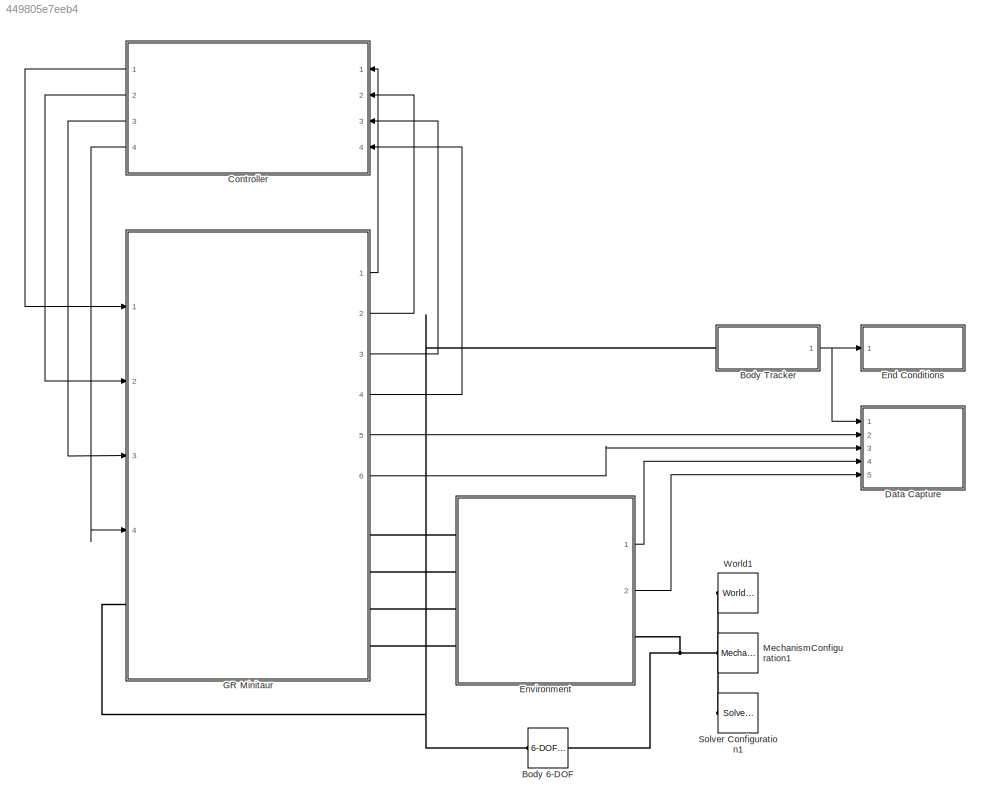
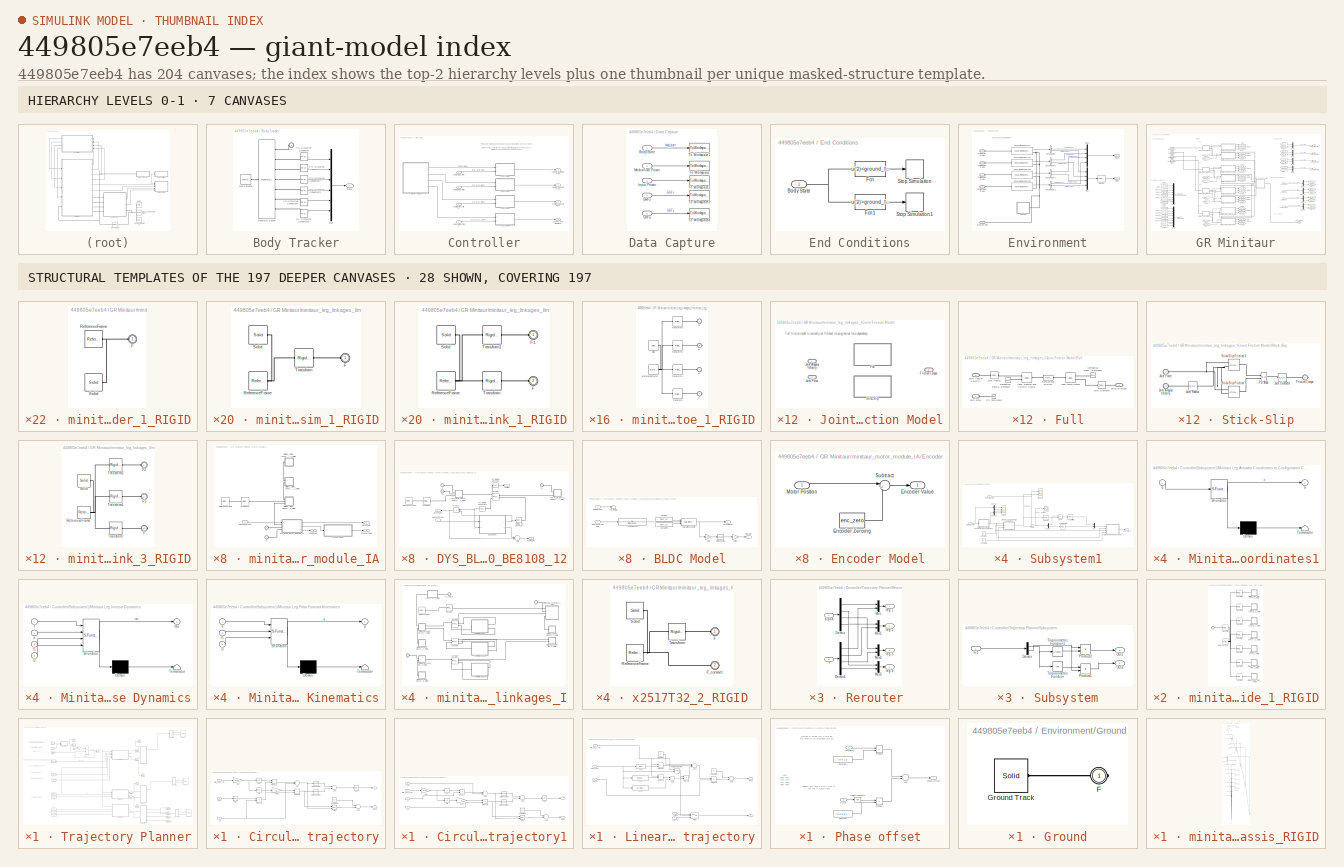
[diagram: thumbnail index - top-2 hierarchy levels (7 canvases) + 28 structural-template representatives of the remaining 197 canvases]
MODEL slx_449805e7eeb4
KIND model
CONFIG AbsTol = auto
CONFIG FixedStep = auto
CONFIG MaxStep = 1e-2
CONFIG MinStep = auto
CONFIG PreLoadFcn = minitaurParameters
CONFIG RelTol = 1e-4
CONFIG SampleTimeConstraint = Unconstrained
CONFIG Solver = ode15s
CONFIG SolverMode = Auto
CONFIG SolverName = ode15s
CONFIG StartTime = 0.0
CONFIG StopTime = 20
BLOCK [Reference] Body 6-DOF  REF=sm_lib/Joints/6-DOF Joint
  Ports = [0, 0, 0, 0, 0, 1, 1]
  SourceBlock = sm_lib/Joints/6-DOF Joint
  SourceType = 6-DOF Joint
BLOCK [SubSystem] Body Tracker
  Ports = [0, 1, 0, 0, 0, 1]
  RequestExecContextInheritance = off
  Variant = off
BLOCK [Outport] Body Tracker/Data
  IconDisplay = Port number
BLOCK [PMIOPort] Body Tracker/F
  Port = 1
  Side = Left
BLOCK [Mux] Body Tracker/Mux
  DisplayOption = bar
  Inputs = 6
  Ports = [6, 1]
BLOCK [Reference] Body Tracker/PS-Simulink Converter  REF=nesl_utility/PS-Simulink
Converter
  Ports = [0, 1, 0, 0, 0, 1]
  SourceBlock = nesl_utility/PS-Simulink\nConverter
  SourceType = PS-Simulink\nConverter
BLOCK [Reference] Body Tracker/PS-Simulink Converter1  REF=nesl_utility/PS-Simulink
Converter
  Ports = [0, 1, 0, 0, 0, 1]
  SourceBlock = nesl_utility/PS-Simulink\nConverter
  SourceType = PS-Simulink\nConverter
BLOCK [Reference] Body Tracker/PS-Simulink Converter2  REF=nesl_utility/PS-Simulink
Converter
  Ports = [0, 1, 0, 0, 0, 1]
  SourceBlock = nesl_utility/PS-Simulink\nConverter
  SourceType = PS-Simulink\nConverter
BLOCK [Reference] Body Tracker/PS-Simulink Converter3  REF=nesl_utility/PS-Simulink
Converter
  Ports = [0, 1, 0, 0, 0, 1]
  SourceBlock = nesl_utility/PS-Simulink\nConverter
  SourceType = PS-Simulink\nConverter
BLOCK [Reference] Body Tracker/PS-Simulink Converter4  REF=nesl_utility/PS-Simulink
Converter
  Ports = [0, 1, 0, 0, 0, 1]
  SourceBlock = nesl_utility/PS-Simulink\nConverter
  SourceType = PS-Simulink\nConverter
BLOCK [Reference] Body Tracker/PS-Simulink Converter5  REF=nesl_utility/PS-Simulink
Converter
  Ports = [0, 1, 0, 0, 0, 1]
  SourceBlock = nesl_utility/PS-Simulink\nConverter
  SourceType = PS-Simulink\nConverter
BLOCK [Reference] Body Tracker/Transform Sensor  REF=sm_lib/Frames and
Transforms/Transform
Sensor
  Ports = [0, 0, 0, 0, 0, 1, 7]
  SourceBlock = sm_lib/Frames and\nTransforms/Transform\nSensor
  SourceType = Transform\nSensor
BLOCK [Reference] Body Tracker/World Frame  REF=sm_lib/Frames and
Transforms/World Frame
  Ports = [0, 0, 0, 0, 0, 0, 1]
  SourceBlock = sm_lib/Frames and\nTransforms/World Frame
  SourceType = World Frame
BLOCK [SubSystem] Controller
  Ports = [4, 4]
  RequestExecContextInheritance = off
  Variant = off
BLOCK [Inport] Controller/Leg I Configuration
  IconDisplay = Port number
  PortDimensions = 2
BLOCK [Outport] Controller/Leg I Torque, Right Front
  IconDisplay = Port number
BLOCK [Inport] Controller/Leg II Configuration
  IconDisplay = Port number
  Port = 2
  PortDimensions = 2
BLOCK [Outport] Controller/Leg II Torque, Left Front
  IconDisplay = Port number
  Port = 2
BLOCK [Inport] Controller/Leg III Configuration
  IconDisplay = Port number
  Port = 3
  PortDimensions = 2
BLOCK [Outport] Controller/Leg III Torque, Left Rear
  IconDisplay = Port number
  Port = 3
BLOCK [Inport] Controller/Leg IV Configuration
  IconDisplay = Port number
  Port = 4
  PortDimensions = 2
BLOCK [Outport] Controller/Leg IV Torque, Right Rear
  IconDisplay = Port number
  Port = 4
BLOCK [SubSystem] Controller/Subsystem1
  Ports = [2, 1]
  RequestExecContextInheritance = off
  Variant = off
BLOCK [Reference] Controller/Subsystem1/Angular "Stiff" PID  REF=simulink/Continuous/PID Controller
  Ports = [1, 1]
  SourceBlock = simulink/Continuous/PID Controller
  SourceType = PID 1dof
BLOCK [Constant] Controller/Subsystem1/Constant
  Value = l1
BLOCK [Constant] Controller/Subsystem1/Constant1
  Value = l2
BLOCK [Inport] Controller/Subsystem1/Current leg state
  IconDisplay = Port number
  Port = 2
BLOCK [Demux] Controller/Subsystem1/Demux
  DisplayOption = bar
  Outputs = 2
  Ports = [1, 2]
BLOCK [Demux] Controller/Subsystem1/Demux1
  DisplayOption = bar
  Outputs = 2
  Ports = [1, 2]
BLOCK [Demux] Controller/Subsystem1/Demux2
  DisplayOption = bar
  Outputs = 2
  Ports = [1, 2]
BLOCK [Product] Controller/Subsystem1/Divide
  InputSameDT = off
  Inputs = */
  OutDataTypeStr = Inherit: Inherit via internal rule
  Ports = [2, 1]
  RndMeth = Floor
  SaturateOnIntegerOverflow = off
BLOCK [Outport] Controller/Subsystem1/Leg Torque
  IconDisplay = Port number
BLOCK [SubSystem] Controller/Subsystem1/Minitaur Leg Actuator Coordinates to Configuration Coordinates1
  ErrorFcn = Stateflow.Translate.translate
  PermitHierarchicalResolution = ExplicitOnly
  Ports = [1, 1]
  RequestExecContextInheritance = off
  SFBlockType = MATLAB Function
  TreatAsAtomicUnit = on
  Variant = off
BLOCK [Demux] Controller/Subsystem1/Minitaur Leg Actuator Coordinates to Configuration Coordinates1/ Demux 
  Outputs = 1
  Ports = [1, 1]
BLOCK [S-Function] Controller/Subsystem1/Minitaur Leg Actuator Coordinates to Configuration Coordinates1/ SFunction 
  EnableBusSupport = on
  FunctionName = sf_sfun
  PortCounts = [1 2]
  Ports = [1, 2]
  SFunctionDeploymentMode = off
  Tag = Stateflow S-Function experiment_toplevel 4
BLOCK [Terminator] Controller/Subsystem1/Minitaur Leg Actuator Coordinates to Configuration Coordinates1/ Terminator 
BLOCK [Outport] Controller/Subsystem1/Minitaur Leg Actuator Coordinates to Configuration Coordinates1/a
  IconDisplay = Port number
BLOCK [Inport] Controller/Subsystem1/Minitaur Leg Actuator Coordinates to Configuration Coordinates1/q
  IconDisplay = Port number
BLOCK [SubSystem] Controller/Subsystem1/Minitaur Leg Inverse Dynamics
  ErrorFcn = Stateflow.Translate.translate
  PermitHierarchicalResolution = ExplicitOnly
  Ports = [4, 1]
  RequestExecContextInheritance = off
  SFBlockType = MATLAB Function
  TreatAsAtomicUnit = on
  Variant = off
BLOCK [Demux] Controller/Subsystem1/Minitaur Leg Inverse Dynamics/ Demux 
  Outputs = 1
  Ports = [1, 1]
BLOCK [S-Function] Controller/Subsystem1/Minitaur Leg Inverse Dynamics/ SFunction 
  EnableBusSupport = on
  FunctionName = sf_sfun
  PortCounts = [4 2]
  Ports = [4, 2]
  SFunctionDeploymentMode = off
  Tag = Stateflow S-Function experiment_toplevel 5
BLOCK [Terminator] Controller/Subsystem1/Minitaur Leg Inverse Dynamics/ Terminator 
BLOCK [Inport] Controller/Subsystem1/Minitaur Leg Inverse Dynamics/a
  IconDisplay = Port number
  Port = 2
BLOCK [Inport] Controller/Subsystem1/Minitaur Leg Inverse Dynamics/f
  IconDisplay = Port number
BLOCK [Inport] Controller/Subsystem1/Minitaur Leg Inverse Dynamics/l1
  IconDisplay = Port number
  Port = 3
BLOCK [Inport] Controller/Subsystem1/Minitaur Leg Inverse Dynamics/l2
  IconDisplay = Port number
  Port = 4
BLOCK [Outport] Controller/Subsystem1/Minitaur Leg Inverse Dynamics/tau
  IconDisplay = Port number
BLOCK [SubSystem] Controller/Subsystem1/Minitaur Leg Polar Forward Kinematics
  ErrorFcn = Stateflow.Translate.translate
  PermitHierarchicalResolution = ExplicitOnly
  Ports = [3, 1]
  RequestExecContextInheritance = off
  SFBlockType = MATLAB Function
  TreatAsAtomicUnit = on
  Variant = off
BLOCK [Demux] Controller/Subsystem1/Minitaur Leg Polar Forward Kinematics/ Demux 
  Outputs = 1
  Ports = [1, 1]
BLOCK [S-Function] Controller/Subsystem1/Minitaur Leg Polar Forward Kinematics/ SFunction 
  EnableBusSupport = on
  FunctionName = sf_sfun
  PortCounts = [3 2]
  Ports = [3, 2]
  SFunctionDeploymentMode = off
  Tag = Stateflow S-Function experiment_toplevel 6
BLOCK [Terminator] Controller/Subsystem1/Minitaur Leg Polar Forward Kinematics/ Terminator 
BLOCK [Inport] Controller/Subsystem1/Minitaur Leg Polar Forward Kinematics/a
  IconDisplay = Port number
BLOCK [Inport] Controller/Subsystem1/Minitaur Leg Polar Forward Kinematics/l1
  IconDisplay = Port number
  Port = 2
BLOCK [Inport] Controller/Subsystem1/Minitaur Leg Polar Forward Kinematics/l2
  IconDisplay = Port number
  Port = 3
BLOCK [Outport] Controller/Subsystem1/Minitaur Leg Polar Forward Kinematics/p
  IconDisplay = Port number
BLOCK [Mux] Controller/Subsystem1/Mux
  DisplayOption = bar
  Inputs = 2
  Ports = [2, 1]
BLOCK [Inport] Controller/Subsystem1/Path Trajectory
  IconDisplay = Port number
BLOCK [Reference] Controller/Subsystem1/Radial "Soft" PID  REF=simulink/Continuous/PID Controller
  Ports = [1, 1]
  SourceBlock = simulink/Continuous/PID Controller
  SourceType = PID 1dof
BLOCK [Scope] Controller/Subsystem1/Scope
  NumInputPorts = 4
  Ports = [4]
  ScopeSpecificationString = Simulink.scopes.TimeScopeBlockCfg('CurrentConfiguration', extmgr.ConfigurationSet(extmgr.Configuration('Core','General UI',true),extmgr.Configuration('Core','Source UI',true),extmgr.Configuration('Sources','WiredSimulink',true),extmgr.Configuration('Visuals','Time Domain',true,'SerializedDisplays',{struct('MinYLimReal','-4.82925','MaxYLimReal','4.93428','YLabelReal','','MinYLimMag','0.00000','MaxY...<+1460ch>  <repeated x4 — deduplicated; at blocks: Scope>
BLOCK [Scope] Controller/Subsystem1/Scope1
  NumInputPorts = 2
  Ports = [2]
  ScopeSpecificationString = Simulink.scopes.TimeScopeBlockCfg('CurrentConfiguration', extmgr.ConfigurationSet(extmgr.Configuration('Core','General UI',true),extmgr.Configuration('Core','Source UI',true),extmgr.Configuration('Sources','WiredSimulink',true,'DataLoggingVariableName','ScopeData1'),extmgr.Configuration('Visuals','Time Domain',true,'SerializedDisplays',{struct('MinYLimReal','-0.33668','MaxYLimReal','4.1938','YLabe...<+1528ch>  <repeated x4 — deduplicated; at blocks: Scope1>
BLOCK [Scope] Controller/Subsystem1/Scope2
  Ports = [1]
  ScopeSpecificationString = Simulink.scopes.TimeScopeBlockCfg('CurrentConfiguration', extmgr.ConfigurationSet(extmgr.Configuration('Core','General UI',true),extmgr.Configuration('Core','Source UI',true),extmgr.Configuration('Sources','WiredSimulink',true,'DataLoggingVariableName','ScopeData2'),extmgr.Configuration('Visuals','Time Domain',true,'SerializedDisplays',{struct('MinYLimReal','-0.00907','MaxYLimReal','0.08151','YLab...<+1505ch>  <repeated x4 — deduplicated; at blocks: Scope2>
BLOCK [Selector] Controller/Subsystem1/Selector
  IndexMode = Zero-based
  IndexOptions = Index vector (dialog)
  Indices = [1]
  InputPortWidth = 2
  OutputSizes = 1
  Ports = [1, 1]
BLOCK [Sum] Controller/Subsystem1/Sum
  IconShape = round
  InputSameDT = off
  Inputs = +-|
  OutDataTypeStr = Inherit: Inherit via internal rule
  Ports = [2, 1]
  SaturateOnIntegerOverflow = off
BLOCK [SubSystem] Controller/Subsystem2
  Ports = [2, 1]
  RequestExecContextInheritance = off
  Variant = off
BLOCK [Reference] Controller/Subsystem2/Angular "Stiff" PID  REF=simulink/Continuous/PID Controller
  Ports = [1, 1]
  SourceBlock = simulink/Continuous/PID Controller
  SourceType = PID 1dof
BLOCK [Constant] Controller/Subsystem2/Constant
  Value = l1
BLOCK [Constant] Controller/Subsystem2/Constant1
  Value = l2
BLOCK [Inport] Controller/Subsystem2/Current leg state
  IconDisplay = Port number
  Port = 2
BLOCK [Demux] Controller/Subsystem2/Demux
  DisplayOption = bar
  Outputs = 2
  Ports = [1, 2]
BLOCK [Demux] Controller/Subsystem2/Demux1
  DisplayOption = bar
  Outputs = 2
  Ports = [1, 2]
BLOCK [Demux] Controller/Subsystem2/Demux2
  DisplayOption = bar
  Outputs = 2
  Ports = [1, 2]
BLOCK [Product] Controller/Subsystem2/Divide
  InputSameDT = off
  Inputs = */
  OutDataTypeStr = Inherit: Inherit via internal rule
  Ports = [2, 1]
  RndMeth = Floor
  SaturateOnIntegerOverflow = off
BLOCK [Outport] Controller/Subsystem2/Leg Torque
  IconDisplay = Port number
BLOCK [SubSystem] Controller/Subsystem2/Minitaur Leg Actuator Coordinates to Configuration Coordinates1
  ErrorFcn = Stateflow.Translate.translate
  PermitHierarchicalResolution = ExplicitOnly
  Ports = [1, 1]
  RequestExecContextInheritance = off
  SFBlockType = MATLAB Function
  TreatAsAtomicUnit = on
  Variant = off
BLOCK [Demux] Controller/Subsystem2/Minitaur Leg Actuator Coordinates to Configuration Coordinates1/ Demux 
  Outputs = 1
  Ports = [1, 1]
BLOCK [S-Function] Controller/Subsystem2/Minitaur Leg Actuator Coordinates to Configuration Coordinates1/ SFunction 
  EnableBusSupport = on
  FunctionName = sf_sfun
  PortCounts = [1 2]
  Ports = [1, 2]
  SFunctionDeploymentMode = off
  Tag = Stateflow S-Function experiment_toplevel 7
BLOCK [Terminator] Controller/Subsystem2/Minitaur Leg Actuator Coordinates to Configuration Coordinates1/ Terminator 
BLOCK [Outport] Controller/Subsystem2/Minitaur Leg Actuator Coordinates to Configuration Coordinates1/a
  IconDisplay = Port number
BLOCK [Inport] Controller/Subsystem2/Minitaur Leg Actuator Coordinates to Configuration Coordinates1/q
  IconDisplay = Port number
BLOCK [SubSystem] Controller/Subsystem2/Minitaur Leg Inverse Dynamics
  ErrorFcn = Stateflow.Translate.translate
  PermitHierarchicalResolution = ExplicitOnly
  Ports = [4, 1]
  RequestExecContextInheritance = off
  SFBlockType = MATLAB Function
  TreatAsAtomicUnit = on
  Variant = off
BLOCK [Demux] Controller/Subsystem2/Minitaur Leg Inverse Dynamics/ Demux 
  Outputs = 1
  Ports = [1, 1]
BLOCK [S-Function] Controller/Subsystem2/Minitaur Leg Inverse Dynamics/ SFunction 
  EnableBusSupport = on
  FunctionName = sf_sfun
  PortCounts = [4 2]
  Ports = [4, 2]
  SFunctionDeploymentMode = off
  Tag = Stateflow S-Function experiment_toplevel 8
BLOCK [Terminator] Controller/Subsystem2/Minitaur Leg Inverse Dynamics/ Terminator 
BLOCK [Inport] Controller/Subsystem2/Minitaur Leg Inverse Dynamics/a
  IconDisplay = Port number
  Port = 2
BLOCK [Inport] Controller/Subsystem2/Minitaur Leg Inverse Dynamics/f
  IconDisplay = Port number
BLOCK [Inport] Controller/Subsystem2/Minitaur Leg Inverse Dynamics/l1
  IconDisplay = Port number
  Port = 3
BLOCK [Inport] Controller/Subsystem2/Minitaur Leg Inverse Dynamics/l2
  IconDisplay = Port number
  Port = 4
BLOCK [Outport] Controller/Subsystem2/Minitaur Leg Inverse Dynamics/tau
  IconDisplay = Port number
BLOCK [SubSystem] Controller/Subsystem2/Minitaur Leg Polar Forward Kinematics
  ErrorFcn = Stateflow.Translate.translate
  PermitHierarchicalResolution = ExplicitOnly
  Ports = [3, 1]
  RequestExecContextInheritance = off
  SFBlockType = MATLAB Function
  TreatAsAtomicUnit = on
  Variant = off
BLOCK [Demux] Controller/Subsystem2/Minitaur Leg Polar Forward Kinematics/ Demux 
  Outputs = 1
  Ports = [1, 1]
BLOCK [S-Function] Controller/Subsystem2/Minitaur Leg Polar Forward Kinematics/ SFunction 
  EnableBusSupport = on
  FunctionName = sf_sfun
  PortCounts = [3 2]
  Ports = [3, 2]
  SFunctionDeploymentMode = off
  Tag = Stateflow S-Function experiment_toplevel 9
BLOCK [Terminator] Controller/Subsystem2/Minitaur Leg Polar Forward Kinematics/ Terminator 
BLOCK [Inport] Controller/Subsystem2/Minitaur Leg Polar Forward Kinematics/a
  IconDisplay = Port number
BLOCK [Inport] Controller/Subsystem2/Minitaur Leg Polar Forward Kinematics/l1
  IconDisplay = Port number
  Port = 2
BLOCK [Inport] Controller/Subsystem2/Minitaur Leg Polar Forward Kinematics/l2
  IconDisplay = Port number
  Port = 3
BLOCK [Outport] Controller/Subsystem2/Minitaur Leg Polar Forward Kinematics/p
  IconDisplay = Port number
BLOCK [Mux] Controller/Subsystem2/Mux
  DisplayOption = bar
  Inputs = 2
  Ports = [2, 1]
BLOCK [Inport] Controller/Subsystem2/Path Trajectory
  IconDisplay = Port number
BLOCK [Reference] Controller/Subsystem2/Radial "Soft" PID  REF=simulink/Continuous/PID Controller
  Ports = [1, 1]
  SourceBlock = simulink/Continuous/PID Controller
  SourceType = PID 1dof
BLOCK [Scope] Controller/Subsystem2/Scope
  NumInputPorts = 4
  Ports = [4]
BLOCK [Scope] Controller/Subsystem2/Scope1
  NumInputPorts = 2
  Ports = [2]
BLOCK [Scope] Controller/Subsystem2/Scope2
  Ports = [1]
BLOCK [Selector] Controller/Subsystem2/Selector
  IndexMode = Zero-based
  IndexOptions = Index vector (dialog)
  Indices = [1]
  InputPortWidth = 2
  OutputSizes = 1
  Ports = [1, 1]
BLOCK [Sum] Controller/Subsystem2/Sum
  IconShape = round
  InputSameDT = off
  Inputs = +-|
  OutDataTypeStr = Inherit: Inherit via internal rule
  Ports = [2, 1]
  SaturateOnIntegerOverflow = off
BLOCK [SubSystem] Controller/Subsystem3
  Ports = [2, 1]
  RequestExecContextInheritance = off
  Variant = off
BLOCK [Reference] Controller/Subsystem3/Angular "Stiff" PID  REF=simulink/Continuous/PID Controller
  Ports = [1, 1]
  SourceBlock = simulink/Continuous/PID Controller
  SourceType = PID 1dof
BLOCK [Constant] Controller/Subsystem3/Constant
  Value = l1
BLOCK [Constant] Controller/Subsystem3/Constant1
  Value = l2
BLOCK [Inport] Controller/Subsystem3/Current leg state
  IconDisplay = Port number
  Port = 2
BLOCK [Demux] Controller/Subsystem3/Demux
  DisplayOption = bar
  Outputs = 2
  Ports = [1, 2]
BLOCK [Demux] Controller/Subsystem3/Demux1
  DisplayOption = bar
  Outputs = 2
  Ports = [1, 2]
BLOCK [Demux] Controller/Subsystem3/Demux2
  DisplayOption = bar
  Outputs = 2
  Ports = [1, 2]
BLOCK [Product] Controller/Subsystem3/Divide
  InputSameDT = off
  Inputs = */
  OutDataTypeStr = Inherit: Inherit via internal rule
  Ports = [2, 1]
  RndMeth = Floor
  SaturateOnIntegerOverflow = off
BLOCK [Outport] Controller/Subsystem3/Leg Torque
  IconDisplay = Port number
BLOCK [SubSystem] Controller/Subsystem3/Minitaur Leg Actuator Coordinates to Configuration Coordinates1
  ErrorFcn = Stateflow.Translate.translate
  PermitHierarchicalResolution = ExplicitOnly
  Ports = [1, 1]
  RequestExecContextInheritance = off
  SFBlockType = MATLAB Function
  TreatAsAtomicUnit = on
  Variant = off
BLOCK [Demux] Controller/Subsystem3/Minitaur Leg Actuator Coordinates to Configuration Coordinates1/ Demux 
  Outputs = 1
  Ports = [1, 1]
BLOCK [S-Function] Controller/Subsystem3/Minitaur Leg Actuator Coordinates to Configuration Coordinates1/ SFunction 
  EnableBusSupport = on
  FunctionName = sf_sfun
  PortCounts = [1 2]
  Ports = [1, 2]
  SFunctionDeploymentMode = off
  Tag = Stateflow S-Function experiment_toplevel 10
BLOCK [Terminator] Controller/Subsystem3/Minitaur Leg Actuator Coordinates to Configuration Coordinates1/ Terminator 
BLOCK [Outport] Controller/Subsystem3/Minitaur Leg Actuator Coordinates to Configuration Coordinates1/a
  IconDisplay = Port number
BLOCK [Inport] Controller/Subsystem3/Minitaur Leg Actuator Coordinates to Configuration Coordinates1/q
  IconDisplay = Port number
BLOCK [SubSystem] Controller/Subsystem3/Minitaur Leg Inverse Dynamics
  ErrorFcn = Stateflow.Translate.translate
  PermitHierarchicalResolution = ExplicitOnly
  Ports = [4, 1]
  RequestExecContextInheritance = off
  SFBlockType = MATLAB Function
  TreatAsAtomicUnit = on
  Variant = off
BLOCK [Demux] Controller/Subsystem3/Minitaur Leg Inverse Dynamics/ Demux 
  Outputs = 1
  Ports = [1, 1]
BLOCK [S-Function] Controller/Subsystem3/Minitaur Leg Inverse Dynamics/ SFunction 
  EnableBusSupport = on
  FunctionName = sf_sfun
  PortCounts = [4 2]
  Ports = [4, 2]
  SFunctionDeploymentMode = off
  Tag = Stateflow S-Function experiment_toplevel 11
BLOCK [Terminator] Controller/Subsystem3/Minitaur Leg Inverse Dynamics/ Terminator 
BLOCK [Inport] Controller/Subsystem3/Minitaur Leg Inverse Dynamics/a
  IconDisplay = Port number
  Port = 2
BLOCK [Inport] Controller/Subsystem3/Minitaur Leg Inverse Dynamics/f
  IconDisplay = Port number
BLOCK [Inport] Controller/Subsystem3/Minitaur Leg Inverse Dynamics/l1
  IconDisplay = Port number
  Port = 3
BLOCK [Inport] Controller/Subsystem3/Minitaur Leg Inverse Dynamics/l2
  IconDisplay = Port number
  Port = 4
BLOCK [Outport] Controller/Subsystem3/Minitaur Leg Inverse Dynamics/tau
  IconDisplay = Port number
BLOCK [SubSystem] Controller/Subsystem3/Minitaur Leg Polar Forward Kinematics
  ErrorFcn = Stateflow.Translate.translate
  PermitHierarchicalResolution = ExplicitOnly
  Ports = [3, 1]
  RequestExecContextInheritance = off
  SFBlockType = MATLAB Function
  TreatAsAtomicUnit = on
  Variant = off
BLOCK [Demux] Controller/Subsystem3/Minitaur Leg Polar Forward Kinematics/ Demux 
  Outputs = 1
  Ports = [1, 1]
BLOCK [S-Function] Controller/Subsystem3/Minitaur Leg Polar Forward Kinematics/ SFunction 
  EnableBusSupport = on
  FunctionName = sf_sfun
  PortCounts = [3 2]
  Ports = [3, 2]
  SFunctionDeploymentMode = off
  Tag = Stateflow S-Function experiment_toplevel 12
BLOCK [Terminator] Controller/Subsystem3/Minitaur Leg Polar Forward Kinematics/ Terminator 
BLOCK [Inport] Controller/Subsystem3/Minitaur Leg Polar Forward Kinematics/a
  IconDisplay = Port number
BLOCK [Inport] Controller/Subsystem3/Minitaur Leg Polar Forward Kinematics/l1
  IconDisplay = Port number
  Port = 2
BLOCK [Inport] Controller/Subsystem3/Minitaur Leg Polar Forward Kinematics/l2
  IconDisplay = Port number
  Port = 3
BLOCK [Outport] Controller/Subsystem3/Minitaur Leg Polar Forward Kinematics/p
  IconDisplay = Port number
BLOCK [Mux] Controller/Subsystem3/Mux
  DisplayOption = bar
  Inputs = 2
  Ports = [2, 1]
BLOCK [Inport] Controller/Subsystem3/Path Trajectory
  IconDisplay = Port number
BLOCK [Reference] Controller/Subsystem3/Radial "Soft" PID  REF=simulink/Continuous/PID Controller
  Ports = [1, 1]
  SourceBlock = simulink/Continuous/PID Controller
  SourceType = PID 1dof
BLOCK [Scope] Controller/Subsystem3/Scope
  NumInputPorts = 4
  Ports = [4]
BLOCK [Scope] Controller/Subsystem3/Scope1
  NumInputPorts = 2
  Ports = [2]
BLOCK [Scope] Controller/Subsystem3/Scope2
  Ports = [1]
BLOCK [Selector] Controller/Subsystem3/Selector
  IndexMode = Zero-based
  IndexOptions = Index vector (dialog)
  Indices = [1]
  InputPortWidth = 2
  OutputSizes = 1
  Ports = [1, 1]
BLOCK [Sum] Controller/Subsystem3/Sum
  IconShape = round
  InputSameDT = off
  Inputs = +-|
  OutDataTypeStr = Inherit: Inherit via internal rule
  Ports = [2, 1]
  SaturateOnIntegerOverflow = off
BLOCK [SubSystem] Controller/Subsystem5
  Ports = [2, 1]
  RequestExecContextInheritance = off
  Variant = off
BLOCK [Reference] Controller/Subsystem5/Angular "Stiff" PID  REF=simulink/Continuous/PID Controller
  Ports = [1, 1]
  SourceBlock = simulink/Continuous/PID Controller
  SourceType = PID 1dof
BLOCK [Constant] Controller/Subsystem5/Constant
  Value = l1
BLOCK [Constant] Controller/Subsystem5/Constant1
  Value = l2
BLOCK [Inport] Controller/Subsystem5/Current leg state
  IconDisplay = Port number
  Port = 2
BLOCK [Demux] Controller/Subsystem5/Demux
  DisplayOption = bar
  Outputs = 2
  Ports = [1, 2]
BLOCK [Demux] Controller/Subsystem5/Demux1
  DisplayOption = bar
  Outputs = 2
  Ports = [1, 2]
BLOCK [Demux] Controller/Subsystem5/Demux2
  DisplayOption = bar
  Outputs = 2
  Ports = [1, 2]
BLOCK [Product] Controller/Subsystem5/Divide
  InputSameDT = off
  Inputs = */
  OutDataTypeStr = Inherit: Inherit via internal rule
  Ports = [2, 1]
  RndMeth = Floor
  SaturateOnIntegerOverflow = off
BLOCK [Outport] Controller/Subsystem5/Leg Torque
  IconDisplay = Port number
BLOCK [SubSystem] Controller/Subsystem5/Minitaur Leg Actuator Coordinates to Configuration Coordinates1
  ErrorFcn = Stateflow.Translate.translate
  PermitHierarchicalResolution = ExplicitOnly
  Ports = [1, 1]
  RequestExecContextInheritance = off
  SFBlockType = MATLAB Function
  TreatAsAtomicUnit = on
  Variant = off
BLOCK [Demux] Controller/Subsystem5/Minitaur Leg Actuator Coordinates to Configuration Coordinates1/ Demux 
  Outputs = 1
  Ports = [1, 1]
BLOCK [S-Function] Controller/Subsystem5/Minitaur Leg Actuator Coordinates to Configuration Coordinates1/ SFunction 
  EnableBusSupport = on
  FunctionName = sf_sfun
  PortCounts = [1 2]
  Ports = [1, 2]
  SFunctionDeploymentMode = off
  Tag = Stateflow S-Function experiment_toplevel 1
BLOCK [Terminator] Controller/Subsystem5/Minitaur Leg Actuator Coordinates to Configuration Coordinates1/ Terminator 
BLOCK [Outport] Controller/Subsystem5/Minitaur Leg Actuator Coordinates to Configuration Coordinates1/a
  IconDisplay = Port number
BLOCK [Inport] Controller/Subsystem5/Minitaur Leg Actuator Coordinates to Configuration Coordinates1/q
  IconDisplay = Port number
BLOCK [SubSystem] Controller/Subsystem5/Minitaur Leg Inverse Dynamics
  ErrorFcn = Stateflow.Translate.translate
  PermitHierarchicalResolution = ExplicitOnly
  Ports = [4, 1]
  RequestExecContextInheritance = off
  SFBlockType = MATLAB Function
  TreatAsAtomicUnit = on
  Variant = off
BLOCK [Demux] Controller/Subsystem5/Minitaur Leg Inverse Dynamics/ Demux 
  Outputs = 1
  Ports = [1, 1]
BLOCK [S-Function] Controller/Subsystem5/Minitaur Leg Inverse Dynamics/ SFunction 
  EnableBusSupport = on
  FunctionName = sf_sfun
  PortCounts = [4 2]
  Ports = [4, 2]
  SFunctionDeploymentMode = off
  Tag = Stateflow S-Function experiment_toplevel 2
BLOCK [Terminator] Controller/Subsystem5/Minitaur Leg Inverse Dynamics/ Terminator 
BLOCK [Inport] Controller/Subsystem5/Minitaur Leg Inverse Dynamics/a
  IconDisplay = Port number
  Port = 2
BLOCK [Inport] Controller/Subsystem5/Minitaur Leg Inverse Dynamics/f
  IconDisplay = Port number
BLOCK [Inport] Controller/Subsystem5/Minitaur Leg Inverse Dynamics/l1
  IconDisplay = Port number
  Port = 3
BLOCK [Inport] Controller/Subsystem5/Minitaur Leg Inverse Dynamics/l2
  IconDisplay = Port number
  Port = 4
BLOCK [Outport] Controller/Subsystem5/Minitaur Leg Inverse Dynamics/tau
  IconDisplay = Port number
BLOCK [SubSystem] Controller/Subsystem5/Minitaur Leg Polar Forward Kinematics
  ErrorFcn = Stateflow.Translate.translate
  PermitHierarchicalResolution = ExplicitOnly
  Ports = [3, 1]
  RequestExecContextInheritance = off
  SFBlockType = MATLAB Function
  TreatAsAtomicUnit = on
  Variant = off
BLOCK [Demux] Controller/Subsystem5/Minitaur Leg Polar Forward Kinematics/ Demux 
  Outputs = 1
  Ports = [1, 1]
BLOCK [S-Function] Controller/Subsystem5/Minitaur Leg Polar Forward Kinematics/ SFunction 
  EnableBusSupport = on
  FunctionName = sf_sfun
  PortCounts = [3 2]
  Ports = [3, 2]
  SFunctionDeploymentMode = off
  Tag = Stateflow S-Function experiment_toplevel 3
BLOCK [Terminator] Controller/Subsystem5/Minitaur Leg Polar Forward Kinematics/ Terminator 
BLOCK [Inport] Controller/Subsystem5/Minitaur Leg Polar Forward Kinematics/a
  IconDisplay = Port number
BLOCK [Inport] Controller/Subsystem5/Minitaur Leg Polar Forward Kinematics/l1
  IconDisplay = Port number
  Port = 2
BLOCK [Inport] Controller/Subsystem5/Minitaur Leg Polar Forward Kinematics/l2
  IconDisplay = Port number
  Port = 3
BLOCK [Outport] Controller/Subsystem5/Minitaur Leg Polar Forward Kinematics/p
  IconDisplay = Port number
BLOCK [Mux] Controller/Subsystem5/Mux
  DisplayOption = bar
  Inputs = 2
  Ports = [2, 1]
BLOCK [Inport] Controller/Subsystem5/Path Trajectory
  IconDisplay = Port number
BLOCK [Reference] Controller/Subsystem5/Radial "Soft" PID  REF=simulink/Continuous/PID Controller
  Ports = [1, 1]
  SourceBlock = simulink/Continuous/PID Controller
  SourceType = PID 1dof
BLOCK [Scope] Controller/Subsystem5/Scope
  NumInputPorts = 4
  Ports = [4]
BLOCK [Scope] Controller/Subsystem5/Scope1
  NumInputPorts = 2
  Ports = [2]
BLOCK [Scope] Controller/Subsystem5/Scope2
  Ports = [1]
BLOCK [Selector] Controller/Subsystem5/Selector
  IndexMode = Zero-based
  IndexOptions = Index vector (dialog)
  Indices = [1]
  InputPortWidth = 2
  OutputSizes = 1
  Ports = [1, 1]
BLOCK [Sum] Controller/Subsystem5/Sum
  IconShape = round
  InputSameDT = off
  Inputs = +-|
  OutDataTypeStr = Inherit: Inherit via internal rule
  Ports = [2, 1]
  SaturateOnIntegerOverflow = off
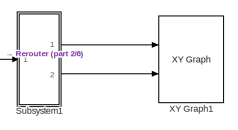
[diagram: Controller/Trajectory Planner - part 1/6, top right region]
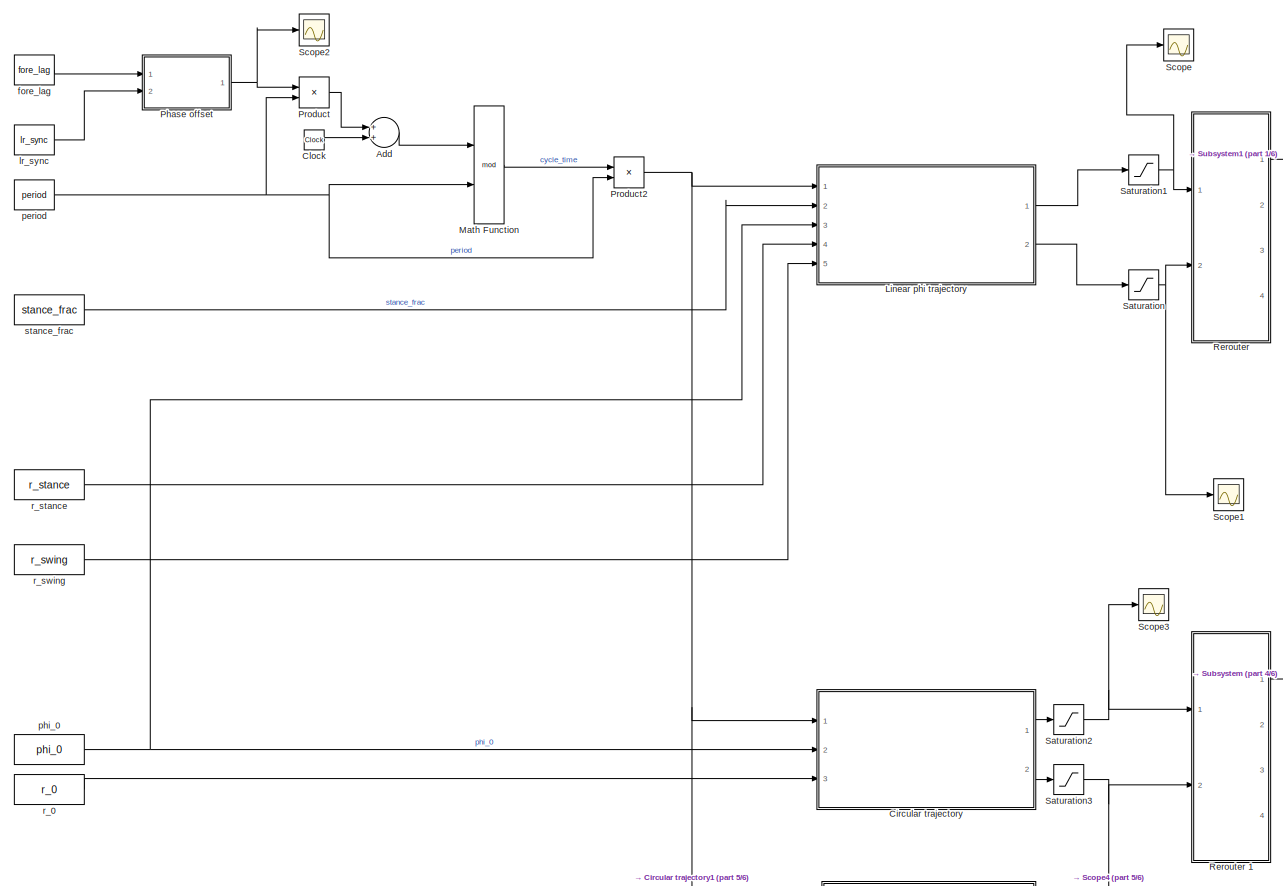
[diagram: Controller/Trajectory Planner - part 2/6, central region]
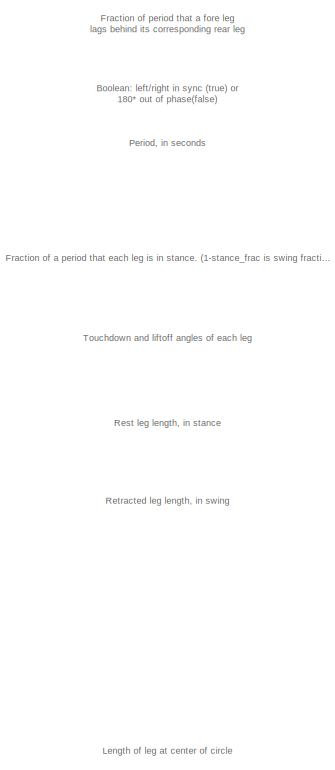
[diagram: Controller/Trajectory Planner - part 3/6, middle left region]
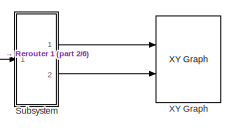
[diagram: Controller/Trajectory Planner - part 4/6, middle right region]
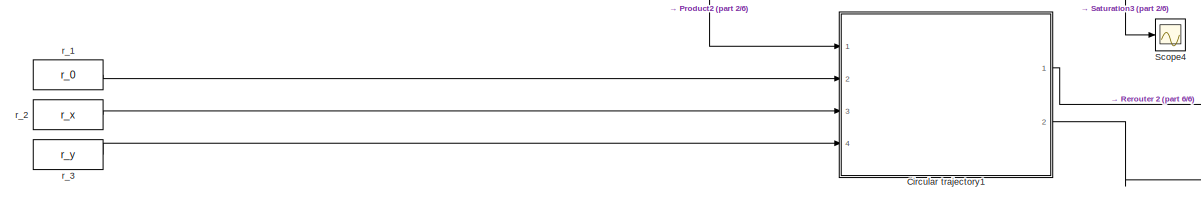
[diagram: Controller/Trajectory Planner - part 5/6, bottom center region]
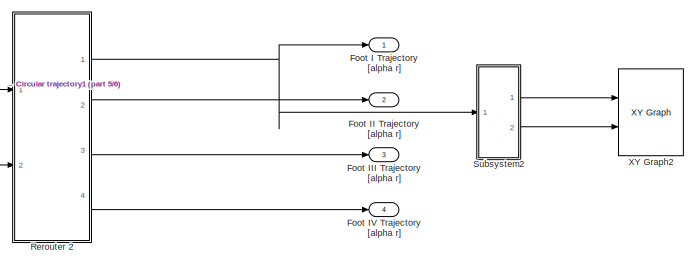
[diagram: Controller/Trajectory Planner - part 6/6, bottom right region]
BLOCK [SubSystem] Controller/Trajectory Planner
  Ports = [0, 4]
  RequestExecContextInheritance = off
  Variant = off
BLOCK [Sum] Controller/Trajectory Planner/Add
  InputSameDT = off
  OutDataTypeStr = Inherit: Inherit via internal rule
  Ports = [2, 1]
  SaturateOnIntegerOverflow = off
BLOCK [SubSystem] Controller/Trajectory Planner/Circular trajectory
  Commented = on
  Ports = [3, 2]
  RequestExecContextInheritance = off
  Variant = off
BLOCK [Sum] Controller/Trajectory Planner/Circular trajectory/Add
  InputSameDT = off
  OutDataTypeStr = Inherit: Inherit via internal rule
  Ports = [2, 1]
  SaturateOnIntegerOverflow = off
BLOCK [Sum] Controller/Trajectory Planner/Circular trajectory/Add1
  InputSameDT = off
  OutDataTypeStr = Inherit: Inherit via internal rule
  Ports = [2, 1]
  SaturateOnIntegerOverflow = off
BLOCK [Sum] Controller/Trajectory Planner/Circular trajectory/Add3
  InputSameDT = off
  Inputs = +-
  OutDataTypeStr = Inherit: Inherit via internal rule
  Ports = [2, 1]
  SaturateOnIntegerOverflow = off
BLOCK [Constant] Controller/Trajectory Planner/Circular trajectory/Constant1
  Value = pi
BLOCK [Gain] Controller/Trajectory Planner/Circular trajectory/Gain
  Gain = 2*pi
  OutDataTypeStr = Inherit: Inherit via internal rule
  ParamDataTypeStr = Inherit: Inherit via internal rule
  SaturateOnIntegerOverflow = off
BLOCK [Gain] Controller/Trajectory Planner/Circular trajectory/Gain1
  Gain = -1
  OutDataTypeStr = Inherit: Inherit via internal rule
  ParamDataTypeStr = Inherit: Inherit via internal rule
  SaturateOnIntegerOverflow = off
BLOCK [Math] Controller/Trajectory Planner/Circular trajectory/Math Function
  Operator = square
  Ports = [1, 1]
BLOCK [Math] Controller/Trajectory Planner/Circular trajectory/Math Function1
  Operator = square
  Ports = [1, 1]
BLOCK [Product] Controller/Trajectory Planner/Circular trajectory/Product
  InputSameDT = off
  OutDataTypeStr = Inherit: Inherit via internal rule
  Ports = [2, 1]
  RndMeth = Floor
  SaturateOnIntegerOverflow = off
BLOCK [Product] Controller/Trajectory Planner/Circular trajectory/Product1
  InputSameDT = off
  OutDataTypeStr = Inherit: Inherit via internal rule
  Ports = [2, 1]
  RndMeth = Floor
  SaturateOnIntegerOverflow = off
BLOCK [Product] Controller/Trajectory Planner/Circular trajectory/Product2
  InputSameDT = off
  OutDataTypeStr = Inherit: Inherit via internal rule
  Ports = [2, 1]
  RndMeth = Floor
  SaturateOnIntegerOverflow = off
BLOCK [Sqrt] Controller/Trajectory Planner/Circular trajectory/Sqrt
BLOCK [Outport] Controller/Trajectory Planner/Circular trajectory/alpha
  IconDisplay = Port number
BLOCK [Trigonometry] Controller/Trajectory Planner/Circular trajectory/cos
  Operator = cos
  Ports = [1, 1]
BLOCK [Inport] Controller/Trajectory Planner/Circular trajectory/phi_0
  IconDisplay = Port number
  Port = 2
BLOCK [Outport] Controller/Trajectory Planner/Circular trajectory/r
  IconDisplay = Port number
  Port = 2
BLOCK [Inport] Controller/Trajectory Planner/Circular trajectory/r_0
  IconDisplay = Port number
  Port = 3
BLOCK [Trigonometry] Controller/Trajectory Planner/Circular trajectory/sin
  Ports = [1, 1]
BLOCK [Trigonometry] Controller/Trajectory Planner/Circular trajectory/sin1
  Ports = [1, 1]
BLOCK [Trigonometry] Controller/Trajectory Planner/Circular trajectory/sin2
  Operator = atan2
  Ports = [2, 1]
BLOCK [Inport] Controller/Trajectory Planner/Circular trajectory/time_per_cycle
  IconDisplay = Port number
BLOCK [SubSystem] Controller/Trajectory Planner/Circular trajectory1
  Ports = [4, 2]
  RequestExecContextInheritance = off
  Variant = off
BLOCK [Sum] Controller/Trajectory Planner/Circular trajectory1/Add
  InputSameDT = off
  OutDataTypeStr = Inherit: Inherit via internal rule
  Ports = [2, 1]
  SaturateOnIntegerOverflow = off
BLOCK [Sum] Controller/Trajectory Planner/Circular trajectory1/Add1
  InputSameDT = off
  OutDataTypeStr = Inherit: Inherit via internal rule
  Ports = [2, 1]
  SaturateOnIntegerOverflow = off
BLOCK [Sum] Controller/Trajectory Planner/Circular trajectory1/Add3
  InputSameDT = off
  Inputs = +-
  OutDataTypeStr = Inherit: Inherit via internal rule
  Ports = [2, 1]
  SaturateOnIntegerOverflow = off
BLOCK [Constant] Controller/Trajectory Planner/Circular trajectory1/Constant1
  Value = pi
BLOCK [Gain] Controller/Trajectory Planner/Circular trajectory1/Gain
  Gain = 2*pi
  OutDataTypeStr = Inherit: Inherit via internal rule
  ParamDataTypeStr = Inherit: Inherit via internal rule
  SaturateOnIntegerOverflow = off
BLOCK [Gain] Controller/Trajectory Planner/Circular trajectory1/Gain1
  Gain = -1
  OutDataTypeStr = Inherit: Inherit via internal rule
  ParamDataTypeStr = Inherit: Inherit via internal rule
  SaturateOnIntegerOverflow = off
BLOCK [Math] Controller/Trajectory Planner/Circular trajectory1/Math Function
  Operator = square
  Ports = [1, 1]
BLOCK [Math] Controller/Trajectory Planner/Circular trajectory1/Math Function1
  Operator = square
  Ports = [1, 1]
BLOCK [Product] Controller/Trajectory Planner/Circular trajectory1/Product
  InputSameDT = off
  OutDataTypeStr = Inherit: Inherit via internal rule
  Ports = [2, 1]
  RndMeth = Floor
  SaturateOnIntegerOverflow = off
BLOCK [Product] Controller/Trajectory Planner/Circular trajectory1/Product1
  InputSameDT = off
  OutDataTypeStr = Inherit: Inherit via internal rule
  Ports = [2, 1]
  RndMeth = Floor
  SaturateOnIntegerOverflow = off
BLOCK [Sqrt] Controller/Trajectory Planner/Circular trajectory1/Sqrt
BLOCK [Outport] Controller/Trajectory Planner/Circular trajectory1/alpha
  IconDisplay = Port number
BLOCK [Trigonometry] Controller/Trajectory Planner/Circular trajectory1/cos
  Operator = cos
  Ports = [1, 1]
BLOCK [Outport] Controller/Trajectory Planner/Circular trajectory1/r
  IconDisplay = Port number
  Port = 2
BLOCK [Inport] Controller/Trajectory Planner/Circular trajectory1/r_0
  IconDisplay = Port number
  Port = 2
BLOCK [Inport] Controller/Trajectory Planner/Circular trajectory1/r_x
  IconDisplay = Port number
  Port = 3
BLOCK [Inport] Controller/Trajectory Planner/Circular trajectory1/r_y
  IconDisplay = Port number
  Port = 4
BLOCK [Trigonometry] Controller/Trajectory Planner/Circular trajectory1/sin
  Ports = [1, 1]
BLOCK [Trigonometry] Controller/Trajectory Planner/Circular trajectory1/sin2
  Operator = atan2
  Ports = [2, 1]
BLOCK [Inport] Controller/Trajectory Planner/Circular trajectory1/time_per_cycle
  IconDisplay = Port number
BLOCK [Clock] Controller/Trajectory Planner/Clock
BLOCK [Outport] Controller/Trajectory Planner/Foot I Trajectory [alpha r]
  IconDisplay = Port number
BLOCK [Outport] Controller/Trajectory Planner/Foot II Trajectory [alpha r]
  IconDisplay = Port number
  Port = 2
BLOCK [Outport] Controller/Trajectory Planner/Foot III Trajectory [alpha r]
  IconDisplay = Port number
  Port = 3
BLOCK [Outport] Controller/Trajectory Planner/Foot IV Trajectory [alpha r]
  IconDisplay = Port number
  Port = 4
BLOCK [SubSystem] Controller/Trajectory Planner/Linear phi trajectory
  Commented = on
  Ports = [5, 2]
  RequestExecContextInheritance = off
  Variant = off
BLOCK [Sum] Controller/Trajectory Planner/Linear phi trajectory/Add1
  InputSameDT = off
  Inputs = +++
  OutDataTypeStr = Inherit: Inherit via internal rule
  Ports = [3, 1]
  SaturateOnIntegerOverflow = off
BLOCK [Sum] Controller/Trajectory Planner/Linear phi trajectory/Add2
  InputSameDT = off
  OutDataTypeStr = Inherit: Inherit via internal rule
  Ports = [2, 1]
  SaturateOnIntegerOverflow = off
BLOCK [Sum] Controller/Trajectory Planner/Linear phi trajectory/Add3
  InputSameDT = off
  Inputs = +-
  OutDataTypeStr = Inherit: Inherit via internal rule
  Ports = [2, 1]
  SaturateOnIntegerOverflow = off
BLOCK [Constant] Controller/Trajectory Planner/Linear phi trajectory/Constant
BLOCK [Constant] Controller/Trajectory Planner/Linear phi trajectory/Constant1
  Value = pi
BLOCK [Fcn] Controller/Trajectory Planner/Linear phi trajectory/Fcn
  Expr = -2/u(1)
BLOCK [Fcn] Controller/Trajectory Planner/Linear phi trajectory/Fcn1
  Expr = 2/(1-u(1)) + 2/u(1)
BLOCK [Fcn] Controller/Trajectory Planner/Linear phi trajectory/Fcn2
  Expr = -2-2*u(1)/(1-u(1))
BLOCK [Product] Controller/Trajectory Planner/Linear phi trajectory/Product1
  InputSameDT = off
  OutDataTypeStr = Inherit: Inherit via internal rule
  Ports = [2, 1]
  RndMeth = Floor
  SaturateOnIntegerOverflow = off
BLOCK [Product] Controller/Trajectory Planner/Linear phi trajectory/Product3
  InputSameDT = off
  OutDataTypeStr = Inherit: Inherit via internal rule
  Ports = [2, 1]
  RndMeth = Floor
  SaturateOnIntegerOverflow = off
BLOCK [Product] Controller/Trajectory Planner/Linear phi trajectory/Product5
  InputSameDT = off
  OutDataTypeStr = Inherit: Inherit via internal rule
  Ports = [2, 1]
  RndMeth = Floor
  SaturateOnIntegerOverflow = off
BLOCK [Product] Controller/Trajectory Planner/Linear phi trajectory/Product6
  InputSameDT = off
  OutDataTypeStr = Inherit: Inherit via internal rule
  Ports = [2, 1]
  RndMeth = Floor
  SaturateOnIntegerOverflow = off
BLOCK [RelationalOperator] Controller/Trajectory Planner/Linear phi trajectory/Relational Operator
  InputSameDT = off
  OutDataTypeStr = boolean
  Ports = [2, 1]
BLOCK [Switch] Controller/Trajectory Planner/Linear phi trajectory/Switch
  Criteria = u2 > Threshold
  InputSameDT = off
  SaturateOnIntegerOverflow = off
BLOCK [Outport] Controller/Trajectory Planner/Linear phi trajectory/alpha
  IconDisplay = Port number
BLOCK [Inport] Controller/Trajectory Planner/Linear phi trajectory/phi_0
  IconDisplay = Port number
  Port = 3
BLOCK [Outport] Controller/Trajectory Planner/Linear phi trajectory/r
  IconDisplay = Port number
  Port = 2
BLOCK [Inport] Controller/Trajectory Planner/Linear phi trajectory/r_stance 
  IconDisplay = Port number
  Port = 4
BLOCK [Inport] Controller/Trajectory Planner/Linear phi trajectory/r_swing
  IconDisplay = Port number
  Port = 5
BLOCK [Inport] Controller/Trajectory Planner/Linear phi trajectory/stance_frac
  IconDisplay = Port number
  Port = 2
BLOCK [Inport] Controller/Trajectory Planner/Linear phi trajectory/time_per_cycle
  IconDisplay = Port number
BLOCK [Math] Controller/Trajectory Planner/Math Function
  Operator = mod
  Ports = [2, 1]
BLOCK [SubSystem] Controller/Trajectory Planner/Phase offset
  Ports = [2, 1]
  RequestExecContextInheritance = off
  Variant = off
BLOCK [Sum] Controller/Trajectory Planner/Phase offset/Add
  InputSameDT = off
  OutDataTypeStr = Inherit: Inherit via internal rule
  Ports = [2, 1]
  SaturateOnIntegerOverflow = off
BLOCK [Constant] Controller/Trajectory Planner/Phase offset/Constant
  Value = [0.5 0 0 0.5]
BLOCK [Constant] Controller/Trajectory Planner/Phase offset/Constant1
  Value = [0 0 1 1]
BLOCK [Logic] Controller/Trajectory Planner/Phase offset/Logical Operator
  AllPortsSameDT = off
  Operator = NOT
  OutDataTypeStr = boolean
  Ports = [1, 1]
BLOCK [Product] Controller/Trajectory Planner/Phase offset/Product
  InputSameDT = off
  OutDataTypeStr = Inherit: Inherit via internal rule
  Ports = [2, 1]
  RndMeth = Floor
  SaturateOnIntegerOverflow = off
BLOCK [Product] Controller/Trajectory Planner/Phase offset/Product1
  InputSameDT = off
  OutDataTypeStr = Inherit: Inherit via internal rule
  Ports = [2, 1]
  RndMeth = Floor
  SaturateOnIntegerOverflow = off
BLOCK [Inport] Controller/Trajectory Planner/Phase offset/fore_lag_in
  IconDisplay = Port number
BLOCK [Inport] Controller/Trajectory Planner/Phase offset/lr_sync
  IconDisplay = Port number
  Port = 2
BLOCK [Outport] Controller/Trajectory Planner/Phase offset/phase offsets
  IconDisplay = Port number
BLOCK [Product] Controller/Trajectory Planner/Product
  InputSameDT = off
  OutDataTypeStr = Inherit: Inherit via internal rule
  Ports = [2, 1]
  RndMeth = Floor
  SaturateOnIntegerOverflow = off
BLOCK [Product] Controller/Trajectory Planner/Product2
  InputSameDT = off
  Inputs = */
  OutDataTypeStr = Inherit: Inherit via internal rule
  Ports = [2, 1]
  RndMeth = Floor
  SaturateOnIntegerOverflow = off
BLOCK [SubSystem] Controller/Trajectory Planner/Rerouter 
  Commented = on
  Ports = [2, 4]
  RequestExecContextInheritance = off
  Variant = off
BLOCK [Demux] Controller/Trajectory Planner/Rerouter /Demux
  DisplayOption = bar
  Ports = [1, 4]
BLOCK [Demux] Controller/Trajectory Planner/Rerouter /Demux1
  DisplayOption = bar
  Ports = [1, 4]
BLOCK [Mux] Controller/Trajectory Planner/Rerouter /Mux
  DisplayOption = bar
  Inputs = 2
  Ports = [2, 1]
BLOCK [Mux] Controller/Trajectory Planner/Rerouter /Mux1
  DisplayOption = bar
  Inputs = 2
  Ports = [2, 1]
BLOCK [Mux] Controller/Trajectory Planner/Rerouter /Mux2
  DisplayOption = bar
  Inputs = 2
  Ports = [2, 1]
BLOCK [Mux] Controller/Trajectory Planner/Rerouter /Mux3
  DisplayOption = bar
  Inputs = 2
  Ports = [2, 1]
BLOCK [Inport] Controller/Trajectory Planner/Rerouter /alpha
  IconDisplay = Port number
BLOCK [Outport] Controller/Trajectory Planner/Rerouter /leg 1
  IconDisplay = Port number
BLOCK [Outport] Controller/Trajectory Planner/Rerouter /leg 2
  IconDisplay = Port number
  Port = 2
BLOCK [Outport] Controller/Trajectory Planner/Rerouter /leg 3
  IconDisplay = Port number
  Port = 3
BLOCK [Outport] Controller/Trajectory Planner/Rerouter /leg 4
  IconDisplay = Port number
  Port = 4
BLOCK [Inport] Controller/Trajectory Planner/Rerouter /r
  IconDisplay = Port number
  Port = 2
BLOCK [SubSystem] Controller/Trajectory Planner/Rerouter 1
  Commented = on
  Ports = [2, 4]
  RequestExecContextInheritance = off
  Variant = off
BLOCK [Demux] Controller/Trajectory Planner/Rerouter 1/Demux
  DisplayOption = bar
  Ports = [1, 4]
BLOCK [Demux] Controller/Trajectory Planner/Rerouter 1/Demux1
  DisplayOption = bar
  Ports = [1, 4]
BLOCK [Mux] Controller/Trajectory Planner/Rerouter 1/Mux
  DisplayOption = bar
  Inputs = 2
  Ports = [2, 1]
BLOCK [Mux] Controller/Trajectory Planner/Rerouter 1/Mux1
  DisplayOption = bar
  Inputs = 2
  Ports = [2, 1]
BLOCK [Mux] Controller/Trajectory Planner/Rerouter 1/Mux2
  DisplayOption = bar
  Inputs = 2
  Ports = [2, 1]
BLOCK [Mux] Controller/Trajectory Planner/Rerouter 1/Mux3
  DisplayOption = bar
  Inputs = 2
  Ports = [2, 1]
BLOCK [Inport] Controller/Trajectory Planner/Rerouter 1/alpha
  IconDisplay = Port number
BLOCK [Outport] Controller/Trajectory Planner/Rerouter 1/leg 1
  IconDisplay = Port number
BLOCK [Outport] Controller/Trajectory Planner/Rerouter 1/leg 2
  IconDisplay = Port number
  Port = 2
BLOCK [Outport] Controller/Trajectory Planner/Rerouter 1/leg 3
  IconDisplay = Port number
  Port = 3
BLOCK [Outport] Controller/Trajectory Planner/Rerouter 1/leg 4
  IconDisplay = Port number
  Port = 4
BLOCK [Inport] Controller/Trajectory Planner/Rerouter 1/r
  IconDisplay = Port number
  Port = 2
BLOCK [SubSystem] Controller/Trajectory Planner/Rerouter 2
  Ports = [2, 4]
  RequestExecContextInheritance = off
  Variant = off
BLOCK [Demux] Controller/Trajectory Planner/Rerouter 2/Demux
  DisplayOption = bar
  Ports = [1, 4]
BLOCK [Demux] Controller/Trajectory Planner/Rerouter 2/Demux1
  DisplayOption = bar
  Ports = [1, 4]
BLOCK [Mux] Controller/Trajectory Planner/Rerouter 2/Mux
  DisplayOption = bar
  Inputs = 2
  Ports = [2, 1]
BLOCK [Mux] Controller/Trajectory Planner/Rerouter 2/Mux1
  DisplayOption = bar
  Inputs = 2
  Ports = [2, 1]
BLOCK [Mux] Controller/Trajectory Planner/Rerouter 2/Mux2
  DisplayOption = bar
  Inputs = 2
  Ports = [2, 1]
BLOCK [Mux] Controller/Trajectory Planner/Rerouter 2/Mux3
  DisplayOption = bar
  Inputs = 2
  Ports = [2, 1]
BLOCK [Inport] Controller/Trajectory Planner/Rerouter 2/alpha
  IconDisplay = Port number
BLOCK [Outport] Controller/Trajectory Planner/Rerouter 2/leg 1
  IconDisplay = Port number
BLOCK [Outport] Controller/Trajectory Planner/Rerouter 2/leg 2
  IconDisplay = Port number
  Port = 2
BLOCK [Outport] Controller/Trajectory Planner/Rerouter 2/leg 3
  IconDisplay = Port number
  Port = 3
BLOCK [Outport] Controller/Trajectory Planner/Rerouter 2/leg 4
  IconDisplay = Port number
  Port = 4
BLOCK [Inport] Controller/Trajectory Planner/Rerouter 2/r
  IconDisplay = Port number
  Port = 2
BLOCK [Saturate] Controller/Trajectory Planner/Saturation
  Commented = on
  InputPortMap = u0
  LowerLimit = l2-l1
  Ports = [1, 1]
  UpperLimit = l2+l1
BLOCK [Saturate] Controller/Trajectory Planner/Saturation1
  Commented = on
  InputPortMap = u0
  LowerLimit = pi/2
  Ports = [1, 1]
  UpperLimit = 3*pi/2
BLOCK [Saturate] Controller/Trajectory Planner/Saturation2
  Commented = on
  InputPortMap = u0
  LowerLimit = pi/2
  Ports = [1, 1]
  UpperLimit = 3*pi/2
BLOCK [Saturate] Controller/Trajectory Planner/Saturation3
  Commented = on
  InputPortMap = u0
  LowerLimit = l2-l1+safety_limit
  Ports = [1, 1]
  UpperLimit = l2+l1-safety_limit
BLOCK [Scope] Controller/Trajectory Planner/Scope
  Commented = on
  Ports = [1]
  ScopeSpecificationString = Simulink.scopes.TimeScopeBlockCfg('CurrentConfiguration', extmgr.ConfigurationSet(extmgr.Configuration('Core','General UI',true),extmgr.Configuration('Core','Source UI',true),extmgr.Configuration('Sources','WiredSimulink',true,'DataLoggingVariableName','ScopeData1','DataLoggingLimitDataPoints',true,'DataLoggingSaveFormat','Array','DataLoggingDecimation','1','DataLoggingDecimateData',true),extmgr.C...<+165ch>
BLOCK [Scope] Controller/Trajectory Planner/Scope1
  Commented = on
  Ports = [1]
  ScopeSpecificationString = Simulink.scopes.TimeScopeBlockCfg('CurrentConfiguration', extmgr.ConfigurationSet(extmgr.Configuration('Core','General UI',true),extmgr.Configuration('Core','Source UI',true),extmgr.Configuration('Sources','WiredSimulink',true,'DataLoggingVariableName','ScopeData2','DataLoggingLimitDataPoints',true,'DataLoggingSaveFormat','Array','DataLoggingDecimation','1','DataLoggingDecimateData',true),extmgr.C...<+165ch>
BLOCK [Scope] Controller/Trajectory Planner/Scope2
  Ports = [1]
  ScopeSpecificationString = Simulink.scopes.TimeScopeBlockCfg('CurrentConfiguration', extmgr.ConfigurationSet(extmgr.Configuration('Core','General UI',true),extmgr.Configuration('Core','Source UI',true),extmgr.Configuration('Sources','WiredSimulink',true,'DataLoggingVariableName','ScopeData3','DataLoggingLimitDataPoints',true,'DataLoggingSaveFormat','Array','DataLoggingDecimation','1','DataLoggingDecimateData',true),extmgr.C...<+165ch>
BLOCK [Scope] Controller/Trajectory Planner/Scope3
  Commented = on
  Ports = [1]
  ScopeSpecificationString = Simulink.scopes.TimeScopeBlockCfg('CurrentConfiguration', extmgr.ConfigurationSet(extmgr.Configuration('Core','General UI',true),extmgr.Configuration('Core','Source UI',true),extmgr.Configuration('Sources','WiredSimulink',true,'DataLoggingVariableName','ScopeData4','DataLoggingLimitDataPoints',true,'DataLoggingSaveFormat','Array','DataLoggingDecimation','1','DataLoggingDecimateData',true),extmgr.C...<+165ch>
BLOCK [Scope] Controller/Trajectory Planner/Scope4
  Commented = on
  Ports = [1]
  ScopeSpecificationString = Simulink.scopes.TimeScopeBlockCfg('CurrentConfiguration', extmgr.ConfigurationSet(extmgr.Configuration('Core','General UI',true),extmgr.Configuration('Core','Source UI',true),extmgr.Configuration('Sources','WiredSimulink',true,'DataLoggingVariableName','ScopeData5','DataLoggingLimitDataPoints',true,'DataLoggingSaveFormat','Array','DataLoggingDecimation','1','DataLoggingDecimateData',true),extmgr.C...<+165ch>
BLOCK [SubSystem] Controller/Trajectory Planner/Subsystem
  Commented = on
  Ports = [1, 2]
  RequestExecContextInheritance = off
  Variant = off
BLOCK [Demux] Controller/Trajectory Planner/Subsystem/Demux
  DisplayOption = bar
  Outputs = 2
  Ports = [1, 2]
BLOCK [Inport] Controller/Trajectory Planner/Subsystem/In1
  IconDisplay = Port number
BLOCK [Outport] Controller/Trajectory Planner/Subsystem/Out1
  IconDisplay = Port number
BLOCK [Outport] Controller/Trajectory Planner/Subsystem/Out2
  IconDisplay = Port number
  Port = 2
BLOCK [Product] Controller/Trajectory Planner/Subsystem/Product1
  InputSameDT = off
  OutDataTypeStr = Inherit: Inherit via internal rule
  Ports = [2, 1]
  RndMeth = Floor
  SaturateOnIntegerOverflow = off
BLOCK [Product] Controller/Trajectory Planner/Subsystem/Product3
  InputSameDT = off
  OutDataTypeStr = Inherit: Inherit via internal rule
  Ports = [2, 1]
  RndMeth = Floor
  SaturateOnIntegerOverflow = off
BLOCK [Trigonometry] Controller/Trajectory Planner/Subsystem/Trigonometric Function
  Operator = cos
  Ports = [1, 1]
BLOCK [Trigonometry] Controller/Trajectory Planner/Subsystem/Trigonometric Function1
  Ports = [1, 1]
BLOCK [SubSystem] Controller/Trajectory Planner/Subsystem1
  Commented = on
  Ports = [1, 2]
  RequestExecContextInheritance = off
  Variant = off
BLOCK [Demux] Controller/Trajectory Planner/Subsystem1/Demux
  DisplayOption = bar
  Outputs = 2
  Ports = [1, 2]
BLOCK [Inport] Controller/Trajectory Planner/Subsystem1/In1
  IconDisplay = Port number
BLOCK [Outport] Controller/Trajectory Planner/Subsystem1/Out1
  IconDisplay = Port number
BLOCK [Outport] Controller/Trajectory Planner/Subsystem1/Out2
  IconDisplay = Port number
  Port = 2
BLOCK [Product] Controller/Trajectory Planner/Subsystem1/Product1
  InputSameDT = off
  OutDataTypeStr = Inherit: Inherit via internal rule
  Ports = [2, 1]
  RndMeth = Floor
  SaturateOnIntegerOverflow = off
BLOCK [Product] Controller/Trajectory Planner/Subsystem1/Product3
  InputSameDT = off
  OutDataTypeStr = Inherit: Inherit via internal rule
  Ports = [2, 1]
  RndMeth = Floor
  SaturateOnIntegerOverflow = off
BLOCK [Trigonometry] Controller/Trajectory Planner/Subsystem1/Trigonometric Function
  Operator = cos
  Ports = [1, 1]
BLOCK [Trigonometry] Controller/Trajectory Planner/Subsystem1/Trigonometric Function1
  Ports = [1, 1]
BLOCK [SubSystem] Controller/Trajectory Planner/Subsystem2
  Commented = on
  Ports = [1, 2]
  RequestExecContextInheritance = off
  Variant = off
BLOCK [Demux] Controller/Trajectory Planner/Subsystem2/Demux
  DisplayOption = bar
  Outputs = 2
  Ports = [1, 2]
BLOCK [Inport] Controller/Trajectory Planner/Subsystem2/In1
  IconDisplay = Port number
BLOCK [Outport] Controller/Trajectory Planner/Subsystem2/Out1
  IconDisplay = Port number
BLOCK [Outport] Controller/Trajectory Planner/Subsystem2/Out2
  IconDisplay = Port number
  Port = 2
BLOCK [Product] Controller/Trajectory Planner/Subsystem2/Product1
  InputSameDT = off
  OutDataTypeStr = Inherit: Inherit via internal rule
  Ports = [2, 1]
  RndMeth = Floor
  SaturateOnIntegerOverflow = off
BLOCK [Product] Controller/Trajectory Planner/Subsystem2/Product3
  InputSameDT = off
  OutDataTypeStr = Inherit: Inherit via internal rule
  Ports = [2, 1]
  RndMeth = Floor
  SaturateOnIntegerOverflow = off
BLOCK [Trigonometry] Controller/Trajectory Planner/Subsystem2/Trigonometric Function
  Operator = cos
  Ports = [1, 1]
BLOCK [Trigonometry] Controller/Trajectory Planner/Subsystem2/Trigonometric Function1
  Ports = [1, 1]
BLOCK [Reference] Controller/Trajectory Planner/XY Graph  REF=simulink/Sinks/XY Graph
  Commented = on
  Ports = [2]
  SourceBlock = simulink/Sinks/XY Graph
  SourceType = XY scope.
BLOCK [Reference] Controller/Trajectory Planner/XY Graph1  REF=simulink/Sinks/XY Graph
  Commented = on
  Ports = [2]
  SourceBlock = simulink/Sinks/XY Graph
  SourceType = XY scope.
BLOCK [Reference] Controller/Trajectory Planner/XY Graph2  REF=simulink/Sinks/XY Graph
  Commented = on
  Ports = [2]
  SourceBlock = simulink/Sinks/XY Graph
  SourceType = XY scope.
BLOCK [Constant] Controller/Trajectory Planner/fore_lag
  Value = fore_lag
BLOCK [Constant] Controller/Trajectory Planner/lr_sync
  OutDataTypeStr = double
  Value = lr_sync
BLOCK [Constant] Controller/Trajectory Planner/period
  OutDataTypeStr = double
  Value = period
BLOCK [Constant] Controller/Trajectory Planner/phi_0
  Value = phi_0
BLOCK [Constant] Controller/Trajectory Planner/r_0
  Value = r_0
BLOCK [Constant] Controller/Trajectory Planner/r_1
  Value = r_0
BLOCK [Constant] Controller/Trajectory Planner/r_2
  Value = r_x
BLOCK [Constant] Controller/Trajectory Planner/r_3
  Value = r_y
BLOCK [Constant] Controller/Trajectory Planner/r_stance
  Commented = on
  Value = r_stance
BLOCK [Constant] Controller/Trajectory Planner/r_swing
  Commented = on
  Value = r_swing
BLOCK [Constant] Controller/Trajectory Planner/stance_frac
  Commented = on
  Value = stance_frac
BLOCK [SubSystem] Data Capture
  Ports = [5]
  RequestExecContextInheritance = off
  Variant = off
BLOCK [Inport] Data Capture/Body State
  IconDisplay = Port number
BLOCK [Inport] Data Capture/GRFy
  IconDisplay = Port number
  Port = 5
BLOCK [Inport] Data Capture/GRFz
  IconDisplay = Port number
  Port = 4
BLOCK [Inport] Data Capture/Input Power
  IconDisplay = Port number
  Port = 3
BLOCK [Inport] Data Capture/Mechanical Power
  IconDisplay = Port number
  Port = 2
BLOCK [ToWorkspace] Data Capture/To Workspace
  FixptAsFi = on
  MaxDataPoints = inf
  Ports = [1]
  SampleTime = -1
  Save2DSignal = 3-D array (concatenate along third dimension)
  SaveFormat = Structure With Time
  VariableName = P_mech
BLOCK [ToWorkspace] Data Capture/To Workspace1
  FixptAsFi = on
  MaxDataPoints = inf
  Ports = [1]
  SampleTime = -1
  Save2DSignal = 3-D array (concatenate along third dimension)
  SaveFormat = Structure With Time
  VariableName = body_state
BLOCK [ToWorkspace] Data Capture/To Workspace2
  FixptAsFi = on
  MaxDataPoints = inf
  Ports = [1]
  SampleTime = -1
  Save2DSignal = 3-D array (concatenate along third dimension)
  SaveFormat = Structure With Time
  VariableName = P_in
BLOCK [ToWorkspace] Data Capture/To Workspace3
  FixptAsFi = on
  MaxDataPoints = inf
  Ports = [1]
  SampleTime = -1
  Save2DSignal = 3-D array (concatenate along third dimension)
  SaveFormat = Structure With Time
  VariableName = GRF_z
BLOCK [ToWorkspace] Data Capture/To Workspace4
  FixptAsFi = on
  MaxDataPoints = inf
  Ports = [1]
  SampleTime = -1
  Save2DSignal = 3-D array (concatenate along third dimension)
  SaveFormat = Structure With Time
  VariableName = GRF_y
BLOCK [SubSystem] End Conditions
  Ports = [1]
  RequestExecContextInheritance = off
  Variant = off
BLOCK [Inport] End Conditions/Body State
  IconDisplay = Port number
BLOCK [Fcn] End Conditions/Fcn
  Expr = u(3)<ground_frame_depth
BLOCK [Fcn] End Conditions/Fcn1
  Expr = u(3)>ground_frame_depth+0.6
BLOCK [Stop] End Conditions/Stop Simulation
BLOCK [Stop] End Conditions/Stop Simulation1
BLOCK [SubSystem] Environment
  Ports = [0, 2, 0, 0, 0, 4, 1]
  RequestExecContextInheritance = off
  Variant = off
BLOCK [BusSelector] Environment/Bus Selector
  OutputSignals = Normal Force,Friction Force
  Ports = [1, 2]
BLOCK [BusSelector] Environment/Bus Selector1
  OutputSignals = Normal Force,Friction Force
  Ports = [1, 2]
BLOCK [BusSelector] Environment/Bus Selector2
  OutputSignals = Normal Force,Friction Force
  Ports = [1, 2]
BLOCK [BusSelector] Environment/Bus Selector3
  OutputSignals = Normal Force,Friction Force
  Ports = [1, 2]
BLOCK [PMIOPort] Environment/Foot I Contact Frame
  Port = 1
  Side = Left
BLOCK [PMIOPort] Environment/Foot II Contact Frame
  Port = 2
  Side = Left
BLOCK [PMIOPort] Environment/Foot III Contact Frame
  Port = 3
  Side = Left
BLOCK [PMIOPort] Environment/Foot IV Contact Frame
  Port = 4
  Side = Left
BLOCK [Outport] Environment/GRFy
  IconDisplay = Port number
  Port = 2
BLOCK [Outport] Environment/GRFz
  IconDisplay = Port number
BLOCK [SubSystem] Environment/Ground
  Ports = [0, 0, 0, 0, 0, 0, 1]
  RequestExecContextInheritance = off
  Variant = off
BLOCK [PMIOPort] Environment/Ground Frame
  Port = 5
  Side = Right
BLOCK [PMIOPort] Environment/Ground/F
  Port = 1
  Side = Right
BLOCK [Reference] Environment/Ground/Ground Track  REF=sm_lib/Body Elements/Solid
  Ports = [0, 0, 0, 0, 0, 0, 1]
  SourceBlock = sm_lib/Body Elements/Solid
  SourceType = Solid
BLOCK [Mux] Environment/Mux
  DisplayOption = bar
  Ports = [4, 1]
BLOCK [Mux] Environment/Mux1
  DisplayOption = bar
  Ports = [4, 1]
BLOCK [Selector] Environment/Selector
  IndexMode = Zero-based
  IndexOptions = Index vector (dialog)
  Indices = [1:3:11]
  InputPortWidth = 12
  OutputSizes = 1
  Ports = [1, 1]
BLOCK [Reference] Environment/Sphere to Plane Force  REF=Contact_Forces_Lib/3D/Sphere to Plane Force
  Ports = [0, 1, 0, 0, 0, 1, 1]
  SourceBlock = Contact_Forces_Lib/3D/Sphere to Plane Force
  SourceType = Sphere to Plane Force
BLOCK [Reference] Environment/Sphere to Plane Force1  REF=Contact_Forces_Lib/3D/Sphere to Plane Force
  Ports = [0, 1, 0, 0, 0, 1, 1]
  SourceBlock = Contact_Forces_Lib/3D/Sphere to Plane Force
  SourceType = Sphere to Plane Force
BLOCK [Reference] Environment/Sphere to Plane Force2  REF=Contact_Forces_Lib/3D/Sphere to Plane Force
  Ports = [0, 1, 0, 0, 0, 1, 1]
  SourceBlock = Contact_Forces_Lib/3D/Sphere to Plane Force
  SourceType = Sphere to Plane Force
BLOCK [Reference] Environment/Sphere to Plane Force3  REF=Contact_Forces_Lib/3D/Sphere to Plane Force
  Ports = [0, 1, 0, 0, 0, 1, 1]
  SourceBlock = Contact_Forces_Lib/3D/Sphere to Plane Force
  SourceType = Sphere to Plane Force
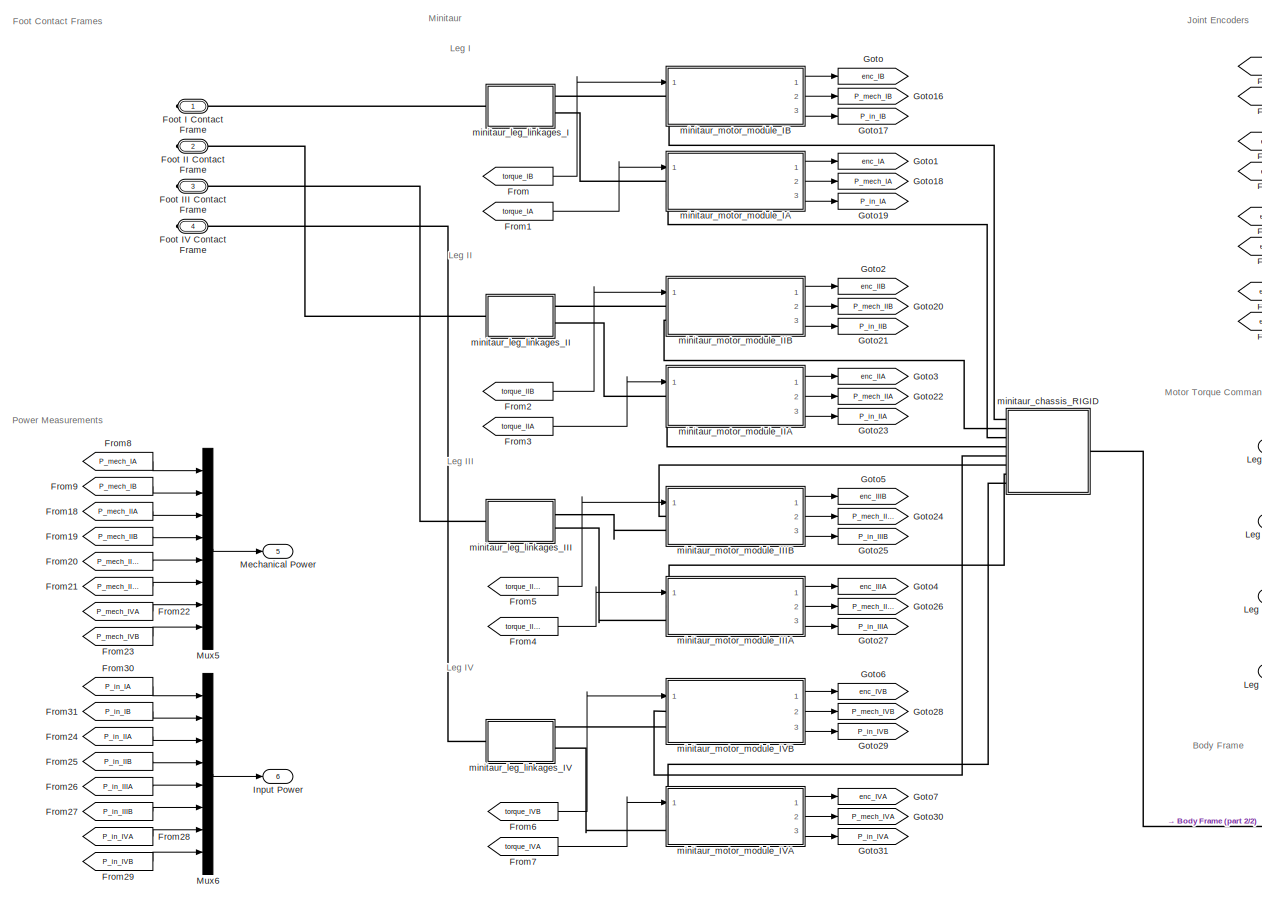
[diagram: GR Minitaur - part 1/2, most of the canvas]
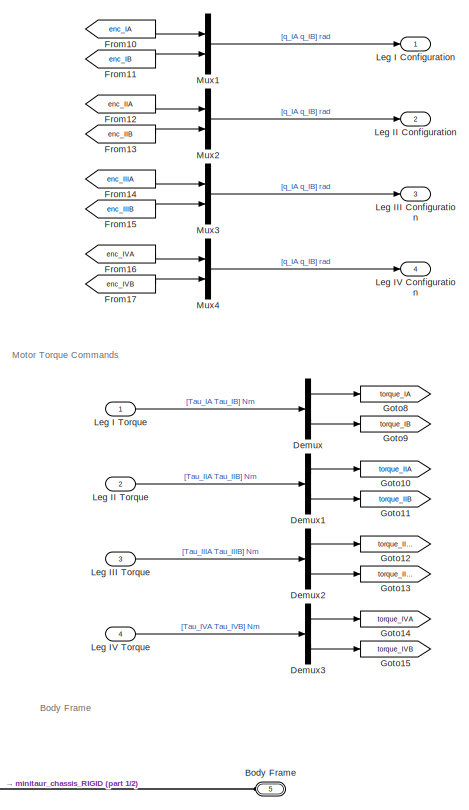
[diagram: GR Minitaur - part 2/2, right side, full height]
BLOCK [SubSystem] GR Minitaur
  Ports = [4, 6, 0, 0, 0, 1, 4]
  RequestExecContextInheritance = off
  Variant = off
BLOCK [PMIOPort] GR Minitaur/Body Frame
  Port = 5
  Side = Left
BLOCK [Demux] GR Minitaur/Demux
  DisplayOption = bar
  Outputs = 2
  Ports = [1, 2]
BLOCK [Demux] GR Minitaur/Demux1
  DisplayOption = bar
  Outputs = 2
  Ports = [1, 2]
BLOCK [Demux] GR Minitaur/Demux2
  DisplayOption = bar
  Outputs = 2
  Ports = [1, 2]
BLOCK [Demux] GR Minitaur/Demux3
  DisplayOption = bar
  Outputs = 2
  Ports = [1, 2]
BLOCK [PMIOPort] GR Minitaur/Foot I Contact Frame
  Port = 1
  Side = Right
BLOCK [PMIOPort] GR Minitaur/Foot II Contact Frame
  Port = 2
  Side = Right
BLOCK [PMIOPort] GR Minitaur/Foot III Contact Frame
  Port = 3
  Side = Right
BLOCK [PMIOPort] GR Minitaur/Foot IV Contact Frame
  Port = 4
  Side = Right
BLOCK [From] GR Minitaur/From
  GotoTag = torque_IB
BLOCK [From] GR Minitaur/From1
  GotoTag = torque_IA
BLOCK [From] GR Minitaur/From10
  GotoTag = enc_IA
BLOCK [From] GR Minitaur/From11
  GotoTag = enc_IB
BLOCK [From] GR Minitaur/From12
  GotoTag = enc_IIA
BLOCK [From] GR Minitaur/From13
  GotoTag = enc_IIB
BLOCK [From] GR Minitaur/From14
  GotoTag = enc_IIIA
BLOCK [From] GR Minitaur/From15
  GotoTag = enc_IIIB
BLOCK [From] GR Minitaur/From16
  GotoTag = enc_IVA
BLOCK [From] GR Minitaur/From17
  GotoTag = enc_IVB
BLOCK [From] GR Minitaur/From18
  GotoTag = P_mech_IIA
BLOCK [From] GR Minitaur/From19
  GotoTag = P_mech_IIB
BLOCK [From] GR Minitaur/From2
  GotoTag = torque_IIB
BLOCK [From] GR Minitaur/From20
  GotoTag = P_mech_IIIA
BLOCK [From] GR Minitaur/From21
  GotoTag = P_mech_IIIB
BLOCK [From] GR Minitaur/From22
  GotoTag = P_mech_IVA
BLOCK [From] GR Minitaur/From23
  GotoTag = P_mech_IVB
BLOCK [From] GR Minitaur/From24
  GotoTag = P_in_IIA
BLOCK [From] GR Minitaur/From25
  GotoTag = P_in_IIB
BLOCK [From] GR Minitaur/From26
  GotoTag = P_in_IIIA
BLOCK [From] GR Minitaur/From27
  GotoTag = P_in_IIIB
BLOCK [From] GR Minitaur/From28
  GotoTag = P_in_IVA
BLOCK [From] GR Minitaur/From29
  GotoTag = P_in_IVB
BLOCK [From] GR Minitaur/From3
  GotoTag = torque_IIA
BLOCK [From] GR Minitaur/From30
  GotoTag = P_in_IA
BLOCK [From] GR Minitaur/From31
  GotoTag = P_in_IB
BLOCK [From] GR Minitaur/From4
  GotoTag = torque_IIIA
BLOCK [From] GR Minitaur/From5
  GotoTag = torque_IIIB
BLOCK [From] GR Minitaur/From6
  GotoTag = torque_IVB
BLOCK [From] GR Minitaur/From7
  GotoTag = torque_IVA
BLOCK [From] GR Minitaur/From8
  GotoTag = P_mech_IA
BLOCK [From] GR Minitaur/From9
  GotoTag = P_mech_IB
BLOCK [Goto] GR Minitaur/Goto
  GotoTag = enc_IB
BLOCK [Goto] GR Minitaur/Goto1
  GotoTag = enc_IA
BLOCK [Goto] GR Minitaur/Goto10
  GotoTag = torque_IIA
BLOCK [Goto] GR Minitaur/Goto11
  GotoTag = torque_IIB
BLOCK [Goto] GR Minitaur/Goto12
  GotoTag = torque_IIIA
BLOCK [Goto] GR Minitaur/Goto13
  GotoTag = torque_IIIB
BLOCK [Goto] GR Minitaur/Goto14
  GotoTag = torque_IVA
BLOCK [Goto] GR Minitaur/Goto15
  GotoTag = torque_IVB
BLOCK [Goto] GR Minitaur/Goto16
  GotoTag = P_mech_IB
BLOCK [Goto] GR Minitaur/Goto17
  GotoTag = P_in_IB
BLOCK [Goto] GR Minitaur/Goto18
  GotoTag = P_mech_IA
BLOCK [Goto] GR Minitaur/Goto19
  GotoTag = P_in_IA
BLOCK [Goto] GR Minitaur/Goto2
  GotoTag = enc_IIB
BLOCK [Goto] GR Minitaur/Goto20
  GotoTag = P_mech_IIB
BLOCK [Goto] GR Minitaur/Goto21
  GotoTag = P_in_IIB
BLOCK [Goto] GR Minitaur/Goto22
  GotoTag = P_mech_IIA
BLOCK [Goto] GR Minitaur/Goto23
  GotoTag = P_in_IIA
BLOCK [Goto] GR Minitaur/Goto24
  GotoTag = P_mech_IIIB
BLOCK [Goto] GR Minitaur/Goto25
  GotoTag = P_in_IIIB
BLOCK [Goto] GR Minitaur/Goto26
  GotoTag = P_mech_IIIA
BLOCK [Goto] GR Minitaur/Goto27
  GotoTag = P_in_IIIA
BLOCK [Goto] GR Minitaur/Goto28
  GotoTag = P_mech_IVB
BLOCK [Goto] GR Minitaur/Goto29
  GotoTag = P_in_IVB
BLOCK [Goto] GR Minitaur/Goto3
  GotoTag = enc_IIA
BLOCK [Goto] GR Minitaur/Goto30
  GotoTag = P_mech_IVA
BLOCK [Goto] GR Minitaur/Goto31
  GotoTag = P_in_IVA
BLOCK [Goto] GR Minitaur/Goto4
  GotoTag = enc_IIIA
BLOCK [Goto] GR Minitaur/Goto5
  GotoTag = enc_IIIB
BLOCK [Goto] GR Minitaur/Goto6
  GotoTag = enc_IVB
BLOCK [Goto] GR Minitaur/Goto7
  GotoTag = enc_IVA
BLOCK [Goto] GR Minitaur/Goto8
  GotoTag = torque_IA
BLOCK [Goto] GR Minitaur/Goto9
  GotoTag = torque_IB
BLOCK [Outport] GR Minitaur/Input Power
  IconDisplay = Port number
  Port = 6
BLOCK [Outport] GR Minitaur/Leg I Configuration
  IconDisplay = Port number
BLOCK [Inport] GR Minitaur/Leg I Torque
  IconDisplay = Port number
BLOCK [Outport] GR Minitaur/Leg II Configuration
  IconDisplay = Port number
  Port = 2
BLOCK [Inport] GR Minitaur/Leg II Torque
  IconDisplay = Port number
  Port = 2
BLOCK [Outport] GR Minitaur/Leg III Configuration
  IconDisplay = Port number
  Port = 3
BLOCK [Inport] GR Minitaur/Leg III Torque
  IconDisplay = Port number
  Port = 3
BLOCK [Outport] GR Minitaur/Leg IV Configuration
  IconDisplay = Port number
  Port = 4
BLOCK [Inport] GR Minitaur/Leg IV Torque
  IconDisplay = Port number
  Port = 4
BLOCK [Outport] GR Minitaur/Mechanical Power
  IconDisplay = Port number
  Port = 5
BLOCK [Mux] GR Minitaur/Mux1
  DisplayOption = bar
  Inputs = 2
  Ports = [2, 1]
BLOCK [Mux] GR Minitaur/Mux2
  DisplayOption = bar
  Inputs = 2
  Ports = [2, 1]
BLOCK [Mux] GR Minitaur/Mux3
  DisplayOption = bar
  Inputs = 2
  Ports = [2, 1]
BLOCK [Mux] GR Minitaur/Mux4
  DisplayOption = bar
  Inputs = 2
  Ports = [2, 1]
BLOCK [Mux] GR Minitaur/Mux5
  DisplayOption = bar
  Inputs = 8
  Ports = [8, 1]
BLOCK [Mux] GR Minitaur/Mux6
  DisplayOption = bar
  Inputs = 8
  Ports = [8, 1]
BLOCK [SubSystem] GR Minitaur/minitaur_chassis_RIGID
  Ports = [0, 0, 0, 0, 0, 8, 1]
  RequestExecContextInheritance = off
  Variant = off
BLOCK [PMIOPort] GR Minitaur/minitaur_chassis_RIGID/F
  Port = 8
  Side = Left
BLOCK [PMIOPort] GR Minitaur/minitaur_chassis_RIGID/F1
  Port = 4
  Side = Left
BLOCK [PMIOPort] GR Minitaur/minitaur_chassis_RIGID/F2
  Port = 3
  Side = Left
BLOCK [PMIOPort] GR Minitaur/minitaur_chassis_RIGID/F4
  Port = 7
  Side = Left
BLOCK [PMIOPort] GR Minitaur/minitaur_chassis_RIGID/F5
  Port = 2
  Side = Left
BLOCK [PMIOPort] GR Minitaur/minitaur_chassis_RIGID/F6
  Port = 1
  Side = Left
BLOCK [PMIOPort] GR Minitaur/minitaur_chassis_RIGID/F7
  Port = 6
  Side = Left
BLOCK [PMIOPort] GR Minitaur/minitaur_chassis_RIGID/F8
  Port = 5
  Side = Left
BLOCK [PMIOPort] GR Minitaur/minitaur_chassis_RIGID/F_body
  Port = 9
  Side = Right
BLOCK [Reference] GR Minitaur/minitaur_chassis_RIGID/ReferenceFrame  REF=sm_lib/Frames and
Transforms/Reference
Frame
  Ports = [0, 0, 0, 0, 0, 0, 1]
  SourceBlock = sm_lib/Frames and\nTransforms/Reference\nFrame
  SourceType = Reference\nFrame
BLOCK [Reference] GR Minitaur/minitaur_chassis_RIGID/Transform  REF=sm_lib/Frames and
Transforms/Rigid
Transform
  Ports = [0, 0, 0, 0, 0, 1, 1]
  SourceBlock = sm_lib/Frames and\nTransforms/Rigid\nTransform
  SourceType = Rigid\nTransform
BLOCK [Reference] GR Minitaur/minitaur_chassis_RIGID/Transform1  REF=sm_lib/Frames and
Transforms/Rigid
Transform
  Ports = [0, 0, 0, 0, 0, 1, 1]
  SourceBlock = sm_lib/Frames and\nTransforms/Rigid\nTransform
  SourceType = Rigid\nTransform
BLOCK [Reference] GR Minitaur/minitaur_chassis_RIGID/Transform10  REF=sm_lib/Frames and
Transforms/Rigid
Transform
  Ports = [0, 0, 0, 0, 0, 1, 1]
  SourceBlock = sm_lib/Frames and\nTransforms/Rigid\nTransform
  SourceType = Rigid\nTransform
BLOCK [Reference] GR Minitaur/minitaur_chassis_RIGID/Transform11  REF=sm_lib/Frames and
Transforms/Rigid
Transform
  Ports = [0, 0, 0, 0, 0, 1, 1]
  SourceBlock = sm_lib/Frames and\nTransforms/Rigid\nTransform
  SourceType = Rigid\nTransform
BLOCK [Reference] GR Minitaur/minitaur_chassis_RIGID/Transform12  REF=sm_lib/Frames and
Transforms/Rigid
Transform
  Ports = [0, 0, 0, 0, 0, 1, 1]
  SourceBlock = sm_lib/Frames and\nTransforms/Rigid\nTransform
  SourceType = Rigid\nTransform
BLOCK [Reference] GR Minitaur/minitaur_chassis_RIGID/Transform13  REF=sm_lib/Frames and
Transforms/Rigid
Transform
  Ports = [0, 0, 0, 0, 0, 1, 1]
  SourceBlock = sm_lib/Frames and\nTransforms/Rigid\nTransform
  SourceType = Rigid\nTransform
BLOCK [Reference] GR Minitaur/minitaur_chassis_RIGID/Transform14  REF=sm_lib/Frames and
Transforms/Rigid
Transform
  Ports = [0, 0, 0, 0, 0, 1, 1]
  SourceBlock = sm_lib/Frames and\nTransforms/Rigid\nTransform
  SourceType = Rigid\nTransform
BLOCK [Reference] GR Minitaur/minitaur_chassis_RIGID/Transform15  REF=sm_lib/Frames and
Transforms/Rigid
Transform
  Ports = [0, 0, 0, 0, 0, 1, 1]
  SourceBlock = sm_lib/Frames and\nTransforms/Rigid\nTransform
  SourceType = Rigid\nTransform
BLOCK [Reference] GR Minitaur/minitaur_chassis_RIGID/Transform16  REF=sm_lib/Frames and
Transforms/Rigid
Transform
  Ports = [0, 0, 0, 0, 0, 1, 1]
  SourceBlock = sm_lib/Frames and\nTransforms/Rigid\nTransform
  SourceType = Rigid\nTransform
BLOCK [Reference] GR Minitaur/minitaur_chassis_RIGID/Transform2  REF=sm_lib/Frames and
Transforms/Rigid
Transform
  Ports = [0, 0, 0, 0, 0, 1, 1]
  SourceBlock = sm_lib/Frames and\nTransforms/Rigid\nTransform
  SourceType = Rigid\nTransform
BLOCK [Reference] GR Minitaur/minitaur_chassis_RIGID/Transform4  REF=sm_lib/Frames and
Transforms/Rigid
Transform
  Ports = [0, 0, 0, 0, 0, 1, 1]
  SourceBlock = sm_lib/Frames and\nTransforms/Rigid\nTransform
  SourceType = Rigid\nTransform
BLOCK [Reference] GR Minitaur/minitaur_chassis_RIGID/Transform5  REF=sm_lib/Frames and
Transforms/Rigid
Transform
  Ports = [0, 0, 0, 0, 0, 1, 1]
  SourceBlock = sm_lib/Frames and\nTransforms/Rigid\nTransform
  SourceType = Rigid\nTransform
BLOCK [Reference] GR Minitaur/minitaur_chassis_RIGID/Transform6  REF=sm_lib/Frames and
Transforms/Rigid
Transform
  Ports = [0, 0, 0, 0, 0, 1, 1]
  SourceBlock = sm_lib/Frames and\nTransforms/Rigid\nTransform
  SourceType = Rigid\nTransform
BLOCK [Reference] GR Minitaur/minitaur_chassis_RIGID/Transform7  REF=sm_lib/Frames and
Transforms/Rigid
Transform
  Ports = [0, 0, 0, 0, 0, 1, 1]
  SourceBlock = sm_lib/Frames and\nTransforms/Rigid\nTransform
  SourceType = Rigid\nTransform
BLOCK [Reference] GR Minitaur/minitaur_chassis_RIGID/Transform8  REF=sm_lib/Frames and
Transforms/Rigid
Transform
  Ports = [0, 0, 0, 0, 0, 1, 1]
  SourceBlock = sm_lib/Frames and\nTransforms/Rigid\nTransform
  SourceType = Rigid\nTransform
BLOCK [Reference] GR Minitaur/minitaur_chassis_RIGID/Transform9  REF=sm_lib/Frames and
Transforms/Rigid
Transform
  Ports = [0, 0, 0, 0, 0, 1, 1]
  SourceBlock = sm_lib/Frames and\nTransforms/Rigid\nTransform
  SourceType = Rigid\nTransform
BLOCK [SubSystem] GR Minitaur/minitaur_chassis_RIGID/minitaur_battery_holder_1_RIGID
  Ports = [0, 0, 0, 0, 0, 1]
  RequestExecContextInheritance = off
  Variant = off
BLOCK [PMIOPort] GR Minitaur/minitaur_chassis_RIGID/minitaur_battery_holder_1_RIGID/F
  Port = 1
  Side = Left
BLOCK [Reference] GR Minitaur/minitaur_chassis_RIGID/minitaur_battery_holder_1_RIGID/ReferenceFrame  REF=sm_lib/Frames and
Transforms/Reference
Frame
  Ports = [0, 0, 0, 0, 0, 0, 1]
  SourceBlock = sm_lib/Frames and\nTransforms/Reference\nFrame
  SourceType = Reference\nFrame
BLOCK [Reference] GR Minitaur/minitaur_chassis_RIGID/minitaur_battery_holder_1_RIGID/Solid  REF=sm_lib/Body Elements/Solid
  Ports = [0, 0, 0, 0, 0, 0, 1]
  SourceBlock = sm_lib/Body Elements/Solid
  SourceType = Solid
BLOCK [SubSystem] GR Minitaur/minitaur_chassis_RIGID/minitaur_battery_placeholder_1_RIGID
  Ports = [0, 0, 0, 0, 0, 1]
  RequestExecContextInheritance = off
  Variant = off
BLOCK [PMIOPort] GR Minitaur/minitaur_chassis_RIGID/minitaur_battery_placeholder_1_RIGID/F
  Port = 1
  Side = Left
BLOCK [Reference] GR Minitaur/minitaur_chassis_RIGID/minitaur_battery_placeholder_1_RIGID/ReferenceFrame  REF=sm_lib/Frames and
Transforms/Reference
Frame
  Ports = [0, 0, 0, 0, 0, 0, 1]
  SourceBlock = sm_lib/Frames and\nTransforms/Reference\nFrame
  SourceType = Reference\nFrame
BLOCK [Reference] GR Minitaur/minitaur_chassis_RIGID/minitaur_battery_placeholder_1_RIGID/Solid  REF=sm_lib/Body Elements/Solid
  Ports = [0, 0, 0, 0, 0, 0, 1]
  SourceBlock = sm_lib/Body Elements/Solid
  SourceType = Solid
BLOCK [SubSystem] GR Minitaur/minitaur_chassis_RIGID/minitaur_chassis_bottom_panel_1_RIGID
  Ports = [0, 0, 0, 0, 0, 1]
  RequestExecContextInheritance = off
  Variant = off
BLOCK [PMIOPort] GR Minitaur/minitaur_chassis_RIGID/minitaur_chassis_bottom_panel_1_RIGID/F
  Port = 1
  Side = Left
BLOCK [Reference] GR Minitaur/minitaur_chassis_RIGID/minitaur_chassis_bottom_panel_1_RIGID/ReferenceFrame  REF=sm_lib/Frames and
Transforms/Reference
Frame
  Ports = [0, 0, 0, 0, 0, 0, 1]
  SourceBlock = sm_lib/Frames and\nTransforms/Reference\nFrame
  SourceType = Reference\nFrame
BLOCK [Reference] GR Minitaur/minitaur_chassis_RIGID/minitaur_chassis_bottom_panel_1_RIGID/Solid  REF=sm_lib/Body Elements/Solid
  Ports = [0, 0, 0, 0, 0, 0, 1]
  SourceBlock = sm_lib/Body Elements/Solid
  SourceType = Solid
BLOCK [SubSystem] GR Minitaur/minitaur_chassis_RIGID/minitaur_chassis_middle_plate_plastic_cover_1_RIGID
  Ports = [0, 0, 0, 0, 0, 1]
  RequestExecContextInheritance = off
  Variant = off
BLOCK [PMIOPort] GR Minitaur/minitaur_chassis_RIGID/minitaur_chassis_middle_plate_plastic_cover_1_RIGID/F
  Port = 1
  Side = Left
BLOCK [Reference] GR Minitaur/minitaur_chassis_RIGID/minitaur_chassis_middle_plate_plastic_cover_1_RIGID/ReferenceFrame  REF=sm_lib/Frames and
Transforms/Reference
Frame
  Ports = [0, 0, 0, 0, 0, 0, 1]
  SourceBlock = sm_lib/Frames and\nTransforms/Reference\nFrame
  SourceType = Reference\nFrame
BLOCK [Reference] GR Minitaur/minitaur_chassis_RIGID/minitaur_chassis_middle_plate_plastic_cover_1_RIGID/Solid  REF=sm_lib/Body Elements/Solid
  Ports = [0, 0, 0, 0, 0, 0, 1]
  SourceBlock = sm_lib/Body Elements/Solid
  SourceType = Solid
BLOCK [SubSystem] GR Minitaur/minitaur_chassis_RIGID/minitaur_chassis_middle_plate_plastic_cover_2_RIGID
  Ports = [0, 0, 0, 0, 0, 1]
  RequestExecContextInheritance = off
  Variant = off
BLOCK [PMIOPort] GR Minitaur/minitaur_chassis_RIGID/minitaur_chassis_middle_plate_plastic_cover_2_RIGID/F
  Port = 1
  Side = Left
BLOCK [Reference] GR Minitaur/minitaur_chassis_RIGID/minitaur_chassis_middle_plate_plastic_cover_2_RIGID/ReferenceFrame  REF=sm_lib/Frames and
Transforms/Reference
Frame
  Ports = [0, 0, 0, 0, 0, 0, 1]
  SourceBlock = sm_lib/Frames and\nTransforms/Reference\nFrame
  SourceType = Reference\nFrame
BLOCK [Reference] GR Minitaur/minitaur_chassis_RIGID/minitaur_chassis_middle_plate_plastic_cover_2_RIGID/Solid  REF=sm_lib/Body Elements/Solid
  Ports = [0, 0, 0, 0, 0, 0, 1]
  SourceBlock = sm_lib/Body Elements/Solid
  SourceType = Solid
BLOCK [SubSystem] GR Minitaur/minitaur_chassis_RIGID/minitaur_chassis_middle_plate_plastic_cover_cutouts_1_RIGID
  Ports = [0, 0, 0, 0, 0, 1]
  RequestExecContextInheritance = off
  Variant = off
BLOCK [PMIOPort] GR Minitaur/minitaur_chassis_RIGID/minitaur_chassis_middle_plate_plastic_cover_cutouts_1_RIGID/F
  Port = 1
  Side = Left
BLOCK [Reference] GR Minitaur/minitaur_chassis_RIGID/minitaur_chassis_middle_plate_plastic_cover_cutouts_1_RIGID/ReferenceFrame  REF=sm_lib/Frames and
Transforms/Reference
Frame
  Ports = [0, 0, 0, 0, 0, 0, 1]
  SourceBlock = sm_lib/Frames and\nTransforms/Reference\nFrame
  SourceType = Reference\nFrame
BLOCK [Reference] GR Minitaur/minitaur_chassis_RIGID/minitaur_chassis_middle_plate_plastic_cover_cutouts_1_RIGID/Solid  REF=sm_lib/Body Elements/Solid
  Ports = [0, 0, 0, 0, 0, 0, 1]
  SourceBlock = sm_lib/Body Elements/Solid
  SourceType = Solid
BLOCK [SubSystem] GR Minitaur/minitaur_chassis_RIGID/minitaur_chassis_top_panel_1_RIGID
  Ports = [0, 0, 0, 0, 0, 1]
  RequestExecContextInheritance = off
  Variant = off
BLOCK [PMIOPort] GR Minitaur/minitaur_chassis_RIGID/minitaur_chassis_top_panel_1_RIGID/F
  Port = 1
  Side = Left
BLOCK [Reference] GR Minitaur/minitaur_chassis_RIGID/minitaur_chassis_top_panel_1_RIGID/ReferenceFrame  REF=sm_lib/Frames and
Transforms/Reference
Frame
  Ports = [0, 0, 0, 0, 0, 0, 1]
  SourceBlock = sm_lib/Frames and\nTransforms/Reference\nFrame
  SourceType = Reference\nFrame
BLOCK [Reference] GR Minitaur/minitaur_chassis_RIGID/minitaur_chassis_top_panel_1_RIGID/Solid  REF=sm_lib/Body Elements/Solid
  Ports = [0, 0, 0, 0, 0, 0, 1]
  SourceBlock = sm_lib/Body Elements/Solid
  SourceType = Solid
BLOCK [SubSystem] GR Minitaur/minitaur_chassis_RIGID/minitaur_legs_side_1_RIGID
  Ports = [0, 0, 0, 0, 0, 0, 1]
  RequestExecContextInheritance = off
  Variant = off
BLOCK [PMIOPort] GR Minitaur/minitaur_chassis_RIGID/minitaur_legs_side_1_RIGID/F
  Port = 1
  Side = Right
BLOCK [Reference] GR Minitaur/minitaur_chassis_RIGID/minitaur_legs_side_1_RIGID/ReferenceFrame  REF=sm_lib/Frames and
Transforms/Reference
Frame
  Ports = [0, 0, 0, 0, 0, 0, 1]
  SourceBlock = sm_lib/Frames and\nTransforms/Reference\nFrame
  SourceType = Reference\nFrame
BLOCK [Reference] GR Minitaur/minitaur_chassis_RIGID/minitaur_legs_side_1_RIGID/Transform  REF=sm_lib/Frames and
Transforms/Rigid
Transform
  Ports = [0, 0, 0, 0, 0, 1, 1]
  SourceBlock = sm_lib/Frames and\nTransforms/Rigid\nTransform
  SourceType = Rigid\nTransform
BLOCK [Reference] GR Minitaur/minitaur_chassis_RIGID/minitaur_legs_side_1_RIGID/Transform1  REF=sm_lib/Frames and
Transforms/Rigid
Transform
  Ports = [0, 0, 0, 0, 0, 1, 1]
  SourceBlock = sm_lib/Frames and\nTransforms/Rigid\nTransform
  SourceType = Rigid\nTransform
BLOCK [Reference] GR Minitaur/minitaur_chassis_RIGID/minitaur_legs_side_1_RIGID/Transform2  REF=sm_lib/Frames and
Transforms/Rigid
Transform
  Ports = [0, 0, 0, 0, 0, 1, 1]
  SourceBlock = sm_lib/Frames and\nTransforms/Rigid\nTransform
  SourceType = Rigid\nTransform
BLOCK [Reference] GR Minitaur/minitaur_chassis_RIGID/minitaur_legs_side_1_RIGID/Transform3  REF=sm_lib/Frames and
Transforms/Rigid
Transform
  Ports = [0, 0, 0, 0, 0, 1, 1]
  SourceBlock = sm_lib/Frames and\nTransforms/Rigid\nTransform
  SourceType = Rigid\nTransform
BLOCK [Reference] GR Minitaur/minitaur_chassis_RIGID/minitaur_legs_side_1_RIGID/Transform4  REF=sm_lib/Frames and
Transforms/Rigid
Transform
  Ports = [0, 0, 0, 0, 0, 1, 1]
  SourceBlock = sm_lib/Frames and\nTransforms/Rigid\nTransform
  SourceType = Rigid\nTransform
BLOCK [Reference] GR Minitaur/minitaur_chassis_RIGID/minitaur_legs_side_1_RIGID/Transform5  REF=sm_lib/Frames and
Transforms/Rigid
Transform
  Ports = [0, 0, 0, 0, 0, 1, 1]
  SourceBlock = sm_lib/Frames and\nTransforms/Rigid\nTransform
  SourceType = Rigid\nTransform
BLOCK [Reference] GR Minitaur/minitaur_chassis_RIGID/minitaur_legs_side_1_RIGID/Transform6  REF=sm_lib/Frames and
Transforms/Rigid
Transform
  Ports = [0, 0, 0, 0, 0, 1, 1]
  SourceBlock = sm_lib/Frames and\nTransforms/Rigid\nTransform
  SourceType = Rigid\nTransform
BLOCK [Reference] GR Minitaur/minitaur_chassis_RIGID/minitaur_legs_side_1_RIGID/Transform7  REF=sm_lib/Frames and
Transforms/Rigid
Transform
  Ports = [0, 0, 0, 0, 0, 1, 1]
  SourceBlock = sm_lib/Frames and\nTransforms/Rigid\nTransform
  SourceType = Rigid\nTransform
BLOCK [SubSystem] GR Minitaur/minitaur_chassis_RIGID/minitaur_legs_side_1_RIGID/minitaur_side_panel_1_RIGID
  Ports = [0, 0, 0, 0, 0, 1]
  RequestExecContextInheritance = off
  Variant = off
BLOCK [PMIOPort] GR Minitaur/minitaur_chassis_RIGID/minitaur_legs_side_1_RIGID/minitaur_side_panel_1_RIGID/F
  Port = 1
  Side = Left
BLOCK [Reference] GR Minitaur/minitaur_chassis_RIGID/minitaur_legs_side_1_RIGID/minitaur_side_panel_1_RIGID/ReferenceFrame  REF=sm_lib/Frames and
Transforms/Reference
Frame
  Ports = [0, 0, 0, 0, 0, 0, 1]
  SourceBlock = sm_lib/Frames and\nTransforms/Reference\nFrame
  SourceType = Reference\nFrame
BLOCK [Reference] GR Minitaur/minitaur_chassis_RIGID/minitaur_legs_side_1_RIGID/minitaur_side_panel_1_RIGID/Solid  REF=sm_lib/Body Elements/Solid
  Ports = [0, 0, 0, 0, 0, 0, 1]
  SourceBlock = sm_lib/Body Elements/Solid
  SourceType = Solid
BLOCK [SubSystem] GR Minitaur/minitaur_chassis_RIGID/minitaur_legs_side_1_RIGID/minitaur_side_panel_outer_1_RIGID
  Ports = [0, 0, 0, 0, 0, 1]
  RequestExecContextInheritance = off
  Variant = off
BLOCK [PMIOPort] GR Minitaur/minitaur_chassis_RIGID/minitaur_legs_side_1_RIGID/minitaur_side_panel_outer_1_RIGID/F
  Port = 1
  Side = Left
BLOCK [Reference] GR Minitaur/minitaur_chassis_RIGID/minitaur_legs_side_1_RIGID/minitaur_side_panel_outer_1_RIGID/ReferenceFrame  REF=sm_lib/Frames and
Transforms/Reference
Frame
  Ports = [0, 0, 0, 0, 0, 0, 1]
  SourceBlock = sm_lib/Frames and\nTransforms/Reference\nFrame
  SourceType = Reference\nFrame
BLOCK [Reference] GR Minitaur/minitaur_chassis_RIGID/minitaur_legs_side_1_RIGID/minitaur_side_panel_outer_1_RIGID/Solid  REF=sm_lib/Body Elements/Solid
  Ports = [0, 0, 0, 0, 0, 0, 1]
  SourceBlock = sm_lib/Body Elements/Solid
  SourceType = Solid
BLOCK [SubSystem] GR Minitaur/minitaur_chassis_RIGID/minitaur_legs_side_1_RIGID/minitaur_side_plate_1_RIGID
  Ports = [0, 0, 0, 0, 0, 1]
  RequestExecContextInheritance = off
  Variant = off
BLOCK [PMIOPort] GR Minitaur/minitaur_chassis_RIGID/minitaur_legs_side_1_RIGID/minitaur_side_plate_1_RIGID/F
  Port = 1
  Side = Left
BLOCK [Reference] GR Minitaur/minitaur_chassis_RIGID/minitaur_legs_side_1_RIGID/minitaur_side_plate_1_RIGID/ReferenceFrame  REF=sm_lib/Frames and
Transforms/Reference
Frame
  Ports = [0, 0, 0, 0, 0, 0, 1]
  SourceBlock = sm_lib/Frames and\nTransforms/Reference\nFrame
  SourceType = Reference\nFrame
BLOCK [Reference] GR Minitaur/minitaur_chassis_RIGID/minitaur_legs_side_1_RIGID/minitaur_side_plate_1_RIGID/Solid  REF=sm_lib/Body Elements/Solid
  Ports = [0, 0, 0, 0, 0, 0, 1]
  SourceBlock = sm_lib/Body Elements/Solid
  SourceType = Solid
BLOCK [SubSystem] GR Minitaur/minitaur_chassis_RIGID/minitaur_legs_side_1_RIGID/minitaur_side_plate_outer_1_RIGID
  Ports = [0, 0, 0, 0, 0, 1]
  RequestExecContextInheritance = off
  Variant = off
BLOCK [PMIOPort] GR Minitaur/minitaur_chassis_RIGID/minitaur_legs_side_1_RIGID/minitaur_side_plate_outer_1_RIGID/F
  Port = 1
  Side = Left
BLOCK [Reference] GR Minitaur/minitaur_chassis_RIGID/minitaur_legs_side_1_RIGID/minitaur_side_plate_outer_1_RIGID/ReferenceFrame  REF=sm_lib/Frames and
Transforms/Reference
Frame
  Ports = [0, 0, 0, 0, 0, 0, 1]
  SourceBlock = sm_lib/Frames and\nTransforms/Reference\nFrame
  SourceType = Reference\nFrame
BLOCK [Reference] GR Minitaur/minitaur_chassis_RIGID/minitaur_legs_side_1_RIGID/minitaur_side_plate_outer_1_RIGID/Solid  REF=sm_lib/Body Elements/Solid
  Ports = [0, 0, 0, 0, 0, 0, 1]
  SourceBlock = sm_lib/Body Elements/Solid
  SourceType = Solid
BLOCK [SubSystem] GR Minitaur/minitaur_chassis_RIGID/minitaur_legs_side_1_RIGID/minitaur_side_support_plate_1_RIGID
  Ports = [0, 0, 0, 0, 0, 1]
  RequestExecContextInheritance = off
  Variant = off
BLOCK [PMIOPort] GR Minitaur/minitaur_chassis_RIGID/minitaur_legs_side_1_RIGID/minitaur_side_support_plate_1_RIGID/F
  Port = 1
  Side = Left
BLOCK [Reference] GR Minitaur/minitaur_chassis_RIGID/minitaur_legs_side_1_RIGID/minitaur_side_support_plate_1_RIGID/ReferenceFrame  REF=sm_lib/Frames and
Transforms/Reference
Frame
  Ports = [0, 0, 0, 0, 0, 0, 1]
  SourceBlock = sm_lib/Frames and\nTransforms/Reference\nFrame
  SourceType = Reference\nFrame
BLOCK [Reference] GR Minitaur/minitaur_chassis_RIGID/minitaur_legs_side_1_RIGID/minitaur_side_support_plate_1_RIGID/Solid  REF=sm_lib/Body Elements/Solid
  Ports = [0, 0, 0, 0, 0, 0, 1]
  SourceBlock = sm_lib/Body Elements/Solid
  SourceType = Solid
BLOCK [SubSystem] GR Minitaur/minitaur_chassis_RIGID/minitaur_legs_side_1_RIGID/minitaur_side_support_plate_2_RIGID
  Ports = [0, 0, 0, 0, 0, 1]
  RequestExecContextInheritance = off
  Variant = off
BLOCK [PMIOPort] GR Minitaur/minitaur_chassis_RIGID/minitaur_legs_side_1_RIGID/minitaur_side_support_plate_2_RIGID/F
  Port = 1
  Side = Left
BLOCK [Reference] GR Minitaur/minitaur_chassis_RIGID/minitaur_legs_side_1_RIGID/minitaur_side_support_plate_2_RIGID/ReferenceFrame  REF=sm_lib/Frames and
Transforms/Reference
Frame
  Ports = [0, 0, 0, 0, 0, 0, 1]
  SourceBlock = sm_lib/Frames and\nTransforms/Reference\nFrame
  SourceType = Reference\nFrame
BLOCK [Reference] GR Minitaur/minitaur_chassis_RIGID/minitaur_legs_side_1_RIGID/minitaur_side_support_plate_2_RIGID/Solid  REF=sm_lib/Body Elements/Solid
  Ports = [0, 0, 0, 0, 0, 0, 1]
  SourceBlock = sm_lib/Body Elements/Solid
  SourceType = Solid
BLOCK [SubSystem] GR Minitaur/minitaur_chassis_RIGID/minitaur_legs_side_1_RIGID/minitaur_side_top_panel_1_RIGID
  Ports = [0, 0, 0, 0, 0, 1]
  RequestExecContextInheritance = off
  Variant = off
BLOCK [PMIOPort] GR Minitaur/minitaur_chassis_RIGID/minitaur_legs_side_1_RIGID/minitaur_side_top_panel_1_RIGID/F
  Port = 1
  Side = Left
BLOCK [Reference] GR Minitaur/minitaur_chassis_RIGID/minitaur_legs_side_1_RIGID/minitaur_side_top_panel_1_RIGID/ReferenceFrame  REF=sm_lib/Frames and
Transforms/Reference
Frame
  Ports = [0, 0, 0, 0, 0, 0, 1]
  SourceBlock = sm_lib/Frames and\nTransforms/Reference\nFrame
  SourceType = Reference\nFrame
BLOCK [Reference] GR Minitaur/minitaur_chassis_RIGID/minitaur_legs_side_1_RIGID/minitaur_side_top_panel_1_RIGID/Solid  REF=sm_lib/Body Elements/Solid
  Ports = [0, 0, 0, 0, 0, 0, 1]
  SourceBlock = sm_lib/Body Elements/Solid
  SourceType = Solid
BLOCK [SubSystem] GR Minitaur/minitaur_chassis_RIGID/minitaur_legs_side_2_RIGID
  Ports = [0, 0, 0, 0, 0, 0, 1]
  RequestExecContextInheritance = off
  Variant = off
BLOCK [PMIOPort] GR Minitaur/minitaur_chassis_RIGID/minitaur_legs_side_2_RIGID/F
  Port = 1
  Side = Right
BLOCK [Reference] GR Minitaur/minitaur_chassis_RIGID/minitaur_legs_side_2_RIGID/ReferenceFrame  REF=sm_lib/Frames and
Transforms/Reference
Frame
  Ports = [0, 0, 0, 0, 0, 0, 1]
  SourceBlock = sm_lib/Frames and\nTransforms/Reference\nFrame
  SourceType = Reference\nFrame
BLOCK [Reference] GR Minitaur/minitaur_chassis_RIGID/minitaur_legs_side_2_RIGID/Transform  REF=sm_lib/Frames and
Transforms/Rigid
Transform
  Ports = [0, 0, 0, 0, 0, 1, 1]
  SourceBlock = sm_lib/Frames and\nTransforms/Rigid\nTransform
  SourceType = Rigid\nTransform
BLOCK [Reference] GR Minitaur/minitaur_chassis_RIGID/minitaur_legs_side_2_RIGID/Transform1  REF=sm_lib/Frames and
Transforms/Rigid
Transform
  Ports = [0, 0, 0, 0, 0, 1, 1]
  SourceBlock = sm_lib/Frames and\nTransforms/Rigid\nTransform
  SourceType = Rigid\nTransform
BLOCK [Reference] GR Minitaur/minitaur_chassis_RIGID/minitaur_legs_side_2_RIGID/Transform2  REF=sm_lib/Frames and
Transforms/Rigid
Transform
  Ports = [0, 0, 0, 0, 0, 1, 1]
  SourceBlock = sm_lib/Frames and\nTransforms/Rigid\nTransform
  SourceType = Rigid\nTransform
BLOCK [Reference] GR Minitaur/minitaur_chassis_RIGID/minitaur_legs_side_2_RIGID/Transform3  REF=sm_lib/Frames and
Transforms/Rigid
Transform
  Ports = [0, 0, 0, 0, 0, 1, 1]
  SourceBlock = sm_lib/Frames and\nTransforms/Rigid\nTransform
  SourceType = Rigid\nTransform
BLOCK [Reference] GR Minitaur/minitaur_chassis_RIGID/minitaur_legs_side_2_RIGID/Transform4  REF=sm_lib/Frames and
Transforms/Rigid
Transform
  Ports = [0, 0, 0, 0, 0, 1, 1]
  SourceBlock = sm_lib/Frames and\nTransforms/Rigid\nTransform
  SourceType = Rigid\nTransform
BLOCK [Reference] GR Minitaur/minitaur_chassis_RIGID/minitaur_legs_side_2_RIGID/Transform5  REF=sm_lib/Frames and
Transforms/Rigid
Transform
  Ports = [0, 0, 0, 0, 0, 1, 1]
  SourceBlock = sm_lib/Frames and\nTransforms/Rigid\nTransform
  SourceType = Rigid\nTransform
BLOCK [Reference] GR Minitaur/minitaur_chassis_RIGID/minitaur_legs_side_2_RIGID/Transform6  REF=sm_lib/Frames and
Transforms/Rigid
Transform
  Ports = [0, 0, 0, 0, 0, 1, 1]
  SourceBlock = sm_lib/Frames and\nTransforms/Rigid\nTransform
  SourceType = Rigid\nTransform
BLOCK [Reference] GR Minitaur/minitaur_chassis_RIGID/minitaur_legs_side_2_RIGID/Transform7  REF=sm_lib/Frames and
Transforms/Rigid
Transform
  Ports = [0, 0, 0, 0, 0, 1, 1]
  SourceBlock = sm_lib/Frames and\nTransforms/Rigid\nTransform
  SourceType = Rigid\nTransform
BLOCK [SubSystem] GR Minitaur/minitaur_chassis_RIGID/minitaur_legs_side_2_RIGID/minitaur_side_panel_1_RIGID
  Ports = [0, 0, 0, 0, 0, 1]
  RequestExecContextInheritance = off
  Variant = off
BLOCK [PMIOPort] GR Minitaur/minitaur_chassis_RIGID/minitaur_legs_side_2_RIGID/minitaur_side_panel_1_RIGID/F
  Port = 1
  Side = Left
BLOCK [Reference] GR Minitaur/minitaur_chassis_RIGID/minitaur_legs_side_2_RIGID/minitaur_side_panel_1_RIGID/ReferenceFrame  REF=sm_lib/Frames and
Transforms/Reference
Frame
  Ports = [0, 0, 0, 0, 0, 0, 1]
  SourceBlock = sm_lib/Frames and\nTransforms/Reference\nFrame
  SourceType = Reference\nFrame
BLOCK [Reference] GR Minitaur/minitaur_chassis_RIGID/minitaur_legs_side_2_RIGID/minitaur_side_panel_1_RIGID/Solid  REF=sm_lib/Body Elements/Solid
  Ports = [0, 0, 0, 0, 0, 0, 1]
  SourceBlock = sm_lib/Body Elements/Solid
  SourceType = Solid
BLOCK [SubSystem] GR Minitaur/minitaur_chassis_RIGID/minitaur_legs_side_2_RIGID/minitaur_side_panel_outer_1_RIGID
  Ports = [0, 0, 0, 0, 0, 1]
  RequestExecContextInheritance = off
  Variant = off
BLOCK [PMIOPort] GR Minitaur/minitaur_chassis_RIGID/minitaur_legs_side_2_RIGID/minitaur_side_panel_outer_1_RIGID/F
  Port = 1
  Side = Left
BLOCK [Reference] GR Minitaur/minitaur_chassis_RIGID/minitaur_legs_side_2_RIGID/minitaur_side_panel_outer_1_RIGID/ReferenceFrame  REF=sm_lib/Frames and
Transforms/Reference
Frame
  Ports = [0, 0, 0, 0, 0, 0, 1]
  SourceBlock = sm_lib/Frames and\nTransforms/Reference\nFrame
  SourceType = Reference\nFrame
BLOCK [Reference] GR Minitaur/minitaur_chassis_RIGID/minitaur_legs_side_2_RIGID/minitaur_side_panel_outer_1_RIGID/Solid  REF=sm_lib/Body Elements/Solid
  Ports = [0, 0, 0, 0, 0, 0, 1]
  SourceBlock = sm_lib/Body Elements/Solid
  SourceType = Solid
BLOCK [SubSystem] GR Minitaur/minitaur_chassis_RIGID/minitaur_legs_side_2_RIGID/minitaur_side_plate_1_RIGID
  Ports = [0, 0, 0, 0, 0, 1]
  RequestExecContextInheritance = off
  Variant = off
BLOCK [PMIOPort] GR Minitaur/minitaur_chassis_RIGID/minitaur_legs_side_2_RIGID/minitaur_side_plate_1_RIGID/F
  Port = 1
  Side = Left
BLOCK [Reference] GR Minitaur/minitaur_chassis_RIGID/minitaur_legs_side_2_RIGID/minitaur_side_plate_1_RIGID/ReferenceFrame  REF=sm_lib/Frames and
Transforms/Reference
Frame
  Ports = [0, 0, 0, 0, 0, 0, 1]
  SourceBlock = sm_lib/Frames and\nTransforms/Reference\nFrame
  SourceType = Reference\nFrame
BLOCK [Reference] GR Minitaur/minitaur_chassis_RIGID/minitaur_legs_side_2_RIGID/minitaur_side_plate_1_RIGID/Solid  REF=sm_lib/Body Elements/Solid
  Ports = [0, 0, 0, 0, 0, 0, 1]
  SourceBlock = sm_lib/Body Elements/Solid
  SourceType = Solid
BLOCK [SubSystem] GR Minitaur/minitaur_chassis_RIGID/minitaur_legs_side_2_RIGID/minitaur_side_plate_outer_1_RIGID
  Ports = [0, 0, 0, 0, 0, 1]
  RequestExecContextInheritance = off
  Variant = off
BLOCK [PMIOPort] GR Minitaur/minitaur_chassis_RIGID/minitaur_legs_side_2_RIGID/minitaur_side_plate_outer_1_RIGID/F
  Port = 1
  Side = Left
BLOCK [Reference] GR Minitaur/minitaur_chassis_RIGID/minitaur_legs_side_2_RIGID/minitaur_side_plate_outer_1_RIGID/ReferenceFrame  REF=sm_lib/Frames and
Transforms/Reference
Frame
  Ports = [0, 0, 0, 0, 0, 0, 1]
  SourceBlock = sm_lib/Frames and\nTransforms/Reference\nFrame
  SourceType = Reference\nFrame
BLOCK [Reference] GR Minitaur/minitaur_chassis_RIGID/minitaur_legs_side_2_RIGID/minitaur_side_plate_outer_1_RIGID/Solid  REF=sm_lib/Body Elements/Solid
  Ports = [0, 0, 0, 0, 0, 0, 1]
  SourceBlock = sm_lib/Body Elements/Solid
  SourceType = Solid
BLOCK [SubSystem] GR Minitaur/minitaur_chassis_RIGID/minitaur_legs_side_2_RIGID/minitaur_side_support_plate_1_RIGID
  Ports = [0, 0, 0, 0, 0, 1]
  RequestExecContextInheritance = off
  Variant = off
BLOCK [PMIOPort] GR Minitaur/minitaur_chassis_RIGID/minitaur_legs_side_2_RIGID/minitaur_side_support_plate_1_RIGID/F
  Port = 1
  Side = Left
BLOCK [Reference] GR Minitaur/minitaur_chassis_RIGID/minitaur_legs_side_2_RIGID/minitaur_side_support_plate_1_RIGID/ReferenceFrame  REF=sm_lib/Frames and
Transforms/Reference
Frame
  Ports = [0, 0, 0, 0, 0, 0, 1]
  SourceBlock = sm_lib/Frames and\nTransforms/Reference\nFrame
  SourceType = Reference\nFrame
BLOCK [Reference] GR Minitaur/minitaur_chassis_RIGID/minitaur_legs_side_2_RIGID/minitaur_side_support_plate_1_RIGID/Solid  REF=sm_lib/Body Elements/Solid
  Ports = [0, 0, 0, 0, 0, 0, 1]
  SourceBlock = sm_lib/Body Elements/Solid
  SourceType = Solid
BLOCK [SubSystem] GR Minitaur/minitaur_chassis_RIGID/minitaur_legs_side_2_RIGID/minitaur_side_support_plate_2_RIGID
  Ports = [0, 0, 0, 0, 0, 1]
  RequestExecContextInheritance = off
  Variant = off
BLOCK [PMIOPort] GR Minitaur/minitaur_chassis_RIGID/minitaur_legs_side_2_RIGID/minitaur_side_support_plate_2_RIGID/F
  Port = 1
  Side = Left
BLOCK [Reference] GR Minitaur/minitaur_chassis_RIGID/minitaur_legs_side_2_RIGID/minitaur_side_support_plate_2_RIGID/ReferenceFrame  REF=sm_lib/Frames and
Transforms/Reference
Frame
  Ports = [0, 0, 0, 0, 0, 0, 1]
  SourceBlock = sm_lib/Frames and\nTransforms/Reference\nFrame
  SourceType = Reference\nFrame
BLOCK [Reference] GR Minitaur/minitaur_chassis_RIGID/minitaur_legs_side_2_RIGID/minitaur_side_support_plate_2_RIGID/Solid  REF=sm_lib/Body Elements/Solid
  Ports = [0, 0, 0, 0, 0, 0, 1]
  SourceBlock = sm_lib/Body Elements/Solid
  SourceType = Solid
BLOCK [SubSystem] GR Minitaur/minitaur_chassis_RIGID/minitaur_legs_side_2_RIGID/minitaur_side_top_panel_1_RIGID
  Ports = [0, 0, 0, 0, 0, 1]
  RequestExecContextInheritance = off
  Variant = off
BLOCK [PMIOPort] GR Minitaur/minitaur_chassis_RIGID/minitaur_legs_side_2_RIGID/minitaur_side_top_panel_1_RIGID/F
  Port = 1
  Side = Left
BLOCK [Reference] GR Minitaur/minitaur_chassis_RIGID/minitaur_legs_side_2_RIGID/minitaur_side_top_panel_1_RIGID/ReferenceFrame  REF=sm_lib/Frames and
Transforms/Reference
Frame
  Ports = [0, 0, 0, 0, 0, 0, 1]
  SourceBlock = sm_lib/Frames and\nTransforms/Reference\nFrame
  SourceType = Reference\nFrame
BLOCK [Reference] GR Minitaur/minitaur_chassis_RIGID/minitaur_legs_side_2_RIGID/minitaur_side_top_panel_1_RIGID/Solid  REF=sm_lib/Body Elements/Solid
  Ports = [0, 0, 0, 0, 0, 0, 1]
  SourceBlock = sm_lib/Body Elements/Solid
  SourceType = Solid
BLOCK [SubSystem] GR Minitaur/minitaur_chassis_RIGID/minitaur_middle_plate_1_RIGID
  Ports = [0, 0, 0, 0, 0, 1]
  RequestExecContextInheritance = off
  Variant = off
BLOCK [PMIOPort] GR Minitaur/minitaur_chassis_RIGID/minitaur_middle_plate_1_RIGID/F
  Port = 1
  Side = Left
BLOCK [Reference] GR Minitaur/minitaur_chassis_RIGID/minitaur_middle_plate_1_RIGID/ReferenceFrame  REF=sm_lib/Frames and
Transforms/Reference
Frame
  Ports = [0, 0, 0, 0, 0, 0, 1]
  SourceBlock = sm_lib/Frames and\nTransforms/Reference\nFrame
  SourceType = Reference\nFrame
BLOCK [Reference] GR Minitaur/minitaur_chassis_RIGID/minitaur_middle_plate_1_RIGID/Solid  REF=sm_lib/Body Elements/Solid
  Ports = [0, 0, 0, 0, 0, 0, 1]
  SourceBlock = sm_lib/Body Elements/Solid
  SourceType = Solid
BLOCK [SubSystem] GR Minitaur/minitaur_leg_linkages_I
  Ports = [0, 0, 0, 0, 0, 2, 1]
  RequestExecContextInheritance = off
  Variant = off
BLOCK [PMIOPort] GR Minitaur/minitaur_leg_linkages_I/F
  Port = 2
  Side = Left
BLOCK [PMIOPort] GR Minitaur/minitaur_leg_linkages_I/F1
  Port = 1
  Side = Left
BLOCK [PMIOPort] GR Minitaur/minitaur_leg_linkages_I/F_contact
  Port = 3
  Side = Right
BLOCK [SubSystem] GR Minitaur/minitaur_leg_linkages_I/Joint Friction Model
  OverrideUsingVariant = stick-slip
  Ports = [0, 0, 0, 0, 0, 2, 1]
  RequestExecContextInheritance = off
  Variant = on
BLOCK [PMIOPort] GR Minitaur/minitaur_leg_linkages_I/Joint Friction Model/Friction Torque
  Port = 3
  Side = Right
BLOCK [SubSystem] GR Minitaur/minitaur_leg_linkages_I/Joint Friction Model/Full
  Ports = [0, 0, 0, 0, 0, 2, 1]
  RequestExecContextInheritance = off
  Variant = off
  VariantControl = full
BLOCK [PMIOPort] GR Minitaur/minitaur_leg_linkages_I/Joint Friction Model/Full/Friction Torque
  Port = 3
  Side = Right
BLOCK [Reference] GR Minitaur/minitaur_leg_linkages_I/Joint Friction Model/Full/Ideal Force Sensor  REF=fl_lib/Mechanical/Mechanical Sensors/Ideal Force Sensor
  Ports = [0, 0, 0, 0, 0, 1, 2]
  SourceBlock = fl_lib/Mechanical/Mechanical Sensors/Ideal Force Sensor
  SourceType = Ideal Force Sensor
BLOCK [Reference] GR Minitaur/minitaur_leg_linkages_I/Joint Friction Model/Full/Ideal Translational Velocity Source  REF=fl_lib/Mechanical/Mechanical Sources/Ideal Translational
Velocity Source
  Ports = [0, 0, 0, 0, 0, 1, 2]
  SourceBlock = fl_lib/Mechanical/Mechanical Sources/Ideal Translational\nVelocity Source
  SourceType = Ideal Translational\nVelocity Source
BLOCK [PMIOPort] GR Minitaur/minitaur_leg_linkages_I/Joint Friction Model/Full/Joint Angular Velocity
  Port = 1
  Side = Left
BLOCK [Reference] GR Minitaur/minitaur_leg_linkages_I/Joint Friction Model/Full/Joint Diameter  REF=fl_lib/Physical Signals/Functions/PS Gain
  Ports = [0, 0, 0, 0, 0, 1, 1]
  SourceBlock = fl_lib/Physical Signals/Functions/PS Gain
  SourceType = PS Gain
BLOCK [PMIOPort] GR Minitaur/minitaur_leg_linkages_I/Joint Friction Model/Full/Joint Force
  Port = 2
  Side = Left
BLOCK [Reference] GR Minitaur/minitaur_leg_linkages_I/Joint Friction Model/Full/Joint Radius  REF=fl_lib/Physical Signals/Functions/PS Gain
  Ports = [0, 0, 0, 0, 0, 1, 1]
  SourceBlock = fl_lib/Physical Signals/Functions/PS Gain
  SourceType = PS Gain
BLOCK [Reference] GR Minitaur/minitaur_leg_linkages_I/Joint Friction Model/Full/Mechanical Translational Reference  REF=fl_lib/Mechanical/Translational
Elements/Mechanical
Translational
Reference
  Ports = [0, 0, 0, 0, 0, 1]
  SourceBlock = fl_lib/Mechanical/Translational\nElements/Mechanical\nTranslational\nReference
  SourceType = Mechanical\nTranslational\nReference
BLOCK [Reference] GR Minitaur/minitaur_leg_linkages_I/Joint Friction Model/Full/Mechanical Translational Reference1  REF=fl_lib/Mechanical/Translational
Elements/Mechanical
Translational
Reference
  Ports = [0, 0, 0, 0, 0, 1]
  SourceBlock = fl_lib/Mechanical/Translational\nElements/Mechanical\nTranslational\nReference
  SourceType = Mechanical\nTranslational\nReference
BLOCK [Reference] GR Minitaur/minitaur_leg_linkages_I/Joint Friction Model/Full/PS Terminator  REF=fl_lib/Physical Signals/Sinks/PS Terminator
  Ports = [0, 0, 0, 0, 0, 1]
  SourceBlock = fl_lib/Physical Signals/Sinks/PS Terminator
  SourceType = PS Terminator
BLOCK [Reference] GR Minitaur/minitaur_leg_linkages_I/Joint Friction Model/Full/Translational Friction  REF=fl_lib/Mechanical/Translational
Elements/Translational
Friction
  Ports = [0, 0, 0, 0, 0, 1, 1]
  SourceBlock = fl_lib/Mechanical/Translational\nElements/Translational\nFriction
  SourceType = Translational\nFriction
BLOCK [PMIOPort] GR Minitaur/minitaur_leg_linkages_I/Joint Friction Model/Joint Angular Velocity
  Port = 1
  Side = Left
BLOCK [PMIOPort] GR Minitaur/minitaur_leg_linkages_I/Joint Friction Model/Joint Force
  Port = 2
  Side = Left
BLOCK [SubSystem] GR Minitaur/minitaur_leg_linkages_I/Joint Friction Model/Stick-Slip
  Ports = [0, 0, 0, 0, 0, 2, 1]
  RequestExecContextInheritance = off
  Variant = off
  VariantControl = stick-slip
BLOCK [PMIOPort] GR Minitaur/minitaur_leg_linkages_I/Joint Friction Model/Stick-Slip/Friction Torque
  Port = 3
  Side = Right
BLOCK [PMIOPort] GR Minitaur/minitaur_leg_linkages_I/Joint Friction Model/Stick-Slip/Joint Angular Velocity
  Port = 1
  Side = Left
BLOCK [Reference] GR Minitaur/minitaur_leg_linkages_I/Joint Friction Model/Stick-Slip/Joint Diameter  REF=fl_lib/Physical Signals/Functions/PS Gain
  Ports = [0, 0, 0, 0, 0, 1, 1]
  SourceBlock = fl_lib/Physical Signals/Functions/PS Gain
  SourceType = PS Gain
BLOCK [PMIOPort] GR Minitaur/minitaur_leg_linkages_I/Joint Friction Model/Stick-Slip/Joint Force
  Port = 2
  Side = Left
BLOCK [Reference] GR Minitaur/minitaur_leg_linkages_I/Joint Friction Model/Stick-Slip/Joint Radius  REF=fl_lib/Physical Signals/Functions/PS Gain
  Ports = [0, 0, 0, 0, 0, 1, 1]
  SourceBlock = fl_lib/Physical Signals/Functions/PS Gain
  SourceType = PS Gain
BLOCK [Reference] GR Minitaur/minitaur_leg_linkages_I/Joint Friction Model/Stick-Slip/PS Add  REF=fl_lib/Physical Signals/Functions/PS Add
  Ports = [0, 0, 0, 0, 0, 2, 1]
  SourceBlock = fl_lib/Physical Signals/Functions/PS Add
  SourceType = PS Add
BLOCK [Reference] GR Minitaur/minitaur_leg_linkages_I/Joint Friction Model/Stick-Slip/Stick-Slip Friction X  REF=Contact_Forces_Lib/Friction Utilities/Stick-Slip
Friction 1D
  Ports = [0, 0, 0, 0, 0, 2, 1]
  SourceBlock = Contact_Forces_Lib/Friction Utilities/Stick-Slip\nFriction 1D
  SourceType = Stick-Slip Friction
BLOCK [Reference] GR Minitaur/minitaur_leg_linkages_I/Joint Friction Model/Stick-Slip/Stick-Slip Friction Y  REF=Contact_Forces_Lib/Friction Utilities/Stick-Slip
Friction 1D
  Ports = [0, 0, 0, 0, 0, 2, 1]
  SourceBlock = Contact_Forces_Lib/Friction Utilities/Stick-Slip\nFriction 1D
  SourceType = Stick-Slip Friction
BLOCK [SubSystem] GR Minitaur/minitaur_leg_linkages_I/Joint Friction Model1
  OverrideUsingVariant = stick-slip
  Ports = [0, 0, 0, 0, 0, 2, 1]
  RequestExecContextInheritance = off
  Variant = on
BLOCK [PMIOPort] GR Minitaur/minitaur_leg_linkages_I/Joint Friction Model1/Friction Torque
  Port = 3
  Side = Right
BLOCK [SubSystem] GR Minitaur/minitaur_leg_linkages_I/Joint Friction Model1/Full
  Ports = [0, 0, 0, 0, 0, 2, 1]
  RequestExecContextInheritance = off
  Variant = off
  VariantControl = full
BLOCK [PMIOPort] GR Minitaur/minitaur_leg_linkages_I/Joint Friction Model1/Full/Friction Torque
  Port = 3
  Side = Right
BLOCK [Reference] GR Minitaur/minitaur_leg_linkages_I/Joint Friction Model1/Full/Ideal Force Sensor  REF=fl_lib/Mechanical/Mechanical Sensors/Ideal Force Sensor
  Ports = [0, 0, 0, 0, 0, 1, 2]
  SourceBlock = fl_lib/Mechanical/Mechanical Sensors/Ideal Force Sensor
  SourceType = Ideal Force Sensor
BLOCK [Reference] GR Minitaur/minitaur_leg_linkages_I/Joint Friction Model1/Full/Ideal Translational Velocity Source  REF=fl_lib/Mechanical/Mechanical Sources/Ideal Translational
Velocity Source
  Ports = [0, 0, 0, 0, 0, 1, 2]
  SourceBlock = fl_lib/Mechanical/Mechanical Sources/Ideal Translational\nVelocity Source
  SourceType = Ideal Translational\nVelocity Source
BLOCK [PMIOPort] GR Minitaur/minitaur_leg_linkages_I/Joint Friction Model1/Full/Joint Angular Velocity
  Port = 1
  Side = Left
BLOCK [Reference] GR Minitaur/minitaur_leg_linkages_I/Joint Friction Model1/Full/Joint Diameter  REF=fl_lib/Physical Signals/Functions/PS Gain
  Ports = [0, 0, 0, 0, 0, 1, 1]
  SourceBlock = fl_lib/Physical Signals/Functions/PS Gain
  SourceType = PS Gain
BLOCK [PMIOPort] GR Minitaur/minitaur_leg_linkages_I/Joint Friction Model1/Full/Joint Force
  Port = 2
  Side = Left
BLOCK [Reference] GR Minitaur/minitaur_leg_linkages_I/Joint Friction Model1/Full/Joint Radius  REF=fl_lib/Physical Signals/Functions/PS Gain
  Ports = [0, 0, 0, 0, 0, 1, 1]
  SourceBlock = fl_lib/Physical Signals/Functions/PS Gain
  SourceType = PS Gain
BLOCK [Reference] GR Minitaur/minitaur_leg_linkages_I/Joint Friction Model1/Full/Mechanical Translational Reference  REF=fl_lib/Mechanical/Translational
Elements/Mechanical
Translational
Reference
  Ports = [0, 0, 0, 0, 0, 1]
  SourceBlock = fl_lib/Mechanical/Translational\nElements/Mechanical\nTranslational\nReference
  SourceType = Mechanical\nTranslational\nReference
BLOCK [Reference] GR Minitaur/minitaur_leg_linkages_I/Joint Friction Model1/Full/Mechanical Translational Reference1  REF=fl_lib/Mechanical/Translational
Elements/Mechanical
Translational
Reference
  Ports = [0, 0, 0, 0, 0, 1]
  SourceBlock = fl_lib/Mechanical/Translational\nElements/Mechanical\nTranslational\nReference
  SourceType = Mechanical\nTranslational\nReference
BLOCK [Reference] GR Minitaur/minitaur_leg_linkages_I/Joint Friction Model1/Full/PS Terminator  REF=fl_lib/Physical Signals/Sinks/PS Terminator
  Ports = [0, 0, 0, 0, 0, 1]
  SourceBlock = fl_lib/Physical Signals/Sinks/PS Terminator
  SourceType = PS Terminator
BLOCK [Reference] GR Minitaur/minitaur_leg_linkages_I/Joint Friction Model1/Full/Translational Friction  REF=fl_lib/Mechanical/Translational
Elements/Translational
Friction
  Ports = [0, 0, 0, 0, 0, 1, 1]
  SourceBlock = fl_lib/Mechanical/Translational\nElements/Translational\nFriction
  SourceType = Translational\nFriction
BLOCK [PMIOPort] GR Minitaur/minitaur_leg_linkages_I/Joint Friction Model1/Joint Angular Velocity
  Port = 1
  Side = Left
BLOCK [PMIOPort] GR Minitaur/minitaur_leg_linkages_I/Joint Friction Model1/Joint Force
  Port = 2
  Side = Left
BLOCK [SubSystem] GR Minitaur/minitaur_leg_linkages_I/Joint Friction Model1/Stick-Slip
  Ports = [0, 0, 0, 0, 0, 2, 1]
  RequestExecContextInheritance = off
  Variant = off
  VariantControl = stick-slip
BLOCK [PMIOPort] GR Minitaur/minitaur_leg_linkages_I/Joint Friction Model1/Stick-Slip/Friction Torque
  Port = 3
  Side = Right
BLOCK [PMIOPort] GR Minitaur/minitaur_leg_linkages_I/Joint Friction Model1/Stick-Slip/Joint Angular Velocity
  Port = 1
  Side = Left
BLOCK [Reference] GR Minitaur/minitaur_leg_linkages_I/Joint Friction Model1/Stick-Slip/Joint Diameter  REF=fl_lib/Physical Signals/Functions/PS Gain
  Ports = [0, 0, 0, 0, 0, 1, 1]
  SourceBlock = fl_lib/Physical Signals/Functions/PS Gain
  SourceType = PS Gain
BLOCK [PMIOPort] GR Minitaur/minitaur_leg_linkages_I/Joint Friction Model1/Stick-Slip/Joint Force
  Port = 2
  Side = Left
BLOCK [Reference] GR Minitaur/minitaur_leg_linkages_I/Joint Friction Model1/Stick-Slip/Joint Radius  REF=fl_lib/Physical Signals/Functions/PS Gain
  Ports = [0, 0, 0, 0, 0, 1, 1]
  SourceBlock = fl_lib/Physical Signals/Functions/PS Gain
  SourceType = PS Gain
BLOCK [Reference] GR Minitaur/minitaur_leg_linkages_I/Joint Friction Model1/Stick-Slip/PS Add  REF=fl_lib/Physical Signals/Functions/PS Add
  Ports = [0, 0, 0, 0, 0, 2, 1]
  SourceBlock = fl_lib/Physical Signals/Functions/PS Add
  SourceType = PS Add
BLOCK [Reference] GR Minitaur/minitaur_leg_linkages_I/Joint Friction Model1/Stick-Slip/Stick-Slip Friction X  REF=Contact_Forces_Lib/Friction Utilities/Stick-Slip
Friction 1D
  Ports = [0, 0, 0, 0, 0, 2, 1]
  SourceBlock = Contact_Forces_Lib/Friction Utilities/Stick-Slip\nFriction 1D
  SourceType = Stick-Slip Friction
BLOCK [Reference] GR Minitaur/minitaur_leg_linkages_I/Joint Friction Model1/Stick-Slip/Stick-Slip Friction Y  REF=Contact_Forces_Lib/Friction Utilities/Stick-Slip
Friction 1D
  Ports = [0, 0, 0, 0, 0, 2, 1]
  SourceBlock = Contact_Forces_Lib/Friction Utilities/Stick-Slip\nFriction 1D
  SourceType = Stick-Slip Friction
BLOCK [SubSystem] GR Minitaur/minitaur_leg_linkages_I/Joint Friction Model2
  OverrideUsingVariant = stick-slip
  Ports = [0, 0, 0, 0, 0, 2, 1]
  RequestExecContextInheritance = off
  Variant = on
BLOCK [PMIOPort] GR Minitaur/minitaur_leg_linkages_I/Joint Friction Model2/Friction Torque
  Port = 3
  Side = Right
BLOCK [SubSystem] GR Minitaur/minitaur_leg_linkages_I/Joint Friction Model2/Full
  Ports = [0, 0, 0, 0, 0, 2, 1]
  RequestExecContextInheritance = off
  Variant = off
  VariantControl = full
BLOCK [PMIOPort] GR Minitaur/minitaur_leg_linkages_I/Joint Friction Model2/Full/Friction Torque
  Port = 3
  Side = Right
BLOCK [Reference] GR Minitaur/minitaur_leg_linkages_I/Joint Friction Model2/Full/Ideal Force Sensor  REF=fl_lib/Mechanical/Mechanical Sensors/Ideal Force Sensor
  Ports = [0, 0, 0, 0, 0, 1, 2]
  SourceBlock = fl_lib/Mechanical/Mechanical Sensors/Ideal Force Sensor
  SourceType = Ideal Force Sensor
BLOCK [Reference] GR Minitaur/minitaur_leg_linkages_I/Joint Friction Model2/Full/Ideal Translational Velocity Source  REF=fl_lib/Mechanical/Mechanical Sources/Ideal Translational
Velocity Source
  Ports = [0, 0, 0, 0, 0, 1, 2]
  SourceBlock = fl_lib/Mechanical/Mechanical Sources/Ideal Translational\nVelocity Source
  SourceType = Ideal Translational\nVelocity Source
BLOCK [PMIOPort] GR Minitaur/minitaur_leg_linkages_I/Joint Friction Model2/Full/Joint Angular Velocity
  Port = 1
  Side = Left
BLOCK [Reference] GR Minitaur/minitaur_leg_linkages_I/Joint Friction Model2/Full/Joint Diameter  REF=fl_lib/Physical Signals/Functions/PS Gain
  Ports = [0, 0, 0, 0, 0, 1, 1]
  SourceBlock = fl_lib/Physical Signals/Functions/PS Gain
  SourceType = PS Gain
BLOCK [PMIOPort] GR Minitaur/minitaur_leg_linkages_I/Joint Friction Model2/Full/Joint Force
  Port = 2
  Side = Left
BLOCK [Reference] GR Minitaur/minitaur_leg_linkages_I/Joint Friction Model2/Full/Joint Radius  REF=fl_lib/Physical Signals/Functions/PS Gain
  Ports = [0, 0, 0, 0, 0, 1, 1]
  SourceBlock = fl_lib/Physical Signals/Functions/PS Gain
  SourceType = PS Gain
BLOCK [Reference] GR Minitaur/minitaur_leg_linkages_I/Joint Friction Model2/Full/Mechanical Translational Reference  REF=fl_lib/Mechanical/Translational
Elements/Mechanical
Translational
Reference
  Ports = [0, 0, 0, 0, 0, 1]
  SourceBlock = fl_lib/Mechanical/Translational\nElements/Mechanical\nTranslational\nReference
  SourceType = Mechanical\nTranslational\nReference
BLOCK [Reference] GR Minitaur/minitaur_leg_linkages_I/Joint Friction Model2/Full/Mechanical Translational Reference1  REF=fl_lib/Mechanical/Translational
Elements/Mechanical
Translational
Reference
  Ports = [0, 0, 0, 0, 0, 1]
  SourceBlock = fl_lib/Mechanical/Translational\nElements/Mechanical\nTranslational\nReference
  SourceType = Mechanical\nTranslational\nReference
BLOCK [Reference] GR Minitaur/minitaur_leg_linkages_I/Joint Friction Model2/Full/PS Terminator  REF=fl_lib/Physical Signals/Sinks/PS Terminator
  Ports = [0, 0, 0, 0, 0, 1]
  SourceBlock = fl_lib/Physical Signals/Sinks/PS Terminator
  SourceType = PS Terminator
BLOCK [Reference] GR Minitaur/minitaur_leg_linkages_I/Joint Friction Model2/Full/Translational Friction  REF=fl_lib/Mechanical/Translational
Elements/Translational
Friction
  Ports = [0, 0, 0, 0, 0, 1, 1]
  SourceBlock = fl_lib/Mechanical/Translational\nElements/Translational\nFriction
  SourceType = Translational\nFriction
BLOCK [PMIOPort] GR Minitaur/minitaur_leg_linkages_I/Joint Friction Model2/Joint Angular Velocity
  Port = 1
  Side = Left
BLOCK [PMIOPort] GR Minitaur/minitaur_leg_linkages_I/Joint Friction Model2/Joint Force
  Port = 2
  Side = Left
BLOCK [SubSystem] GR Minitaur/minitaur_leg_linkages_I/Joint Friction Model2/Stick-Slip
  Ports = [0, 0, 0, 0, 0, 2, 1]
  RequestExecContextInheritance = off
  Variant = off
  VariantControl = stick-slip
BLOCK [PMIOPort] GR Minitaur/minitaur_leg_linkages_I/Joint Friction Model2/Stick-Slip/Friction Torque
  Port = 3
  Side = Right
BLOCK [PMIOPort] GR Minitaur/minitaur_leg_linkages_I/Joint Friction Model2/Stick-Slip/Joint Angular Velocity
  Port = 1
  Side = Left
BLOCK [Reference] GR Minitaur/minitaur_leg_linkages_I/Joint Friction Model2/Stick-Slip/Joint Diameter  REF=fl_lib/Physical Signals/Functions/PS Gain
  Ports = [0, 0, 0, 0, 0, 1, 1]
  SourceBlock = fl_lib/Physical Signals/Functions/PS Gain
  SourceType = PS Gain
BLOCK [PMIOPort] GR Minitaur/minitaur_leg_linkages_I/Joint Friction Model2/Stick-Slip/Joint Force
  Port = 2
  Side = Left
BLOCK [Reference] GR Minitaur/minitaur_leg_linkages_I/Joint Friction Model2/Stick-Slip/Joint Radius  REF=fl_lib/Physical Signals/Functions/PS Gain
  Ports = [0, 0, 0, 0, 0, 1, 1]
  SourceBlock = fl_lib/Physical Signals/Functions/PS Gain
  SourceType = PS Gain
BLOCK [Reference] GR Minitaur/minitaur_leg_linkages_I/Joint Friction Model2/Stick-Slip/PS Add  REF=fl_lib/Physical Signals/Functions/PS Add
  Ports = [0, 0, 0, 0, 0, 2, 1]
  SourceBlock = fl_lib/Physical Signals/Functions/PS Add
  SourceType = PS Add
BLOCK [Reference] GR Minitaur/minitaur_leg_linkages_I/Joint Friction Model2/Stick-Slip/Stick-Slip Friction X  REF=Contact_Forces_Lib/Friction Utilities/Stick-Slip
Friction 1D
  Ports = [0, 0, 0, 0, 0, 2, 1]
  SourceBlock = Contact_Forces_Lib/Friction Utilities/Stick-Slip\nFriction 1D
  SourceType = Stick-Slip Friction
BLOCK [Reference] GR Minitaur/minitaur_leg_linkages_I/Joint Friction Model2/Stick-Slip/Stick-Slip Friction Y  REF=Contact_Forces_Lib/Friction Utilities/Stick-Slip
Friction 1D
  Ports = [0, 0, 0, 0, 0, 2, 1]
  SourceBlock = Contact_Forces_Lib/Friction Utilities/Stick-Slip\nFriction 1D
  SourceType = Stick-Slip Friction
BLOCK [Reference] GR Minitaur/minitaur_leg_linkages_I/ReferenceFrame  REF=sm_lib/Frames and
Transforms/Reference
Frame
  Ports = [0, 0, 0, 0, 0, 0, 1]
  SourceBlock = sm_lib/Frames and\nTransforms/Reference\nFrame
  SourceType = Reference\nFrame
BLOCK [Reference] GR Minitaur/minitaur_leg_linkages_I/Revolute1  REF=sm_lib/Joints/Revolute Joint
  Ports = [0, 0, 0, 0, 0, 2, 3]
  SourceBlock = sm_lib/Joints/Revolute Joint
  SourceType = Revolute Joint
BLOCK [Reference] GR Minitaur/minitaur_leg_linkages_I/Revolute2  REF=sm_lib/Joints/Revolute Joint
  Ports = [0, 0, 0, 0, 0, 2, 3]
  SourceBlock = sm_lib/Joints/Revolute Joint
  SourceType = Revolute Joint
BLOCK [Reference] GR Minitaur/minitaur_leg_linkages_I/Revolute3  REF=sm_lib/Joints/Revolute Joint
  Ports = [0, 0, 0, 0, 0, 2, 3]
  SourceBlock = sm_lib/Joints/Revolute Joint
  SourceType = Revolute Joint
BLOCK [Reference] GR Minitaur/minitaur_leg_linkages_I/Transform  REF=sm_lib/Frames and
Transforms/Rigid
Transform
  Ports = [0, 0, 0, 0, 0, 1, 1]
  SourceBlock = sm_lib/Frames and\nTransforms/Rigid\nTransform
  SourceType = Rigid\nTransform
BLOCK [SubSystem] GR Minitaur/minitaur_leg_linkages_I/minitaur_leg_joint_placeholder_sim_1_RIGID
  Ports = [0, 0, 0, 0, 0, 1]
  RequestExecContextInheritance = off
  Variant = off
BLOCK [PMIOPort] GR Minitaur/minitaur_leg_linkages_I/minitaur_leg_joint_placeholder_sim_1_RIGID/F
  Port = 1
  Side = Left
BLOCK [Reference] GR Minitaur/minitaur_leg_linkages_I/minitaur_leg_joint_placeholder_sim_1_RIGID/ReferenceFrame  REF=sm_lib/Frames and
Transforms/Reference
Frame
  Ports = [0, 0, 0, 0, 0, 0, 1]
  SourceBlock = sm_lib/Frames and\nTransforms/Reference\nFrame
  SourceType = Reference\nFrame
BLOCK [Reference] GR Minitaur/minitaur_leg_linkages_I/minitaur_leg_joint_placeholder_sim_1_RIGID/Solid  REF=sm_lib/Body Elements/Solid
  Ports = [0, 0, 0, 0, 0, 0, 1]
  SourceBlock = sm_lib/Body Elements/Solid
  SourceType = Solid
BLOCK [Reference] GR Minitaur/minitaur_leg_linkages_I/minitaur_leg_joint_placeholder_sim_1_RIGID/Transform  REF=sm_lib/Frames and
Transforms/Rigid
Transform
  Ports = [0, 0, 0, 0, 0, 1, 1]
  SourceBlock = sm_lib/Frames and\nTransforms/Rigid\nTransform
  SourceType = Rigid\nTransform
BLOCK [SubSystem] GR Minitaur/minitaur_leg_linkages_I/minitaur_leg_joint_placeholder_sim_2_RIGID
  Ports = [0, 0, 0, 0, 0, 1]
  RequestExecContextInheritance = off
  Variant = off
BLOCK [PMIOPort] GR Minitaur/minitaur_leg_linkages_I/minitaur_leg_joint_placeholder_sim_2_RIGID/F
  Port = 1
  Side = Left
BLOCK [Reference] GR Minitaur/minitaur_leg_linkages_I/minitaur_leg_joint_placeholder_sim_2_RIGID/ReferenceFrame  REF=sm_lib/Frames and
Transforms/Reference
Frame
  Ports = [0, 0, 0, 0, 0, 0, 1]
  SourceBlock = sm_lib/Frames and\nTransforms/Reference\nFrame
  SourceType = Reference\nFrame
BLOCK [Reference] GR Minitaur/minitaur_leg_linkages_I/minitaur_leg_joint_placeholder_sim_2_RIGID/Solid  REF=sm_lib/Body Elements/Solid
  Ports = [0, 0, 0, 0, 0, 0, 1]
  SourceBlock = sm_lib/Body Elements/Solid
  SourceType = Solid
BLOCK [Reference] GR Minitaur/minitaur_leg_linkages_I/minitaur_leg_joint_placeholder_sim_2_RIGID/Transform  REF=sm_lib/Frames and
Transforms/Rigid
Transform
  Ports = [0, 0, 0, 0, 0, 1, 1]
  SourceBlock = sm_lib/Frames and\nTransforms/Rigid\nTransform
  SourceType = Rigid\nTransform
BLOCK [SubSystem] GR Minitaur/minitaur_leg_linkages_I/minitaur_leg_joint_placeholder_sim_3_RIGID
  Ports = [0, 0, 0, 0, 0, 1]
  RequestExecContextInheritance = off
  Variant = off
BLOCK [PMIOPort] GR Minitaur/minitaur_leg_linkages_I/minitaur_leg_joint_placeholder_sim_3_RIGID/F
  Port = 1
  Side = Left
BLOCK [Reference] GR Minitaur/minitaur_leg_linkages_I/minitaur_leg_joint_placeholder_sim_3_RIGID/ReferenceFrame  REF=sm_lib/Frames and
Transforms/Reference
Frame
  Ports = [0, 0, 0, 0, 0, 0, 1]
  SourceBlock = sm_lib/Frames and\nTransforms/Reference\nFrame
  SourceType = Reference\nFrame
BLOCK [Reference] GR Minitaur/minitaur_leg_linkages_I/minitaur_leg_joint_placeholder_sim_3_RIGID/Solid  REF=sm_lib/Body Elements/Solid
  Ports = [0, 0, 0, 0, 0, 0, 1]
  SourceBlock = sm_lib/Body Elements/Solid
  SourceType = Solid
BLOCK [Reference] GR Minitaur/minitaur_leg_linkages_I/minitaur_leg_joint_placeholder_sim_3_RIGID/Transform  REF=sm_lib/Frames and
Transforms/Rigid
Transform
  Ports = [0, 0, 0, 0, 0, 1, 1]
  SourceBlock = sm_lib/Frames and\nTransforms/Rigid\nTransform
  SourceType = Rigid\nTransform
BLOCK [SubSystem] GR Minitaur/minitaur_leg_linkages_I/minitaur_leg_lower_link_1_RIGID
  Ports = [0, 0, 0, 0, 0, 2]
  RequestExecContextInheritance = off
  Variant = off
BLOCK [PMIOPort] GR Minitaur/minitaur_leg_linkages_I/minitaur_leg_lower_link_1_RIGID/F
  Port = 2
  Side = Left
BLOCK [PMIOPort] GR Minitaur/minitaur_leg_linkages_I/minitaur_leg_lower_link_1_RIGID/F1
  Port = 1
  Side = Left
BLOCK [Reference] GR Minitaur/minitaur_leg_linkages_I/minitaur_leg_lower_link_1_RIGID/ReferenceFrame  REF=sm_lib/Frames and
Transforms/Reference
Frame
  Ports = [0, 0, 0, 0, 0, 0, 1]
  SourceBlock = sm_lib/Frames and\nTransforms/Reference\nFrame
  SourceType = Reference\nFrame
BLOCK [Reference] GR Minitaur/minitaur_leg_linkages_I/minitaur_leg_lower_link_1_RIGID/Solid  REF=sm_lib/Body Elements/Solid
  Ports = [0, 0, 0, 0, 0, 0, 1]
  SourceBlock = sm_lib/Body Elements/Solid
  SourceType = Solid
BLOCK [Reference] GR Minitaur/minitaur_leg_linkages_I/minitaur_leg_lower_link_1_RIGID/Transform  REF=sm_lib/Frames and
Transforms/Rigid
Transform
  Ports = [0, 0, 0, 0, 0, 1, 1]
  SourceBlock = sm_lib/Frames and\nTransforms/Rigid\nTransform
  SourceType = Rigid\nTransform
BLOCK [Reference] GR Minitaur/minitaur_leg_linkages_I/minitaur_leg_lower_link_1_RIGID/Transform1  REF=sm_lib/Frames and
Transforms/Rigid
Transform
  Ports = [0, 0, 0, 0, 0, 1, 1]
  SourceBlock = sm_lib/Frames and\nTransforms/Rigid\nTransform
  SourceType = Rigid\nTransform
BLOCK [SubSystem] GR Minitaur/minitaur_leg_linkages_I/minitaur_leg_lower_link_toe_1_RIGID
  Ports = [0, 0, 0, 0, 0, 2, 2]
  RequestExecContextInheritance = off
  Variant = off
BLOCK [PMIOPort] GR Minitaur/minitaur_leg_linkages_I/minitaur_leg_lower_link_toe_1_RIGID/F
  Port = 4
  Side = Right
BLOCK [PMIOPort] GR Minitaur/minitaur_leg_linkages_I/minitaur_leg_lower_link_toe_1_RIGID/F1
  Port = 2
  Side = Left
BLOCK [PMIOPort] GR Minitaur/minitaur_leg_linkages_I/minitaur_leg_lower_link_toe_1_RIGID/F2
  Port = 3
  Side = Right
BLOCK [PMIOPort] GR Minitaur/minitaur_leg_linkages_I/minitaur_leg_lower_link_toe_1_RIGID/F3
  Port = 1
  Side = Left
BLOCK [Reference] GR Minitaur/minitaur_leg_linkages_I/minitaur_leg_lower_link_toe_1_RIGID/ReferenceFrame  REF=sm_lib/Frames and
Transforms/Reference
Frame
  Ports = [0, 0, 0, 0, 0, 0, 1]
  SourceBlock = sm_lib/Frames and\nTransforms/Reference\nFrame
  SourceType = Reference\nFrame
BLOCK [Reference] GR Minitaur/minitaur_leg_linkages_I/minitaur_leg_lower_link_toe_1_RIGID/Solid  REF=sm_lib/Body Elements/Solid
  Ports = [0, 0, 0, 0, 0, 0, 1]
  SourceBlock = sm_lib/Body Elements/Solid
  SourceType = Solid
BLOCK [Reference] GR Minitaur/minitaur_leg_linkages_I/minitaur_leg_lower_link_toe_1_RIGID/Transform  REF=sm_lib/Frames and
Transforms/Rigid
Transform
  Ports = [0, 0, 0, 0, 0, 1, 1]
  SourceBlock = sm_lib/Frames and\nTransforms/Rigid\nTransform
  SourceType = Rigid\nTransform
BLOCK [Reference] GR Minitaur/minitaur_leg_linkages_I/minitaur_leg_lower_link_toe_1_RIGID/Transform1  REF=sm_lib/Frames and
Transforms/Rigid
Transform
  Ports = [0, 0, 0, 0, 0, 1, 1]
  SourceBlock = sm_lib/Frames and\nTransforms/Rigid\nTransform
  SourceType = Rigid\nTransform
BLOCK [Reference] GR Minitaur/minitaur_leg_linkages_I/minitaur_leg_lower_link_toe_1_RIGID/Transform2  REF=sm_lib/Frames and
Transforms/Rigid
Transform
  Ports = [0, 0, 0, 0, 0, 1, 1]
  SourceBlock = sm_lib/Frames and\nTransforms/Rigid\nTransform
  SourceType = Rigid\nTransform
BLOCK [Reference] GR Minitaur/minitaur_leg_linkages_I/minitaur_leg_lower_link_toe_1_RIGID/Transform3  REF=sm_lib/Frames and
Transforms/Rigid
Transform
  Ports = [0, 0, 0, 0, 0, 1, 1]
  SourceBlock = sm_lib/Frames and\nTransforms/Rigid\nTransform
  SourceType = Rigid\nTransform
BLOCK [SubSystem] GR Minitaur/minitaur_leg_linkages_I/minitaur_leg_upper_link_2_RIGID
  Ports = [0, 0, 0, 0, 0, 4]
  RequestExecContextInheritance = off
  Variant = off
BLOCK [PMIOPort] GR Minitaur/minitaur_leg_linkages_I/minitaur_leg_upper_link_2_RIGID/F
  Port = 3
  Side = Left
BLOCK [PMIOPort] GR Minitaur/minitaur_leg_linkages_I/minitaur_leg_upper_link_2_RIGID/F1
  Port = 4
  Side = Left
BLOCK [PMIOPort] GR Minitaur/minitaur_leg_linkages_I/minitaur_leg_upper_link_2_RIGID/F2
  Port = 1
  Side = Left
BLOCK [PMIOPort] GR Minitaur/minitaur_leg_linkages_I/minitaur_leg_upper_link_2_RIGID/F3
  Port = 2
  Side = Left
BLOCK [Reference] GR Minitaur/minitaur_leg_linkages_I/minitaur_leg_upper_link_2_RIGID/ReferenceFrame  REF=sm_lib/Frames and
Transforms/Reference
Frame
  Ports = [0, 0, 0, 0, 0, 0, 1]
  SourceBlock = sm_lib/Frames and\nTransforms/Reference\nFrame
  SourceType = Reference\nFrame
BLOCK [Reference] GR Minitaur/minitaur_leg_linkages_I/minitaur_leg_upper_link_2_RIGID/Solid  REF=sm_lib/Body Elements/Solid
  Ports = [0, 0, 0, 0, 0, 0, 1]
  SourceBlock = sm_lib/Body Elements/Solid
  SourceType = Solid
BLOCK [Reference] GR Minitaur/minitaur_leg_linkages_I/minitaur_leg_upper_link_2_RIGID/Transform  REF=sm_lib/Frames and
Transforms/Rigid
Transform
  Ports = [0, 0, 0, 0, 0, 1, 1]
  SourceBlock = sm_lib/Frames and\nTransforms/Rigid\nTransform
  SourceType = Rigid\nTransform
BLOCK [Reference] GR Minitaur/minitaur_leg_linkages_I/minitaur_leg_upper_link_2_RIGID/Transform1  REF=sm_lib/Frames and
Transforms/Rigid
Transform
  Ports = [0, 0, 0, 0, 0, 1, 1]
  SourceBlock = sm_lib/Frames and\nTransforms/Rigid\nTransform
  SourceType = Rigid\nTransform
BLOCK [Reference] GR Minitaur/minitaur_leg_linkages_I/minitaur_leg_upper_link_2_RIGID/Transform2  REF=sm_lib/Frames and
Transforms/Rigid
Transform
  Ports = [0, 0, 0, 0, 0, 1, 1]
  SourceBlock = sm_lib/Frames and\nTransforms/Rigid\nTransform
  SourceType = Rigid\nTransform
BLOCK [Reference] GR Minitaur/minitaur_leg_linkages_I/minitaur_leg_upper_link_2_RIGID/Transform3  REF=sm_lib/Frames and
Transforms/Rigid
Transform
  Ports = [0, 0, 0, 0, 0, 1, 1]
  SourceBlock = sm_lib/Frames and\nTransforms/Rigid\nTransform
  SourceType = Rigid\nTransform
BLOCK [SubSystem] GR Minitaur/minitaur_leg_linkages_I/minitaur_leg_upper_link_3_RIGID
  Ports = [0, 0, 0, 0, 0, 2, 1]
  RequestExecContextInheritance = off
  Variant = off
BLOCK [PMIOPort] GR Minitaur/minitaur_leg_linkages_I/minitaur_leg_upper_link_3_RIGID/F
  Port = 3
  Side = Right
BLOCK [PMIOPort] GR Minitaur/minitaur_leg_linkages_I/minitaur_leg_upper_link_3_RIGID/F1
  Port = 2
  Side = Left
BLOCK [PMIOPort] GR Minitaur/minitaur_leg_linkages_I/minitaur_leg_upper_link_3_RIGID/F2
  Port = 1
  Side = Left
BLOCK [Reference] GR Minitaur/minitaur_leg_linkages_I/minitaur_leg_upper_link_3_RIGID/ReferenceFrame  REF=sm_lib/Frames and
Transforms/Reference
Frame
  Ports = [0, 0, 0, 0, 0, 0, 1]
  SourceBlock = sm_lib/Frames and\nTransforms/Reference\nFrame
  SourceType = Reference\nFrame
BLOCK [Reference] GR Minitaur/minitaur_leg_linkages_I/minitaur_leg_upper_link_3_RIGID/Solid  REF=sm_lib/Body Elements/Solid
  Ports = [0, 0, 0, 0, 0, 0, 1]
  SourceBlock = sm_lib/Body Elements/Solid
  SourceType = Solid
BLOCK [Reference] GR Minitaur/minitaur_leg_linkages_I/minitaur_leg_upper_link_3_RIGID/Transform  REF=sm_lib/Frames and
Transforms/Rigid
Transform
  Ports = [0, 0, 0, 0, 0, 1, 1]
  SourceBlock = sm_lib/Frames and\nTransforms/Rigid\nTransform
  SourceType = Rigid\nTransform
BLOCK [Reference] GR Minitaur/minitaur_leg_linkages_I/minitaur_leg_upper_link_3_RIGID/Transform1  REF=sm_lib/Frames and
Transforms/Rigid
Transform
  Ports = [0, 0, 0, 0, 0, 1, 1]
  SourceBlock = sm_lib/Frames and\nTransforms/Rigid\nTransform
  SourceType = Rigid\nTransform
BLOCK [Reference] GR Minitaur/minitaur_leg_linkages_I/minitaur_leg_upper_link_3_RIGID/Transform2  REF=sm_lib/Frames and
Transforms/Rigid
Transform
  Ports = [0, 0, 0, 0, 0, 1, 1]
  SourceBlock = sm_lib/Frames and\nTransforms/Rigid\nTransform
  SourceType = Rigid\nTransform
BLOCK [SubSystem] GR Minitaur/minitaur_leg_linkages_I/x2517T32_2_RIGID
  Ports = [0, 0, 0, 0, 0, 1, 1]
  RequestExecContextInheritance = off
  Variant = off
BLOCK [PMIOPort] GR Minitaur/minitaur_leg_linkages_I/x2517T32_2_RIGID/F
  Port = 1
  Side = Left
BLOCK [PMIOPort] GR Minitaur/minitaur_leg_linkages_I/x2517T32_2_RIGID/F_contact
  Port = 2
  Side = Right
BLOCK [Reference] GR Minitaur/minitaur_leg_linkages_I/x2517T32_2_RIGID/ReferenceFrame  REF=sm_lib/Frames and
Transforms/Reference
Frame
  Ports = [0, 0, 0, 0, 0, 0, 1]
  SourceBlock = sm_lib/Frames and\nTransforms/Reference\nFrame
  SourceType = Reference\nFrame
BLOCK [Reference] GR Minitaur/minitaur_leg_linkages_I/x2517T32_2_RIGID/Solid  REF=sm_lib/Body Elements/Solid
  Ports = [0, 0, 0, 0, 0, 0, 1]
  SourceBlock = sm_lib/Body Elements/Solid
  SourceType = Solid
BLOCK [Reference] GR Minitaur/minitaur_leg_linkages_I/x2517T32_2_RIGID/Transform  REF=sm_lib/Frames and
Transforms/Rigid
Transform
  Ports = [0, 0, 0, 0, 0, 1, 1]
  SourceBlock = sm_lib/Frames and\nTransforms/Rigid\nTransform
  SourceType = Rigid\nTransform
BLOCK [SubSystem] GR Minitaur/minitaur_leg_linkages_II
  Ports = [0, 0, 0, 0, 0, 2, 1]
  RequestExecContextInheritance = off
  Variant = off
BLOCK [PMIOPort] GR Minitaur/minitaur_leg_linkages_II/F
  Port = 2
  Side = Left
BLOCK [PMIOPort] GR Minitaur/minitaur_leg_linkages_II/F1
  Port = 1
  Side = Left
BLOCK [PMIOPort] GR Minitaur/minitaur_leg_linkages_II/F_contact
  Port = 3
  Side = Right
BLOCK [SubSystem] GR Minitaur/minitaur_leg_linkages_II/Joint Friction Model
  OverrideUsingVariant = stick-slip
  Ports = [0, 0, 0, 0, 0, 2, 1]
  RequestExecContextInheritance = off
  Variant = on
BLOCK [PMIOPort] GR Minitaur/minitaur_leg_linkages_II/Joint Friction Model/Friction Torque
  Port = 3
  Side = Right
BLOCK [SubSystem] GR Minitaur/minitaur_leg_linkages_II/Joint Friction Model/Full
  Ports = [0, 0, 0, 0, 0, 2, 1]
  RequestExecContextInheritance = off
  Variant = off
  VariantControl = full
BLOCK [PMIOPort] GR Minitaur/minitaur_leg_linkages_II/Joint Friction Model/Full/Friction Torque
  Port = 3
  Side = Right
BLOCK [Reference] GR Minitaur/minitaur_leg_linkages_II/Joint Friction Model/Full/Ideal Force Sensor  REF=fl_lib/Mechanical/Mechanical Sensors/Ideal Force Sensor
  Ports = [0, 0, 0, 0, 0, 1, 2]
  SourceBlock = fl_lib/Mechanical/Mechanical Sensors/Ideal Force Sensor
  SourceType = Ideal Force Sensor
BLOCK [Reference] GR Minitaur/minitaur_leg_linkages_II/Joint Friction Model/Full/Ideal Translational Velocity Source  REF=fl_lib/Mechanical/Mechanical Sources/Ideal Translational
Velocity Source
  Ports = [0, 0, 0, 0, 0, 1, 2]
  SourceBlock = fl_lib/Mechanical/Mechanical Sources/Ideal Translational\nVelocity Source
  SourceType = Ideal Translational\nVelocity Source
BLOCK [PMIOPort] GR Minitaur/minitaur_leg_linkages_II/Joint Friction Model/Full/Joint Angular Velocity
  Port = 1
  Side = Left
BLOCK [Reference] GR Minitaur/minitaur_leg_linkages_II/Joint Friction Model/Full/Joint Diameter  REF=fl_lib/Physical Signals/Functions/PS Gain
  Ports = [0, 0, 0, 0, 0, 1, 1]
  SourceBlock = fl_lib/Physical Signals/Functions/PS Gain
  SourceType = PS Gain
BLOCK [PMIOPort] GR Minitaur/minitaur_leg_linkages_II/Joint Friction Model/Full/Joint Force
  Port = 2
  Side = Left
BLOCK [Reference] GR Minitaur/minitaur_leg_linkages_II/Joint Friction Model/Full/Joint Radius  REF=fl_lib/Physical Signals/Functions/PS Gain
  Ports = [0, 0, 0, 0, 0, 1, 1]
  SourceBlock = fl_lib/Physical Signals/Functions/PS Gain
  SourceType = PS Gain
BLOCK [Reference] GR Minitaur/minitaur_leg_linkages_II/Joint Friction Model/Full/Mechanical Translational Reference  REF=fl_lib/Mechanical/Translational
Elements/Mechanical
Translational
Reference
  Ports = [0, 0, 0, 0, 0, 1]
  SourceBlock = fl_lib/Mechanical/Translational\nElements/Mechanical\nTranslational\nReference
  SourceType = Mechanical\nTranslational\nReference
BLOCK [Reference] GR Minitaur/minitaur_leg_linkages_II/Joint Friction Model/Full/Mechanical Translational Reference1  REF=fl_lib/Mechanical/Translational
Elements/Mechanical
Translational
Reference
  Ports = [0, 0, 0, 0, 0, 1]
  SourceBlock = fl_lib/Mechanical/Translational\nElements/Mechanical\nTranslational\nReference
  SourceType = Mechanical\nTranslational\nReference
BLOCK [Reference] GR Minitaur/minitaur_leg_linkages_II/Joint Friction Model/Full/PS Terminator  REF=fl_lib/Physical Signals/Sinks/PS Terminator
  Ports = [0, 0, 0, 0, 0, 1]
  SourceBlock = fl_lib/Physical Signals/Sinks/PS Terminator
  SourceType = PS Terminator
BLOCK [Reference] GR Minitaur/minitaur_leg_linkages_II/Joint Friction Model/Full/Translational Friction  REF=fl_lib/Mechanical/Translational
Elements/Translational
Friction
  Ports = [0, 0, 0, 0, 0, 1, 1]
  SourceBlock = fl_lib/Mechanical/Translational\nElements/Translational\nFriction
  SourceType = Translational\nFriction
BLOCK [PMIOPort] GR Minitaur/minitaur_leg_linkages_II/Joint Friction Model/Joint Angular Velocity
  Port = 1
  Side = Left
BLOCK [PMIOPort] GR Minitaur/minitaur_leg_linkages_II/Joint Friction Model/Joint Force
  Port = 2
  Side = Left
BLOCK [SubSystem] GR Minitaur/minitaur_leg_linkages_II/Joint Friction Model/Stick-Slip
  Ports = [0, 0, 0, 0, 0, 2, 1]
  RequestExecContextInheritance = off
  Variant = off
  VariantControl = stick-slip
BLOCK [PMIOPort] GR Minitaur/minitaur_leg_linkages_II/Joint Friction Model/Stick-Slip/Friction Torque
  Port = 3
  Side = Right
BLOCK [PMIOPort] GR Minitaur/minitaur_leg_linkages_II/Joint Friction Model/Stick-Slip/Joint Angular Velocity
  Port = 1
  Side = Left
BLOCK [Reference] GR Minitaur/minitaur_leg_linkages_II/Joint Friction Model/Stick-Slip/Joint Diameter  REF=fl_lib/Physical Signals/Functions/PS Gain
  Ports = [0, 0, 0, 0, 0, 1, 1]
  SourceBlock = fl_lib/Physical Signals/Functions/PS Gain
  SourceType = PS Gain
BLOCK [PMIOPort] GR Minitaur/minitaur_leg_linkages_II/Joint Friction Model/Stick-Slip/Joint Force
  Port = 2
  Side = Left
BLOCK [Reference] GR Minitaur/minitaur_leg_linkages_II/Joint Friction Model/Stick-Slip/Joint Radius  REF=fl_lib/Physical Signals/Functions/PS Gain
  Ports = [0, 0, 0, 0, 0, 1, 1]
  SourceBlock = fl_lib/Physical Signals/Functions/PS Gain
  SourceType = PS Gain
BLOCK [Reference] GR Minitaur/minitaur_leg_linkages_II/Joint Friction Model/Stick-Slip/PS Add  REF=fl_lib/Physical Signals/Functions/PS Add
  Ports = [0, 0, 0, 0, 0, 2, 1]
  SourceBlock = fl_lib/Physical Signals/Functions/PS Add
  SourceType = PS Add
BLOCK [Reference] GR Minitaur/minitaur_leg_linkages_II/Joint Friction Model/Stick-Slip/Stick-Slip Friction X  REF=Contact_Forces_Lib/Friction Utilities/Stick-Slip
Friction 1D
  Ports = [0, 0, 0, 0, 0, 2, 1]
  SourceBlock = Contact_Forces_Lib/Friction Utilities/Stick-Slip\nFriction 1D
  SourceType = Stick-Slip Friction
BLOCK [Reference] GR Minitaur/minitaur_leg_linkages_II/Joint Friction Model/Stick-Slip/Stick-Slip Friction Y  REF=Contact_Forces_Lib/Friction Utilities/Stick-Slip
Friction 1D
  Ports = [0, 0, 0, 0, 0, 2, 1]
  SourceBlock = Contact_Forces_Lib/Friction Utilities/Stick-Slip\nFriction 1D
  SourceType = Stick-Slip Friction
BLOCK [SubSystem] GR Minitaur/minitaur_leg_linkages_II/Joint Friction Model1
  OverrideUsingVariant = stick-slip
  Ports = [0, 0, 0, 0, 0, 2, 1]
  RequestExecContextInheritance = off
  Variant = on
BLOCK [PMIOPort] GR Minitaur/minitaur_leg_linkages_II/Joint Friction Model1/Friction Torque
  Port = 3
  Side = Right
BLOCK [SubSystem] GR Minitaur/minitaur_leg_linkages_II/Joint Friction Model1/Full
  Ports = [0, 0, 0, 0, 0, 2, 1]
  RequestExecContextInheritance = off
  Variant = off
  VariantControl = full
BLOCK [PMIOPort] GR Minitaur/minitaur_leg_linkages_II/Joint Friction Model1/Full/Friction Torque
  Port = 3
  Side = Right
BLOCK [Reference] GR Minitaur/minitaur_leg_linkages_II/Joint Friction Model1/Full/Ideal Force Sensor  REF=fl_lib/Mechanical/Mechanical Sensors/Ideal Force Sensor
  Ports = [0, 0, 0, 0, 0, 1, 2]
  SourceBlock = fl_lib/Mechanical/Mechanical Sensors/Ideal Force Sensor
  SourceType = Ideal Force Sensor
BLOCK [Reference] GR Minitaur/minitaur_leg_linkages_II/Joint Friction Model1/Full/Ideal Translational Velocity Source  REF=fl_lib/Mechanical/Mechanical Sources/Ideal Translational
Velocity Source
  Ports = [0, 0, 0, 0, 0, 1, 2]
  SourceBlock = fl_lib/Mechanical/Mechanical Sources/Ideal Translational\nVelocity Source
  SourceType = Ideal Translational\nVelocity Source
BLOCK [PMIOPort] GR Minitaur/minitaur_leg_linkages_II/Joint Friction Model1/Full/Joint Angular Velocity
  Port = 1
  Side = Left
BLOCK [Reference] GR Minitaur/minitaur_leg_linkages_II/Joint Friction Model1/Full/Joint Diameter  REF=fl_lib/Physical Signals/Functions/PS Gain
  Ports = [0, 0, 0, 0, 0, 1, 1]
  SourceBlock = fl_lib/Physical Signals/Functions/PS Gain
  SourceType = PS Gain
BLOCK [PMIOPort] GR Minitaur/minitaur_leg_linkages_II/Joint Friction Model1/Full/Joint Force
  Port = 2
  Side = Left
BLOCK [Reference] GR Minitaur/minitaur_leg_linkages_II/Joint Friction Model1/Full/Joint Radius  REF=fl_lib/Physical Signals/Functions/PS Gain
  Ports = [0, 0, 0, 0, 0, 1, 1]
  SourceBlock = fl_lib/Physical Signals/Functions/PS Gain
  SourceType = PS Gain
BLOCK [Reference] GR Minitaur/minitaur_leg_linkages_II/Joint Friction Model1/Full/Mechanical Translational Reference  REF=fl_lib/Mechanical/Translational
Elements/Mechanical
Translational
Reference
  Ports = [0, 0, 0, 0, 0, 1]
  SourceBlock = fl_lib/Mechanical/Translational\nElements/Mechanical\nTranslational\nReference
  SourceType = Mechanical\nTranslational\nReference
BLOCK [Reference] GR Minitaur/minitaur_leg_linkages_II/Joint Friction Model1/Full/Mechanical Translational Reference1  REF=fl_lib/Mechanical/Translational
Elements/Mechanical
Translational
Reference
  Ports = [0, 0, 0, 0, 0, 1]
  SourceBlock = fl_lib/Mechanical/Translational\nElements/Mechanical\nTranslational\nReference
  SourceType = Mechanical\nTranslational\nReference
BLOCK [Reference] GR Minitaur/minitaur_leg_linkages_II/Joint Friction Model1/Full/PS Terminator  REF=fl_lib/Physical Signals/Sinks/PS Terminator
  Ports = [0, 0, 0, 0, 0, 1]
  SourceBlock = fl_lib/Physical Signals/Sinks/PS Terminator
  SourceType = PS Terminator
BLOCK [Reference] GR Minitaur/minitaur_leg_linkages_II/Joint Friction Model1/Full/Translational Friction  REF=fl_lib/Mechanical/Translational
Elements/Translational
Friction
  Ports = [0, 0, 0, 0, 0, 1, 1]
  SourceBlock = fl_lib/Mechanical/Translational\nElements/Translational\nFriction
  SourceType = Translational\nFriction
BLOCK [PMIOPort] GR Minitaur/minitaur_leg_linkages_II/Joint Friction Model1/Joint Angular Velocity
  Port = 1
  Side = Left
BLOCK [PMIOPort] GR Minitaur/minitaur_leg_linkages_II/Joint Friction Model1/Joint Force
  Port = 2
  Side = Left
BLOCK [SubSystem] GR Minitaur/minitaur_leg_linkages_II/Joint Friction Model1/Stick-Slip
  Ports = [0, 0, 0, 0, 0, 2, 1]
  RequestExecContextInheritance = off
  Variant = off
  VariantControl = stick-slip
BLOCK [PMIOPort] GR Minitaur/minitaur_leg_linkages_II/Joint Friction Model1/Stick-Slip/Friction Torque
  Port = 3
  Side = Right
BLOCK [PMIOPort] GR Minitaur/minitaur_leg_linkages_II/Joint Friction Model1/Stick-Slip/Joint Angular Velocity
  Port = 1
  Side = Left
BLOCK [Reference] GR Minitaur/minitaur_leg_linkages_II/Joint Friction Model1/Stick-Slip/Joint Diameter  REF=fl_lib/Physical Signals/Functions/PS Gain
  Ports = [0, 0, 0, 0, 0, 1, 1]
  SourceBlock = fl_lib/Physical Signals/Functions/PS Gain
  SourceType = PS Gain
BLOCK [PMIOPort] GR Minitaur/minitaur_leg_linkages_II/Joint Friction Model1/Stick-Slip/Joint Force
  Port = 2
  Side = Left
BLOCK [Reference] GR Minitaur/minitaur_leg_linkages_II/Joint Friction Model1/Stick-Slip/Joint Radius  REF=fl_lib/Physical Signals/Functions/PS Gain
  Ports = [0, 0, 0, 0, 0, 1, 1]
  SourceBlock = fl_lib/Physical Signals/Functions/PS Gain
  SourceType = PS Gain
BLOCK [Reference] GR Minitaur/minitaur_leg_linkages_II/Joint Friction Model1/Stick-Slip/PS Add  REF=fl_lib/Physical Signals/Functions/PS Add
  Ports = [0, 0, 0, 0, 0, 2, 1]
  SourceBlock = fl_lib/Physical Signals/Functions/PS Add
  SourceType = PS Add
BLOCK [Reference] GR Minitaur/minitaur_leg_linkages_II/Joint Friction Model1/Stick-Slip/Stick-Slip Friction X  REF=Contact_Forces_Lib/Friction Utilities/Stick-Slip
Friction 1D
  Ports = [0, 0, 0, 0, 0, 2, 1]
  SourceBlock = Contact_Forces_Lib/Friction Utilities/Stick-Slip\nFriction 1D
  SourceType = Stick-Slip Friction
BLOCK [Reference] GR Minitaur/minitaur_leg_linkages_II/Joint Friction Model1/Stick-Slip/Stick-Slip Friction Y  REF=Contact_Forces_Lib/Friction Utilities/Stick-Slip
Friction 1D
  Ports = [0, 0, 0, 0, 0, 2, 1]
  SourceBlock = Contact_Forces_Lib/Friction Utilities/Stick-Slip\nFriction 1D
  SourceType = Stick-Slip Friction
BLOCK [SubSystem] GR Minitaur/minitaur_leg_linkages_II/Joint Friction Model2
  OverrideUsingVariant = stick-slip
  Ports = [0, 0, 0, 0, 0, 2, 1]
  RequestExecContextInheritance = off
  Variant = on
BLOCK [PMIOPort] GR Minitaur/minitaur_leg_linkages_II/Joint Friction Model2/Friction Torque
  Port = 3
  Side = Right
BLOCK [SubSystem] GR Minitaur/minitaur_leg_linkages_II/Joint Friction Model2/Full
  Ports = [0, 0, 0, 0, 0, 2, 1]
  RequestExecContextInheritance = off
  Variant = off
  VariantControl = full
BLOCK [PMIOPort] GR Minitaur/minitaur_leg_linkages_II/Joint Friction Model2/Full/Friction Torque
  Port = 3
  Side = Right
BLOCK [Reference] GR Minitaur/minitaur_leg_linkages_II/Joint Friction Model2/Full/Ideal Force Sensor  REF=fl_lib/Mechanical/Mechanical Sensors/Ideal Force Sensor
  Ports = [0, 0, 0, 0, 0, 1, 2]
  SourceBlock = fl_lib/Mechanical/Mechanical Sensors/Ideal Force Sensor
  SourceType = Ideal Force Sensor
BLOCK [Reference] GR Minitaur/minitaur_leg_linkages_II/Joint Friction Model2/Full/Ideal Translational Velocity Source  REF=fl_lib/Mechanical/Mechanical Sources/Ideal Translational
Velocity Source
  Ports = [0, 0, 0, 0, 0, 1, 2]
  SourceBlock = fl_lib/Mechanical/Mechanical Sources/Ideal Translational\nVelocity Source
  SourceType = Ideal Translational\nVelocity Source
BLOCK [PMIOPort] GR Minitaur/minitaur_leg_linkages_II/Joint Friction Model2/Full/Joint Angular Velocity
  Port = 1
  Side = Left
BLOCK [Reference] GR Minitaur/minitaur_leg_linkages_II/Joint Friction Model2/Full/Joint Diameter  REF=fl_lib/Physical Signals/Functions/PS Gain
  Ports = [0, 0, 0, 0, 0, 1, 1]
  SourceBlock = fl_lib/Physical Signals/Functions/PS Gain
  SourceType = PS Gain
BLOCK [PMIOPort] GR Minitaur/minitaur_leg_linkages_II/Joint Friction Model2/Full/Joint Force
  Port = 2
  Side = Left
BLOCK [Reference] GR Minitaur/minitaur_leg_linkages_II/Joint Friction Model2/Full/Joint Radius  REF=fl_lib/Physical Signals/Functions/PS Gain
  Ports = [0, 0, 0, 0, 0, 1, 1]
  SourceBlock = fl_lib/Physical Signals/Functions/PS Gain
  SourceType = PS Gain
BLOCK [Reference] GR Minitaur/minitaur_leg_linkages_II/Joint Friction Model2/Full/Mechanical Translational Reference  REF=fl_lib/Mechanical/Translational
Elements/Mechanical
Translational
Reference
  Ports = [0, 0, 0, 0, 0, 1]
  SourceBlock = fl_lib/Mechanical/Translational\nElements/Mechanical\nTranslational\nReference
  SourceType = Mechanical\nTranslational\nReference
BLOCK [Reference] GR Minitaur/minitaur_leg_linkages_II/Joint Friction Model2/Full/Mechanical Translational Reference1  REF=fl_lib/Mechanical/Translational
Elements/Mechanical
Translational
Reference
  Ports = [0, 0, 0, 0, 0, 1]
  SourceBlock = fl_lib/Mechanical/Translational\nElements/Mechanical\nTranslational\nReference
  SourceType = Mechanical\nTranslational\nReference
BLOCK [Reference] GR Minitaur/minitaur_leg_linkages_II/Joint Friction Model2/Full/PS Terminator  REF=fl_lib/Physical Signals/Sinks/PS Terminator
  Ports = [0, 0, 0, 0, 0, 1]
  SourceBlock = fl_lib/Physical Signals/Sinks/PS Terminator
  SourceType = PS Terminator
BLOCK [Reference] GR Minitaur/minitaur_leg_linkages_II/Joint Friction Model2/Full/Translational Friction  REF=fl_lib/Mechanical/Translational
Elements/Translational
Friction
  Ports = [0, 0, 0, 0, 0, 1, 1]
  SourceBlock = fl_lib/Mechanical/Translational\nElements/Translational\nFriction
  SourceType = Translational\nFriction
BLOCK [PMIOPort] GR Minitaur/minitaur_leg_linkages_II/Joint Friction Model2/Joint Angular Velocity
  Port = 1
  Side = Left
BLOCK [PMIOPort] GR Minitaur/minitaur_leg_linkages_II/Joint Friction Model2/Joint Force
  Port = 2
  Side = Left
BLOCK [SubSystem] GR Minitaur/minitaur_leg_linkages_II/Joint Friction Model2/Stick-Slip
  Ports = [0, 0, 0, 0, 0, 2, 1]
  RequestExecContextInheritance = off
  Variant = off
  VariantControl = stick-slip
BLOCK [PMIOPort] GR Minitaur/minitaur_leg_linkages_II/Joint Friction Model2/Stick-Slip/Friction Torque
  Port = 3
  Side = Right
BLOCK [PMIOPort] GR Minitaur/minitaur_leg_linkages_II/Joint Friction Model2/Stick-Slip/Joint Angular Velocity
  Port = 1
  Side = Left
BLOCK [Reference] GR Minitaur/minitaur_leg_linkages_II/Joint Friction Model2/Stick-Slip/Joint Diameter  REF=fl_lib/Physical Signals/Functions/PS Gain
  Ports = [0, 0, 0, 0, 0, 1, 1]
  SourceBlock = fl_lib/Physical Signals/Functions/PS Gain
  SourceType = PS Gain
BLOCK [PMIOPort] GR Minitaur/minitaur_leg_linkages_II/Joint Friction Model2/Stick-Slip/Joint Force
  Port = 2
  Side = Left
BLOCK [Reference] GR Minitaur/minitaur_leg_linkages_II/Joint Friction Model2/Stick-Slip/Joint Radius  REF=fl_lib/Physical Signals/Functions/PS Gain
  Ports = [0, 0, 0, 0, 0, 1, 1]
  SourceBlock = fl_lib/Physical Signals/Functions/PS Gain
  SourceType = PS Gain
BLOCK [Reference] GR Minitaur/minitaur_leg_linkages_II/Joint Friction Model2/Stick-Slip/PS Add  REF=fl_lib/Physical Signals/Functions/PS Add
  Ports = [0, 0, 0, 0, 0, 2, 1]
  SourceBlock = fl_lib/Physical Signals/Functions/PS Add
  SourceType = PS Add
BLOCK [Reference] GR Minitaur/minitaur_leg_linkages_II/Joint Friction Model2/Stick-Slip/Stick-Slip Friction X  REF=Contact_Forces_Lib/Friction Utilities/Stick-Slip
Friction 1D
  Ports = [0, 0, 0, 0, 0, 2, 1]
  SourceBlock = Contact_Forces_Lib/Friction Utilities/Stick-Slip\nFriction 1D
  SourceType = Stick-Slip Friction
BLOCK [Reference] GR Minitaur/minitaur_leg_linkages_II/Joint Friction Model2/Stick-Slip/Stick-Slip Friction Y  REF=Contact_Forces_Lib/Friction Utilities/Stick-Slip
Friction 1D
  Ports = [0, 0, 0, 0, 0, 2, 1]
  SourceBlock = Contact_Forces_Lib/Friction Utilities/Stick-Slip\nFriction 1D
  SourceType = Stick-Slip Friction
BLOCK [Reference] GR Minitaur/minitaur_leg_linkages_II/ReferenceFrame  REF=sm_lib/Frames and
Transforms/Reference
Frame
  Ports = [0, 0, 0, 0, 0, 0, 1]
  SourceBlock = sm_lib/Frames and\nTransforms/Reference\nFrame
  SourceType = Reference\nFrame
BLOCK [Reference] GR Minitaur/minitaur_leg_linkages_II/Revolute1  REF=sm_lib/Joints/Revolute Joint
  Ports = [0, 0, 0, 0, 0, 2, 3]
  SourceBlock = sm_lib/Joints/Revolute Joint
  SourceType = Revolute Joint
BLOCK [Reference] GR Minitaur/minitaur_leg_linkages_II/Revolute2  REF=sm_lib/Joints/Revolute Joint
  Ports = [0, 0, 0, 0, 0, 2, 3]
  SourceBlock = sm_lib/Joints/Revolute Joint
  SourceType = Revolute Joint
BLOCK [Reference] GR Minitaur/minitaur_leg_linkages_II/Revolute3  REF=sm_lib/Joints/Revolute Joint
  Ports = [0, 0, 0, 0, 0, 2, 3]
  SourceBlock = sm_lib/Joints/Revolute Joint
  SourceType = Revolute Joint
BLOCK [Reference] GR Minitaur/minitaur_leg_linkages_II/Transform  REF=sm_lib/Frames and
Transforms/Rigid
Transform
  Ports = [0, 0, 0, 0, 0, 1, 1]
  SourceBlock = sm_lib/Frames and\nTransforms/Rigid\nTransform
  SourceType = Rigid\nTransform
BLOCK [SubSystem] GR Minitaur/minitaur_leg_linkages_II/minitaur_leg_joint_placeholder_sim_1_RIGID
  Ports = [0, 0, 0, 0, 0, 1]
  RequestExecContextInheritance = off
  Variant = off
BLOCK [PMIOPort] GR Minitaur/minitaur_leg_linkages_II/minitaur_leg_joint_placeholder_sim_1_RIGID/F
  Port = 1
  Side = Left
BLOCK [Reference] GR Minitaur/minitaur_leg_linkages_II/minitaur_leg_joint_placeholder_sim_1_RIGID/ReferenceFrame  REF=sm_lib/Frames and
Transforms/Reference
Frame
  Ports = [0, 0, 0, 0, 0, 0, 1]
  SourceBlock = sm_lib/Frames and\nTransforms/Reference\nFrame
  SourceType = Reference\nFrame
BLOCK [Reference] GR Minitaur/minitaur_leg_linkages_II/minitaur_leg_joint_placeholder_sim_1_RIGID/Solid  REF=sm_lib/Body Elements/Solid
  Ports = [0, 0, 0, 0, 0, 0, 1]
  SourceBlock = sm_lib/Body Elements/Solid
  SourceType = Solid
BLOCK [Reference] GR Minitaur/minitaur_leg_linkages_II/minitaur_leg_joint_placeholder_sim_1_RIGID/Transform  REF=sm_lib/Frames and
Transforms/Rigid
Transform
  Ports = [0, 0, 0, 0, 0, 1, 1]
  SourceBlock = sm_lib/Frames and\nTransforms/Rigid\nTransform
  SourceType = Rigid\nTransform
BLOCK [SubSystem] GR Minitaur/minitaur_leg_linkages_II/minitaur_leg_joint_placeholder_sim_2_RIGID
  Ports = [0, 0, 0, 0, 0, 1]
  RequestExecContextInheritance = off
  Variant = off
BLOCK [PMIOPort] GR Minitaur/minitaur_leg_linkages_II/minitaur_leg_joint_placeholder_sim_2_RIGID/F
  Port = 1
  Side = Left
BLOCK [Reference] GR Minitaur/minitaur_leg_linkages_II/minitaur_leg_joint_placeholder_sim_2_RIGID/ReferenceFrame  REF=sm_lib/Frames and
Transforms/Reference
Frame
  Ports = [0, 0, 0, 0, 0, 0, 1]
  SourceBlock = sm_lib/Frames and\nTransforms/Reference\nFrame
  SourceType = Reference\nFrame
BLOCK [Reference] GR Minitaur/minitaur_leg_linkages_II/minitaur_leg_joint_placeholder_sim_2_RIGID/Solid  REF=sm_lib/Body Elements/Solid
  Ports = [0, 0, 0, 0, 0, 0, 1]
  SourceBlock = sm_lib/Body Elements/Solid
  SourceType = Solid
BLOCK [Reference] GR Minitaur/minitaur_leg_linkages_II/minitaur_leg_joint_placeholder_sim_2_RIGID/Transform  REF=sm_lib/Frames and
Transforms/Rigid
Transform
  Ports = [0, 0, 0, 0, 0, 1, 1]
  SourceBlock = sm_lib/Frames and\nTransforms/Rigid\nTransform
  SourceType = Rigid\nTransform
BLOCK [SubSystem] GR Minitaur/minitaur_leg_linkages_II/minitaur_leg_joint_placeholder_sim_3_RIGID
  Ports = [0, 0, 0, 0, 0, 1]
  RequestExecContextInheritance = off
  Variant = off
BLOCK [PMIOPort] GR Minitaur/minitaur_leg_linkages_II/minitaur_leg_joint_placeholder_sim_3_RIGID/F
  Port = 1
  Side = Left
BLOCK [Reference] GR Minitaur/minitaur_leg_linkages_II/minitaur_leg_joint_placeholder_sim_3_RIGID/ReferenceFrame  REF=sm_lib/Frames and
Transforms/Reference
Frame
  Ports = [0, 0, 0, 0, 0, 0, 1]
  SourceBlock = sm_lib/Frames and\nTransforms/Reference\nFrame
  SourceType = Reference\nFrame
BLOCK [Reference] GR Minitaur/minitaur_leg_linkages_II/minitaur_leg_joint_placeholder_sim_3_RIGID/Solid  REF=sm_lib/Body Elements/Solid
  Ports = [0, 0, 0, 0, 0, 0, 1]
  SourceBlock = sm_lib/Body Elements/Solid
  SourceType = Solid
BLOCK [Reference] GR Minitaur/minitaur_leg_linkages_II/minitaur_leg_joint_placeholder_sim_3_RIGID/Transform  REF=sm_lib/Frames and
Transforms/Rigid
Transform
  Ports = [0, 0, 0, 0, 0, 1, 1]
  SourceBlock = sm_lib/Frames and\nTransforms/Rigid\nTransform
  SourceType = Rigid\nTransform
BLOCK [SubSystem] GR Minitaur/minitaur_leg_linkages_II/minitaur_leg_lower_link_1_RIGID
  Ports = [0, 0, 0, 0, 0, 2]
  RequestExecContextInheritance = off
  Variant = off
BLOCK [PMIOPort] GR Minitaur/minitaur_leg_linkages_II/minitaur_leg_lower_link_1_RIGID/F
  Port = 2
  Side = Left
BLOCK [PMIOPort] GR Minitaur/minitaur_leg_linkages_II/minitaur_leg_lower_link_1_RIGID/F1
  Port = 1
  Side = Left
BLOCK [Reference] GR Minitaur/minitaur_leg_linkages_II/minitaur_leg_lower_link_1_RIGID/ReferenceFrame  REF=sm_lib/Frames and
Transforms/Reference
Frame
  Ports = [0, 0, 0, 0, 0, 0, 1]
  SourceBlock = sm_lib/Frames and\nTransforms/Reference\nFrame
  SourceType = Reference\nFrame
BLOCK [Reference] GR Minitaur/minitaur_leg_linkages_II/minitaur_leg_lower_link_1_RIGID/Solid  REF=sm_lib/Body Elements/Solid
  Ports = [0, 0, 0, 0, 0, 0, 1]
  SourceBlock = sm_lib/Body Elements/Solid
  SourceType = Solid
BLOCK [Reference] GR Minitaur/minitaur_leg_linkages_II/minitaur_leg_lower_link_1_RIGID/Transform  REF=sm_lib/Frames and
Transforms/Rigid
Transform
  Ports = [0, 0, 0, 0, 0, 1, 1]
  SourceBlock = sm_lib/Frames and\nTransforms/Rigid\nTransform
  SourceType = Rigid\nTransform
BLOCK [Reference] GR Minitaur/minitaur_leg_linkages_II/minitaur_leg_lower_link_1_RIGID/Transform1  REF=sm_lib/Frames and
Transforms/Rigid
Transform
  Ports = [0, 0, 0, 0, 0, 1, 1]
  SourceBlock = sm_lib/Frames and\nTransforms/Rigid\nTransform
  SourceType = Rigid\nTransform
BLOCK [SubSystem] GR Minitaur/minitaur_leg_linkages_II/minitaur_leg_lower_link_toe_1_RIGID
  Ports = [0, 0, 0, 0, 0, 2, 2]
  RequestExecContextInheritance = off
  Variant = off
BLOCK [PMIOPort] GR Minitaur/minitaur_leg_linkages_II/minitaur_leg_lower_link_toe_1_RIGID/F
  Port = 4
  Side = Right
BLOCK [PMIOPort] GR Minitaur/minitaur_leg_linkages_II/minitaur_leg_lower_link_toe_1_RIGID/F1
  Port = 2
  Side = Left
BLOCK [PMIOPort] GR Minitaur/minitaur_leg_linkages_II/minitaur_leg_lower_link_toe_1_RIGID/F2
  Port = 3
  Side = Right
BLOCK [PMIOPort] GR Minitaur/minitaur_leg_linkages_II/minitaur_leg_lower_link_toe_1_RIGID/F3
  Port = 1
  Side = Left
BLOCK [Reference] GR Minitaur/minitaur_leg_linkages_II/minitaur_leg_lower_link_toe_1_RIGID/ReferenceFrame  REF=sm_lib/Frames and
Transforms/Reference
Frame
  Ports = [0, 0, 0, 0, 0, 0, 1]
  SourceBlock = sm_lib/Frames and\nTransforms/Reference\nFrame
  SourceType = Reference\nFrame
BLOCK [Reference] GR Minitaur/minitaur_leg_linkages_II/minitaur_leg_lower_link_toe_1_RIGID/Solid  REF=sm_lib/Body Elements/Solid
  Ports = [0, 0, 0, 0, 0, 0, 1]
  SourceBlock = sm_lib/Body Elements/Solid
  SourceType = Solid
BLOCK [Reference] GR Minitaur/minitaur_leg_linkages_II/minitaur_leg_lower_link_toe_1_RIGID/Transform  REF=sm_lib/Frames and
Transforms/Rigid
Transform
  Ports = [0, 0, 0, 0, 0, 1, 1]
  SourceBlock = sm_lib/Frames and\nTransforms/Rigid\nTransform
  SourceType = Rigid\nTransform
BLOCK [Reference] GR Minitaur/minitaur_leg_linkages_II/minitaur_leg_lower_link_toe_1_RIGID/Transform1  REF=sm_lib/Frames and
Transforms/Rigid
Transform
  Ports = [0, 0, 0, 0, 0, 1, 1]
  SourceBlock = sm_lib/Frames and\nTransforms/Rigid\nTransform
  SourceType = Rigid\nTransform
BLOCK [Reference] GR Minitaur/minitaur_leg_linkages_II/minitaur_leg_lower_link_toe_1_RIGID/Transform2  REF=sm_lib/Frames and
Transforms/Rigid
Transform
  Ports = [0, 0, 0, 0, 0, 1, 1]
  SourceBlock = sm_lib/Frames and\nTransforms/Rigid\nTransform
  SourceType = Rigid\nTransform
BLOCK [Reference] GR Minitaur/minitaur_leg_linkages_II/minitaur_leg_lower_link_toe_1_RIGID/Transform3  REF=sm_lib/Frames and
Transforms/Rigid
Transform
  Ports = [0, 0, 0, 0, 0, 1, 1]
  SourceBlock = sm_lib/Frames and\nTransforms/Rigid\nTransform
  SourceType = Rigid\nTransform
BLOCK [SubSystem] GR Minitaur/minitaur_leg_linkages_II/minitaur_leg_upper_link_2_RIGID
  Ports = [0, 0, 0, 0, 0, 4]
  RequestExecContextInheritance = off
  Variant = off
BLOCK [PMIOPort] GR Minitaur/minitaur_leg_linkages_II/minitaur_leg_upper_link_2_RIGID/F
  Port = 3
  Side = Left
BLOCK [PMIOPort] GR Minitaur/minitaur_leg_linkages_II/minitaur_leg_upper_link_2_RIGID/F1
  Port = 4
  Side = Left
BLOCK [PMIOPort] GR Minitaur/minitaur_leg_linkages_II/minitaur_leg_upper_link_2_RIGID/F2
  Port = 1
  Side = Left
BLOCK [PMIOPort] GR Minitaur/minitaur_leg_linkages_II/minitaur_leg_upper_link_2_RIGID/F3
  Port = 2
  Side = Left
BLOCK [Reference] GR Minitaur/minitaur_leg_linkages_II/minitaur_leg_upper_link_2_RIGID/ReferenceFrame  REF=sm_lib/Frames and
Transforms/Reference
Frame
  Ports = [0, 0, 0, 0, 0, 0, 1]
  SourceBlock = sm_lib/Frames and\nTransforms/Reference\nFrame
  SourceType = Reference\nFrame
BLOCK [Reference] GR Minitaur/minitaur_leg_linkages_II/minitaur_leg_upper_link_2_RIGID/Solid  REF=sm_lib/Body Elements/Solid
  Ports = [0, 0, 0, 0, 0, 0, 1]
  SourceBlock = sm_lib/Body Elements/Solid
  SourceType = Solid
BLOCK [Reference] GR Minitaur/minitaur_leg_linkages_II/minitaur_leg_upper_link_2_RIGID/Transform  REF=sm_lib/Frames and
Transforms/Rigid
Transform
  Ports = [0, 0, 0, 0, 0, 1, 1]
  SourceBlock = sm_lib/Frames and\nTransforms/Rigid\nTransform
  SourceType = Rigid\nTransform
BLOCK [Reference] GR Minitaur/minitaur_leg_linkages_II/minitaur_leg_upper_link_2_RIGID/Transform1  REF=sm_lib/Frames and
Transforms/Rigid
Transform
  Ports = [0, 0, 0, 0, 0, 1, 1]
  SourceBlock = sm_lib/Frames and\nTransforms/Rigid\nTransform
  SourceType = Rigid\nTransform
BLOCK [Reference] GR Minitaur/minitaur_leg_linkages_II/minitaur_leg_upper_link_2_RIGID/Transform2  REF=sm_lib/Frames and
Transforms/Rigid
Transform
  Ports = [0, 0, 0, 0, 0, 1, 1]
  SourceBlock = sm_lib/Frames and\nTransforms/Rigid\nTransform
  SourceType = Rigid\nTransform
BLOCK [Reference] GR Minitaur/minitaur_leg_linkages_II/minitaur_leg_upper_link_2_RIGID/Transform3  REF=sm_lib/Frames and
Transforms/Rigid
Transform
  Ports = [0, 0, 0, 0, 0, 1, 1]
  SourceBlock = sm_lib/Frames and\nTransforms/Rigid\nTransform
  SourceType = Rigid\nTransform
BLOCK [SubSystem] GR Minitaur/minitaur_leg_linkages_II/minitaur_leg_upper_link_3_RIGID
  Ports = [0, 0, 0, 0, 0, 2, 1]
  RequestExecContextInheritance = off
  Variant = off
BLOCK [PMIOPort] GR Minitaur/minitaur_leg_linkages_II/minitaur_leg_upper_link_3_RIGID/F
  Port = 3
  Side = Right
BLOCK [PMIOPort] GR Minitaur/minitaur_leg_linkages_II/minitaur_leg_upper_link_3_RIGID/F1
  Port = 2
  Side = Left
BLOCK [PMIOPort] GR Minitaur/minitaur_leg_linkages_II/minitaur_leg_upper_link_3_RIGID/F2
  Port = 1
  Side = Left
BLOCK [Reference] GR Minitaur/minitaur_leg_linkages_II/minitaur_leg_upper_link_3_RIGID/ReferenceFrame  REF=sm_lib/Frames and
Transforms/Reference
Frame
  Ports = [0, 0, 0, 0, 0, 0, 1]
  SourceBlock = sm_lib/Frames and\nTransforms/Reference\nFrame
  SourceType = Reference\nFrame
BLOCK [Reference] GR Minitaur/minitaur_leg_linkages_II/minitaur_leg_upper_link_3_RIGID/Solid  REF=sm_lib/Body Elements/Solid
  Ports = [0, 0, 0, 0, 0, 0, 1]
  SourceBlock = sm_lib/Body Elements/Solid
  SourceType = Solid
BLOCK [Reference] GR Minitaur/minitaur_leg_linkages_II/minitaur_leg_upper_link_3_RIGID/Transform  REF=sm_lib/Frames and
Transforms/Rigid
Transform
  Ports = [0, 0, 0, 0, 0, 1, 1]
  SourceBlock = sm_lib/Frames and\nTransforms/Rigid\nTransform
  SourceType = Rigid\nTransform
BLOCK [Reference] GR Minitaur/minitaur_leg_linkages_II/minitaur_leg_upper_link_3_RIGID/Transform1  REF=sm_lib/Frames and
Transforms/Rigid
Transform
  Ports = [0, 0, 0, 0, 0, 1, 1]
  SourceBlock = sm_lib/Frames and\nTransforms/Rigid\nTransform
  SourceType = Rigid\nTransform
BLOCK [Reference] GR Minitaur/minitaur_leg_linkages_II/minitaur_leg_upper_link_3_RIGID/Transform2  REF=sm_lib/Frames and
Transforms/Rigid
Transform
  Ports = [0, 0, 0, 0, 0, 1, 1]
  SourceBlock = sm_lib/Frames and\nTransforms/Rigid\nTransform
  SourceType = Rigid\nTransform
BLOCK [SubSystem] GR Minitaur/minitaur_leg_linkages_II/x2517T32_2_RIGID
  Ports = [0, 0, 0, 0, 0, 1, 1]
  RequestExecContextInheritance = off
  Variant = off
BLOCK [PMIOPort] GR Minitaur/minitaur_leg_linkages_II/x2517T32_2_RIGID/F
  Port = 1
  Side = Left
BLOCK [PMIOPort] GR Minitaur/minitaur_leg_linkages_II/x2517T32_2_RIGID/F_contact
  Port = 2
  Side = Right
BLOCK [Reference] GR Minitaur/minitaur_leg_linkages_II/x2517T32_2_RIGID/ReferenceFrame  REF=sm_lib/Frames and
Transforms/Reference
Frame
  Ports = [0, 0, 0, 0, 0, 0, 1]
  SourceBlock = sm_lib/Frames and\nTransforms/Reference\nFrame
  SourceType = Reference\nFrame
BLOCK [Reference] GR Minitaur/minitaur_leg_linkages_II/x2517T32_2_RIGID/Solid  REF=sm_lib/Body Elements/Solid
  Ports = [0, 0, 0, 0, 0, 0, 1]
  SourceBlock = sm_lib/Body Elements/Solid
  SourceType = Solid
BLOCK [Reference] GR Minitaur/minitaur_leg_linkages_II/x2517T32_2_RIGID/Transform  REF=sm_lib/Frames and
Transforms/Rigid
Transform
  Ports = [0, 0, 0, 0, 0, 1, 1]
  SourceBlock = sm_lib/Frames and\nTransforms/Rigid\nTransform
  SourceType = Rigid\nTransform
BLOCK [SubSystem] GR Minitaur/minitaur_leg_linkages_III
  Ports = [0, 0, 0, 0, 0, 2, 1]
  RequestExecContextInheritance = off
  Variant = off
BLOCK [PMIOPort] GR Minitaur/minitaur_leg_linkages_III/F
  Port = 2
  Side = Left
BLOCK [PMIOPort] GR Minitaur/minitaur_leg_linkages_III/F1
  Port = 1
  Side = Left
BLOCK [PMIOPort] GR Minitaur/minitaur_leg_linkages_III/F_contact
  Port = 3
  Side = Right
BLOCK [SubSystem] GR Minitaur/minitaur_leg_linkages_III/Joint Friction Model
  OverrideUsingVariant = stick-slip
  Ports = [0, 0, 0, 0, 0, 2, 1]
  RequestExecContextInheritance = off
  Variant = on
BLOCK [PMIOPort] GR Minitaur/minitaur_leg_linkages_III/Joint Friction Model/Friction Torque
  Port = 3
  Side = Right
BLOCK [SubSystem] GR Minitaur/minitaur_leg_linkages_III/Joint Friction Model/Full
  Ports = [0, 0, 0, 0, 0, 2, 1]
  RequestExecContextInheritance = off
  Variant = off
  VariantControl = full
BLOCK [PMIOPort] GR Minitaur/minitaur_leg_linkages_III/Joint Friction Model/Full/Friction Torque
  Port = 3
  Side = Right
BLOCK [Reference] GR Minitaur/minitaur_leg_linkages_III/Joint Friction Model/Full/Ideal Force Sensor  REF=fl_lib/Mechanical/Mechanical Sensors/Ideal Force Sensor
  Ports = [0, 0, 0, 0, 0, 1, 2]
  SourceBlock = fl_lib/Mechanical/Mechanical Sensors/Ideal Force Sensor
  SourceType = Ideal Force Sensor
BLOCK [Reference] GR Minitaur/minitaur_leg_linkages_III/Joint Friction Model/Full/Ideal Translational Velocity Source  REF=fl_lib/Mechanical/Mechanical Sources/Ideal Translational
Velocity Source
  Ports = [0, 0, 0, 0, 0, 1, 2]
  SourceBlock = fl_lib/Mechanical/Mechanical Sources/Ideal Translational\nVelocity Source
  SourceType = Ideal Translational\nVelocity Source
BLOCK [PMIOPort] GR Minitaur/minitaur_leg_linkages_III/Joint Friction Model/Full/Joint Angular Velocity
  Port = 1
  Side = Left
BLOCK [Reference] GR Minitaur/minitaur_leg_linkages_III/Joint Friction Model/Full/Joint Diameter  REF=fl_lib/Physical Signals/Functions/PS Gain
  Ports = [0, 0, 0, 0, 0, 1, 1]
  SourceBlock = fl_lib/Physical Signals/Functions/PS Gain
  SourceType = PS Gain
BLOCK [PMIOPort] GR Minitaur/minitaur_leg_linkages_III/Joint Friction Model/Full/Joint Force
  Port = 2
  Side = Left
BLOCK [Reference] GR Minitaur/minitaur_leg_linkages_III/Joint Friction Model/Full/Joint Radius  REF=fl_lib/Physical Signals/Functions/PS Gain
  Ports = [0, 0, 0, 0, 0, 1, 1]
  SourceBlock = fl_lib/Physical Signals/Functions/PS Gain
  SourceType = PS Gain
BLOCK [Reference] GR Minitaur/minitaur_leg_linkages_III/Joint Friction Model/Full/Mechanical Translational Reference  REF=fl_lib/Mechanical/Translational
Elements/Mechanical
Translational
Reference
  Ports = [0, 0, 0, 0, 0, 1]
  SourceBlock = fl_lib/Mechanical/Translational\nElements/Mechanical\nTranslational\nReference
  SourceType = Mechanical\nTranslational\nReference
BLOCK [Reference] GR Minitaur/minitaur_leg_linkages_III/Joint Friction Model/Full/Mechanical Translational Reference1  REF=fl_lib/Mechanical/Translational
Elements/Mechanical
Translational
Reference
  Ports = [0, 0, 0, 0, 0, 1]
  SourceBlock = fl_lib/Mechanical/Translational\nElements/Mechanical\nTranslational\nReference
  SourceType = Mechanical\nTranslational\nReference
BLOCK [Reference] GR Minitaur/minitaur_leg_linkages_III/Joint Friction Model/Full/PS Terminator  REF=fl_lib/Physical Signals/Sinks/PS Terminator
  Ports = [0, 0, 0, 0, 0, 1]
  SourceBlock = fl_lib/Physical Signals/Sinks/PS Terminator
  SourceType = PS Terminator
BLOCK [Reference] GR Minitaur/minitaur_leg_linkages_III/Joint Friction Model/Full/Translational Friction  REF=fl_lib/Mechanical/Translational
Elements/Translational
Friction
  Ports = [0, 0, 0, 0, 0, 1, 1]
  SourceBlock = fl_lib/Mechanical/Translational\nElements/Translational\nFriction
  SourceType = Translational\nFriction
BLOCK [PMIOPort] GR Minitaur/minitaur_leg_linkages_III/Joint Friction Model/Joint Angular Velocity
  Port = 1
  Side = Left
BLOCK [PMIOPort] GR Minitaur/minitaur_leg_linkages_III/Joint Friction Model/Joint Force
  Port = 2
  Side = Left
BLOCK [SubSystem] GR Minitaur/minitaur_leg_linkages_III/Joint Friction Model/Stick-Slip
  Ports = [0, 0, 0, 0, 0, 2, 1]
  RequestExecContextInheritance = off
  Variant = off
  VariantControl = stick-slip
BLOCK [PMIOPort] GR Minitaur/minitaur_leg_linkages_III/Joint Friction Model/Stick-Slip/Friction Torque
  Port = 3
  Side = Right
BLOCK [PMIOPort] GR Minitaur/minitaur_leg_linkages_III/Joint Friction Model/Stick-Slip/Joint Angular Velocity
  Port = 1
  Side = Left
BLOCK [Reference] GR Minitaur/minitaur_leg_linkages_III/Joint Friction Model/Stick-Slip/Joint Diameter  REF=fl_lib/Physical Signals/Functions/PS Gain
  Ports = [0, 0, 0, 0, 0, 1, 1]
  SourceBlock = fl_lib/Physical Signals/Functions/PS Gain
  SourceType = PS Gain
BLOCK [PMIOPort] GR Minitaur/minitaur_leg_linkages_III/Joint Friction Model/Stick-Slip/Joint Force
  Port = 2
  Side = Left
BLOCK [Reference] GR Minitaur/minitaur_leg_linkages_III/Joint Friction Model/Stick-Slip/Joint Radius  REF=fl_lib/Physical Signals/Functions/PS Gain
  Ports = [0, 0, 0, 0, 0, 1, 1]
  SourceBlock = fl_lib/Physical Signals/Functions/PS Gain
  SourceType = PS Gain
BLOCK [Reference] GR Minitaur/minitaur_leg_linkages_III/Joint Friction Model/Stick-Slip/PS Add  REF=fl_lib/Physical Signals/Functions/PS Add
  Ports = [0, 0, 0, 0, 0, 2, 1]
  SourceBlock = fl_lib/Physical Signals/Functions/PS Add
  SourceType = PS Add
BLOCK [Reference] GR Minitaur/minitaur_leg_linkages_III/Joint Friction Model/Stick-Slip/Stick-Slip Friction X  REF=Contact_Forces_Lib/Friction Utilities/Stick-Slip
Friction 1D
  Ports = [0, 0, 0, 0, 0, 2, 1]
  SourceBlock = Contact_Forces_Lib/Friction Utilities/Stick-Slip\nFriction 1D
  SourceType = Stick-Slip Friction
BLOCK [Reference] GR Minitaur/minitaur_leg_linkages_III/Joint Friction Model/Stick-Slip/Stick-Slip Friction Y  REF=Contact_Forces_Lib/Friction Utilities/Stick-Slip
Friction 1D
  Ports = [0, 0, 0, 0, 0, 2, 1]
  SourceBlock = Contact_Forces_Lib/Friction Utilities/Stick-Slip\nFriction 1D
  SourceType = Stick-Slip Friction
BLOCK [SubSystem] GR Minitaur/minitaur_leg_linkages_III/Joint Friction Model1
  OverrideUsingVariant = stick-slip
  Ports = [0, 0, 0, 0, 0, 2, 1]
  RequestExecContextInheritance = off
  Variant = on
BLOCK [PMIOPort] GR Minitaur/minitaur_leg_linkages_III/Joint Friction Model1/Friction Torque
  Port = 3
  Side = Right
BLOCK [SubSystem] GR Minitaur/minitaur_leg_linkages_III/Joint Friction Model1/Full
  Ports = [0, 0, 0, 0, 0, 2, 1]
  RequestExecContextInheritance = off
  Variant = off
  VariantControl = full
BLOCK [PMIOPort] GR Minitaur/minitaur_leg_linkages_III/Joint Friction Model1/Full/Friction Torque
  Port = 3
  Side = Right
BLOCK [Reference] GR Minitaur/minitaur_leg_linkages_III/Joint Friction Model1/Full/Ideal Force Sensor  REF=fl_lib/Mechanical/Mechanical Sensors/Ideal Force Sensor
  Ports = [0, 0, 0, 0, 0, 1, 2]
  SourceBlock = fl_lib/Mechanical/Mechanical Sensors/Ideal Force Sensor
  SourceType = Ideal Force Sensor
BLOCK [Reference] GR Minitaur/minitaur_leg_linkages_III/Joint Friction Model1/Full/Ideal Translational Velocity Source  REF=fl_lib/Mechanical/Mechanical Sources/Ideal Translational
Velocity Source
  Ports = [0, 0, 0, 0, 0, 1, 2]
  SourceBlock = fl_lib/Mechanical/Mechanical Sources/Ideal Translational\nVelocity Source
  SourceType = Ideal Translational\nVelocity Source
BLOCK [PMIOPort] GR Minitaur/minitaur_leg_linkages_III/Joint Friction Model1/Full/Joint Angular Velocity
  Port = 1
  Side = Left
BLOCK [Reference] GR Minitaur/minitaur_leg_linkages_III/Joint Friction Model1/Full/Joint Diameter  REF=fl_lib/Physical Signals/Functions/PS Gain
  Ports = [0, 0, 0, 0, 0, 1, 1]
  SourceBlock = fl_lib/Physical Signals/Functions/PS Gain
  SourceType = PS Gain
BLOCK [PMIOPort] GR Minitaur/minitaur_leg_linkages_III/Joint Friction Model1/Full/Joint Force
  Port = 2
  Side = Left
BLOCK [Reference] GR Minitaur/minitaur_leg_linkages_III/Joint Friction Model1/Full/Joint Radius  REF=fl_lib/Physical Signals/Functions/PS Gain
  Ports = [0, 0, 0, 0, 0, 1, 1]
  SourceBlock = fl_lib/Physical Signals/Functions/PS Gain
  SourceType = PS Gain
BLOCK [Reference] GR Minitaur/minitaur_leg_linkages_III/Joint Friction Model1/Full/Mechanical Translational Reference  REF=fl_lib/Mechanical/Translational
Elements/Mechanical
Translational
Reference
  Ports = [0, 0, 0, 0, 0, 1]
  SourceBlock = fl_lib/Mechanical/Translational\nElements/Mechanical\nTranslational\nReference
  SourceType = Mechanical\nTranslational\nReference
BLOCK [Reference] GR Minitaur/minitaur_leg_linkages_III/Joint Friction Model1/Full/Mechanical Translational Reference1  REF=fl_lib/Mechanical/Translational
Elements/Mechanical
Translational
Reference
  Ports = [0, 0, 0, 0, 0, 1]
  SourceBlock = fl_lib/Mechanical/Translational\nElements/Mechanical\nTranslational\nReference
  SourceType = Mechanical\nTranslational\nReference
BLOCK [Reference] GR Minitaur/minitaur_leg_linkages_III/Joint Friction Model1/Full/PS Terminator  REF=fl_lib/Physical Signals/Sinks/PS Terminator
  Ports = [0, 0, 0, 0, 0, 1]
  SourceBlock = fl_lib/Physical Signals/Sinks/PS Terminator
  SourceType = PS Terminator
BLOCK [Reference] GR Minitaur/minitaur_leg_linkages_III/Joint Friction Model1/Full/Translational Friction  REF=fl_lib/Mechanical/Translational
Elements/Translational
Friction
  Ports = [0, 0, 0, 0, 0, 1, 1]
  SourceBlock = fl_lib/Mechanical/Translational\nElements/Translational\nFriction
  SourceType = Translational\nFriction
BLOCK [PMIOPort] GR Minitaur/minitaur_leg_linkages_III/Joint Friction Model1/Joint Angular Velocity
  Port = 1
  Side = Left
BLOCK [PMIOPort] GR Minitaur/minitaur_leg_linkages_III/Joint Friction Model1/Joint Force
  Port = 2
  Side = Left
BLOCK [SubSystem] GR Minitaur/minitaur_leg_linkages_III/Joint Friction Model1/Stick-Slip
  Ports = [0, 0, 0, 0, 0, 2, 1]
  RequestExecContextInheritance = off
  Variant = off
  VariantControl = stick-slip
BLOCK [PMIOPort] GR Minitaur/minitaur_leg_linkages_III/Joint Friction Model1/Stick-Slip/Friction Torque
  Port = 3
  Side = Right
BLOCK [PMIOPort] GR Minitaur/minitaur_leg_linkages_III/Joint Friction Model1/Stick-Slip/Joint Angular Velocity
  Port = 1
  Side = Left
BLOCK [Reference] GR Minitaur/minitaur_leg_linkages_III/Joint Friction Model1/Stick-Slip/Joint Diameter  REF=fl_lib/Physical Signals/Functions/PS Gain
  Ports = [0, 0, 0, 0, 0, 1, 1]
  SourceBlock = fl_lib/Physical Signals/Functions/PS Gain
  SourceType = PS Gain
BLOCK [PMIOPort] GR Minitaur/minitaur_leg_linkages_III/Joint Friction Model1/Stick-Slip/Joint Force
  Port = 2
  Side = Left
BLOCK [Reference] GR Minitaur/minitaur_leg_linkages_III/Joint Friction Model1/Stick-Slip/Joint Radius  REF=fl_lib/Physical Signals/Functions/PS Gain
  Ports = [0, 0, 0, 0, 0, 1, 1]
  SourceBlock = fl_lib/Physical Signals/Functions/PS Gain
  SourceType = PS Gain
BLOCK [Reference] GR Minitaur/minitaur_leg_linkages_III/Joint Friction Model1/Stick-Slip/PS Add  REF=fl_lib/Physical Signals/Functions/PS Add
  Ports = [0, 0, 0, 0, 0, 2, 1]
  SourceBlock = fl_lib/Physical Signals/Functions/PS Add
  SourceType = PS Add
BLOCK [Reference] GR Minitaur/minitaur_leg_linkages_III/Joint Friction Model1/Stick-Slip/Stick-Slip Friction X  REF=Contact_Forces_Lib/Friction Utilities/Stick-Slip
Friction 1D
  Ports = [0, 0, 0, 0, 0, 2, 1]
  SourceBlock = Contact_Forces_Lib/Friction Utilities/Stick-Slip\nFriction 1D
  SourceType = Stick-Slip Friction
BLOCK [Reference] GR Minitaur/minitaur_leg_linkages_III/Joint Friction Model1/Stick-Slip/Stick-Slip Friction Y  REF=Contact_Forces_Lib/Friction Utilities/Stick-Slip
Friction 1D
  Ports = [0, 0, 0, 0, 0, 2, 1]
  SourceBlock = Contact_Forces_Lib/Friction Utilities/Stick-Slip\nFriction 1D
  SourceType = Stick-Slip Friction
BLOCK [SubSystem] GR Minitaur/minitaur_leg_linkages_III/Joint Friction Model2
  OverrideUsingVariant = stick-slip
  Ports = [0, 0, 0, 0, 0, 2, 1]
  RequestExecContextInheritance = off
  Variant = on
BLOCK [PMIOPort] GR Minitaur/minitaur_leg_linkages_III/Joint Friction Model2/Friction Torque
  Port = 3
  Side = Right
BLOCK [SubSystem] GR Minitaur/minitaur_leg_linkages_III/Joint Friction Model2/Full
  Ports = [0, 0, 0, 0, 0, 2, 1]
  RequestExecContextInheritance = off
  Variant = off
  VariantControl = full
BLOCK [PMIOPort] GR Minitaur/minitaur_leg_linkages_III/Joint Friction Model2/Full/Friction Torque
  Port = 3
  Side = Right
BLOCK [Reference] GR Minitaur/minitaur_leg_linkages_III/Joint Friction Model2/Full/Ideal Force Sensor  REF=fl_lib/Mechanical/Mechanical Sensors/Ideal Force Sensor
  Ports = [0, 0, 0, 0, 0, 1, 2]
  SourceBlock = fl_lib/Mechanical/Mechanical Sensors/Ideal Force Sensor
  SourceType = Ideal Force Sensor
BLOCK [Reference] GR Minitaur/minitaur_leg_linkages_III/Joint Friction Model2/Full/Ideal Translational Velocity Source  REF=fl_lib/Mechanical/Mechanical Sources/Ideal Translational
Velocity Source
  Ports = [0, 0, 0, 0, 0, 1, 2]
  SourceBlock = fl_lib/Mechanical/Mechanical Sources/Ideal Translational\nVelocity Source
  SourceType = Ideal Translational\nVelocity Source
BLOCK [PMIOPort] GR Minitaur/minitaur_leg_linkages_III/Joint Friction Model2/Full/Joint Angular Velocity
  Port = 1
  Side = Left
BLOCK [Reference] GR Minitaur/minitaur_leg_linkages_III/Joint Friction Model2/Full/Joint Diameter  REF=fl_lib/Physical Signals/Functions/PS Gain
  Ports = [0, 0, 0, 0, 0, 1, 1]
  SourceBlock = fl_lib/Physical Signals/Functions/PS Gain
  SourceType = PS Gain
BLOCK [PMIOPort] GR Minitaur/minitaur_leg_linkages_III/Joint Friction Model2/Full/Joint Force
  Port = 2
  Side = Left
BLOCK [Reference] GR Minitaur/minitaur_leg_linkages_III/Joint Friction Model2/Full/Joint Radius  REF=fl_lib/Physical Signals/Functions/PS Gain
  Ports = [0, 0, 0, 0, 0, 1, 1]
  SourceBlock = fl_lib/Physical Signals/Functions/PS Gain
  SourceType = PS Gain
BLOCK [Reference] GR Minitaur/minitaur_leg_linkages_III/Joint Friction Model2/Full/Mechanical Translational Reference  REF=fl_lib/Mechanical/Translational
Elements/Mechanical
Translational
Reference
  Ports = [0, 0, 0, 0, 0, 1]
  SourceBlock = fl_lib/Mechanical/Translational\nElements/Mechanical\nTranslational\nReference
  SourceType = Mechanical\nTranslational\nReference
BLOCK [Reference] GR Minitaur/minitaur_leg_linkages_III/Joint Friction Model2/Full/Mechanical Translational Reference1  REF=fl_lib/Mechanical/Translational
Elements/Mechanical
Translational
Reference
  Ports = [0, 0, 0, 0, 0, 1]
  SourceBlock = fl_lib/Mechanical/Translational\nElements/Mechanical\nTranslational\nReference
  SourceType = Mechanical\nTranslational\nReference
BLOCK [Reference] GR Minitaur/minitaur_leg_linkages_III/Joint Friction Model2/Full/PS Terminator  REF=fl_lib/Physical Signals/Sinks/PS Terminator
  Ports = [0, 0, 0, 0, 0, 1]
  SourceBlock = fl_lib/Physical Signals/Sinks/PS Terminator
  SourceType = PS Terminator
BLOCK [Reference] GR Minitaur/minitaur_leg_linkages_III/Joint Friction Model2/Full/Translational Friction  REF=fl_lib/Mechanical/Translational
Elements/Translational
Friction
  Ports = [0, 0, 0, 0, 0, 1, 1]
  SourceBlock = fl_lib/Mechanical/Translational\nElements/Translational\nFriction
  SourceType = Translational\nFriction
BLOCK [PMIOPort] GR Minitaur/minitaur_leg_linkages_III/Joint Friction Model2/Joint Angular Velocity
  Port = 1
  Side = Left
BLOCK [PMIOPort] GR Minitaur/minitaur_leg_linkages_III/Joint Friction Model2/Joint Force
  Port = 2
  Side = Left
BLOCK [SubSystem] GR Minitaur/minitaur_leg_linkages_III/Joint Friction Model2/Stick-Slip
  Ports = [0, 0, 0, 0, 0, 2, 1]
  RequestExecContextInheritance = off
  Variant = off
  VariantControl = stick-slip
BLOCK [PMIOPort] GR Minitaur/minitaur_leg_linkages_III/Joint Friction Model2/Stick-Slip/Friction Torque
  Port = 3
  Side = Right
BLOCK [PMIOPort] GR Minitaur/minitaur_leg_linkages_III/Joint Friction Model2/Stick-Slip/Joint Angular Velocity
  Port = 1
  Side = Left
BLOCK [Reference] GR Minitaur/minitaur_leg_linkages_III/Joint Friction Model2/Stick-Slip/Joint Diameter  REF=fl_lib/Physical Signals/Functions/PS Gain
  Ports = [0, 0, 0, 0, 0, 1, 1]
  SourceBlock = fl_lib/Physical Signals/Functions/PS Gain
  SourceType = PS Gain
BLOCK [PMIOPort] GR Minitaur/minitaur_leg_linkages_III/Joint Friction Model2/Stick-Slip/Joint Force
  Port = 2
  Side = Left
BLOCK [Reference] GR Minitaur/minitaur_leg_linkages_III/Joint Friction Model2/Stick-Slip/Joint Radius  REF=fl_lib/Physical Signals/Functions/PS Gain
  Ports = [0, 0, 0, 0, 0, 1, 1]
  SourceBlock = fl_lib/Physical Signals/Functions/PS Gain
  SourceType = PS Gain
BLOCK [Reference] GR Minitaur/minitaur_leg_linkages_III/Joint Friction Model2/Stick-Slip/PS Add  REF=fl_lib/Physical Signals/Functions/PS Add
  Ports = [0, 0, 0, 0, 0, 2, 1]
  SourceBlock = fl_lib/Physical Signals/Functions/PS Add
  SourceType = PS Add
BLOCK [Reference] GR Minitaur/minitaur_leg_linkages_III/Joint Friction Model2/Stick-Slip/Stick-Slip Friction X  REF=Contact_Forces_Lib/Friction Utilities/Stick-Slip
Friction 1D
  Ports = [0, 0, 0, 0, 0, 2, 1]
  SourceBlock = Contact_Forces_Lib/Friction Utilities/Stick-Slip\nFriction 1D
  SourceType = Stick-Slip Friction
BLOCK [Reference] GR Minitaur/minitaur_leg_linkages_III/Joint Friction Model2/Stick-Slip/Stick-Slip Friction Y  REF=Contact_Forces_Lib/Friction Utilities/Stick-Slip
Friction 1D
  Ports = [0, 0, 0, 0, 0, 2, 1]
  SourceBlock = Contact_Forces_Lib/Friction Utilities/Stick-Slip\nFriction 1D
  SourceType = Stick-Slip Friction
BLOCK [Reference] GR Minitaur/minitaur_leg_linkages_III/ReferenceFrame  REF=sm_lib/Frames and
Transforms/Reference
Frame
  Ports = [0, 0, 0, 0, 0, 0, 1]
  SourceBlock = sm_lib/Frames and\nTransforms/Reference\nFrame
  SourceType = Reference\nFrame
BLOCK [Reference] GR Minitaur/minitaur_leg_linkages_III/Revolute  REF=sm_lib/Joints/Revolute Joint
  Ports = [0, 0, 0, 0, 0, 2, 3]
  SourceBlock = sm_lib/Joints/Revolute Joint
  SourceType = Revolute Joint
BLOCK [Reference] GR Minitaur/minitaur_leg_linkages_III/Revolute1  REF=sm_lib/Joints/Revolute Joint
  Ports = [0, 0, 0, 0, 0, 2, 3]
  SourceBlock = sm_lib/Joints/Revolute Joint
  SourceType = Revolute Joint
BLOCK [Reference] GR Minitaur/minitaur_leg_linkages_III/Revolute2  REF=sm_lib/Joints/Revolute Joint
  Ports = [0, 0, 0, 0, 0, 2, 3]
  SourceBlock = sm_lib/Joints/Revolute Joint
  SourceType = Revolute Joint
BLOCK [Reference] GR Minitaur/minitaur_leg_linkages_III/Transform  REF=sm_lib/Frames and
Transforms/Rigid
Transform
  Ports = [0, 0, 0, 0, 0, 1, 1]
  SourceBlock = sm_lib/Frames and\nTransforms/Rigid\nTransform
  SourceType = Rigid\nTransform
BLOCK [SubSystem] GR Minitaur/minitaur_leg_linkages_III/minitaur_leg_joint_placeholder_sim_1_RIGID
  Ports = [0, 0, 0, 0, 0, 1]
  RequestExecContextInheritance = off
  Variant = off
BLOCK [PMIOPort] GR Minitaur/minitaur_leg_linkages_III/minitaur_leg_joint_placeholder_sim_1_RIGID/F
  Port = 1
  Side = Left
BLOCK [Reference] GR Minitaur/minitaur_leg_linkages_III/minitaur_leg_joint_placeholder_sim_1_RIGID/ReferenceFrame  REF=sm_lib/Frames and
Transforms/Reference
Frame
  Ports = [0, 0, 0, 0, 0, 0, 1]
  SourceBlock = sm_lib/Frames and\nTransforms/Reference\nFrame
  SourceType = Reference\nFrame
BLOCK [Reference] GR Minitaur/minitaur_leg_linkages_III/minitaur_leg_joint_placeholder_sim_1_RIGID/Solid  REF=sm_lib/Body Elements/Solid
  Ports = [0, 0, 0, 0, 0, 0, 1]
  SourceBlock = sm_lib/Body Elements/Solid
  SourceType = Solid
BLOCK [Reference] GR Minitaur/minitaur_leg_linkages_III/minitaur_leg_joint_placeholder_sim_1_RIGID/Transform  REF=sm_lib/Frames and
Transforms/Rigid
Transform
  Ports = [0, 0, 0, 0, 0, 1, 1]
  SourceBlock = sm_lib/Frames and\nTransforms/Rigid\nTransform
  SourceType = Rigid\nTransform
BLOCK [SubSystem] GR Minitaur/minitaur_leg_linkages_III/minitaur_leg_joint_placeholder_sim_2_RIGID
  Ports = [0, 0, 0, 0, 0, 1]
  RequestExecContextInheritance = off
  Variant = off
BLOCK [PMIOPort] GR Minitaur/minitaur_leg_linkages_III/minitaur_leg_joint_placeholder_sim_2_RIGID/F
  Port = 1
  Side = Left
BLOCK [Reference] GR Minitaur/minitaur_leg_linkages_III/minitaur_leg_joint_placeholder_sim_2_RIGID/ReferenceFrame  REF=sm_lib/Frames and
Transforms/Reference
Frame
  Ports = [0, 0, 0, 0, 0, 0, 1]
  SourceBlock = sm_lib/Frames and\nTransforms/Reference\nFrame
  SourceType = Reference\nFrame
BLOCK [Reference] GR Minitaur/minitaur_leg_linkages_III/minitaur_leg_joint_placeholder_sim_2_RIGID/Solid  REF=sm_lib/Body Elements/Solid
  Ports = [0, 0, 0, 0, 0, 0, 1]
  SourceBlock = sm_lib/Body Elements/Solid
  SourceType = Solid
BLOCK [Reference] GR Minitaur/minitaur_leg_linkages_III/minitaur_leg_joint_placeholder_sim_2_RIGID/Transform  REF=sm_lib/Frames and
Transforms/Rigid
Transform
  Ports = [0, 0, 0, 0, 0, 1, 1]
  SourceBlock = sm_lib/Frames and\nTransforms/Rigid\nTransform
  SourceType = Rigid\nTransform
BLOCK [SubSystem] GR Minitaur/minitaur_leg_linkages_III/minitaur_leg_joint_placeholder_sim_3_RIGID
  Ports = [0, 0, 0, 0, 0, 1]
  RequestExecContextInheritance = off
  Variant = off
BLOCK [PMIOPort] GR Minitaur/minitaur_leg_linkages_III/minitaur_leg_joint_placeholder_sim_3_RIGID/F
  Port = 1
  Side = Left
BLOCK [Reference] GR Minitaur/minitaur_leg_linkages_III/minitaur_leg_joint_placeholder_sim_3_RIGID/ReferenceFrame  REF=sm_lib/Frames and
Transforms/Reference
Frame
  Ports = [0, 0, 0, 0, 0, 0, 1]
  SourceBlock = sm_lib/Frames and\nTransforms/Reference\nFrame
  SourceType = Reference\nFrame
BLOCK [Reference] GR Minitaur/minitaur_leg_linkages_III/minitaur_leg_joint_placeholder_sim_3_RIGID/Solid  REF=sm_lib/Body Elements/Solid
  Ports = [0, 0, 0, 0, 0, 0, 1]
  SourceBlock = sm_lib/Body Elements/Solid
  SourceType = Solid
BLOCK [Reference] GR Minitaur/minitaur_leg_linkages_III/minitaur_leg_joint_placeholder_sim_3_RIGID/Transform  REF=sm_lib/Frames and
Transforms/Rigid
Transform
  Ports = [0, 0, 0, 0, 0, 1, 1]
  SourceBlock = sm_lib/Frames and\nTransforms/Rigid\nTransform
  SourceType = Rigid\nTransform
BLOCK [SubSystem] GR Minitaur/minitaur_leg_linkages_III/minitaur_leg_lower_link_1_RIGID
  Ports = [0, 0, 0, 0, 0, 2]
  RequestExecContextInheritance = off
  Variant = off
BLOCK [PMIOPort] GR Minitaur/minitaur_leg_linkages_III/minitaur_leg_lower_link_1_RIGID/F
  Port = 2
  Side = Left
BLOCK [PMIOPort] GR Minitaur/minitaur_leg_linkages_III/minitaur_leg_lower_link_1_RIGID/F1
  Port = 1
  Side = Left
BLOCK [Reference] GR Minitaur/minitaur_leg_linkages_III/minitaur_leg_lower_link_1_RIGID/ReferenceFrame  REF=sm_lib/Frames and
Transforms/Reference
Frame
  Ports = [0, 0, 0, 0, 0, 0, 1]
  SourceBlock = sm_lib/Frames and\nTransforms/Reference\nFrame
  SourceType = Reference\nFrame
BLOCK [Reference] GR Minitaur/minitaur_leg_linkages_III/minitaur_leg_lower_link_1_RIGID/Solid  REF=sm_lib/Body Elements/Solid
  Ports = [0, 0, 0, 0, 0, 0, 1]
  SourceBlock = sm_lib/Body Elements/Solid
  SourceType = Solid
BLOCK [Reference] GR Minitaur/minitaur_leg_linkages_III/minitaur_leg_lower_link_1_RIGID/Transform  REF=sm_lib/Frames and
Transforms/Rigid
Transform
  Ports = [0, 0, 0, 0, 0, 1, 1]
  SourceBlock = sm_lib/Frames and\nTransforms/Rigid\nTransform
  SourceType = Rigid\nTransform
BLOCK [Reference] GR Minitaur/minitaur_leg_linkages_III/minitaur_leg_lower_link_1_RIGID/Transform1  REF=sm_lib/Frames and
Transforms/Rigid
Transform
  Ports = [0, 0, 0, 0, 0, 1, 1]
  SourceBlock = sm_lib/Frames and\nTransforms/Rigid\nTransform
  SourceType = Rigid\nTransform
BLOCK [SubSystem] GR Minitaur/minitaur_leg_linkages_III/minitaur_leg_lower_link_toe_1_RIGID
  Ports = [0, 0, 0, 0, 0, 2, 2]
  RequestExecContextInheritance = off
  Variant = off
BLOCK [PMIOPort] GR Minitaur/minitaur_leg_linkages_III/minitaur_leg_lower_link_toe_1_RIGID/F
  Port = 4
  Side = Right
BLOCK [PMIOPort] GR Minitaur/minitaur_leg_linkages_III/minitaur_leg_lower_link_toe_1_RIGID/F1
  Port = 2
  Side = Left
BLOCK [PMIOPort] GR Minitaur/minitaur_leg_linkages_III/minitaur_leg_lower_link_toe_1_RIGID/F2
  Port = 3
  Side = Right
BLOCK [PMIOPort] GR Minitaur/minitaur_leg_linkages_III/minitaur_leg_lower_link_toe_1_RIGID/F3
  Port = 1
  Side = Left
BLOCK [Reference] GR Minitaur/minitaur_leg_linkages_III/minitaur_leg_lower_link_toe_1_RIGID/ReferenceFrame  REF=sm_lib/Frames and
Transforms/Reference
Frame
  Ports = [0, 0, 0, 0, 0, 0, 1]
  SourceBlock = sm_lib/Frames and\nTransforms/Reference\nFrame
  SourceType = Reference\nFrame
BLOCK [Reference] GR Minitaur/minitaur_leg_linkages_III/minitaur_leg_lower_link_toe_1_RIGID/Solid  REF=sm_lib/Body Elements/Solid
  Ports = [0, 0, 0, 0, 0, 0, 1]
  SourceBlock = sm_lib/Body Elements/Solid
  SourceType = Solid
BLOCK [Reference] GR Minitaur/minitaur_leg_linkages_III/minitaur_leg_lower_link_toe_1_RIGID/Transform  REF=sm_lib/Frames and
Transforms/Rigid
Transform
  Ports = [0, 0, 0, 0, 0, 1, 1]
  SourceBlock = sm_lib/Frames and\nTransforms/Rigid\nTransform
  SourceType = Rigid\nTransform
BLOCK [Reference] GR Minitaur/minitaur_leg_linkages_III/minitaur_leg_lower_link_toe_1_RIGID/Transform1  REF=sm_lib/Frames and
Transforms/Rigid
Transform
  Ports = [0, 0, 0, 0, 0, 1, 1]
  SourceBlock = sm_lib/Frames and\nTransforms/Rigid\nTransform
  SourceType = Rigid\nTransform
BLOCK [Reference] GR Minitaur/minitaur_leg_linkages_III/minitaur_leg_lower_link_toe_1_RIGID/Transform2  REF=sm_lib/Frames and
Transforms/Rigid
Transform
  Ports = [0, 0, 0, 0, 0, 1, 1]
  SourceBlock = sm_lib/Frames and\nTransforms/Rigid\nTransform
  SourceType = Rigid\nTransform
BLOCK [Reference] GR Minitaur/minitaur_leg_linkages_III/minitaur_leg_lower_link_toe_1_RIGID/Transform3  REF=sm_lib/Frames and
Transforms/Rigid
Transform
  Ports = [0, 0, 0, 0, 0, 1, 1]
  SourceBlock = sm_lib/Frames and\nTransforms/Rigid\nTransform
  SourceType = Rigid\nTransform
BLOCK [SubSystem] GR Minitaur/minitaur_leg_linkages_III/minitaur_leg_upper_link_2_RIGID
  Ports = [0, 0, 0, 0, 0, 4]
  RequestExecContextInheritance = off
  Variant = off
BLOCK [PMIOPort] GR Minitaur/minitaur_leg_linkages_III/minitaur_leg_upper_link_2_RIGID/F
  Port = 3
  Side = Left
BLOCK [PMIOPort] GR Minitaur/minitaur_leg_linkages_III/minitaur_leg_upper_link_2_RIGID/F1
  Port = 4
  Side = Left
BLOCK [PMIOPort] GR Minitaur/minitaur_leg_linkages_III/minitaur_leg_upper_link_2_RIGID/F2
  Port = 1
  Side = Left
BLOCK [PMIOPort] GR Minitaur/minitaur_leg_linkages_III/minitaur_leg_upper_link_2_RIGID/F3
  Port = 2
  Side = Left
BLOCK [Reference] GR Minitaur/minitaur_leg_linkages_III/minitaur_leg_upper_link_2_RIGID/ReferenceFrame  REF=sm_lib/Frames and
Transforms/Reference
Frame
  Ports = [0, 0, 0, 0, 0, 0, 1]
  SourceBlock = sm_lib/Frames and\nTransforms/Reference\nFrame
  SourceType = Reference\nFrame
BLOCK [Reference] GR Minitaur/minitaur_leg_linkages_III/minitaur_leg_upper_link_2_RIGID/Solid  REF=sm_lib/Body Elements/Solid
  Ports = [0, 0, 0, 0, 0, 0, 1]
  SourceBlock = sm_lib/Body Elements/Solid
  SourceType = Solid
BLOCK [Reference] GR Minitaur/minitaur_leg_linkages_III/minitaur_leg_upper_link_2_RIGID/Transform  REF=sm_lib/Frames and
Transforms/Rigid
Transform
  Ports = [0, 0, 0, 0, 0, 1, 1]
  SourceBlock = sm_lib/Frames and\nTransforms/Rigid\nTransform
  SourceType = Rigid\nTransform
BLOCK [Reference] GR Minitaur/minitaur_leg_linkages_III/minitaur_leg_upper_link_2_RIGID/Transform1  REF=sm_lib/Frames and
Transforms/Rigid
Transform
  Ports = [0, 0, 0, 0, 0, 1, 1]
  SourceBlock = sm_lib/Frames and\nTransforms/Rigid\nTransform
  SourceType = Rigid\nTransform
BLOCK [Reference] GR Minitaur/minitaur_leg_linkages_III/minitaur_leg_upper_link_2_RIGID/Transform2  REF=sm_lib/Frames and
Transforms/Rigid
Transform
  Ports = [0, 0, 0, 0, 0, 1, 1]
  SourceBlock = sm_lib/Frames and\nTransforms/Rigid\nTransform
  SourceType = Rigid\nTransform
BLOCK [Reference] GR Minitaur/minitaur_leg_linkages_III/minitaur_leg_upper_link_2_RIGID/Transform3  REF=sm_lib/Frames and
Transforms/Rigid
Transform
  Ports = [0, 0, 0, 0, 0, 1, 1]
  SourceBlock = sm_lib/Frames and\nTransforms/Rigid\nTransform
  SourceType = Rigid\nTransform
BLOCK [SubSystem] GR Minitaur/minitaur_leg_linkages_III/minitaur_leg_upper_link_3_RIGID
  Ports = [0, 0, 0, 0, 0, 2, 1]
  RequestExecContextInheritance = off
  Variant = off
BLOCK [PMIOPort] GR Minitaur/minitaur_leg_linkages_III/minitaur_leg_upper_link_3_RIGID/F
  Port = 3
  Side = Right
BLOCK [PMIOPort] GR Minitaur/minitaur_leg_linkages_III/minitaur_leg_upper_link_3_RIGID/F1
  Port = 2
  Side = Left
BLOCK [PMIOPort] GR Minitaur/minitaur_leg_linkages_III/minitaur_leg_upper_link_3_RIGID/F2
  Port = 1
  Side = Left
BLOCK [Reference] GR Minitaur/minitaur_leg_linkages_III/minitaur_leg_upper_link_3_RIGID/ReferenceFrame  REF=sm_lib/Frames and
Transforms/Reference
Frame
  Ports = [0, 0, 0, 0, 0, 0, 1]
  SourceBlock = sm_lib/Frames and\nTransforms/Reference\nFrame
  SourceType = Reference\nFrame
BLOCK [Reference] GR Minitaur/minitaur_leg_linkages_III/minitaur_leg_upper_link_3_RIGID/Solid  REF=sm_lib/Body Elements/Solid
  Ports = [0, 0, 0, 0, 0, 0, 1]
  SourceBlock = sm_lib/Body Elements/Solid
  SourceType = Solid
BLOCK [Reference] GR Minitaur/minitaur_leg_linkages_III/minitaur_leg_upper_link_3_RIGID/Transform  REF=sm_lib/Frames and
Transforms/Rigid
Transform
  Ports = [0, 0, 0, 0, 0, 1, 1]
  SourceBlock = sm_lib/Frames and\nTransforms/Rigid\nTransform
  SourceType = Rigid\nTransform
BLOCK [Reference] GR Minitaur/minitaur_leg_linkages_III/minitaur_leg_upper_link_3_RIGID/Transform1  REF=sm_lib/Frames and
Transforms/Rigid
Transform
  Ports = [0, 0, 0, 0, 0, 1, 1]
  SourceBlock = sm_lib/Frames and\nTransforms/Rigid\nTransform
  SourceType = Rigid\nTransform
BLOCK [Reference] GR Minitaur/minitaur_leg_linkages_III/minitaur_leg_upper_link_3_RIGID/Transform2  REF=sm_lib/Frames and
Transforms/Rigid
Transform
  Ports = [0, 0, 0, 0, 0, 1, 1]
  SourceBlock = sm_lib/Frames and\nTransforms/Rigid\nTransform
  SourceType = Rigid\nTransform
BLOCK [SubSystem] GR Minitaur/minitaur_leg_linkages_III/x2517T32_2_RIGID
  Ports = [0, 0, 0, 0, 0, 1, 1]
  RequestExecContextInheritance = off
  Variant = off
BLOCK [PMIOPort] GR Minitaur/minitaur_leg_linkages_III/x2517T32_2_RIGID/F
  Port = 1
  Side = Left
BLOCK [PMIOPort] GR Minitaur/minitaur_leg_linkages_III/x2517T32_2_RIGID/F_contact
  Port = 2
  Side = Right
BLOCK [Reference] GR Minitaur/minitaur_leg_linkages_III/x2517T32_2_RIGID/ReferenceFrame  REF=sm_lib/Frames and
Transforms/Reference
Frame
  Ports = [0, 0, 0, 0, 0, 0, 1]
  SourceBlock = sm_lib/Frames and\nTransforms/Reference\nFrame
  SourceType = Reference\nFrame
BLOCK [Reference] GR Minitaur/minitaur_leg_linkages_III/x2517T32_2_RIGID/Solid  REF=sm_lib/Body Elements/Solid
  Ports = [0, 0, 0, 0, 0, 0, 1]
  SourceBlock = sm_lib/Body Elements/Solid
  SourceType = Solid
BLOCK [Reference] GR Minitaur/minitaur_leg_linkages_III/x2517T32_2_RIGID/Transform  REF=sm_lib/Frames and
Transforms/Rigid
Transform
  Ports = [0, 0, 0, 0, 0, 1, 1]
  SourceBlock = sm_lib/Frames and\nTransforms/Rigid\nTransform
  SourceType = Rigid\nTransform
BLOCK [SubSystem] GR Minitaur/minitaur_leg_linkages_IV
  Ports = [0, 0, 0, 0, 0, 2, 1]
  RequestExecContextInheritance = off
  Variant = off
BLOCK [PMIOPort] GR Minitaur/minitaur_leg_linkages_IV/F
  Port = 1
  Side = Left
BLOCK [PMIOPort] GR Minitaur/minitaur_leg_linkages_IV/F1
  Port = 2
  Side = Left
BLOCK [PMIOPort] GR Minitaur/minitaur_leg_linkages_IV/F_contact
  Port = 3
  Side = Right
BLOCK [SubSystem] GR Minitaur/minitaur_leg_linkages_IV/Joint Friction Model
  OverrideUsingVariant = stick-slip
  Ports = [0, 0, 0, 0, 0, 2, 1]
  RequestExecContextInheritance = off
  Variant = on
BLOCK [PMIOPort] GR Minitaur/minitaur_leg_linkages_IV/Joint Friction Model/Friction Torque
  Port = 3
  Side = Right
BLOCK [SubSystem] GR Minitaur/minitaur_leg_linkages_IV/Joint Friction Model/Full
  Ports = [0, 0, 0, 0, 0, 2, 1]
  RequestExecContextInheritance = off
  Variant = off
  VariantControl = full
BLOCK [PMIOPort] GR Minitaur/minitaur_leg_linkages_IV/Joint Friction Model/Full/Friction Torque
  Port = 3
  Side = Right
BLOCK [Reference] GR Minitaur/minitaur_leg_linkages_IV/Joint Friction Model/Full/Ideal Force Sensor  REF=fl_lib/Mechanical/Mechanical Sensors/Ideal Force Sensor
  Ports = [0, 0, 0, 0, 0, 1, 2]
  SourceBlock = fl_lib/Mechanical/Mechanical Sensors/Ideal Force Sensor
  SourceType = Ideal Force Sensor
BLOCK [Reference] GR Minitaur/minitaur_leg_linkages_IV/Joint Friction Model/Full/Ideal Translational Velocity Source  REF=fl_lib/Mechanical/Mechanical Sources/Ideal Translational
Velocity Source
  Ports = [0, 0, 0, 0, 0, 1, 2]
  SourceBlock = fl_lib/Mechanical/Mechanical Sources/Ideal Translational\nVelocity Source
  SourceType = Ideal Translational\nVelocity Source
BLOCK [PMIOPort] GR Minitaur/minitaur_leg_linkages_IV/Joint Friction Model/Full/Joint Angular Velocity
  Port = 1
  Side = Left
BLOCK [Reference] GR Minitaur/minitaur_leg_linkages_IV/Joint Friction Model/Full/Joint Diameter  REF=fl_lib/Physical Signals/Functions/PS Gain
  Ports = [0, 0, 0, 0, 0, 1, 1]
  SourceBlock = fl_lib/Physical Signals/Functions/PS Gain
  SourceType = PS Gain
BLOCK [PMIOPort] GR Minitaur/minitaur_leg_linkages_IV/Joint Friction Model/Full/Joint Force
  Port = 2
  Side = Left
BLOCK [Reference] GR Minitaur/minitaur_leg_linkages_IV/Joint Friction Model/Full/Joint Radius  REF=fl_lib/Physical Signals/Functions/PS Gain
  Ports = [0, 0, 0, 0, 0, 1, 1]
  SourceBlock = fl_lib/Physical Signals/Functions/PS Gain
  SourceType = PS Gain
BLOCK [Reference] GR Minitaur/minitaur_leg_linkages_IV/Joint Friction Model/Full/Mechanical Translational Reference  REF=fl_lib/Mechanical/Translational
Elements/Mechanical
Translational
Reference
  Ports = [0, 0, 0, 0, 0, 1]
  SourceBlock = fl_lib/Mechanical/Translational\nElements/Mechanical\nTranslational\nReference
  SourceType = Mechanical\nTranslational\nReference
BLOCK [Reference] GR Minitaur/minitaur_leg_linkages_IV/Joint Friction Model/Full/Mechanical Translational Reference1  REF=fl_lib/Mechanical/Translational
Elements/Mechanical
Translational
Reference
  Ports = [0, 0, 0, 0, 0, 1]
  SourceBlock = fl_lib/Mechanical/Translational\nElements/Mechanical\nTranslational\nReference
  SourceType = Mechanical\nTranslational\nReference
BLOCK [Reference] GR Minitaur/minitaur_leg_linkages_IV/Joint Friction Model/Full/PS Terminator  REF=fl_lib/Physical Signals/Sinks/PS Terminator
  Ports = [0, 0, 0, 0, 0, 1]
  SourceBlock = fl_lib/Physical Signals/Sinks/PS Terminator
  SourceType = PS Terminator
BLOCK [Reference] GR Minitaur/minitaur_leg_linkages_IV/Joint Friction Model/Full/Translational Friction  REF=fl_lib/Mechanical/Translational
Elements/Translational
Friction
  Ports = [0, 0, 0, 0, 0, 1, 1]
  SourceBlock = fl_lib/Mechanical/Translational\nElements/Translational\nFriction
  SourceType = Translational\nFriction
BLOCK [PMIOPort] GR Minitaur/minitaur_leg_linkages_IV/Joint Friction Model/Joint Angular Velocity
  Port = 1
  Side = Left
BLOCK [PMIOPort] GR Minitaur/minitaur_leg_linkages_IV/Joint Friction Model/Joint Force
  Port = 2
  Side = Left
BLOCK [SubSystem] GR Minitaur/minitaur_leg_linkages_IV/Joint Friction Model/Stick-Slip
  Ports = [0, 0, 0, 0, 0, 2, 1]
  RequestExecContextInheritance = off
  Variant = off
  VariantControl = stick-slip
BLOCK [PMIOPort] GR Minitaur/minitaur_leg_linkages_IV/Joint Friction Model/Stick-Slip/Friction Torque
  Port = 3
  Side = Right
BLOCK [PMIOPort] GR Minitaur/minitaur_leg_linkages_IV/Joint Friction Model/Stick-Slip/Joint Angular Velocity
  Port = 1
  Side = Left
BLOCK [Reference] GR Minitaur/minitaur_leg_linkages_IV/Joint Friction Model/Stick-Slip/Joint Diameter  REF=fl_lib/Physical Signals/Functions/PS Gain
  Ports = [0, 0, 0, 0, 0, 1, 1]
  SourceBlock = fl_lib/Physical Signals/Functions/PS Gain
  SourceType = PS Gain
BLOCK [PMIOPort] GR Minitaur/minitaur_leg_linkages_IV/Joint Friction Model/Stick-Slip/Joint Force
  Port = 2
  Side = Left
BLOCK [Reference] GR Minitaur/minitaur_leg_linkages_IV/Joint Friction Model/Stick-Slip/Joint Radius  REF=fl_lib/Physical Signals/Functions/PS Gain
  Ports = [0, 0, 0, 0, 0, 1, 1]
  SourceBlock = fl_lib/Physical Signals/Functions/PS Gain
  SourceType = PS Gain
BLOCK [Reference] GR Minitaur/minitaur_leg_linkages_IV/Joint Friction Model/Stick-Slip/PS Add  REF=fl_lib/Physical Signals/Functions/PS Add
  Ports = [0, 0, 0, 0, 0, 2, 1]
  SourceBlock = fl_lib/Physical Signals/Functions/PS Add
  SourceType = PS Add
BLOCK [Reference] GR Minitaur/minitaur_leg_linkages_IV/Joint Friction Model/Stick-Slip/Stick-Slip Friction X  REF=Contact_Forces_Lib/Friction Utilities/Stick-Slip
Friction 1D
  Ports = [0, 0, 0, 0, 0, 2, 1]
  SourceBlock = Contact_Forces_Lib/Friction Utilities/Stick-Slip\nFriction 1D
  SourceType = Stick-Slip Friction
BLOCK [Reference] GR Minitaur/minitaur_leg_linkages_IV/Joint Friction Model/Stick-Slip/Stick-Slip Friction Y  REF=Contact_Forces_Lib/Friction Utilities/Stick-Slip
Friction 1D
  Ports = [0, 0, 0, 0, 0, 2, 1]
  SourceBlock = Contact_Forces_Lib/Friction Utilities/Stick-Slip\nFriction 1D
  SourceType = Stick-Slip Friction
BLOCK [SubSystem] GR Minitaur/minitaur_leg_linkages_IV/Joint Friction Model1
  OverrideUsingVariant = stick-slip
  Ports = [0, 0, 0, 0, 0, 2, 1]
  RequestExecContextInheritance = off
  Variant = on
BLOCK [PMIOPort] GR Minitaur/minitaur_leg_linkages_IV/Joint Friction Model1/Friction Torque
  Port = 3
  Side = Right
BLOCK [SubSystem] GR Minitaur/minitaur_leg_linkages_IV/Joint Friction Model1/Full
  Ports = [0, 0, 0, 0, 0, 2, 1]
  RequestExecContextInheritance = off
  Variant = off
  VariantControl = full
BLOCK [PMIOPort] GR Minitaur/minitaur_leg_linkages_IV/Joint Friction Model1/Full/Friction Torque
  Port = 3
  Side = Right
BLOCK [Reference] GR Minitaur/minitaur_leg_linkages_IV/Joint Friction Model1/Full/Ideal Force Sensor  REF=fl_lib/Mechanical/Mechanical Sensors/Ideal Force Sensor
  Ports = [0, 0, 0, 0, 0, 1, 2]
  SourceBlock = fl_lib/Mechanical/Mechanical Sensors/Ideal Force Sensor
  SourceType = Ideal Force Sensor
BLOCK [Reference] GR Minitaur/minitaur_leg_linkages_IV/Joint Friction Model1/Full/Ideal Translational Velocity Source  REF=fl_lib/Mechanical/Mechanical Sources/Ideal Translational
Velocity Source
  Ports = [0, 0, 0, 0, 0, 1, 2]
  SourceBlock = fl_lib/Mechanical/Mechanical Sources/Ideal Translational\nVelocity Source
  SourceType = Ideal Translational\nVelocity Source
BLOCK [PMIOPort] GR Minitaur/minitaur_leg_linkages_IV/Joint Friction Model1/Full/Joint Angular Velocity
  Port = 1
  Side = Left
BLOCK [Reference] GR Minitaur/minitaur_leg_linkages_IV/Joint Friction Model1/Full/Joint Diameter  REF=fl_lib/Physical Signals/Functions/PS Gain
  Ports = [0, 0, 0, 0, 0, 1, 1]
  SourceBlock = fl_lib/Physical Signals/Functions/PS Gain
  SourceType = PS Gain
BLOCK [PMIOPort] GR Minitaur/minitaur_leg_linkages_IV/Joint Friction Model1/Full/Joint Force
  Port = 2
  Side = Left
BLOCK [Reference] GR Minitaur/minitaur_leg_linkages_IV/Joint Friction Model1/Full/Joint Radius  REF=fl_lib/Physical Signals/Functions/PS Gain
  Ports = [0, 0, 0, 0, 0, 1, 1]
  SourceBlock = fl_lib/Physical Signals/Functions/PS Gain
  SourceType = PS Gain
BLOCK [Reference] GR Minitaur/minitaur_leg_linkages_IV/Joint Friction Model1/Full/Mechanical Translational Reference  REF=fl_lib/Mechanical/Translational
Elements/Mechanical
Translational
Reference
  Ports = [0, 0, 0, 0, 0, 1]
  SourceBlock = fl_lib/Mechanical/Translational\nElements/Mechanical\nTranslational\nReference
  SourceType = Mechanical\nTranslational\nReference
BLOCK [Reference] GR Minitaur/minitaur_leg_linkages_IV/Joint Friction Model1/Full/Mechanical Translational Reference1  REF=fl_lib/Mechanical/Translational
Elements/Mechanical
Translational
Reference
  Ports = [0, 0, 0, 0, 0, 1]
  SourceBlock = fl_lib/Mechanical/Translational\nElements/Mechanical\nTranslational\nReference
  SourceType = Mechanical\nTranslational\nReference
BLOCK [Reference] GR Minitaur/minitaur_leg_linkages_IV/Joint Friction Model1/Full/PS Terminator  REF=fl_lib/Physical Signals/Sinks/PS Terminator
  Ports = [0, 0, 0, 0, 0, 1]
  SourceBlock = fl_lib/Physical Signals/Sinks/PS Terminator
  SourceType = PS Terminator
BLOCK [Reference] GR Minitaur/minitaur_leg_linkages_IV/Joint Friction Model1/Full/Translational Friction  REF=fl_lib/Mechanical/Translational
Elements/Translational
Friction
  Ports = [0, 0, 0, 0, 0, 1, 1]
  SourceBlock = fl_lib/Mechanical/Translational\nElements/Translational\nFriction
  SourceType = Translational\nFriction
BLOCK [PMIOPort] GR Minitaur/minitaur_leg_linkages_IV/Joint Friction Model1/Joint Angular Velocity
  Port = 1
  Side = Left
BLOCK [PMIOPort] GR Minitaur/minitaur_leg_linkages_IV/Joint Friction Model1/Joint Force
  Port = 2
  Side = Left
BLOCK [SubSystem] GR Minitaur/minitaur_leg_linkages_IV/Joint Friction Model1/Stick-Slip
  Ports = [0, 0, 0, 0, 0, 2, 1]
  RequestExecContextInheritance = off
  Variant = off
  VariantControl = stick-slip
BLOCK [PMIOPort] GR Minitaur/minitaur_leg_linkages_IV/Joint Friction Model1/Stick-Slip/Friction Torque
  Port = 3
  Side = Right
BLOCK [PMIOPort] GR Minitaur/minitaur_leg_linkages_IV/Joint Friction Model1/Stick-Slip/Joint Angular Velocity
  Port = 1
  Side = Left
BLOCK [Reference] GR Minitaur/minitaur_leg_linkages_IV/Joint Friction Model1/Stick-Slip/Joint Diameter  REF=fl_lib/Physical Signals/Functions/PS Gain
  Ports = [0, 0, 0, 0, 0, 1, 1]
  SourceBlock = fl_lib/Physical Signals/Functions/PS Gain
  SourceType = PS Gain
BLOCK [PMIOPort] GR Minitaur/minitaur_leg_linkages_IV/Joint Friction Model1/Stick-Slip/Joint Force
  Port = 2
  Side = Left
BLOCK [Reference] GR Minitaur/minitaur_leg_linkages_IV/Joint Friction Model1/Stick-Slip/Joint Radius  REF=fl_lib/Physical Signals/Functions/PS Gain
  Ports = [0, 0, 0, 0, 0, 1, 1]
  SourceBlock = fl_lib/Physical Signals/Functions/PS Gain
  SourceType = PS Gain
BLOCK [Reference] GR Minitaur/minitaur_leg_linkages_IV/Joint Friction Model1/Stick-Slip/PS Add  REF=fl_lib/Physical Signals/Functions/PS Add
  Ports = [0, 0, 0, 0, 0, 2, 1]
  SourceBlock = fl_lib/Physical Signals/Functions/PS Add
  SourceType = PS Add
BLOCK [Reference] GR Minitaur/minitaur_leg_linkages_IV/Joint Friction Model1/Stick-Slip/Stick-Slip Friction X  REF=Contact_Forces_Lib/Friction Utilities/Stick-Slip
Friction 1D
  Ports = [0, 0, 0, 0, 0, 2, 1]
  SourceBlock = Contact_Forces_Lib/Friction Utilities/Stick-Slip\nFriction 1D
  SourceType = Stick-Slip Friction
BLOCK [Reference] GR Minitaur/minitaur_leg_linkages_IV/Joint Friction Model1/Stick-Slip/Stick-Slip Friction Y  REF=Contact_Forces_Lib/Friction Utilities/Stick-Slip
Friction 1D
  Ports = [0, 0, 0, 0, 0, 2, 1]
  SourceBlock = Contact_Forces_Lib/Friction Utilities/Stick-Slip\nFriction 1D
  SourceType = Stick-Slip Friction
BLOCK [SubSystem] GR Minitaur/minitaur_leg_linkages_IV/Joint Friction Model2
  OverrideUsingVariant = stick-slip
  Ports = [0, 0, 0, 0, 0, 2, 1]
  RequestExecContextInheritance = off
  Variant = on
BLOCK [PMIOPort] GR Minitaur/minitaur_leg_linkages_IV/Joint Friction Model2/Friction Torque
  Port = 3
  Side = Right
BLOCK [SubSystem] GR Minitaur/minitaur_leg_linkages_IV/Joint Friction Model2/Full
  Ports = [0, 0, 0, 0, 0, 2, 1]
  RequestExecContextInheritance = off
  Variant = off
  VariantControl = full
BLOCK [PMIOPort] GR Minitaur/minitaur_leg_linkages_IV/Joint Friction Model2/Full/Friction Torque
  Port = 3
  Side = Right
BLOCK [Reference] GR Minitaur/minitaur_leg_linkages_IV/Joint Friction Model2/Full/Ideal Force Sensor  REF=fl_lib/Mechanical/Mechanical Sensors/Ideal Force Sensor
  Ports = [0, 0, 0, 0, 0, 1, 2]
  SourceBlock = fl_lib/Mechanical/Mechanical Sensors/Ideal Force Sensor
  SourceType = Ideal Force Sensor
BLOCK [Reference] GR Minitaur/minitaur_leg_linkages_IV/Joint Friction Model2/Full/Ideal Translational Velocity Source  REF=fl_lib/Mechanical/Mechanical Sources/Ideal Translational
Velocity Source
  Ports = [0, 0, 0, 0, 0, 1, 2]
  SourceBlock = fl_lib/Mechanical/Mechanical Sources/Ideal Translational\nVelocity Source
  SourceType = Ideal Translational\nVelocity Source
BLOCK [PMIOPort] GR Minitaur/minitaur_leg_linkages_IV/Joint Friction Model2/Full/Joint Angular Velocity
  Port = 1
  Side = Left
BLOCK [Reference] GR Minitaur/minitaur_leg_linkages_IV/Joint Friction Model2/Full/Joint Diameter  REF=fl_lib/Physical Signals/Functions/PS Gain
  Ports = [0, 0, 0, 0, 0, 1, 1]
  SourceBlock = fl_lib/Physical Signals/Functions/PS Gain
  SourceType = PS Gain
BLOCK [PMIOPort] GR Minitaur/minitaur_leg_linkages_IV/Joint Friction Model2/Full/Joint Force
  Port = 2
  Side = Left
BLOCK [Reference] GR Minitaur/minitaur_leg_linkages_IV/Joint Friction Model2/Full/Joint Radius  REF=fl_lib/Physical Signals/Functions/PS Gain
  Ports = [0, 0, 0, 0, 0, 1, 1]
  SourceBlock = fl_lib/Physical Signals/Functions/PS Gain
  SourceType = PS Gain
BLOCK [Reference] GR Minitaur/minitaur_leg_linkages_IV/Joint Friction Model2/Full/Mechanical Translational Reference  REF=fl_lib/Mechanical/Translational
Elements/Mechanical
Translational
Reference
  Ports = [0, 0, 0, 0, 0, 1]
  SourceBlock = fl_lib/Mechanical/Translational\nElements/Mechanical\nTranslational\nReference
  SourceType = Mechanical\nTranslational\nReference
BLOCK [Reference] GR Minitaur/minitaur_leg_linkages_IV/Joint Friction Model2/Full/Mechanical Translational Reference1  REF=fl_lib/Mechanical/Translational
Elements/Mechanical
Translational
Reference
  Ports = [0, 0, 0, 0, 0, 1]
  SourceBlock = fl_lib/Mechanical/Translational\nElements/Mechanical\nTranslational\nReference
  SourceType = Mechanical\nTranslational\nReference
BLOCK [Reference] GR Minitaur/minitaur_leg_linkages_IV/Joint Friction Model2/Full/PS Terminator  REF=fl_lib/Physical Signals/Sinks/PS Terminator
  Ports = [0, 0, 0, 0, 0, 1]
  SourceBlock = fl_lib/Physical Signals/Sinks/PS Terminator
  SourceType = PS Terminator
BLOCK [Reference] GR Minitaur/minitaur_leg_linkages_IV/Joint Friction Model2/Full/Translational Friction  REF=fl_lib/Mechanical/Translational
Elements/Translational
Friction
  Ports = [0, 0, 0, 0, 0, 1, 1]
  SourceBlock = fl_lib/Mechanical/Translational\nElements/Translational\nFriction
  SourceType = Translational\nFriction
BLOCK [PMIOPort] GR Minitaur/minitaur_leg_linkages_IV/Joint Friction Model2/Joint Angular Velocity
  Port = 1
  Side = Left
BLOCK [PMIOPort] GR Minitaur/minitaur_leg_linkages_IV/Joint Friction Model2/Joint Force
  Port = 2
  Side = Left
BLOCK [SubSystem] GR Minitaur/minitaur_leg_linkages_IV/Joint Friction Model2/Stick-Slip
  Ports = [0, 0, 0, 0, 0, 2, 1]
  RequestExecContextInheritance = off
  Variant = off
  VariantControl = stick-slip
BLOCK [PMIOPort] GR Minitaur/minitaur_leg_linkages_IV/Joint Friction Model2/Stick-Slip/Friction Torque
  Port = 3
  Side = Right
BLOCK [PMIOPort] GR Minitaur/minitaur_leg_linkages_IV/Joint Friction Model2/Stick-Slip/Joint Angular Velocity
  Port = 1
  Side = Left
BLOCK [Reference] GR Minitaur/minitaur_leg_linkages_IV/Joint Friction Model2/Stick-Slip/Joint Diameter  REF=fl_lib/Physical Signals/Functions/PS Gain
  Ports = [0, 0, 0, 0, 0, 1, 1]
  SourceBlock = fl_lib/Physical Signals/Functions/PS Gain
  SourceType = PS Gain
BLOCK [PMIOPort] GR Minitaur/minitaur_leg_linkages_IV/Joint Friction Model2/Stick-Slip/Joint Force
  Port = 2
  Side = Left
BLOCK [Reference] GR Minitaur/minitaur_leg_linkages_IV/Joint Friction Model2/Stick-Slip/Joint Radius  REF=fl_lib/Physical Signals/Functions/PS Gain
  Ports = [0, 0, 0, 0, 0, 1, 1]
  SourceBlock = fl_lib/Physical Signals/Functions/PS Gain
  SourceType = PS Gain
BLOCK [Reference] GR Minitaur/minitaur_leg_linkages_IV/Joint Friction Model2/Stick-Slip/PS Add  REF=fl_lib/Physical Signals/Functions/PS Add
  Ports = [0, 0, 0, 0, 0, 2, 1]
  SourceBlock = fl_lib/Physical Signals/Functions/PS Add
  SourceType = PS Add
BLOCK [Reference] GR Minitaur/minitaur_leg_linkages_IV/Joint Friction Model2/Stick-Slip/Stick-Slip Friction X  REF=Contact_Forces_Lib/Friction Utilities/Stick-Slip
Friction 1D
  Ports = [0, 0, 0, 0, 0, 2, 1]
  SourceBlock = Contact_Forces_Lib/Friction Utilities/Stick-Slip\nFriction 1D
  SourceType = Stick-Slip Friction
BLOCK [Reference] GR Minitaur/minitaur_leg_linkages_IV/Joint Friction Model2/Stick-Slip/Stick-Slip Friction Y  REF=Contact_Forces_Lib/Friction Utilities/Stick-Slip
Friction 1D
  Ports = [0, 0, 0, 0, 0, 2, 1]
  SourceBlock = Contact_Forces_Lib/Friction Utilities/Stick-Slip\nFriction 1D
  SourceType = Stick-Slip Friction
BLOCK [Reference] GR Minitaur/minitaur_leg_linkages_IV/ReferenceFrame  REF=sm_lib/Frames and
Transforms/Reference
Frame
  Ports = [0, 0, 0, 0, 0, 0, 1]
  SourceBlock = sm_lib/Frames and\nTransforms/Reference\nFrame
  SourceType = Reference\nFrame
BLOCK [Reference] GR Minitaur/minitaur_leg_linkages_IV/Revolute  REF=sm_lib/Joints/Revolute Joint
  Ports = [0, 0, 0, 0, 0, 2, 3]
  SourceBlock = sm_lib/Joints/Revolute Joint
  SourceType = Revolute Joint
BLOCK [Reference] GR Minitaur/minitaur_leg_linkages_IV/Revolute1  REF=sm_lib/Joints/Revolute Joint
  Ports = [0, 0, 0, 0, 0, 2, 3]
  SourceBlock = sm_lib/Joints/Revolute Joint
  SourceType = Revolute Joint
BLOCK [Reference] GR Minitaur/minitaur_leg_linkages_IV/Revolute2  REF=sm_lib/Joints/Revolute Joint
  Ports = [0, 0, 0, 0, 0, 2, 3]
  SourceBlock = sm_lib/Joints/Revolute Joint
  SourceType = Revolute Joint
BLOCK [Reference] GR Minitaur/minitaur_leg_linkages_IV/Transform  REF=sm_lib/Frames and
Transforms/Rigid
Transform
  Ports = [0, 0, 0, 0, 0, 1, 1]
  SourceBlock = sm_lib/Frames and\nTransforms/Rigid\nTransform
  SourceType = Rigid\nTransform
BLOCK [SubSystem] GR Minitaur/minitaur_leg_linkages_IV/minitaur_leg_joint_placeholder_sim_1_RIGID
  Ports = [0, 0, 0, 0, 0, 1]
  RequestExecContextInheritance = off
  Variant = off
BLOCK [PMIOPort] GR Minitaur/minitaur_leg_linkages_IV/minitaur_leg_joint_placeholder_sim_1_RIGID/F
  Port = 1
  Side = Left
BLOCK [Reference] GR Minitaur/minitaur_leg_linkages_IV/minitaur_leg_joint_placeholder_sim_1_RIGID/ReferenceFrame  REF=sm_lib/Frames and
Transforms/Reference
Frame
  Ports = [0, 0, 0, 0, 0, 0, 1]
  SourceBlock = sm_lib/Frames and\nTransforms/Reference\nFrame
  SourceType = Reference\nFrame
BLOCK [Reference] GR Minitaur/minitaur_leg_linkages_IV/minitaur_leg_joint_placeholder_sim_1_RIGID/Solid  REF=sm_lib/Body Elements/Solid
  Ports = [0, 0, 0, 0, 0, 0, 1]
  SourceBlock = sm_lib/Body Elements/Solid
  SourceType = Solid
BLOCK [Reference] GR Minitaur/minitaur_leg_linkages_IV/minitaur_leg_joint_placeholder_sim_1_RIGID/Transform  REF=sm_lib/Frames and
Transforms/Rigid
Transform
  Ports = [0, 0, 0, 0, 0, 1, 1]
  SourceBlock = sm_lib/Frames and\nTransforms/Rigid\nTransform
  SourceType = Rigid\nTransform
BLOCK [SubSystem] GR Minitaur/minitaur_leg_linkages_IV/minitaur_leg_joint_placeholder_sim_2_RIGID
  Ports = [0, 0, 0, 0, 0, 1]
  RequestExecContextInheritance = off
  Variant = off
BLOCK [PMIOPort] GR Minitaur/minitaur_leg_linkages_IV/minitaur_leg_joint_placeholder_sim_2_RIGID/F
  Port = 1
  Side = Left
BLOCK [Reference] GR Minitaur/minitaur_leg_linkages_IV/minitaur_leg_joint_placeholder_sim_2_RIGID/ReferenceFrame  REF=sm_lib/Frames and
Transforms/Reference
Frame
  Ports = [0, 0, 0, 0, 0, 0, 1]
  SourceBlock = sm_lib/Frames and\nTransforms/Reference\nFrame
  SourceType = Reference\nFrame
BLOCK [Reference] GR Minitaur/minitaur_leg_linkages_IV/minitaur_leg_joint_placeholder_sim_2_RIGID/Solid  REF=sm_lib/Body Elements/Solid
  Ports = [0, 0, 0, 0, 0, 0, 1]
  SourceBlock = sm_lib/Body Elements/Solid
  SourceType = Solid
BLOCK [Reference] GR Minitaur/minitaur_leg_linkages_IV/minitaur_leg_joint_placeholder_sim_2_RIGID/Transform  REF=sm_lib/Frames and
Transforms/Rigid
Transform
  Ports = [0, 0, 0, 0, 0, 1, 1]
  SourceBlock = sm_lib/Frames and\nTransforms/Rigid\nTransform
  SourceType = Rigid\nTransform
BLOCK [SubSystem] GR Minitaur/minitaur_leg_linkages_IV/minitaur_leg_joint_placeholder_sim_3_RIGID
  Ports = [0, 0, 0, 0, 0, 1]
  RequestExecContextInheritance = off
  Variant = off
BLOCK [PMIOPort] GR Minitaur/minitaur_leg_linkages_IV/minitaur_leg_joint_placeholder_sim_3_RIGID/F
  Port = 1
  Side = Left
BLOCK [Reference] GR Minitaur/minitaur_leg_linkages_IV/minitaur_leg_joint_placeholder_sim_3_RIGID/ReferenceFrame  REF=sm_lib/Frames and
Transforms/Reference
Frame
  Ports = [0, 0, 0, 0, 0, 0, 1]
  SourceBlock = sm_lib/Frames and\nTransforms/Reference\nFrame
  SourceType = Reference\nFrame
BLOCK [Reference] GR Minitaur/minitaur_leg_linkages_IV/minitaur_leg_joint_placeholder_sim_3_RIGID/Solid  REF=sm_lib/Body Elements/Solid
  Ports = [0, 0, 0, 0, 0, 0, 1]
  SourceBlock = sm_lib/Body Elements/Solid
  SourceType = Solid
BLOCK [Reference] GR Minitaur/minitaur_leg_linkages_IV/minitaur_leg_joint_placeholder_sim_3_RIGID/Transform  REF=sm_lib/Frames and
Transforms/Rigid
Transform
  Ports = [0, 0, 0, 0, 0, 1, 1]
  SourceBlock = sm_lib/Frames and\nTransforms/Rigid\nTransform
  SourceType = Rigid\nTransform
BLOCK [SubSystem] GR Minitaur/minitaur_leg_linkages_IV/minitaur_leg_lower_link_1_RIGID
  Ports = [0, 0, 0, 0, 0, 2]
  RequestExecContextInheritance = off
  Variant = off
BLOCK [PMIOPort] GR Minitaur/minitaur_leg_linkages_IV/minitaur_leg_lower_link_1_RIGID/F
  Port = 2
  Side = Left
BLOCK [PMIOPort] GR Minitaur/minitaur_leg_linkages_IV/minitaur_leg_lower_link_1_RIGID/F1
  Port = 1
  Side = Left
BLOCK [Reference] GR Minitaur/minitaur_leg_linkages_IV/minitaur_leg_lower_link_1_RIGID/ReferenceFrame  REF=sm_lib/Frames and
Transforms/Reference
Frame
  Ports = [0, 0, 0, 0, 0, 0, 1]
  SourceBlock = sm_lib/Frames and\nTransforms/Reference\nFrame
  SourceType = Reference\nFrame
BLOCK [Reference] GR Minitaur/minitaur_leg_linkages_IV/minitaur_leg_lower_link_1_RIGID/Solid  REF=sm_lib/Body Elements/Solid
  Ports = [0, 0, 0, 0, 0, 0, 1]
  SourceBlock = sm_lib/Body Elements/Solid
  SourceType = Solid
BLOCK [Reference] GR Minitaur/minitaur_leg_linkages_IV/minitaur_leg_lower_link_1_RIGID/Transform  REF=sm_lib/Frames and
Transforms/Rigid
Transform
  Ports = [0, 0, 0, 0, 0, 1, 1]
  SourceBlock = sm_lib/Frames and\nTransforms/Rigid\nTransform
  SourceType = Rigid\nTransform
BLOCK [Reference] GR Minitaur/minitaur_leg_linkages_IV/minitaur_leg_lower_link_1_RIGID/Transform1  REF=sm_lib/Frames and
Transforms/Rigid
Transform
  Ports = [0, 0, 0, 0, 0, 1, 1]
  SourceBlock = sm_lib/Frames and\nTransforms/Rigid\nTransform
  SourceType = Rigid\nTransform
BLOCK [SubSystem] GR Minitaur/minitaur_leg_linkages_IV/minitaur_leg_lower_link_toe_1_RIGID
  Ports = [0, 0, 0, 0, 0, 2, 2]
  RequestExecContextInheritance = off
  Variant = off
BLOCK [PMIOPort] GR Minitaur/minitaur_leg_linkages_IV/minitaur_leg_lower_link_toe_1_RIGID/F
  Port = 4
  Side = Right
BLOCK [PMIOPort] GR Minitaur/minitaur_leg_linkages_IV/minitaur_leg_lower_link_toe_1_RIGID/F1
  Port = 2
  Side = Left
BLOCK [PMIOPort] GR Minitaur/minitaur_leg_linkages_IV/minitaur_leg_lower_link_toe_1_RIGID/F2
  Port = 3
  Side = Right
BLOCK [PMIOPort] GR Minitaur/minitaur_leg_linkages_IV/minitaur_leg_lower_link_toe_1_RIGID/F3
  Port = 1
  Side = Left
BLOCK [Reference] GR Minitaur/minitaur_leg_linkages_IV/minitaur_leg_lower_link_toe_1_RIGID/ReferenceFrame  REF=sm_lib/Frames and
Transforms/Reference
Frame
  Ports = [0, 0, 0, 0, 0, 0, 1]
  SourceBlock = sm_lib/Frames and\nTransforms/Reference\nFrame
  SourceType = Reference\nFrame
BLOCK [Reference] GR Minitaur/minitaur_leg_linkages_IV/minitaur_leg_lower_link_toe_1_RIGID/Solid  REF=sm_lib/Body Elements/Solid
  Ports = [0, 0, 0, 0, 0, 0, 1]
  SourceBlock = sm_lib/Body Elements/Solid
  SourceType = Solid
BLOCK [Reference] GR Minitaur/minitaur_leg_linkages_IV/minitaur_leg_lower_link_toe_1_RIGID/Transform  REF=sm_lib/Frames and
Transforms/Rigid
Transform
  Ports = [0, 0, 0, 0, 0, 1, 1]
  SourceBlock = sm_lib/Frames and\nTransforms/Rigid\nTransform
  SourceType = Rigid\nTransform
BLOCK [Reference] GR Minitaur/minitaur_leg_linkages_IV/minitaur_leg_lower_link_toe_1_RIGID/Transform1  REF=sm_lib/Frames and
Transforms/Rigid
Transform
  Ports = [0, 0, 0, 0, 0, 1, 1]
  SourceBlock = sm_lib/Frames and\nTransforms/Rigid\nTransform
  SourceType = Rigid\nTransform
BLOCK [Reference] GR Minitaur/minitaur_leg_linkages_IV/minitaur_leg_lower_link_toe_1_RIGID/Transform2  REF=sm_lib/Frames and
Transforms/Rigid
Transform
  Ports = [0, 0, 0, 0, 0, 1, 1]
  SourceBlock = sm_lib/Frames and\nTransforms/Rigid\nTransform
  SourceType = Rigid\nTransform
BLOCK [Reference] GR Minitaur/minitaur_leg_linkages_IV/minitaur_leg_lower_link_toe_1_RIGID/Transform3  REF=sm_lib/Frames and
Transforms/Rigid
Transform
  Ports = [0, 0, 0, 0, 0, 1, 1]
  SourceBlock = sm_lib/Frames and\nTransforms/Rigid\nTransform
  SourceType = Rigid\nTransform
BLOCK [SubSystem] GR Minitaur/minitaur_leg_linkages_IV/minitaur_leg_upper_link_2_RIGID
  Ports = [0, 0, 0, 0, 0, 4]
  RequestExecContextInheritance = off
  Variant = off
BLOCK [PMIOPort] GR Minitaur/minitaur_leg_linkages_IV/minitaur_leg_upper_link_2_RIGID/F
  Port = 3
  Side = Left
BLOCK [PMIOPort] GR Minitaur/minitaur_leg_linkages_IV/minitaur_leg_upper_link_2_RIGID/F1
  Port = 4
  Side = Left
BLOCK [PMIOPort] GR Minitaur/minitaur_leg_linkages_IV/minitaur_leg_upper_link_2_RIGID/F2
  Port = 1
  Side = Left
BLOCK [PMIOPort] GR Minitaur/minitaur_leg_linkages_IV/minitaur_leg_upper_link_2_RIGID/F3
  Port = 2
  Side = Left
BLOCK [Reference] GR Minitaur/minitaur_leg_linkages_IV/minitaur_leg_upper_link_2_RIGID/ReferenceFrame  REF=sm_lib/Frames and
Transforms/Reference
Frame
  Ports = [0, 0, 0, 0, 0, 0, 1]
  SourceBlock = sm_lib/Frames and\nTransforms/Reference\nFrame
  SourceType = Reference\nFrame
BLOCK [Reference] GR Minitaur/minitaur_leg_linkages_IV/minitaur_leg_upper_link_2_RIGID/Solid  REF=sm_lib/Body Elements/Solid
  Ports = [0, 0, 0, 0, 0, 0, 1]
  SourceBlock = sm_lib/Body Elements/Solid
  SourceType = Solid
BLOCK [Reference] GR Minitaur/minitaur_leg_linkages_IV/minitaur_leg_upper_link_2_RIGID/Transform  REF=sm_lib/Frames and
Transforms/Rigid
Transform
  Ports = [0, 0, 0, 0, 0, 1, 1]
  SourceBlock = sm_lib/Frames and\nTransforms/Rigid\nTransform
  SourceType = Rigid\nTransform
BLOCK [Reference] GR Minitaur/minitaur_leg_linkages_IV/minitaur_leg_upper_link_2_RIGID/Transform1  REF=sm_lib/Frames and
Transforms/Rigid
Transform
  Ports = [0, 0, 0, 0, 0, 1, 1]
  SourceBlock = sm_lib/Frames and\nTransforms/Rigid\nTransform
  SourceType = Rigid\nTransform
BLOCK [Reference] GR Minitaur/minitaur_leg_linkages_IV/minitaur_leg_upper_link_2_RIGID/Transform2  REF=sm_lib/Frames and
Transforms/Rigid
Transform
  Ports = [0, 0, 0, 0, 0, 1, 1]
  SourceBlock = sm_lib/Frames and\nTransforms/Rigid\nTransform
  SourceType = Rigid\nTransform
BLOCK [Reference] GR Minitaur/minitaur_leg_linkages_IV/minitaur_leg_upper_link_2_RIGID/Transform3  REF=sm_lib/Frames and
Transforms/Rigid
Transform
  Ports = [0, 0, 0, 0, 0, 1, 1]
  SourceBlock = sm_lib/Frames and\nTransforms/Rigid\nTransform
  SourceType = Rigid\nTransform
BLOCK [SubSystem] GR Minitaur/minitaur_leg_linkages_IV/minitaur_leg_upper_link_3_RIGID
  Ports = [0, 0, 0, 0, 0, 2, 1]
  RequestExecContextInheritance = off
  Variant = off
BLOCK [PMIOPort] GR Minitaur/minitaur_leg_linkages_IV/minitaur_leg_upper_link_3_RIGID/F
  Port = 3
  Side = Right
BLOCK [PMIOPort] GR Minitaur/minitaur_leg_linkages_IV/minitaur_leg_upper_link_3_RIGID/F1
  Port = 2
  Side = Left
BLOCK [PMIOPort] GR Minitaur/minitaur_leg_linkages_IV/minitaur_leg_upper_link_3_RIGID/F2
  Port = 1
  Side = Left
BLOCK [Reference] GR Minitaur/minitaur_leg_linkages_IV/minitaur_leg_upper_link_3_RIGID/ReferenceFrame  REF=sm_lib/Frames and
Transforms/Reference
Frame
  Ports = [0, 0, 0, 0, 0, 0, 1]
  SourceBlock = sm_lib/Frames and\nTransforms/Reference\nFrame
  SourceType = Reference\nFrame
BLOCK [Reference] GR Minitaur/minitaur_leg_linkages_IV/minitaur_leg_upper_link_3_RIGID/Solid  REF=sm_lib/Body Elements/Solid
  Ports = [0, 0, 0, 0, 0, 0, 1]
  SourceBlock = sm_lib/Body Elements/Solid
  SourceType = Solid
BLOCK [Reference] GR Minitaur/minitaur_leg_linkages_IV/minitaur_leg_upper_link_3_RIGID/Transform  REF=sm_lib/Frames and
Transforms/Rigid
Transform
  Ports = [0, 0, 0, 0, 0, 1, 1]
  SourceBlock = sm_lib/Frames and\nTransforms/Rigid\nTransform
  SourceType = Rigid\nTransform
BLOCK [Reference] GR Minitaur/minitaur_leg_linkages_IV/minitaur_leg_upper_link_3_RIGID/Transform1  REF=sm_lib/Frames and
Transforms/Rigid
Transform
  Ports = [0, 0, 0, 0, 0, 1, 1]
  SourceBlock = sm_lib/Frames and\nTransforms/Rigid\nTransform
  SourceType = Rigid\nTransform
BLOCK [Reference] GR Minitaur/minitaur_leg_linkages_IV/minitaur_leg_upper_link_3_RIGID/Transform2  REF=sm_lib/Frames and
Transforms/Rigid
Transform
  Ports = [0, 0, 0, 0, 0, 1, 1]
  SourceBlock = sm_lib/Frames and\nTransforms/Rigid\nTransform
  SourceType = Rigid\nTransform
BLOCK [SubSystem] GR Minitaur/minitaur_leg_linkages_IV/x2517T32_2_RIGID
  Ports = [0, 0, 0, 0, 0, 1, 1]
  RequestExecContextInheritance = off
  Variant = off
BLOCK [PMIOPort] GR Minitaur/minitaur_leg_linkages_IV/x2517T32_2_RIGID/F
  Port = 1
  Side = Left
BLOCK [PMIOPort] GR Minitaur/minitaur_leg_linkages_IV/x2517T32_2_RIGID/F_contact
  Port = 2
  Side = Right
BLOCK [Reference] GR Minitaur/minitaur_leg_linkages_IV/x2517T32_2_RIGID/ReferenceFrame  REF=sm_lib/Frames and
Transforms/Reference
Frame
  Ports = [0, 0, 0, 0, 0, 0, 1]
  SourceBlock = sm_lib/Frames and\nTransforms/Reference\nFrame
  SourceType = Reference\nFrame
BLOCK [Reference] GR Minitaur/minitaur_leg_linkages_IV/x2517T32_2_RIGID/Solid  REF=sm_lib/Body Elements/Solid
  Ports = [0, 0, 0, 0, 0, 0, 1]
  SourceBlock = sm_lib/Body Elements/Solid
  SourceType = Solid
BLOCK [Reference] GR Minitaur/minitaur_leg_linkages_IV/x2517T32_2_RIGID/Transform  REF=sm_lib/Frames and
Transforms/Rigid
Transform
  Ports = [0, 0, 0, 0, 0, 1, 1]
  SourceBlock = sm_lib/Frames and\nTransforms/Rigid\nTransform
  SourceType = Rigid\nTransform
BLOCK [SubSystem] GR Minitaur/minitaur_motor_module_IA
  Ports = [1, 3, 0, 0, 0, 2]
  RequestExecContextInheritance = off
  Variant = off
BLOCK [SubSystem] GR Minitaur/minitaur_motor_module_IA/DYS_BLDC_86x10_BE8108_12
  Ports = [1, 3, 0, 0, 0, 3]
  RequestExecContextInheritance = off
  Variant = off
BLOCK [Sum] GR Minitaur/minitaur_motor_module_IA/DYS_BLDC_86x10_BE8108_12/Add
  InputSameDT = off
  OutDataTypeStr = Inherit: Inherit via internal rule
  Ports = [2, 1]
  SaturateOnIntegerOverflow = off
BLOCK [SubSystem] GR Minitaur/minitaur_motor_module_IA/DYS_BLDC_86x10_BE8108_12/BLDC Model
  Ports = [2, 2]
  RequestExecContextInheritance = off
  Variant = off
BLOCK [Constant] GR Minitaur/minitaur_motor_module_IA/DYS_BLDC_86x10_BE8108_12/BLDC Model/Constant
  Value = torque_sat
BLOCK [Constant] GR Minitaur/minitaur_motor_module_IA/DYS_BLDC_86x10_BE8108_12/BLDC Model/Constant1
  Value = -torque_sat
BLOCK [Inport] GR Minitaur/minitaur_motor_module_IA/DYS_BLDC_86x10_BE8108_12/BLDC Model/Desired Torque  [Nm]
  IconDisplay = Port number
BLOCK [Gain] GR Minitaur/minitaur_motor_module_IA/DYS_BLDC_86x10_BE8108_12/BLDC Model/Gain
  Gain = 1/kt
  OutDataTypeStr = Inherit: Inherit via internal rule
  ParamDataTypeStr = Inherit: Inherit via internal rule
  SaturateOnIntegerOverflow = off
BLOCK [Gain] GR Minitaur/minitaur_motor_module_IA/DYS_BLDC_86x10_BE8108_12/BLDC Model/Gain1
  Gain = r
  OutDataTypeStr = Inherit: Inherit via internal rule
  ParamDataTypeStr = Inherit: Inherit via internal rule
  SaturateOnIntegerOverflow = off
BLOCK [Math] GR Minitaur/minitaur_motor_module_IA/DYS_BLDC_86x10_BE8108_12/BLDC Model/Math Function
  Operator = square
  Ports = [1, 1]
BLOCK [Outport] GR Minitaur/minitaur_motor_module_IA/DYS_BLDC_86x10_BE8108_12/BLDC Model/Ploss [W]
  IconDisplay = Port number
  Port = 2
BLOCK [Reference] GR Minitaur/minitaur_motor_module_IA/DYS_BLDC_86x10_BE8108_12/BLDC Model/Saturation Dynamic  REF=simulink/Discontinuities/Saturation
Dynamic
  Ports = [3, 1]
  SourceBlock = simulink/Discontinuities/Saturation\nDynamic
  SourceType = Saturation Dynamic
BLOCK [Terminator] GR Minitaur/minitaur_motor_module_IA/DYS_BLDC_86x10_BE8108_12/BLDC Model/Terminator
BLOCK [Outport] GR Minitaur/minitaur_motor_module_IA/DYS_BLDC_86x10_BE8108_12/BLDC Model/Torque [N*m]
  IconDisplay = Port number
BLOCK [TransferFcn] GR Minitaur/minitaur_motor_module_IA/DYS_BLDC_86x10_BE8108_12/BLDC Model/Transfer Fcn
  Denominator = [timeconst 1]
BLOCK [Inport] GR Minitaur/minitaur_motor_module_IA/DYS_BLDC_86x10_BE8108_12/BLDC Model/Velocity [rad//s]
  IconDisplay = Port number
  Port = 2
BLOCK [SubSystem] GR Minitaur/minitaur_motor_module_IA/DYS_BLDC_86x10_BE8108_12/DYS_BLDC_86x10_BE8108_12_rotor_1_RIGID
  Ports = [0, 0, 0, 0, 0, 2]
  RequestExecContextInheritance = off
  Variant = off
BLOCK [PMIOPort] GR Minitaur/minitaur_motor_module_IA/DYS_BLDC_86x10_BE8108_12/DYS_BLDC_86x10_BE8108_12_rotor_1_RIGID/F
  Port = 2
  Side = Left
BLOCK [PMIOPort] GR Minitaur/minitaur_motor_module_IA/DYS_BLDC_86x10_BE8108_12/DYS_BLDC_86x10_BE8108_12_rotor_1_RIGID/F1
  Port = 1
  Side = Left
BLOCK [Reference] GR Minitaur/minitaur_motor_module_IA/DYS_BLDC_86x10_BE8108_12/DYS_BLDC_86x10_BE8108_12_rotor_1_RIGID/ReferenceFrame  REF=sm_lib/Frames and
Transforms/Reference
Frame
  Ports = [0, 0, 0, 0, 0, 0, 1]
  SourceBlock = sm_lib/Frames and\nTransforms/Reference\nFrame
  SourceType = Reference\nFrame
BLOCK [Reference] GR Minitaur/minitaur_motor_module_IA/DYS_BLDC_86x10_BE8108_12/DYS_BLDC_86x10_BE8108_12_rotor_1_RIGID/Solid  REF=sm_lib/Body Elements/Solid
  Ports = [0, 0, 0, 0, 0, 0, 1]
  SourceBlock = sm_lib/Body Elements/Solid
  SourceType = Solid
BLOCK [Reference] GR Minitaur/minitaur_motor_module_IA/DYS_BLDC_86x10_BE8108_12/DYS_BLDC_86x10_BE8108_12_rotor_1_RIGID/Transform  REF=sm_lib/Frames and
Transforms/Rigid
Transform
  Ports = [0, 0, 0, 0, 0, 1, 1]
  SourceBlock = sm_lib/Frames and\nTransforms/Rigid\nTransform
  SourceType = Rigid\nTransform
BLOCK [Reference] GR Minitaur/minitaur_motor_module_IA/DYS_BLDC_86x10_BE8108_12/DYS_BLDC_86x10_BE8108_12_rotor_1_RIGID/Transform1  REF=sm_lib/Frames and
Transforms/Rigid
Transform
  Ports = [0, 0, 0, 0, 0, 1, 1]
  SourceBlock = sm_lib/Frames and\nTransforms/Rigid\nTransform
  SourceType = Rigid\nTransform
BLOCK [SubSystem] GR Minitaur/minitaur_motor_module_IA/DYS_BLDC_86x10_BE8108_12/DYS_BLDC_86x10_BE8108_12_stator_1_RIGID
  Ports = [0, 0, 0, 0, 0, 3, 1]
  RequestExecContextInheritance = off
  Variant = off
BLOCK [PMIOPort] GR Minitaur/minitaur_motor_module_IA/DYS_BLDC_86x10_BE8108_12/DYS_BLDC_86x10_BE8108_12_stator_1_RIGID/F
  Port = 3
  Side = Left
BLOCK [PMIOPort] GR Minitaur/minitaur_motor_module_IA/DYS_BLDC_86x10_BE8108_12/DYS_BLDC_86x10_BE8108_12_stator_1_RIGID/F1
  Port = 4
  Side = Right
BLOCK [PMIOPort] GR Minitaur/minitaur_motor_module_IA/DYS_BLDC_86x10_BE8108_12/DYS_BLDC_86x10_BE8108_12_stator_1_RIGID/F2
  Port = 1
  Side = Left
BLOCK [PMIOPort] GR Minitaur/minitaur_motor_module_IA/DYS_BLDC_86x10_BE8108_12/DYS_BLDC_86x10_BE8108_12_stator_1_RIGID/F3
  Port = 2
  Side = Left
BLOCK [Reference] GR Minitaur/minitaur_motor_module_IA/DYS_BLDC_86x10_BE8108_12/DYS_BLDC_86x10_BE8108_12_stator_1_RIGID/ReferenceFrame  REF=sm_lib/Frames and
Transforms/Reference
Frame
  Ports = [0, 0, 0, 0, 0, 0, 1]
  SourceBlock = sm_lib/Frames and\nTransforms/Reference\nFrame
  SourceType = Reference\nFrame
BLOCK [Reference] GR Minitaur/minitaur_motor_module_IA/DYS_BLDC_86x10_BE8108_12/DYS_BLDC_86x10_BE8108_12_stator_1_RIGID/Solid  REF=sm_lib/Body Elements/Solid
  Ports = [0, 0, 0, 0, 0, 0, 1]
  SourceBlock = sm_lib/Body Elements/Solid
  SourceType = Solid
BLOCK [Reference] GR Minitaur/minitaur_motor_module_IA/DYS_BLDC_86x10_BE8108_12/DYS_BLDC_86x10_BE8108_12_stator_1_RIGID/Transform  REF=sm_lib/Frames and
Transforms/Rigid
Transform
  Ports = [0, 0, 0, 0, 0, 1, 1]
  SourceBlock = sm_lib/Frames and\nTransforms/Rigid\nTransform
  SourceType = Rigid\nTransform
BLOCK [Reference] GR Minitaur/minitaur_motor_module_IA/DYS_BLDC_86x10_BE8108_12/DYS_BLDC_86x10_BE8108_12_stator_1_RIGID/Transform1  REF=sm_lib/Frames and
Transforms/Rigid
Transform
  Ports = [0, 0, 0, 0, 0, 1, 1]
  SourceBlock = sm_lib/Frames and\nTransforms/Rigid\nTransform
  SourceType = Rigid\nTransform
BLOCK [Reference] GR Minitaur/minitaur_motor_module_IA/DYS_BLDC_86x10_BE8108_12/DYS_BLDC_86x10_BE8108_12_stator_1_RIGID/Transform2  REF=sm_lib/Frames and
Transforms/Rigid
Transform
  Ports = [0, 0, 0, 0, 0, 1, 1]
  SourceBlock = sm_lib/Frames and\nTransforms/Rigid\nTransform
  SourceType = Rigid\nTransform
BLOCK [Reference] GR Minitaur/minitaur_motor_module_IA/DYS_BLDC_86x10_BE8108_12/DYS_BLDC_86x10_BE8108_12_stator_1_RIGID/Transform3  REF=sm_lib/Frames and
Transforms/Rigid
Transform
  Ports = [0, 0, 0, 0, 0, 1, 1]
  SourceBlock = sm_lib/Frames and\nTransforms/Rigid\nTransform
  SourceType = Rigid\nTransform
BLOCK [Inport] GR Minitaur/minitaur_motor_module_IA/DYS_BLDC_86x10_BE8108_12/Desired Torque
  IconDisplay = Port number
BLOCK [PMIOPort] GR Minitaur/minitaur_motor_module_IA/DYS_BLDC_86x10_BE8108_12/F
  Port = 1
  Side = Left
BLOCK [PMIOPort] GR Minitaur/minitaur_motor_module_IA/DYS_BLDC_86x10_BE8108_12/F1
  Port = 2
  Side = Left
BLOCK [PMIOPort] GR Minitaur/minitaur_motor_module_IA/DYS_BLDC_86x10_BE8108_12/F2
  Port = 3
  Side = Left
BLOCK [Outport] GR Minitaur/minitaur_motor_module_IA/DYS_BLDC_86x10_BE8108_12/Input Power
  IconDisplay = Port number
  Port = 3
BLOCK [Outport] GR Minitaur/minitaur_motor_module_IA/DYS_BLDC_86x10_BE8108_12/Mech Power
  IconDisplay = Port number
BLOCK [Reference] GR Minitaur/minitaur_motor_module_IA/DYS_BLDC_86x10_BE8108_12/PS-Simulink Converter  REF=nesl_utility/PS-Simulink
Converter
  Ports = [0, 1, 0, 0, 0, 1]
  SourceBlock = nesl_utility/PS-Simulink\nConverter
  SourceType = PS-Simulink\nConverter
BLOCK [Reference] GR Minitaur/minitaur_motor_module_IA/DYS_BLDC_86x10_BE8108_12/PS-Simulink Converter2  REF=nesl_utility/PS-Simulink
Converter
  Ports = [0, 1, 0, 0, 0, 1]
  SourceBlock = nesl_utility/PS-Simulink\nConverter
  SourceType = PS-Simulink\nConverter
BLOCK [Outport] GR Minitaur/minitaur_motor_module_IA/DYS_BLDC_86x10_BE8108_12/Position
  IconDisplay = Port number
  Port = 2
BLOCK [Product] GR Minitaur/minitaur_motor_module_IA/DYS_BLDC_86x10_BE8108_12/Product
  InputSameDT = off
  OutDataTypeStr = Inherit: Inherit via internal rule
  Ports = [2, 1]
  RndMeth = Floor
  SaturateOnIntegerOverflow = off
BLOCK [Reference] GR Minitaur/minitaur_motor_module_IA/DYS_BLDC_86x10_BE8108_12/ReferenceFrame  REF=sm_lib/Frames and
Transforms/Reference
Frame
  Ports = [0, 0, 0, 0, 0, 0, 1]
  SourceBlock = sm_lib/Frames and\nTransforms/Reference\nFrame
  SourceType = Reference\nFrame
BLOCK [Reference] GR Minitaur/minitaur_motor_module_IA/DYS_BLDC_86x10_BE8108_12/Revolute  REF=sm_lib/Joints/Revolute Joint
  Ports = [0, 0, 0, 0, 0, 2, 3]
  SourceBlock = sm_lib/Joints/Revolute Joint
  SourceType = Revolute Joint
BLOCK [Reference] GR Minitaur/minitaur_motor_module_IA/DYS_BLDC_86x10_BE8108_12/Simulink-PS Converter  REF=nesl_utility/Simulink-PS
Converter
  Ports = [1, 0, 0, 0, 0, 0, 1]
  SourceBlock = nesl_utility/Simulink-PS\nConverter
  SourceType = Simulink-PS\nConverter
BLOCK [Reference] GR Minitaur/minitaur_motor_module_IA/DYS_BLDC_86x10_BE8108_12/Transform  REF=sm_lib/Frames and
Transforms/Rigid
Transform
  Ports = [0, 0, 0, 0, 0, 1, 1]
  SourceBlock = sm_lib/Frames and\nTransforms/Rigid\nTransform
  SourceType = Rigid\nTransform
BLOCK [Inport] GR Minitaur/minitaur_motor_module_IA/Desired Torque
  IconDisplay = Port number
BLOCK [SubSystem] GR Minitaur/minitaur_motor_module_IA/Encoder Model
  Ports = [1, 1]
  RequestExecContextInheritance = off
  Variant = off
BLOCK [Outport] GR Minitaur/minitaur_motor_module_IA/Encoder Model/Encoder Value
  IconDisplay = Port number
BLOCK [Constant] GR Minitaur/minitaur_motor_module_IA/Encoder Model/Encoder Zeroing
  Value = enc_zero
BLOCK [Inport] GR Minitaur/minitaur_motor_module_IA/Encoder Model/Motor Position
  IconDisplay = Port number
BLOCK [Sum] GR Minitaur/minitaur_motor_module_IA/Encoder Model/Subtract
  IconShape = round
  InputSameDT = off
  Inputs = |+-
  OutDataTypeStr = Inherit: Inherit via internal rule
  Ports = [2, 1]
  SaturateOnIntegerOverflow = off
BLOCK [Outport] GR Minitaur/minitaur_motor_module_IA/Encoder Value
  IconDisplay = Port number
BLOCK [PMIOPort] GR Minitaur/minitaur_motor_module_IA/F
  Port = 2
  Side = Left
BLOCK [PMIOPort] GR Minitaur/minitaur_motor_module_IA/F1
  Port = 1
  Side = Left
BLOCK [Outport] GR Minitaur/minitaur_motor_module_IA/Input Power
  IconDisplay = Port number
  Port = 3
BLOCK [Outport] GR Minitaur/minitaur_motor_module_IA/Mech Power
  IconDisplay = Port number
  Port = 2
BLOCK [Reference] GR Minitaur/minitaur_motor_module_IA/ReferenceFrame  REF=sm_lib/Frames and
Transforms/Reference
Frame
  Ports = [0, 0, 0, 0, 0, 0, 1]
  SourceBlock = sm_lib/Frames and\nTransforms/Reference\nFrame
  SourceType = Reference\nFrame
BLOCK [Reference] GR Minitaur/minitaur_motor_module_IA/Transform  REF=sm_lib/Frames and
Transforms/Rigid
Transform
  Ports = [0, 0, 0, 0, 0, 1, 1]
  SourceBlock = sm_lib/Frames and\nTransforms/Rigid\nTransform
  SourceType = Rigid\nTransform
BLOCK [SubSystem] GR Minitaur/minitaur_motor_module_IA/minitaur_motor_driver_board_1_RIGID
  Ports = [0, 0, 0, 0, 0, 1]
  RequestExecContextInheritance = off
  Variant = off
BLOCK [PMIOPort] GR Minitaur/minitaur_motor_module_IA/minitaur_motor_driver_board_1_RIGID/F
  Port = 1
  Side = Left
BLOCK [Reference] GR Minitaur/minitaur_motor_module_IA/minitaur_motor_driver_board_1_RIGID/ReferenceFrame  REF=sm_lib/Frames and
Transforms/Reference
Frame
  Ports = [0, 0, 0, 0, 0, 0, 1]
  SourceBlock = sm_lib/Frames and\nTransforms/Reference\nFrame
  SourceType = Reference\nFrame
BLOCK [Reference] GR Minitaur/minitaur_motor_module_IA/minitaur_motor_driver_board_1_RIGID/Solid  REF=sm_lib/Body Elements/Solid
  Ports = [0, 0, 0, 0, 0, 0, 1]
  SourceBlock = sm_lib/Body Elements/Solid
  SourceType = Solid
BLOCK [Reference] GR Minitaur/minitaur_motor_module_IA/minitaur_motor_driver_board_1_RIGID/Transform  REF=sm_lib/Frames and
Transforms/Rigid
Transform
  Ports = [0, 0, 0, 0, 0, 1, 1]
  SourceBlock = sm_lib/Frames and\nTransforms/Rigid\nTransform
  SourceType = Rigid\nTransform
BLOCK [SubSystem] GR Minitaur/minitaur_motor_module_IA/minitaur_motor_driver_cover_1_RIGID
  Ports = [0, 0, 0, 0, 0, 2]
  RequestExecContextInheritance = off
  Variant = off
BLOCK [PMIOPort] GR Minitaur/minitaur_motor_module_IA/minitaur_motor_driver_cover_1_RIGID/F
  Port = 2
  Side = Left
BLOCK [PMIOPort] GR Minitaur/minitaur_motor_module_IA/minitaur_motor_driver_cover_1_RIGID/F1
  Port = 1
  Side = Left
BLOCK [Reference] GR Minitaur/minitaur_motor_module_IA/minitaur_motor_driver_cover_1_RIGID/ReferenceFrame  REF=sm_lib/Frames and
Transforms/Reference
Frame
  Ports = [0, 0, 0, 0, 0, 0, 1]
  SourceBlock = sm_lib/Frames and\nTransforms/Reference\nFrame
  SourceType = Reference\nFrame
BLOCK [Reference] GR Minitaur/minitaur_motor_module_IA/minitaur_motor_driver_cover_1_RIGID/Solid  REF=sm_lib/Body Elements/Solid
  Ports = [0, 0, 0, 0, 0, 0, 1]
  SourceBlock = sm_lib/Body Elements/Solid
  SourceType = Solid
BLOCK [Reference] GR Minitaur/minitaur_motor_module_IA/minitaur_motor_driver_cover_1_RIGID/Transform  REF=sm_lib/Frames and
Transforms/Rigid
Transform
  Ports = [0, 0, 0, 0, 0, 1, 1]
  SourceBlock = sm_lib/Frames and\nTransforms/Rigid\nTransform
  SourceType = Rigid\nTransform
BLOCK [Reference] GR Minitaur/minitaur_motor_module_IA/minitaur_motor_driver_cover_1_RIGID/Transform1  REF=sm_lib/Frames and
Transforms/Rigid
Transform
  Ports = [0, 0, 0, 0, 0, 1, 1]
  SourceBlock = sm_lib/Frames and\nTransforms/Rigid\nTransform
  SourceType = Rigid\nTransform
BLOCK [SubSystem] GR Minitaur/minitaur_motor_module_IA/minitaur_motor_module_plate_1_RIGID
  Ports = [0, 0, 0, 0, 0, 3]
  RequestExecContextInheritance = off
  Variant = off
BLOCK [PMIOPort] GR Minitaur/minitaur_motor_module_IA/minitaur_motor_module_plate_1_RIGID/F
  Port = 1
  Side = Left
BLOCK [PMIOPort] GR Minitaur/minitaur_motor_module_IA/minitaur_motor_module_plate_1_RIGID/F1
  Port = 2
  Side = Left
BLOCK [PMIOPort] GR Minitaur/minitaur_motor_module_IA/minitaur_motor_module_plate_1_RIGID/F2
  Port = 3
  Side = Left
BLOCK [Reference] GR Minitaur/minitaur_motor_module_IA/minitaur_motor_module_plate_1_RIGID/ReferenceFrame  REF=sm_lib/Frames and
Transforms/Reference
Frame
  Ports = [0, 0, 0, 0, 0, 0, 1]
  SourceBlock = sm_lib/Frames and\nTransforms/Reference\nFrame
  SourceType = Reference\nFrame
BLOCK [Reference] GR Minitaur/minitaur_motor_module_IA/minitaur_motor_module_plate_1_RIGID/Solid  REF=sm_lib/Body Elements/Solid
  Ports = [0, 0, 0, 0, 0, 0, 1]
  SourceBlock = sm_lib/Body Elements/Solid
  SourceType = Solid
BLOCK [Reference] GR Minitaur/minitaur_motor_module_IA/minitaur_motor_module_plate_1_RIGID/Transform  REF=sm_lib/Frames and
Transforms/Rigid
Transform
  Ports = [0, 0, 0, 0, 0, 1, 1]
  SourceBlock = sm_lib/Frames and\nTransforms/Rigid\nTransform
  SourceType = Rigid\nTransform
BLOCK [Reference] GR Minitaur/minitaur_motor_module_IA/minitaur_motor_module_plate_1_RIGID/Transform1  REF=sm_lib/Frames and
Transforms/Rigid
Transform
  Ports = [0, 0, 0, 0, 0, 1, 1]
  SourceBlock = sm_lib/Frames and\nTransforms/Rigid\nTransform
  SourceType = Rigid\nTransform
BLOCK [Reference] GR Minitaur/minitaur_motor_module_IA/minitaur_motor_module_plate_1_RIGID/Transform2  REF=sm_lib/Frames and
Transforms/Rigid
Transform
  Ports = [0, 0, 0, 0, 0, 1, 1]
  SourceBlock = sm_lib/Frames and\nTransforms/Rigid\nTransform
  SourceType = Rigid\nTransform
BLOCK [SubSystem] GR Minitaur/minitaur_motor_module_IB
  Ports = [1, 3, 0, 0, 0, 2]
  RequestExecContextInheritance = off
  Variant = off
BLOCK [SubSystem] GR Minitaur/minitaur_motor_module_IB/DYS_BLDC_86x10_BE8108_12
  Ports = [1, 3, 0, 0, 0, 3]
  RequestExecContextInheritance = off
  Variant = off
BLOCK [Sum] GR Minitaur/minitaur_motor_module_IB/DYS_BLDC_86x10_BE8108_12/Add
  InputSameDT = off
  OutDataTypeStr = Inherit: Inherit via internal rule
  Ports = [2, 1]
  SaturateOnIntegerOverflow = off
BLOCK [SubSystem] GR Minitaur/minitaur_motor_module_IB/DYS_BLDC_86x10_BE8108_12/BLDC Model
  Ports = [2, 2]
  RequestExecContextInheritance = off
  Variant = off
BLOCK [Constant] GR Minitaur/minitaur_motor_module_IB/DYS_BLDC_86x10_BE8108_12/BLDC Model/Constant
  Value = torque_sat
BLOCK [Constant] GR Minitaur/minitaur_motor_module_IB/DYS_BLDC_86x10_BE8108_12/BLDC Model/Constant1
  Value = -torque_sat
BLOCK [Inport] GR Minitaur/minitaur_motor_module_IB/DYS_BLDC_86x10_BE8108_12/BLDC Model/Desired Torque  [Nm]
  IconDisplay = Port number
BLOCK [Gain] GR Minitaur/minitaur_motor_module_IB/DYS_BLDC_86x10_BE8108_12/BLDC Model/Gain
  Gain = 1/kt
  OutDataTypeStr = Inherit: Inherit via internal rule
  ParamDataTypeStr = Inherit: Inherit via internal rule
  SaturateOnIntegerOverflow = off
BLOCK [Gain] GR Minitaur/minitaur_motor_module_IB/DYS_BLDC_86x10_BE8108_12/BLDC Model/Gain1
  Gain = r
  OutDataTypeStr = Inherit: Inherit via internal rule
  ParamDataTypeStr = Inherit: Inherit via internal rule
  SaturateOnIntegerOverflow = off
BLOCK [Math] GR Minitaur/minitaur_motor_module_IB/DYS_BLDC_86x10_BE8108_12/BLDC Model/Math Function
  Operator = square
  Ports = [1, 1]
BLOCK [Outport] GR Minitaur/minitaur_motor_module_IB/DYS_BLDC_86x10_BE8108_12/BLDC Model/Ploss [W]
  IconDisplay = Port number
  Port = 2
BLOCK [Reference] GR Minitaur/minitaur_motor_module_IB/DYS_BLDC_86x10_BE8108_12/BLDC Model/Saturation Dynamic  REF=simulink/Discontinuities/Saturation
Dynamic
  Ports = [3, 1]
  SourceBlock = simulink/Discontinuities/Saturation\nDynamic
  SourceType = Saturation Dynamic
BLOCK [Terminator] GR Minitaur/minitaur_motor_module_IB/DYS_BLDC_86x10_BE8108_12/BLDC Model/Terminator
BLOCK [Outport] GR Minitaur/minitaur_motor_module_IB/DYS_BLDC_86x10_BE8108_12/BLDC Model/Torque [N*m]
  IconDisplay = Port number
BLOCK [TransferFcn] GR Minitaur/minitaur_motor_module_IB/DYS_BLDC_86x10_BE8108_12/BLDC Model/Transfer Fcn
  Denominator = [timeconst 1]
BLOCK [Inport] GR Minitaur/minitaur_motor_module_IB/DYS_BLDC_86x10_BE8108_12/BLDC Model/Velocity [rad//s]
  IconDisplay = Port number
  Port = 2
BLOCK [SubSystem] GR Minitaur/minitaur_motor_module_IB/DYS_BLDC_86x10_BE8108_12/DYS_BLDC_86x10_BE8108_12_rotor_1_RIGID
  Ports = [0, 0, 0, 0, 0, 2]
  RequestExecContextInheritance = off
  Variant = off
BLOCK [PMIOPort] GR Minitaur/minitaur_motor_module_IB/DYS_BLDC_86x10_BE8108_12/DYS_BLDC_86x10_BE8108_12_rotor_1_RIGID/F
  Port = 2
  Side = Left
BLOCK [PMIOPort] GR Minitaur/minitaur_motor_module_IB/DYS_BLDC_86x10_BE8108_12/DYS_BLDC_86x10_BE8108_12_rotor_1_RIGID/F1
  Port = 1
  Side = Left
BLOCK [Reference] GR Minitaur/minitaur_motor_module_IB/DYS_BLDC_86x10_BE8108_12/DYS_BLDC_86x10_BE8108_12_rotor_1_RIGID/ReferenceFrame  REF=sm_lib/Frames and
Transforms/Reference
Frame
  Ports = [0, 0, 0, 0, 0, 0, 1]
  SourceBlock = sm_lib/Frames and\nTransforms/Reference\nFrame
  SourceType = Reference\nFrame
BLOCK [Reference] GR Minitaur/minitaur_motor_module_IB/DYS_BLDC_86x10_BE8108_12/DYS_BLDC_86x10_BE8108_12_rotor_1_RIGID/Solid  REF=sm_lib/Body Elements/Solid
  Ports = [0, 0, 0, 0, 0, 0, 1]
  SourceBlock = sm_lib/Body Elements/Solid
  SourceType = Solid
BLOCK [Reference] GR Minitaur/minitaur_motor_module_IB/DYS_BLDC_86x10_BE8108_12/DYS_BLDC_86x10_BE8108_12_rotor_1_RIGID/Transform  REF=sm_lib/Frames and
Transforms/Rigid
Transform
  Ports = [0, 0, 0, 0, 0, 1, 1]
  SourceBlock = sm_lib/Frames and\nTransforms/Rigid\nTransform
  SourceType = Rigid\nTransform
BLOCK [Reference] GR Minitaur/minitaur_motor_module_IB/DYS_BLDC_86x10_BE8108_12/DYS_BLDC_86x10_BE8108_12_rotor_1_RIGID/Transform1  REF=sm_lib/Frames and
Transforms/Rigid
Transform
  Ports = [0, 0, 0, 0, 0, 1, 1]
  SourceBlock = sm_lib/Frames and\nTransforms/Rigid\nTransform
  SourceType = Rigid\nTransform
BLOCK [SubSystem] GR Minitaur/minitaur_motor_module_IB/DYS_BLDC_86x10_BE8108_12/DYS_BLDC_86x10_BE8108_12_stator_1_RIGID
  Ports = [0, 0, 0, 0, 0, 3, 1]
  RequestExecContextInheritance = off
  Variant = off
BLOCK [PMIOPort] GR Minitaur/minitaur_motor_module_IB/DYS_BLDC_86x10_BE8108_12/DYS_BLDC_86x10_BE8108_12_stator_1_RIGID/F
  Port = 3
  Side = Left
BLOCK [PMIOPort] GR Minitaur/minitaur_motor_module_IB/DYS_BLDC_86x10_BE8108_12/DYS_BLDC_86x10_BE8108_12_stator_1_RIGID/F1
  Port = 4
  Side = Right
BLOCK [PMIOPort] GR Minitaur/minitaur_motor_module_IB/DYS_BLDC_86x10_BE8108_12/DYS_BLDC_86x10_BE8108_12_stator_1_RIGID/F2
  Port = 1
  Side = Left
BLOCK [PMIOPort] GR Minitaur/minitaur_motor_module_IB/DYS_BLDC_86x10_BE8108_12/DYS_BLDC_86x10_BE8108_12_stator_1_RIGID/F3
  Port = 2
  Side = Left
BLOCK [Reference] GR Minitaur/minitaur_motor_module_IB/DYS_BLDC_86x10_BE8108_12/DYS_BLDC_86x10_BE8108_12_stator_1_RIGID/ReferenceFrame  REF=sm_lib/Frames and
Transforms/Reference
Frame
  Ports = [0, 0, 0, 0, 0, 0, 1]
  SourceBlock = sm_lib/Frames and\nTransforms/Reference\nFrame
  SourceType = Reference\nFrame
BLOCK [Reference] GR Minitaur/minitaur_motor_module_IB/DYS_BLDC_86x10_BE8108_12/DYS_BLDC_86x10_BE8108_12_stator_1_RIGID/Solid  REF=sm_lib/Body Elements/Solid
  Ports = [0, 0, 0, 0, 0, 0, 1]
  SourceBlock = sm_lib/Body Elements/Solid
  SourceType = Solid
BLOCK [Reference] GR Minitaur/minitaur_motor_module_IB/DYS_BLDC_86x10_BE8108_12/DYS_BLDC_86x10_BE8108_12_stator_1_RIGID/Transform  REF=sm_lib/Frames and
Transforms/Rigid
Transform
  Ports = [0, 0, 0, 0, 0, 1, 1]
  SourceBlock = sm_lib/Frames and\nTransforms/Rigid\nTransform
  SourceType = Rigid\nTransform
BLOCK [Reference] GR Minitaur/minitaur_motor_module_IB/DYS_BLDC_86x10_BE8108_12/DYS_BLDC_86x10_BE8108_12_stator_1_RIGID/Transform1  REF=sm_lib/Frames and
Transforms/Rigid
Transform
  Ports = [0, 0, 0, 0, 0, 1, 1]
  SourceBlock = sm_lib/Frames and\nTransforms/Rigid\nTransform
  SourceType = Rigid\nTransform
BLOCK [Reference] GR Minitaur/minitaur_motor_module_IB/DYS_BLDC_86x10_BE8108_12/DYS_BLDC_86x10_BE8108_12_stator_1_RIGID/Transform2  REF=sm_lib/Frames and
Transforms/Rigid
Transform
  Ports = [0, 0, 0, 0, 0, 1, 1]
  SourceBlock = sm_lib/Frames and\nTransforms/Rigid\nTransform
  SourceType = Rigid\nTransform
BLOCK [Reference] GR Minitaur/minitaur_motor_module_IB/DYS_BLDC_86x10_BE8108_12/DYS_BLDC_86x10_BE8108_12_stator_1_RIGID/Transform3  REF=sm_lib/Frames and
Transforms/Rigid
Transform
  Ports = [0, 0, 0, 0, 0, 1, 1]
  SourceBlock = sm_lib/Frames and\nTransforms/Rigid\nTransform
  SourceType = Rigid\nTransform
BLOCK [Inport] GR Minitaur/minitaur_motor_module_IB/DYS_BLDC_86x10_BE8108_12/Desired Torque
  IconDisplay = Port number
BLOCK [PMIOPort] GR Minitaur/minitaur_motor_module_IB/DYS_BLDC_86x10_BE8108_12/F
  Port = 1
  Side = Left
BLOCK [PMIOPort] GR Minitaur/minitaur_motor_module_IB/DYS_BLDC_86x10_BE8108_12/F1
  Port = 2
  Side = Left
BLOCK [PMIOPort] GR Minitaur/minitaur_motor_module_IB/DYS_BLDC_86x10_BE8108_12/F2
  Port = 3
  Side = Left
BLOCK [Outport] GR Minitaur/minitaur_motor_module_IB/DYS_BLDC_86x10_BE8108_12/Input Power
  IconDisplay = Port number
  Port = 3
BLOCK [Outport] GR Minitaur/minitaur_motor_module_IB/DYS_BLDC_86x10_BE8108_12/Mech Power
  IconDisplay = Port number
BLOCK [Reference] GR Minitaur/minitaur_motor_module_IB/DYS_BLDC_86x10_BE8108_12/PS-Simulink Converter  REF=nesl_utility/PS-Simulink
Converter
  Ports = [0, 1, 0, 0, 0, 1]
  SourceBlock = nesl_utility/PS-Simulink\nConverter
  SourceType = PS-Simulink\nConverter
BLOCK [Reference] GR Minitaur/minitaur_motor_module_IB/DYS_BLDC_86x10_BE8108_12/PS-Simulink Converter2  REF=nesl_utility/PS-Simulink
Converter
  Ports = [0, 1, 0, 0, 0, 1]
  SourceBlock = nesl_utility/PS-Simulink\nConverter
  SourceType = PS-Simulink\nConverter
BLOCK [Outport] GR Minitaur/minitaur_motor_module_IB/DYS_BLDC_86x10_BE8108_12/Position
  IconDisplay = Port number
  Port = 2
BLOCK [Product] GR Minitaur/minitaur_motor_module_IB/DYS_BLDC_86x10_BE8108_12/Product
  InputSameDT = off
  OutDataTypeStr = Inherit: Inherit via internal rule
  Ports = [2, 1]
  RndMeth = Floor
  SaturateOnIntegerOverflow = off
BLOCK [Reference] GR Minitaur/minitaur_motor_module_IB/DYS_BLDC_86x10_BE8108_12/ReferenceFrame  REF=sm_lib/Frames and
Transforms/Reference
Frame
  Ports = [0, 0, 0, 0, 0, 0, 1]
  SourceBlock = sm_lib/Frames and\nTransforms/Reference\nFrame
  SourceType = Reference\nFrame
BLOCK [Reference] GR Minitaur/minitaur_motor_module_IB/DYS_BLDC_86x10_BE8108_12/Revolute  REF=sm_lib/Joints/Revolute Joint
  Ports = [0, 0, 0, 0, 0, 2, 3]
  SourceBlock = sm_lib/Joints/Revolute Joint
  SourceType = Revolute Joint
BLOCK [Reference] GR Minitaur/minitaur_motor_module_IB/DYS_BLDC_86x10_BE8108_12/Simulink-PS Converter  REF=nesl_utility/Simulink-PS
Converter
  Ports = [1, 0, 0, 0, 0, 0, 1]
  SourceBlock = nesl_utility/Simulink-PS\nConverter
  SourceType = Simulink-PS\nConverter
BLOCK [Reference] GR Minitaur/minitaur_motor_module_IB/DYS_BLDC_86x10_BE8108_12/Transform  REF=sm_lib/Frames and
Transforms/Rigid
Transform
  Ports = [0, 0, 0, 0, 0, 1, 1]
  SourceBlock = sm_lib/Frames and\nTransforms/Rigid\nTransform
  SourceType = Rigid\nTransform
BLOCK [Inport] GR Minitaur/minitaur_motor_module_IB/Desired Torque
  IconDisplay = Port number
BLOCK [SubSystem] GR Minitaur/minitaur_motor_module_IB/Encoder Model
  Ports = [1, 1]
  RequestExecContextInheritance = off
  Variant = off
BLOCK [Outport] GR Minitaur/minitaur_motor_module_IB/Encoder Model/Encoder Value
  IconDisplay = Port number
BLOCK [Constant] GR Minitaur/minitaur_motor_module_IB/Encoder Model/Encoder Zeroing
  Value = enc_zero
BLOCK [Inport] GR Minitaur/minitaur_motor_module_IB/Encoder Model/Motor Position
  IconDisplay = Port number
BLOCK [Sum] GR Minitaur/minitaur_motor_module_IB/Encoder Model/Subtract
  IconShape = round
  InputSameDT = off
  Inputs = |+-
  OutDataTypeStr = Inherit: Inherit via internal rule
  Ports = [2, 1]
  SaturateOnIntegerOverflow = off
BLOCK [Outport] GR Minitaur/minitaur_motor_module_IB/Encoder Value
  IconDisplay = Port number
BLOCK [PMIOPort] GR Minitaur/minitaur_motor_module_IB/F
  Port = 2
  Side = Left
BLOCK [PMIOPort] GR Minitaur/minitaur_motor_module_IB/F1
  Port = 1
  Side = Left
BLOCK [Outport] GR Minitaur/minitaur_motor_module_IB/Input Power
  IconDisplay = Port number
  Port = 3
BLOCK [Outport] GR Minitaur/minitaur_motor_module_IB/Mech Power
  IconDisplay = Port number
  Port = 2
BLOCK [Reference] GR Minitaur/minitaur_motor_module_IB/ReferenceFrame  REF=sm_lib/Frames and
Transforms/Reference
Frame
  Ports = [0, 0, 0, 0, 0, 0, 1]
  SourceBlock = sm_lib/Frames and\nTransforms/Reference\nFrame
  SourceType = Reference\nFrame
BLOCK [Reference] GR Minitaur/minitaur_motor_module_IB/Transform  REF=sm_lib/Frames and
Transforms/Rigid
Transform
  Ports = [0, 0, 0, 0, 0, 1, 1]
  SourceBlock = sm_lib/Frames and\nTransforms/Rigid\nTransform
  SourceType = Rigid\nTransform
BLOCK [SubSystem] GR Minitaur/minitaur_motor_module_IB/minitaur_motor_driver_board_1_RIGID
  Ports = [0, 0, 0, 0, 0, 1]
  RequestExecContextInheritance = off
  Variant = off
BLOCK [PMIOPort] GR Minitaur/minitaur_motor_module_IB/minitaur_motor_driver_board_1_RIGID/F
  Port = 1
  Side = Left
BLOCK [Reference] GR Minitaur/minitaur_motor_module_IB/minitaur_motor_driver_board_1_RIGID/ReferenceFrame  REF=sm_lib/Frames and
Transforms/Reference
Frame
  Ports = [0, 0, 0, 0, 0, 0, 1]
  SourceBlock = sm_lib/Frames and\nTransforms/Reference\nFrame
  SourceType = Reference\nFrame
BLOCK [Reference] GR Minitaur/minitaur_motor_module_IB/minitaur_motor_driver_board_1_RIGID/Solid  REF=sm_lib/Body Elements/Solid
  Ports = [0, 0, 0, 0, 0, 0, 1]
  SourceBlock = sm_lib/Body Elements/Solid
  SourceType = Solid
BLOCK [Reference] GR Minitaur/minitaur_motor_module_IB/minitaur_motor_driver_board_1_RIGID/Transform  REF=sm_lib/Frames and
Transforms/Rigid
Transform
  Ports = [0, 0, 0, 0, 0, 1, 1]
  SourceBlock = sm_lib/Frames and\nTransforms/Rigid\nTransform
  SourceType = Rigid\nTransform
BLOCK [SubSystem] GR Minitaur/minitaur_motor_module_IB/minitaur_motor_driver_cover_1_RIGID
  Ports = [0, 0, 0, 0, 0, 2]
  RequestExecContextInheritance = off
  Variant = off
BLOCK [PMIOPort] GR Minitaur/minitaur_motor_module_IB/minitaur_motor_driver_cover_1_RIGID/F
  Port = 2
  Side = Left
BLOCK [PMIOPort] GR Minitaur/minitaur_motor_module_IB/minitaur_motor_driver_cover_1_RIGID/F1
  Port = 1
  Side = Left
BLOCK [Reference] GR Minitaur/minitaur_motor_module_IB/minitaur_motor_driver_cover_1_RIGID/ReferenceFrame  REF=sm_lib/Frames and
Transforms/Reference
Frame
  Ports = [0, 0, 0, 0, 0, 0, 1]
  SourceBlock = sm_lib/Frames and\nTransforms/Reference\nFrame
  SourceType = Reference\nFrame
BLOCK [Reference] GR Minitaur/minitaur_motor_module_IB/minitaur_motor_driver_cover_1_RIGID/Solid  REF=sm_lib/Body Elements/Solid
  Ports = [0, 0, 0, 0, 0, 0, 1]
  SourceBlock = sm_lib/Body Elements/Solid
  SourceType = Solid
BLOCK [Reference] GR Minitaur/minitaur_motor_module_IB/minitaur_motor_driver_cover_1_RIGID/Transform  REF=sm_lib/Frames and
Transforms/Rigid
Transform
  Ports = [0, 0, 0, 0, 0, 1, 1]
  SourceBlock = sm_lib/Frames and\nTransforms/Rigid\nTransform
  SourceType = Rigid\nTransform
BLOCK [Reference] GR Minitaur/minitaur_motor_module_IB/minitaur_motor_driver_cover_1_RIGID/Transform1  REF=sm_lib/Frames and
Transforms/Rigid
Transform
  Ports = [0, 0, 0, 0, 0, 1, 1]
  SourceBlock = sm_lib/Frames and\nTransforms/Rigid\nTransform
  SourceType = Rigid\nTransform
BLOCK [SubSystem] GR Minitaur/minitaur_motor_module_IB/minitaur_motor_module_plate_1_RIGID
  Ports = [0, 0, 0, 0, 0, 3]
  RequestExecContextInheritance = off
  Variant = off
BLOCK [PMIOPort] GR Minitaur/minitaur_motor_module_IB/minitaur_motor_module_plate_1_RIGID/F
  Port = 1
  Side = Left
BLOCK [PMIOPort] GR Minitaur/minitaur_motor_module_IB/minitaur_motor_module_plate_1_RIGID/F1
  Port = 2
  Side = Left
BLOCK [PMIOPort] GR Minitaur/minitaur_motor_module_IB/minitaur_motor_module_plate_1_RIGID/F2
  Port = 3
  Side = Left
BLOCK [Reference] GR Minitaur/minitaur_motor_module_IB/minitaur_motor_module_plate_1_RIGID/ReferenceFrame  REF=sm_lib/Frames and
Transforms/Reference
Frame
  Ports = [0, 0, 0, 0, 0, 0, 1]
  SourceBlock = sm_lib/Frames and\nTransforms/Reference\nFrame
  SourceType = Reference\nFrame
BLOCK [Reference] GR Minitaur/minitaur_motor_module_IB/minitaur_motor_module_plate_1_RIGID/Solid  REF=sm_lib/Body Elements/Solid
  Ports = [0, 0, 0, 0, 0, 0, 1]
  SourceBlock = sm_lib/Body Elements/Solid
  SourceType = Solid
BLOCK [Reference] GR Minitaur/minitaur_motor_module_IB/minitaur_motor_module_plate_1_RIGID/Transform  REF=sm_lib/Frames and
Transforms/Rigid
Transform
  Ports = [0, 0, 0, 0, 0, 1, 1]
  SourceBlock = sm_lib/Frames and\nTransforms/Rigid\nTransform
  SourceType = Rigid\nTransform
BLOCK [Reference] GR Minitaur/minitaur_motor_module_IB/minitaur_motor_module_plate_1_RIGID/Transform1  REF=sm_lib/Frames and
Transforms/Rigid
Transform
  Ports = [0, 0, 0, 0, 0, 1, 1]
  SourceBlock = sm_lib/Frames and\nTransforms/Rigid\nTransform
  SourceType = Rigid\nTransform
BLOCK [Reference] GR Minitaur/minitaur_motor_module_IB/minitaur_motor_module_plate_1_RIGID/Transform2  REF=sm_lib/Frames and
Transforms/Rigid
Transform
  Ports = [0, 0, 0, 0, 0, 1, 1]
  SourceBlock = sm_lib/Frames and\nTransforms/Rigid\nTransform
  SourceType = Rigid\nTransform
BLOCK [SubSystem] GR Minitaur/minitaur_motor_module_IIA
  Ports = [1, 3, 0, 0, 0, 2]
  RequestExecContextInheritance = off
  Variant = off
BLOCK [SubSystem] GR Minitaur/minitaur_motor_module_IIA/DYS_BLDC_86x10_BE8108_12
  Ports = [1, 3, 0, 0, 0, 3]
  RequestExecContextInheritance = off
  Variant = off
BLOCK [Sum] GR Minitaur/minitaur_motor_module_IIA/DYS_BLDC_86x10_BE8108_12/Add
  InputSameDT = off
  OutDataTypeStr = Inherit: Inherit via internal rule
  Ports = [2, 1]
  SaturateOnIntegerOverflow = off
BLOCK [SubSystem] GR Minitaur/minitaur_motor_module_IIA/DYS_BLDC_86x10_BE8108_12/BLDC Model
  Ports = [2, 2]
  RequestExecContextInheritance = off
  Variant = off
BLOCK [Constant] GR Minitaur/minitaur_motor_module_IIA/DYS_BLDC_86x10_BE8108_12/BLDC Model/Constant
  Value = torque_sat
BLOCK [Constant] GR Minitaur/minitaur_motor_module_IIA/DYS_BLDC_86x10_BE8108_12/BLDC Model/Constant1
  Value = -torque_sat
BLOCK [Inport] GR Minitaur/minitaur_motor_module_IIA/DYS_BLDC_86x10_BE8108_12/BLDC Model/Desired Torque  [Nm]
  IconDisplay = Port number
BLOCK [Gain] GR Minitaur/minitaur_motor_module_IIA/DYS_BLDC_86x10_BE8108_12/BLDC Model/Gain
  Gain = 1/kt
  OutDataTypeStr = Inherit: Inherit via internal rule
  ParamDataTypeStr = Inherit: Inherit via internal rule
  SaturateOnIntegerOverflow = off
BLOCK [Gain] GR Minitaur/minitaur_motor_module_IIA/DYS_BLDC_86x10_BE8108_12/BLDC Model/Gain1
  Gain = r
  OutDataTypeStr = Inherit: Inherit via internal rule
  ParamDataTypeStr = Inherit: Inherit via internal rule
  SaturateOnIntegerOverflow = off
BLOCK [Math] GR Minitaur/minitaur_motor_module_IIA/DYS_BLDC_86x10_BE8108_12/BLDC Model/Math Function
  Operator = square
  Ports = [1, 1]
BLOCK [Outport] GR Minitaur/minitaur_motor_module_IIA/DYS_BLDC_86x10_BE8108_12/BLDC Model/Ploss [W]
  IconDisplay = Port number
  Port = 2
BLOCK [Reference] GR Minitaur/minitaur_motor_module_IIA/DYS_BLDC_86x10_BE8108_12/BLDC Model/Saturation Dynamic  REF=simulink/Discontinuities/Saturation
Dynamic
  Ports = [3, 1]
  SourceBlock = simulink/Discontinuities/Saturation\nDynamic
  SourceType = Saturation Dynamic
BLOCK [Terminator] GR Minitaur/minitaur_motor_module_IIA/DYS_BLDC_86x10_BE8108_12/BLDC Model/Terminator
BLOCK [Outport] GR Minitaur/minitaur_motor_module_IIA/DYS_BLDC_86x10_BE8108_12/BLDC Model/Torque [N*m]
  IconDisplay = Port number
BLOCK [TransferFcn] GR Minitaur/minitaur_motor_module_IIA/DYS_BLDC_86x10_BE8108_12/BLDC Model/Transfer Fcn
  Denominator = [timeconst 1]
BLOCK [Inport] GR Minitaur/minitaur_motor_module_IIA/DYS_BLDC_86x10_BE8108_12/BLDC Model/Velocity [rad//s]
  IconDisplay = Port number
  Port = 2
BLOCK [SubSystem] GR Minitaur/minitaur_motor_module_IIA/DYS_BLDC_86x10_BE8108_12/DYS_BLDC_86x10_BE8108_12_rotor_1_RIGID
  Ports = [0, 0, 0, 0, 0, 2]
  RequestExecContextInheritance = off
  Variant = off
BLOCK [PMIOPort] GR Minitaur/minitaur_motor_module_IIA/DYS_BLDC_86x10_BE8108_12/DYS_BLDC_86x10_BE8108_12_rotor_1_RIGID/F
  Port = 2
  Side = Left
BLOCK [PMIOPort] GR Minitaur/minitaur_motor_module_IIA/DYS_BLDC_86x10_BE8108_12/DYS_BLDC_86x10_BE8108_12_rotor_1_RIGID/F1
  Port = 1
  Side = Left
BLOCK [Reference] GR Minitaur/minitaur_motor_module_IIA/DYS_BLDC_86x10_BE8108_12/DYS_BLDC_86x10_BE8108_12_rotor_1_RIGID/ReferenceFrame  REF=sm_lib/Frames and
Transforms/Reference
Frame
  Ports = [0, 0, 0, 0, 0, 0, 1]
  SourceBlock = sm_lib/Frames and\nTransforms/Reference\nFrame
  SourceType = Reference\nFrame
BLOCK [Reference] GR Minitaur/minitaur_motor_module_IIA/DYS_BLDC_86x10_BE8108_12/DYS_BLDC_86x10_BE8108_12_rotor_1_RIGID/Solid  REF=sm_lib/Body Elements/Solid
  Ports = [0, 0, 0, 0, 0, 0, 1]
  SourceBlock = sm_lib/Body Elements/Solid
  SourceType = Solid
BLOCK [Reference] GR Minitaur/minitaur_motor_module_IIA/DYS_BLDC_86x10_BE8108_12/DYS_BLDC_86x10_BE8108_12_rotor_1_RIGID/Transform  REF=sm_lib/Frames and
Transforms/Rigid
Transform
  Ports = [0, 0, 0, 0, 0, 1, 1]
  SourceBlock = sm_lib/Frames and\nTransforms/Rigid\nTransform
  SourceType = Rigid\nTransform
BLOCK [Reference] GR Minitaur/minitaur_motor_module_IIA/DYS_BLDC_86x10_BE8108_12/DYS_BLDC_86x10_BE8108_12_rotor_1_RIGID/Transform1  REF=sm_lib/Frames and
Transforms/Rigid
Transform
  Ports = [0, 0, 0, 0, 0, 1, 1]
  SourceBlock = sm_lib/Frames and\nTransforms/Rigid\nTransform
  SourceType = Rigid\nTransform
BLOCK [SubSystem] GR Minitaur/minitaur_motor_module_IIA/DYS_BLDC_86x10_BE8108_12/DYS_BLDC_86x10_BE8108_12_stator_1_RIGID
  Ports = [0, 0, 0, 0, 0, 3, 1]
  RequestExecContextInheritance = off
  Variant = off
BLOCK [PMIOPort] GR Minitaur/minitaur_motor_module_IIA/DYS_BLDC_86x10_BE8108_12/DYS_BLDC_86x10_BE8108_12_stator_1_RIGID/F
  Port = 3
  Side = Left
BLOCK [PMIOPort] GR Minitaur/minitaur_motor_module_IIA/DYS_BLDC_86x10_BE8108_12/DYS_BLDC_86x10_BE8108_12_stator_1_RIGID/F1
  Port = 4
  Side = Right
BLOCK [PMIOPort] GR Minitaur/minitaur_motor_module_IIA/DYS_BLDC_86x10_BE8108_12/DYS_BLDC_86x10_BE8108_12_stator_1_RIGID/F2
  Port = 1
  Side = Left
BLOCK [PMIOPort] GR Minitaur/minitaur_motor_module_IIA/DYS_BLDC_86x10_BE8108_12/DYS_BLDC_86x10_BE8108_12_stator_1_RIGID/F3
  Port = 2
  Side = Left
BLOCK [Reference] GR Minitaur/minitaur_motor_module_IIA/DYS_BLDC_86x10_BE8108_12/DYS_BLDC_86x10_BE8108_12_stator_1_RIGID/ReferenceFrame  REF=sm_lib/Frames and
Transforms/Reference
Frame
  Ports = [0, 0, 0, 0, 0, 0, 1]
  SourceBlock = sm_lib/Frames and\nTransforms/Reference\nFrame
  SourceType = Reference\nFrame
BLOCK [Reference] GR Minitaur/minitaur_motor_module_IIA/DYS_BLDC_86x10_BE8108_12/DYS_BLDC_86x10_BE8108_12_stator_1_RIGID/Solid  REF=sm_lib/Body Elements/Solid
  Ports = [0, 0, 0, 0, 0, 0, 1]
  SourceBlock = sm_lib/Body Elements/Solid
  SourceType = Solid
BLOCK [Reference] GR Minitaur/minitaur_motor_module_IIA/DYS_BLDC_86x10_BE8108_12/DYS_BLDC_86x10_BE8108_12_stator_1_RIGID/Transform  REF=sm_lib/Frames and
Transforms/Rigid
Transform
  Ports = [0, 0, 0, 0, 0, 1, 1]
  SourceBlock = sm_lib/Frames and\nTransforms/Rigid\nTransform
  SourceType = Rigid\nTransform
BLOCK [Reference] GR Minitaur/minitaur_motor_module_IIA/DYS_BLDC_86x10_BE8108_12/DYS_BLDC_86x10_BE8108_12_stator_1_RIGID/Transform1  REF=sm_lib/Frames and
Transforms/Rigid
Transform
  Ports = [0, 0, 0, 0, 0, 1, 1]
  SourceBlock = sm_lib/Frames and\nTransforms/Rigid\nTransform
  SourceType = Rigid\nTransform
BLOCK [Reference] GR Minitaur/minitaur_motor_module_IIA/DYS_BLDC_86x10_BE8108_12/DYS_BLDC_86x10_BE8108_12_stator_1_RIGID/Transform2  REF=sm_lib/Frames and
Transforms/Rigid
Transform
  Ports = [0, 0, 0, 0, 0, 1, 1]
  SourceBlock = sm_lib/Frames and\nTransforms/Rigid\nTransform
  SourceType = Rigid\nTransform
BLOCK [Reference] GR Minitaur/minitaur_motor_module_IIA/DYS_BLDC_86x10_BE8108_12/DYS_BLDC_86x10_BE8108_12_stator_1_RIGID/Transform3  REF=sm_lib/Frames and
Transforms/Rigid
Transform
  Ports = [0, 0, 0, 0, 0, 1, 1]
  SourceBlock = sm_lib/Frames and\nTransforms/Rigid\nTransform
  SourceType = Rigid\nTransform
BLOCK [Inport] GR Minitaur/minitaur_motor_module_IIA/DYS_BLDC_86x10_BE8108_12/Desired Torque
  IconDisplay = Port number
BLOCK [PMIOPort] GR Minitaur/minitaur_motor_module_IIA/DYS_BLDC_86x10_BE8108_12/F
  Port = 1
  Side = Left
BLOCK [PMIOPort] GR Minitaur/minitaur_motor_module_IIA/DYS_BLDC_86x10_BE8108_12/F1
  Port = 2
  Side = Left
BLOCK [PMIOPort] GR Minitaur/minitaur_motor_module_IIA/DYS_BLDC_86x10_BE8108_12/F2
  Port = 3
  Side = Left
BLOCK [Outport] GR Minitaur/minitaur_motor_module_IIA/DYS_BLDC_86x10_BE8108_12/Input Power
  IconDisplay = Port number
  Port = 3
BLOCK [Outport] GR Minitaur/minitaur_motor_module_IIA/DYS_BLDC_86x10_BE8108_12/Mech Power
  IconDisplay = Port number
BLOCK [Reference] GR Minitaur/minitaur_motor_module_IIA/DYS_BLDC_86x10_BE8108_12/PS-Simulink Converter  REF=nesl_utility/PS-Simulink
Converter
  Ports = [0, 1, 0, 0, 0, 1]
  SourceBlock = nesl_utility/PS-Simulink\nConverter
  SourceType = PS-Simulink\nConverter
BLOCK [Reference] GR Minitaur/minitaur_motor_module_IIA/DYS_BLDC_86x10_BE8108_12/PS-Simulink Converter2  REF=nesl_utility/PS-Simulink
Converter
  Ports = [0, 1, 0, 0, 0, 1]
  SourceBlock = nesl_utility/PS-Simulink\nConverter
  SourceType = PS-Simulink\nConverter
BLOCK [Outport] GR Minitaur/minitaur_motor_module_IIA/DYS_BLDC_86x10_BE8108_12/Position
  IconDisplay = Port number
  Port = 2
BLOCK [Product] GR Minitaur/minitaur_motor_module_IIA/DYS_BLDC_86x10_BE8108_12/Product
  InputSameDT = off
  OutDataTypeStr = Inherit: Inherit via internal rule
  Ports = [2, 1]
  RndMeth = Floor
  SaturateOnIntegerOverflow = off
BLOCK [Reference] GR Minitaur/minitaur_motor_module_IIA/DYS_BLDC_86x10_BE8108_12/ReferenceFrame  REF=sm_lib/Frames and
Transforms/Reference
Frame
  Ports = [0, 0, 0, 0, 0, 0, 1]
  SourceBlock = sm_lib/Frames and\nTransforms/Reference\nFrame
  SourceType = Reference\nFrame
BLOCK [Reference] GR Minitaur/minitaur_motor_module_IIA/DYS_BLDC_86x10_BE8108_12/Revolute  REF=sm_lib/Joints/Revolute Joint
  Ports = [0, 0, 0, 0, 0, 2, 3]
  SourceBlock = sm_lib/Joints/Revolute Joint
  SourceType = Revolute Joint
BLOCK [Reference] GR Minitaur/minitaur_motor_module_IIA/DYS_BLDC_86x10_BE8108_12/Simulink-PS Converter  REF=nesl_utility/Simulink-PS
Converter
  Ports = [1, 0, 0, 0, 0, 0, 1]
  SourceBlock = nesl_utility/Simulink-PS\nConverter
  SourceType = Simulink-PS\nConverter
BLOCK [Reference] GR Minitaur/minitaur_motor_module_IIA/DYS_BLDC_86x10_BE8108_12/Transform  REF=sm_lib/Frames and
Transforms/Rigid
Transform
  Ports = [0, 0, 0, 0, 0, 1, 1]
  SourceBlock = sm_lib/Frames and\nTransforms/Rigid\nTransform
  SourceType = Rigid\nTransform
BLOCK [Inport] GR Minitaur/minitaur_motor_module_IIA/Desired Torque
  IconDisplay = Port number
BLOCK [SubSystem] GR Minitaur/minitaur_motor_module_IIA/Encoder Model
  Ports = [1, 1]
  RequestExecContextInheritance = off
  Variant = off
BLOCK [Outport] GR Minitaur/minitaur_motor_module_IIA/Encoder Model/Encoder Value
  IconDisplay = Port number
BLOCK [Constant] GR Minitaur/minitaur_motor_module_IIA/Encoder Model/Encoder Zeroing
  Value = enc_zero
BLOCK [Inport] GR Minitaur/minitaur_motor_module_IIA/Encoder Model/Motor Position
  IconDisplay = Port number
BLOCK [Sum] GR Minitaur/minitaur_motor_module_IIA/Encoder Model/Subtract
  IconShape = round
  InputSameDT = off
  Inputs = |+-
  OutDataTypeStr = Inherit: Inherit via internal rule
  Ports = [2, 1]
  SaturateOnIntegerOverflow = off
BLOCK [Outport] GR Minitaur/minitaur_motor_module_IIA/Encoder Value
  IconDisplay = Port number
BLOCK [PMIOPort] GR Minitaur/minitaur_motor_module_IIA/F
  Port = 2
  Side = Left
BLOCK [PMIOPort] GR Minitaur/minitaur_motor_module_IIA/F1
  Port = 1
  Side = Left
BLOCK [Outport] GR Minitaur/minitaur_motor_module_IIA/Input Power
  IconDisplay = Port number
  Port = 3
BLOCK [Outport] GR Minitaur/minitaur_motor_module_IIA/Mech Power
  IconDisplay = Port number
  Port = 2
BLOCK [Reference] GR Minitaur/minitaur_motor_module_IIA/ReferenceFrame  REF=sm_lib/Frames and
Transforms/Reference
Frame
  Ports = [0, 0, 0, 0, 0, 0, 1]
  SourceBlock = sm_lib/Frames and\nTransforms/Reference\nFrame
  SourceType = Reference\nFrame
BLOCK [Reference] GR Minitaur/minitaur_motor_module_IIA/Transform  REF=sm_lib/Frames and
Transforms/Rigid
Transform
  Ports = [0, 0, 0, 0, 0, 1, 1]
  SourceBlock = sm_lib/Frames and\nTransforms/Rigid\nTransform
  SourceType = Rigid\nTransform
BLOCK [SubSystem] GR Minitaur/minitaur_motor_module_IIA/minitaur_motor_driver_board_1_RIGID
  Ports = [0, 0, 0, 0, 0, 1]
  RequestExecContextInheritance = off
  Variant = off
BLOCK [PMIOPort] GR Minitaur/minitaur_motor_module_IIA/minitaur_motor_driver_board_1_RIGID/F
  Port = 1
  Side = Left
BLOCK [Reference] GR Minitaur/minitaur_motor_module_IIA/minitaur_motor_driver_board_1_RIGID/ReferenceFrame  REF=sm_lib/Frames and
Transforms/Reference
Frame
  Ports = [0, 0, 0, 0, 0, 0, 1]
  SourceBlock = sm_lib/Frames and\nTransforms/Reference\nFrame
  SourceType = Reference\nFrame
BLOCK [Reference] GR Minitaur/minitaur_motor_module_IIA/minitaur_motor_driver_board_1_RIGID/Solid  REF=sm_lib/Body Elements/Solid
  Ports = [0, 0, 0, 0, 0, 0, 1]
  SourceBlock = sm_lib/Body Elements/Solid
  SourceType = Solid
BLOCK [Reference] GR Minitaur/minitaur_motor_module_IIA/minitaur_motor_driver_board_1_RIGID/Transform  REF=sm_lib/Frames and
Transforms/Rigid
Transform
  Ports = [0, 0, 0, 0, 0, 1, 1]
  SourceBlock = sm_lib/Frames and\nTransforms/Rigid\nTransform
  SourceType = Rigid\nTransform
BLOCK [SubSystem] GR Minitaur/minitaur_motor_module_IIA/minitaur_motor_driver_cover_1_RIGID
  Ports = [0, 0, 0, 0, 0, 2]
  RequestExecContextInheritance = off
  Variant = off
BLOCK [PMIOPort] GR Minitaur/minitaur_motor_module_IIA/minitaur_motor_driver_cover_1_RIGID/F
  Port = 2
  Side = Left
BLOCK [PMIOPort] GR Minitaur/minitaur_motor_module_IIA/minitaur_motor_driver_cover_1_RIGID/F1
  Port = 1
  Side = Left
BLOCK [Reference] GR Minitaur/minitaur_motor_module_IIA/minitaur_motor_driver_cover_1_RIGID/ReferenceFrame  REF=sm_lib/Frames and
Transforms/Reference
Frame
  Ports = [0, 0, 0, 0, 0, 0, 1]
  SourceBlock = sm_lib/Frames and\nTransforms/Reference\nFrame
  SourceType = Reference\nFrame
BLOCK [Reference] GR Minitaur/minitaur_motor_module_IIA/minitaur_motor_driver_cover_1_RIGID/Solid  REF=sm_lib/Body Elements/Solid
  Ports = [0, 0, 0, 0, 0, 0, 1]
  SourceBlock = sm_lib/Body Elements/Solid
  SourceType = Solid
BLOCK [Reference] GR Minitaur/minitaur_motor_module_IIA/minitaur_motor_driver_cover_1_RIGID/Transform  REF=sm_lib/Frames and
Transforms/Rigid
Transform
  Ports = [0, 0, 0, 0, 0, 1, 1]
  SourceBlock = sm_lib/Frames and\nTransforms/Rigid\nTransform
  SourceType = Rigid\nTransform
BLOCK [Reference] GR Minitaur/minitaur_motor_module_IIA/minitaur_motor_driver_cover_1_RIGID/Transform1  REF=sm_lib/Frames and
Transforms/Rigid
Transform
  Ports = [0, 0, 0, 0, 0, 1, 1]
  SourceBlock = sm_lib/Frames and\nTransforms/Rigid\nTransform
  SourceType = Rigid\nTransform
BLOCK [SubSystem] GR Minitaur/minitaur_motor_module_IIA/minitaur_motor_module_plate_1_RIGID
  Ports = [0, 0, 0, 0, 0, 3]
  RequestExecContextInheritance = off
  Variant = off
BLOCK [PMIOPort] GR Minitaur/minitaur_motor_module_IIA/minitaur_motor_module_plate_1_RIGID/F
  Port = 1
  Side = Left
BLOCK [PMIOPort] GR Minitaur/minitaur_motor_module_IIA/minitaur_motor_module_plate_1_RIGID/F1
  Port = 2
  Side = Left
BLOCK [PMIOPort] GR Minitaur/minitaur_motor_module_IIA/minitaur_motor_module_plate_1_RIGID/F2
  Port = 3
  Side = Left
BLOCK [Reference] GR Minitaur/minitaur_motor_module_IIA/minitaur_motor_module_plate_1_RIGID/ReferenceFrame  REF=sm_lib/Frames and
Transforms/Reference
Frame
  Ports = [0, 0, 0, 0, 0, 0, 1]
  SourceBlock = sm_lib/Frames and\nTransforms/Reference\nFrame
  SourceType = Reference\nFrame
BLOCK [Reference] GR Minitaur/minitaur_motor_module_IIA/minitaur_motor_module_plate_1_RIGID/Solid  REF=sm_lib/Body Elements/Solid
  Ports = [0, 0, 0, 0, 0, 0, 1]
  SourceBlock = sm_lib/Body Elements/Solid
  SourceType = Solid
BLOCK [Reference] GR Minitaur/minitaur_motor_module_IIA/minitaur_motor_module_plate_1_RIGID/Transform  REF=sm_lib/Frames and
Transforms/Rigid
Transform
  Ports = [0, 0, 0, 0, 0, 1, 1]
  SourceBlock = sm_lib/Frames and\nTransforms/Rigid\nTransform
  SourceType = Rigid\nTransform
BLOCK [Reference] GR Minitaur/minitaur_motor_module_IIA/minitaur_motor_module_plate_1_RIGID/Transform1  REF=sm_lib/Frames and
Transforms/Rigid
Transform
  Ports = [0, 0, 0, 0, 0, 1, 1]
  SourceBlock = sm_lib/Frames and\nTransforms/Rigid\nTransform
  SourceType = Rigid\nTransform
BLOCK [Reference] GR Minitaur/minitaur_motor_module_IIA/minitaur_motor_module_plate_1_RIGID/Transform2  REF=sm_lib/Frames and
Transforms/Rigid
Transform
  Ports = [0, 0, 0, 0, 0, 1, 1]
  SourceBlock = sm_lib/Frames and\nTransforms/Rigid\nTransform
  SourceType = Rigid\nTransform
BLOCK [SubSystem] GR Minitaur/minitaur_motor_module_IIB
  Ports = [1, 3, 0, 0, 0, 2]
  RequestExecContextInheritance = off
  Variant = off
BLOCK [SubSystem] GR Minitaur/minitaur_motor_module_IIB/DYS_BLDC_86x10_BE8108_12
  Ports = [1, 3, 0, 0, 0, 3]
  RequestExecContextInheritance = off
  Variant = off
BLOCK [Sum] GR Minitaur/minitaur_motor_module_IIB/DYS_BLDC_86x10_BE8108_12/Add
  InputSameDT = off
  OutDataTypeStr = Inherit: Inherit via internal rule
  Ports = [2, 1]
  SaturateOnIntegerOverflow = off
BLOCK [SubSystem] GR Minitaur/minitaur_motor_module_IIB/DYS_BLDC_86x10_BE8108_12/BLDC Model
  Ports = [2, 2]
  RequestExecContextInheritance = off
  Variant = off
BLOCK [Constant] GR Minitaur/minitaur_motor_module_IIB/DYS_BLDC_86x10_BE8108_12/BLDC Model/Constant
  Value = torque_sat
BLOCK [Constant] GR Minitaur/minitaur_motor_module_IIB/DYS_BLDC_86x10_BE8108_12/BLDC Model/Constant1
  Value = -torque_sat
BLOCK [Inport] GR Minitaur/minitaur_motor_module_IIB/DYS_BLDC_86x10_BE8108_12/BLDC Model/Desired Torque  [Nm]
  IconDisplay = Port number
BLOCK [Gain] GR Minitaur/minitaur_motor_module_IIB/DYS_BLDC_86x10_BE8108_12/BLDC Model/Gain
  Gain = 1/kt
  OutDataTypeStr = Inherit: Inherit via internal rule
  ParamDataTypeStr = Inherit: Inherit via internal rule
  SaturateOnIntegerOverflow = off
BLOCK [Gain] GR Minitaur/minitaur_motor_module_IIB/DYS_BLDC_86x10_BE8108_12/BLDC Model/Gain1
  Gain = r
  OutDataTypeStr = Inherit: Inherit via internal rule
  ParamDataTypeStr = Inherit: Inherit via internal rule
  SaturateOnIntegerOverflow = off
BLOCK [Math] GR Minitaur/minitaur_motor_module_IIB/DYS_BLDC_86x10_BE8108_12/BLDC Model/Math Function
  Operator = square
  Ports = [1, 1]
BLOCK [Outport] GR Minitaur/minitaur_motor_module_IIB/DYS_BLDC_86x10_BE8108_12/BLDC Model/Ploss [W]
  IconDisplay = Port number
  Port = 2
BLOCK [Reference] GR Minitaur/minitaur_motor_module_IIB/DYS_BLDC_86x10_BE8108_12/BLDC Model/Saturation Dynamic  REF=simulink/Discontinuities/Saturation
Dynamic
  Ports = [3, 1]
  SourceBlock = simulink/Discontinuities/Saturation\nDynamic
  SourceType = Saturation Dynamic
BLOCK [Terminator] GR Minitaur/minitaur_motor_module_IIB/DYS_BLDC_86x10_BE8108_12/BLDC Model/Terminator
BLOCK [Outport] GR Minitaur/minitaur_motor_module_IIB/DYS_BLDC_86x10_BE8108_12/BLDC Model/Torque [N*m]
  IconDisplay = Port number
BLOCK [TransferFcn] GR Minitaur/minitaur_motor_module_IIB/DYS_BLDC_86x10_BE8108_12/BLDC Model/Transfer Fcn
  Denominator = [timeconst 1]
BLOCK [Inport] GR Minitaur/minitaur_motor_module_IIB/DYS_BLDC_86x10_BE8108_12/BLDC Model/Velocity [rad//s]
  IconDisplay = Port number
  Port = 2
BLOCK [SubSystem] GR Minitaur/minitaur_motor_module_IIB/DYS_BLDC_86x10_BE8108_12/DYS_BLDC_86x10_BE8108_12_rotor_1_RIGID
  Ports = [0, 0, 0, 0, 0, 2]
  RequestExecContextInheritance = off
  Variant = off
BLOCK [PMIOPort] GR Minitaur/minitaur_motor_module_IIB/DYS_BLDC_86x10_BE8108_12/DYS_BLDC_86x10_BE8108_12_rotor_1_RIGID/F
  Port = 2
  Side = Left
BLOCK [PMIOPort] GR Minitaur/minitaur_motor_module_IIB/DYS_BLDC_86x10_BE8108_12/DYS_BLDC_86x10_BE8108_12_rotor_1_RIGID/F1
  Port = 1
  Side = Left
BLOCK [Reference] GR Minitaur/minitaur_motor_module_IIB/DYS_BLDC_86x10_BE8108_12/DYS_BLDC_86x10_BE8108_12_rotor_1_RIGID/ReferenceFrame  REF=sm_lib/Frames and
Transforms/Reference
Frame
  Ports = [0, 0, 0, 0, 0, 0, 1]
  SourceBlock = sm_lib/Frames and\nTransforms/Reference\nFrame
  SourceType = Reference\nFrame
BLOCK [Reference] GR Minitaur/minitaur_motor_module_IIB/DYS_BLDC_86x10_BE8108_12/DYS_BLDC_86x10_BE8108_12_rotor_1_RIGID/Solid  REF=sm_lib/Body Elements/Solid
  Ports = [0, 0, 0, 0, 0, 0, 1]
  SourceBlock = sm_lib/Body Elements/Solid
  SourceType = Solid
BLOCK [Reference] GR Minitaur/minitaur_motor_module_IIB/DYS_BLDC_86x10_BE8108_12/DYS_BLDC_86x10_BE8108_12_rotor_1_RIGID/Transform  REF=sm_lib/Frames and
Transforms/Rigid
Transform
  Ports = [0, 0, 0, 0, 0, 1, 1]
  SourceBlock = sm_lib/Frames and\nTransforms/Rigid\nTransform
  SourceType = Rigid\nTransform
BLOCK [Reference] GR Minitaur/minitaur_motor_module_IIB/DYS_BLDC_86x10_BE8108_12/DYS_BLDC_86x10_BE8108_12_rotor_1_RIGID/Transform1  REF=sm_lib/Frames and
Transforms/Rigid
Transform
  Ports = [0, 0, 0, 0, 0, 1, 1]
  SourceBlock = sm_lib/Frames and\nTransforms/Rigid\nTransform
  SourceType = Rigid\nTransform
BLOCK [SubSystem] GR Minitaur/minitaur_motor_module_IIB/DYS_BLDC_86x10_BE8108_12/DYS_BLDC_86x10_BE8108_12_stator_1_RIGID
  Ports = [0, 0, 0, 0, 0, 3, 1]
  RequestExecContextInheritance = off
  Variant = off
BLOCK [PMIOPort] GR Minitaur/minitaur_motor_module_IIB/DYS_BLDC_86x10_BE8108_12/DYS_BLDC_86x10_BE8108_12_stator_1_RIGID/F
  Port = 3
  Side = Left
BLOCK [PMIOPort] GR Minitaur/minitaur_motor_module_IIB/DYS_BLDC_86x10_BE8108_12/DYS_BLDC_86x10_BE8108_12_stator_1_RIGID/F1
  Port = 4
  Side = Right
BLOCK [PMIOPort] GR Minitaur/minitaur_motor_module_IIB/DYS_BLDC_86x10_BE8108_12/DYS_BLDC_86x10_BE8108_12_stator_1_RIGID/F2
  Port = 1
  Side = Left
BLOCK [PMIOPort] GR Minitaur/minitaur_motor_module_IIB/DYS_BLDC_86x10_BE8108_12/DYS_BLDC_86x10_BE8108_12_stator_1_RIGID/F3
  Port = 2
  Side = Left
BLOCK [Reference] GR Minitaur/minitaur_motor_module_IIB/DYS_BLDC_86x10_BE8108_12/DYS_BLDC_86x10_BE8108_12_stator_1_RIGID/ReferenceFrame  REF=sm_lib/Frames and
Transforms/Reference
Frame
  Ports = [0, 0, 0, 0, 0, 0, 1]
  SourceBlock = sm_lib/Frames and\nTransforms/Reference\nFrame
  SourceType = Reference\nFrame
BLOCK [Reference] GR Minitaur/minitaur_motor_module_IIB/DYS_BLDC_86x10_BE8108_12/DYS_BLDC_86x10_BE8108_12_stator_1_RIGID/Solid  REF=sm_lib/Body Elements/Solid
  Ports = [0, 0, 0, 0, 0, 0, 1]
  SourceBlock = sm_lib/Body Elements/Solid
  SourceType = Solid
BLOCK [Reference] GR Minitaur/minitaur_motor_module_IIB/DYS_BLDC_86x10_BE8108_12/DYS_BLDC_86x10_BE8108_12_stator_1_RIGID/Transform  REF=sm_lib/Frames and
Transforms/Rigid
Transform
  Ports = [0, 0, 0, 0, 0, 1, 1]
  SourceBlock = sm_lib/Frames and\nTransforms/Rigid\nTransform
  SourceType = Rigid\nTransform
BLOCK [Reference] GR Minitaur/minitaur_motor_module_IIB/DYS_BLDC_86x10_BE8108_12/DYS_BLDC_86x10_BE8108_12_stator_1_RIGID/Transform1  REF=sm_lib/Frames and
Transforms/Rigid
Transform
  Ports = [0, 0, 0, 0, 0, 1, 1]
  SourceBlock = sm_lib/Frames and\nTransforms/Rigid\nTransform
  SourceType = Rigid\nTransform
BLOCK [Reference] GR Minitaur/minitaur_motor_module_IIB/DYS_BLDC_86x10_BE8108_12/DYS_BLDC_86x10_BE8108_12_stator_1_RIGID/Transform2  REF=sm_lib/Frames and
Transforms/Rigid
Transform
  Ports = [0, 0, 0, 0, 0, 1, 1]
  SourceBlock = sm_lib/Frames and\nTransforms/Rigid\nTransform
  SourceType = Rigid\nTransform
BLOCK [Reference] GR Minitaur/minitaur_motor_module_IIB/DYS_BLDC_86x10_BE8108_12/DYS_BLDC_86x10_BE8108_12_stator_1_RIGID/Transform3  REF=sm_lib/Frames and
Transforms/Rigid
Transform
  Ports = [0, 0, 0, 0, 0, 1, 1]
  SourceBlock = sm_lib/Frames and\nTransforms/Rigid\nTransform
  SourceType = Rigid\nTransform
BLOCK [Inport] GR Minitaur/minitaur_motor_module_IIB/DYS_BLDC_86x10_BE8108_12/Desired Torque
  IconDisplay = Port number
BLOCK [PMIOPort] GR Minitaur/minitaur_motor_module_IIB/DYS_BLDC_86x10_BE8108_12/F
  Port = 1
  Side = Left
BLOCK [PMIOPort] GR Minitaur/minitaur_motor_module_IIB/DYS_BLDC_86x10_BE8108_12/F1
  Port = 2
  Side = Left
BLOCK [PMIOPort] GR Minitaur/minitaur_motor_module_IIB/DYS_BLDC_86x10_BE8108_12/F2
  Port = 3
  Side = Left
BLOCK [Outport] GR Minitaur/minitaur_motor_module_IIB/DYS_BLDC_86x10_BE8108_12/Input Power
  IconDisplay = Port number
  Port = 3
BLOCK [Outport] GR Minitaur/minitaur_motor_module_IIB/DYS_BLDC_86x10_BE8108_12/Mech Power
  IconDisplay = Port number
BLOCK [Reference] GR Minitaur/minitaur_motor_module_IIB/DYS_BLDC_86x10_BE8108_12/PS-Simulink Converter  REF=nesl_utility/PS-Simulink
Converter
  Ports = [0, 1, 0, 0, 0, 1]
  SourceBlock = nesl_utility/PS-Simulink\nConverter
  SourceType = PS-Simulink\nConverter
BLOCK [Reference] GR Minitaur/minitaur_motor_module_IIB/DYS_BLDC_86x10_BE8108_12/PS-Simulink Converter2  REF=nesl_utility/PS-Simulink
Converter
  Ports = [0, 1, 0, 0, 0, 1]
  SourceBlock = nesl_utility/PS-Simulink\nConverter
  SourceType = PS-Simulink\nConverter
BLOCK [Outport] GR Minitaur/minitaur_motor_module_IIB/DYS_BLDC_86x10_BE8108_12/Position
  IconDisplay = Port number
  Port = 2
BLOCK [Product] GR Minitaur/minitaur_motor_module_IIB/DYS_BLDC_86x10_BE8108_12/Product
  InputSameDT = off
  OutDataTypeStr = Inherit: Inherit via internal rule
  Ports = [2, 1]
  RndMeth = Floor
  SaturateOnIntegerOverflow = off
BLOCK [Reference] GR Minitaur/minitaur_motor_module_IIB/DYS_BLDC_86x10_BE8108_12/ReferenceFrame  REF=sm_lib/Frames and
Transforms/Reference
Frame
  Ports = [0, 0, 0, 0, 0, 0, 1]
  SourceBlock = sm_lib/Frames and\nTransforms/Reference\nFrame
  SourceType = Reference\nFrame
BLOCK [Reference] GR Minitaur/minitaur_motor_module_IIB/DYS_BLDC_86x10_BE8108_12/Revolute  REF=sm_lib/Joints/Revolute Joint
  Ports = [0, 0, 0, 0, 0, 2, 3]
  SourceBlock = sm_lib/Joints/Revolute Joint
  SourceType = Revolute Joint
BLOCK [Reference] GR Minitaur/minitaur_motor_module_IIB/DYS_BLDC_86x10_BE8108_12/Simulink-PS Converter  REF=nesl_utility/Simulink-PS
Converter
  Ports = [1, 0, 0, 0, 0, 0, 1]
  SourceBlock = nesl_utility/Simulink-PS\nConverter
  SourceType = Simulink-PS\nConverter
BLOCK [Reference] GR Minitaur/minitaur_motor_module_IIB/DYS_BLDC_86x10_BE8108_12/Transform  REF=sm_lib/Frames and
Transforms/Rigid
Transform
  Ports = [0, 0, 0, 0, 0, 1, 1]
  SourceBlock = sm_lib/Frames and\nTransforms/Rigid\nTransform
  SourceType = Rigid\nTransform
BLOCK [Inport] GR Minitaur/minitaur_motor_module_IIB/Desired Torque
  IconDisplay = Port number
BLOCK [SubSystem] GR Minitaur/minitaur_motor_module_IIB/Encoder Model
  Ports = [1, 1]
  RequestExecContextInheritance = off
  Variant = off
BLOCK [Outport] GR Minitaur/minitaur_motor_module_IIB/Encoder Model/Encoder Value
  IconDisplay = Port number
BLOCK [Constant] GR Minitaur/minitaur_motor_module_IIB/Encoder Model/Encoder Zeroing
  Value = enc_zero
BLOCK [Inport] GR Minitaur/minitaur_motor_module_IIB/Encoder Model/Motor Position
  IconDisplay = Port number
BLOCK [Sum] GR Minitaur/minitaur_motor_module_IIB/Encoder Model/Subtract
  IconShape = round
  InputSameDT = off
  Inputs = |+-
  OutDataTypeStr = Inherit: Inherit via internal rule
  Ports = [2, 1]
  SaturateOnIntegerOverflow = off
BLOCK [Outport] GR Minitaur/minitaur_motor_module_IIB/Encoder Value
  IconDisplay = Port number
BLOCK [PMIOPort] GR Minitaur/minitaur_motor_module_IIB/F
  Port = 2
  Side = Left
BLOCK [PMIOPort] GR Minitaur/minitaur_motor_module_IIB/F1
  Port = 1
  Side = Left
BLOCK [Outport] GR Minitaur/minitaur_motor_module_IIB/Input Power
  IconDisplay = Port number
  Port = 3
BLOCK [Outport] GR Minitaur/minitaur_motor_module_IIB/Mech Power
  IconDisplay = Port number
  Port = 2
BLOCK [Reference] GR Minitaur/minitaur_motor_module_IIB/ReferenceFrame  REF=sm_lib/Frames and
Transforms/Reference
Frame
  Ports = [0, 0, 0, 0, 0, 0, 1]
  SourceBlock = sm_lib/Frames and\nTransforms/Reference\nFrame
  SourceType = Reference\nFrame
BLOCK [Reference] GR Minitaur/minitaur_motor_module_IIB/Transform  REF=sm_lib/Frames and
Transforms/Rigid
Transform
  Ports = [0, 0, 0, 0, 0, 1, 1]
  SourceBlock = sm_lib/Frames and\nTransforms/Rigid\nTransform
  SourceType = Rigid\nTransform
BLOCK [SubSystem] GR Minitaur/minitaur_motor_module_IIB/minitaur_motor_driver_board_1_RIGID
  Ports = [0, 0, 0, 0, 0, 1]
  RequestExecContextInheritance = off
  Variant = off
BLOCK [PMIOPort] GR Minitaur/minitaur_motor_module_IIB/minitaur_motor_driver_board_1_RIGID/F
  Port = 1
  Side = Left
BLOCK [Reference] GR Minitaur/minitaur_motor_module_IIB/minitaur_motor_driver_board_1_RIGID/ReferenceFrame  REF=sm_lib/Frames and
Transforms/Reference
Frame
  Ports = [0, 0, 0, 0, 0, 0, 1]
  SourceBlock = sm_lib/Frames and\nTransforms/Reference\nFrame
  SourceType = Reference\nFrame
BLOCK [Reference] GR Minitaur/minitaur_motor_module_IIB/minitaur_motor_driver_board_1_RIGID/Solid  REF=sm_lib/Body Elements/Solid
  Ports = [0, 0, 0, 0, 0, 0, 1]
  SourceBlock = sm_lib/Body Elements/Solid
  SourceType = Solid
BLOCK [Reference] GR Minitaur/minitaur_motor_module_IIB/minitaur_motor_driver_board_1_RIGID/Transform  REF=sm_lib/Frames and
Transforms/Rigid
Transform
  Ports = [0, 0, 0, 0, 0, 1, 1]
  SourceBlock = sm_lib/Frames and\nTransforms/Rigid\nTransform
  SourceType = Rigid\nTransform
BLOCK [SubSystem] GR Minitaur/minitaur_motor_module_IIB/minitaur_motor_driver_cover_1_RIGID
  Ports = [0, 0, 0, 0, 0, 2]
  RequestExecContextInheritance = off
  Variant = off
BLOCK [PMIOPort] GR Minitaur/minitaur_motor_module_IIB/minitaur_motor_driver_cover_1_RIGID/F
  Port = 2
  Side = Left
BLOCK [PMIOPort] GR Minitaur/minitaur_motor_module_IIB/minitaur_motor_driver_cover_1_RIGID/F1
  Port = 1
  Side = Left
BLOCK [Reference] GR Minitaur/minitaur_motor_module_IIB/minitaur_motor_driver_cover_1_RIGID/ReferenceFrame  REF=sm_lib/Frames and
Transforms/Reference
Frame
  Ports = [0, 0, 0, 0, 0, 0, 1]
  SourceBlock = sm_lib/Frames and\nTransforms/Reference\nFrame
  SourceType = Reference\nFrame
BLOCK [Reference] GR Minitaur/minitaur_motor_module_IIB/minitaur_motor_driver_cover_1_RIGID/Solid  REF=sm_lib/Body Elements/Solid
  Ports = [0, 0, 0, 0, 0, 0, 1]
  SourceBlock = sm_lib/Body Elements/Solid
  SourceType = Solid
BLOCK [Reference] GR Minitaur/minitaur_motor_module_IIB/minitaur_motor_driver_cover_1_RIGID/Transform  REF=sm_lib/Frames and
Transforms/Rigid
Transform
  Ports = [0, 0, 0, 0, 0, 1, 1]
  SourceBlock = sm_lib/Frames and\nTransforms/Rigid\nTransform
  SourceType = Rigid\nTransform
BLOCK [Reference] GR Minitaur/minitaur_motor_module_IIB/minitaur_motor_driver_cover_1_RIGID/Transform1  REF=sm_lib/Frames and
Transforms/Rigid
Transform
  Ports = [0, 0, 0, 0, 0, 1, 1]
  SourceBlock = sm_lib/Frames and\nTransforms/Rigid\nTransform
  SourceType = Rigid\nTransform
BLOCK [SubSystem] GR Minitaur/minitaur_motor_module_IIB/minitaur_motor_module_plate_1_RIGID
  Ports = [0, 0, 0, 0, 0, 3]
  RequestExecContextInheritance = off
  Variant = off
BLOCK [PMIOPort] GR Minitaur/minitaur_motor_module_IIB/minitaur_motor_module_plate_1_RIGID/F
  Port = 1
  Side = Left
BLOCK [PMIOPort] GR Minitaur/minitaur_motor_module_IIB/minitaur_motor_module_plate_1_RIGID/F1
  Port = 2
  Side = Left
BLOCK [PMIOPort] GR Minitaur/minitaur_motor_module_IIB/minitaur_motor_module_plate_1_RIGID/F2
  Port = 3
  Side = Left
BLOCK [Reference] GR Minitaur/minitaur_motor_module_IIB/minitaur_motor_module_plate_1_RIGID/ReferenceFrame  REF=sm_lib/Frames and
Transforms/Reference
Frame
  Ports = [0, 0, 0, 0, 0, 0, 1]
  SourceBlock = sm_lib/Frames and\nTransforms/Reference\nFrame
  SourceType = Reference\nFrame
BLOCK [Reference] GR Minitaur/minitaur_motor_module_IIB/minitaur_motor_module_plate_1_RIGID/Solid  REF=sm_lib/Body Elements/Solid
  Ports = [0, 0, 0, 0, 0, 0, 1]
  SourceBlock = sm_lib/Body Elements/Solid
  SourceType = Solid
BLOCK [Reference] GR Minitaur/minitaur_motor_module_IIB/minitaur_motor_module_plate_1_RIGID/Transform  REF=sm_lib/Frames and
Transforms/Rigid
Transform
  Ports = [0, 0, 0, 0, 0, 1, 1]
  SourceBlock = sm_lib/Frames and\nTransforms/Rigid\nTransform
  SourceType = Rigid\nTransform
BLOCK [Reference] GR Minitaur/minitaur_motor_module_IIB/minitaur_motor_module_plate_1_RIGID/Transform1  REF=sm_lib/Frames and
Transforms/Rigid
Transform
  Ports = [0, 0, 0, 0, 0, 1, 1]
  SourceBlock = sm_lib/Frames and\nTransforms/Rigid\nTransform
  SourceType = Rigid\nTransform
BLOCK [Reference] GR Minitaur/minitaur_motor_module_IIB/minitaur_motor_module_plate_1_RIGID/Transform2  REF=sm_lib/Frames and
Transforms/Rigid
Transform
  Ports = [0, 0, 0, 0, 0, 1, 1]
  SourceBlock = sm_lib/Frames and\nTransforms/Rigid\nTransform
  SourceType = Rigid\nTransform
BLOCK [SubSystem] GR Minitaur/minitaur_motor_module_IIIA
  Ports = [1, 3, 0, 0, 0, 2]
  RequestExecContextInheritance = off
  Variant = off
BLOCK [SubSystem] GR Minitaur/minitaur_motor_module_IIIA/DYS_BLDC_86x10_BE8108_12
  Ports = [1, 3, 0, 0, 0, 3]
  RequestExecContextInheritance = off
  Variant = off
BLOCK [Sum] GR Minitaur/minitaur_motor_module_IIIA/DYS_BLDC_86x10_BE8108_12/Add
  InputSameDT = off
  OutDataTypeStr = Inherit: Inherit via internal rule
  Ports = [2, 1]
  SaturateOnIntegerOverflow = off
BLOCK [SubSystem] GR Minitaur/minitaur_motor_module_IIIA/DYS_BLDC_86x10_BE8108_12/BLDC Model
  Ports = [2, 2]
  RequestExecContextInheritance = off
  Variant = off
BLOCK [Constant] GR Minitaur/minitaur_motor_module_IIIA/DYS_BLDC_86x10_BE8108_12/BLDC Model/Constant
  Value = torque_sat
BLOCK [Constant] GR Minitaur/minitaur_motor_module_IIIA/DYS_BLDC_86x10_BE8108_12/BLDC Model/Constant1
  Value = -torque_sat
BLOCK [Inport] GR Minitaur/minitaur_motor_module_IIIA/DYS_BLDC_86x10_BE8108_12/BLDC Model/Desired Torque  [Nm]
  IconDisplay = Port number
BLOCK [Gain] GR Minitaur/minitaur_motor_module_IIIA/DYS_BLDC_86x10_BE8108_12/BLDC Model/Gain
  Gain = 1/kt
  OutDataTypeStr = Inherit: Inherit via internal rule
  ParamDataTypeStr = Inherit: Inherit via internal rule
  SaturateOnIntegerOverflow = off
BLOCK [Gain] GR Minitaur/minitaur_motor_module_IIIA/DYS_BLDC_86x10_BE8108_12/BLDC Model/Gain1
  Gain = r
  OutDataTypeStr = Inherit: Inherit via internal rule
  ParamDataTypeStr = Inherit: Inherit via internal rule
  SaturateOnIntegerOverflow = off
BLOCK [Math] GR Minitaur/minitaur_motor_module_IIIA/DYS_BLDC_86x10_BE8108_12/BLDC Model/Math Function
  Operator = square
  Ports = [1, 1]
BLOCK [Outport] GR Minitaur/minitaur_motor_module_IIIA/DYS_BLDC_86x10_BE8108_12/BLDC Model/Ploss [W]
  IconDisplay = Port number
  Port = 2
BLOCK [Reference] GR Minitaur/minitaur_motor_module_IIIA/DYS_BLDC_86x10_BE8108_12/BLDC Model/Saturation Dynamic  REF=simulink/Discontinuities/Saturation
Dynamic
  Ports = [3, 1]
  SourceBlock = simulink/Discontinuities/Saturation\nDynamic
  SourceType = Saturation Dynamic
BLOCK [Terminator] GR Minitaur/minitaur_motor_module_IIIA/DYS_BLDC_86x10_BE8108_12/BLDC Model/Terminator
BLOCK [Outport] GR Minitaur/minitaur_motor_module_IIIA/DYS_BLDC_86x10_BE8108_12/BLDC Model/Torque [N*m]
  IconDisplay = Port number
BLOCK [TransferFcn] GR Minitaur/minitaur_motor_module_IIIA/DYS_BLDC_86x10_BE8108_12/BLDC Model/Transfer Fcn
  Denominator = [timeconst 1]
BLOCK [Inport] GR Minitaur/minitaur_motor_module_IIIA/DYS_BLDC_86x10_BE8108_12/BLDC Model/Velocity [rad//s]
  IconDisplay = Port number
  Port = 2
BLOCK [SubSystem] GR Minitaur/minitaur_motor_module_IIIA/DYS_BLDC_86x10_BE8108_12/DYS_BLDC_86x10_BE8108_12_rotor_1_RIGID
  Ports = [0, 0, 0, 0, 0, 2]
  RequestExecContextInheritance = off
  Variant = off
BLOCK [PMIOPort] GR Minitaur/minitaur_motor_module_IIIA/DYS_BLDC_86x10_BE8108_12/DYS_BLDC_86x10_BE8108_12_rotor_1_RIGID/F
  Port = 2
  Side = Left
BLOCK [PMIOPort] GR Minitaur/minitaur_motor_module_IIIA/DYS_BLDC_86x10_BE8108_12/DYS_BLDC_86x10_BE8108_12_rotor_1_RIGID/F1
  Port = 1
  Side = Left
BLOCK [Reference] GR Minitaur/minitaur_motor_module_IIIA/DYS_BLDC_86x10_BE8108_12/DYS_BLDC_86x10_BE8108_12_rotor_1_RIGID/ReferenceFrame  REF=sm_lib/Frames and
Transforms/Reference
Frame
  Ports = [0, 0, 0, 0, 0, 0, 1]
  SourceBlock = sm_lib/Frames and\nTransforms/Reference\nFrame
  SourceType = Reference\nFrame
BLOCK [Reference] GR Minitaur/minitaur_motor_module_IIIA/DYS_BLDC_86x10_BE8108_12/DYS_BLDC_86x10_BE8108_12_rotor_1_RIGID/Solid  REF=sm_lib/Body Elements/Solid
  Ports = [0, 0, 0, 0, 0, 0, 1]
  SourceBlock = sm_lib/Body Elements/Solid
  SourceType = Solid
BLOCK [Reference] GR Minitaur/minitaur_motor_module_IIIA/DYS_BLDC_86x10_BE8108_12/DYS_BLDC_86x10_BE8108_12_rotor_1_RIGID/Transform  REF=sm_lib/Frames and
Transforms/Rigid
Transform
  Ports = [0, 0, 0, 0, 0, 1, 1]
  SourceBlock = sm_lib/Frames and\nTransforms/Rigid\nTransform
  SourceType = Rigid\nTransform
BLOCK [Reference] GR Minitaur/minitaur_motor_module_IIIA/DYS_BLDC_86x10_BE8108_12/DYS_BLDC_86x10_BE8108_12_rotor_1_RIGID/Transform1  REF=sm_lib/Frames and
Transforms/Rigid
Transform
  Ports = [0, 0, 0, 0, 0, 1, 1]
  SourceBlock = sm_lib/Frames and\nTransforms/Rigid\nTransform
  SourceType = Rigid\nTransform
BLOCK [SubSystem] GR Minitaur/minitaur_motor_module_IIIA/DYS_BLDC_86x10_BE8108_12/DYS_BLDC_86x10_BE8108_12_stator_1_RIGID
  Ports = [0, 0, 0, 0, 0, 3, 1]
  RequestExecContextInheritance = off
  Variant = off
BLOCK [PMIOPort] GR Minitaur/minitaur_motor_module_IIIA/DYS_BLDC_86x10_BE8108_12/DYS_BLDC_86x10_BE8108_12_stator_1_RIGID/F
  Port = 3
  Side = Left
BLOCK [PMIOPort] GR Minitaur/minitaur_motor_module_IIIA/DYS_BLDC_86x10_BE8108_12/DYS_BLDC_86x10_BE8108_12_stator_1_RIGID/F1
  Port = 4
  Side = Right
BLOCK [PMIOPort] GR Minitaur/minitaur_motor_module_IIIA/DYS_BLDC_86x10_BE8108_12/DYS_BLDC_86x10_BE8108_12_stator_1_RIGID/F2
  Port = 1
  Side = Left
BLOCK [PMIOPort] GR Minitaur/minitaur_motor_module_IIIA/DYS_BLDC_86x10_BE8108_12/DYS_BLDC_86x10_BE8108_12_stator_1_RIGID/F3
  Port = 2
  Side = Left
BLOCK [Reference] GR Minitaur/minitaur_motor_module_IIIA/DYS_BLDC_86x10_BE8108_12/DYS_BLDC_86x10_BE8108_12_stator_1_RIGID/ReferenceFrame  REF=sm_lib/Frames and
Transforms/Reference
Frame
  Ports = [0, 0, 0, 0, 0, 0, 1]
  SourceBlock = sm_lib/Frames and\nTransforms/Reference\nFrame
  SourceType = Reference\nFrame
BLOCK [Reference] GR Minitaur/minitaur_motor_module_IIIA/DYS_BLDC_86x10_BE8108_12/DYS_BLDC_86x10_BE8108_12_stator_1_RIGID/Solid  REF=sm_lib/Body Elements/Solid
  Ports = [0, 0, 0, 0, 0, 0, 1]
  SourceBlock = sm_lib/Body Elements/Solid
  SourceType = Solid
BLOCK [Reference] GR Minitaur/minitaur_motor_module_IIIA/DYS_BLDC_86x10_BE8108_12/DYS_BLDC_86x10_BE8108_12_stator_1_RIGID/Transform  REF=sm_lib/Frames and
Transforms/Rigid
Transform
  Ports = [0, 0, 0, 0, 0, 1, 1]
  SourceBlock = sm_lib/Frames and\nTransforms/Rigid\nTransform
  SourceType = Rigid\nTransform
BLOCK [Reference] GR Minitaur/minitaur_motor_module_IIIA/DYS_BLDC_86x10_BE8108_12/DYS_BLDC_86x10_BE8108_12_stator_1_RIGID/Transform1  REF=sm_lib/Frames and
Transforms/Rigid
Transform
  Ports = [0, 0, 0, 0, 0, 1, 1]
  SourceBlock = sm_lib/Frames and\nTransforms/Rigid\nTransform
  SourceType = Rigid\nTransform
BLOCK [Reference] GR Minitaur/minitaur_motor_module_IIIA/DYS_BLDC_86x10_BE8108_12/DYS_BLDC_86x10_BE8108_12_stator_1_RIGID/Transform2  REF=sm_lib/Frames and
Transforms/Rigid
Transform
  Ports = [0, 0, 0, 0, 0, 1, 1]
  SourceBlock = sm_lib/Frames and\nTransforms/Rigid\nTransform
  SourceType = Rigid\nTransform
BLOCK [Reference] GR Minitaur/minitaur_motor_module_IIIA/DYS_BLDC_86x10_BE8108_12/DYS_BLDC_86x10_BE8108_12_stator_1_RIGID/Transform3  REF=sm_lib/Frames and
Transforms/Rigid
Transform
  Ports = [0, 0, 0, 0, 0, 1, 1]
  SourceBlock = sm_lib/Frames and\nTransforms/Rigid\nTransform
  SourceType = Rigid\nTransform
BLOCK [Inport] GR Minitaur/minitaur_motor_module_IIIA/DYS_BLDC_86x10_BE8108_12/Desired Torque
  IconDisplay = Port number
BLOCK [PMIOPort] GR Minitaur/minitaur_motor_module_IIIA/DYS_BLDC_86x10_BE8108_12/F
  Port = 1
  Side = Left
BLOCK [PMIOPort] GR Minitaur/minitaur_motor_module_IIIA/DYS_BLDC_86x10_BE8108_12/F1
  Port = 2
  Side = Left
BLOCK [PMIOPort] GR Minitaur/minitaur_motor_module_IIIA/DYS_BLDC_86x10_BE8108_12/F2
  Port = 3
  Side = Left
BLOCK [Outport] GR Minitaur/minitaur_motor_module_IIIA/DYS_BLDC_86x10_BE8108_12/Input Power
  IconDisplay = Port number
  Port = 3
BLOCK [Outport] GR Minitaur/minitaur_motor_module_IIIA/DYS_BLDC_86x10_BE8108_12/Mech Power
  IconDisplay = Port number
BLOCK [Reference] GR Minitaur/minitaur_motor_module_IIIA/DYS_BLDC_86x10_BE8108_12/PS-Simulink Converter  REF=nesl_utility/PS-Simulink
Converter
  Ports = [0, 1, 0, 0, 0, 1]
  SourceBlock = nesl_utility/PS-Simulink\nConverter
  SourceType = PS-Simulink\nConverter
BLOCK [Reference] GR Minitaur/minitaur_motor_module_IIIA/DYS_BLDC_86x10_BE8108_12/PS-Simulink Converter2  REF=nesl_utility/PS-Simulink
Converter
  Ports = [0, 1, 0, 0, 0, 1]
  SourceBlock = nesl_utility/PS-Simulink\nConverter
  SourceType = PS-Simulink\nConverter
BLOCK [Outport] GR Minitaur/minitaur_motor_module_IIIA/DYS_BLDC_86x10_BE8108_12/Position
  IconDisplay = Port number
  Port = 2
BLOCK [Product] GR Minitaur/minitaur_motor_module_IIIA/DYS_BLDC_86x10_BE8108_12/Product
  InputSameDT = off
  OutDataTypeStr = Inherit: Inherit via internal rule
  Ports = [2, 1]
  RndMeth = Floor
  SaturateOnIntegerOverflow = off
BLOCK [Reference] GR Minitaur/minitaur_motor_module_IIIA/DYS_BLDC_86x10_BE8108_12/ReferenceFrame  REF=sm_lib/Frames and
Transforms/Reference
Frame
  Ports = [0, 0, 0, 0, 0, 0, 1]
  SourceBlock = sm_lib/Frames and\nTransforms/Reference\nFrame
  SourceType = Reference\nFrame
BLOCK [Reference] GR Minitaur/minitaur_motor_module_IIIA/DYS_BLDC_86x10_BE8108_12/Revolute  REF=sm_lib/Joints/Revolute Joint
  Ports = [0, 0, 0, 0, 0, 2, 3]
  SourceBlock = sm_lib/Joints/Revolute Joint
  SourceType = Revolute Joint
BLOCK [Reference] GR Minitaur/minitaur_motor_module_IIIA/DYS_BLDC_86x10_BE8108_12/Simulink-PS Converter  REF=nesl_utility/Simulink-PS
Converter
  Ports = [1, 0, 0, 0, 0, 0, 1]
  SourceBlock = nesl_utility/Simulink-PS\nConverter
  SourceType = Simulink-PS\nConverter
BLOCK [Reference] GR Minitaur/minitaur_motor_module_IIIA/DYS_BLDC_86x10_BE8108_12/Transform  REF=sm_lib/Frames and
Transforms/Rigid
Transform
  Ports = [0, 0, 0, 0, 0, 1, 1]
  SourceBlock = sm_lib/Frames and\nTransforms/Rigid\nTransform
  SourceType = Rigid\nTransform
BLOCK [Inport] GR Minitaur/minitaur_motor_module_IIIA/Desired Torque
  IconDisplay = Port number
BLOCK [SubSystem] GR Minitaur/minitaur_motor_module_IIIA/Encoder Model
  Ports = [1, 1]
  RequestExecContextInheritance = off
  Variant = off
BLOCK [Outport] GR Minitaur/minitaur_motor_module_IIIA/Encoder Model/Encoder Value
  IconDisplay = Port number
BLOCK [Constant] GR Minitaur/minitaur_motor_module_IIIA/Encoder Model/Encoder Zeroing
  Value = enc_zero
BLOCK [Inport] GR Minitaur/minitaur_motor_module_IIIA/Encoder Model/Motor Position
  IconDisplay = Port number
BLOCK [Sum] GR Minitaur/minitaur_motor_module_IIIA/Encoder Model/Subtract
  IconShape = round
  InputSameDT = off
  Inputs = |+-
  OutDataTypeStr = Inherit: Inherit via internal rule
  Ports = [2, 1]
  SaturateOnIntegerOverflow = off
BLOCK [Outport] GR Minitaur/minitaur_motor_module_IIIA/Encoder Value
  IconDisplay = Port number
BLOCK [PMIOPort] GR Minitaur/minitaur_motor_module_IIIA/F
  Port = 1
  Side = Left
BLOCK [PMIOPort] GR Minitaur/minitaur_motor_module_IIIA/F1
  Port = 2
  Side = Left
BLOCK [Outport] GR Minitaur/minitaur_motor_module_IIIA/Input Power
  IconDisplay = Port number
  Port = 3
BLOCK [Outport] GR Minitaur/minitaur_motor_module_IIIA/Mech Power
  IconDisplay = Port number
  Port = 2
BLOCK [Reference] GR Minitaur/minitaur_motor_module_IIIA/ReferenceFrame  REF=sm_lib/Frames and
Transforms/Reference
Frame
  Ports = [0, 0, 0, 0, 0, 0, 1]
  SourceBlock = sm_lib/Frames and\nTransforms/Reference\nFrame
  SourceType = Reference\nFrame
BLOCK [Reference] GR Minitaur/minitaur_motor_module_IIIA/Transform  REF=sm_lib/Frames and
Transforms/Rigid
Transform
  Ports = [0, 0, 0, 0, 0, 1, 1]
  SourceBlock = sm_lib/Frames and\nTransforms/Rigid\nTransform
  SourceType = Rigid\nTransform
BLOCK [SubSystem] GR Minitaur/minitaur_motor_module_IIIA/minitaur_motor_driver_board_1_RIGID
  Ports = [0, 0, 0, 0, 0, 1]
  RequestExecContextInheritance = off
  Variant = off
BLOCK [PMIOPort] GR Minitaur/minitaur_motor_module_IIIA/minitaur_motor_driver_board_1_RIGID/F
  Port = 1
  Side = Left
BLOCK [Reference] GR Minitaur/minitaur_motor_module_IIIA/minitaur_motor_driver_board_1_RIGID/ReferenceFrame  REF=sm_lib/Frames and
Transforms/Reference
Frame
  Ports = [0, 0, 0, 0, 0, 0, 1]
  SourceBlock = sm_lib/Frames and\nTransforms/Reference\nFrame
  SourceType = Reference\nFrame
BLOCK [Reference] GR Minitaur/minitaur_motor_module_IIIA/minitaur_motor_driver_board_1_RIGID/Solid  REF=sm_lib/Body Elements/Solid
  Ports = [0, 0, 0, 0, 0, 0, 1]
  SourceBlock = sm_lib/Body Elements/Solid
  SourceType = Solid
BLOCK [Reference] GR Minitaur/minitaur_motor_module_IIIA/minitaur_motor_driver_board_1_RIGID/Transform  REF=sm_lib/Frames and
Transforms/Rigid
Transform
  Ports = [0, 0, 0, 0, 0, 1, 1]
  SourceBlock = sm_lib/Frames and\nTransforms/Rigid\nTransform
  SourceType = Rigid\nTransform
BLOCK [SubSystem] GR Minitaur/minitaur_motor_module_IIIA/minitaur_motor_driver_cover_1_RIGID
  Ports = [0, 0, 0, 0, 0, 2]
  RequestExecContextInheritance = off
  Variant = off
BLOCK [PMIOPort] GR Minitaur/minitaur_motor_module_IIIA/minitaur_motor_driver_cover_1_RIGID/F
  Port = 2
  Side = Left
BLOCK [PMIOPort] GR Minitaur/minitaur_motor_module_IIIA/minitaur_motor_driver_cover_1_RIGID/F1
  Port = 1
  Side = Left
BLOCK [Reference] GR Minitaur/minitaur_motor_module_IIIA/minitaur_motor_driver_cover_1_RIGID/ReferenceFrame  REF=sm_lib/Frames and
Transforms/Reference
Frame
  Ports = [0, 0, 0, 0, 0, 0, 1]
  SourceBlock = sm_lib/Frames and\nTransforms/Reference\nFrame
  SourceType = Reference\nFrame
BLOCK [Reference] GR Minitaur/minitaur_motor_module_IIIA/minitaur_motor_driver_cover_1_RIGID/Solid  REF=sm_lib/Body Elements/Solid
  Ports = [0, 0, 0, 0, 0, 0, 1]
  SourceBlock = sm_lib/Body Elements/Solid
  SourceType = Solid
BLOCK [Reference] GR Minitaur/minitaur_motor_module_IIIA/minitaur_motor_driver_cover_1_RIGID/Transform  REF=sm_lib/Frames and
Transforms/Rigid
Transform
  Ports = [0, 0, 0, 0, 0, 1, 1]
  SourceBlock = sm_lib/Frames and\nTransforms/Rigid\nTransform
  SourceType = Rigid\nTransform
BLOCK [Reference] GR Minitaur/minitaur_motor_module_IIIA/minitaur_motor_driver_cover_1_RIGID/Transform1  REF=sm_lib/Frames and
Transforms/Rigid
Transform
  Ports = [0, 0, 0, 0, 0, 1, 1]
  SourceBlock = sm_lib/Frames and\nTransforms/Rigid\nTransform
  SourceType = Rigid\nTransform
BLOCK [SubSystem] GR Minitaur/minitaur_motor_module_IIIA/minitaur_motor_module_plate_1_RIGID
  Ports = [0, 0, 0, 0, 0, 3]
  RequestExecContextInheritance = off
  Variant = off
BLOCK [PMIOPort] GR Minitaur/minitaur_motor_module_IIIA/minitaur_motor_module_plate_1_RIGID/F
  Port = 1
  Side = Left
BLOCK [PMIOPort] GR Minitaur/minitaur_motor_module_IIIA/minitaur_motor_module_plate_1_RIGID/F1
  Port = 2
  Side = Left
BLOCK [PMIOPort] GR Minitaur/minitaur_motor_module_IIIA/minitaur_motor_module_plate_1_RIGID/F2
  Port = 3
  Side = Left
BLOCK [Reference] GR Minitaur/minitaur_motor_module_IIIA/minitaur_motor_module_plate_1_RIGID/ReferenceFrame  REF=sm_lib/Frames and
Transforms/Reference
Frame
  Ports = [0, 0, 0, 0, 0, 0, 1]
  SourceBlock = sm_lib/Frames and\nTransforms/Reference\nFrame
  SourceType = Reference\nFrame
BLOCK [Reference] GR Minitaur/minitaur_motor_module_IIIA/minitaur_motor_module_plate_1_RIGID/Solid  REF=sm_lib/Body Elements/Solid
  Ports = [0, 0, 0, 0, 0, 0, 1]
  SourceBlock = sm_lib/Body Elements/Solid
  SourceType = Solid
BLOCK [Reference] GR Minitaur/minitaur_motor_module_IIIA/minitaur_motor_module_plate_1_RIGID/Transform  REF=sm_lib/Frames and
Transforms/Rigid
Transform
  Ports = [0, 0, 0, 0, 0, 1, 1]
  SourceBlock = sm_lib/Frames and\nTransforms/Rigid\nTransform
  SourceType = Rigid\nTransform
BLOCK [Reference] GR Minitaur/minitaur_motor_module_IIIA/minitaur_motor_module_plate_1_RIGID/Transform1  REF=sm_lib/Frames and
Transforms/Rigid
Transform
  Ports = [0, 0, 0, 0, 0, 1, 1]
  SourceBlock = sm_lib/Frames and\nTransforms/Rigid\nTransform
  SourceType = Rigid\nTransform
BLOCK [Reference] GR Minitaur/minitaur_motor_module_IIIA/minitaur_motor_module_plate_1_RIGID/Transform2  REF=sm_lib/Frames and
Transforms/Rigid
Transform
  Ports = [0, 0, 0, 0, 0, 1, 1]
  SourceBlock = sm_lib/Frames and\nTransforms/Rigid\nTransform
  SourceType = Rigid\nTransform
BLOCK [SubSystem] GR Minitaur/minitaur_motor_module_IIIB
  Ports = [1, 3, 0, 0, 0, 2]
  RequestExecContextInheritance = off
  Variant = off
BLOCK [SubSystem] GR Minitaur/minitaur_motor_module_IIIB/DYS_BLDC_86x10_BE8108_12
  Ports = [1, 3, 0, 0, 0, 3]
  RequestExecContextInheritance = off
  Variant = off
BLOCK [Sum] GR Minitaur/minitaur_motor_module_IIIB/DYS_BLDC_86x10_BE8108_12/Add
  InputSameDT = off
  OutDataTypeStr = Inherit: Inherit via internal rule
  Ports = [2, 1]
  SaturateOnIntegerOverflow = off
BLOCK [SubSystem] GR Minitaur/minitaur_motor_module_IIIB/DYS_BLDC_86x10_BE8108_12/BLDC Model
  Ports = [2, 2]
  RequestExecContextInheritance = off
  Variant = off
BLOCK [Constant] GR Minitaur/minitaur_motor_module_IIIB/DYS_BLDC_86x10_BE8108_12/BLDC Model/Constant
  Value = torque_sat
BLOCK [Constant] GR Minitaur/minitaur_motor_module_IIIB/DYS_BLDC_86x10_BE8108_12/BLDC Model/Constant1
  Value = -torque_sat
BLOCK [Inport] GR Minitaur/minitaur_motor_module_IIIB/DYS_BLDC_86x10_BE8108_12/BLDC Model/Desired Torque  [Nm]
  IconDisplay = Port number
BLOCK [Gain] GR Minitaur/minitaur_motor_module_IIIB/DYS_BLDC_86x10_BE8108_12/BLDC Model/Gain
  Gain = 1/kt
  OutDataTypeStr = Inherit: Inherit via internal rule
  ParamDataTypeStr = Inherit: Inherit via internal rule
  SaturateOnIntegerOverflow = off
BLOCK [Gain] GR Minitaur/minitaur_motor_module_IIIB/DYS_BLDC_86x10_BE8108_12/BLDC Model/Gain1
  Gain = r
  OutDataTypeStr = Inherit: Inherit via internal rule
  ParamDataTypeStr = Inherit: Inherit via internal rule
  SaturateOnIntegerOverflow = off
BLOCK [Math] GR Minitaur/minitaur_motor_module_IIIB/DYS_BLDC_86x10_BE8108_12/BLDC Model/Math Function
  Operator = square
  Ports = [1, 1]
BLOCK [Outport] GR Minitaur/minitaur_motor_module_IIIB/DYS_BLDC_86x10_BE8108_12/BLDC Model/Ploss [W]
  IconDisplay = Port number
  Port = 2
BLOCK [Reference] GR Minitaur/minitaur_motor_module_IIIB/DYS_BLDC_86x10_BE8108_12/BLDC Model/Saturation Dynamic  REF=simulink/Discontinuities/Saturation
Dynamic
  Ports = [3, 1]
  SourceBlock = simulink/Discontinuities/Saturation\nDynamic
  SourceType = Saturation Dynamic
BLOCK [Terminator] GR Minitaur/minitaur_motor_module_IIIB/DYS_BLDC_86x10_BE8108_12/BLDC Model/Terminator
BLOCK [Outport] GR Minitaur/minitaur_motor_module_IIIB/DYS_BLDC_86x10_BE8108_12/BLDC Model/Torque [N*m]
  IconDisplay = Port number
BLOCK [TransferFcn] GR Minitaur/minitaur_motor_module_IIIB/DYS_BLDC_86x10_BE8108_12/BLDC Model/Transfer Fcn
  Denominator = [timeconst 1]
BLOCK [Inport] GR Minitaur/minitaur_motor_module_IIIB/DYS_BLDC_86x10_BE8108_12/BLDC Model/Velocity [rad//s]
  IconDisplay = Port number
  Port = 2
BLOCK [SubSystem] GR Minitaur/minitaur_motor_module_IIIB/DYS_BLDC_86x10_BE8108_12/DYS_BLDC_86x10_BE8108_12_rotor_1_RIGID
  Ports = [0, 0, 0, 0, 0, 2]
  RequestExecContextInheritance = off
  Variant = off
BLOCK [PMIOPort] GR Minitaur/minitaur_motor_module_IIIB/DYS_BLDC_86x10_BE8108_12/DYS_BLDC_86x10_BE8108_12_rotor_1_RIGID/F
  Port = 2
  Side = Left
BLOCK [PMIOPort] GR Minitaur/minitaur_motor_module_IIIB/DYS_BLDC_86x10_BE8108_12/DYS_BLDC_86x10_BE8108_12_rotor_1_RIGID/F1
  Port = 1
  Side = Left
BLOCK [Reference] GR Minitaur/minitaur_motor_module_IIIB/DYS_BLDC_86x10_BE8108_12/DYS_BLDC_86x10_BE8108_12_rotor_1_RIGID/ReferenceFrame  REF=sm_lib/Frames and
Transforms/Reference
Frame
  Ports = [0, 0, 0, 0, 0, 0, 1]
  SourceBlock = sm_lib/Frames and\nTransforms/Reference\nFrame
  SourceType = Reference\nFrame
BLOCK [Reference] GR Minitaur/minitaur_motor_module_IIIB/DYS_BLDC_86x10_BE8108_12/DYS_BLDC_86x10_BE8108_12_rotor_1_RIGID/Solid  REF=sm_lib/Body Elements/Solid
  Ports = [0, 0, 0, 0, 0, 0, 1]
  SourceBlock = sm_lib/Body Elements/Solid
  SourceType = Solid
BLOCK [Reference] GR Minitaur/minitaur_motor_module_IIIB/DYS_BLDC_86x10_BE8108_12/DYS_BLDC_86x10_BE8108_12_rotor_1_RIGID/Transform  REF=sm_lib/Frames and
Transforms/Rigid
Transform
  Ports = [0, 0, 0, 0, 0, 1, 1]
  SourceBlock = sm_lib/Frames and\nTransforms/Rigid\nTransform
  SourceType = Rigid\nTransform
BLOCK [Reference] GR Minitaur/minitaur_motor_module_IIIB/DYS_BLDC_86x10_BE8108_12/DYS_BLDC_86x10_BE8108_12_rotor_1_RIGID/Transform1  REF=sm_lib/Frames and
Transforms/Rigid
Transform
  Ports = [0, 0, 0, 0, 0, 1, 1]
  SourceBlock = sm_lib/Frames and\nTransforms/Rigid\nTransform
  SourceType = Rigid\nTransform
BLOCK [SubSystem] GR Minitaur/minitaur_motor_module_IIIB/DYS_BLDC_86x10_BE8108_12/DYS_BLDC_86x10_BE8108_12_stator_1_RIGID
  Ports = [0, 0, 0, 0, 0, 3, 1]
  RequestExecContextInheritance = off
  Variant = off
BLOCK [PMIOPort] GR Minitaur/minitaur_motor_module_IIIB/DYS_BLDC_86x10_BE8108_12/DYS_BLDC_86x10_BE8108_12_stator_1_RIGID/F
  Port = 3
  Side = Left
BLOCK [PMIOPort] GR Minitaur/minitaur_motor_module_IIIB/DYS_BLDC_86x10_BE8108_12/DYS_BLDC_86x10_BE8108_12_stator_1_RIGID/F1
  Port = 4
  Side = Right
BLOCK [PMIOPort] GR Minitaur/minitaur_motor_module_IIIB/DYS_BLDC_86x10_BE8108_12/DYS_BLDC_86x10_BE8108_12_stator_1_RIGID/F2
  Port = 1
  Side = Left
BLOCK [PMIOPort] GR Minitaur/minitaur_motor_module_IIIB/DYS_BLDC_86x10_BE8108_12/DYS_BLDC_86x10_BE8108_12_stator_1_RIGID/F3
  Port = 2
  Side = Left
BLOCK [Reference] GR Minitaur/minitaur_motor_module_IIIB/DYS_BLDC_86x10_BE8108_12/DYS_BLDC_86x10_BE8108_12_stator_1_RIGID/ReferenceFrame  REF=sm_lib/Frames and
Transforms/Reference
Frame
  Ports = [0, 0, 0, 0, 0, 0, 1]
  SourceBlock = sm_lib/Frames and\nTransforms/Reference\nFrame
  SourceType = Reference\nFrame
BLOCK [Reference] GR Minitaur/minitaur_motor_module_IIIB/DYS_BLDC_86x10_BE8108_12/DYS_BLDC_86x10_BE8108_12_stator_1_RIGID/Solid  REF=sm_lib/Body Elements/Solid
  Ports = [0, 0, 0, 0, 0, 0, 1]
  SourceBlock = sm_lib/Body Elements/Solid
  SourceType = Solid
BLOCK [Reference] GR Minitaur/minitaur_motor_module_IIIB/DYS_BLDC_86x10_BE8108_12/DYS_BLDC_86x10_BE8108_12_stator_1_RIGID/Transform  REF=sm_lib/Frames and
Transforms/Rigid
Transform
  Ports = [0, 0, 0, 0, 0, 1, 1]
  SourceBlock = sm_lib/Frames and\nTransforms/Rigid\nTransform
  SourceType = Rigid\nTransform
BLOCK [Reference] GR Minitaur/minitaur_motor_module_IIIB/DYS_BLDC_86x10_BE8108_12/DYS_BLDC_86x10_BE8108_12_stator_1_RIGID/Transform1  REF=sm_lib/Frames and
Transforms/Rigid
Transform
  Ports = [0, 0, 0, 0, 0, 1, 1]
  SourceBlock = sm_lib/Frames and\nTransforms/Rigid\nTransform
  SourceType = Rigid\nTransform
BLOCK [Reference] GR Minitaur/minitaur_motor_module_IIIB/DYS_BLDC_86x10_BE8108_12/DYS_BLDC_86x10_BE8108_12_stator_1_RIGID/Transform2  REF=sm_lib/Frames and
Transforms/Rigid
Transform
  Ports = [0, 0, 0, 0, 0, 1, 1]
  SourceBlock = sm_lib/Frames and\nTransforms/Rigid\nTransform
  SourceType = Rigid\nTransform
BLOCK [Reference] GR Minitaur/minitaur_motor_module_IIIB/DYS_BLDC_86x10_BE8108_12/DYS_BLDC_86x10_BE8108_12_stator_1_RIGID/Transform3  REF=sm_lib/Frames and
Transforms/Rigid
Transform
  Ports = [0, 0, 0, 0, 0, 1, 1]
  SourceBlock = sm_lib/Frames and\nTransforms/Rigid\nTransform
  SourceType = Rigid\nTransform
BLOCK [Inport] GR Minitaur/minitaur_motor_module_IIIB/DYS_BLDC_86x10_BE8108_12/Desired Torque
  IconDisplay = Port number
BLOCK [PMIOPort] GR Minitaur/minitaur_motor_module_IIIB/DYS_BLDC_86x10_BE8108_12/F
  Port = 1
  Side = Left
BLOCK [PMIOPort] GR Minitaur/minitaur_motor_module_IIIB/DYS_BLDC_86x10_BE8108_12/F1
  Port = 2
  Side = Left
BLOCK [PMIOPort] GR Minitaur/minitaur_motor_module_IIIB/DYS_BLDC_86x10_BE8108_12/F2
  Port = 3
  Side = Left
BLOCK [Outport] GR Minitaur/minitaur_motor_module_IIIB/DYS_BLDC_86x10_BE8108_12/Input Power
  IconDisplay = Port number
  Port = 3
BLOCK [Outport] GR Minitaur/minitaur_motor_module_IIIB/DYS_BLDC_86x10_BE8108_12/Mech Power
  IconDisplay = Port number
BLOCK [Reference] GR Minitaur/minitaur_motor_module_IIIB/DYS_BLDC_86x10_BE8108_12/PS-Simulink Converter  REF=nesl_utility/PS-Simulink
Converter
  Ports = [0, 1, 0, 0, 0, 1]
  SourceBlock = nesl_utility/PS-Simulink\nConverter
  SourceType = PS-Simulink\nConverter
BLOCK [Reference] GR Minitaur/minitaur_motor_module_IIIB/DYS_BLDC_86x10_BE8108_12/PS-Simulink Converter2  REF=nesl_utility/PS-Simulink
Converter
  Ports = [0, 1, 0, 0, 0, 1]
  SourceBlock = nesl_utility/PS-Simulink\nConverter
  SourceType = PS-Simulink\nConverter
BLOCK [Outport] GR Minitaur/minitaur_motor_module_IIIB/DYS_BLDC_86x10_BE8108_12/Position
  IconDisplay = Port number
  Port = 2
BLOCK [Product] GR Minitaur/minitaur_motor_module_IIIB/DYS_BLDC_86x10_BE8108_12/Product
  InputSameDT = off
  OutDataTypeStr = Inherit: Inherit via internal rule
  Ports = [2, 1]
  RndMeth = Floor
  SaturateOnIntegerOverflow = off
BLOCK [Reference] GR Minitaur/minitaur_motor_module_IIIB/DYS_BLDC_86x10_BE8108_12/ReferenceFrame  REF=sm_lib/Frames and
Transforms/Reference
Frame
  Ports = [0, 0, 0, 0, 0, 0, 1]
  SourceBlock = sm_lib/Frames and\nTransforms/Reference\nFrame
  SourceType = Reference\nFrame
BLOCK [Reference] GR Minitaur/minitaur_motor_module_IIIB/DYS_BLDC_86x10_BE8108_12/Revolute  REF=sm_lib/Joints/Revolute Joint
  Ports = [0, 0, 0, 0, 0, 2, 3]
  SourceBlock = sm_lib/Joints/Revolute Joint
  SourceType = Revolute Joint
BLOCK [Reference] GR Minitaur/minitaur_motor_module_IIIB/DYS_BLDC_86x10_BE8108_12/Simulink-PS Converter  REF=nesl_utility/Simulink-PS
Converter
  Ports = [1, 0, 0, 0, 0, 0, 1]
  SourceBlock = nesl_utility/Simulink-PS\nConverter
  SourceType = Simulink-PS\nConverter
BLOCK [Reference] GR Minitaur/minitaur_motor_module_IIIB/DYS_BLDC_86x10_BE8108_12/Transform  REF=sm_lib/Frames and
Transforms/Rigid
Transform
  Ports = [0, 0, 0, 0, 0, 1, 1]
  SourceBlock = sm_lib/Frames and\nTransforms/Rigid\nTransform
  SourceType = Rigid\nTransform
BLOCK [Inport] GR Minitaur/minitaur_motor_module_IIIB/Desired Torque
  IconDisplay = Port number
BLOCK [SubSystem] GR Minitaur/minitaur_motor_module_IIIB/Encoder Model
  Ports = [1, 1]
  RequestExecContextInheritance = off
  Variant = off
BLOCK [Outport] GR Minitaur/minitaur_motor_module_IIIB/Encoder Model/Encoder Value
  IconDisplay = Port number
BLOCK [Constant] GR Minitaur/minitaur_motor_module_IIIB/Encoder Model/Encoder Zeroing
  Value = enc_zero
BLOCK [Inport] GR Minitaur/minitaur_motor_module_IIIB/Encoder Model/Motor Position
  IconDisplay = Port number
BLOCK [Sum] GR Minitaur/minitaur_motor_module_IIIB/Encoder Model/Subtract
  IconShape = round
  InputSameDT = off
  Inputs = |+-
  OutDataTypeStr = Inherit: Inherit via internal rule
  Ports = [2, 1]
  SaturateOnIntegerOverflow = off
BLOCK [Outport] GR Minitaur/minitaur_motor_module_IIIB/Encoder Value
  IconDisplay = Port number
BLOCK [PMIOPort] GR Minitaur/minitaur_motor_module_IIIB/F
  Port = 2
  Side = Left
BLOCK [PMIOPort] GR Minitaur/minitaur_motor_module_IIIB/F1
  Port = 1
  Side = Left
BLOCK [Outport] GR Minitaur/minitaur_motor_module_IIIB/Input Power
  IconDisplay = Port number
  Port = 3
BLOCK [Outport] GR Minitaur/minitaur_motor_module_IIIB/Mech Power
  IconDisplay = Port number
  Port = 2
BLOCK [Reference] GR Minitaur/minitaur_motor_module_IIIB/ReferenceFrame  REF=sm_lib/Frames and
Transforms/Reference
Frame
  Ports = [0, 0, 0, 0, 0, 0, 1]
  SourceBlock = sm_lib/Frames and\nTransforms/Reference\nFrame
  SourceType = Reference\nFrame
BLOCK [Reference] GR Minitaur/minitaur_motor_module_IIIB/Transform  REF=sm_lib/Frames and
Transforms/Rigid
Transform
  Ports = [0, 0, 0, 0, 0, 1, 1]
  SourceBlock = sm_lib/Frames and\nTransforms/Rigid\nTransform
  SourceType = Rigid\nTransform
BLOCK [SubSystem] GR Minitaur/minitaur_motor_module_IIIB/minitaur_motor_driver_board_1_RIGID
  Ports = [0, 0, 0, 0, 0, 1]
  RequestExecContextInheritance = off
  Variant = off
BLOCK [PMIOPort] GR Minitaur/minitaur_motor_module_IIIB/minitaur_motor_driver_board_1_RIGID/F
  Port = 1
  Side = Left
BLOCK [Reference] GR Minitaur/minitaur_motor_module_IIIB/minitaur_motor_driver_board_1_RIGID/ReferenceFrame  REF=sm_lib/Frames and
Transforms/Reference
Frame
  Ports = [0, 0, 0, 0, 0, 0, 1]
  SourceBlock = sm_lib/Frames and\nTransforms/Reference\nFrame
  SourceType = Reference\nFrame
BLOCK [Reference] GR Minitaur/minitaur_motor_module_IIIB/minitaur_motor_driver_board_1_RIGID/Solid  REF=sm_lib/Body Elements/Solid
  Ports = [0, 0, 0, 0, 0, 0, 1]
  SourceBlock = sm_lib/Body Elements/Solid
  SourceType = Solid
BLOCK [Reference] GR Minitaur/minitaur_motor_module_IIIB/minitaur_motor_driver_board_1_RIGID/Transform  REF=sm_lib/Frames and
Transforms/Rigid
Transform
  Ports = [0, 0, 0, 0, 0, 1, 1]
  SourceBlock = sm_lib/Frames and\nTransforms/Rigid\nTransform
  SourceType = Rigid\nTransform
BLOCK [SubSystem] GR Minitaur/minitaur_motor_module_IIIB/minitaur_motor_driver_cover_1_RIGID
  Ports = [0, 0, 0, 0, 0, 2]
  RequestExecContextInheritance = off
  Variant = off
BLOCK [PMIOPort] GR Minitaur/minitaur_motor_module_IIIB/minitaur_motor_driver_cover_1_RIGID/F
  Port = 2
  Side = Left
BLOCK [PMIOPort] GR Minitaur/minitaur_motor_module_IIIB/minitaur_motor_driver_cover_1_RIGID/F1
  Port = 1
  Side = Left
BLOCK [Reference] GR Minitaur/minitaur_motor_module_IIIB/minitaur_motor_driver_cover_1_RIGID/ReferenceFrame  REF=sm_lib/Frames and
Transforms/Reference
Frame
  Ports = [0, 0, 0, 0, 0, 0, 1]
  SourceBlock = sm_lib/Frames and\nTransforms/Reference\nFrame
  SourceType = Reference\nFrame
BLOCK [Reference] GR Minitaur/minitaur_motor_module_IIIB/minitaur_motor_driver_cover_1_RIGID/Solid  REF=sm_lib/Body Elements/Solid
  Ports = [0, 0, 0, 0, 0, 0, 1]
  SourceBlock = sm_lib/Body Elements/Solid
  SourceType = Solid
BLOCK [Reference] GR Minitaur/minitaur_motor_module_IIIB/minitaur_motor_driver_cover_1_RIGID/Transform  REF=sm_lib/Frames and
Transforms/Rigid
Transform
  Ports = [0, 0, 0, 0, 0, 1, 1]
  SourceBlock = sm_lib/Frames and\nTransforms/Rigid\nTransform
  SourceType = Rigid\nTransform
BLOCK [Reference] GR Minitaur/minitaur_motor_module_IIIB/minitaur_motor_driver_cover_1_RIGID/Transform1  REF=sm_lib/Frames and
Transforms/Rigid
Transform
  Ports = [0, 0, 0, 0, 0, 1, 1]
  SourceBlock = sm_lib/Frames and\nTransforms/Rigid\nTransform
  SourceType = Rigid\nTransform
BLOCK [SubSystem] GR Minitaur/minitaur_motor_module_IIIB/minitaur_motor_module_plate_1_RIGID
  Ports = [0, 0, 0, 0, 0, 3]
  RequestExecContextInheritance = off
  Variant = off
BLOCK [PMIOPort] GR Minitaur/minitaur_motor_module_IIIB/minitaur_motor_module_plate_1_RIGID/F
  Port = 1
  Side = Left
BLOCK [PMIOPort] GR Minitaur/minitaur_motor_module_IIIB/minitaur_motor_module_plate_1_RIGID/F1
  Port = 2
  Side = Left
BLOCK [PMIOPort] GR Minitaur/minitaur_motor_module_IIIB/minitaur_motor_module_plate_1_RIGID/F2
  Port = 3
  Side = Left
BLOCK [Reference] GR Minitaur/minitaur_motor_module_IIIB/minitaur_motor_module_plate_1_RIGID/ReferenceFrame  REF=sm_lib/Frames and
Transforms/Reference
Frame
  Ports = [0, 0, 0, 0, 0, 0, 1]
  SourceBlock = sm_lib/Frames and\nTransforms/Reference\nFrame
  SourceType = Reference\nFrame
BLOCK [Reference] GR Minitaur/minitaur_motor_module_IIIB/minitaur_motor_module_plate_1_RIGID/Solid  REF=sm_lib/Body Elements/Solid
  Ports = [0, 0, 0, 0, 0, 0, 1]
  SourceBlock = sm_lib/Body Elements/Solid
  SourceType = Solid
BLOCK [Reference] GR Minitaur/minitaur_motor_module_IIIB/minitaur_motor_module_plate_1_RIGID/Transform  REF=sm_lib/Frames and
Transforms/Rigid
Transform
  Ports = [0, 0, 0, 0, 0, 1, 1]
  SourceBlock = sm_lib/Frames and\nTransforms/Rigid\nTransform
  SourceType = Rigid\nTransform
BLOCK [Reference] GR Minitaur/minitaur_motor_module_IIIB/minitaur_motor_module_plate_1_RIGID/Transform1  REF=sm_lib/Frames and
Transforms/Rigid
Transform
  Ports = [0, 0, 0, 0, 0, 1, 1]
  SourceBlock = sm_lib/Frames and\nTransforms/Rigid\nTransform
  SourceType = Rigid\nTransform
BLOCK [Reference] GR Minitaur/minitaur_motor_module_IIIB/minitaur_motor_module_plate_1_RIGID/Transform2  REF=sm_lib/Frames and
Transforms/Rigid
Transform
  Ports = [0, 0, 0, 0, 0, 1, 1]
  SourceBlock = sm_lib/Frames and\nTransforms/Rigid\nTransform
  SourceType = Rigid\nTransform
BLOCK [SubSystem] GR Minitaur/minitaur_motor_module_IVA
  Ports = [1, 3, 0, 0, 0, 2]
  RequestExecContextInheritance = off
  Variant = off
BLOCK [SubSystem] GR Minitaur/minitaur_motor_module_IVA/DYS_BLDC_86x10_BE8108_12
  Ports = [1, 3, 0, 0, 0, 3]
  RequestExecContextInheritance = off
  Variant = off
BLOCK [Sum] GR Minitaur/minitaur_motor_module_IVA/DYS_BLDC_86x10_BE8108_12/Add
  InputSameDT = off
  OutDataTypeStr = Inherit: Inherit via internal rule
  Ports = [2, 1]
  SaturateOnIntegerOverflow = off
BLOCK [SubSystem] GR Minitaur/minitaur_motor_module_IVA/DYS_BLDC_86x10_BE8108_12/BLDC Model
  Ports = [2, 2]
  RequestExecContextInheritance = off
  Variant = off
BLOCK [Constant] GR Minitaur/minitaur_motor_module_IVA/DYS_BLDC_86x10_BE8108_12/BLDC Model/Constant
  Value = torque_sat
BLOCK [Constant] GR Minitaur/minitaur_motor_module_IVA/DYS_BLDC_86x10_BE8108_12/BLDC Model/Constant1
  Value = -torque_sat
BLOCK [Inport] GR Minitaur/minitaur_motor_module_IVA/DYS_BLDC_86x10_BE8108_12/BLDC Model/Desired Torque  [Nm]
  IconDisplay = Port number
BLOCK [Gain] GR Minitaur/minitaur_motor_module_IVA/DYS_BLDC_86x10_BE8108_12/BLDC Model/Gain
  Gain = 1/kt
  OutDataTypeStr = Inherit: Inherit via internal rule
  ParamDataTypeStr = Inherit: Inherit via internal rule
  SaturateOnIntegerOverflow = off
BLOCK [Gain] GR Minitaur/minitaur_motor_module_IVA/DYS_BLDC_86x10_BE8108_12/BLDC Model/Gain1
  Gain = r
  OutDataTypeStr = Inherit: Inherit via internal rule
  ParamDataTypeStr = Inherit: Inherit via internal rule
  SaturateOnIntegerOverflow = off
BLOCK [Math] GR Minitaur/minitaur_motor_module_IVA/DYS_BLDC_86x10_BE8108_12/BLDC Model/Math Function
  Operator = square
  Ports = [1, 1]
BLOCK [Outport] GR Minitaur/minitaur_motor_module_IVA/DYS_BLDC_86x10_BE8108_12/BLDC Model/Ploss [W]
  IconDisplay = Port number
  Port = 2
BLOCK [Reference] GR Minitaur/minitaur_motor_module_IVA/DYS_BLDC_86x10_BE8108_12/BLDC Model/Saturation Dynamic  REF=simulink/Discontinuities/Saturation
Dynamic
  Ports = [3, 1]
  SourceBlock = simulink/Discontinuities/Saturation\nDynamic
  SourceType = Saturation Dynamic
BLOCK [Terminator] GR Minitaur/minitaur_motor_module_IVA/DYS_BLDC_86x10_BE8108_12/BLDC Model/Terminator
BLOCK [Outport] GR Minitaur/minitaur_motor_module_IVA/DYS_BLDC_86x10_BE8108_12/BLDC Model/Torque [N*m]
  IconDisplay = Port number
BLOCK [TransferFcn] GR Minitaur/minitaur_motor_module_IVA/DYS_BLDC_86x10_BE8108_12/BLDC Model/Transfer Fcn
  Denominator = [timeconst 1]
BLOCK [Inport] GR Minitaur/minitaur_motor_module_IVA/DYS_BLDC_86x10_BE8108_12/BLDC Model/Velocity [rad//s]
  IconDisplay = Port number
  Port = 2
BLOCK [SubSystem] GR Minitaur/minitaur_motor_module_IVA/DYS_BLDC_86x10_BE8108_12/DYS_BLDC_86x10_BE8108_12_rotor_1_RIGID
  Ports = [0, 0, 0, 0, 0, 2]
  RequestExecContextInheritance = off
  Variant = off
BLOCK [PMIOPort] GR Minitaur/minitaur_motor_module_IVA/DYS_BLDC_86x10_BE8108_12/DYS_BLDC_86x10_BE8108_12_rotor_1_RIGID/F
  Port = 2
  Side = Left
BLOCK [PMIOPort] GR Minitaur/minitaur_motor_module_IVA/DYS_BLDC_86x10_BE8108_12/DYS_BLDC_86x10_BE8108_12_rotor_1_RIGID/F1
  Port = 1
  Side = Left
BLOCK [Reference] GR Minitaur/minitaur_motor_module_IVA/DYS_BLDC_86x10_BE8108_12/DYS_BLDC_86x10_BE8108_12_rotor_1_RIGID/ReferenceFrame  REF=sm_lib/Frames and
Transforms/Reference
Frame
  Ports = [0, 0, 0, 0, 0, 0, 1]
  SourceBlock = sm_lib/Frames and\nTransforms/Reference\nFrame
  SourceType = Reference\nFrame
BLOCK [Reference] GR Minitaur/minitaur_motor_module_IVA/DYS_BLDC_86x10_BE8108_12/DYS_BLDC_86x10_BE8108_12_rotor_1_RIGID/Solid  REF=sm_lib/Body Elements/Solid
  Ports = [0, 0, 0, 0, 0, 0, 1]
  SourceBlock = sm_lib/Body Elements/Solid
  SourceType = Solid
BLOCK [Reference] GR Minitaur/minitaur_motor_module_IVA/DYS_BLDC_86x10_BE8108_12/DYS_BLDC_86x10_BE8108_12_rotor_1_RIGID/Transform  REF=sm_lib/Frames and
Transforms/Rigid
Transform
  Ports = [0, 0, 0, 0, 0, 1, 1]
  SourceBlock = sm_lib/Frames and\nTransforms/Rigid\nTransform
  SourceType = Rigid\nTransform
BLOCK [Reference] GR Minitaur/minitaur_motor_module_IVA/DYS_BLDC_86x10_BE8108_12/DYS_BLDC_86x10_BE8108_12_rotor_1_RIGID/Transform1  REF=sm_lib/Frames and
Transforms/Rigid
Transform
  Ports = [0, 0, 0, 0, 0, 1, 1]
  SourceBlock = sm_lib/Frames and\nTransforms/Rigid\nTransform
  SourceType = Rigid\nTransform
BLOCK [SubSystem] GR Minitaur/minitaur_motor_module_IVA/DYS_BLDC_86x10_BE8108_12/DYS_BLDC_86x10_BE8108_12_stator_1_RIGID
  Ports = [0, 0, 0, 0, 0, 3, 1]
  RequestExecContextInheritance = off
  Variant = off
BLOCK [PMIOPort] GR Minitaur/minitaur_motor_module_IVA/DYS_BLDC_86x10_BE8108_12/DYS_BLDC_86x10_BE8108_12_stator_1_RIGID/F
  Port = 3
  Side = Left
BLOCK [PMIOPort] GR Minitaur/minitaur_motor_module_IVA/DYS_BLDC_86x10_BE8108_12/DYS_BLDC_86x10_BE8108_12_stator_1_RIGID/F1
  Port = 4
  Side = Right
BLOCK [PMIOPort] GR Minitaur/minitaur_motor_module_IVA/DYS_BLDC_86x10_BE8108_12/DYS_BLDC_86x10_BE8108_12_stator_1_RIGID/F2
  Port = 1
  Side = Left
BLOCK [PMIOPort] GR Minitaur/minitaur_motor_module_IVA/DYS_BLDC_86x10_BE8108_12/DYS_BLDC_86x10_BE8108_12_stator_1_RIGID/F3
  Port = 2
  Side = Left
BLOCK [Reference] GR Minitaur/minitaur_motor_module_IVA/DYS_BLDC_86x10_BE8108_12/DYS_BLDC_86x10_BE8108_12_stator_1_RIGID/ReferenceFrame  REF=sm_lib/Frames and
Transforms/Reference
Frame
  Ports = [0, 0, 0, 0, 0, 0, 1]
  SourceBlock = sm_lib/Frames and\nTransforms/Reference\nFrame
  SourceType = Reference\nFrame
BLOCK [Reference] GR Minitaur/minitaur_motor_module_IVA/DYS_BLDC_86x10_BE8108_12/DYS_BLDC_86x10_BE8108_12_stator_1_RIGID/Solid  REF=sm_lib/Body Elements/Solid
  Ports = [0, 0, 0, 0, 0, 0, 1]
  SourceBlock = sm_lib/Body Elements/Solid
  SourceType = Solid
BLOCK [Reference] GR Minitaur/minitaur_motor_module_IVA/DYS_BLDC_86x10_BE8108_12/DYS_BLDC_86x10_BE8108_12_stator_1_RIGID/Transform  REF=sm_lib/Frames and
Transforms/Rigid
Transform
  Ports = [0, 0, 0, 0, 0, 1, 1]
  SourceBlock = sm_lib/Frames and\nTransforms/Rigid\nTransform
  SourceType = Rigid\nTransform
BLOCK [Reference] GR Minitaur/minitaur_motor_module_IVA/DYS_BLDC_86x10_BE8108_12/DYS_BLDC_86x10_BE8108_12_stator_1_RIGID/Transform1  REF=sm_lib/Frames and
Transforms/Rigid
Transform
  Ports = [0, 0, 0, 0, 0, 1, 1]
  SourceBlock = sm_lib/Frames and\nTransforms/Rigid\nTransform
  SourceType = Rigid\nTransform
BLOCK [Reference] GR Minitaur/minitaur_motor_module_IVA/DYS_BLDC_86x10_BE8108_12/DYS_BLDC_86x10_BE8108_12_stator_1_RIGID/Transform2  REF=sm_lib/Frames and
Transforms/Rigid
Transform
  Ports = [0, 0, 0, 0, 0, 1, 1]
  SourceBlock = sm_lib/Frames and\nTransforms/Rigid\nTransform
  SourceType = Rigid\nTransform
BLOCK [Reference] GR Minitaur/minitaur_motor_module_IVA/DYS_BLDC_86x10_BE8108_12/DYS_BLDC_86x10_BE8108_12_stator_1_RIGID/Transform3  REF=sm_lib/Frames and
Transforms/Rigid
Transform
  Ports = [0, 0, 0, 0, 0, 1, 1]
  SourceBlock = sm_lib/Frames and\nTransforms/Rigid\nTransform
  SourceType = Rigid\nTransform
BLOCK [PMIOPort] GR Minitaur/minitaur_motor_module_IVA/DYS_BLDC_86x10_BE8108_12/F
  Port = 1
  Side = Left
BLOCK [PMIOPort] GR Minitaur/minitaur_motor_module_IVA/DYS_BLDC_86x10_BE8108_12/F1
  Port = 2
  Side = Left
BLOCK [PMIOPort] GR Minitaur/minitaur_motor_module_IVA/DYS_BLDC_86x10_BE8108_12/F2
  Port = 3
  Side = Left
BLOCK [Outport] GR Minitaur/minitaur_motor_module_IVA/DYS_BLDC_86x10_BE8108_12/Input Power
  IconDisplay = Port number
  Port = 3
BLOCK [Outport] GR Minitaur/minitaur_motor_module_IVA/DYS_BLDC_86x10_BE8108_12/Mech Power
  IconDisplay = Port number
BLOCK [Reference] GR Minitaur/minitaur_motor_module_IVA/DYS_BLDC_86x10_BE8108_12/PS-Simulink Converter  REF=nesl_utility/PS-Simulink
Converter
  Ports = [0, 1, 0, 0, 0, 1]
  SourceBlock = nesl_utility/PS-Simulink\nConverter
  SourceType = PS-Simulink\nConverter
BLOCK [Reference] GR Minitaur/minitaur_motor_module_IVA/DYS_BLDC_86x10_BE8108_12/PS-Simulink Converter2  REF=nesl_utility/PS-Simulink
Converter
  Ports = [0, 1, 0, 0, 0, 1]
  SourceBlock = nesl_utility/PS-Simulink\nConverter
  SourceType = PS-Simulink\nConverter
BLOCK [Outport] GR Minitaur/minitaur_motor_module_IVA/DYS_BLDC_86x10_BE8108_12/Position
  IconDisplay = Port number
  Port = 2
BLOCK [Product] GR Minitaur/minitaur_motor_module_IVA/DYS_BLDC_86x10_BE8108_12/Product
  InputSameDT = off
  OutDataTypeStr = Inherit: Inherit via internal rule
  Ports = [2, 1]
  RndMeth = Floor
  SaturateOnIntegerOverflow = off
BLOCK [Reference] GR Minitaur/minitaur_motor_module_IVA/DYS_BLDC_86x10_BE8108_12/ReferenceFrame  REF=sm_lib/Frames and
Transforms/Reference
Frame
  Ports = [0, 0, 0, 0, 0, 0, 1]
  SourceBlock = sm_lib/Frames and\nTransforms/Reference\nFrame
  SourceType = Reference\nFrame
BLOCK [Reference] GR Minitaur/minitaur_motor_module_IVA/DYS_BLDC_86x10_BE8108_12/Revolute  REF=sm_lib/Joints/Revolute Joint
  Ports = [0, 0, 0, 0, 0, 2, 3]
  SourceBlock = sm_lib/Joints/Revolute Joint
  SourceType = Revolute Joint
BLOCK [Reference] GR Minitaur/minitaur_motor_module_IVA/DYS_BLDC_86x10_BE8108_12/Simulink-PS Converter  REF=nesl_utility/Simulink-PS
Converter
  Ports = [1, 0, 0, 0, 0, 0, 1]
  SourceBlock = nesl_utility/Simulink-PS\nConverter
  SourceType = Simulink-PS\nConverter
BLOCK [Reference] GR Minitaur/minitaur_motor_module_IVA/DYS_BLDC_86x10_BE8108_12/Transform  REF=sm_lib/Frames and
Transforms/Rigid
Transform
  Ports = [0, 0, 0, 0, 0, 1, 1]
  SourceBlock = sm_lib/Frames and\nTransforms/Rigid\nTransform
  SourceType = Rigid\nTransform
BLOCK [Inport] GR Minitaur/minitaur_motor_module_IVA/DYS_BLDC_86x10_BE8108_12/Voltage
  IconDisplay = Port number
BLOCK [Inport] GR Minitaur/minitaur_motor_module_IVA/Desired Torque
  IconDisplay = Port number
BLOCK [SubSystem] GR Minitaur/minitaur_motor_module_IVA/Encoder Model
  Ports = [1, 1]
  RequestExecContextInheritance = off
  Variant = off
BLOCK [Outport] GR Minitaur/minitaur_motor_module_IVA/Encoder Model/Encoder Value
  IconDisplay = Port number
BLOCK [Constant] GR Minitaur/minitaur_motor_module_IVA/Encoder Model/Encoder Zeroing
  Value = enc_zero
BLOCK [Inport] GR Minitaur/minitaur_motor_module_IVA/Encoder Model/Motor Position
  IconDisplay = Port number
BLOCK [Sum] GR Minitaur/minitaur_motor_module_IVA/Encoder Model/Subtract
  IconShape = round
  InputSameDT = off
  Inputs = |+-
  OutDataTypeStr = Inherit: Inherit via internal rule
  Ports = [2, 1]
  SaturateOnIntegerOverflow = off
BLOCK [Outport] GR Minitaur/minitaur_motor_module_IVA/Encoder Value
  IconDisplay = Port number
BLOCK [PMIOPort] GR Minitaur/minitaur_motor_module_IVA/F
  Port = 1
  Side = Left
BLOCK [PMIOPort] GR Minitaur/minitaur_motor_module_IVA/F1
  Port = 2
  Side = Left
BLOCK [Outport] GR Minitaur/minitaur_motor_module_IVA/Input Power
  IconDisplay = Port number
  Port = 3
BLOCK [Outport] GR Minitaur/minitaur_motor_module_IVA/Mech Power
  IconDisplay = Port number
  Port = 2
BLOCK [Reference] GR Minitaur/minitaur_motor_module_IVA/ReferenceFrame  REF=sm_lib/Frames and
Transforms/Reference
Frame
  Ports = [0, 0, 0, 0, 0, 0, 1]
  SourceBlock = sm_lib/Frames and\nTransforms/Reference\nFrame
  SourceType = Reference\nFrame
BLOCK [Reference] GR Minitaur/minitaur_motor_module_IVA/Transform  REF=sm_lib/Frames and
Transforms/Rigid
Transform
  Ports = [0, 0, 0, 0, 0, 1, 1]
  SourceBlock = sm_lib/Frames and\nTransforms/Rigid\nTransform
  SourceType = Rigid\nTransform
BLOCK [SubSystem] GR Minitaur/minitaur_motor_module_IVA/minitaur_motor_driver_board_1_RIGID
  Ports = [0, 0, 0, 0, 0, 1]
  RequestExecContextInheritance = off
  Variant = off
BLOCK [PMIOPort] GR Minitaur/minitaur_motor_module_IVA/minitaur_motor_driver_board_1_RIGID/F
  Port = 1
  Side = Left
BLOCK [Reference] GR Minitaur/minitaur_motor_module_IVA/minitaur_motor_driver_board_1_RIGID/ReferenceFrame  REF=sm_lib/Frames and
Transforms/Reference
Frame
  Ports = [0, 0, 0, 0, 0, 0, 1]
  SourceBlock = sm_lib/Frames and\nTransforms/Reference\nFrame
  SourceType = Reference\nFrame
BLOCK [Reference] GR Minitaur/minitaur_motor_module_IVA/minitaur_motor_driver_board_1_RIGID/Solid  REF=sm_lib/Body Elements/Solid
  Ports = [0, 0, 0, 0, 0, 0, 1]
  SourceBlock = sm_lib/Body Elements/Solid
  SourceType = Solid
BLOCK [Reference] GR Minitaur/minitaur_motor_module_IVA/minitaur_motor_driver_board_1_RIGID/Transform  REF=sm_lib/Frames and
Transforms/Rigid
Transform
  Ports = [0, 0, 0, 0, 0, 1, 1]
  SourceBlock = sm_lib/Frames and\nTransforms/Rigid\nTransform
  SourceType = Rigid\nTransform
BLOCK [SubSystem] GR Minitaur/minitaur_motor_module_IVA/minitaur_motor_driver_cover_1_RIGID
  Ports = [0, 0, 0, 0, 0, 2]
  RequestExecContextInheritance = off
  Variant = off
BLOCK [PMIOPort] GR Minitaur/minitaur_motor_module_IVA/minitaur_motor_driver_cover_1_RIGID/F
  Port = 2
  Side = Left
BLOCK [PMIOPort] GR Minitaur/minitaur_motor_module_IVA/minitaur_motor_driver_cover_1_RIGID/F1
  Port = 1
  Side = Left
BLOCK [Reference] GR Minitaur/minitaur_motor_module_IVA/minitaur_motor_driver_cover_1_RIGID/ReferenceFrame  REF=sm_lib/Frames and
Transforms/Reference
Frame
  Ports = [0, 0, 0, 0, 0, 0, 1]
  SourceBlock = sm_lib/Frames and\nTransforms/Reference\nFrame
  SourceType = Reference\nFrame
BLOCK [Reference] GR Minitaur/minitaur_motor_module_IVA/minitaur_motor_driver_cover_1_RIGID/Solid  REF=sm_lib/Body Elements/Solid
  Ports = [0, 0, 0, 0, 0, 0, 1]
  SourceBlock = sm_lib/Body Elements/Solid
  SourceType = Solid
BLOCK [Reference] GR Minitaur/minitaur_motor_module_IVA/minitaur_motor_driver_cover_1_RIGID/Transform  REF=sm_lib/Frames and
Transforms/Rigid
Transform
  Ports = [0, 0, 0, 0, 0, 1, 1]
  SourceBlock = sm_lib/Frames and\nTransforms/Rigid\nTransform
  SourceType = Rigid\nTransform
BLOCK [Reference] GR Minitaur/minitaur_motor_module_IVA/minitaur_motor_driver_cover_1_RIGID/Transform1  REF=sm_lib/Frames and
Transforms/Rigid
Transform
  Ports = [0, 0, 0, 0, 0, 1, 1]
  SourceBlock = sm_lib/Frames and\nTransforms/Rigid\nTransform
  SourceType = Rigid\nTransform
BLOCK [SubSystem] GR Minitaur/minitaur_motor_module_IVA/minitaur_motor_module_plate_1_RIGID
  Ports = [0, 0, 0, 0, 0, 3]
  RequestExecContextInheritance = off
  Variant = off
BLOCK [PMIOPort] GR Minitaur/minitaur_motor_module_IVA/minitaur_motor_module_plate_1_RIGID/F
  Port = 1
  Side = Left
BLOCK [PMIOPort] GR Minitaur/minitaur_motor_module_IVA/minitaur_motor_module_plate_1_RIGID/F1
  Port = 2
  Side = Left
BLOCK [PMIOPort] GR Minitaur/minitaur_motor_module_IVA/minitaur_motor_module_plate_1_RIGID/F2
  Port = 3
  Side = Left
BLOCK [Reference] GR Minitaur/minitaur_motor_module_IVA/minitaur_motor_module_plate_1_RIGID/ReferenceFrame  REF=sm_lib/Frames and
Transforms/Reference
Frame
  Ports = [0, 0, 0, 0, 0, 0, 1]
  SourceBlock = sm_lib/Frames and\nTransforms/Reference\nFrame
  SourceType = Reference\nFrame
BLOCK [Reference] GR Minitaur/minitaur_motor_module_IVA/minitaur_motor_module_plate_1_RIGID/Solid  REF=sm_lib/Body Elements/Solid
  Ports = [0, 0, 0, 0, 0, 0, 1]
  SourceBlock = sm_lib/Body Elements/Solid
  SourceType = Solid
BLOCK [Reference] GR Minitaur/minitaur_motor_module_IVA/minitaur_motor_module_plate_1_RIGID/Transform  REF=sm_lib/Frames and
Transforms/Rigid
Transform
  Ports = [0, 0, 0, 0, 0, 1, 1]
  SourceBlock = sm_lib/Frames and\nTransforms/Rigid\nTransform
  SourceType = Rigid\nTransform
BLOCK [Reference] GR Minitaur/minitaur_motor_module_IVA/minitaur_motor_module_plate_1_RIGID/Transform1  REF=sm_lib/Frames and
Transforms/Rigid
Transform
  Ports = [0, 0, 0, 0, 0, 1, 1]
  SourceBlock = sm_lib/Frames and\nTransforms/Rigid\nTransform
  SourceType = Rigid\nTransform
BLOCK [Reference] GR Minitaur/minitaur_motor_module_IVA/minitaur_motor_module_plate_1_RIGID/Transform2  REF=sm_lib/Frames and
Transforms/Rigid
Transform
  Ports = [0, 0, 0, 0, 0, 1, 1]
  SourceBlock = sm_lib/Frames and\nTransforms/Rigid\nTransform
  SourceType = Rigid\nTransform
BLOCK [SubSystem] GR Minitaur/minitaur_motor_module_IVB
  Ports = [1, 3, 0, 0, 0, 2]
  RequestExecContextInheritance = off
  Variant = off
BLOCK [SubSystem] GR Minitaur/minitaur_motor_module_IVB/DYS_BLDC_86x10_BE8108_12
  Ports = [1, 3, 0, 0, 0, 3]
  RequestExecContextInheritance = off
  Variant = off
BLOCK [Sum] GR Minitaur/minitaur_motor_module_IVB/DYS_BLDC_86x10_BE8108_12/Add
  InputSameDT = off
  OutDataTypeStr = Inherit: Inherit via internal rule
  Ports = [2, 1]
  SaturateOnIntegerOverflow = off
BLOCK [SubSystem] GR Minitaur/minitaur_motor_module_IVB/DYS_BLDC_86x10_BE8108_12/BLDC Model
  Ports = [2, 2]
  RequestExecContextInheritance = off
  Variant = off
BLOCK [Constant] GR Minitaur/minitaur_motor_module_IVB/DYS_BLDC_86x10_BE8108_12/BLDC Model/Constant
  Value = torque_sat
BLOCK [Constant] GR Minitaur/minitaur_motor_module_IVB/DYS_BLDC_86x10_BE8108_12/BLDC Model/Constant1
  Value = -torque_sat
BLOCK [Inport] GR Minitaur/minitaur_motor_module_IVB/DYS_BLDC_86x10_BE8108_12/BLDC Model/Desired Torque  [Nm]
  IconDisplay = Port number
BLOCK [Gain] GR Minitaur/minitaur_motor_module_IVB/DYS_BLDC_86x10_BE8108_12/BLDC Model/Gain
  Gain = 1/kt
  OutDataTypeStr = Inherit: Inherit via internal rule
  ParamDataTypeStr = Inherit: Inherit via internal rule
  SaturateOnIntegerOverflow = off
BLOCK [Gain] GR Minitaur/minitaur_motor_module_IVB/DYS_BLDC_86x10_BE8108_12/BLDC Model/Gain1
  Gain = r
  OutDataTypeStr = Inherit: Inherit via internal rule
  ParamDataTypeStr = Inherit: Inherit via internal rule
  SaturateOnIntegerOverflow = off
BLOCK [Math] GR Minitaur/minitaur_motor_module_IVB/DYS_BLDC_86x10_BE8108_12/BLDC Model/Math Function
  Operator = square
  Ports = [1, 1]
BLOCK [Outport] GR Minitaur/minitaur_motor_module_IVB/DYS_BLDC_86x10_BE8108_12/BLDC Model/Ploss [W]
  IconDisplay = Port number
  Port = 2
BLOCK [Reference] GR Minitaur/minitaur_motor_module_IVB/DYS_BLDC_86x10_BE8108_12/BLDC Model/Saturation Dynamic  REF=simulink/Discontinuities/Saturation
Dynamic
  Ports = [3, 1]
  SourceBlock = simulink/Discontinuities/Saturation\nDynamic
  SourceType = Saturation Dynamic
BLOCK [Terminator] GR Minitaur/minitaur_motor_module_IVB/DYS_BLDC_86x10_BE8108_12/BLDC Model/Terminator
BLOCK [Outport] GR Minitaur/minitaur_motor_module_IVB/DYS_BLDC_86x10_BE8108_12/BLDC Model/Torque [N*m]
  IconDisplay = Port number
BLOCK [TransferFcn] GR Minitaur/minitaur_motor_module_IVB/DYS_BLDC_86x10_BE8108_12/BLDC Model/Transfer Fcn
  Denominator = [timeconst 1]
BLOCK [Inport] GR Minitaur/minitaur_motor_module_IVB/DYS_BLDC_86x10_BE8108_12/BLDC Model/Velocity [rad//s]
  IconDisplay = Port number
  Port = 2
BLOCK [SubSystem] GR Minitaur/minitaur_motor_module_IVB/DYS_BLDC_86x10_BE8108_12/DYS_BLDC_86x10_BE8108_12_rotor_1_RIGID
  Ports = [0, 0, 0, 0, 0, 2]
  RequestExecContextInheritance = off
  Variant = off
BLOCK [PMIOPort] GR Minitaur/minitaur_motor_module_IVB/DYS_BLDC_86x10_BE8108_12/DYS_BLDC_86x10_BE8108_12_rotor_1_RIGID/F
  Port = 2
  Side = Left
BLOCK [PMIOPort] GR Minitaur/minitaur_motor_module_IVB/DYS_BLDC_86x10_BE8108_12/DYS_BLDC_86x10_BE8108_12_rotor_1_RIGID/F1
  Port = 1
  Side = Left
BLOCK [Reference] GR Minitaur/minitaur_motor_module_IVB/DYS_BLDC_86x10_BE8108_12/DYS_BLDC_86x10_BE8108_12_rotor_1_RIGID/ReferenceFrame  REF=sm_lib/Frames and
Transforms/Reference
Frame
  Ports = [0, 0, 0, 0, 0, 0, 1]
  SourceBlock = sm_lib/Frames and\nTransforms/Reference\nFrame
  SourceType = Reference\nFrame
BLOCK [Reference] GR Minitaur/minitaur_motor_module_IVB/DYS_BLDC_86x10_BE8108_12/DYS_BLDC_86x10_BE8108_12_rotor_1_RIGID/Solid  REF=sm_lib/Body Elements/Solid
  Ports = [0, 0, 0, 0, 0, 0, 1]
  SourceBlock = sm_lib/Body Elements/Solid
  SourceType = Solid
BLOCK [Reference] GR Minitaur/minitaur_motor_module_IVB/DYS_BLDC_86x10_BE8108_12/DYS_BLDC_86x10_BE8108_12_rotor_1_RIGID/Transform  REF=sm_lib/Frames and
Transforms/Rigid
Transform
  Ports = [0, 0, 0, 0, 0, 1, 1]
  SourceBlock = sm_lib/Frames and\nTransforms/Rigid\nTransform
  SourceType = Rigid\nTransform
BLOCK [Reference] GR Minitaur/minitaur_motor_module_IVB/DYS_BLDC_86x10_BE8108_12/DYS_BLDC_86x10_BE8108_12_rotor_1_RIGID/Transform1  REF=sm_lib/Frames and
Transforms/Rigid
Transform
  Ports = [0, 0, 0, 0, 0, 1, 1]
  SourceBlock = sm_lib/Frames and\nTransforms/Rigid\nTransform
  SourceType = Rigid\nTransform
BLOCK [SubSystem] GR Minitaur/minitaur_motor_module_IVB/DYS_BLDC_86x10_BE8108_12/DYS_BLDC_86x10_BE8108_12_stator_1_RIGID
  Ports = [0, 0, 0, 0, 0, 3, 1]
  RequestExecContextInheritance = off
  Variant = off
BLOCK [PMIOPort] GR Minitaur/minitaur_motor_module_IVB/DYS_BLDC_86x10_BE8108_12/DYS_BLDC_86x10_BE8108_12_stator_1_RIGID/F
  Port = 3
  Side = Left
BLOCK [PMIOPort] GR Minitaur/minitaur_motor_module_IVB/DYS_BLDC_86x10_BE8108_12/DYS_BLDC_86x10_BE8108_12_stator_1_RIGID/F1
  Port = 4
  Side = Right
BLOCK [PMIOPort] GR Minitaur/minitaur_motor_module_IVB/DYS_BLDC_86x10_BE8108_12/DYS_BLDC_86x10_BE8108_12_stator_1_RIGID/F2
  Port = 1
  Side = Left
BLOCK [PMIOPort] GR Minitaur/minitaur_motor_module_IVB/DYS_BLDC_86x10_BE8108_12/DYS_BLDC_86x10_BE8108_12_stator_1_RIGID/F3
  Port = 2
  Side = Left
BLOCK [Reference] GR Minitaur/minitaur_motor_module_IVB/DYS_BLDC_86x10_BE8108_12/DYS_BLDC_86x10_BE8108_12_stator_1_RIGID/ReferenceFrame  REF=sm_lib/Frames and
Transforms/Reference
Frame
  Ports = [0, 0, 0, 0, 0, 0, 1]
  SourceBlock = sm_lib/Frames and\nTransforms/Reference\nFrame
  SourceType = Reference\nFrame
BLOCK [Reference] GR Minitaur/minitaur_motor_module_IVB/DYS_BLDC_86x10_BE8108_12/DYS_BLDC_86x10_BE8108_12_stator_1_RIGID/Solid  REF=sm_lib/Body Elements/Solid
  Ports = [0, 0, 0, 0, 0, 0, 1]
  SourceBlock = sm_lib/Body Elements/Solid
  SourceType = Solid
BLOCK [Reference] GR Minitaur/minitaur_motor_module_IVB/DYS_BLDC_86x10_BE8108_12/DYS_BLDC_86x10_BE8108_12_stator_1_RIGID/Transform  REF=sm_lib/Frames and
Transforms/Rigid
Transform
  Ports = [0, 0, 0, 0, 0, 1, 1]
  SourceBlock = sm_lib/Frames and\nTransforms/Rigid\nTransform
  SourceType = Rigid\nTransform
BLOCK [Reference] GR Minitaur/minitaur_motor_module_IVB/DYS_BLDC_86x10_BE8108_12/DYS_BLDC_86x10_BE8108_12_stator_1_RIGID/Transform1  REF=sm_lib/Frames and
Transforms/Rigid
Transform
  Ports = [0, 0, 0, 0, 0, 1, 1]
  SourceBlock = sm_lib/Frames and\nTransforms/Rigid\nTransform
  SourceType = Rigid\nTransform
BLOCK [Reference] GR Minitaur/minitaur_motor_module_IVB/DYS_BLDC_86x10_BE8108_12/DYS_BLDC_86x10_BE8108_12_stator_1_RIGID/Transform2  REF=sm_lib/Frames and
Transforms/Rigid
Transform
  Ports = [0, 0, 0, 0, 0, 1, 1]
  SourceBlock = sm_lib/Frames and\nTransforms/Rigid\nTransform
  SourceType = Rigid\nTransform
BLOCK [Reference] GR Minitaur/minitaur_motor_module_IVB/DYS_BLDC_86x10_BE8108_12/DYS_BLDC_86x10_BE8108_12_stator_1_RIGID/Transform3  REF=sm_lib/Frames and
Transforms/Rigid
Transform
  Ports = [0, 0, 0, 0, 0, 1, 1]
  SourceBlock = sm_lib/Frames and\nTransforms/Rigid\nTransform
  SourceType = Rigid\nTransform
BLOCK [PMIOPort] GR Minitaur/minitaur_motor_module_IVB/DYS_BLDC_86x10_BE8108_12/F
  Port = 1
  Side = Left
BLOCK [PMIOPort] GR Minitaur/minitaur_motor_module_IVB/DYS_BLDC_86x10_BE8108_12/F1
  Port = 2
  Side = Left
BLOCK [PMIOPort] GR Minitaur/minitaur_motor_module_IVB/DYS_BLDC_86x10_BE8108_12/F2
  Port = 3
  Side = Left
BLOCK [Outport] GR Minitaur/minitaur_motor_module_IVB/DYS_BLDC_86x10_BE8108_12/Input Power
  IconDisplay = Port number
  Port = 3
BLOCK [Outport] GR Minitaur/minitaur_motor_module_IVB/DYS_BLDC_86x10_BE8108_12/Mech Power
  IconDisplay = Port number
BLOCK [Reference] GR Minitaur/minitaur_motor_module_IVB/DYS_BLDC_86x10_BE8108_12/PS-Simulink Converter  REF=nesl_utility/PS-Simulink
Converter
  Ports = [0, 1, 0, 0, 0, 1]
  SourceBlock = nesl_utility/PS-Simulink\nConverter
  SourceType = PS-Simulink\nConverter
BLOCK [Reference] GR Minitaur/minitaur_motor_module_IVB/DYS_BLDC_86x10_BE8108_12/PS-Simulink Converter2  REF=nesl_utility/PS-Simulink
Converter
  Ports = [0, 1, 0, 0, 0, 1]
  SourceBlock = nesl_utility/PS-Simulink\nConverter
  SourceType = PS-Simulink\nConverter
BLOCK [Outport] GR Minitaur/minitaur_motor_module_IVB/DYS_BLDC_86x10_BE8108_12/Position
  IconDisplay = Port number
  Port = 2
BLOCK [Product] GR Minitaur/minitaur_motor_module_IVB/DYS_BLDC_86x10_BE8108_12/Product
  InputSameDT = off
  OutDataTypeStr = Inherit: Inherit via internal rule
  Ports = [2, 1]
  RndMeth = Floor
  SaturateOnIntegerOverflow = off
BLOCK [Reference] GR Minitaur/minitaur_motor_module_IVB/DYS_BLDC_86x10_BE8108_12/ReferenceFrame  REF=sm_lib/Frames and
Transforms/Reference
Frame
  Ports = [0, 0, 0, 0, 0, 0, 1]
  SourceBlock = sm_lib/Frames and\nTransforms/Reference\nFrame
  SourceType = Reference\nFrame
BLOCK [Reference] GR Minitaur/minitaur_motor_module_IVB/DYS_BLDC_86x10_BE8108_12/Revolute  REF=sm_lib/Joints/Revolute Joint
  Ports = [0, 0, 0, 0, 0, 2, 3]
  SourceBlock = sm_lib/Joints/Revolute Joint
  SourceType = Revolute Joint
BLOCK [Reference] GR Minitaur/minitaur_motor_module_IVB/DYS_BLDC_86x10_BE8108_12/Simulink-PS Converter  REF=nesl_utility/Simulink-PS
Converter
  Ports = [1, 0, 0, 0, 0, 0, 1]
  SourceBlock = nesl_utility/Simulink-PS\nConverter
  SourceType = Simulink-PS\nConverter
BLOCK [Reference] GR Minitaur/minitaur_motor_module_IVB/DYS_BLDC_86x10_BE8108_12/Transform  REF=sm_lib/Frames and
Transforms/Rigid
Transform
  Ports = [0, 0, 0, 0, 0, 1, 1]
  SourceBlock = sm_lib/Frames and\nTransforms/Rigid\nTransform
  SourceType = Rigid\nTransform
BLOCK [Inport] GR Minitaur/minitaur_motor_module_IVB/DYS_BLDC_86x10_BE8108_12/Voltage
  IconDisplay = Port number
BLOCK [Inport] GR Minitaur/minitaur_motor_module_IVB/Desired Torque
  IconDisplay = Port number
BLOCK [SubSystem] GR Minitaur/minitaur_motor_module_IVB/Encoder Model
  Ports = [1, 1]
  RequestExecContextInheritance = off
  Variant = off
BLOCK [Outport] GR Minitaur/minitaur_motor_module_IVB/Encoder Model/Encoder Value
  IconDisplay = Port number
BLOCK [Constant] GR Minitaur/minitaur_motor_module_IVB/Encoder Model/Encoder Zeroing
  Value = enc_zero
BLOCK [Inport] GR Minitaur/minitaur_motor_module_IVB/Encoder Model/Motor Position
  IconDisplay = Port number
BLOCK [Sum] GR Minitaur/minitaur_motor_module_IVB/Encoder Model/Subtract
  IconShape = round
  InputSameDT = off
  Inputs = |+-
  OutDataTypeStr = Inherit: Inherit via internal rule
  Ports = [2, 1]
  SaturateOnIntegerOverflow = off
BLOCK [Outport] GR Minitaur/minitaur_motor_module_IVB/Encoder Value
  IconDisplay = Port number
BLOCK [PMIOPort] GR Minitaur/minitaur_motor_module_IVB/F
  Port = 2
  Side = Left
BLOCK [PMIOPort] GR Minitaur/minitaur_motor_module_IVB/F1
  Port = 1
  Side = Left
BLOCK [Outport] GR Minitaur/minitaur_motor_module_IVB/Input Power
  IconDisplay = Port number
  Port = 3
BLOCK [Outport] GR Minitaur/minitaur_motor_module_IVB/Mech Power
  IconDisplay = Port number
  Port = 2
BLOCK [Reference] GR Minitaur/minitaur_motor_module_IVB/ReferenceFrame  REF=sm_lib/Frames and
Transforms/Reference
Frame
  Ports = [0, 0, 0, 0, 0, 0, 1]
  SourceBlock = sm_lib/Frames and\nTransforms/Reference\nFrame
  SourceType = Reference\nFrame
BLOCK [Reference] GR Minitaur/minitaur_motor_module_IVB/Transform  REF=sm_lib/Frames and
Transforms/Rigid
Transform
  Ports = [0, 0, 0, 0, 0, 1, 1]
  SourceBlock = sm_lib/Frames and\nTransforms/Rigid\nTransform
  SourceType = Rigid\nTransform
BLOCK [SubSystem] GR Minitaur/minitaur_motor_module_IVB/minitaur_motor_driver_board_1_RIGID
  Ports = [0, 0, 0, 0, 0, 1]
  RequestExecContextInheritance = off
  Variant = off
BLOCK [PMIOPort] GR Minitaur/minitaur_motor_module_IVB/minitaur_motor_driver_board_1_RIGID/F
  Port = 1
  Side = Left
BLOCK [Reference] GR Minitaur/minitaur_motor_module_IVB/minitaur_motor_driver_board_1_RIGID/ReferenceFrame  REF=sm_lib/Frames and
Transforms/Reference
Frame
  Ports = [0, 0, 0, 0, 0, 0, 1]
  SourceBlock = sm_lib/Frames and\nTransforms/Reference\nFrame
  SourceType = Reference\nFrame
BLOCK [Reference] GR Minitaur/minitaur_motor_module_IVB/minitaur_motor_driver_board_1_RIGID/Solid  REF=sm_lib/Body Elements/Solid
  Ports = [0, 0, 0, 0, 0, 0, 1]
  SourceBlock = sm_lib/Body Elements/Solid
  SourceType = Solid
BLOCK [Reference] GR Minitaur/minitaur_motor_module_IVB/minitaur_motor_driver_board_1_RIGID/Transform  REF=sm_lib/Frames and
Transforms/Rigid
Transform
  Ports = [0, 0, 0, 0, 0, 1, 1]
  SourceBlock = sm_lib/Frames and\nTransforms/Rigid\nTransform
  SourceType = Rigid\nTransform
BLOCK [SubSystem] GR Minitaur/minitaur_motor_module_IVB/minitaur_motor_driver_cover_1_RIGID
  Ports = [0, 0, 0, 0, 0, 2]
  RequestExecContextInheritance = off
  Variant = off
BLOCK [PMIOPort] GR Minitaur/minitaur_motor_module_IVB/minitaur_motor_driver_cover_1_RIGID/F
  Port = 2
  Side = Left
BLOCK [PMIOPort] GR Minitaur/minitaur_motor_module_IVB/minitaur_motor_driver_cover_1_RIGID/F1
  Port = 1
  Side = Left
BLOCK [Reference] GR Minitaur/minitaur_motor_module_IVB/minitaur_motor_driver_cover_1_RIGID/ReferenceFrame  REF=sm_lib/Frames and
Transforms/Reference
Frame
  Ports = [0, 0, 0, 0, 0, 0, 1]
  SourceBlock = sm_lib/Frames and\nTransforms/Reference\nFrame
  SourceType = Reference\nFrame
BLOCK [Reference] GR Minitaur/minitaur_motor_module_IVB/minitaur_motor_driver_cover_1_RIGID/Solid  REF=sm_lib/Body Elements/Solid
  Ports = [0, 0, 0, 0, 0, 0, 1]
  SourceBlock = sm_lib/Body Elements/Solid
  SourceType = Solid
BLOCK [Reference] GR Minitaur/minitaur_motor_module_IVB/minitaur_motor_driver_cover_1_RIGID/Transform  REF=sm_lib/Frames and
Transforms/Rigid
Transform
  Ports = [0, 0, 0, 0, 0, 1, 1]
  SourceBlock = sm_lib/Frames and\nTransforms/Rigid\nTransform
  SourceType = Rigid\nTransform
BLOCK [Reference] GR Minitaur/minitaur_motor_module_IVB/minitaur_motor_driver_cover_1_RIGID/Transform1  REF=sm_lib/Frames and
Transforms/Rigid
Transform
  Ports = [0, 0, 0, 0, 0, 1, 1]
  SourceBlock = sm_lib/Frames and\nTransforms/Rigid\nTransform
  SourceType = Rigid\nTransform
BLOCK [SubSystem] GR Minitaur/minitaur_motor_module_IVB/minitaur_motor_module_plate_1_RIGID
  Ports = [0, 0, 0, 0, 0, 3]
  RequestExecContextInheritance = off
  Variant = off
BLOCK [PMIOPort] GR Minitaur/minitaur_motor_module_IVB/minitaur_motor_module_plate_1_RIGID/F
  Port = 1
  Side = Left
BLOCK [PMIOPort] GR Minitaur/minitaur_motor_module_IVB/minitaur_motor_module_plate_1_RIGID/F1
  Port = 2
  Side = Left
BLOCK [PMIOPort] GR Minitaur/minitaur_motor_module_IVB/minitaur_motor_module_plate_1_RIGID/F2
  Port = 3
  Side = Left
BLOCK [Reference] GR Minitaur/minitaur_motor_module_IVB/minitaur_motor_module_plate_1_RIGID/ReferenceFrame  REF=sm_lib/Frames and
Transforms/Reference
Frame
  Ports = [0, 0, 0, 0, 0, 0, 1]
  SourceBlock = sm_lib/Frames and\nTransforms/Reference\nFrame
  SourceType = Reference\nFrame
BLOCK [Reference] GR Minitaur/minitaur_motor_module_IVB/minitaur_motor_module_plate_1_RIGID/Solid  REF=sm_lib/Body Elements/Solid
  Ports = [0, 0, 0, 0, 0, 0, 1]
  SourceBlock = sm_lib/Body Elements/Solid
  SourceType = Solid
BLOCK [Reference] GR Minitaur/minitaur_motor_module_IVB/minitaur_motor_module_plate_1_RIGID/Transform  REF=sm_lib/Frames and
Transforms/Rigid
Transform
  Ports = [0, 0, 0, 0, 0, 1, 1]
  SourceBlock = sm_lib/Frames and\nTransforms/Rigid\nTransform
  SourceType = Rigid\nTransform
BLOCK [Reference] GR Minitaur/minitaur_motor_module_IVB/minitaur_motor_module_plate_1_RIGID/Transform1  REF=sm_lib/Frames and
Transforms/Rigid
Transform
  Ports = [0, 0, 0, 0, 0, 1, 1]
  SourceBlock = sm_lib/Frames and\nTransforms/Rigid\nTransform
  SourceType = Rigid\nTransform
BLOCK [Reference] GR Minitaur/minitaur_motor_module_IVB/minitaur_motor_module_plate_1_RIGID/Transform2  REF=sm_lib/Frames and
Transforms/Rigid
Transform
  Ports = [0, 0, 0, 0, 0, 1, 1]
  SourceBlock = sm_lib/Frames and\nTransforms/Rigid\nTransform
  SourceType = Rigid\nTransform
BLOCK [Reference] MechanismConfiguration1  REF=sm_lib/Utilities/Mechanism
Configuration
  Ports = [0, 0, 0, 0, 0, 0, 1]
  SourceBlock = sm_lib/Utilities/Mechanism\nConfiguration
  SourceType = Mechanism\nConfiguration
BLOCK [Reference] Solver Configuration1  REF=nesl_utility/Solver
Configuration
  Ports = [0, 0, 0, 0, 0, 0, 1]
  SourceBlock = nesl_utility/Solver\nConfiguration
  SourceType = Solver\nConfiguration
BLOCK [Reference] World1  REF=sm_lib/Frames and
Transforms/World Frame
  Ports = [0, 0, 0, 0, 0, 0, 1]
  SourceBlock = sm_lib/Frames and\nTransforms/World Frame
  SourceType = World Frame
ANNOTATION Controller: PID trajectory following done in leg workspace (foot position) polar coordinates. PID generates "virtual forces" to be applied at the foot, which are then converted to joint torques using the leg jacobian transpose.
ANNOTATION Controller/Trajectory Planner: Boolean: left/right in sync (true) or 180* out of phase(false)
ANNOTATION Controller/Trajectory Planner: Fraction of a period that each leg is in stance. (1-stance_frac is swing fraction).
ANNOTATION Controller/Trajectory Planner: Fraction of period that a fore leg lags behind its corresponding rear leg
ANNOTATION Controller/Trajectory Planner: Length of leg at center of circle
ANNOTATION Controller/Trajectory Planner: Period, in seconds
ANNOTATION Controller/Trajectory Planner: Rest leg length, in stance
ANNOTATION Controller/Trajectory Planner: Retracted leg length, in swing
ANNOTATION Controller/Trajectory Planner: Touchdown and liftoff angles of each leg
ANNOTATION Controller/Trajectory Planner/Phase offset: Legs: Right Fore Left Fore Left Rear Right Rear
ANNOTATION Controller/Trajectory Planner/Phase offset: Boolean: left/right in sync (true) or 180* out of phase(false)
ANNOTATION Controller/Trajectory Planner/Phase offset: Fraction of period that a fore leg lags behind its corresponding rear leg
ANNOTATION Environment: Foot-Ground Contact Model
ANNOTATION GR Minitaur: Body Frame
ANNOTATION GR Minitaur: Foot Contact Frames
ANNOTATION GR Minitaur: Joint Encoders
ANNOTATION GR Minitaur: Leg I
ANNOTATION GR Minitaur: Leg II
ANNOTATION GR Minitaur: Leg III
ANNOTATION GR Minitaur: Leg IV
ANNOTATION GR Minitaur: Minitaur
ANNOTATION GR Minitaur: Motor Torque Commands
ANNOTATION GR Minitaur: Power Measurements
ANNOTATION GR Minitaur/minitaur_leg_linkages_I/Joint Friction Model: Full friction model is currently not finished, missing normal-force dependency
ANNOTATION GR Minitaur/minitaur_leg_linkages_I/Joint Friction Model1: Full friction model is currently not finished, missing normal-force dependency
ANNOTATION GR Minitaur/minitaur_leg_linkages_I/Joint Friction Model2: Full friction model is currently not finished, missing normal-force dependency
ANNOTATION GR Minitaur/minitaur_leg_linkages_II/Joint Friction Model: Full friction model is currently not finished, missing normal-force dependency
ANNOTATION GR Minitaur/minitaur_leg_linkages_II/Joint Friction Model1: Full friction model is currently not finished, missing normal-force dependency
ANNOTATION GR Minitaur/minitaur_leg_linkages_II/Joint Friction Model2: Full friction model is currently not finished, missing normal-force dependency
ANNOTATION GR Minitaur/minitaur_leg_linkages_III/Joint Friction Model: Full friction model is currently not finished, missing normal-force dependency
ANNOTATION GR Minitaur/minitaur_leg_linkages_III/Joint Friction Model1: Full friction model is currently not finished, missing normal-force dependency
ANNOTATION GR Minitaur/minitaur_leg_linkages_III/Joint Friction Model2: Full friction model is currently not finished, missing normal-force dependency
ANNOTATION GR Minitaur/minitaur_leg_linkages_IV/Joint Friction Model: Full friction model is currently not finished, missing normal-force dependency
ANNOTATION GR Minitaur/minitaur_leg_linkages_IV/Joint Friction Model1: Full friction model is currently not finished, missing normal-force dependency
ANNOTATION GR Minitaur/minitaur_leg_linkages_IV/Joint Friction Model2: Full friction model is currently not finished, missing normal-force dependency
LINE Body Tracker/Mux:1 -> Body Tracker/Data:1
LINE Body Tracker/PS-Simulink Converter1:1 -> Body Tracker/Mux:2
LINE Body Tracker/PS-Simulink Converter2:1 -> Body Tracker/Mux:3
LINE Body Tracker/PS-Simulink Converter3:1 -> Body Tracker/Mux:4
LINE Body Tracker/PS-Simulink Converter4:1 -> Body Tracker/Mux:5
LINE Body Tracker/PS-Simulink Converter5:1 -> Body Tracker/Mux:6
LINE Body Tracker/PS-Simulink Converter:1 -> Body Tracker/Mux:1
NET Body Tracker:1 -> Data Capture:1, End Conditions:1
LINE Controller/Leg I Configuration:1 -> Controller/Subsystem5:2
LINE Controller/Leg II Configuration:1 -> Controller/Subsystem1:2
LINE Controller/Leg III Configuration:1 -> Controller/Subsystem2:2
LINE Controller/Leg IV Configuration:1 -> Controller/Subsystem3:2
LINE Controller/Subsystem1/Angular "Stiff" PID:1 -> Controller/Subsystem1/Mux:1
NET Controller/Subsystem1/Constant1:1 -> Controller/Subsystem1/Minitaur Leg Inverse Dynamics:4, Controller/Subsystem1/Minitaur Leg Polar Forward Kinematics:3
NET Controller/Subsystem1/Constant:1 -> Controller/Subsystem1/Minitaur Leg Inverse Dynamics:3, Controller/Subsystem1/Minitaur Leg Polar Forward Kinematics:2
NET Controller/Subsystem1/Current leg state:1 -> Controller/Subsystem1/Demux1:1, Controller/Subsystem1/Minitaur Leg Actuator Coordinates to Configuration Coordinates1:1
LINE Controller/Subsystem1/Demux1:1 -> Controller/Subsystem1/Scope:1
LINE Controller/Subsystem1/Demux1:2 -> Controller/Subsystem1/Scope:2
LINE Controller/Subsystem1/Demux2:1 -> Controller/Subsystem1/Scope:3
LINE Controller/Subsystem1/Demux2:2 -> Controller/Subsystem1/Scope:4
LINE Controller/Subsystem1/Demux:1 -> Controller/Subsystem1/Divide:1
LINE Controller/Subsystem1/Demux:2 -> Controller/Subsystem1/Radial "Soft" PID:1
LINE Controller/Subsystem1/Divide:1 -> Controller/Subsystem1/Angular "Stiff" PID:1
NET Controller/Subsystem1/Minitaur Leg Actuator Coordinates to Configuration Coordinates1:1 -> Controller/Subsystem1/Demux2:1, Controller/Subsystem1/Minitaur Leg Inverse Dynamics:2, Controller/Subsystem1/Minitaur Leg Polar Forward Kinematics:1
LINE Controller/Subsystem1/Minitaur Leg Inverse Dynamics:1 -> Controller/Subsystem1/Leg Torque:1
NET Controller/Subsystem1/Minitaur Leg Polar Forward Kinematics:1 -> Controller/Subsystem1/Scope1:2, Controller/Subsystem1/Selector:1, Controller/Subsystem1/Sum:2
LINE Controller/Subsystem1/Mux:1 -> Controller/Subsystem1/Minitaur Leg Inverse Dynamics:1
NET Controller/Subsystem1/Path Trajectory:1 -> Controller/Subsystem1/Scope1:1, Controller/Subsystem1/Sum:1
LINE Controller/Subsystem1/Radial "Soft" PID:1 -> Controller/Subsystem1/Mux:2
LINE Controller/Subsystem1/Selector:1 -> Controller/Subsystem1/Divide:2
NET Controller/Subsystem1/Sum:1 -> Controller/Subsystem1/Demux:1, Controller/Subsystem1/Scope2:1
LINE Controller/Subsystem1:1 -> Controller/Leg II Torque, Left Front:1
LINE Controller/Subsystem2/Angular "Stiff" PID:1 -> Controller/Subsystem2/Mux:1
NET Controller/Subsystem2/Constant1:1 -> Controller/Subsystem2/Minitaur Leg Inverse Dynamics:4, Controller/Subsystem2/Minitaur Leg Polar Forward Kinematics:3
NET Controller/Subsystem2/Constant:1 -> Controller/Subsystem2/Minitaur Leg Inverse Dynamics:3, Controller/Subsystem2/Minitaur Leg Polar Forward Kinematics:2
NET Controller/Subsystem2/Current leg state:1 -> Controller/Subsystem2/Demux1:1, Controller/Subsystem2/Minitaur Leg Actuator Coordinates to Configuration Coordinates1:1
LINE Controller/Subsystem2/Demux1:1 -> Controller/Subsystem2/Scope:1
LINE Controller/Subsystem2/Demux1:2 -> Controller/Subsystem2/Scope:2
LINE Controller/Subsystem2/Demux2:1 -> Controller/Subsystem2/Scope:3
LINE Controller/Subsystem2/Demux2:2 -> Controller/Subsystem2/Scope:4
LINE Controller/Subsystem2/Demux:1 -> Controller/Subsystem2/Divide:1
LINE Controller/Subsystem2/Demux:2 -> Controller/Subsystem2/Radial "Soft" PID:1
LINE Controller/Subsystem2/Divide:1 -> Controller/Subsystem2/Angular "Stiff" PID:1
NET Controller/Subsystem2/Minitaur Leg Actuator Coordinates to Configuration Coordinates1:1 -> Controller/Subsystem2/Demux2:1, Controller/Subsystem2/Minitaur Leg Inverse Dynamics:2, Controller/Subsystem2/Minitaur Leg Polar Forward Kinematics:1
LINE Controller/Subsystem2/Minitaur Leg Inverse Dynamics:1 -> Controller/Subsystem2/Leg Torque:1
NET Controller/Subsystem2/Minitaur Leg Polar Forward Kinematics:1 -> Controller/Subsystem2/Scope1:2, Controller/Subsystem2/Selector:1, Controller/Subsystem2/Sum:2
LINE Controller/Subsystem2/Mux:1 -> Controller/Subsystem2/Minitaur Leg Inverse Dynamics:1
NET Controller/Subsystem2/Path Trajectory:1 -> Controller/Subsystem2/Scope1:1, Controller/Subsystem2/Sum:1
LINE Controller/Subsystem2/Radial "Soft" PID:1 -> Controller/Subsystem2/Mux:2
LINE Controller/Subsystem2/Selector:1 -> Controller/Subsystem2/Divide:2
NET Controller/Subsystem2/Sum:1 -> Controller/Subsystem2/Demux:1, Controller/Subsystem2/Scope2:1
LINE Controller/Subsystem2:1 -> Controller/Leg III Torque, Left Rear:1
LINE Controller/Subsystem3/Angular "Stiff" PID:1 -> Controller/Subsystem3/Mux:1
NET Controller/Subsystem3/Constant1:1 -> Controller/Subsystem3/Minitaur Leg Inverse Dynamics:4, Controller/Subsystem3/Minitaur Leg Polar Forward Kinematics:3
NET Controller/Subsystem3/Constant:1 -> Controller/Subsystem3/Minitaur Leg Inverse Dynamics:3, Controller/Subsystem3/Minitaur Leg Polar Forward Kinematics:2
NET Controller/Subsystem3/Current leg state:1 -> Controller/Subsystem3/Demux1:1, Controller/Subsystem3/Minitaur Leg Actuator Coordinates to Configuration Coordinates1:1
LINE Controller/Subsystem3/Demux1:1 -> Controller/Subsystem3/Scope:1
LINE Controller/Subsystem3/Demux1:2 -> Controller/Subsystem3/Scope:2
LINE Controller/Subsystem3/Demux2:1 -> Controller/Subsystem3/Scope:3
LINE Controller/Subsystem3/Demux2:2 -> Controller/Subsystem3/Scope:4
LINE Controller/Subsystem3/Demux:1 -> Controller/Subsystem3/Divide:1
LINE Controller/Subsystem3/Demux:2 -> Controller/Subsystem3/Radial "Soft" PID:1
LINE Controller/Subsystem3/Divide:1 -> Controller/Subsystem3/Angular "Stiff" PID:1
NET Controller/Subsystem3/Minitaur Leg Actuator Coordinates to Configuration Coordinates1:1 -> Controller/Subsystem3/Demux2:1, Controller/Subsystem3/Minitaur Leg Inverse Dynamics:2, Controller/Subsystem3/Minitaur Leg Polar Forward Kinematics:1
LINE Controller/Subsystem3/Minitaur Leg Inverse Dynamics:1 -> Controller/Subsystem3/Leg Torque:1
NET Controller/Subsystem3/Minitaur Leg Polar Forward Kinematics:1 -> Controller/Subsystem3/Scope1:2, Controller/Subsystem3/Selector:1, Controller/Subsystem3/Sum:2
LINE Controller/Subsystem3/Mux:1 -> Controller/Subsystem3/Minitaur Leg Inverse Dynamics:1
NET Controller/Subsystem3/Path Trajectory:1 -> Controller/Subsystem3/Scope1:1, Controller/Subsystem3/Sum:1
LINE Controller/Subsystem3/Radial "Soft" PID:1 -> Controller/Subsystem3/Mux:2
LINE Controller/Subsystem3/Selector:1 -> Controller/Subsystem3/Divide:2
NET Controller/Subsystem3/Sum:1 -> Controller/Subsystem3/Demux:1, Controller/Subsystem3/Scope2:1
LINE Controller/Subsystem3:1 -> Controller/Leg IV Torque, Right Rear:1
LINE Controller/Subsystem5/Angular "Stiff" PID:1 -> Controller/Subsystem5/Mux:1
NET Controller/Subsystem5/Constant1:1 -> Controller/Subsystem5/Minitaur Leg Inverse Dynamics:4, Controller/Subsystem5/Minitaur Leg Polar Forward Kinematics:3
NET Controller/Subsystem5/Constant:1 -> Controller/Subsystem5/Minitaur Leg Inverse Dynamics:3, Controller/Subsystem5/Minitaur Leg Polar Forward Kinematics:2
NET Controller/Subsystem5/Current leg state:1 -> Controller/Subsystem5/Demux1:1, Controller/Subsystem5/Minitaur Leg Actuator Coordinates to Configuration Coordinates1:1
LINE Controller/Subsystem5/Demux1:1 -> Controller/Subsystem5/Scope:1
LINE Controller/Subsystem5/Demux1:2 -> Controller/Subsystem5/Scope:2
LINE Controller/Subsystem5/Demux2:1 -> Controller/Subsystem5/Scope:3
LINE Controller/Subsystem5/Demux2:2 -> Controller/Subsystem5/Scope:4
LINE Controller/Subsystem5/Demux:1 -> Controller/Subsystem5/Divide:1
LINE Controller/Subsystem5/Demux:2 -> Controller/Subsystem5/Radial "Soft" PID:1
LINE Controller/Subsystem5/Divide:1 -> Controller/Subsystem5/Angular "Stiff" PID:1
NET Controller/Subsystem5/Minitaur Leg Actuator Coordinates to Configuration Coordinates1:1 -> Controller/Subsystem5/Demux2:1, Controller/Subsystem5/Minitaur Leg Inverse Dynamics:2, Controller/Subsystem5/Minitaur Leg Polar Forward Kinematics:1
LINE Controller/Subsystem5/Minitaur Leg Inverse Dynamics:1 -> Controller/Subsystem5/Leg Torque:1
NET Controller/Subsystem5/Minitaur Leg Polar Forward Kinematics:1 -> Controller/Subsystem5/Scope1:2, Controller/Subsystem5/Selector:1, Controller/Subsystem5/Sum:2
LINE Controller/Subsystem5/Mux:1 -> Controller/Subsystem5/Minitaur Leg Inverse Dynamics:1
NET Controller/Subsystem5/Path Trajectory:1 -> Controller/Subsystem5/Scope1:1, Controller/Subsystem5/Sum:1
LINE Controller/Subsystem5/Radial "Soft" PID:1 -> Controller/Subsystem5/Mux:2
LINE Controller/Subsystem5/Selector:1 -> Controller/Subsystem5/Divide:2
NET Controller/Subsystem5/Sum:1 -> Controller/Subsystem5/Demux:1, Controller/Subsystem5/Scope2:1
LINE Controller/Subsystem5:1 -> Controller/Leg I Torque, Right Front:1
LINE Controller/Trajectory Planner/Add:1 -> Controller/Trajectory Planner/Math Function:1
LINE Controller/Trajectory Planner/Circular trajectory/Add1:1 -> Controller/Trajectory Planner/Circular trajectory/Sqrt:1
LINE Controller/Trajectory Planner/Circular trajectory/Add3:1 -> Controller/Trajectory Planner/Circular trajectory/alpha:1
NET Controller/Trajectory Planner/Circular trajectory/Add:1 -> Controller/Trajectory Planner/Circular trajectory/Math Function:1, Controller/Trajectory Planner/Circular trajectory/sin2:2
LINE Controller/Trajectory Planner/Circular trajectory/Constant1:1 -> Controller/Trajectory Planner/Circular trajectory/Add3:1
LINE Controller/Trajectory Planner/Circular trajectory/Gain1:1 -> Controller/Trajectory Planner/Circular trajectory/Product1:1
NET Controller/Trajectory Planner/Circular trajectory/Gain:1 -> Controller/Trajectory Planner/Circular trajectory/cos:1, Controller/Trajectory Planner/Circular trajectory/sin:1
LINE Controller/Trajectory Planner/Circular trajectory/Math Function1:1 -> Controller/Trajectory Planner/Circular trajectory/Add1:2
LINE Controller/Trajectory Planner/Circular trajectory/Math Function:1 -> Controller/Trajectory Planner/Circular trajectory/Add1:1
NET Controller/Trajectory Planner/Circular trajectory/Product1:1 -> Controller/Trajectory Planner/Circular trajectory/Math Function1:1, Controller/Trajectory Planner/Circular trajectory/sin2:1
NET Controller/Trajectory Planner/Circular trajectory/Product2:1 -> Controller/Trajectory Planner/Circular trajectory/Product1:2, Controller/Trajectory Planner/Circular trajectory/Product:2
LINE Controller/Trajectory Planner/Circular trajectory/Product:1 -> Controller/Trajectory Planner/Circular trajectory/Add:1
LINE Controller/Trajectory Planner/Circular trajectory/Sqrt:1 -> Controller/Trajectory Planner/Circular trajectory/r:1
LINE Controller/Trajectory Planner/Circular trajectory/cos:1 -> Controller/Trajectory Planner/Circular trajectory/Product:1
LINE Controller/Trajectory Planner/Circular trajectory/phi_0:1 -> Controller/Trajectory Planner/Circular trajectory/sin1:1
NET Controller/Trajectory Planner/Circular trajectory/r_0:1 -> Controller/Trajectory Planner/Circular trajectory/Add:2, Controller/Trajectory Planner/Circular trajectory/Product2:2
LINE Controller/Trajectory Planner/Circular trajectory/sin1:1 -> Controller/Trajectory Planner/Circular trajectory/Product2:1
LINE Controller/Trajectory Planner/Circular trajectory/sin2:1 -> Controller/Trajectory Planner/Circular trajectory/Add3:2
LINE Controller/Trajectory Planner/Circular trajectory/sin:1 -> Controller/Trajectory Planner/Circular trajectory/Gain1:1
LINE Controller/Trajectory Planner/Circular trajectory/time_per_cycle:1 -> Controller/Trajectory Planner/Circular trajectory/Gain:1
LINE Controller/Trajectory Planner/Circular trajectory1/Add1:1 -> Controller/Trajectory Planner/Circular trajectory1/Sqrt:1
LINE Controller/Trajectory Planner/Circular trajectory1/Add3:1 -> Controller/Trajectory Planner/Circular trajectory1/alpha:1
NET Controller/Trajectory Planner/Circular trajectory1/Add:1 -> Controller/Trajectory Planner/Circular trajectory1/Math Function:1, Controller/Trajectory Planner/Circular trajectory1/sin2:2
LINE Controller/Trajectory Planner/Circular trajectory1/Constant1:1 -> Controller/Trajectory Planner/Circular trajectory1/Add3:1
LINE Controller/Trajectory Planner/Circular trajectory1/Gain1:1 -> Controller/Trajectory Planner/Circular trajectory1/Product1:1
NET Controller/Trajectory Planner/Circular trajectory1/Gain:1 -> Controller/Trajectory Planner/Circular trajectory1/cos:1, Controller/Trajectory Planner/Circular trajectory1/sin:1
LINE Controller/Trajectory Planner/Circular trajectory1/Math Function1:1 -> Controller/Trajectory Planner/Circular trajectory1/Add1:2
LINE Controller/Trajectory Planner/Circular trajectory1/Math Function:1 -> Controller/Trajectory Planner/Circular trajectory1/Add1:1
NET Controller/Trajectory Planner/Circular trajectory1/Product1:1 -> Controller/Trajectory Planner/Circular trajectory1/Math Function1:1, Controller/Trajectory Planner/Circular trajectory1/sin2:1
LINE Controller/Trajectory Planner/Circular trajectory1/Product:1 -> Controller/Trajectory Planner/Circular trajectory1/Add:1
LINE Controller/Trajectory Planner/Circular trajectory1/Sqrt:1 -> Controller/Trajectory Planner/Circular trajectory1/r:1
LINE Controller/Trajectory Planner/Circular trajectory1/cos:1 -> Controller/Trajectory Planner/Circular trajectory1/Product:1
LINE Controller/Trajectory Planner/Circular trajectory1/r_0:1 -> Controller/Trajectory Planner/Circular trajectory1/Add:2
LINE Controller/Trajectory Planner/Circular trajectory1/r_x:1 -> Controller/Trajectory Planner/Circular trajectory1/Product1:2
LINE Controller/Trajectory Planner/Circular trajectory1/r_y:1 -> Controller/Trajectory Planner/Circular trajectory1/Product:2
LINE Controller/Trajectory Planner/Circular trajectory1/sin2:1 -> Controller/Trajectory Planner/Circular trajectory1/Add3:2
LINE Controller/Trajectory Planner/Circular trajectory1/sin:1 -> Controller/Trajectory Planner/Circular trajectory1/Gain1:1
LINE Controller/Trajectory Planner/Circular trajectory1/time_per_cycle:1 -> Controller/Trajectory Planner/Circular trajectory1/Gain:1
LINE Controller/Trajectory Planner/Circular trajectory1:1 -> Controller/Trajectory Planner/Rerouter 2:1
LINE Controller/Trajectory Planner/Circular trajectory1:2 -> Controller/Trajectory Planner/Rerouter 2:2
LINE Controller/Trajectory Planner/Circular trajectory:1 -> Controller/Trajectory Planner/Saturation2:1
LINE Controller/Trajectory Planner/Circular trajectory:2 -> Controller/Trajectory Planner/Saturation3:1
LINE Controller/Trajectory Planner/Clock:1 -> Controller/Trajectory Planner/Add:2
LINE Controller/Trajectory Planner/Linear phi trajectory/Add1:1 -> Controller/Trajectory Planner/Linear phi trajectory/Product5:1
LINE Controller/Trajectory Planner/Linear phi trajectory/Add2:1 -> Controller/Trajectory Planner/Linear phi trajectory/Product6:2
LINE Controller/Trajectory Planner/Linear phi trajectory/Add3:1 -> Controller/Trajectory Planner/Linear phi trajectory/alpha:1
LINE Controller/Trajectory Planner/Linear phi trajectory/Constant1:1 -> Controller/Trajectory Planner/Linear phi trajectory/Add3:1
LINE Controller/Trajectory Planner/Linear phi trajectory/Constant:1 -> Controller/Trajectory Planner/Linear phi trajectory/Add1:1
LINE Controller/Trajectory Planner/Linear phi trajectory/Fcn1:1 -> Controller/Trajectory Planner/Linear phi trajectory/Product3:2
LINE Controller/Trajectory Planner/Linear phi trajectory/Fcn2:1 -> Controller/Trajectory Planner/Linear phi trajectory/Add2:2
LINE Controller/Trajectory Planner/Linear phi trajectory/Fcn:1 -> Controller/Trajectory Planner/Linear phi trajectory/Product1:2
LINE Controller/Trajectory Planner/Linear phi trajectory/Product1:1 -> Controller/Trajectory Planner/Linear phi trajectory/Add1:2
LINE Controller/Trajectory Planner/Linear phi trajectory/Product3:1 -> Controller/Trajectory Planner/Linear phi trajectory/Add2:1
LINE Controller/Trajectory Planner/Linear phi trajectory/Product5:1 -> Controller/Trajectory Planner/Linear phi trajectory/Add3:2
LINE Controller/Trajectory Planner/Linear phi trajectory/Product6:1 -> Controller/Trajectory Planner/Linear phi trajectory/Add1:3
NET Controller/Trajectory Planner/Linear phi trajectory/Relational Operator:1 -> Controller/Trajectory Planner/Linear phi trajectory/Product6:1, Controller/Trajectory Planner/Linear phi trajectory/Switch:2
LINE Controller/Trajectory Planner/Linear phi trajectory/Switch:1 -> Controller/Trajectory Planner/Linear phi trajectory/r:1
LINE Controller/Trajectory Planner/Linear phi trajectory/phi_0:1 -> Controller/Trajectory Planner/Linear phi trajectory/Product5:2
LINE Controller/Trajectory Planner/Linear phi trajectory/r_stance :1 -> Controller/Trajectory Planner/Linear phi trajectory/Switch:3
LINE Controller/Trajectory Planner/Linear phi trajectory/r_swing:1 -> Controller/Trajectory Planner/Linear phi trajectory/Switch:1
NET Controller/Trajectory Planner/Linear phi trajectory/stance_frac:1 -> Controller/Trajectory Planner/Linear phi trajectory/Fcn1:1, Controller/Trajectory Planner/Linear phi trajectory/Fcn2:1, Controller/Trajectory Planner/Linear phi trajectory/Fcn:1, Controller/Trajectory Planner/Linear phi trajectory/Relational Operator:2
NET Controller/Trajectory Planner/Linear phi trajectory/time_per_cycle:1 -> Controller/Trajectory Planner/Linear phi trajectory/Product1:1, Controller/Trajectory Planner/Linear phi trajectory/Product3:1, Controller/Trajectory Planner/Linear phi trajectory/Relational Operator:1
LINE Controller/Trajectory Planner/Linear phi trajectory:1 -> Controller/Trajectory Planner/Saturation1:1
LINE Controller/Trajectory Planner/Linear phi trajectory:2 -> Controller/Trajectory Planner/Saturation:1
LINE Controller/Trajectory Planner/Math Function:1 -> Controller/Trajectory Planner/Product2:1
LINE Controller/Trajectory Planner/Phase offset/Add:1 -> Controller/Trajectory Planner/Phase offset/phase offsets:1
LINE Controller/Trajectory Planner/Phase offset/Constant1:1 -> Controller/Trajectory Planner/Phase offset/Product:2
LINE Controller/Trajectory Planner/Phase offset/Constant:1 -> Controller/Trajectory Planner/Phase offset/Product1:2
LINE Controller/Trajectory Planner/Phase offset/Logical Operator:1 -> Controller/Trajectory Planner/Phase offset/Product1:1
LINE Controller/Trajectory Planner/Phase offset/Product1:1 -> Controller/Trajectory Planner/Phase offset/Add:2
LINE Controller/Trajectory Planner/Phase offset/Product:1 -> Controller/Trajectory Planner/Phase offset/Add:1
LINE Controller/Trajectory Planner/Phase offset/fore_lag_in:1 -> Controller/Trajectory Planner/Phase offset/Product:1
LINE Controller/Trajectory Planner/Phase offset/lr_sync:1 -> Controller/Trajectory Planner/Phase offset/Logical Operator:1
NET Controller/Trajectory Planner/Phase offset:1 -> Controller/Trajectory Planner/Product:1, Controller/Trajectory Planner/Scope2:1
NET Controller/Trajectory Planner/Product2:1 -> Controller/Trajectory Planner/Circular trajectory1:1, Controller/Trajectory Planner/Circular trajectory:1, Controller/Trajectory Planner/Linear phi trajectory:1
LINE Controller/Trajectory Planner/Product:1 -> Controller/Trajectory Planner/Add:1
LINE Controller/Trajectory Planner/Rerouter /Demux1:1 -> Controller/Trajectory Planner/Rerouter /Mux:2
LINE Controller/Trajectory Planner/Rerouter /Demux1:2 -> Controller/Trajectory Planner/Rerouter /Mux1:2
LINE Controller/Trajectory Planner/Rerouter /Demux1:3 -> Controller/Trajectory Planner/Rerouter /Mux2:2
LINE Controller/Trajectory Planner/Rerouter /Demux1:4 -> Controller/Trajectory Planner/Rerouter /Mux3:2
LINE Controller/Trajectory Planner/Rerouter /Demux:1 -> Controller/Trajectory Planner/Rerouter /Mux:1
LINE Controller/Trajectory Planner/Rerouter /Demux:2 -> Controller/Trajectory Planner/Rerouter /Mux1:1
LINE Controller/Trajectory Planner/Rerouter /Demux:3 -> Controller/Trajectory Planner/Rerouter /Mux2:1
LINE Controller/Trajectory Planner/Rerouter /Demux:4 -> Controller/Trajectory Planner/Rerouter /Mux3:1
LINE Controller/Trajectory Planner/Rerouter /Mux1:1 -> Controller/Trajectory Planner/Rerouter /leg 2:1
LINE Controller/Trajectory Planner/Rerouter /Mux2:1 -> Controller/Trajectory Planner/Rerouter /leg 3:1
LINE Controller/Trajectory Planner/Rerouter /Mux3:1 -> Controller/Trajectory Planner/Rerouter /leg 4:1
LINE Controller/Trajectory Planner/Rerouter /Mux:1 -> Controller/Trajectory Planner/Rerouter /leg 1:1
LINE Controller/Trajectory Planner/Rerouter /alpha:1 -> Controller/Trajectory Planner/Rerouter /Demux:1
LINE Controller/Trajectory Planner/Rerouter /r:1 -> Controller/Trajectory Planner/Rerouter /Demux1:1
LINE Controller/Trajectory Planner/Rerouter 1/Demux1:1 -> Controller/Trajectory Planner/Rerouter 1/Mux:2
LINE Controller/Trajectory Planner/Rerouter 1/Demux1:2 -> Controller/Trajectory Planner/Rerouter 1/Mux1:2
LINE Controller/Trajectory Planner/Rerouter 1/Demux1:3 -> Controller/Trajectory Planner/Rerouter 1/Mux2:2
LINE Controller/Trajectory Planner/Rerouter 1/Demux1:4 -> Controller/Trajectory Planner/Rerouter 1/Mux3:2
LINE Controller/Trajectory Planner/Rerouter 1/Demux:1 -> Controller/Trajectory Planner/Rerouter 1/Mux:1
LINE Controller/Trajectory Planner/Rerouter 1/Demux:2 -> Controller/Trajectory Planner/Rerouter 1/Mux1:1
LINE Controller/Trajectory Planner/Rerouter 1/Demux:3 -> Controller/Trajectory Planner/Rerouter 1/Mux2:1
LINE Controller/Trajectory Planner/Rerouter 1/Demux:4 -> Controller/Trajectory Planner/Rerouter 1/Mux3:1
LINE Controller/Trajectory Planner/Rerouter 1/Mux1:1 -> Controller/Trajectory Planner/Rerouter 1/leg 2:1
LINE Controller/Trajectory Planner/Rerouter 1/Mux2:1 -> Controller/Trajectory Planner/Rerouter 1/leg 3:1
LINE Controller/Trajectory Planner/Rerouter 1/Mux3:1 -> Controller/Trajectory Planner/Rerouter 1/leg 4:1
LINE Controller/Trajectory Planner/Rerouter 1/Mux:1 -> Controller/Trajectory Planner/Rerouter 1/leg 1:1
LINE Controller/Trajectory Planner/Rerouter 1/alpha:1 -> Controller/Trajectory Planner/Rerouter 1/Demux:1
LINE Controller/Trajectory Planner/Rerouter 1/r:1 -> Controller/Trajectory Planner/Rerouter 1/Demux1:1
LINE Controller/Trajectory Planner/Rerouter 1:1 -> Controller/Trajectory Planner/Subsystem:1
LINE Controller/Trajectory Planner/Rerouter 2/Demux1:1 -> Controller/Trajectory Planner/Rerouter 2/Mux:2
LINE Controller/Trajectory Planner/Rerouter 2/Demux1:2 -> Controller/Trajectory Planner/Rerouter 2/Mux1:2
LINE Controller/Trajectory Planner/Rerouter 2/Demux1:3 -> Controller/Trajectory Planner/Rerouter 2/Mux2:2
LINE Controller/Trajectory Planner/Rerouter 2/Demux1:4 -> Controller/Trajectory Planner/Rerouter 2/Mux3:2
LINE Controller/Trajectory Planner/Rerouter 2/Demux:1 -> Controller/Trajectory Planner/Rerouter 2/Mux:1
LINE Controller/Trajectory Planner/Rerouter 2/Demux:2 -> Controller/Trajectory Planner/Rerouter 2/Mux1:1
LINE Controller/Trajectory Planner/Rerouter 2/Demux:3 -> Controller/Trajectory Planner/Rerouter 2/Mux2:1
LINE Controller/Trajectory Planner/Rerouter 2/Demux:4 -> Controller/Trajectory Planner/Rerouter 2/Mux3:1
LINE Controller/Trajectory Planner/Rerouter 2/Mux1:1 -> Controller/Trajectory Planner/Rerouter 2/leg 2:1
LINE Controller/Trajectory Planner/Rerouter 2/Mux2:1 -> Controller/Trajectory Planner/Rerouter 2/leg 3:1
LINE Controller/Trajectory Planner/Rerouter 2/Mux3:1 -> Controller/Trajectory Planner/Rerouter 2/leg 4:1
LINE Controller/Trajectory Planner/Rerouter 2/Mux:1 -> Controller/Trajectory Planner/Rerouter 2/leg 1:1
LINE Controller/Trajectory Planner/Rerouter 2/alpha:1 -> Controller/Trajectory Planner/Rerouter 2/Demux:1
LINE Controller/Trajectory Planner/Rerouter 2/r:1 -> Controller/Trajectory Planner/Rerouter 2/Demux1:1
NET Controller/Trajectory Planner/Rerouter 2:1 -> Controller/Trajectory Planner/Foot I Trajectory [alpha r]:1, Controller/Trajectory Planner/Subsystem2:1
LINE Controller/Trajectory Planner/Rerouter 2:2 -> Controller/Trajectory Planner/Foot II Trajectory [alpha r]:1
LINE Controller/Trajectory Planner/Rerouter 2:3 -> Controller/Trajectory Planner/Foot III Trajectory [alpha r]:1
LINE Controller/Trajectory Planner/Rerouter 2:4 -> Controller/Trajectory Planner/Foot IV Trajectory [alpha r]:1
LINE Controller/Trajectory Planner/Rerouter :1 -> Controller/Trajectory Planner/Subsystem1:1
NET Controller/Trajectory Planner/Saturation1:1 -> Controller/Trajectory Planner/Rerouter :1, Controller/Trajectory Planner/Scope:1
NET Controller/Trajectory Planner/Saturation2:1 -> Controller/Trajectory Planner/Rerouter 1:1, Controller/Trajectory Planner/Scope3:1
NET Controller/Trajectory Planner/Saturation3:1 -> Controller/Trajectory Planner/Rerouter 1:2, Controller/Trajectory Planner/Scope4:1
NET Controller/Trajectory Planner/Saturation:1 -> Controller/Trajectory Planner/Rerouter :2, Controller/Trajectory Planner/Scope1:1
NET Controller/Trajectory Planner/Subsystem/Demux:1 -> Controller/Trajectory Planner/Subsystem/Trigonometric Function1:1, Controller/Trajectory Planner/Subsystem/Trigonometric Function:1
NET Controller/Trajectory Planner/Subsystem/Demux:2 -> Controller/Trajectory Planner/Subsystem/Product1:2, Controller/Trajectory Planner/Subsystem/Product3:1
LINE Controller/Trajectory Planner/Subsystem/In1:1 -> Controller/Trajectory Planner/Subsystem/Demux:1
LINE Controller/Trajectory Planner/Subsystem/Product1:1 -> Controller/Trajectory Planner/Subsystem/Out2:1
LINE Controller/Trajectory Planner/Subsystem/Product3:1 -> Controller/Trajectory Planner/Subsystem/Out1:1
LINE Controller/Trajectory Planner/Subsystem/Trigonometric Function1:1 -> Controller/Trajectory Planner/Subsystem/Product3:2
LINE Controller/Trajectory Planner/Subsystem/Trigonometric Function:1 -> Controller/Trajectory Planner/Subsystem/Product1:1
NET Controller/Trajectory Planner/Subsystem1/Demux:1 -> Controller/Trajectory Planner/Subsystem1/Trigonometric Function1:1, Controller/Trajectory Planner/Subsystem1/Trigonometric Function:1
NET Controller/Trajectory Planner/Subsystem1/Demux:2 -> Controller/Trajectory Planner/Subsystem1/Product1:2, Controller/Trajectory Planner/Subsystem1/Product3:1
LINE Controller/Trajectory Planner/Subsystem1/In1:1 -> Controller/Trajectory Planner/Subsystem1/Demux:1
LINE Controller/Trajectory Planner/Subsystem1/Product1:1 -> Controller/Trajectory Planner/Subsystem1/Out2:1
LINE Controller/Trajectory Planner/Subsystem1/Product3:1 -> Controller/Trajectory Planner/Subsystem1/Out1:1
LINE Controller/Trajectory Planner/Subsystem1/Trigonometric Function1:1 -> Controller/Trajectory Planner/Subsystem1/Product3:2
LINE Controller/Trajectory Planner/Subsystem1/Trigonometric Function:1 -> Controller/Trajectory Planner/Subsystem1/Product1:1
LINE Controller/Trajectory Planner/Subsystem1:1 -> Controller/Trajectory Planner/XY Graph1:1
LINE Controller/Trajectory Planner/Subsystem1:2 -> Controller/Trajectory Planner/XY Graph1:2
NET Controller/Trajectory Planner/Subsystem2/Demux:1 -> Controller/Trajectory Planner/Subsystem2/Trigonometric Function1:1, Controller/Trajectory Planner/Subsystem2/Trigonometric Function:1
NET Controller/Trajectory Planner/Subsystem2/Demux:2 -> Controller/Trajectory Planner/Subsystem2/Product1:2, Controller/Trajectory Planner/Subsystem2/Product3:1
LINE Controller/Trajectory Planner/Subsystem2/In1:1 -> Controller/Trajectory Planner/Subsystem2/Demux:1
LINE Controller/Trajectory Planner/Subsystem2/Product1:1 -> Controller/Trajectory Planner/Subsystem2/Out2:1
LINE Controller/Trajectory Planner/Subsystem2/Product3:1 -> Controller/Trajectory Planner/Subsystem2/Out1:1
LINE Controller/Trajectory Planner/Subsystem2/Trigonometric Function1:1 -> Controller/Trajectory Planner/Subsystem2/Product3:2
LINE Controller/Trajectory Planner/Subsystem2/Trigonometric Function:1 -> Controller/Trajectory Planner/Subsystem2/Product1:1
LINE Controller/Trajectory Planner/Subsystem2:1 -> Controller/Trajectory Planner/XY Graph2:1
LINE Controller/Trajectory Planner/Subsystem2:2 -> Controller/Trajectory Planner/XY Graph2:2
LINE Controller/Trajectory Planner/Subsystem:1 -> Controller/Trajectory Planner/XY Graph:1
LINE Controller/Trajectory Planner/Subsystem:2 -> Controller/Trajectory Planner/XY Graph:2
LINE Controller/Trajectory Planner/fore_lag:1 -> Controller/Trajectory Planner/Phase offset:1
LINE Controller/Trajectory Planner/lr_sync:1 -> Controller/Trajectory Planner/Phase offset:2
NET Controller/Trajectory Planner/period:1 -> Controller/Trajectory Planner/Math Function:2, Controller/Trajectory Planner/Product2:2, Controller/Trajectory Planner/Product:2
NET Controller/Trajectory Planner/phi_0:1 -> Controller/Trajectory Planner/Circular trajectory:2, Controller/Trajectory Planner/Linear phi trajectory:3
LINE Controller/Trajectory Planner/r_0:1 -> Controller/Trajectory Planner/Circular trajectory:3
LINE Controller/Trajectory Planner/r_1:1 -> Controller/Trajectory Planner/Circular trajectory1:2
LINE Controller/Trajectory Planner/r_2:1 -> Controller/Trajectory Planner/Circular trajectory1:3
LINE Controller/Trajectory Planner/r_3:1 -> Controller/Trajectory Planner/Circular trajectory1:4
LINE Controller/Trajectory Planner/r_stance:1 -> Controller/Trajectory Planner/Linear phi trajectory:4
LINE Controller/Trajectory Planner/r_swing:1 -> Controller/Trajectory Planner/Linear phi trajectory:5
LINE Controller/Trajectory Planner/stance_frac:1 -> Controller/Trajectory Planner/Linear phi trajectory:2
LINE Controller/Trajectory Planner:1 -> Controller/Subsystem5:1
LINE Controller/Trajectory Planner:2 -> Controller/Subsystem1:1
LINE Controller/Trajectory Planner:3 -> Controller/Subsystem2:1
LINE Controller/Trajectory Planner:4 -> Controller/Subsystem3:1
LINE Controller:1 -> GR Minitaur:1
LINE Controller:2 -> GR Minitaur:2
LINE Controller:3 -> GR Minitaur:3
LINE Controller:4 -> GR Minitaur:4
LINE Data Capture/Body State:1 -> Data Capture/To Workspace1:1
LINE Data Capture/GRFy:1 -> Data Capture/To Workspace4:1
LINE Data Capture/GRFz:1 -> Data Capture/To Workspace3:1
LINE Data Capture/Input Power:1 -> Data Capture/To Workspace2:1
LINE Data Capture/Mechanical Power:1 -> Data Capture/To Workspace:1
NET End Conditions/Body State:1 -> End Conditions/Fcn1:1, End Conditions/Fcn:1
LINE End Conditions/Fcn1:1 -> End Conditions/Stop Simulation1:1
LINE End Conditions/Fcn:1 -> End Conditions/Stop Simulation:1
LINE Environment/Bus Selector1:1 -> Environment/Mux1:2
LINE Environment/Bus Selector1:2 -> Environment/Mux:2
LINE Environment/Bus Selector2:1 -> Environment/Mux1:3
LINE Environment/Bus Selector2:2 -> Environment/Mux:3
LINE Environment/Bus Selector3:1 -> Environment/Mux1:4
LINE Environment/Bus Selector3:2 -> Environment/Mux:4
LINE Environment/Bus Selector:1 -> Environment/Mux1:1
LINE Environment/Bus Selector:2 -> Environment/Mux:1
LINE Environment/Mux1:1 -> Environment/GRFz:1
LINE Environment/Mux:1 -> Environment/Selector:1
LINE Environment/Selector:1 -> Environment/GRFy:1
LINE Environment/Sphere to Plane Force1:1 -> Environment/Bus Selector1:1
LINE Environment/Sphere to Plane Force2:1 -> Environment/Bus Selector2:1
LINE Environment/Sphere to Plane Force3:1 -> Environment/Bus Selector3:1
LINE Environment/Sphere to Plane Force:1 -> Environment/Bus Selector:1
LINE Environment:1 -> Data Capture:4
LINE Environment:2 -> Data Capture:5
LINE GR Minitaur/Demux1:1 -> GR Minitaur/Goto10:1
LINE GR Minitaur/Demux1:2 -> GR Minitaur/Goto11:1
LINE GR Minitaur/Demux2:1 -> GR Minitaur/Goto12:1
LINE GR Minitaur/Demux2:2 -> GR Minitaur/Goto13:1
LINE GR Minitaur/Demux3:1 -> GR Minitaur/Goto14:1
LINE GR Minitaur/Demux3:2 -> GR Minitaur/Goto15:1
LINE GR Minitaur/Demux:1 -> GR Minitaur/Goto8:1
LINE GR Minitaur/Demux:2 -> GR Minitaur/Goto9:1
LINE GR Minitaur/From10:1 -> GR Minitaur/Mux1:1
LINE GR Minitaur/From11:1 -> GR Minitaur/Mux1:2
LINE GR Minitaur/From12:1 -> GR Minitaur/Mux2:1
LINE GR Minitaur/From13:1 -> GR Minitaur/Mux2:2
LINE GR Minitaur/From14:1 -> GR Minitaur/Mux3:1
LINE GR Minitaur/From15:1 -> GR Minitaur/Mux3:2
LINE GR Minitaur/From16:1 -> GR Minitaur/Mux4:1
LINE GR Minitaur/From17:1 -> GR Minitaur/Mux4:2
LINE GR Minitaur/From18:1 -> GR Minitaur/Mux5:3
LINE GR Minitaur/From19:1 -> GR Minitaur/Mux5:4
LINE GR Minitaur/From1:1 -> GR Minitaur/minitaur_motor_module_IA:1
LINE GR Minitaur/From20:1 -> GR Minitaur/Mux5:5
LINE GR Minitaur/From21:1 -> GR Minitaur/Mux5:6
LINE GR Minitaur/From22:1 -> GR Minitaur/Mux5:7
LINE GR Minitaur/From23:1 -> GR Minitaur/Mux5:8
LINE GR Minitaur/From24:1 -> GR Minitaur/Mux6:3
LINE GR Minitaur/From25:1 -> GR Minitaur/Mux6:4
LINE GR Minitaur/From26:1 -> GR Minitaur/Mux6:5
LINE GR Minitaur/From27:1 -> GR Minitaur/Mux6:6
LINE GR Minitaur/From28:1 -> GR Minitaur/Mux6:7
LINE GR Minitaur/From29:1 -> GR Minitaur/Mux6:8
LINE GR Minitaur/From2:1 -> GR Minitaur/minitaur_motor_module_IIB:1
LINE GR Minitaur/From30:1 -> GR Minitaur/Mux6:1
LINE GR Minitaur/From31:1 -> GR Minitaur/Mux6:2
LINE GR Minitaur/From3:1 -> GR Minitaur/minitaur_motor_module_IIA:1
LINE GR Minitaur/From4:1 -> GR Minitaur/minitaur_motor_module_IIIA:1
LINE GR Minitaur/From5:1 -> GR Minitaur/minitaur_motor_module_IIIB:1
LINE GR Minitaur/From6:1 -> GR Minitaur/minitaur_motor_module_IVB:1
LINE GR Minitaur/From7:1 -> GR Minitaur/minitaur_motor_module_IVA:1
LINE GR Minitaur/From8:1 -> GR Minitaur/Mux5:1
LINE GR Minitaur/From9:1 -> GR Minitaur/Mux5:2
LINE GR Minitaur/From:1 -> GR Minitaur/minitaur_motor_module_IB:1
LINE GR Minitaur/Leg I Torque:1 -> GR Minitaur/Demux:1
LINE GR Minitaur/Leg II Torque:1 -> GR Minitaur/Demux1:1
LINE GR Minitaur/Leg III Torque:1 -> GR Minitaur/Demux2:1
LINE GR Minitaur/Leg IV Torque:1 -> GR Minitaur/Demux3:1
LINE GR Minitaur/Mux1:1 -> GR Minitaur/Leg I Configuration:1
LINE GR Minitaur/Mux2:1 -> GR Minitaur/Leg II Configuration:1
LINE GR Minitaur/Mux3:1 -> GR Minitaur/Leg III Configuration:1
LINE GR Minitaur/Mux4:1 -> GR Minitaur/Leg IV Configuration:1
LINE GR Minitaur/Mux5:1 -> GR Minitaur/Mechanical Power:1
LINE GR Minitaur/Mux6:1 -> GR Minitaur/Input Power:1
LINE GR Minitaur/minitaur_motor_module_IA/DYS_BLDC_86x10_BE8108_12/Add:1 -> GR Minitaur/minitaur_motor_module_IA/DYS_BLDC_86x10_BE8108_12/Input Power:1
LINE GR Minitaur/minitaur_motor_module_IA/DYS_BLDC_86x10_BE8108_12/BLDC Model/Constant1:1 -> GR Minitaur/minitaur_motor_module_IA/DYS_BLDC_86x10_BE8108_12/BLDC Model/Saturation Dynamic:3
LINE GR Minitaur/minitaur_motor_module_IA/DYS_BLDC_86x10_BE8108_12/BLDC Model/Constant:1 -> GR Minitaur/minitaur_motor_module_IA/DYS_BLDC_86x10_BE8108_12/BLDC Model/Saturation Dynamic:1
LINE GR Minitaur/minitaur_motor_module_IA/DYS_BLDC_86x10_BE8108_12/BLDC Model/Desired Torque  [Nm]:1 -> GR Minitaur/minitaur_motor_module_IA/DYS_BLDC_86x10_BE8108_12/BLDC Model/Transfer Fcn:1
LINE GR Minitaur/minitaur_motor_module_IA/DYS_BLDC_86x10_BE8108_12/BLDC Model/Gain1:1 -> GR Minitaur/minitaur_motor_module_IA/DYS_BLDC_86x10_BE8108_12/BLDC Model/Ploss [W]:1
LINE GR Minitaur/minitaur_motor_module_IA/DYS_BLDC_86x10_BE8108_12/BLDC Model/Gain:1 -> GR Minitaur/minitaur_motor_module_IA/DYS_BLDC_86x10_BE8108_12/BLDC Model/Math Function:1
LINE GR Minitaur/minitaur_motor_module_IA/DYS_BLDC_86x10_BE8108_12/BLDC Model/Math Function:1 -> GR Minitaur/minitaur_motor_module_IA/DYS_BLDC_86x10_BE8108_12/BLDC Model/Gain1:1
NET GR Minitaur/minitaur_motor_module_IA/DYS_BLDC_86x10_BE8108_12/BLDC Model/Saturation Dynamic:1 -> GR Minitaur/minitaur_motor_module_IA/DYS_BLDC_86x10_BE8108_12/BLDC Model/Gain:1, GR Minitaur/minitaur_motor_module_IA/DYS_BLDC_86x10_BE8108_12/BLDC Model/Torque [N*m]:1
LINE GR Minitaur/minitaur_motor_module_IA/DYS_BLDC_86x10_BE8108_12/BLDC Model/Transfer Fcn:1 -> GR Minitaur/minitaur_motor_module_IA/DYS_BLDC_86x10_BE8108_12/BLDC Model/Saturation Dynamic:2
LINE GR Minitaur/minitaur_motor_module_IA/DYS_BLDC_86x10_BE8108_12/BLDC Model/Velocity [rad//s]:1 -> GR Minitaur/minitaur_motor_module_IA/DYS_BLDC_86x10_BE8108_12/BLDC Model/Terminator:1
NET GR Minitaur/minitaur_motor_module_IA/DYS_BLDC_86x10_BE8108_12/BLDC Model:1 -> GR Minitaur/minitaur_motor_module_IA/DYS_BLDC_86x10_BE8108_12/Product:2, GR Minitaur/minitaur_motor_module_IA/DYS_BLDC_86x10_BE8108_12/Simulink-PS Converter:1
LINE GR Minitaur/minitaur_motor_module_IA/DYS_BLDC_86x10_BE8108_12/BLDC Model:2 -> GR Minitaur/minitaur_motor_module_IA/DYS_BLDC_86x10_BE8108_12/Add:1
LINE GR Minitaur/minitaur_motor_module_IA/DYS_BLDC_86x10_BE8108_12/Desired Torque:1 -> GR Minitaur/minitaur_motor_module_IA/DYS_BLDC_86x10_BE8108_12/BLDC Model:1
NET GR Minitaur/minitaur_motor_module_IA/DYS_BLDC_86x10_BE8108_12/PS-Simulink Converter2:1 -> GR Minitaur/minitaur_motor_module_IA/DYS_BLDC_86x10_BE8108_12/BLDC Model:2, GR Minitaur/minitaur_motor_module_IA/DYS_BLDC_86x10_BE8108_12/Product:1
LINE GR Minitaur/minitaur_motor_module_IA/DYS_BLDC_86x10_BE8108_12/PS-Simulink Converter:1 -> GR Minitaur/minitaur_motor_module_IA/DYS_BLDC_86x10_BE8108_12/Position:1
NET GR Minitaur/minitaur_motor_module_IA/DYS_BLDC_86x10_BE8108_12/Product:1 -> GR Minitaur/minitaur_motor_module_IA/DYS_BLDC_86x10_BE8108_12/Add:2, GR Minitaur/minitaur_motor_module_IA/DYS_BLDC_86x10_BE8108_12/Mech Power:1
LINE GR Minitaur/minitaur_motor_module_IA/DYS_BLDC_86x10_BE8108_12:1 -> GR Minitaur/minitaur_motor_module_IA/Mech Power:1
LINE GR Minitaur/minitaur_motor_module_IA/DYS_BLDC_86x10_BE8108_12:2 -> GR Minitaur/minitaur_motor_module_IA/Encoder Model:1
LINE GR Minitaur/minitaur_motor_module_IA/DYS_BLDC_86x10_BE8108_12:3 -> GR Minitaur/minitaur_motor_module_IA/Input Power:1
LINE GR Minitaur/minitaur_motor_module_IA/Desired Torque:1 -> GR Minitaur/minitaur_motor_module_IA/DYS_BLDC_86x10_BE8108_12:1
LINE GR Minitaur/minitaur_motor_module_IA/Encoder Model/Encoder Zeroing:1 -> GR Minitaur/minitaur_motor_module_IA/Encoder Model/Subtract:2
LINE GR Minitaur/minitaur_motor_module_IA/Encoder Model/Motor Position:1 -> GR Minitaur/minitaur_motor_module_IA/Encoder Model/Subtract:1
LINE GR Minitaur/minitaur_motor_module_IA/Encoder Model/Subtract:1 -> GR Minitaur/minitaur_motor_module_IA/Encoder Model/Encoder Value:1
LINE GR Minitaur/minitaur_motor_module_IA/Encoder Model:1 -> GR Minitaur/minitaur_motor_module_IA/Encoder Value:1
LINE GR Minitaur/minitaur_motor_module_IA:1 -> GR Minitaur/Goto1:1
LINE GR Minitaur/minitaur_motor_module_IA:2 -> GR Minitaur/Goto18:1
LINE GR Minitaur/minitaur_motor_module_IA:3 -> GR Minitaur/Goto19:1
LINE GR Minitaur/minitaur_motor_module_IB/DYS_BLDC_86x10_BE8108_12/Add:1 -> GR Minitaur/minitaur_motor_module_IB/DYS_BLDC_86x10_BE8108_12/Input Power:1
LINE GR Minitaur/minitaur_motor_module_IB/DYS_BLDC_86x10_BE8108_12/BLDC Model/Constant1:1 -> GR Minitaur/minitaur_motor_module_IB/DYS_BLDC_86x10_BE8108_12/BLDC Model/Saturation Dynamic:3
LINE GR Minitaur/minitaur_motor_module_IB/DYS_BLDC_86x10_BE8108_12/BLDC Model/Constant:1 -> GR Minitaur/minitaur_motor_module_IB/DYS_BLDC_86x10_BE8108_12/BLDC Model/Saturation Dynamic:1
LINE GR Minitaur/minitaur_motor_module_IB/DYS_BLDC_86x10_BE8108_12/BLDC Model/Desired Torque  [Nm]:1 -> GR Minitaur/minitaur_motor_module_IB/DYS_BLDC_86x10_BE8108_12/BLDC Model/Transfer Fcn:1
LINE GR Minitaur/minitaur_motor_module_IB/DYS_BLDC_86x10_BE8108_12/BLDC Model/Gain1:1 -> GR Minitaur/minitaur_motor_module_IB/DYS_BLDC_86x10_BE8108_12/BLDC Model/Ploss [W]:1
LINE GR Minitaur/minitaur_motor_module_IB/DYS_BLDC_86x10_BE8108_12/BLDC Model/Gain:1 -> GR Minitaur/minitaur_motor_module_IB/DYS_BLDC_86x10_BE8108_12/BLDC Model/Math Function:1
LINE GR Minitaur/minitaur_motor_module_IB/DYS_BLDC_86x10_BE8108_12/BLDC Model/Math Function:1 -> GR Minitaur/minitaur_motor_module_IB/DYS_BLDC_86x10_BE8108_12/BLDC Model/Gain1:1
NET GR Minitaur/minitaur_motor_module_IB/DYS_BLDC_86x10_BE8108_12/BLDC Model/Saturation Dynamic:1 -> GR Minitaur/minitaur_motor_module_IB/DYS_BLDC_86x10_BE8108_12/BLDC Model/Gain:1, GR Minitaur/minitaur_motor_module_IB/DYS_BLDC_86x10_BE8108_12/BLDC Model/Torque [N*m]:1
LINE GR Minitaur/minitaur_motor_module_IB/DYS_BLDC_86x10_BE8108_12/BLDC Model/Transfer Fcn:1 -> GR Minitaur/minitaur_motor_module_IB/DYS_BLDC_86x10_BE8108_12/BLDC Model/Saturation Dynamic:2
LINE GR Minitaur/minitaur_motor_module_IB/DYS_BLDC_86x10_BE8108_12/BLDC Model/Velocity [rad//s]:1 -> GR Minitaur/minitaur_motor_module_IB/DYS_BLDC_86x10_BE8108_12/BLDC Model/Terminator:1
NET GR Minitaur/minitaur_motor_module_IB/DYS_BLDC_86x10_BE8108_12/BLDC Model:1 -> GR Minitaur/minitaur_motor_module_IB/DYS_BLDC_86x10_BE8108_12/Product:2, GR Minitaur/minitaur_motor_module_IB/DYS_BLDC_86x10_BE8108_12/Simulink-PS Converter:1
LINE GR Minitaur/minitaur_motor_module_IB/DYS_BLDC_86x10_BE8108_12/BLDC Model:2 -> GR Minitaur/minitaur_motor_module_IB/DYS_BLDC_86x10_BE8108_12/Add:1
LINE GR Minitaur/minitaur_motor_module_IB/DYS_BLDC_86x10_BE8108_12/Desired Torque:1 -> GR Minitaur/minitaur_motor_module_IB/DYS_BLDC_86x10_BE8108_12/BLDC Model:1
NET GR Minitaur/minitaur_motor_module_IB/DYS_BLDC_86x10_BE8108_12/PS-Simulink Converter2:1 -> GR Minitaur/minitaur_motor_module_IB/DYS_BLDC_86x10_BE8108_12/BLDC Model:2, GR Minitaur/minitaur_motor_module_IB/DYS_BLDC_86x10_BE8108_12/Product:1
LINE GR Minitaur/minitaur_motor_module_IB/DYS_BLDC_86x10_BE8108_12/PS-Simulink Converter:1 -> GR Minitaur/minitaur_motor_module_IB/DYS_BLDC_86x10_BE8108_12/Position:1
NET GR Minitaur/minitaur_motor_module_IB/DYS_BLDC_86x10_BE8108_12/Product:1 -> GR Minitaur/minitaur_motor_module_IB/DYS_BLDC_86x10_BE8108_12/Add:2, GR Minitaur/minitaur_motor_module_IB/DYS_BLDC_86x10_BE8108_12/Mech Power:1
LINE GR Minitaur/minitaur_motor_module_IB/DYS_BLDC_86x10_BE8108_12:1 -> GR Minitaur/minitaur_motor_module_IB/Mech Power:1
LINE GR Minitaur/minitaur_motor_module_IB/DYS_BLDC_86x10_BE8108_12:2 -> GR Minitaur/minitaur_motor_module_IB/Encoder Model:1
LINE GR Minitaur/minitaur_motor_module_IB/DYS_BLDC_86x10_BE8108_12:3 -> GR Minitaur/minitaur_motor_module_IB/Input Power:1
LINE GR Minitaur/minitaur_motor_module_IB/Desired Torque:1 -> GR Minitaur/minitaur_motor_module_IB/DYS_BLDC_86x10_BE8108_12:1
LINE GR Minitaur/minitaur_motor_module_IB/Encoder Model/Encoder Zeroing:1 -> GR Minitaur/minitaur_motor_module_IB/Encoder Model/Subtract:2
LINE GR Minitaur/minitaur_motor_module_IB/Encoder Model/Motor Position:1 -> GR Minitaur/minitaur_motor_module_IB/Encoder Model/Subtract:1
LINE GR Minitaur/minitaur_motor_module_IB/Encoder Model/Subtract:1 -> GR Minitaur/minitaur_motor_module_IB/Encoder Model/Encoder Value:1
LINE GR Minitaur/minitaur_motor_module_IB/Encoder Model:1 -> GR Minitaur/minitaur_motor_module_IB/Encoder Value:1
LINE GR Minitaur/minitaur_motor_module_IB:1 -> GR Minitaur/Goto:1
LINE GR Minitaur/minitaur_motor_module_IB:2 -> GR Minitaur/Goto16:1
LINE GR Minitaur/minitaur_motor_module_IB:3 -> GR Minitaur/Goto17:1
LINE GR Minitaur/minitaur_motor_module_IIA/DYS_BLDC_86x10_BE8108_12/Add:1 -> GR Minitaur/minitaur_motor_module_IIA/DYS_BLDC_86x10_BE8108_12/Input Power:1
LINE GR Minitaur/minitaur_motor_module_IIA/DYS_BLDC_86x10_BE8108_12/BLDC Model/Constant1:1 -> GR Minitaur/minitaur_motor_module_IIA/DYS_BLDC_86x10_BE8108_12/BLDC Model/Saturation Dynamic:3
LINE GR Minitaur/minitaur_motor_module_IIA/DYS_BLDC_86x10_BE8108_12/BLDC Model/Constant:1 -> GR Minitaur/minitaur_motor_module_IIA/DYS_BLDC_86x10_BE8108_12/BLDC Model/Saturation Dynamic:1
LINE GR Minitaur/minitaur_motor_module_IIA/DYS_BLDC_86x10_BE8108_12/BLDC Model/Desired Torque  [Nm]:1 -> GR Minitaur/minitaur_motor_module_IIA/DYS_BLDC_86x10_BE8108_12/BLDC Model/Transfer Fcn:1
LINE GR Minitaur/minitaur_motor_module_IIA/DYS_BLDC_86x10_BE8108_12/BLDC Model/Gain1:1 -> GR Minitaur/minitaur_motor_module_IIA/DYS_BLDC_86x10_BE8108_12/BLDC Model/Ploss [W]:1
LINE GR Minitaur/minitaur_motor_module_IIA/DYS_BLDC_86x10_BE8108_12/BLDC Model/Gain:1 -> GR Minitaur/minitaur_motor_module_IIA/DYS_BLDC_86x10_BE8108_12/BLDC Model/Math Function:1
LINE GR Minitaur/minitaur_motor_module_IIA/DYS_BLDC_86x10_BE8108_12/BLDC Model/Math Function:1 -> GR Minitaur/minitaur_motor_module_IIA/DYS_BLDC_86x10_BE8108_12/BLDC Model/Gain1:1
NET GR Minitaur/minitaur_motor_module_IIA/DYS_BLDC_86x10_BE8108_12/BLDC Model/Saturation Dynamic:1 -> GR Minitaur/minitaur_motor_module_IIA/DYS_BLDC_86x10_BE8108_12/BLDC Model/Gain:1, GR Minitaur/minitaur_motor_module_IIA/DYS_BLDC_86x10_BE8108_12/BLDC Model/Torque [N*m]:1
LINE GR Minitaur/minitaur_motor_module_IIA/DYS_BLDC_86x10_BE8108_12/BLDC Model/Transfer Fcn:1 -> GR Minitaur/minitaur_motor_module_IIA/DYS_BLDC_86x10_BE8108_12/BLDC Model/Saturation Dynamic:2
LINE GR Minitaur/minitaur_motor_module_IIA/DYS_BLDC_86x10_BE8108_12/BLDC Model/Velocity [rad//s]:1 -> GR Minitaur/minitaur_motor_module_IIA/DYS_BLDC_86x10_BE8108_12/BLDC Model/Terminator:1
NET GR Minitaur/minitaur_motor_module_IIA/DYS_BLDC_86x10_BE8108_12/BLDC Model:1 -> GR Minitaur/minitaur_motor_module_IIA/DYS_BLDC_86x10_BE8108_12/Product:2, GR Minitaur/minitaur_motor_module_IIA/DYS_BLDC_86x10_BE8108_12/Simulink-PS Converter:1
LINE GR Minitaur/minitaur_motor_module_IIA/DYS_BLDC_86x10_BE8108_12/BLDC Model:2 -> GR Minitaur/minitaur_motor_module_IIA/DYS_BLDC_86x10_BE8108_12/Add:1
LINE GR Minitaur/minitaur_motor_module_IIA/DYS_BLDC_86x10_BE8108_12/Desired Torque:1 -> GR Minitaur/minitaur_motor_module_IIA/DYS_BLDC_86x10_BE8108_12/BLDC Model:1
NET GR Minitaur/minitaur_motor_module_IIA/DYS_BLDC_86x10_BE8108_12/PS-Simulink Converter2:1 -> GR Minitaur/minitaur_motor_module_IIA/DYS_BLDC_86x10_BE8108_12/BLDC Model:2, GR Minitaur/minitaur_motor_module_IIA/DYS_BLDC_86x10_BE8108_12/Product:1
LINE GR Minitaur/minitaur_motor_module_IIA/DYS_BLDC_86x10_BE8108_12/PS-Simulink Converter:1 -> GR Minitaur/minitaur_motor_module_IIA/DYS_BLDC_86x10_BE8108_12/Position:1
NET GR Minitaur/minitaur_motor_module_IIA/DYS_BLDC_86x10_BE8108_12/Product:1 -> GR Minitaur/minitaur_motor_module_IIA/DYS_BLDC_86x10_BE8108_12/Add:2, GR Minitaur/minitaur_motor_module_IIA/DYS_BLDC_86x10_BE8108_12/Mech Power:1
LINE GR Minitaur/minitaur_motor_module_IIA/DYS_BLDC_86x10_BE8108_12:1 -> GR Minitaur/minitaur_motor_module_IIA/Mech Power:1
LINE GR Minitaur/minitaur_motor_module_IIA/DYS_BLDC_86x10_BE8108_12:2 -> GR Minitaur/minitaur_motor_module_IIA/Encoder Model:1
LINE GR Minitaur/minitaur_motor_module_IIA/DYS_BLDC_86x10_BE8108_12:3 -> GR Minitaur/minitaur_motor_module_IIA/Input Power:1
LINE GR Minitaur/minitaur_motor_module_IIA/Desired Torque:1 -> GR Minitaur/minitaur_motor_module_IIA/DYS_BLDC_86x10_BE8108_12:1
LINE GR Minitaur/minitaur_motor_module_IIA/Encoder Model/Encoder Zeroing:1 -> GR Minitaur/minitaur_motor_module_IIA/Encoder Model/Subtract:2
LINE GR Minitaur/minitaur_motor_module_IIA/Encoder Model/Motor Position:1 -> GR Minitaur/minitaur_motor_module_IIA/Encoder Model/Subtract:1
LINE GR Minitaur/minitaur_motor_module_IIA/Encoder Model/Subtract:1 -> GR Minitaur/minitaur_motor_module_IIA/Encoder Model/Encoder Value:1
LINE GR Minitaur/minitaur_motor_module_IIA/Encoder Model:1 -> GR Minitaur/minitaur_motor_module_IIA/Encoder Value:1
LINE GR Minitaur/minitaur_motor_module_IIA:1 -> GR Minitaur/Goto3:1
LINE GR Minitaur/minitaur_motor_module_IIA:2 -> GR Minitaur/Goto22:1
LINE GR Minitaur/minitaur_motor_module_IIA:3 -> GR Minitaur/Goto23:1
LINE GR Minitaur/minitaur_motor_module_IIB/DYS_BLDC_86x10_BE8108_12/Add:1 -> GR Minitaur/minitaur_motor_module_IIB/DYS_BLDC_86x10_BE8108_12/Input Power:1
LINE GR Minitaur/minitaur_motor_module_IIB/DYS_BLDC_86x10_BE8108_12/BLDC Model/Constant1:1 -> GR Minitaur/minitaur_motor_module_IIB/DYS_BLDC_86x10_BE8108_12/BLDC Model/Saturation Dynamic:3
LINE GR Minitaur/minitaur_motor_module_IIB/DYS_BLDC_86x10_BE8108_12/BLDC Model/Constant:1 -> GR Minitaur/minitaur_motor_module_IIB/DYS_BLDC_86x10_BE8108_12/BLDC Model/Saturation Dynamic:1
LINE GR Minitaur/minitaur_motor_module_IIB/DYS_BLDC_86x10_BE8108_12/BLDC Model/Desired Torque  [Nm]:1 -> GR Minitaur/minitaur_motor_module_IIB/DYS_BLDC_86x10_BE8108_12/BLDC Model/Transfer Fcn:1
LINE GR Minitaur/minitaur_motor_module_IIB/DYS_BLDC_86x10_BE8108_12/BLDC Model/Gain1:1 -> GR Minitaur/minitaur_motor_module_IIB/DYS_BLDC_86x10_BE8108_12/BLDC Model/Ploss [W]:1
LINE GR Minitaur/minitaur_motor_module_IIB/DYS_BLDC_86x10_BE8108_12/BLDC Model/Gain:1 -> GR Minitaur/minitaur_motor_module_IIB/DYS_BLDC_86x10_BE8108_12/BLDC Model/Math Function:1
LINE GR Minitaur/minitaur_motor_module_IIB/DYS_BLDC_86x10_BE8108_12/BLDC Model/Math Function:1 -> GR Minitaur/minitaur_motor_module_IIB/DYS_BLDC_86x10_BE8108_12/BLDC Model/Gain1:1
NET GR Minitaur/minitaur_motor_module_IIB/DYS_BLDC_86x10_BE8108_12/BLDC Model/Saturation Dynamic:1 -> GR Minitaur/minitaur_motor_module_IIB/DYS_BLDC_86x10_BE8108_12/BLDC Model/Gain:1, GR Minitaur/minitaur_motor_module_IIB/DYS_BLDC_86x10_BE8108_12/BLDC Model/Torque [N*m]:1
LINE GR Minitaur/minitaur_motor_module_IIB/DYS_BLDC_86x10_BE8108_12/BLDC Model/Transfer Fcn:1 -> GR Minitaur/minitaur_motor_module_IIB/DYS_BLDC_86x10_BE8108_12/BLDC Model/Saturation Dynamic:2
LINE GR Minitaur/minitaur_motor_module_IIB/DYS_BLDC_86x10_BE8108_12/BLDC Model/Velocity [rad//s]:1 -> GR Minitaur/minitaur_motor_module_IIB/DYS_BLDC_86x10_BE8108_12/BLDC Model/Terminator:1
NET GR Minitaur/minitaur_motor_module_IIB/DYS_BLDC_86x10_BE8108_12/BLDC Model:1 -> GR Minitaur/minitaur_motor_module_IIB/DYS_BLDC_86x10_BE8108_12/Product:2, GR Minitaur/minitaur_motor_module_IIB/DYS_BLDC_86x10_BE8108_12/Simulink-PS Converter:1
LINE GR Minitaur/minitaur_motor_module_IIB/DYS_BLDC_86x10_BE8108_12/BLDC Model:2 -> GR Minitaur/minitaur_motor_module_IIB/DYS_BLDC_86x10_BE8108_12/Add:1
LINE GR Minitaur/minitaur_motor_module_IIB/DYS_BLDC_86x10_BE8108_12/Desired Torque:1 -> GR Minitaur/minitaur_motor_module_IIB/DYS_BLDC_86x10_BE8108_12/BLDC Model:1
NET GR Minitaur/minitaur_motor_module_IIB/DYS_BLDC_86x10_BE8108_12/PS-Simulink Converter2:1 -> GR Minitaur/minitaur_motor_module_IIB/DYS_BLDC_86x10_BE8108_12/BLDC Model:2, GR Minitaur/minitaur_motor_module_IIB/DYS_BLDC_86x10_BE8108_12/Product:1
LINE GR Minitaur/minitaur_motor_module_IIB/DYS_BLDC_86x10_BE8108_12/PS-Simulink Converter:1 -> GR Minitaur/minitaur_motor_module_IIB/DYS_BLDC_86x10_BE8108_12/Position:1
NET GR Minitaur/minitaur_motor_module_IIB/DYS_BLDC_86x10_BE8108_12/Product:1 -> GR Minitaur/minitaur_motor_module_IIB/DYS_BLDC_86x10_BE8108_12/Add:2, GR Minitaur/minitaur_motor_module_IIB/DYS_BLDC_86x10_BE8108_12/Mech Power:1
LINE GR Minitaur/minitaur_motor_module_IIB/DYS_BLDC_86x10_BE8108_12:1 -> GR Minitaur/minitaur_motor_module_IIB/Mech Power:1
LINE GR Minitaur/minitaur_motor_module_IIB/DYS_BLDC_86x10_BE8108_12:2 -> GR Minitaur/minitaur_motor_module_IIB/Encoder Model:1
LINE GR Minitaur/minitaur_motor_module_IIB/DYS_BLDC_86x10_BE8108_12:3 -> GR Minitaur/minitaur_motor_module_IIB/Input Power:1
LINE GR Minitaur/minitaur_motor_module_IIB/Desired Torque:1 -> GR Minitaur/minitaur_motor_module_IIB/DYS_BLDC_86x10_BE8108_12:1
LINE GR Minitaur/minitaur_motor_module_IIB/Encoder Model/Encoder Zeroing:1 -> GR Minitaur/minitaur_motor_module_IIB/Encoder Model/Subtract:2
LINE GR Minitaur/minitaur_motor_module_IIB/Encoder Model/Motor Position:1 -> GR Minitaur/minitaur_motor_module_IIB/Encoder Model/Subtract:1
LINE GR Minitaur/minitaur_motor_module_IIB/Encoder Model/Subtract:1 -> GR Minitaur/minitaur_motor_module_IIB/Encoder Model/Encoder Value:1
LINE GR Minitaur/minitaur_motor_module_IIB/Encoder Model:1 -> GR Minitaur/minitaur_motor_module_IIB/Encoder Value:1
LINE GR Minitaur/minitaur_motor_module_IIB:1 -> GR Minitaur/Goto2:1
LINE GR Minitaur/minitaur_motor_module_IIB:2 -> GR Minitaur/Goto20:1
LINE GR Minitaur/minitaur_motor_module_IIB:3 -> GR Minitaur/Goto21:1
LINE GR Minitaur/minitaur_motor_module_IIIA/DYS_BLDC_86x10_BE8108_12/Add:1 -> GR Minitaur/minitaur_motor_module_IIIA/DYS_BLDC_86x10_BE8108_12/Input Power:1
LINE GR Minitaur/minitaur_motor_module_IIIA/DYS_BLDC_86x10_BE8108_12/BLDC Model/Constant1:1 -> GR Minitaur/minitaur_motor_module_IIIA/DYS_BLDC_86x10_BE8108_12/BLDC Model/Saturation Dynamic:3
LINE GR Minitaur/minitaur_motor_module_IIIA/DYS_BLDC_86x10_BE8108_12/BLDC Model/Constant:1 -> GR Minitaur/minitaur_motor_module_IIIA/DYS_BLDC_86x10_BE8108_12/BLDC Model/Saturation Dynamic:1
LINE GR Minitaur/minitaur_motor_module_IIIA/DYS_BLDC_86x10_BE8108_12/BLDC Model/Desired Torque  [Nm]:1 -> GR Minitaur/minitaur_motor_module_IIIA/DYS_BLDC_86x10_BE8108_12/BLDC Model/Transfer Fcn:1
LINE GR Minitaur/minitaur_motor_module_IIIA/DYS_BLDC_86x10_BE8108_12/BLDC Model/Gain1:1 -> GR Minitaur/minitaur_motor_module_IIIA/DYS_BLDC_86x10_BE8108_12/BLDC Model/Ploss [W]:1
LINE GR Minitaur/minitaur_motor_module_IIIA/DYS_BLDC_86x10_BE8108_12/BLDC Model/Gain:1 -> GR Minitaur/minitaur_motor_module_IIIA/DYS_BLDC_86x10_BE8108_12/BLDC Model/Math Function:1
LINE GR Minitaur/minitaur_motor_module_IIIA/DYS_BLDC_86x10_BE8108_12/BLDC Model/Math Function:1 -> GR Minitaur/minitaur_motor_module_IIIA/DYS_BLDC_86x10_BE8108_12/BLDC Model/Gain1:1
NET GR Minitaur/minitaur_motor_module_IIIA/DYS_BLDC_86x10_BE8108_12/BLDC Model/Saturation Dynamic:1 -> GR Minitaur/minitaur_motor_module_IIIA/DYS_BLDC_86x10_BE8108_12/BLDC Model/Gain:1, GR Minitaur/minitaur_motor_module_IIIA/DYS_BLDC_86x10_BE8108_12/BLDC Model/Torque [N*m]:1
LINE GR Minitaur/minitaur_motor_module_IIIA/DYS_BLDC_86x10_BE8108_12/BLDC Model/Transfer Fcn:1 -> GR Minitaur/minitaur_motor_module_IIIA/DYS_BLDC_86x10_BE8108_12/BLDC Model/Saturation Dynamic:2
LINE GR Minitaur/minitaur_motor_module_IIIA/DYS_BLDC_86x10_BE8108_12/BLDC Model/Velocity [rad//s]:1 -> GR Minitaur/minitaur_motor_module_IIIA/DYS_BLDC_86x10_BE8108_12/BLDC Model/Terminator:1
NET GR Minitaur/minitaur_motor_module_IIIA/DYS_BLDC_86x10_BE8108_12/BLDC Model:1 -> GR Minitaur/minitaur_motor_module_IIIA/DYS_BLDC_86x10_BE8108_12/Product:2, GR Minitaur/minitaur_motor_module_IIIA/DYS_BLDC_86x10_BE8108_12/Simulink-PS Converter:1
LINE GR Minitaur/minitaur_motor_module_IIIA/DYS_BLDC_86x10_BE8108_12/BLDC Model:2 -> GR Minitaur/minitaur_motor_module_IIIA/DYS_BLDC_86x10_BE8108_12/Add:1
LINE GR Minitaur/minitaur_motor_module_IIIA/DYS_BLDC_86x10_BE8108_12/Desired Torque:1 -> GR Minitaur/minitaur_motor_module_IIIA/DYS_BLDC_86x10_BE8108_12/BLDC Model:1
NET GR Minitaur/minitaur_motor_module_IIIA/DYS_BLDC_86x10_BE8108_12/PS-Simulink Converter2:1 -> GR Minitaur/minitaur_motor_module_IIIA/DYS_BLDC_86x10_BE8108_12/BLDC Model:2, GR Minitaur/minitaur_motor_module_IIIA/DYS_BLDC_86x10_BE8108_12/Product:1
LINE GR Minitaur/minitaur_motor_module_IIIA/DYS_BLDC_86x10_BE8108_12/PS-Simulink Converter:1 -> GR Minitaur/minitaur_motor_module_IIIA/DYS_BLDC_86x10_BE8108_12/Position:1
NET GR Minitaur/minitaur_motor_module_IIIA/DYS_BLDC_86x10_BE8108_12/Product:1 -> GR Minitaur/minitaur_motor_module_IIIA/DYS_BLDC_86x10_BE8108_12/Add:2, GR Minitaur/minitaur_motor_module_IIIA/DYS_BLDC_86x10_BE8108_12/Mech Power:1
LINE GR Minitaur/minitaur_motor_module_IIIA/DYS_BLDC_86x10_BE8108_12:1 -> GR Minitaur/minitaur_motor_module_IIIA/Mech Power:1
LINE GR Minitaur/minitaur_motor_module_IIIA/DYS_BLDC_86x10_BE8108_12:2 -> GR Minitaur/minitaur_motor_module_IIIA/Encoder Model:1
LINE GR Minitaur/minitaur_motor_module_IIIA/DYS_BLDC_86x10_BE8108_12:3 -> GR Minitaur/minitaur_motor_module_IIIA/Input Power:1
LINE GR Minitaur/minitaur_motor_module_IIIA/Desired Torque:1 -> GR Minitaur/minitaur_motor_module_IIIA/DYS_BLDC_86x10_BE8108_12:1
LINE GR Minitaur/minitaur_motor_module_IIIA/Encoder Model/Encoder Zeroing:1 -> GR Minitaur/minitaur_motor_module_IIIA/Encoder Model/Subtract:2
LINE GR Minitaur/minitaur_motor_module_IIIA/Encoder Model/Motor Position:1 -> GR Minitaur/minitaur_motor_module_IIIA/Encoder Model/Subtract:1
LINE GR Minitaur/minitaur_motor_module_IIIA/Encoder Model/Subtract:1 -> GR Minitaur/minitaur_motor_module_IIIA/Encoder Model/Encoder Value:1
LINE GR Minitaur/minitaur_motor_module_IIIA/Encoder Model:1 -> GR Minitaur/minitaur_motor_module_IIIA/Encoder Value:1
LINE GR Minitaur/minitaur_motor_module_IIIA:1 -> GR Minitaur/Goto4:1
LINE GR Minitaur/minitaur_motor_module_IIIA:2 -> GR Minitaur/Goto26:1
LINE GR Minitaur/minitaur_motor_module_IIIA:3 -> GR Minitaur/Goto27:1
LINE GR Minitaur/minitaur_motor_module_IIIB/DYS_BLDC_86x10_BE8108_12/Add:1 -> GR Minitaur/minitaur_motor_module_IIIB/DYS_BLDC_86x10_BE8108_12/Input Power:1
LINE GR Minitaur/minitaur_motor_module_IIIB/DYS_BLDC_86x10_BE8108_12/BLDC Model/Constant1:1 -> GR Minitaur/minitaur_motor_module_IIIB/DYS_BLDC_86x10_BE8108_12/BLDC Model/Saturation Dynamic:3
LINE GR Minitaur/minitaur_motor_module_IIIB/DYS_BLDC_86x10_BE8108_12/BLDC Model/Constant:1 -> GR Minitaur/minitaur_motor_module_IIIB/DYS_BLDC_86x10_BE8108_12/BLDC Model/Saturation Dynamic:1
LINE GR Minitaur/minitaur_motor_module_IIIB/DYS_BLDC_86x10_BE8108_12/BLDC Model/Desired Torque  [Nm]:1 -> GR Minitaur/minitaur_motor_module_IIIB/DYS_BLDC_86x10_BE8108_12/BLDC Model/Transfer Fcn:1
LINE GR Minitaur/minitaur_motor_module_IIIB/DYS_BLDC_86x10_BE8108_12/BLDC Model/Gain1:1 -> GR Minitaur/minitaur_motor_module_IIIB/DYS_BLDC_86x10_BE8108_12/BLDC Model/Ploss [W]:1
LINE GR Minitaur/minitaur_motor_module_IIIB/DYS_BLDC_86x10_BE8108_12/BLDC Model/Gain:1 -> GR Minitaur/minitaur_motor_module_IIIB/DYS_BLDC_86x10_BE8108_12/BLDC Model/Math Function:1
LINE GR Minitaur/minitaur_motor_module_IIIB/DYS_BLDC_86x10_BE8108_12/BLDC Model/Math Function:1 -> GR Minitaur/minitaur_motor_module_IIIB/DYS_BLDC_86x10_BE8108_12/BLDC Model/Gain1:1
NET GR Minitaur/minitaur_motor_module_IIIB/DYS_BLDC_86x10_BE8108_12/BLDC Model/Saturation Dynamic:1 -> GR Minitaur/minitaur_motor_module_IIIB/DYS_BLDC_86x10_BE8108_12/BLDC Model/Gain:1, GR Minitaur/minitaur_motor_module_IIIB/DYS_BLDC_86x10_BE8108_12/BLDC Model/Torque [N*m]:1
LINE GR Minitaur/minitaur_motor_module_IIIB/DYS_BLDC_86x10_BE8108_12/BLDC Model/Transfer Fcn:1 -> GR Minitaur/minitaur_motor_module_IIIB/DYS_BLDC_86x10_BE8108_12/BLDC Model/Saturation Dynamic:2
LINE GR Minitaur/minitaur_motor_module_IIIB/DYS_BLDC_86x10_BE8108_12/BLDC Model/Velocity [rad//s]:1 -> GR Minitaur/minitaur_motor_module_IIIB/DYS_BLDC_86x10_BE8108_12/BLDC Model/Terminator:1
NET GR Minitaur/minitaur_motor_module_IIIB/DYS_BLDC_86x10_BE8108_12/BLDC Model:1 -> GR Minitaur/minitaur_motor_module_IIIB/DYS_BLDC_86x10_BE8108_12/Product:2, GR Minitaur/minitaur_motor_module_IIIB/DYS_BLDC_86x10_BE8108_12/Simulink-PS Converter:1
LINE GR Minitaur/minitaur_motor_module_IIIB/DYS_BLDC_86x10_BE8108_12/BLDC Model:2 -> GR Minitaur/minitaur_motor_module_IIIB/DYS_BLDC_86x10_BE8108_12/Add:1
LINE GR Minitaur/minitaur_motor_module_IIIB/DYS_BLDC_86x10_BE8108_12/Desired Torque:1 -> GR Minitaur/minitaur_motor_module_IIIB/DYS_BLDC_86x10_BE8108_12/BLDC Model:1
NET GR Minitaur/minitaur_motor_module_IIIB/DYS_BLDC_86x10_BE8108_12/PS-Simulink Converter2:1 -> GR Minitaur/minitaur_motor_module_IIIB/DYS_BLDC_86x10_BE8108_12/BLDC Model:2, GR Minitaur/minitaur_motor_module_IIIB/DYS_BLDC_86x10_BE8108_12/Product:1
LINE GR Minitaur/minitaur_motor_module_IIIB/DYS_BLDC_86x10_BE8108_12/PS-Simulink Converter:1 -> GR Minitaur/minitaur_motor_module_IIIB/DYS_BLDC_86x10_BE8108_12/Position:1
NET GR Minitaur/minitaur_motor_module_IIIB/DYS_BLDC_86x10_BE8108_12/Product:1 -> GR Minitaur/minitaur_motor_module_IIIB/DYS_BLDC_86x10_BE8108_12/Add:2, GR Minitaur/minitaur_motor_module_IIIB/DYS_BLDC_86x10_BE8108_12/Mech Power:1
LINE GR Minitaur/minitaur_motor_module_IIIB/DYS_BLDC_86x10_BE8108_12:1 -> GR Minitaur/minitaur_motor_module_IIIB/Mech Power:1
LINE GR Minitaur/minitaur_motor_module_IIIB/DYS_BLDC_86x10_BE8108_12:2 -> GR Minitaur/minitaur_motor_module_IIIB/Encoder Model:1
LINE GR Minitaur/minitaur_motor_module_IIIB/DYS_BLDC_86x10_BE8108_12:3 -> GR Minitaur/minitaur_motor_module_IIIB/Input Power:1
LINE GR Minitaur/minitaur_motor_module_IIIB/Desired Torque:1 -> GR Minitaur/minitaur_motor_module_IIIB/DYS_BLDC_86x10_BE8108_12:1
LINE GR Minitaur/minitaur_motor_module_IIIB/Encoder Model/Encoder Zeroing:1 -> GR Minitaur/minitaur_motor_module_IIIB/Encoder Model/Subtract:2
LINE GR Minitaur/minitaur_motor_module_IIIB/Encoder Model/Motor Position:1 -> GR Minitaur/minitaur_motor_module_IIIB/Encoder Model/Subtract:1
LINE GR Minitaur/minitaur_motor_module_IIIB/Encoder Model/Subtract:1 -> GR Minitaur/minitaur_motor_module_IIIB/Encoder Model/Encoder Value:1
LINE GR Minitaur/minitaur_motor_module_IIIB/Encoder Model:1 -> GR Minitaur/minitaur_motor_module_IIIB/Encoder Value:1
LINE GR Minitaur/minitaur_motor_module_IIIB:1 -> GR Minitaur/Goto5:1
LINE GR Minitaur/minitaur_motor_module_IIIB:2 -> GR Minitaur/Goto24:1
LINE GR Minitaur/minitaur_motor_module_IIIB:3 -> GR Minitaur/Goto25:1
LINE GR Minitaur/minitaur_motor_module_IVA/DYS_BLDC_86x10_BE8108_12/Add:1 -> GR Minitaur/minitaur_motor_module_IVA/DYS_BLDC_86x10_BE8108_12/Input Power:1
LINE GR Minitaur/minitaur_motor_module_IVA/DYS_BLDC_86x10_BE8108_12/BLDC Model/Constant1:1 -> GR Minitaur/minitaur_motor_module_IVA/DYS_BLDC_86x10_BE8108_12/BLDC Model/Saturation Dynamic:3
LINE GR Minitaur/minitaur_motor_module_IVA/DYS_BLDC_86x10_BE8108_12/BLDC Model/Constant:1 -> GR Minitaur/minitaur_motor_module_IVA/DYS_BLDC_86x10_BE8108_12/BLDC Model/Saturation Dynamic:1
LINE GR Minitaur/minitaur_motor_module_IVA/DYS_BLDC_86x10_BE8108_12/BLDC Model/Desired Torque  [Nm]:1 -> GR Minitaur/minitaur_motor_module_IVA/DYS_BLDC_86x10_BE8108_12/BLDC Model/Transfer Fcn:1
LINE GR Minitaur/minitaur_motor_module_IVA/DYS_BLDC_86x10_BE8108_12/BLDC Model/Gain1:1 -> GR Minitaur/minitaur_motor_module_IVA/DYS_BLDC_86x10_BE8108_12/BLDC Model/Ploss [W]:1
LINE GR Minitaur/minitaur_motor_module_IVA/DYS_BLDC_86x10_BE8108_12/BLDC Model/Gain:1 -> GR Minitaur/minitaur_motor_module_IVA/DYS_BLDC_86x10_BE8108_12/BLDC Model/Math Function:1
LINE GR Minitaur/minitaur_motor_module_IVA/DYS_BLDC_86x10_BE8108_12/BLDC Model/Math Function:1 -> GR Minitaur/minitaur_motor_module_IVA/DYS_BLDC_86x10_BE8108_12/BLDC Model/Gain1:1
NET GR Minitaur/minitaur_motor_module_IVA/DYS_BLDC_86x10_BE8108_12/BLDC Model/Saturation Dynamic:1 -> GR Minitaur/minitaur_motor_module_IVA/DYS_BLDC_86x10_BE8108_12/BLDC Model/Gain:1, GR Minitaur/minitaur_motor_module_IVA/DYS_BLDC_86x10_BE8108_12/BLDC Model/Torque [N*m]:1
LINE GR Minitaur/minitaur_motor_module_IVA/DYS_BLDC_86x10_BE8108_12/BLDC Model/Transfer Fcn:1 -> GR Minitaur/minitaur_motor_module_IVA/DYS_BLDC_86x10_BE8108_12/BLDC Model/Saturation Dynamic:2
LINE GR Minitaur/minitaur_motor_module_IVA/DYS_BLDC_86x10_BE8108_12/BLDC Model/Velocity [rad//s]:1 -> GR Minitaur/minitaur_motor_module_IVA/DYS_BLDC_86x10_BE8108_12/BLDC Model/Terminator:1
NET GR Minitaur/minitaur_motor_module_IVA/DYS_BLDC_86x10_BE8108_12/BLDC Model:1 -> GR Minitaur/minitaur_motor_module_IVA/DYS_BLDC_86x10_BE8108_12/Product:2, GR Minitaur/minitaur_motor_module_IVA/DYS_BLDC_86x10_BE8108_12/Simulink-PS Converter:1
LINE GR Minitaur/minitaur_motor_module_IVA/DYS_BLDC_86x10_BE8108_12/BLDC Model:2 -> GR Minitaur/minitaur_motor_module_IVA/DYS_BLDC_86x10_BE8108_12/Add:1
NET GR Minitaur/minitaur_motor_module_IVA/DYS_BLDC_86x10_BE8108_12/PS-Simulink Converter2:1 -> GR Minitaur/minitaur_motor_module_IVA/DYS_BLDC_86x10_BE8108_12/BLDC Model:2, GR Minitaur/minitaur_motor_module_IVA/DYS_BLDC_86x10_BE8108_12/Product:1
LINE GR Minitaur/minitaur_motor_module_IVA/DYS_BLDC_86x10_BE8108_12/PS-Simulink Converter:1 -> GR Minitaur/minitaur_motor_module_IVA/DYS_BLDC_86x10_BE8108_12/Position:1
NET GR Minitaur/minitaur_motor_module_IVA/DYS_BLDC_86x10_BE8108_12/Product:1 -> GR Minitaur/minitaur_motor_module_IVA/DYS_BLDC_86x10_BE8108_12/Add:2, GR Minitaur/minitaur_motor_module_IVA/DYS_BLDC_86x10_BE8108_12/Mech Power:1
LINE GR Minitaur/minitaur_motor_module_IVA/DYS_BLDC_86x10_BE8108_12/Voltage:1 -> GR Minitaur/minitaur_motor_module_IVA/DYS_BLDC_86x10_BE8108_12/BLDC Model:1
LINE GR Minitaur/minitaur_motor_module_IVA/DYS_BLDC_86x10_BE8108_12:1 -> GR Minitaur/minitaur_motor_module_IVA/Mech Power:1
LINE GR Minitaur/minitaur_motor_module_IVA/DYS_BLDC_86x10_BE8108_12:2 -> GR Minitaur/minitaur_motor_module_IVA/Encoder Model:1
LINE GR Minitaur/minitaur_motor_module_IVA/DYS_BLDC_86x10_BE8108_12:3 -> GR Minitaur/minitaur_motor_module_IVA/Input Power:1
LINE GR Minitaur/minitaur_motor_module_IVA/Desired Torque:1 -> GR Minitaur/minitaur_motor_module_IVA/DYS_BLDC_86x10_BE8108_12:1
LINE GR Minitaur/minitaur_motor_module_IVA/Encoder Model/Encoder Zeroing:1 -> GR Minitaur/minitaur_motor_module_IVA/Encoder Model/Subtract:2
LINE GR Minitaur/minitaur_motor_module_IVA/Encoder Model/Motor Position:1 -> GR Minitaur/minitaur_motor_module_IVA/Encoder Model/Subtract:1
LINE GR Minitaur/minitaur_motor_module_IVA/Encoder Model/Subtract:1 -> GR Minitaur/minitaur_motor_module_IVA/Encoder Model/Encoder Value:1
LINE GR Minitaur/minitaur_motor_module_IVA/Encoder Model:1 -> GR Minitaur/minitaur_motor_module_IVA/Encoder Value:1
LINE GR Minitaur/minitaur_motor_module_IVA:1 -> GR Minitaur/Goto7:1
LINE GR Minitaur/minitaur_motor_module_IVA:2 -> GR Minitaur/Goto30:1
LINE GR Minitaur/minitaur_motor_module_IVA:3 -> GR Minitaur/Goto31:1
LINE GR Minitaur/minitaur_motor_module_IVB/DYS_BLDC_86x10_BE8108_12/Add:1 -> GR Minitaur/minitaur_motor_module_IVB/DYS_BLDC_86x10_BE8108_12/Input Power:1
LINE GR Minitaur/minitaur_motor_module_IVB/DYS_BLDC_86x10_BE8108_12/BLDC Model/Constant1:1 -> GR Minitaur/minitaur_motor_module_IVB/DYS_BLDC_86x10_BE8108_12/BLDC Model/Saturation Dynamic:3
LINE GR Minitaur/minitaur_motor_module_IVB/DYS_BLDC_86x10_BE8108_12/BLDC Model/Constant:1 -> GR Minitaur/minitaur_motor_module_IVB/DYS_BLDC_86x10_BE8108_12/BLDC Model/Saturation Dynamic:1
LINE GR Minitaur/minitaur_motor_module_IVB/DYS_BLDC_86x10_BE8108_12/BLDC Model/Desired Torque  [Nm]:1 -> GR Minitaur/minitaur_motor_module_IVB/DYS_BLDC_86x10_BE8108_12/BLDC Model/Transfer Fcn:1
LINE GR Minitaur/minitaur_motor_module_IVB/DYS_BLDC_86x10_BE8108_12/BLDC Model/Gain1:1 -> GR Minitaur/minitaur_motor_module_IVB/DYS_BLDC_86x10_BE8108_12/BLDC Model/Ploss [W]:1
LINE GR Minitaur/minitaur_motor_module_IVB/DYS_BLDC_86x10_BE8108_12/BLDC Model/Gain:1 -> GR Minitaur/minitaur_motor_module_IVB/DYS_BLDC_86x10_BE8108_12/BLDC Model/Math Function:1
LINE GR Minitaur/minitaur_motor_module_IVB/DYS_BLDC_86x10_BE8108_12/BLDC Model/Math Function:1 -> GR Minitaur/minitaur_motor_module_IVB/DYS_BLDC_86x10_BE8108_12/BLDC Model/Gain1:1
NET GR Minitaur/minitaur_motor_module_IVB/DYS_BLDC_86x10_BE8108_12/BLDC Model/Saturation Dynamic:1 -> GR Minitaur/minitaur_motor_module_IVB/DYS_BLDC_86x10_BE8108_12/BLDC Model/Gain:1, GR Minitaur/minitaur_motor_module_IVB/DYS_BLDC_86x10_BE8108_12/BLDC Model/Torque [N*m]:1
LINE GR Minitaur/minitaur_motor_module_IVB/DYS_BLDC_86x10_BE8108_12/BLDC Model/Transfer Fcn:1 -> GR Minitaur/minitaur_motor_module_IVB/DYS_BLDC_86x10_BE8108_12/BLDC Model/Saturation Dynamic:2
LINE GR Minitaur/minitaur_motor_module_IVB/DYS_BLDC_86x10_BE8108_12/BLDC Model/Velocity [rad//s]:1 -> GR Minitaur/minitaur_motor_module_IVB/DYS_BLDC_86x10_BE8108_12/BLDC Model/Terminator:1
NET GR Minitaur/minitaur_motor_module_IVB/DYS_BLDC_86x10_BE8108_12/BLDC Model:1 -> GR Minitaur/minitaur_motor_module_IVB/DYS_BLDC_86x10_BE8108_12/Product:2, GR Minitaur/minitaur_motor_module_IVB/DYS_BLDC_86x10_BE8108_12/Simulink-PS Converter:1
LINE GR Minitaur/minitaur_motor_module_IVB/DYS_BLDC_86x10_BE8108_12/BLDC Model:2 -> GR Minitaur/minitaur_motor_module_IVB/DYS_BLDC_86x10_BE8108_12/Add:1
NET GR Minitaur/minitaur_motor_module_IVB/DYS_BLDC_86x10_BE8108_12/PS-Simulink Converter2:1 -> GR Minitaur/minitaur_motor_module_IVB/DYS_BLDC_86x10_BE8108_12/BLDC Model:2, GR Minitaur/minitaur_motor_module_IVB/DYS_BLDC_86x10_BE8108_12/Product:1
LINE GR Minitaur/minitaur_motor_module_IVB/DYS_BLDC_86x10_BE8108_12/PS-Simulink Converter:1 -> GR Minitaur/minitaur_motor_module_IVB/DYS_BLDC_86x10_BE8108_12/Position:1
NET GR Minitaur/minitaur_motor_module_IVB/DYS_BLDC_86x10_BE8108_12/Product:1 -> GR Minitaur/minitaur_motor_module_IVB/DYS_BLDC_86x10_BE8108_12/Add:2, GR Minitaur/minitaur_motor_module_IVB/DYS_BLDC_86x10_BE8108_12/Mech Power:1
LINE GR Minitaur/minitaur_motor_module_IVB/DYS_BLDC_86x10_BE8108_12/Voltage:1 -> GR Minitaur/minitaur_motor_module_IVB/DYS_BLDC_86x10_BE8108_12/BLDC Model:1
LINE GR Minitaur/minitaur_motor_module_IVB/DYS_BLDC_86x10_BE8108_12:1 -> GR Minitaur/minitaur_motor_module_IVB/Mech Power:1
LINE GR Minitaur/minitaur_motor_module_IVB/DYS_BLDC_86x10_BE8108_12:2 -> GR Minitaur/minitaur_motor_module_IVB/Encoder Model:1
LINE GR Minitaur/minitaur_motor_module_IVB/DYS_BLDC_86x10_BE8108_12:3 -> GR Minitaur/minitaur_motor_module_IVB/Input Power:1
LINE GR Minitaur/minitaur_motor_module_IVB/Desired Torque:1 -> GR Minitaur/minitaur_motor_module_IVB/DYS_BLDC_86x10_BE8108_12:1
LINE GR Minitaur/minitaur_motor_module_IVB/Encoder Model/Encoder Zeroing:1 -> GR Minitaur/minitaur_motor_module_IVB/Encoder Model/Subtract:2
LINE GR Minitaur/minitaur_motor_module_IVB/Encoder Model/Motor Position:1 -> GR Minitaur/minitaur_motor_module_IVB/Encoder Model/Subtract:1
LINE GR Minitaur/minitaur_motor_module_IVB/Encoder Model/Subtract:1 -> GR Minitaur/minitaur_motor_module_IVB/Encoder Model/Encoder Value:1
LINE GR Minitaur/minitaur_motor_module_IVB/Encoder Model:1 -> GR Minitaur/minitaur_motor_module_IVB/Encoder Value:1
LINE GR Minitaur/minitaur_motor_module_IVB:1 -> GR Minitaur/Goto6:1
LINE GR Minitaur/minitaur_motor_module_IVB:2 -> GR Minitaur/Goto28:1
LINE GR Minitaur/minitaur_motor_module_IVB:3 -> GR Minitaur/Goto29:1
LINE GR Minitaur:1 -> Controller:1
LINE GR Minitaur:2 -> Controller:2
LINE GR Minitaur:3 -> Controller:3
LINE GR Minitaur:4 -> Controller:4
LINE GR Minitaur:5 -> Data Capture:2
LINE GR Minitaur:6 -> Data Capture:3
PNET net1: Body 6-DOF:LConn1 -- Environment:RConn1 -- MechanismConfiguration1:RConn1 -- Solver Configuration1:RConn1 -- World1:RConn1
PNET net2: Body 6-DOF:RConn1 -- Body Tracker:LConn1 -- GR Minitaur:LConn1
PLINE Body Tracker/F:RConn1 -- Body Tracker/Transform Sensor:RConn1
PLINE Body Tracker/PS-Simulink Converter1:LConn1 -- Body Tracker/Transform Sensor:RConn3
PLINE Body Tracker/PS-Simulink Converter2:LConn1 -- Body Tracker/Transform Sensor:RConn4
PLINE Body Tracker/PS-Simulink Converter3:LConn1 -- Body Tracker/Transform Sensor:RConn5
PLINE Body Tracker/PS-Simulink Converter4:LConn1 -- Body Tracker/Transform Sensor:RConn6
PLINE Body Tracker/PS-Simulink Converter5:LConn1 -- Body Tracker/Transform Sensor:RConn7
PLINE Body Tracker/PS-Simulink Converter:LConn1 -- Body Tracker/Transform Sensor:RConn2
PLINE Body Tracker/Transform Sensor:LConn1 -- Body Tracker/World Frame:RConn1
PLINE Environment/Foot I Contact Frame:RConn1 -- Environment/Sphere to Plane Force:LConn1
PLINE Environment/Foot II Contact Frame:RConn1 -- Environment/Sphere to Plane Force1:LConn1
PLINE Environment/Foot III Contact Frame:RConn1 -- Environment/Sphere to Plane Force2:LConn1
PLINE Environment/Foot IV Contact Frame:RConn1 -- Environment/Sphere to Plane Force3:LConn1
PNET net3: Environment/Ground Frame:RConn1 -- Environment/Ground:RConn1 -- Environment/Sphere to Plane Force1:RConn1 -- Environment/Sphere to Plane Force2:RConn1 -- Environment/Sphere to Plane Force3:RConn1 -- Environment/Sphere to Plane Force:RConn1
PLINE Environment/Ground/F:RConn1 -- Environment/Ground/Ground Track:RConn1
PLINE Environment:LConn1 -- GR Minitaur:RConn1
PLINE Environment:LConn2 -- GR Minitaur:RConn2
PLINE Environment:LConn3 -- GR Minitaur:RConn3
PLINE Environment:LConn4 -- GR Minitaur:RConn4
PLINE GR Minitaur/Body Frame:RConn1 -- GR Minitaur/minitaur_chassis_RIGID:RConn1
PLINE GR Minitaur/Foot I Contact Frame:RConn1 -- GR Minitaur/minitaur_leg_linkages_I:RConn1
PLINE GR Minitaur/Foot II Contact Frame:RConn1 -- GR Minitaur/minitaur_leg_linkages_II:RConn1
PLINE GR Minitaur/Foot III Contact Frame:RConn1 -- GR Minitaur/minitaur_leg_linkages_III:RConn1
PLINE GR Minitaur/Foot IV Contact Frame:RConn1 -- GR Minitaur/minitaur_leg_linkages_IV:RConn1
PLINE GR Minitaur/minitaur_chassis_RIGID/F1:RConn1 -- GR Minitaur/minitaur_chassis_RIGID/Transform1:RConn1
PLINE GR Minitaur/minitaur_chassis_RIGID/F2:RConn1 -- GR Minitaur/minitaur_chassis_RIGID/Transform2:RConn1
PLINE GR Minitaur/minitaur_chassis_RIGID/F4:RConn1 -- GR Minitaur/minitaur_chassis_RIGID/Transform4:RConn1
PLINE GR Minitaur/minitaur_chassis_RIGID/F5:RConn1 -- GR Minitaur/minitaur_chassis_RIGID/Transform5:RConn1
PLINE GR Minitaur/minitaur_chassis_RIGID/F6:RConn1 -- GR Minitaur/minitaur_chassis_RIGID/Transform6:RConn1
PLINE GR Minitaur/minitaur_chassis_RIGID/F7:RConn1 -- GR Minitaur/minitaur_chassis_RIGID/Transform7:RConn1
PLINE GR Minitaur/minitaur_chassis_RIGID/F8:RConn1 -- GR Minitaur/minitaur_chassis_RIGID/Transform8:RConn1
PLINE GR Minitaur/minitaur_chassis_RIGID/F:RConn1 -- GR Minitaur/minitaur_chassis_RIGID/Transform:RConn1
PNET net4: GR Minitaur/minitaur_chassis_RIGID/F_body:RConn1 -- GR Minitaur/minitaur_chassis_RIGID/Transform10:RConn1 -- GR Minitaur/minitaur_chassis_RIGID/minitaur_chassis_bottom_panel_1_RIGID:LConn1
PNET net5: GR Minitaur/minitaur_chassis_RIGID/ReferenceFrame:RConn1 -- GR Minitaur/minitaur_chassis_RIGID/Transform10:LConn1 -- GR Minitaur/minitaur_chassis_RIGID/Transform11:LConn1 -- GR Minitaur/minitaur_chassis_RIGID/Transform12:LConn1 -- GR Minitaur/minitaur_chassis_RIGID/Transform13:LConn1 -- GR Minitaur/minitaur_chassis_RIGID/Transform14:LConn1 -- GR Minitaur/minitaur_chassis_RIGID/Transform15:LConn1 -- GR Minitaur/minitaur_chassis_RIGID/Transform16:LConn1 -- GR Minitaur/minitaur_chassis_RIGID/Transform1:LConn1 -- GR Minitaur/minitaur_chassis_RIGID/Transform2:LConn1 -- GR Minitaur/minitaur_chassis_RIGID/Transform4:LConn1 -- GR Minitaur/minitaur_chassis_RIGID/Transform5:LConn1 -- GR Minitaur/minitaur_chassis_RIGID/Transform6:LConn1 -- GR Minitaur/minitaur_chassis_RIGID/Transform7:LConn1 -- GR Minitaur/minitaur_chassis_RIGID/Transform8:LConn1 -- GR Minitaur/minitaur_chassis_RIGID/Transform9:LConn1 -- GR Minitaur/minitaur_chassis_RIGID/Transform:LConn1 -- GR Minitaur/minitaur_chassis_RIGID/minitaur_legs_side_1_RIGID:RConn1 -- GR Minitaur/minitaur_chassis_RIGID/minitaur_legs_side_2_RIGID:RConn1
PLINE GR Minitaur/minitaur_chassis_RIGID/Transform11:RConn1 -- GR Minitaur/minitaur_chassis_RIGID/minitaur_chassis_middle_plate_plastic_cover_1_RIGID:LConn1
PLINE GR Minitaur/minitaur_chassis_RIGID/Transform12:RConn1 -- GR Minitaur/minitaur_chassis_RIGID/minitaur_chassis_middle_plate_plastic_cover_2_RIGID:LConn1
PLINE GR Minitaur/minitaur_chassis_RIGID/Transform13:RConn1 -- GR Minitaur/minitaur_chassis_RIGID/minitaur_chassis_middle_plate_plastic_cover_cutouts_1_RIGID:LConn1
PLINE GR Minitaur/minitaur_chassis_RIGID/Transform14:RConn1 -- GR Minitaur/minitaur_chassis_RIGID/minitaur_middle_plate_1_RIGID:LConn1
PLINE GR Minitaur/minitaur_chassis_RIGID/Transform15:RConn1 -- GR Minitaur/minitaur_chassis_RIGID/minitaur_chassis_top_panel_1_RIGID:LConn1
PLINE GR Minitaur/minitaur_chassis_RIGID/Transform16:RConn1 -- GR Minitaur/minitaur_chassis_RIGID/minitaur_battery_placeholder_1_RIGID:LConn1
PLINE GR Minitaur/minitaur_chassis_RIGID/Transform9:RConn1 -- GR Minitaur/minitaur_chassis_RIGID/minitaur_battery_holder_1_RIGID:LConn1
PNET net6: GR Minitaur/minitaur_chassis_RIGID/minitaur_battery_holder_1_RIGID/F:RConn1 -- GR Minitaur/minitaur_chassis_RIGID/minitaur_battery_holder_1_RIGID/ReferenceFrame:RConn1 -- GR Minitaur/minitaur_chassis_RIGID/minitaur_battery_holder_1_RIGID/Solid:RConn1
PNET net7: GR Minitaur/minitaur_chassis_RIGID/minitaur_battery_placeholder_1_RIGID/F:RConn1 -- GR Minitaur/minitaur_chassis_RIGID/minitaur_battery_placeholder_1_RIGID/ReferenceFrame:RConn1 -- GR Minitaur/minitaur_chassis_RIGID/minitaur_battery_placeholder_1_RIGID/Solid:RConn1
PNET net8: GR Minitaur/minitaur_chassis_RIGID/minitaur_chassis_bottom_panel_1_RIGID/F:RConn1 -- GR Minitaur/minitaur_chassis_RIGID/minitaur_chassis_bottom_panel_1_RIGID/ReferenceFrame:RConn1 -- GR Minitaur/minitaur_chassis_RIGID/minitaur_chassis_bottom_panel_1_RIGID/Solid:RConn1
PNET net9: GR Minitaur/minitaur_chassis_RIGID/minitaur_chassis_middle_plate_plastic_cover_1_RIGID/F:RConn1 -- GR Minitaur/minitaur_chassis_RIGID/minitaur_chassis_middle_plate_plastic_cover_1_RIGID/ReferenceFrame:RConn1 -- GR Minitaur/minitaur_chassis_RIGID/minitaur_chassis_middle_plate_plastic_cover_1_RIGID/Solid:RConn1
PNET net10: GR Minitaur/minitaur_chassis_RIGID/minitaur_chassis_middle_plate_plastic_cover_2_RIGID/F:RConn1 -- GR Minitaur/minitaur_chassis_RIGID/minitaur_chassis_middle_plate_plastic_cover_2_RIGID/ReferenceFrame:RConn1 -- GR Minitaur/minitaur_chassis_RIGID/minitaur_chassis_middle_plate_plastic_cover_2_RIGID/Solid:RConn1
PNET net11: GR Minitaur/minitaur_chassis_RIGID/minitaur_chassis_middle_plate_plastic_cover_cutouts_1_RIGID/F:RConn1 -- GR Minitaur/minitaur_chassis_RIGID/minitaur_chassis_middle_plate_plastic_cover_cutouts_1_RIGID/ReferenceFrame:RConn1 -- GR Minitaur/minitaur_chassis_RIGID/minitaur_chassis_middle_plate_plastic_cover_cutouts_1_RIGID/Solid:RConn1
PNET net12: GR Minitaur/minitaur_chassis_RIGID/minitaur_chassis_top_panel_1_RIGID/F:RConn1 -- GR Minitaur/minitaur_chassis_RIGID/minitaur_chassis_top_panel_1_RIGID/ReferenceFrame:RConn1 -- GR Minitaur/minitaur_chassis_RIGID/minitaur_chassis_top_panel_1_RIGID/Solid:RConn1
PLINE GR Minitaur/minitaur_chassis_RIGID/minitaur_legs_side_1_RIGID/F:RConn1 -- GR Minitaur/minitaur_chassis_RIGID/minitaur_legs_side_1_RIGID/Transform7:LConn1
PNET net13: GR Minitaur/minitaur_chassis_RIGID/minitaur_legs_side_1_RIGID/ReferenceFrame:RConn1 -- GR Minitaur/minitaur_chassis_RIGID/minitaur_legs_side_1_RIGID/Transform1:LConn1 -- GR Minitaur/minitaur_chassis_RIGID/minitaur_legs_side_1_RIGID/Transform2:LConn1 -- GR Minitaur/minitaur_chassis_RIGID/minitaur_legs_side_1_RIGID/Transform3:LConn1 -- GR Minitaur/minitaur_chassis_RIGID/minitaur_legs_side_1_RIGID/Transform4:LConn1 -- GR Minitaur/minitaur_chassis_RIGID/minitaur_legs_side_1_RIGID/Transform5:LConn1 -- GR Minitaur/minitaur_chassis_RIGID/minitaur_legs_side_1_RIGID/Transform6:LConn1 -- GR Minitaur/minitaur_chassis_RIGID/minitaur_legs_side_1_RIGID/Transform7:RConn1 -- GR Minitaur/minitaur_chassis_RIGID/minitaur_legs_side_1_RIGID/Transform:LConn1
PLINE GR Minitaur/minitaur_chassis_RIGID/minitaur_legs_side_1_RIGID/Transform1:RConn1 -- GR Minitaur/minitaur_chassis_RIGID/minitaur_legs_side_1_RIGID/minitaur_side_plate_outer_1_RIGID:LConn1
PLINE GR Minitaur/minitaur_chassis_RIGID/minitaur_legs_side_1_RIGID/Transform2:RConn1 -- GR Minitaur/minitaur_chassis_RIGID/minitaur_legs_side_1_RIGID/minitaur_side_panel_1_RIGID:LConn1
PLINE GR Minitaur/minitaur_chassis_RIGID/minitaur_legs_side_1_RIGID/Transform3:RConn1 -- GR Minitaur/minitaur_chassis_RIGID/minitaur_legs_side_1_RIGID/minitaur_side_panel_outer_1_RIGID:LConn1
PLINE GR Minitaur/minitaur_chassis_RIGID/minitaur_legs_side_1_RIGID/Transform4:RConn1 -- GR Minitaur/minitaur_chassis_RIGID/minitaur_legs_side_1_RIGID/minitaur_side_support_plate_1_RIGID:LConn1
PLINE GR Minitaur/minitaur_chassis_RIGID/minitaur_legs_side_1_RIGID/Transform5:RConn1 -- GR Minitaur/minitaur_chassis_RIGID/minitaur_legs_side_1_RIGID/minitaur_side_support_plate_2_RIGID:LConn1
PLINE GR Minitaur/minitaur_chassis_RIGID/minitaur_legs_side_1_RIGID/Transform6:RConn1 -- GR Minitaur/minitaur_chassis_RIGID/minitaur_legs_side_1_RIGID/minitaur_side_top_panel_1_RIGID:LConn1
PLINE GR Minitaur/minitaur_chassis_RIGID/minitaur_legs_side_1_RIGID/Transform:RConn1 -- GR Minitaur/minitaur_chassis_RIGID/minitaur_legs_side_1_RIGID/minitaur_side_plate_1_RIGID:LConn1
PNET net14: GR Minitaur/minitaur_chassis_RIGID/minitaur_legs_side_1_RIGID/minitaur_side_panel_1_RIGID/F:RConn1 -- GR Minitaur/minitaur_chassis_RIGID/minitaur_legs_side_1_RIGID/minitaur_side_panel_1_RIGID/ReferenceFrame:RConn1 -- GR Minitaur/minitaur_chassis_RIGID/minitaur_legs_side_1_RIGID/minitaur_side_panel_1_RIGID/Solid:RConn1
PNET net15: GR Minitaur/minitaur_chassis_RIGID/minitaur_legs_side_1_RIGID/minitaur_side_panel_outer_1_RIGID/F:RConn1 -- GR Minitaur/minitaur_chassis_RIGID/minitaur_legs_side_1_RIGID/minitaur_side_panel_outer_1_RIGID/ReferenceFrame:RConn1 -- GR Minitaur/minitaur_chassis_RIGID/minitaur_legs_side_1_RIGID/minitaur_side_panel_outer_1_RIGID/Solid:RConn1
PNET net16: GR Minitaur/minitaur_chassis_RIGID/minitaur_legs_side_1_RIGID/minitaur_side_plate_1_RIGID/F:RConn1 -- GR Minitaur/minitaur_chassis_RIGID/minitaur_legs_side_1_RIGID/minitaur_side_plate_1_RIGID/ReferenceFrame:RConn1 -- GR Minitaur/minitaur_chassis_RIGID/minitaur_legs_side_1_RIGID/minitaur_side_plate_1_RIGID/Solid:RConn1
PNET net17: GR Minitaur/minitaur_chassis_RIGID/minitaur_legs_side_1_RIGID/minitaur_side_plate_outer_1_RIGID/F:RConn1 -- GR Minitaur/minitaur_chassis_RIGID/minitaur_legs_side_1_RIGID/minitaur_side_plate_outer_1_RIGID/ReferenceFrame:RConn1 -- GR Minitaur/minitaur_chassis_RIGID/minitaur_legs_side_1_RIGID/minitaur_side_plate_outer_1_RIGID/Solid:RConn1
PNET net18: GR Minitaur/minitaur_chassis_RIGID/minitaur_legs_side_1_RIGID/minitaur_side_support_plate_1_RIGID/F:RConn1 -- GR Minitaur/minitaur_chassis_RIGID/minitaur_legs_side_1_RIGID/minitaur_side_support_plate_1_RIGID/ReferenceFrame:RConn1 -- GR Minitaur/minitaur_chassis_RIGID/minitaur_legs_side_1_RIGID/minitaur_side_support_plate_1_RIGID/Solid:RConn1
PNET net19: GR Minitaur/minitaur_chassis_RIGID/minitaur_legs_side_1_RIGID/minitaur_side_support_plate_2_RIGID/F:RConn1 -- GR Minitaur/minitaur_chassis_RIGID/minitaur_legs_side_1_RIGID/minitaur_side_support_plate_2_RIGID/ReferenceFrame:RConn1 -- GR Minitaur/minitaur_chassis_RIGID/minitaur_legs_side_1_RIGID/minitaur_side_support_plate_2_RIGID/Solid:RConn1
PNET net20: GR Minitaur/minitaur_chassis_RIGID/minitaur_legs_side_1_RIGID/minitaur_side_top_panel_1_RIGID/F:RConn1 -- GR Minitaur/minitaur_chassis_RIGID/minitaur_legs_side_1_RIGID/minitaur_side_top_panel_1_RIGID/ReferenceFrame:RConn1 -- GR Minitaur/minitaur_chassis_RIGID/minitaur_legs_side_1_RIGID/minitaur_side_top_panel_1_RIGID/Solid:RConn1
PLINE GR Minitaur/minitaur_chassis_RIGID/minitaur_legs_side_2_RIGID/F:RConn1 -- GR Minitaur/minitaur_chassis_RIGID/minitaur_legs_side_2_RIGID/Transform7:LConn1
PNET net21: GR Minitaur/minitaur_chassis_RIGID/minitaur_legs_side_2_RIGID/ReferenceFrame:RConn1 -- GR Minitaur/minitaur_chassis_RIGID/minitaur_legs_side_2_RIGID/Transform1:LConn1 -- GR Minitaur/minitaur_chassis_RIGID/minitaur_legs_side_2_RIGID/Transform2:LConn1 -- GR Minitaur/minitaur_chassis_RIGID/minitaur_legs_side_2_RIGID/Transform3:LConn1 -- GR Minitaur/minitaur_chassis_RIGID/minitaur_legs_side_2_RIGID/Transform4:LConn1 -- GR Minitaur/minitaur_chassis_RIGID/minitaur_legs_side_2_RIGID/Transform5:LConn1 -- GR Minitaur/minitaur_chassis_RIGID/minitaur_legs_side_2_RIGID/Transform6:LConn1 -- GR Minitaur/minitaur_chassis_RIGID/minitaur_legs_side_2_RIGID/Transform7:RConn1 -- GR Minitaur/minitaur_chassis_RIGID/minitaur_legs_side_2_RIGID/Transform:LConn1
PLINE GR Minitaur/minitaur_chassis_RIGID/minitaur_legs_side_2_RIGID/Transform1:RConn1 -- GR Minitaur/minitaur_chassis_RIGID/minitaur_legs_side_2_RIGID/minitaur_side_plate_outer_1_RIGID:LConn1
PLINE GR Minitaur/minitaur_chassis_RIGID/minitaur_legs_side_2_RIGID/Transform2:RConn1 -- GR Minitaur/minitaur_chassis_RIGID/minitaur_legs_side_2_RIGID/minitaur_side_panel_1_RIGID:LConn1
PLINE GR Minitaur/minitaur_chassis_RIGID/minitaur_legs_side_2_RIGID/Transform3:RConn1 -- GR Minitaur/minitaur_chassis_RIGID/minitaur_legs_side_2_RIGID/minitaur_side_panel_outer_1_RIGID:LConn1
PLINE GR Minitaur/minitaur_chassis_RIGID/minitaur_legs_side_2_RIGID/Transform4:RConn1 -- GR Minitaur/minitaur_chassis_RIGID/minitaur_legs_side_2_RIGID/minitaur_side_support_plate_1_RIGID:LConn1
PLINE GR Minitaur/minitaur_chassis_RIGID/minitaur_legs_side_2_RIGID/Transform5:RConn1 -- GR Minitaur/minitaur_chassis_RIGID/minitaur_legs_side_2_RIGID/minitaur_side_support_plate_2_RIGID:LConn1
PLINE GR Minitaur/minitaur_chassis_RIGID/minitaur_legs_side_2_RIGID/Transform6:RConn1 -- GR Minitaur/minitaur_chassis_RIGID/minitaur_legs_side_2_RIGID/minitaur_side_top_panel_1_RIGID:LConn1
PLINE GR Minitaur/minitaur_chassis_RIGID/minitaur_legs_side_2_RIGID/Transform:RConn1 -- GR Minitaur/minitaur_chassis_RIGID/minitaur_legs_side_2_RIGID/minitaur_side_plate_1_RIGID:LConn1
PNET net22: GR Minitaur/minitaur_chassis_RIGID/minitaur_legs_side_2_RIGID/minitaur_side_panel_1_RIGID/F:RConn1 -- GR Minitaur/minitaur_chassis_RIGID/minitaur_legs_side_2_RIGID/minitaur_side_panel_1_RIGID/ReferenceFrame:RConn1 -- GR Minitaur/minitaur_chassis_RIGID/minitaur_legs_side_2_RIGID/minitaur_side_panel_1_RIGID/Solid:RConn1
PNET net23: GR Minitaur/minitaur_chassis_RIGID/minitaur_legs_side_2_RIGID/minitaur_side_panel_outer_1_RIGID/F:RConn1 -- GR Minitaur/minitaur_chassis_RIGID/minitaur_legs_side_2_RIGID/minitaur_side_panel_outer_1_RIGID/ReferenceFrame:RConn1 -- GR Minitaur/minitaur_chassis_RIGID/minitaur_legs_side_2_RIGID/minitaur_side_panel_outer_1_RIGID/Solid:RConn1
PNET net24: GR Minitaur/minitaur_chassis_RIGID/minitaur_legs_side_2_RIGID/minitaur_side_plate_1_RIGID/F:RConn1 -- GR Minitaur/minitaur_chassis_RIGID/minitaur_legs_side_2_RIGID/minitaur_side_plate_1_RIGID/ReferenceFrame:RConn1 -- GR Minitaur/minitaur_chassis_RIGID/minitaur_legs_side_2_RIGID/minitaur_side_plate_1_RIGID/Solid:RConn1
PNET net25: GR Minitaur/minitaur_chassis_RIGID/minitaur_legs_side_2_RIGID/minitaur_side_plate_outer_1_RIGID/F:RConn1 -- GR Minitaur/minitaur_chassis_RIGID/minitaur_legs_side_2_RIGID/minitaur_side_plate_outer_1_RIGID/ReferenceFrame:RConn1 -- GR Minitaur/minitaur_chassis_RIGID/minitaur_legs_side_2_RIGID/minitaur_side_plate_outer_1_RIGID/Solid:RConn1
PNET net26: GR Minitaur/minitaur_chassis_RIGID/minitaur_legs_side_2_RIGID/minitaur_side_support_plate_1_RIGID/F:RConn1 -- GR Minitaur/minitaur_chassis_RIGID/minitaur_legs_side_2_RIGID/minitaur_side_support_plate_1_RIGID/ReferenceFrame:RConn1 -- GR Minitaur/minitaur_chassis_RIGID/minitaur_legs_side_2_RIGID/minitaur_side_support_plate_1_RIGID/Solid:RConn1
PNET net27: GR Minitaur/minitaur_chassis_RIGID/minitaur_legs_side_2_RIGID/minitaur_side_support_plate_2_RIGID/F:RConn1 -- GR Minitaur/minitaur_chassis_RIGID/minitaur_legs_side_2_RIGID/minitaur_side_support_plate_2_RIGID/ReferenceFrame:RConn1 -- GR Minitaur/minitaur_chassis_RIGID/minitaur_legs_side_2_RIGID/minitaur_side_support_plate_2_RIGID/Solid:RConn1
PNET net28: GR Minitaur/minitaur_chassis_RIGID/minitaur_legs_side_2_RIGID/minitaur_side_top_panel_1_RIGID/F:RConn1 -- GR Minitaur/minitaur_chassis_RIGID/minitaur_legs_side_2_RIGID/minitaur_side_top_panel_1_RIGID/ReferenceFrame:RConn1 -- GR Minitaur/minitaur_chassis_RIGID/minitaur_legs_side_2_RIGID/minitaur_side_top_panel_1_RIGID/Solid:RConn1
PNET net29: GR Minitaur/minitaur_chassis_RIGID/minitaur_middle_plate_1_RIGID/F:RConn1 -- GR Minitaur/minitaur_chassis_RIGID/minitaur_middle_plate_1_RIGID/ReferenceFrame:RConn1 -- GR Minitaur/minitaur_chassis_RIGID/minitaur_middle_plate_1_RIGID/Solid:RConn1
PLINE GR Minitaur/minitaur_chassis_RIGID:LConn1 -- GR Minitaur/minitaur_motor_module_IB:LConn2
PLINE GR Minitaur/minitaur_chassis_RIGID:LConn2 -- GR Minitaur/minitaur_motor_module_IIB:LConn2
PLINE GR Minitaur/minitaur_chassis_RIGID:LConn3 -- GR Minitaur/minitaur_motor_module_IA:LConn2
PLINE GR Minitaur/minitaur_chassis_RIGID:LConn4 -- GR Minitaur/minitaur_motor_module_IIA:LConn2
PLINE GR Minitaur/minitaur_chassis_RIGID:LConn5 -- GR Minitaur/minitaur_motor_module_IVB:LConn1
PLINE GR Minitaur/minitaur_chassis_RIGID:LConn6 -- GR Minitaur/minitaur_motor_module_IIIB:LConn1
PLINE GR Minitaur/minitaur_chassis_RIGID:LConn7 -- GR Minitaur/minitaur_motor_module_IIIA:LConn1
PLINE GR Minitaur/minitaur_chassis_RIGID:LConn8 -- GR Minitaur/minitaur_motor_module_IVA:LConn1
PLINE GR Minitaur/minitaur_leg_linkages_I/F1:RConn1 -- GR Minitaur/minitaur_leg_linkages_I/minitaur_leg_upper_link_3_RIGID:LConn1
PLINE GR Minitaur/minitaur_leg_linkages_I/F:RConn1 -- GR Minitaur/minitaur_leg_linkages_I/minitaur_leg_upper_link_2_RIGID:LConn2
PLINE GR Minitaur/minitaur_leg_linkages_I/F_contact:RConn1 -- GR Minitaur/minitaur_leg_linkages_I/x2517T32_2_RIGID:RConn1
PLINE GR Minitaur/minitaur_leg_linkages_I/Joint Friction Model/Full/Friction Torque:RConn1 -- GR Minitaur/minitaur_leg_linkages_I/Joint Friction Model/Full/Joint Diameter:RConn1
PLINE GR Minitaur/minitaur_leg_linkages_I/Joint Friction Model/Full/Ideal Force Sensor:LConn1 -- GR Minitaur/minitaur_leg_linkages_I/Joint Friction Model/Full/Translational Friction:LConn1
PLINE GR Minitaur/minitaur_leg_linkages_I/Joint Friction Model/Full/Ideal Force Sensor:RConn1 -- GR Minitaur/minitaur_leg_linkages_I/Joint Friction Model/Full/Mechanical Translational Reference:LConn1
PLINE GR Minitaur/minitaur_leg_linkages_I/Joint Friction Model/Full/Ideal Force Sensor:RConn2 -- GR Minitaur/minitaur_leg_linkages_I/Joint Friction Model/Full/Joint Diameter:LConn1
PLINE GR Minitaur/minitaur_leg_linkages_I/Joint Friction Model/Full/Ideal Translational Velocity Source:LConn1 -- GR Minitaur/minitaur_leg_linkages_I/Joint Friction Model/Full/Translational Friction:RConn1
PLINE GR Minitaur/minitaur_leg_linkages_I/Joint Friction Model/Full/Ideal Translational Velocity Source:RConn1 -- GR Minitaur/minitaur_leg_linkages_I/Joint Friction Model/Full/Joint Radius:RConn1
PLINE GR Minitaur/minitaur_leg_linkages_I/Joint Friction Model/Full/Ideal Translational Velocity Source:RConn2 -- GR Minitaur/minitaur_leg_linkages_I/Joint Friction Model/Full/Mechanical Translational Reference1:LConn1
PLINE GR Minitaur/minitaur_leg_linkages_I/Joint Friction Model/Full/Joint Angular Velocity:RConn1 -- GR Minitaur/minitaur_leg_linkages_I/Joint Friction Model/Full/Joint Radius:LConn1
PLINE GR Minitaur/minitaur_leg_linkages_I/Joint Friction Model/Full/Joint Force:RConn1 -- GR Minitaur/minitaur_leg_linkages_I/Joint Friction Model/Full/PS Terminator:LConn1
PLINE GR Minitaur/minitaur_leg_linkages_I/Joint Friction Model/Stick-Slip/Friction Torque:RConn1 -- GR Minitaur/minitaur_leg_linkages_I/Joint Friction Model/Stick-Slip/Joint Diameter:RConn1
PLINE GR Minitaur/minitaur_leg_linkages_I/Joint Friction Model/Stick-Slip/Joint Angular Velocity:RConn1 -- GR Minitaur/minitaur_leg_linkages_I/Joint Friction Model/Stick-Slip/Joint Radius:LConn1
PLINE GR Minitaur/minitaur_leg_linkages_I/Joint Friction Model/Stick-Slip/Joint Diameter:LConn1 -- GR Minitaur/minitaur_leg_linkages_I/Joint Friction Model/Stick-Slip/PS Add:RConn1
PNET net30: GR Minitaur/minitaur_leg_linkages_I/Joint Friction Model/Stick-Slip/Joint Force:RConn1 -- GR Minitaur/minitaur_leg_linkages_I/Joint Friction Model/Stick-Slip/Stick-Slip Friction X:LConn1 -- GR Minitaur/minitaur_leg_linkages_I/Joint Friction Model/Stick-Slip/Stick-Slip Friction Y:LConn1
PNET net31: GR Minitaur/minitaur_leg_linkages_I/Joint Friction Model/Stick-Slip/Joint Radius:RConn1 -- GR Minitaur/minitaur_leg_linkages_I/Joint Friction Model/Stick-Slip/Stick-Slip Friction X:LConn2 -- GR Minitaur/minitaur_leg_linkages_I/Joint Friction Model/Stick-Slip/Stick-Slip Friction Y:LConn2
PLINE GR Minitaur/minitaur_leg_linkages_I/Joint Friction Model/Stick-Slip/PS Add:LConn1 -- GR Minitaur/minitaur_leg_linkages_I/Joint Friction Model/Stick-Slip/Stick-Slip Friction X:RConn1
PLINE GR Minitaur/minitaur_leg_linkages_I/Joint Friction Model/Stick-Slip/PS Add:LConn2 -- GR Minitaur/minitaur_leg_linkages_I/Joint Friction Model/Stick-Slip/Stick-Slip Friction Y:RConn1
PLINE GR Minitaur/minitaur_leg_linkages_I/Joint Friction Model1/Full/Friction Torque:RConn1 -- GR Minitaur/minitaur_leg_linkages_I/Joint Friction Model1/Full/Joint Diameter:RConn1
PLINE GR Minitaur/minitaur_leg_linkages_I/Joint Friction Model1/Full/Ideal Force Sensor:LConn1 -- GR Minitaur/minitaur_leg_linkages_I/Joint Friction Model1/Full/Translational Friction:LConn1
PLINE GR Minitaur/minitaur_leg_linkages_I/Joint Friction Model1/Full/Ideal Force Sensor:RConn1 -- GR Minitaur/minitaur_leg_linkages_I/Joint Friction Model1/Full/Mechanical Translational Reference:LConn1
PLINE GR Minitaur/minitaur_leg_linkages_I/Joint Friction Model1/Full/Ideal Force Sensor:RConn2 -- GR Minitaur/minitaur_leg_linkages_I/Joint Friction Model1/Full/Joint Diameter:LConn1
PLINE GR Minitaur/minitaur_leg_linkages_I/Joint Friction Model1/Full/Ideal Translational Velocity Source:LConn1 -- GR Minitaur/minitaur_leg_linkages_I/Joint Friction Model1/Full/Translational Friction:RConn1
PLINE GR Minitaur/minitaur_leg_linkages_I/Joint Friction Model1/Full/Ideal Translational Velocity Source:RConn1 -- GR Minitaur/minitaur_leg_linkages_I/Joint Friction Model1/Full/Joint Radius:RConn1
PLINE GR Minitaur/minitaur_leg_linkages_I/Joint Friction Model1/Full/Ideal Translational Velocity Source:RConn2 -- GR Minitaur/minitaur_leg_linkages_I/Joint Friction Model1/Full/Mechanical Translational Reference1:LConn1
PLINE GR Minitaur/minitaur_leg_linkages_I/Joint Friction Model1/Full/Joint Angular Velocity:RConn1 -- GR Minitaur/minitaur_leg_linkages_I/Joint Friction Model1/Full/Joint Radius:LConn1
PLINE GR Minitaur/minitaur_leg_linkages_I/Joint Friction Model1/Full/Joint Force:RConn1 -- GR Minitaur/minitaur_leg_linkages_I/Joint Friction Model1/Full/PS Terminator:LConn1
PLINE GR Minitaur/minitaur_leg_linkages_I/Joint Friction Model1/Stick-Slip/Friction Torque:RConn1 -- GR Minitaur/minitaur_leg_linkages_I/Joint Friction Model1/Stick-Slip/Joint Diameter:RConn1
PLINE GR Minitaur/minitaur_leg_linkages_I/Joint Friction Model1/Stick-Slip/Joint Angular Velocity:RConn1 -- GR Minitaur/minitaur_leg_linkages_I/Joint Friction Model1/Stick-Slip/Joint Radius:LConn1
PLINE GR Minitaur/minitaur_leg_linkages_I/Joint Friction Model1/Stick-Slip/Joint Diameter:LConn1 -- GR Minitaur/minitaur_leg_linkages_I/Joint Friction Model1/Stick-Slip/PS Add:RConn1
PNET net32: GR Minitaur/minitaur_leg_linkages_I/Joint Friction Model1/Stick-Slip/Joint Force:RConn1 -- GR Minitaur/minitaur_leg_linkages_I/Joint Friction Model1/Stick-Slip/Stick-Slip Friction X:LConn1 -- GR Minitaur/minitaur_leg_linkages_I/Joint Friction Model1/Stick-Slip/Stick-Slip Friction Y:LConn1
PNET net33: GR Minitaur/minitaur_leg_linkages_I/Joint Friction Model1/Stick-Slip/Joint Radius:RConn1 -- GR Minitaur/minitaur_leg_linkages_I/Joint Friction Model1/Stick-Slip/Stick-Slip Friction X:LConn2 -- GR Minitaur/minitaur_leg_linkages_I/Joint Friction Model1/Stick-Slip/Stick-Slip Friction Y:LConn2
PLINE GR Minitaur/minitaur_leg_linkages_I/Joint Friction Model1/Stick-Slip/PS Add:LConn1 -- GR Minitaur/minitaur_leg_linkages_I/Joint Friction Model1/Stick-Slip/Stick-Slip Friction X:RConn1
PLINE GR Minitaur/minitaur_leg_linkages_I/Joint Friction Model1/Stick-Slip/PS Add:LConn2 -- GR Minitaur/minitaur_leg_linkages_I/Joint Friction Model1/Stick-Slip/Stick-Slip Friction Y:RConn1
PLINE GR Minitaur/minitaur_leg_linkages_I/Joint Friction Model1:LConn1 -- GR Minitaur/minitaur_leg_linkages_I/Revolute1:RConn2
PLINE GR Minitaur/minitaur_leg_linkages_I/Joint Friction Model1:LConn2 -- GR Minitaur/minitaur_leg_linkages_I/Revolute1:RConn3
PLINE GR Minitaur/minitaur_leg_linkages_I/Joint Friction Model1:RConn1 -- GR Minitaur/minitaur_leg_linkages_I/Revolute1:LConn2
PLINE GR Minitaur/minitaur_leg_linkages_I/Joint Friction Model2/Full/Friction Torque:RConn1 -- GR Minitaur/minitaur_leg_linkages_I/Joint Friction Model2/Full/Joint Diameter:RConn1
PLINE GR Minitaur/minitaur_leg_linkages_I/Joint Friction Model2/Full/Ideal Force Sensor:LConn1 -- GR Minitaur/minitaur_leg_linkages_I/Joint Friction Model2/Full/Translational Friction:LConn1
PLINE GR Minitaur/minitaur_leg_linkages_I/Joint Friction Model2/Full/Ideal Force Sensor:RConn1 -- GR Minitaur/minitaur_leg_linkages_I/Joint Friction Model2/Full/Mechanical Translational Reference:LConn1
PLINE GR Minitaur/minitaur_leg_linkages_I/Joint Friction Model2/Full/Ideal Force Sensor:RConn2 -- GR Minitaur/minitaur_leg_linkages_I/Joint Friction Model2/Full/Joint Diameter:LConn1
PLINE GR Minitaur/minitaur_leg_linkages_I/Joint Friction Model2/Full/Ideal Translational Velocity Source:LConn1 -- GR Minitaur/minitaur_leg_linkages_I/Joint Friction Model2/Full/Translational Friction:RConn1
PLINE GR Minitaur/minitaur_leg_linkages_I/Joint Friction Model2/Full/Ideal Translational Velocity Source:RConn1 -- GR Minitaur/minitaur_leg_linkages_I/Joint Friction Model2/Full/Joint Radius:RConn1
PLINE GR Minitaur/minitaur_leg_linkages_I/Joint Friction Model2/Full/Ideal Translational Velocity Source:RConn2 -- GR Minitaur/minitaur_leg_linkages_I/Joint Friction Model2/Full/Mechanical Translational Reference1:LConn1
PLINE GR Minitaur/minitaur_leg_linkages_I/Joint Friction Model2/Full/Joint Angular Velocity:RConn1 -- GR Minitaur/minitaur_leg_linkages_I/Joint Friction Model2/Full/Joint Radius:LConn1
PLINE GR Minitaur/minitaur_leg_linkages_I/Joint Friction Model2/Full/Joint Force:RConn1 -- GR Minitaur/minitaur_leg_linkages_I/Joint Friction Model2/Full/PS Terminator:LConn1
PLINE GR Minitaur/minitaur_leg_linkages_I/Joint Friction Model2/Stick-Slip/Friction Torque:RConn1 -- GR Minitaur/minitaur_leg_linkages_I/Joint Friction Model2/Stick-Slip/Joint Diameter:RConn1
PLINE GR Minitaur/minitaur_leg_linkages_I/Joint Friction Model2/Stick-Slip/Joint Angular Velocity:RConn1 -- GR Minitaur/minitaur_leg_linkages_I/Joint Friction Model2/Stick-Slip/Joint Radius:LConn1
PLINE GR Minitaur/minitaur_leg_linkages_I/Joint Friction Model2/Stick-Slip/Joint Diameter:LConn1 -- GR Minitaur/minitaur_leg_linkages_I/Joint Friction Model2/Stick-Slip/PS Add:RConn1
PNET net34: GR Minitaur/minitaur_leg_linkages_I/Joint Friction Model2/Stick-Slip/Joint Force:RConn1 -- GR Minitaur/minitaur_leg_linkages_I/Joint Friction Model2/Stick-Slip/Stick-Slip Friction X:LConn1 -- GR Minitaur/minitaur_leg_linkages_I/Joint Friction Model2/Stick-Slip/Stick-Slip Friction Y:LConn1
PNET net35: GR Minitaur/minitaur_leg_linkages_I/Joint Friction Model2/Stick-Slip/Joint Radius:RConn1 -- GR Minitaur/minitaur_leg_linkages_I/Joint Friction Model2/Stick-Slip/Stick-Slip Friction X:LConn2 -- GR Minitaur/minitaur_leg_linkages_I/Joint Friction Model2/Stick-Slip/Stick-Slip Friction Y:LConn2
PLINE GR Minitaur/minitaur_leg_linkages_I/Joint Friction Model2/Stick-Slip/PS Add:LConn1 -- GR Minitaur/minitaur_leg_linkages_I/Joint Friction Model2/Stick-Slip/Stick-Slip Friction X:RConn1
PLINE GR Minitaur/minitaur_leg_linkages_I/Joint Friction Model2/Stick-Slip/PS Add:LConn2 -- GR Minitaur/minitaur_leg_linkages_I/Joint Friction Model2/Stick-Slip/Stick-Slip Friction Y:RConn1
PLINE GR Minitaur/minitaur_leg_linkages_I/Joint Friction Model2:LConn1 -- GR Minitaur/minitaur_leg_linkages_I/Revolute3:RConn2
PLINE GR Minitaur/minitaur_leg_linkages_I/Joint Friction Model2:LConn2 -- GR Minitaur/minitaur_leg_linkages_I/Revolute3:RConn3
PLINE GR Minitaur/minitaur_leg_linkages_I/Joint Friction Model2:RConn1 -- GR Minitaur/minitaur_leg_linkages_I/Revolute3:LConn2
PLINE GR Minitaur/minitaur_leg_linkages_I/Joint Friction Model:LConn1 -- GR Minitaur/minitaur_leg_linkages_I/Revolute2:RConn2
PLINE GR Minitaur/minitaur_leg_linkages_I/Joint Friction Model:LConn2 -- GR Minitaur/minitaur_leg_linkages_I/Revolute2:RConn3
PLINE GR Minitaur/minitaur_leg_linkages_I/Joint Friction Model:RConn1 -- GR Minitaur/minitaur_leg_linkages_I/Revolute2:LConn2
PLINE GR Minitaur/minitaur_leg_linkages_I/ReferenceFrame:RConn1 -- GR Minitaur/minitaur_leg_linkages_I/Transform:LConn1
PLINE GR Minitaur/minitaur_leg_linkages_I/Revolute1:LConn1 -- GR Minitaur/minitaur_leg_linkages_I/minitaur_leg_lower_link_toe_1_RIGID:RConn2
PLINE GR Minitaur/minitaur_leg_linkages_I/Revolute1:RConn1 -- GR Minitaur/minitaur_leg_linkages_I/minitaur_leg_lower_link_1_RIGID:LConn1
PLINE GR Minitaur/minitaur_leg_linkages_I/Revolute2:LConn1 -- GR Minitaur/minitaur_leg_linkages_I/minitaur_leg_lower_link_toe_1_RIGID:RConn1
PLINE GR Minitaur/minitaur_leg_linkages_I/Revolute2:RConn1 -- GR Minitaur/minitaur_leg_linkages_I/minitaur_leg_upper_link_2_RIGID:LConn3
PLINE GR Minitaur/minitaur_leg_linkages_I/Revolute3:LConn1 -- GR Minitaur/minitaur_leg_linkages_I/minitaur_leg_upper_link_3_RIGID:RConn1
PLINE GR Minitaur/minitaur_leg_linkages_I/Revolute3:RConn1 -- GR Minitaur/minitaur_leg_linkages_I/minitaur_leg_lower_link_1_RIGID:LConn2
PLINE GR Minitaur/minitaur_leg_linkages_I/Transform:RConn1 -- GR Minitaur/minitaur_leg_linkages_I/minitaur_leg_upper_link_2_RIGID:LConn1
PLINE GR Minitaur/minitaur_leg_linkages_I/minitaur_leg_joint_placeholder_sim_1_RIGID/F:RConn1 -- GR Minitaur/minitaur_leg_linkages_I/minitaur_leg_joint_placeholder_sim_1_RIGID/Transform:RConn1
PNET net36: GR Minitaur/minitaur_leg_linkages_I/minitaur_leg_joint_placeholder_sim_1_RIGID/ReferenceFrame:RConn1 -- GR Minitaur/minitaur_leg_linkages_I/minitaur_leg_joint_placeholder_sim_1_RIGID/Solid:RConn1 -- GR Minitaur/minitaur_leg_linkages_I/minitaur_leg_joint_placeholder_sim_1_RIGID/Transform:LConn1
PLINE GR Minitaur/minitaur_leg_linkages_I/minitaur_leg_joint_placeholder_sim_1_RIGID:LConn1 -- GR Minitaur/minitaur_leg_linkages_I/minitaur_leg_upper_link_3_RIGID:LConn2
PLINE GR Minitaur/minitaur_leg_linkages_I/minitaur_leg_joint_placeholder_sim_2_RIGID/F:RConn1 -- GR Minitaur/minitaur_leg_linkages_I/minitaur_leg_joint_placeholder_sim_2_RIGID/Transform:RConn1
PNET net37: GR Minitaur/minitaur_leg_linkages_I/minitaur_leg_joint_placeholder_sim_2_RIGID/ReferenceFrame:RConn1 -- GR Minitaur/minitaur_leg_linkages_I/minitaur_leg_joint_placeholder_sim_2_RIGID/Solid:RConn1 -- GR Minitaur/minitaur_leg_linkages_I/minitaur_leg_joint_placeholder_sim_2_RIGID/Transform:LConn1
PLINE GR Minitaur/minitaur_leg_linkages_I/minitaur_leg_joint_placeholder_sim_2_RIGID:LConn1 -- GR Minitaur/minitaur_leg_linkages_I/minitaur_leg_lower_link_toe_1_RIGID:LConn2
PLINE GR Minitaur/minitaur_leg_linkages_I/minitaur_leg_joint_placeholder_sim_3_RIGID/F:RConn1 -- GR Minitaur/minitaur_leg_linkages_I/minitaur_leg_joint_placeholder_sim_3_RIGID/Transform:RConn1
PNET net38: GR Minitaur/minitaur_leg_linkages_I/minitaur_leg_joint_placeholder_sim_3_RIGID/ReferenceFrame:RConn1 -- GR Minitaur/minitaur_leg_linkages_I/minitaur_leg_joint_placeholder_sim_3_RIGID/Solid:RConn1 -- GR Minitaur/minitaur_leg_linkages_I/minitaur_leg_joint_placeholder_sim_3_RIGID/Transform:LConn1
PLINE GR Minitaur/minitaur_leg_linkages_I/minitaur_leg_joint_placeholder_sim_3_RIGID:LConn1 -- GR Minitaur/minitaur_leg_linkages_I/minitaur_leg_upper_link_2_RIGID:LConn4
PLINE GR Minitaur/minitaur_leg_linkages_I/minitaur_leg_lower_link_1_RIGID/F1:RConn1 -- GR Minitaur/minitaur_leg_linkages_I/minitaur_leg_lower_link_1_RIGID/Transform1:RConn1
PLINE GR Minitaur/minitaur_leg_linkages_I/minitaur_leg_lower_link_1_RIGID/F:RConn1 -- GR Minitaur/minitaur_leg_linkages_I/minitaur_leg_lower_link_1_RIGID/Transform:RConn1
PNET net39: GR Minitaur/minitaur_leg_linkages_I/minitaur_leg_lower_link_1_RIGID/ReferenceFrame:RConn1 -- GR Minitaur/minitaur_leg_linkages_I/minitaur_leg_lower_link_1_RIGID/Solid:RConn1 -- GR Minitaur/minitaur_leg_linkages_I/minitaur_leg_lower_link_1_RIGID/Transform1:LConn1 -- GR Minitaur/minitaur_leg_linkages_I/minitaur_leg_lower_link_1_RIGID/Transform:LConn1
PLINE GR Minitaur/minitaur_leg_linkages_I/minitaur_leg_lower_link_toe_1_RIGID/F1:RConn1 -- GR Minitaur/minitaur_leg_linkages_I/minitaur_leg_lower_link_toe_1_RIGID/Transform1:RConn1
PLINE GR Minitaur/minitaur_leg_linkages_I/minitaur_leg_lower_link_toe_1_RIGID/F2:RConn1 -- GR Minitaur/minitaur_leg_linkages_I/minitaur_leg_lower_link_toe_1_RIGID/Transform2:RConn1
PLINE GR Minitaur/minitaur_leg_linkages_I/minitaur_leg_lower_link_toe_1_RIGID/F3:RConn1 -- GR Minitaur/minitaur_leg_linkages_I/minitaur_leg_lower_link_toe_1_RIGID/Transform3:RConn1
PLINE GR Minitaur/minitaur_leg_linkages_I/minitaur_leg_lower_link_toe_1_RIGID/F:RConn1 -- GR Minitaur/minitaur_leg_linkages_I/minitaur_leg_lower_link_toe_1_RIGID/Transform:RConn1
PNET net40: GR Minitaur/minitaur_leg_linkages_I/minitaur_leg_lower_link_toe_1_RIGID/ReferenceFrame:RConn1 -- GR Minitaur/minitaur_leg_linkages_I/minitaur_leg_lower_link_toe_1_RIGID/Solid:RConn1 -- GR Minitaur/minitaur_leg_linkages_I/minitaur_leg_lower_link_toe_1_RIGID/Transform1:LConn1 -- GR Minitaur/minitaur_leg_linkages_I/minitaur_leg_lower_link_toe_1_RIGID/Transform2:LConn1 -- GR Minitaur/minitaur_leg_linkages_I/minitaur_leg_lower_link_toe_1_RIGID/Transform3:LConn1 -- GR Minitaur/minitaur_leg_linkages_I/minitaur_leg_lower_link_toe_1_RIGID/Transform:LConn1
PLINE GR Minitaur/minitaur_leg_linkages_I/minitaur_leg_lower_link_toe_1_RIGID:LConn1 -- GR Minitaur/minitaur_leg_linkages_I/x2517T32_2_RIGID:LConn1
PLINE GR Minitaur/minitaur_leg_linkages_I/minitaur_leg_upper_link_2_RIGID/F1:RConn1 -- GR Minitaur/minitaur_leg_linkages_I/minitaur_leg_upper_link_2_RIGID/Transform1:RConn1
PLINE GR Minitaur/minitaur_leg_linkages_I/minitaur_leg_upper_link_2_RIGID/F2:RConn1 -- GR Minitaur/minitaur_leg_linkages_I/minitaur_leg_upper_link_2_RIGID/Transform2:RConn1
PLINE GR Minitaur/minitaur_leg_linkages_I/minitaur_leg_upper_link_2_RIGID/F3:RConn1 -- GR Minitaur/minitaur_leg_linkages_I/minitaur_leg_upper_link_2_RIGID/Transform3:RConn1
PLINE GR Minitaur/minitaur_leg_linkages_I/minitaur_leg_upper_link_2_RIGID/F:RConn1 -- GR Minitaur/minitaur_leg_linkages_I/minitaur_leg_upper_link_2_RIGID/Transform:RConn1
PNET net41: GR Minitaur/minitaur_leg_linkages_I/minitaur_leg_upper_link_2_RIGID/ReferenceFrame:RConn1 -- GR Minitaur/minitaur_leg_linkages_I/minitaur_leg_upper_link_2_RIGID/Solid:RConn1 -- GR Minitaur/minitaur_leg_linkages_I/minitaur_leg_upper_link_2_RIGID/Transform1:LConn1 -- GR Minitaur/minitaur_leg_linkages_I/minitaur_leg_upper_link_2_RIGID/Transform2:LConn1 -- GR Minitaur/minitaur_leg_linkages_I/minitaur_leg_upper_link_2_RIGID/Transform3:LConn1 -- GR Minitaur/minitaur_leg_linkages_I/minitaur_leg_upper_link_2_RIGID/Transform:LConn1
PLINE GR Minitaur/minitaur_leg_linkages_I/minitaur_leg_upper_link_3_RIGID/F1:RConn1 -- GR Minitaur/minitaur_leg_linkages_I/minitaur_leg_upper_link_3_RIGID/Transform1:RConn1
PLINE GR Minitaur/minitaur_leg_linkages_I/minitaur_leg_upper_link_3_RIGID/F2:RConn1 -- GR Minitaur/minitaur_leg_linkages_I/minitaur_leg_upper_link_3_RIGID/Transform2:RConn1
PLINE GR Minitaur/minitaur_leg_linkages_I/minitaur_leg_upper_link_3_RIGID/F:RConn1 -- GR Minitaur/minitaur_leg_linkages_I/minitaur_leg_upper_link_3_RIGID/Transform:RConn1
PNET net42: GR Minitaur/minitaur_leg_linkages_I/minitaur_leg_upper_link_3_RIGID/ReferenceFrame:RConn1 -- GR Minitaur/minitaur_leg_linkages_I/minitaur_leg_upper_link_3_RIGID/Solid:RConn1 -- GR Minitaur/minitaur_leg_linkages_I/minitaur_leg_upper_link_3_RIGID/Transform1:LConn1 -- GR Minitaur/minitaur_leg_linkages_I/minitaur_leg_upper_link_3_RIGID/Transform2:LConn1 -- GR Minitaur/minitaur_leg_linkages_I/minitaur_leg_upper_link_3_RIGID/Transform:LConn1
PLINE GR Minitaur/minitaur_leg_linkages_I/x2517T32_2_RIGID/F:RConn1 -- GR Minitaur/minitaur_leg_linkages_I/x2517T32_2_RIGID/Transform:RConn1
PNET net43: GR Minitaur/minitaur_leg_linkages_I/x2517T32_2_RIGID/F_contact:RConn1 -- GR Minitaur/minitaur_leg_linkages_I/x2517T32_2_RIGID/ReferenceFrame:RConn1 -- GR Minitaur/minitaur_leg_linkages_I/x2517T32_2_RIGID/Solid:RConn1 -- GR Minitaur/minitaur_leg_linkages_I/x2517T32_2_RIGID/Transform:LConn1
PLINE GR Minitaur/minitaur_leg_linkages_I:LConn1 -- GR Minitaur/minitaur_motor_module_IB:LConn1
PLINE GR Minitaur/minitaur_leg_linkages_I:LConn2 -- GR Minitaur/minitaur_motor_module_IA:LConn1
PLINE GR Minitaur/minitaur_leg_linkages_II/F1:RConn1 -- GR Minitaur/minitaur_leg_linkages_II/minitaur_leg_upper_link_3_RIGID:LConn1
PLINE GR Minitaur/minitaur_leg_linkages_II/F:RConn1 -- GR Minitaur/minitaur_leg_linkages_II/minitaur_leg_upper_link_2_RIGID:LConn2
PLINE GR Minitaur/minitaur_leg_linkages_II/F_contact:RConn1 -- GR Minitaur/minitaur_leg_linkages_II/x2517T32_2_RIGID:RConn1
PLINE GR Minitaur/minitaur_leg_linkages_II/Joint Friction Model/Full/Friction Torque:RConn1 -- GR Minitaur/minitaur_leg_linkages_II/Joint Friction Model/Full/Joint Diameter:RConn1
PLINE GR Minitaur/minitaur_leg_linkages_II/Joint Friction Model/Full/Ideal Force Sensor:LConn1 -- GR Minitaur/minitaur_leg_linkages_II/Joint Friction Model/Full/Translational Friction:LConn1
PLINE GR Minitaur/minitaur_leg_linkages_II/Joint Friction Model/Full/Ideal Force Sensor:RConn1 -- GR Minitaur/minitaur_leg_linkages_II/Joint Friction Model/Full/Mechanical Translational Reference:LConn1
PLINE GR Minitaur/minitaur_leg_linkages_II/Joint Friction Model/Full/Ideal Force Sensor:RConn2 -- GR Minitaur/minitaur_leg_linkages_II/Joint Friction Model/Full/Joint Diameter:LConn1
PLINE GR Minitaur/minitaur_leg_linkages_II/Joint Friction Model/Full/Ideal Translational Velocity Source:LConn1 -- GR Minitaur/minitaur_leg_linkages_II/Joint Friction Model/Full/Translational Friction:RConn1
PLINE GR Minitaur/minitaur_leg_linkages_II/Joint Friction Model/Full/Ideal Translational Velocity Source:RConn1 -- GR Minitaur/minitaur_leg_linkages_II/Joint Friction Model/Full/Joint Radius:RConn1
PLINE GR Minitaur/minitaur_leg_linkages_II/Joint Friction Model/Full/Ideal Translational Velocity Source:RConn2 -- GR Minitaur/minitaur_leg_linkages_II/Joint Friction Model/Full/Mechanical Translational Reference1:LConn1
PLINE GR Minitaur/minitaur_leg_linkages_II/Joint Friction Model/Full/Joint Angular Velocity:RConn1 -- GR Minitaur/minitaur_leg_linkages_II/Joint Friction Model/Full/Joint Radius:LConn1
PLINE GR Minitaur/minitaur_leg_linkages_II/Joint Friction Model/Full/Joint Force:RConn1 -- GR Minitaur/minitaur_leg_linkages_II/Joint Friction Model/Full/PS Terminator:LConn1
PLINE GR Minitaur/minitaur_leg_linkages_II/Joint Friction Model/Stick-Slip/Friction Torque:RConn1 -- GR Minitaur/minitaur_leg_linkages_II/Joint Friction Model/Stick-Slip/Joint Diameter:RConn1
PLINE GR Minitaur/minitaur_leg_linkages_II/Joint Friction Model/Stick-Slip/Joint Angular Velocity:RConn1 -- GR Minitaur/minitaur_leg_linkages_II/Joint Friction Model/Stick-Slip/Joint Radius:LConn1
PLINE GR Minitaur/minitaur_leg_linkages_II/Joint Friction Model/Stick-Slip/Joint Diameter:LConn1 -- GR Minitaur/minitaur_leg_linkages_II/Joint Friction Model/Stick-Slip/PS Add:RConn1
PNET net44: GR Minitaur/minitaur_leg_linkages_II/Joint Friction Model/Stick-Slip/Joint Force:RConn1 -- GR Minitaur/minitaur_leg_linkages_II/Joint Friction Model/Stick-Slip/Stick-Slip Friction X:LConn1 -- GR Minitaur/minitaur_leg_linkages_II/Joint Friction Model/Stick-Slip/Stick-Slip Friction Y:LConn1
PNET net45: GR Minitaur/minitaur_leg_linkages_II/Joint Friction Model/Stick-Slip/Joint Radius:RConn1 -- GR Minitaur/minitaur_leg_linkages_II/Joint Friction Model/Stick-Slip/Stick-Slip Friction X:LConn2 -- GR Minitaur/minitaur_leg_linkages_II/Joint Friction Model/Stick-Slip/Stick-Slip Friction Y:LConn2
PLINE GR Minitaur/minitaur_leg_linkages_II/Joint Friction Model/Stick-Slip/PS Add:LConn1 -- GR Minitaur/minitaur_leg_linkages_II/Joint Friction Model/Stick-Slip/Stick-Slip Friction X:RConn1
PLINE GR Minitaur/minitaur_leg_linkages_II/Joint Friction Model/Stick-Slip/PS Add:LConn2 -- GR Minitaur/minitaur_leg_linkages_II/Joint Friction Model/Stick-Slip/Stick-Slip Friction Y:RConn1
PLINE GR Minitaur/minitaur_leg_linkages_II/Joint Friction Model1/Full/Friction Torque:RConn1 -- GR Minitaur/minitaur_leg_linkages_II/Joint Friction Model1/Full/Joint Diameter:RConn1
PLINE GR Minitaur/minitaur_leg_linkages_II/Joint Friction Model1/Full/Ideal Force Sensor:LConn1 -- GR Minitaur/minitaur_leg_linkages_II/Joint Friction Model1/Full/Translational Friction:LConn1
PLINE GR Minitaur/minitaur_leg_linkages_II/Joint Friction Model1/Full/Ideal Force Sensor:RConn1 -- GR Minitaur/minitaur_leg_linkages_II/Joint Friction Model1/Full/Mechanical Translational Reference:LConn1
PLINE GR Minitaur/minitaur_leg_linkages_II/Joint Friction Model1/Full/Ideal Force Sensor:RConn2 -- GR Minitaur/minitaur_leg_linkages_II/Joint Friction Model1/Full/Joint Diameter:LConn1
PLINE GR Minitaur/minitaur_leg_linkages_II/Joint Friction Model1/Full/Ideal Translational Velocity Source:LConn1 -- GR Minitaur/minitaur_leg_linkages_II/Joint Friction Model1/Full/Translational Friction:RConn1
PLINE GR Minitaur/minitaur_leg_linkages_II/Joint Friction Model1/Full/Ideal Translational Velocity Source:RConn1 -- GR Minitaur/minitaur_leg_linkages_II/Joint Friction Model1/Full/Joint Radius:RConn1
PLINE GR Minitaur/minitaur_leg_linkages_II/Joint Friction Model1/Full/Ideal Translational Velocity Source:RConn2 -- GR Minitaur/minitaur_leg_linkages_II/Joint Friction Model1/Full/Mechanical Translational Reference1:LConn1
PLINE GR Minitaur/minitaur_leg_linkages_II/Joint Friction Model1/Full/Joint Angular Velocity:RConn1 -- GR Minitaur/minitaur_leg_linkages_II/Joint Friction Model1/Full/Joint Radius:LConn1
PLINE GR Minitaur/minitaur_leg_linkages_II/Joint Friction Model1/Full/Joint Force:RConn1 -- GR Minitaur/minitaur_leg_linkages_II/Joint Friction Model1/Full/PS Terminator:LConn1
PLINE GR Minitaur/minitaur_leg_linkages_II/Joint Friction Model1/Stick-Slip/Friction Torque:RConn1 -- GR Minitaur/minitaur_leg_linkages_II/Joint Friction Model1/Stick-Slip/Joint Diameter:RConn1
PLINE GR Minitaur/minitaur_leg_linkages_II/Joint Friction Model1/Stick-Slip/Joint Angular Velocity:RConn1 -- GR Minitaur/minitaur_leg_linkages_II/Joint Friction Model1/Stick-Slip/Joint Radius:LConn1
PLINE GR Minitaur/minitaur_leg_linkages_II/Joint Friction Model1/Stick-Slip/Joint Diameter:LConn1 -- GR Minitaur/minitaur_leg_linkages_II/Joint Friction Model1/Stick-Slip/PS Add:RConn1
PNET net46: GR Minitaur/minitaur_leg_linkages_II/Joint Friction Model1/Stick-Slip/Joint Force:RConn1 -- GR Minitaur/minitaur_leg_linkages_II/Joint Friction Model1/Stick-Slip/Stick-Slip Friction X:LConn1 -- GR Minitaur/minitaur_leg_linkages_II/Joint Friction Model1/Stick-Slip/Stick-Slip Friction Y:LConn1
PNET net47: GR Minitaur/minitaur_leg_linkages_II/Joint Friction Model1/Stick-Slip/Joint Radius:RConn1 -- GR Minitaur/minitaur_leg_linkages_II/Joint Friction Model1/Stick-Slip/Stick-Slip Friction X:LConn2 -- GR Minitaur/minitaur_leg_linkages_II/Joint Friction Model1/Stick-Slip/Stick-Slip Friction Y:LConn2
PLINE GR Minitaur/minitaur_leg_linkages_II/Joint Friction Model1/Stick-Slip/PS Add:LConn1 -- GR Minitaur/minitaur_leg_linkages_II/Joint Friction Model1/Stick-Slip/Stick-Slip Friction X:RConn1
PLINE GR Minitaur/minitaur_leg_linkages_II/Joint Friction Model1/Stick-Slip/PS Add:LConn2 -- GR Minitaur/minitaur_leg_linkages_II/Joint Friction Model1/Stick-Slip/Stick-Slip Friction Y:RConn1
PLINE GR Minitaur/minitaur_leg_linkages_II/Joint Friction Model1:LConn1 -- GR Minitaur/minitaur_leg_linkages_II/Revolute1:RConn2
PLINE GR Minitaur/minitaur_leg_linkages_II/Joint Friction Model1:LConn2 -- GR Minitaur/minitaur_leg_linkages_II/Revolute1:RConn3
PLINE GR Minitaur/minitaur_leg_linkages_II/Joint Friction Model1:RConn1 -- GR Minitaur/minitaur_leg_linkages_II/Revolute1:LConn2
PLINE GR Minitaur/minitaur_leg_linkages_II/Joint Friction Model2/Full/Friction Torque:RConn1 -- GR Minitaur/minitaur_leg_linkages_II/Joint Friction Model2/Full/Joint Diameter:RConn1
PLINE GR Minitaur/minitaur_leg_linkages_II/Joint Friction Model2/Full/Ideal Force Sensor:LConn1 -- GR Minitaur/minitaur_leg_linkages_II/Joint Friction Model2/Full/Translational Friction:LConn1
PLINE GR Minitaur/minitaur_leg_linkages_II/Joint Friction Model2/Full/Ideal Force Sensor:RConn1 -- GR Minitaur/minitaur_leg_linkages_II/Joint Friction Model2/Full/Mechanical Translational Reference:LConn1
PLINE GR Minitaur/minitaur_leg_linkages_II/Joint Friction Model2/Full/Ideal Force Sensor:RConn2 -- GR Minitaur/minitaur_leg_linkages_II/Joint Friction Model2/Full/Joint Diameter:LConn1
PLINE GR Minitaur/minitaur_leg_linkages_II/Joint Friction Model2/Full/Ideal Translational Velocity Source:LConn1 -- GR Minitaur/minitaur_leg_linkages_II/Joint Friction Model2/Full/Translational Friction:RConn1
PLINE GR Minitaur/minitaur_leg_linkages_II/Joint Friction Model2/Full/Ideal Translational Velocity Source:RConn1 -- GR Minitaur/minitaur_leg_linkages_II/Joint Friction Model2/Full/Joint Radius:RConn1
PLINE GR Minitaur/minitaur_leg_linkages_II/Joint Friction Model2/Full/Ideal Translational Velocity Source:RConn2 -- GR Minitaur/minitaur_leg_linkages_II/Joint Friction Model2/Full/Mechanical Translational Reference1:LConn1
PLINE GR Minitaur/minitaur_leg_linkages_II/Joint Friction Model2/Full/Joint Angular Velocity:RConn1 -- GR Minitaur/minitaur_leg_linkages_II/Joint Friction Model2/Full/Joint Radius:LConn1
PLINE GR Minitaur/minitaur_leg_linkages_II/Joint Friction Model2/Full/Joint Force:RConn1 -- GR Minitaur/minitaur_leg_linkages_II/Joint Friction Model2/Full/PS Terminator:LConn1
PLINE GR Minitaur/minitaur_leg_linkages_II/Joint Friction Model2/Stick-Slip/Friction Torque:RConn1 -- GR Minitaur/minitaur_leg_linkages_II/Joint Friction Model2/Stick-Slip/Joint Diameter:RConn1
PLINE GR Minitaur/minitaur_leg_linkages_II/Joint Friction Model2/Stick-Slip/Joint Angular Velocity:RConn1 -- GR Minitaur/minitaur_leg_linkages_II/Joint Friction Model2/Stick-Slip/Joint Radius:LConn1
PLINE GR Minitaur/minitaur_leg_linkages_II/Joint Friction Model2/Stick-Slip/Joint Diameter:LConn1 -- GR Minitaur/minitaur_leg_linkages_II/Joint Friction Model2/Stick-Slip/PS Add:RConn1
PNET net48: GR Minitaur/minitaur_leg_linkages_II/Joint Friction Model2/Stick-Slip/Joint Force:RConn1 -- GR Minitaur/minitaur_leg_linkages_II/Joint Friction Model2/Stick-Slip/Stick-Slip Friction X:LConn1 -- GR Minitaur/minitaur_leg_linkages_II/Joint Friction Model2/Stick-Slip/Stick-Slip Friction Y:LConn1
PNET net49: GR Minitaur/minitaur_leg_linkages_II/Joint Friction Model2/Stick-Slip/Joint Radius:RConn1 -- GR Minitaur/minitaur_leg_linkages_II/Joint Friction Model2/Stick-Slip/Stick-Slip Friction X:LConn2 -- GR Minitaur/minitaur_leg_linkages_II/Joint Friction Model2/Stick-Slip/Stick-Slip Friction Y:LConn2
PLINE GR Minitaur/minitaur_leg_linkages_II/Joint Friction Model2/Stick-Slip/PS Add:LConn1 -- GR Minitaur/minitaur_leg_linkages_II/Joint Friction Model2/Stick-Slip/Stick-Slip Friction X:RConn1
PLINE GR Minitaur/minitaur_leg_linkages_II/Joint Friction Model2/Stick-Slip/PS Add:LConn2 -- GR Minitaur/minitaur_leg_linkages_II/Joint Friction Model2/Stick-Slip/Stick-Slip Friction Y:RConn1
PLINE GR Minitaur/minitaur_leg_linkages_II/Joint Friction Model2:LConn1 -- GR Minitaur/minitaur_leg_linkages_II/Revolute3:RConn2
PLINE GR Minitaur/minitaur_leg_linkages_II/Joint Friction Model2:LConn2 -- GR Minitaur/minitaur_leg_linkages_II/Revolute3:RConn3
PLINE GR Minitaur/minitaur_leg_linkages_II/Joint Friction Model2:RConn1 -- GR Minitaur/minitaur_leg_linkages_II/Revolute3:LConn2
PLINE GR Minitaur/minitaur_leg_linkages_II/Joint Friction Model:LConn1 -- GR Minitaur/minitaur_leg_linkages_II/Revolute2:RConn2
PLINE GR Minitaur/minitaur_leg_linkages_II/Joint Friction Model:LConn2 -- GR Minitaur/minitaur_leg_linkages_II/Revolute2:RConn3
PLINE GR Minitaur/minitaur_leg_linkages_II/Joint Friction Model:RConn1 -- GR Minitaur/minitaur_leg_linkages_II/Revolute2:LConn2
PLINE GR Minitaur/minitaur_leg_linkages_II/ReferenceFrame:RConn1 -- GR Minitaur/minitaur_leg_linkages_II/Transform:LConn1
PLINE GR Minitaur/minitaur_leg_linkages_II/Revolute1:LConn1 -- GR Minitaur/minitaur_leg_linkages_II/minitaur_leg_lower_link_toe_1_RIGID:RConn2
PLINE GR Minitaur/minitaur_leg_linkages_II/Revolute1:RConn1 -- GR Minitaur/minitaur_leg_linkages_II/minitaur_leg_lower_link_1_RIGID:LConn1
PLINE GR Minitaur/minitaur_leg_linkages_II/Revolute2:LConn1 -- GR Minitaur/minitaur_leg_linkages_II/minitaur_leg_lower_link_toe_1_RIGID:RConn1
PLINE GR Minitaur/minitaur_leg_linkages_II/Revolute2:RConn1 -- GR Minitaur/minitaur_leg_linkages_II/minitaur_leg_upper_link_2_RIGID:LConn3
PLINE GR Minitaur/minitaur_leg_linkages_II/Revolute3:LConn1 -- GR Minitaur/minitaur_leg_linkages_II/minitaur_leg_upper_link_3_RIGID:RConn1
PLINE GR Minitaur/minitaur_leg_linkages_II/Revolute3:RConn1 -- GR Minitaur/minitaur_leg_linkages_II/minitaur_leg_lower_link_1_RIGID:LConn2
PLINE GR Minitaur/minitaur_leg_linkages_II/Transform:RConn1 -- GR Minitaur/minitaur_leg_linkages_II/minitaur_leg_upper_link_2_RIGID:LConn1
PLINE GR Minitaur/minitaur_leg_linkages_II/minitaur_leg_joint_placeholder_sim_1_RIGID/F:RConn1 -- GR Minitaur/minitaur_leg_linkages_II/minitaur_leg_joint_placeholder_sim_1_RIGID/Transform:RConn1
PNET net50: GR Minitaur/minitaur_leg_linkages_II/minitaur_leg_joint_placeholder_sim_1_RIGID/ReferenceFrame:RConn1 -- GR Minitaur/minitaur_leg_linkages_II/minitaur_leg_joint_placeholder_sim_1_RIGID/Solid:RConn1 -- GR Minitaur/minitaur_leg_linkages_II/minitaur_leg_joint_placeholder_sim_1_RIGID/Transform:LConn1
PLINE GR Minitaur/minitaur_leg_linkages_II/minitaur_leg_joint_placeholder_sim_1_RIGID:LConn1 -- GR Minitaur/minitaur_leg_linkages_II/minitaur_leg_upper_link_3_RIGID:LConn2
PLINE GR Minitaur/minitaur_leg_linkages_II/minitaur_leg_joint_placeholder_sim_2_RIGID/F:RConn1 -- GR Minitaur/minitaur_leg_linkages_II/minitaur_leg_joint_placeholder_sim_2_RIGID/Transform:RConn1
PNET net51: GR Minitaur/minitaur_leg_linkages_II/minitaur_leg_joint_placeholder_sim_2_RIGID/ReferenceFrame:RConn1 -- GR Minitaur/minitaur_leg_linkages_II/minitaur_leg_joint_placeholder_sim_2_RIGID/Solid:RConn1 -- GR Minitaur/minitaur_leg_linkages_II/minitaur_leg_joint_placeholder_sim_2_RIGID/Transform:LConn1
PLINE GR Minitaur/minitaur_leg_linkages_II/minitaur_leg_joint_placeholder_sim_2_RIGID:LConn1 -- GR Minitaur/minitaur_leg_linkages_II/minitaur_leg_lower_link_toe_1_RIGID:LConn2
PLINE GR Minitaur/minitaur_leg_linkages_II/minitaur_leg_joint_placeholder_sim_3_RIGID/F:RConn1 -- GR Minitaur/minitaur_leg_linkages_II/minitaur_leg_joint_placeholder_sim_3_RIGID/Transform:RConn1
PNET net52: GR Minitaur/minitaur_leg_linkages_II/minitaur_leg_joint_placeholder_sim_3_RIGID/ReferenceFrame:RConn1 -- GR Minitaur/minitaur_leg_linkages_II/minitaur_leg_joint_placeholder_sim_3_RIGID/Solid:RConn1 -- GR Minitaur/minitaur_leg_linkages_II/minitaur_leg_joint_placeholder_sim_3_RIGID/Transform:LConn1
PLINE GR Minitaur/minitaur_leg_linkages_II/minitaur_leg_joint_placeholder_sim_3_RIGID:LConn1 -- GR Minitaur/minitaur_leg_linkages_II/minitaur_leg_upper_link_2_RIGID:LConn4
PLINE GR Minitaur/minitaur_leg_linkages_II/minitaur_leg_lower_link_1_RIGID/F1:RConn1 -- GR Minitaur/minitaur_leg_linkages_II/minitaur_leg_lower_link_1_RIGID/Transform1:RConn1
PLINE GR Minitaur/minitaur_leg_linkages_II/minitaur_leg_lower_link_1_RIGID/F:RConn1 -- GR Minitaur/minitaur_leg_linkages_II/minitaur_leg_lower_link_1_RIGID/Transform:RConn1
PNET net53: GR Minitaur/minitaur_leg_linkages_II/minitaur_leg_lower_link_1_RIGID/ReferenceFrame:RConn1 -- GR Minitaur/minitaur_leg_linkages_II/minitaur_leg_lower_link_1_RIGID/Solid:RConn1 -- GR Minitaur/minitaur_leg_linkages_II/minitaur_leg_lower_link_1_RIGID/Transform1:LConn1 -- GR Minitaur/minitaur_leg_linkages_II/minitaur_leg_lower_link_1_RIGID/Transform:LConn1
PLINE GR Minitaur/minitaur_leg_linkages_II/minitaur_leg_lower_link_toe_1_RIGID/F1:RConn1 -- GR Minitaur/minitaur_leg_linkages_II/minitaur_leg_lower_link_toe_1_RIGID/Transform1:RConn1
PLINE GR Minitaur/minitaur_leg_linkages_II/minitaur_leg_lower_link_toe_1_RIGID/F2:RConn1 -- GR Minitaur/minitaur_leg_linkages_II/minitaur_leg_lower_link_toe_1_RIGID/Transform2:RConn1
PLINE GR Minitaur/minitaur_leg_linkages_II/minitaur_leg_lower_link_toe_1_RIGID/F3:RConn1 -- GR Minitaur/minitaur_leg_linkages_II/minitaur_leg_lower_link_toe_1_RIGID/Transform3:RConn1
PLINE GR Minitaur/minitaur_leg_linkages_II/minitaur_leg_lower_link_toe_1_RIGID/F:RConn1 -- GR Minitaur/minitaur_leg_linkages_II/minitaur_leg_lower_link_toe_1_RIGID/Transform:RConn1
PNET net54: GR Minitaur/minitaur_leg_linkages_II/minitaur_leg_lower_link_toe_1_RIGID/ReferenceFrame:RConn1 -- GR Minitaur/minitaur_leg_linkages_II/minitaur_leg_lower_link_toe_1_RIGID/Solid:RConn1 -- GR Minitaur/minitaur_leg_linkages_II/minitaur_leg_lower_link_toe_1_RIGID/Transform1:LConn1 -- GR Minitaur/minitaur_leg_linkages_II/minitaur_leg_lower_link_toe_1_RIGID/Transform2:LConn1 -- GR Minitaur/minitaur_leg_linkages_II/minitaur_leg_lower_link_toe_1_RIGID/Transform3:LConn1 -- GR Minitaur/minitaur_leg_linkages_II/minitaur_leg_lower_link_toe_1_RIGID/Transform:LConn1
PLINE GR Minitaur/minitaur_leg_linkages_II/minitaur_leg_lower_link_toe_1_RIGID:LConn1 -- GR Minitaur/minitaur_leg_linkages_II/x2517T32_2_RIGID:LConn1
PLINE GR Minitaur/minitaur_leg_linkages_II/minitaur_leg_upper_link_2_RIGID/F1:RConn1 -- GR Minitaur/minitaur_leg_linkages_II/minitaur_leg_upper_link_2_RIGID/Transform1:RConn1
PLINE GR Minitaur/minitaur_leg_linkages_II/minitaur_leg_upper_link_2_RIGID/F2:RConn1 -- GR Minitaur/minitaur_leg_linkages_II/minitaur_leg_upper_link_2_RIGID/Transform2:RConn1
PLINE GR Minitaur/minitaur_leg_linkages_II/minitaur_leg_upper_link_2_RIGID/F3:RConn1 -- GR Minitaur/minitaur_leg_linkages_II/minitaur_leg_upper_link_2_RIGID/Transform3:RConn1
PLINE GR Minitaur/minitaur_leg_linkages_II/minitaur_leg_upper_link_2_RIGID/F:RConn1 -- GR Minitaur/minitaur_leg_linkages_II/minitaur_leg_upper_link_2_RIGID/Transform:RConn1
PNET net55: GR Minitaur/minitaur_leg_linkages_II/minitaur_leg_upper_link_2_RIGID/ReferenceFrame:RConn1 -- GR Minitaur/minitaur_leg_linkages_II/minitaur_leg_upper_link_2_RIGID/Solid:RConn1 -- GR Minitaur/minitaur_leg_linkages_II/minitaur_leg_upper_link_2_RIGID/Transform1:LConn1 -- GR Minitaur/minitaur_leg_linkages_II/minitaur_leg_upper_link_2_RIGID/Transform2:LConn1 -- GR Minitaur/minitaur_leg_linkages_II/minitaur_leg_upper_link_2_RIGID/Transform3:LConn1 -- GR Minitaur/minitaur_leg_linkages_II/minitaur_leg_upper_link_2_RIGID/Transform:LConn1
PLINE GR Minitaur/minitaur_leg_linkages_II/minitaur_leg_upper_link_3_RIGID/F1:RConn1 -- GR Minitaur/minitaur_leg_linkages_II/minitaur_leg_upper_link_3_RIGID/Transform1:RConn1
PLINE GR Minitaur/minitaur_leg_linkages_II/minitaur_leg_upper_link_3_RIGID/F2:RConn1 -- GR Minitaur/minitaur_leg_linkages_II/minitaur_leg_upper_link_3_RIGID/Transform2:RConn1
PLINE GR Minitaur/minitaur_leg_linkages_II/minitaur_leg_upper_link_3_RIGID/F:RConn1 -- GR Minitaur/minitaur_leg_linkages_II/minitaur_leg_upper_link_3_RIGID/Transform:RConn1
PNET net56: GR Minitaur/minitaur_leg_linkages_II/minitaur_leg_upper_link_3_RIGID/ReferenceFrame:RConn1 -- GR Minitaur/minitaur_leg_linkages_II/minitaur_leg_upper_link_3_RIGID/Solid:RConn1 -- GR Minitaur/minitaur_leg_linkages_II/minitaur_leg_upper_link_3_RIGID/Transform1:LConn1 -- GR Minitaur/minitaur_leg_linkages_II/minitaur_leg_upper_link_3_RIGID/Transform2:LConn1 -- GR Minitaur/minitaur_leg_linkages_II/minitaur_leg_upper_link_3_RIGID/Transform:LConn1
PLINE GR Minitaur/minitaur_leg_linkages_II/x2517T32_2_RIGID/F:RConn1 -- GR Minitaur/minitaur_leg_linkages_II/x2517T32_2_RIGID/Transform:RConn1
PNET net57: GR Minitaur/minitaur_leg_linkages_II/x2517T32_2_RIGID/F_contact:RConn1 -- GR Minitaur/minitaur_leg_linkages_II/x2517T32_2_RIGID/ReferenceFrame:RConn1 -- GR Minitaur/minitaur_leg_linkages_II/x2517T32_2_RIGID/Solid:RConn1 -- GR Minitaur/minitaur_leg_linkages_II/x2517T32_2_RIGID/Transform:LConn1
PLINE GR Minitaur/minitaur_leg_linkages_II:LConn1 -- GR Minitaur/minitaur_motor_module_IIB:LConn1
PLINE GR Minitaur/minitaur_leg_linkages_II:LConn2 -- GR Minitaur/minitaur_motor_module_IIA:LConn1
PLINE GR Minitaur/minitaur_leg_linkages_III/F1:RConn1 -- GR Minitaur/minitaur_leg_linkages_III/minitaur_leg_upper_link_3_RIGID:LConn1
PLINE GR Minitaur/minitaur_leg_linkages_III/F:RConn1 -- GR Minitaur/minitaur_leg_linkages_III/minitaur_leg_upper_link_2_RIGID:LConn2
PLINE GR Minitaur/minitaur_leg_linkages_III/F_contact:RConn1 -- GR Minitaur/minitaur_leg_linkages_III/x2517T32_2_RIGID:RConn1
PLINE GR Minitaur/minitaur_leg_linkages_III/Joint Friction Model/Full/Friction Torque:RConn1 -- GR Minitaur/minitaur_leg_linkages_III/Joint Friction Model/Full/Joint Diameter:RConn1
PLINE GR Minitaur/minitaur_leg_linkages_III/Joint Friction Model/Full/Ideal Force Sensor:LConn1 -- GR Minitaur/minitaur_leg_linkages_III/Joint Friction Model/Full/Translational Friction:LConn1
PLINE GR Minitaur/minitaur_leg_linkages_III/Joint Friction Model/Full/Ideal Force Sensor:RConn1 -- GR Minitaur/minitaur_leg_linkages_III/Joint Friction Model/Full/Mechanical Translational Reference:LConn1
PLINE GR Minitaur/minitaur_leg_linkages_III/Joint Friction Model/Full/Ideal Force Sensor:RConn2 -- GR Minitaur/minitaur_leg_linkages_III/Joint Friction Model/Full/Joint Diameter:LConn1
PLINE GR Minitaur/minitaur_leg_linkages_III/Joint Friction Model/Full/Ideal Translational Velocity Source:LConn1 -- GR Minitaur/minitaur_leg_linkages_III/Joint Friction Model/Full/Translational Friction:RConn1
PLINE GR Minitaur/minitaur_leg_linkages_III/Joint Friction Model/Full/Ideal Translational Velocity Source:RConn1 -- GR Minitaur/minitaur_leg_linkages_III/Joint Friction Model/Full/Joint Radius:RConn1
PLINE GR Minitaur/minitaur_leg_linkages_III/Joint Friction Model/Full/Ideal Translational Velocity Source:RConn2 -- GR Minitaur/minitaur_leg_linkages_III/Joint Friction Model/Full/Mechanical Translational Reference1:LConn1
PLINE GR Minitaur/minitaur_leg_linkages_III/Joint Friction Model/Full/Joint Angular Velocity:RConn1 -- GR Minitaur/minitaur_leg_linkages_III/Joint Friction Model/Full/Joint Radius:LConn1
PLINE GR Minitaur/minitaur_leg_linkages_III/Joint Friction Model/Full/Joint Force:RConn1 -- GR Minitaur/minitaur_leg_linkages_III/Joint Friction Model/Full/PS Terminator:LConn1
PLINE GR Minitaur/minitaur_leg_linkages_III/Joint Friction Model/Stick-Slip/Friction Torque:RConn1 -- GR Minitaur/minitaur_leg_linkages_III/Joint Friction Model/Stick-Slip/Joint Diameter:RConn1
PLINE GR Minitaur/minitaur_leg_linkages_III/Joint Friction Model/Stick-Slip/Joint Angular Velocity:RConn1 -- GR Minitaur/minitaur_leg_linkages_III/Joint Friction Model/Stick-Slip/Joint Radius:LConn1
PLINE GR Minitaur/minitaur_leg_linkages_III/Joint Friction Model/Stick-Slip/Joint Diameter:LConn1 -- GR Minitaur/minitaur_leg_linkages_III/Joint Friction Model/Stick-Slip/PS Add:RConn1
PNET net58: GR Minitaur/minitaur_leg_linkages_III/Joint Friction Model/Stick-Slip/Joint Force:RConn1 -- GR Minitaur/minitaur_leg_linkages_III/Joint Friction Model/Stick-Slip/Stick-Slip Friction X:LConn1 -- GR Minitaur/minitaur_leg_linkages_III/Joint Friction Model/Stick-Slip/Stick-Slip Friction Y:LConn1
PNET net59: GR Minitaur/minitaur_leg_linkages_III/Joint Friction Model/Stick-Slip/Joint Radius:RConn1 -- GR Minitaur/minitaur_leg_linkages_III/Joint Friction Model/Stick-Slip/Stick-Slip Friction X:LConn2 -- GR Minitaur/minitaur_leg_linkages_III/Joint Friction Model/Stick-Slip/Stick-Slip Friction Y:LConn2
PLINE GR Minitaur/minitaur_leg_linkages_III/Joint Friction Model/Stick-Slip/PS Add:LConn1 -- GR Minitaur/minitaur_leg_linkages_III/Joint Friction Model/Stick-Slip/Stick-Slip Friction X:RConn1
PLINE GR Minitaur/minitaur_leg_linkages_III/Joint Friction Model/Stick-Slip/PS Add:LConn2 -- GR Minitaur/minitaur_leg_linkages_III/Joint Friction Model/Stick-Slip/Stick-Slip Friction Y:RConn1
PLINE GR Minitaur/minitaur_leg_linkages_III/Joint Friction Model1/Full/Friction Torque:RConn1 -- GR Minitaur/minitaur_leg_linkages_III/Joint Friction Model1/Full/Joint Diameter:RConn1
PLINE GR Minitaur/minitaur_leg_linkages_III/Joint Friction Model1/Full/Ideal Force Sensor:LConn1 -- GR Minitaur/minitaur_leg_linkages_III/Joint Friction Model1/Full/Translational Friction:LConn1
PLINE GR Minitaur/minitaur_leg_linkages_III/Joint Friction Model1/Full/Ideal Force Sensor:RConn1 -- GR Minitaur/minitaur_leg_linkages_III/Joint Friction Model1/Full/Mechanical Translational Reference:LConn1
PLINE GR Minitaur/minitaur_leg_linkages_III/Joint Friction Model1/Full/Ideal Force Sensor:RConn2 -- GR Minitaur/minitaur_leg_linkages_III/Joint Friction Model1/Full/Joint Diameter:LConn1
PLINE GR Minitaur/minitaur_leg_linkages_III/Joint Friction Model1/Full/Ideal Translational Velocity Source:LConn1 -- GR Minitaur/minitaur_leg_linkages_III/Joint Friction Model1/Full/Translational Friction:RConn1
PLINE GR Minitaur/minitaur_leg_linkages_III/Joint Friction Model1/Full/Ideal Translational Velocity Source:RConn1 -- GR Minitaur/minitaur_leg_linkages_III/Joint Friction Model1/Full/Joint Radius:RConn1
PLINE GR Minitaur/minitaur_leg_linkages_III/Joint Friction Model1/Full/Ideal Translational Velocity Source:RConn2 -- GR Minitaur/minitaur_leg_linkages_III/Joint Friction Model1/Full/Mechanical Translational Reference1:LConn1
PLINE GR Minitaur/minitaur_leg_linkages_III/Joint Friction Model1/Full/Joint Angular Velocity:RConn1 -- GR Minitaur/minitaur_leg_linkages_III/Joint Friction Model1/Full/Joint Radius:LConn1
PLINE GR Minitaur/minitaur_leg_linkages_III/Joint Friction Model1/Full/Joint Force:RConn1 -- GR Minitaur/minitaur_leg_linkages_III/Joint Friction Model1/Full/PS Terminator:LConn1
PLINE GR Minitaur/minitaur_leg_linkages_III/Joint Friction Model1/Stick-Slip/Friction Torque:RConn1 -- GR Minitaur/minitaur_leg_linkages_III/Joint Friction Model1/Stick-Slip/Joint Diameter:RConn1
PLINE GR Minitaur/minitaur_leg_linkages_III/Joint Friction Model1/Stick-Slip/Joint Angular Velocity:RConn1 -- GR Minitaur/minitaur_leg_linkages_III/Joint Friction Model1/Stick-Slip/Joint Radius:LConn1
PLINE GR Minitaur/minitaur_leg_linkages_III/Joint Friction Model1/Stick-Slip/Joint Diameter:LConn1 -- GR Minitaur/minitaur_leg_linkages_III/Joint Friction Model1/Stick-Slip/PS Add:RConn1
PNET net60: GR Minitaur/minitaur_leg_linkages_III/Joint Friction Model1/Stick-Slip/Joint Force:RConn1 -- GR Minitaur/minitaur_leg_linkages_III/Joint Friction Model1/Stick-Slip/Stick-Slip Friction X:LConn1 -- GR Minitaur/minitaur_leg_linkages_III/Joint Friction Model1/Stick-Slip/Stick-Slip Friction Y:LConn1
PNET net61: GR Minitaur/minitaur_leg_linkages_III/Joint Friction Model1/Stick-Slip/Joint Radius:RConn1 -- GR Minitaur/minitaur_leg_linkages_III/Joint Friction Model1/Stick-Slip/Stick-Slip Friction X:LConn2 -- GR Minitaur/minitaur_leg_linkages_III/Joint Friction Model1/Stick-Slip/Stick-Slip Friction Y:LConn2
PLINE GR Minitaur/minitaur_leg_linkages_III/Joint Friction Model1/Stick-Slip/PS Add:LConn1 -- GR Minitaur/minitaur_leg_linkages_III/Joint Friction Model1/Stick-Slip/Stick-Slip Friction X:RConn1
PLINE GR Minitaur/minitaur_leg_linkages_III/Joint Friction Model1/Stick-Slip/PS Add:LConn2 -- GR Minitaur/minitaur_leg_linkages_III/Joint Friction Model1/Stick-Slip/Stick-Slip Friction Y:RConn1
PLINE GR Minitaur/minitaur_leg_linkages_III/Joint Friction Model1:LConn1 -- GR Minitaur/minitaur_leg_linkages_III/Revolute1:RConn2
PLINE GR Minitaur/minitaur_leg_linkages_III/Joint Friction Model1:LConn2 -- GR Minitaur/minitaur_leg_linkages_III/Revolute1:RConn3
PLINE GR Minitaur/minitaur_leg_linkages_III/Joint Friction Model1:RConn1 -- GR Minitaur/minitaur_leg_linkages_III/Revolute1:LConn2
PLINE GR Minitaur/minitaur_leg_linkages_III/Joint Friction Model2/Full/Friction Torque:RConn1 -- GR Minitaur/minitaur_leg_linkages_III/Joint Friction Model2/Full/Joint Diameter:RConn1
PLINE GR Minitaur/minitaur_leg_linkages_III/Joint Friction Model2/Full/Ideal Force Sensor:LConn1 -- GR Minitaur/minitaur_leg_linkages_III/Joint Friction Model2/Full/Translational Friction:LConn1
PLINE GR Minitaur/minitaur_leg_linkages_III/Joint Friction Model2/Full/Ideal Force Sensor:RConn1 -- GR Minitaur/minitaur_leg_linkages_III/Joint Friction Model2/Full/Mechanical Translational Reference:LConn1
PLINE GR Minitaur/minitaur_leg_linkages_III/Joint Friction Model2/Full/Ideal Force Sensor:RConn2 -- GR Minitaur/minitaur_leg_linkages_III/Joint Friction Model2/Full/Joint Diameter:LConn1
PLINE GR Minitaur/minitaur_leg_linkages_III/Joint Friction Model2/Full/Ideal Translational Velocity Source:LConn1 -- GR Minitaur/minitaur_leg_linkages_III/Joint Friction Model2/Full/Translational Friction:RConn1
PLINE GR Minitaur/minitaur_leg_linkages_III/Joint Friction Model2/Full/Ideal Translational Velocity Source:RConn1 -- GR Minitaur/minitaur_leg_linkages_III/Joint Friction Model2/Full/Joint Radius:RConn1
PLINE GR Minitaur/minitaur_leg_linkages_III/Joint Friction Model2/Full/Ideal Translational Velocity Source:RConn2 -- GR Minitaur/minitaur_leg_linkages_III/Joint Friction Model2/Full/Mechanical Translational Reference1:LConn1
PLINE GR Minitaur/minitaur_leg_linkages_III/Joint Friction Model2/Full/Joint Angular Velocity:RConn1 -- GR Minitaur/minitaur_leg_linkages_III/Joint Friction Model2/Full/Joint Radius:LConn1
PLINE GR Minitaur/minitaur_leg_linkages_III/Joint Friction Model2/Full/Joint Force:RConn1 -- GR Minitaur/minitaur_leg_linkages_III/Joint Friction Model2/Full/PS Terminator:LConn1
PLINE GR Minitaur/minitaur_leg_linkages_III/Joint Friction Model2/Stick-Slip/Friction Torque:RConn1 -- GR Minitaur/minitaur_leg_linkages_III/Joint Friction Model2/Stick-Slip/Joint Diameter:RConn1
PLINE GR Minitaur/minitaur_leg_linkages_III/Joint Friction Model2/Stick-Slip/Joint Angular Velocity:RConn1 -- GR Minitaur/minitaur_leg_linkages_III/Joint Friction Model2/Stick-Slip/Joint Radius:LConn1
PLINE GR Minitaur/minitaur_leg_linkages_III/Joint Friction Model2/Stick-Slip/Joint Diameter:LConn1 -- GR Minitaur/minitaur_leg_linkages_III/Joint Friction Model2/Stick-Slip/PS Add:RConn1
PNET net62: GR Minitaur/minitaur_leg_linkages_III/Joint Friction Model2/Stick-Slip/Joint Force:RConn1 -- GR Minitaur/minitaur_leg_linkages_III/Joint Friction Model2/Stick-Slip/Stick-Slip Friction X:LConn1 -- GR Minitaur/minitaur_leg_linkages_III/Joint Friction Model2/Stick-Slip/Stick-Slip Friction Y:LConn1
PNET net63: GR Minitaur/minitaur_leg_linkages_III/Joint Friction Model2/Stick-Slip/Joint Radius:RConn1 -- GR Minitaur/minitaur_leg_linkages_III/Joint Friction Model2/Stick-Slip/Stick-Slip Friction X:LConn2 -- GR Minitaur/minitaur_leg_linkages_III/Joint Friction Model2/Stick-Slip/Stick-Slip Friction Y:LConn2
PLINE GR Minitaur/minitaur_leg_linkages_III/Joint Friction Model2/Stick-Slip/PS Add:LConn1 -- GR Minitaur/minitaur_leg_linkages_III/Joint Friction Model2/Stick-Slip/Stick-Slip Friction X:RConn1
PLINE GR Minitaur/minitaur_leg_linkages_III/Joint Friction Model2/Stick-Slip/PS Add:LConn2 -- GR Minitaur/minitaur_leg_linkages_III/Joint Friction Model2/Stick-Slip/Stick-Slip Friction Y:RConn1
PLINE GR Minitaur/minitaur_leg_linkages_III/Joint Friction Model2:LConn1 -- GR Minitaur/minitaur_leg_linkages_III/Revolute:RConn2
PLINE GR Minitaur/minitaur_leg_linkages_III/Joint Friction Model2:LConn2 -- GR Minitaur/minitaur_leg_linkages_III/Revolute:RConn3
PLINE GR Minitaur/minitaur_leg_linkages_III/Joint Friction Model2:RConn1 -- GR Minitaur/minitaur_leg_linkages_III/Revolute:LConn2
PLINE GR Minitaur/minitaur_leg_linkages_III/Joint Friction Model:LConn1 -- GR Minitaur/minitaur_leg_linkages_III/Revolute2:RConn2
PLINE GR Minitaur/minitaur_leg_linkages_III/Joint Friction Model:LConn2 -- GR Minitaur/minitaur_leg_linkages_III/Revolute2:RConn3
PLINE GR Minitaur/minitaur_leg_linkages_III/Joint Friction Model:RConn1 -- GR Minitaur/minitaur_leg_linkages_III/Revolute2:LConn2
PLINE GR Minitaur/minitaur_leg_linkages_III/ReferenceFrame:RConn1 -- GR Minitaur/minitaur_leg_linkages_III/Transform:LConn1
PLINE GR Minitaur/minitaur_leg_linkages_III/Revolute1:LConn1 -- GR Minitaur/minitaur_leg_linkages_III/minitaur_leg_lower_link_toe_1_RIGID:RConn2
PLINE GR Minitaur/minitaur_leg_linkages_III/Revolute1:RConn1 -- GR Minitaur/minitaur_leg_linkages_III/minitaur_leg_lower_link_1_RIGID:LConn1
PLINE GR Minitaur/minitaur_leg_linkages_III/Revolute2:LConn1 -- GR Minitaur/minitaur_leg_linkages_III/minitaur_leg_lower_link_toe_1_RIGID:RConn1
PLINE GR Minitaur/minitaur_leg_linkages_III/Revolute2:RConn1 -- GR Minitaur/minitaur_leg_linkages_III/minitaur_leg_upper_link_2_RIGID:LConn3
PLINE GR Minitaur/minitaur_leg_linkages_III/Revolute:LConn1 -- GR Minitaur/minitaur_leg_linkages_III/minitaur_leg_upper_link_3_RIGID:RConn1
PLINE GR Minitaur/minitaur_leg_linkages_III/Revolute:RConn1 -- GR Minitaur/minitaur_leg_linkages_III/minitaur_leg_lower_link_1_RIGID:LConn2
PLINE GR Minitaur/minitaur_leg_linkages_III/Transform:RConn1 -- GR Minitaur/minitaur_leg_linkages_III/minitaur_leg_upper_link_2_RIGID:LConn1
PLINE GR Minitaur/minitaur_leg_linkages_III/minitaur_leg_joint_placeholder_sim_1_RIGID/F:RConn1 -- GR Minitaur/minitaur_leg_linkages_III/minitaur_leg_joint_placeholder_sim_1_RIGID/Transform:RConn1
PNET net64: GR Minitaur/minitaur_leg_linkages_III/minitaur_leg_joint_placeholder_sim_1_RIGID/ReferenceFrame:RConn1 -- GR Minitaur/minitaur_leg_linkages_III/minitaur_leg_joint_placeholder_sim_1_RIGID/Solid:RConn1 -- GR Minitaur/minitaur_leg_linkages_III/minitaur_leg_joint_placeholder_sim_1_RIGID/Transform:LConn1
PLINE GR Minitaur/minitaur_leg_linkages_III/minitaur_leg_joint_placeholder_sim_1_RIGID:LConn1 -- GR Minitaur/minitaur_leg_linkages_III/minitaur_leg_upper_link_3_RIGID:LConn2
PLINE GR Minitaur/minitaur_leg_linkages_III/minitaur_leg_joint_placeholder_sim_2_RIGID/F:RConn1 -- GR Minitaur/minitaur_leg_linkages_III/minitaur_leg_joint_placeholder_sim_2_RIGID/Transform:RConn1
PNET net65: GR Minitaur/minitaur_leg_linkages_III/minitaur_leg_joint_placeholder_sim_2_RIGID/ReferenceFrame:RConn1 -- GR Minitaur/minitaur_leg_linkages_III/minitaur_leg_joint_placeholder_sim_2_RIGID/Solid:RConn1 -- GR Minitaur/minitaur_leg_linkages_III/minitaur_leg_joint_placeholder_sim_2_RIGID/Transform:LConn1
PLINE GR Minitaur/minitaur_leg_linkages_III/minitaur_leg_joint_placeholder_sim_2_RIGID:LConn1 -- GR Minitaur/minitaur_leg_linkages_III/minitaur_leg_lower_link_toe_1_RIGID:LConn2
PLINE GR Minitaur/minitaur_leg_linkages_III/minitaur_leg_joint_placeholder_sim_3_RIGID/F:RConn1 -- GR Minitaur/minitaur_leg_linkages_III/minitaur_leg_joint_placeholder_sim_3_RIGID/Transform:RConn1
PNET net66: GR Minitaur/minitaur_leg_linkages_III/minitaur_leg_joint_placeholder_sim_3_RIGID/ReferenceFrame:RConn1 -- GR Minitaur/minitaur_leg_linkages_III/minitaur_leg_joint_placeholder_sim_3_RIGID/Solid:RConn1 -- GR Minitaur/minitaur_leg_linkages_III/minitaur_leg_joint_placeholder_sim_3_RIGID/Transform:LConn1
PLINE GR Minitaur/minitaur_leg_linkages_III/minitaur_leg_joint_placeholder_sim_3_RIGID:LConn1 -- GR Minitaur/minitaur_leg_linkages_III/minitaur_leg_upper_link_2_RIGID:LConn4
PLINE GR Minitaur/minitaur_leg_linkages_III/minitaur_leg_lower_link_1_RIGID/F1:RConn1 -- GR Minitaur/minitaur_leg_linkages_III/minitaur_leg_lower_link_1_RIGID/Transform1:RConn1
PLINE GR Minitaur/minitaur_leg_linkages_III/minitaur_leg_lower_link_1_RIGID/F:RConn1 -- GR Minitaur/minitaur_leg_linkages_III/minitaur_leg_lower_link_1_RIGID/Transform:RConn1
PNET net67: GR Minitaur/minitaur_leg_linkages_III/minitaur_leg_lower_link_1_RIGID/ReferenceFrame:RConn1 -- GR Minitaur/minitaur_leg_linkages_III/minitaur_leg_lower_link_1_RIGID/Solid:RConn1 -- GR Minitaur/minitaur_leg_linkages_III/minitaur_leg_lower_link_1_RIGID/Transform1:LConn1 -- GR Minitaur/minitaur_leg_linkages_III/minitaur_leg_lower_link_1_RIGID/Transform:LConn1
PLINE GR Minitaur/minitaur_leg_linkages_III/minitaur_leg_lower_link_toe_1_RIGID/F1:RConn1 -- GR Minitaur/minitaur_leg_linkages_III/minitaur_leg_lower_link_toe_1_RIGID/Transform1:RConn1
PLINE GR Minitaur/minitaur_leg_linkages_III/minitaur_leg_lower_link_toe_1_RIGID/F2:RConn1 -- GR Minitaur/minitaur_leg_linkages_III/minitaur_leg_lower_link_toe_1_RIGID/Transform2:RConn1
PLINE GR Minitaur/minitaur_leg_linkages_III/minitaur_leg_lower_link_toe_1_RIGID/F3:RConn1 -- GR Minitaur/minitaur_leg_linkages_III/minitaur_leg_lower_link_toe_1_RIGID/Transform3:RConn1
PLINE GR Minitaur/minitaur_leg_linkages_III/minitaur_leg_lower_link_toe_1_RIGID/F:RConn1 -- GR Minitaur/minitaur_leg_linkages_III/minitaur_leg_lower_link_toe_1_RIGID/Transform:RConn1
PNET net68: GR Minitaur/minitaur_leg_linkages_III/minitaur_leg_lower_link_toe_1_RIGID/ReferenceFrame:RConn1 -- GR Minitaur/minitaur_leg_linkages_III/minitaur_leg_lower_link_toe_1_RIGID/Solid:RConn1 -- GR Minitaur/minitaur_leg_linkages_III/minitaur_leg_lower_link_toe_1_RIGID/Transform1:LConn1 -- GR Minitaur/minitaur_leg_linkages_III/minitaur_leg_lower_link_toe_1_RIGID/Transform2:LConn1 -- GR Minitaur/minitaur_leg_linkages_III/minitaur_leg_lower_link_toe_1_RIGID/Transform3:LConn1 -- GR Minitaur/minitaur_leg_linkages_III/minitaur_leg_lower_link_toe_1_RIGID/Transform:LConn1
PLINE GR Minitaur/minitaur_leg_linkages_III/minitaur_leg_lower_link_toe_1_RIGID:LConn1 -- GR Minitaur/minitaur_leg_linkages_III/x2517T32_2_RIGID:LConn1
PLINE GR Minitaur/minitaur_leg_linkages_III/minitaur_leg_upper_link_2_RIGID/F1:RConn1 -- GR Minitaur/minitaur_leg_linkages_III/minitaur_leg_upper_link_2_RIGID/Transform1:RConn1
PLINE GR Minitaur/minitaur_leg_linkages_III/minitaur_leg_upper_link_2_RIGID/F2:RConn1 -- GR Minitaur/minitaur_leg_linkages_III/minitaur_leg_upper_link_2_RIGID/Transform2:RConn1
PLINE GR Minitaur/minitaur_leg_linkages_III/minitaur_leg_upper_link_2_RIGID/F3:RConn1 -- GR Minitaur/minitaur_leg_linkages_III/minitaur_leg_upper_link_2_RIGID/Transform3:RConn1
PLINE GR Minitaur/minitaur_leg_linkages_III/minitaur_leg_upper_link_2_RIGID/F:RConn1 -- GR Minitaur/minitaur_leg_linkages_III/minitaur_leg_upper_link_2_RIGID/Transform:RConn1
PNET net69: GR Minitaur/minitaur_leg_linkages_III/minitaur_leg_upper_link_2_RIGID/ReferenceFrame:RConn1 -- GR Minitaur/minitaur_leg_linkages_III/minitaur_leg_upper_link_2_RIGID/Solid:RConn1 -- GR Minitaur/minitaur_leg_linkages_III/minitaur_leg_upper_link_2_RIGID/Transform1:LConn1 -- GR Minitaur/minitaur_leg_linkages_III/minitaur_leg_upper_link_2_RIGID/Transform2:LConn1 -- GR Minitaur/minitaur_leg_linkages_III/minitaur_leg_upper_link_2_RIGID/Transform3:LConn1 -- GR Minitaur/minitaur_leg_linkages_III/minitaur_leg_upper_link_2_RIGID/Transform:LConn1
PLINE GR Minitaur/minitaur_leg_linkages_III/minitaur_leg_upper_link_3_RIGID/F1:RConn1 -- GR Minitaur/minitaur_leg_linkages_III/minitaur_leg_upper_link_3_RIGID/Transform1:RConn1
PLINE GR Minitaur/minitaur_leg_linkages_III/minitaur_leg_upper_link_3_RIGID/F2:RConn1 -- GR Minitaur/minitaur_leg_linkages_III/minitaur_leg_upper_link_3_RIGID/Transform2:RConn1
PLINE GR Minitaur/minitaur_leg_linkages_III/minitaur_leg_upper_link_3_RIGID/F:RConn1 -- GR Minitaur/minitaur_leg_linkages_III/minitaur_leg_upper_link_3_RIGID/Transform:RConn1
PNET net70: GR Minitaur/minitaur_leg_linkages_III/minitaur_leg_upper_link_3_RIGID/ReferenceFrame:RConn1 -- GR Minitaur/minitaur_leg_linkages_III/minitaur_leg_upper_link_3_RIGID/Solid:RConn1 -- GR Minitaur/minitaur_leg_linkages_III/minitaur_leg_upper_link_3_RIGID/Transform1:LConn1 -- GR Minitaur/minitaur_leg_linkages_III/minitaur_leg_upper_link_3_RIGID/Transform2:LConn1 -- GR Minitaur/minitaur_leg_linkages_III/minitaur_leg_upper_link_3_RIGID/Transform:LConn1
PLINE GR Minitaur/minitaur_leg_linkages_III/x2517T32_2_RIGID/F:RConn1 -- GR Minitaur/minitaur_leg_linkages_III/x2517T32_2_RIGID/Transform:RConn1
PNET net71: GR Minitaur/minitaur_leg_linkages_III/x2517T32_2_RIGID/F_contact:RConn1 -- GR Minitaur/minitaur_leg_linkages_III/x2517T32_2_RIGID/ReferenceFrame:RConn1 -- GR Minitaur/minitaur_leg_linkages_III/x2517T32_2_RIGID/Solid:RConn1 -- GR Minitaur/minitaur_leg_linkages_III/x2517T32_2_RIGID/Transform:LConn1
PLINE GR Minitaur/minitaur_leg_linkages_III:LConn1 -- GR Minitaur/minitaur_motor_module_IIIB:LConn2
PLINE GR Minitaur/minitaur_leg_linkages_III:LConn2 -- GR Minitaur/minitaur_motor_module_IIIA:LConn2
PLINE GR Minitaur/minitaur_leg_linkages_IV/F1:RConn1 -- GR Minitaur/minitaur_leg_linkages_IV/minitaur_leg_upper_link_2_RIGID:LConn2
PLINE GR Minitaur/minitaur_leg_linkages_IV/F:RConn1 -- GR Minitaur/minitaur_leg_linkages_IV/minitaur_leg_upper_link_3_RIGID:LConn1
PLINE GR Minitaur/minitaur_leg_linkages_IV/F_contact:RConn1 -- GR Minitaur/minitaur_leg_linkages_IV/x2517T32_2_RIGID:RConn1
PLINE GR Minitaur/minitaur_leg_linkages_IV/Joint Friction Model/Full/Friction Torque:RConn1 -- GR Minitaur/minitaur_leg_linkages_IV/Joint Friction Model/Full/Joint Diameter:RConn1
PLINE GR Minitaur/minitaur_leg_linkages_IV/Joint Friction Model/Full/Ideal Force Sensor:LConn1 -- GR Minitaur/minitaur_leg_linkages_IV/Joint Friction Model/Full/Translational Friction:LConn1
PLINE GR Minitaur/minitaur_leg_linkages_IV/Joint Friction Model/Full/Ideal Force Sensor:RConn1 -- GR Minitaur/minitaur_leg_linkages_IV/Joint Friction Model/Full/Mechanical Translational Reference:LConn1
PLINE GR Minitaur/minitaur_leg_linkages_IV/Joint Friction Model/Full/Ideal Force Sensor:RConn2 -- GR Minitaur/minitaur_leg_linkages_IV/Joint Friction Model/Full/Joint Diameter:LConn1
PLINE GR Minitaur/minitaur_leg_linkages_IV/Joint Friction Model/Full/Ideal Translational Velocity Source:LConn1 -- GR Minitaur/minitaur_leg_linkages_IV/Joint Friction Model/Full/Translational Friction:RConn1
PLINE GR Minitaur/minitaur_leg_linkages_IV/Joint Friction Model/Full/Ideal Translational Velocity Source:RConn1 -- GR Minitaur/minitaur_leg_linkages_IV/Joint Friction Model/Full/Joint Radius:RConn1
PLINE GR Minitaur/minitaur_leg_linkages_IV/Joint Friction Model/Full/Ideal Translational Velocity Source:RConn2 -- GR Minitaur/minitaur_leg_linkages_IV/Joint Friction Model/Full/Mechanical Translational Reference1:LConn1
PLINE GR Minitaur/minitaur_leg_linkages_IV/Joint Friction Model/Full/Joint Angular Velocity:RConn1 -- GR Minitaur/minitaur_leg_linkages_IV/Joint Friction Model/Full/Joint Radius:LConn1
PLINE GR Minitaur/minitaur_leg_linkages_IV/Joint Friction Model/Full/Joint Force:RConn1 -- GR Minitaur/minitaur_leg_linkages_IV/Joint Friction Model/Full/PS Terminator:LConn1
PLINE GR Minitaur/minitaur_leg_linkages_IV/Joint Friction Model/Stick-Slip/Friction Torque:RConn1 -- GR Minitaur/minitaur_leg_linkages_IV/Joint Friction Model/Stick-Slip/Joint Diameter:RConn1
PLINE GR Minitaur/minitaur_leg_linkages_IV/Joint Friction Model/Stick-Slip/Joint Angular Velocity:RConn1 -- GR Minitaur/minitaur_leg_linkages_IV/Joint Friction Model/Stick-Slip/Joint Radius:LConn1
PLINE GR Minitaur/minitaur_leg_linkages_IV/Joint Friction Model/Stick-Slip/Joint Diameter:LConn1 -- GR Minitaur/minitaur_leg_linkages_IV/Joint Friction Model/Stick-Slip/PS Add:RConn1
PNET net72: GR Minitaur/minitaur_leg_linkages_IV/Joint Friction Model/Stick-Slip/Joint Force:RConn1 -- GR Minitaur/minitaur_leg_linkages_IV/Joint Friction Model/Stick-Slip/Stick-Slip Friction X:LConn1 -- GR Minitaur/minitaur_leg_linkages_IV/Joint Friction Model/Stick-Slip/Stick-Slip Friction Y:LConn1
PNET net73: GR Minitaur/minitaur_leg_linkages_IV/Joint Friction Model/Stick-Slip/Joint Radius:RConn1 -- GR Minitaur/minitaur_leg_linkages_IV/Joint Friction Model/Stick-Slip/Stick-Slip Friction X:LConn2 -- GR Minitaur/minitaur_leg_linkages_IV/Joint Friction Model/Stick-Slip/Stick-Slip Friction Y:LConn2
PLINE GR Minitaur/minitaur_leg_linkages_IV/Joint Friction Model/Stick-Slip/PS Add:LConn1 -- GR Minitaur/minitaur_leg_linkages_IV/Joint Friction Model/Stick-Slip/Stick-Slip Friction X:RConn1
PLINE GR Minitaur/minitaur_leg_linkages_IV/Joint Friction Model/Stick-Slip/PS Add:LConn2 -- GR Minitaur/minitaur_leg_linkages_IV/Joint Friction Model/Stick-Slip/Stick-Slip Friction Y:RConn1
PLINE GR Minitaur/minitaur_leg_linkages_IV/Joint Friction Model1/Full/Friction Torque:RConn1 -- GR Minitaur/minitaur_leg_linkages_IV/Joint Friction Model1/Full/Joint Diameter:RConn1
PLINE GR Minitaur/minitaur_leg_linkages_IV/Joint Friction Model1/Full/Ideal Force Sensor:LConn1 -- GR Minitaur/minitaur_leg_linkages_IV/Joint Friction Model1/Full/Translational Friction:LConn1
PLINE GR Minitaur/minitaur_leg_linkages_IV/Joint Friction Model1/Full/Ideal Force Sensor:RConn1 -- GR Minitaur/minitaur_leg_linkages_IV/Joint Friction Model1/Full/Mechanical Translational Reference:LConn1
PLINE GR Minitaur/minitaur_leg_linkages_IV/Joint Friction Model1/Full/Ideal Force Sensor:RConn2 -- GR Minitaur/minitaur_leg_linkages_IV/Joint Friction Model1/Full/Joint Diameter:LConn1
PLINE GR Minitaur/minitaur_leg_linkages_IV/Joint Friction Model1/Full/Ideal Translational Velocity Source:LConn1 -- GR Minitaur/minitaur_leg_linkages_IV/Joint Friction Model1/Full/Translational Friction:RConn1
PLINE GR Minitaur/minitaur_leg_linkages_IV/Joint Friction Model1/Full/Ideal Translational Velocity Source:RConn1 -- GR Minitaur/minitaur_leg_linkages_IV/Joint Friction Model1/Full/Joint Radius:RConn1
PLINE GR Minitaur/minitaur_leg_linkages_IV/Joint Friction Model1/Full/Ideal Translational Velocity Source:RConn2 -- GR Minitaur/minitaur_leg_linkages_IV/Joint Friction Model1/Full/Mechanical Translational Reference1:LConn1
PLINE GR Minitaur/minitaur_leg_linkages_IV/Joint Friction Model1/Full/Joint Angular Velocity:RConn1 -- GR Minitaur/minitaur_leg_linkages_IV/Joint Friction Model1/Full/Joint Radius:LConn1
PLINE GR Minitaur/minitaur_leg_linkages_IV/Joint Friction Model1/Full/Joint Force:RConn1 -- GR Minitaur/minitaur_leg_linkages_IV/Joint Friction Model1/Full/PS Terminator:LConn1
PLINE GR Minitaur/minitaur_leg_linkages_IV/Joint Friction Model1/Stick-Slip/Friction Torque:RConn1 -- GR Minitaur/minitaur_leg_linkages_IV/Joint Friction Model1/Stick-Slip/Joint Diameter:RConn1
PLINE GR Minitaur/minitaur_leg_linkages_IV/Joint Friction Model1/Stick-Slip/Joint Angular Velocity:RConn1 -- GR Minitaur/minitaur_leg_linkages_IV/Joint Friction Model1/Stick-Slip/Joint Radius:LConn1
PLINE GR Minitaur/minitaur_leg_linkages_IV/Joint Friction Model1/Stick-Slip/Joint Diameter:LConn1 -- GR Minitaur/minitaur_leg_linkages_IV/Joint Friction Model1/Stick-Slip/PS Add:RConn1
PNET net74: GR Minitaur/minitaur_leg_linkages_IV/Joint Friction Model1/Stick-Slip/Joint Force:RConn1 -- GR Minitaur/minitaur_leg_linkages_IV/Joint Friction Model1/Stick-Slip/Stick-Slip Friction X:LConn1 -- GR Minitaur/minitaur_leg_linkages_IV/Joint Friction Model1/Stick-Slip/Stick-Slip Friction Y:LConn1
PNET net75: GR Minitaur/minitaur_leg_linkages_IV/Joint Friction Model1/Stick-Slip/Joint Radius:RConn1 -- GR Minitaur/minitaur_leg_linkages_IV/Joint Friction Model1/Stick-Slip/Stick-Slip Friction X:LConn2 -- GR Minitaur/minitaur_leg_linkages_IV/Joint Friction Model1/Stick-Slip/Stick-Slip Friction Y:LConn2
PLINE GR Minitaur/minitaur_leg_linkages_IV/Joint Friction Model1/Stick-Slip/PS Add:LConn1 -- GR Minitaur/minitaur_leg_linkages_IV/Joint Friction Model1/Stick-Slip/Stick-Slip Friction X:RConn1
PLINE GR Minitaur/minitaur_leg_linkages_IV/Joint Friction Model1/Stick-Slip/PS Add:LConn2 -- GR Minitaur/minitaur_leg_linkages_IV/Joint Friction Model1/Stick-Slip/Stick-Slip Friction Y:RConn1
PLINE GR Minitaur/minitaur_leg_linkages_IV/Joint Friction Model1:LConn1 -- GR Minitaur/minitaur_leg_linkages_IV/Revolute1:RConn2
PLINE GR Minitaur/minitaur_leg_linkages_IV/Joint Friction Model1:LConn2 -- GR Minitaur/minitaur_leg_linkages_IV/Revolute1:RConn3
PLINE GR Minitaur/minitaur_leg_linkages_IV/Joint Friction Model1:RConn1 -- GR Minitaur/minitaur_leg_linkages_IV/Revolute1:LConn2
PLINE GR Minitaur/minitaur_leg_linkages_IV/Joint Friction Model2/Full/Friction Torque:RConn1 -- GR Minitaur/minitaur_leg_linkages_IV/Joint Friction Model2/Full/Joint Diameter:RConn1
PLINE GR Minitaur/minitaur_leg_linkages_IV/Joint Friction Model2/Full/Ideal Force Sensor:LConn1 -- GR Minitaur/minitaur_leg_linkages_IV/Joint Friction Model2/Full/Translational Friction:LConn1
PLINE GR Minitaur/minitaur_leg_linkages_IV/Joint Friction Model2/Full/Ideal Force Sensor:RConn1 -- GR Minitaur/minitaur_leg_linkages_IV/Joint Friction Model2/Full/Mechanical Translational Reference:LConn1
PLINE GR Minitaur/minitaur_leg_linkages_IV/Joint Friction Model2/Full/Ideal Force Sensor:RConn2 -- GR Minitaur/minitaur_leg_linkages_IV/Joint Friction Model2/Full/Joint Diameter:LConn1
PLINE GR Minitaur/minitaur_leg_linkages_IV/Joint Friction Model2/Full/Ideal Translational Velocity Source:LConn1 -- GR Minitaur/minitaur_leg_linkages_IV/Joint Friction Model2/Full/Translational Friction:RConn1
PLINE GR Minitaur/minitaur_leg_linkages_IV/Joint Friction Model2/Full/Ideal Translational Velocity Source:RConn1 -- GR Minitaur/minitaur_leg_linkages_IV/Joint Friction Model2/Full/Joint Radius:RConn1
PLINE GR Minitaur/minitaur_leg_linkages_IV/Joint Friction Model2/Full/Ideal Translational Velocity Source:RConn2 -- GR Minitaur/minitaur_leg_linkages_IV/Joint Friction Model2/Full/Mechanical Translational Reference1:LConn1
PLINE GR Minitaur/minitaur_leg_linkages_IV/Joint Friction Model2/Full/Joint Angular Velocity:RConn1 -- GR Minitaur/minitaur_leg_linkages_IV/Joint Friction Model2/Full/Joint Radius:LConn1
PLINE GR Minitaur/minitaur_leg_linkages_IV/Joint Friction Model2/Full/Joint Force:RConn1 -- GR Minitaur/minitaur_leg_linkages_IV/Joint Friction Model2/Full/PS Terminator:LConn1
PLINE GR Minitaur/minitaur_leg_linkages_IV/Joint Friction Model2/Stick-Slip/Friction Torque:RConn1 -- GR Minitaur/minitaur_leg_linkages_IV/Joint Friction Model2/Stick-Slip/Joint Diameter:RConn1
PLINE GR Minitaur/minitaur_leg_linkages_IV/Joint Friction Model2/Stick-Slip/Joint Angular Velocity:RConn1 -- GR Minitaur/minitaur_leg_linkages_IV/Joint Friction Model2/Stick-Slip/Joint Radius:LConn1
PLINE GR Minitaur/minitaur_leg_linkages_IV/Joint Friction Model2/Stick-Slip/Joint Diameter:LConn1 -- GR Minitaur/minitaur_leg_linkages_IV/Joint Friction Model2/Stick-Slip/PS Add:RConn1
PNET net76: GR Minitaur/minitaur_leg_linkages_IV/Joint Friction Model2/Stick-Slip/Joint Force:RConn1 -- GR Minitaur/minitaur_leg_linkages_IV/Joint Friction Model2/Stick-Slip/Stick-Slip Friction X:LConn1 -- GR Minitaur/minitaur_leg_linkages_IV/Joint Friction Model2/Stick-Slip/Stick-Slip Friction Y:LConn1
PNET net77: GR Minitaur/minitaur_leg_linkages_IV/Joint Friction Model2/Stick-Slip/Joint Radius:RConn1 -- GR Minitaur/minitaur_leg_linkages_IV/Joint Friction Model2/Stick-Slip/Stick-Slip Friction X:LConn2 -- GR Minitaur/minitaur_leg_linkages_IV/Joint Friction Model2/Stick-Slip/Stick-Slip Friction Y:LConn2
PLINE GR Minitaur/minitaur_leg_linkages_IV/Joint Friction Model2/Stick-Slip/PS Add:LConn1 -- GR Minitaur/minitaur_leg_linkages_IV/Joint Friction Model2/Stick-Slip/Stick-Slip Friction X:RConn1
PLINE GR Minitaur/minitaur_leg_linkages_IV/Joint Friction Model2/Stick-Slip/PS Add:LConn2 -- GR Minitaur/minitaur_leg_linkages_IV/Joint Friction Model2/Stick-Slip/Stick-Slip Friction Y:RConn1
PLINE GR Minitaur/minitaur_leg_linkages_IV/Joint Friction Model2:LConn1 -- GR Minitaur/minitaur_leg_linkages_IV/Revolute:RConn2
PLINE GR Minitaur/minitaur_leg_linkages_IV/Joint Friction Model2:LConn2 -- GR Minitaur/minitaur_leg_linkages_IV/Revolute:RConn3
PLINE GR Minitaur/minitaur_leg_linkages_IV/Joint Friction Model2:RConn1 -- GR Minitaur/minitaur_leg_linkages_IV/Revolute:LConn2
PLINE GR Minitaur/minitaur_leg_linkages_IV/Joint Friction Model:LConn1 -- GR Minitaur/minitaur_leg_linkages_IV/Revolute2:RConn2
PLINE GR Minitaur/minitaur_leg_linkages_IV/Joint Friction Model:LConn2 -- GR Minitaur/minitaur_leg_linkages_IV/Revolute2:RConn3
PLINE GR Minitaur/minitaur_leg_linkages_IV/Joint Friction Model:RConn1 -- GR Minitaur/minitaur_leg_linkages_IV/Revolute2:LConn2
PLINE GR Minitaur/minitaur_leg_linkages_IV/ReferenceFrame:RConn1 -- GR Minitaur/minitaur_leg_linkages_IV/Transform:LConn1
PLINE GR Minitaur/minitaur_leg_linkages_IV/Revolute1:LConn1 -- GR Minitaur/minitaur_leg_linkages_IV/minitaur_leg_lower_link_toe_1_RIGID:RConn2
PLINE GR Minitaur/minitaur_leg_linkages_IV/Revolute1:RConn1 -- GR Minitaur/minitaur_leg_linkages_IV/minitaur_leg_lower_link_1_RIGID:LConn1
PLINE GR Minitaur/minitaur_leg_linkages_IV/Revolute2:LConn1 -- GR Minitaur/minitaur_leg_linkages_IV/minitaur_leg_lower_link_toe_1_RIGID:RConn1
PLINE GR Minitaur/minitaur_leg_linkages_IV/Revolute2:RConn1 -- GR Minitaur/minitaur_leg_linkages_IV/minitaur_leg_upper_link_2_RIGID:LConn3
PLINE GR Minitaur/minitaur_leg_linkages_IV/Revolute:LConn1 -- GR Minitaur/minitaur_leg_linkages_IV/minitaur_leg_upper_link_3_RIGID:RConn1
PLINE GR Minitaur/minitaur_leg_linkages_IV/Revolute:RConn1 -- GR Minitaur/minitaur_leg_linkages_IV/minitaur_leg_lower_link_1_RIGID:LConn2
PLINE GR Minitaur/minitaur_leg_linkages_IV/Transform:RConn1 -- GR Minitaur/minitaur_leg_linkages_IV/minitaur_leg_upper_link_2_RIGID:LConn1
PLINE GR Minitaur/minitaur_leg_linkages_IV/minitaur_leg_joint_placeholder_sim_1_RIGID/F:RConn1 -- GR Minitaur/minitaur_leg_linkages_IV/minitaur_leg_joint_placeholder_sim_1_RIGID/Transform:RConn1
PNET net78: GR Minitaur/minitaur_leg_linkages_IV/minitaur_leg_joint_placeholder_sim_1_RIGID/ReferenceFrame:RConn1 -- GR Minitaur/minitaur_leg_linkages_IV/minitaur_leg_joint_placeholder_sim_1_RIGID/Solid:RConn1 -- GR Minitaur/minitaur_leg_linkages_IV/minitaur_leg_joint_placeholder_sim_1_RIGID/Transform:LConn1
PLINE GR Minitaur/minitaur_leg_linkages_IV/minitaur_leg_joint_placeholder_sim_1_RIGID:LConn1 -- GR Minitaur/minitaur_leg_linkages_IV/minitaur_leg_upper_link_3_RIGID:LConn2
PLINE GR Minitaur/minitaur_leg_linkages_IV/minitaur_leg_joint_placeholder_sim_2_RIGID/F:RConn1 -- GR Minitaur/minitaur_leg_linkages_IV/minitaur_leg_joint_placeholder_sim_2_RIGID/Transform:RConn1
PNET net79: GR Minitaur/minitaur_leg_linkages_IV/minitaur_leg_joint_placeholder_sim_2_RIGID/ReferenceFrame:RConn1 -- GR Minitaur/minitaur_leg_linkages_IV/minitaur_leg_joint_placeholder_sim_2_RIGID/Solid:RConn1 -- GR Minitaur/minitaur_leg_linkages_IV/minitaur_leg_joint_placeholder_sim_2_RIGID/Transform:LConn1
PLINE GR Minitaur/minitaur_leg_linkages_IV/minitaur_leg_joint_placeholder_sim_2_RIGID:LConn1 -- GR Minitaur/minitaur_leg_linkages_IV/minitaur_leg_lower_link_toe_1_RIGID:LConn2
PLINE GR Minitaur/minitaur_leg_linkages_IV/minitaur_leg_joint_placeholder_sim_3_RIGID/F:RConn1 -- GR Minitaur/minitaur_leg_linkages_IV/minitaur_leg_joint_placeholder_sim_3_RIGID/Transform:RConn1
PNET net80: GR Minitaur/minitaur_leg_linkages_IV/minitaur_leg_joint_placeholder_sim_3_RIGID/ReferenceFrame:RConn1 -- GR Minitaur/minitaur_leg_linkages_IV/minitaur_leg_joint_placeholder_sim_3_RIGID/Solid:RConn1 -- GR Minitaur/minitaur_leg_linkages_IV/minitaur_leg_joint_placeholder_sim_3_RIGID/Transform:LConn1
PLINE GR Minitaur/minitaur_leg_linkages_IV/minitaur_leg_joint_placeholder_sim_3_RIGID:LConn1 -- GR Minitaur/minitaur_leg_linkages_IV/minitaur_leg_upper_link_2_RIGID:LConn4
PLINE GR Minitaur/minitaur_leg_linkages_IV/minitaur_leg_lower_link_1_RIGID/F1:RConn1 -- GR Minitaur/minitaur_leg_linkages_IV/minitaur_leg_lower_link_1_RIGID/Transform1:RConn1
PLINE GR Minitaur/minitaur_leg_linkages_IV/minitaur_leg_lower_link_1_RIGID/F:RConn1 -- GR Minitaur/minitaur_leg_linkages_IV/minitaur_leg_lower_link_1_RIGID/Transform:RConn1
PNET net81: GR Minitaur/minitaur_leg_linkages_IV/minitaur_leg_lower_link_1_RIGID/ReferenceFrame:RConn1 -- GR Minitaur/minitaur_leg_linkages_IV/minitaur_leg_lower_link_1_RIGID/Solid:RConn1 -- GR Minitaur/minitaur_leg_linkages_IV/minitaur_leg_lower_link_1_RIGID/Transform1:LConn1 -- GR Minitaur/minitaur_leg_linkages_IV/minitaur_leg_lower_link_1_RIGID/Transform:LConn1
PLINE GR Minitaur/minitaur_leg_linkages_IV/minitaur_leg_lower_link_toe_1_RIGID/F1:RConn1 -- GR Minitaur/minitaur_leg_linkages_IV/minitaur_leg_lower_link_toe_1_RIGID/Transform1:RConn1
PLINE GR Minitaur/minitaur_leg_linkages_IV/minitaur_leg_lower_link_toe_1_RIGID/F2:RConn1 -- GR Minitaur/minitaur_leg_linkages_IV/minitaur_leg_lower_link_toe_1_RIGID/Transform2:RConn1
PLINE GR Minitaur/minitaur_leg_linkages_IV/minitaur_leg_lower_link_toe_1_RIGID/F3:RConn1 -- GR Minitaur/minitaur_leg_linkages_IV/minitaur_leg_lower_link_toe_1_RIGID/Transform3:RConn1
PLINE GR Minitaur/minitaur_leg_linkages_IV/minitaur_leg_lower_link_toe_1_RIGID/F:RConn1 -- GR Minitaur/minitaur_leg_linkages_IV/minitaur_leg_lower_link_toe_1_RIGID/Transform:RConn1
PNET net82: GR Minitaur/minitaur_leg_linkages_IV/minitaur_leg_lower_link_toe_1_RIGID/ReferenceFrame:RConn1 -- GR Minitaur/minitaur_leg_linkages_IV/minitaur_leg_lower_link_toe_1_RIGID/Solid:RConn1 -- GR Minitaur/minitaur_leg_linkages_IV/minitaur_leg_lower_link_toe_1_RIGID/Transform1:LConn1 -- GR Minitaur/minitaur_leg_linkages_IV/minitaur_leg_lower_link_toe_1_RIGID/Transform2:LConn1 -- GR Minitaur/minitaur_leg_linkages_IV/minitaur_leg_lower_link_toe_1_RIGID/Transform3:LConn1 -- GR Minitaur/minitaur_leg_linkages_IV/minitaur_leg_lower_link_toe_1_RIGID/Transform:LConn1
PLINE GR Minitaur/minitaur_leg_linkages_IV/minitaur_leg_lower_link_toe_1_RIGID:LConn1 -- GR Minitaur/minitaur_leg_linkages_IV/x2517T32_2_RIGID:LConn1
PLINE GR Minitaur/minitaur_leg_linkages_IV/minitaur_leg_upper_link_2_RIGID/F1:RConn1 -- GR Minitaur/minitaur_leg_linkages_IV/minitaur_leg_upper_link_2_RIGID/Transform1:RConn1
PLINE GR Minitaur/minitaur_leg_linkages_IV/minitaur_leg_upper_link_2_RIGID/F2:RConn1 -- GR Minitaur/minitaur_leg_linkages_IV/minitaur_leg_upper_link_2_RIGID/Transform2:RConn1
PLINE GR Minitaur/minitaur_leg_linkages_IV/minitaur_leg_upper_link_2_RIGID/F3:RConn1 -- GR Minitaur/minitaur_leg_linkages_IV/minitaur_leg_upper_link_2_RIGID/Transform3:RConn1
PLINE GR Minitaur/minitaur_leg_linkages_IV/minitaur_leg_upper_link_2_RIGID/F:RConn1 -- GR Minitaur/minitaur_leg_linkages_IV/minitaur_leg_upper_link_2_RIGID/Transform:RConn1
PNET net83: GR Minitaur/minitaur_leg_linkages_IV/minitaur_leg_upper_link_2_RIGID/ReferenceFrame:RConn1 -- GR Minitaur/minitaur_leg_linkages_IV/minitaur_leg_upper_link_2_RIGID/Solid:RConn1 -- GR Minitaur/minitaur_leg_linkages_IV/minitaur_leg_upper_link_2_RIGID/Transform1:LConn1 -- GR Minitaur/minitaur_leg_linkages_IV/minitaur_leg_upper_link_2_RIGID/Transform2:LConn1 -- GR Minitaur/minitaur_leg_linkages_IV/minitaur_leg_upper_link_2_RIGID/Transform3:LConn1 -- GR Minitaur/minitaur_leg_linkages_IV/minitaur_leg_upper_link_2_RIGID/Transform:LConn1
PLINE GR Minitaur/minitaur_leg_linkages_IV/minitaur_leg_upper_link_3_RIGID/F1:RConn1 -- GR Minitaur/minitaur_leg_linkages_IV/minitaur_leg_upper_link_3_RIGID/Transform1:RConn1
PLINE GR Minitaur/minitaur_leg_linkages_IV/minitaur_leg_upper_link_3_RIGID/F2:RConn1 -- GR Minitaur/minitaur_leg_linkages_IV/minitaur_leg_upper_link_3_RIGID/Transform2:RConn1
PLINE GR Minitaur/minitaur_leg_linkages_IV/minitaur_leg_upper_link_3_RIGID/F:RConn1 -- GR Minitaur/minitaur_leg_linkages_IV/minitaur_leg_upper_link_3_RIGID/Transform:RConn1
PNET net84: GR Minitaur/minitaur_leg_linkages_IV/minitaur_leg_upper_link_3_RIGID/ReferenceFrame:RConn1 -- GR Minitaur/minitaur_leg_linkages_IV/minitaur_leg_upper_link_3_RIGID/Solid:RConn1 -- GR Minitaur/minitaur_leg_linkages_IV/minitaur_leg_upper_link_3_RIGID/Transform1:LConn1 -- GR Minitaur/minitaur_leg_linkages_IV/minitaur_leg_upper_link_3_RIGID/Transform2:LConn1 -- GR Minitaur/minitaur_leg_linkages_IV/minitaur_leg_upper_link_3_RIGID/Transform:LConn1
PLINE GR Minitaur/minitaur_leg_linkages_IV/x2517T32_2_RIGID/F:RConn1 -- GR Minitaur/minitaur_leg_linkages_IV/x2517T32_2_RIGID/Transform:RConn1
PNET net85: GR Minitaur/minitaur_leg_linkages_IV/x2517T32_2_RIGID/F_contact:RConn1 -- GR Minitaur/minitaur_leg_linkages_IV/x2517T32_2_RIGID/ReferenceFrame:RConn1 -- GR Minitaur/minitaur_leg_linkages_IV/x2517T32_2_RIGID/Solid:RConn1 -- GR Minitaur/minitaur_leg_linkages_IV/x2517T32_2_RIGID/Transform:LConn1
PLINE GR Minitaur/minitaur_leg_linkages_IV:LConn1 -- GR Minitaur/minitaur_motor_module_IVB:LConn2
PLINE GR Minitaur/minitaur_leg_linkages_IV:LConn2 -- GR Minitaur/minitaur_motor_module_IVA:LConn2
PLINE GR Minitaur/minitaur_motor_module_IA/DYS_BLDC_86x10_BE8108_12/DYS_BLDC_86x10_BE8108_12_rotor_1_RIGID/F1:RConn1 -- GR Minitaur/minitaur_motor_module_IA/DYS_BLDC_86x10_BE8108_12/DYS_BLDC_86x10_BE8108_12_rotor_1_RIGID/Transform1:RConn1
PLINE GR Minitaur/minitaur_motor_module_IA/DYS_BLDC_86x10_BE8108_12/DYS_BLDC_86x10_BE8108_12_rotor_1_RIGID/F:RConn1 -- GR Minitaur/minitaur_motor_module_IA/DYS_BLDC_86x10_BE8108_12/DYS_BLDC_86x10_BE8108_12_rotor_1_RIGID/Transform:RConn1
PNET net86: GR Minitaur/minitaur_motor_module_IA/DYS_BLDC_86x10_BE8108_12/DYS_BLDC_86x10_BE8108_12_rotor_1_RIGID/ReferenceFrame:RConn1 -- GR Minitaur/minitaur_motor_module_IA/DYS_BLDC_86x10_BE8108_12/DYS_BLDC_86x10_BE8108_12_rotor_1_RIGID/Solid:RConn1 -- GR Minitaur/minitaur_motor_module_IA/DYS_BLDC_86x10_BE8108_12/DYS_BLDC_86x10_BE8108_12_rotor_1_RIGID/Transform1:LConn1 -- GR Minitaur/minitaur_motor_module_IA/DYS_BLDC_86x10_BE8108_12/DYS_BLDC_86x10_BE8108_12_rotor_1_RIGID/Transform:LConn1
PLINE GR Minitaur/minitaur_motor_module_IA/DYS_BLDC_86x10_BE8108_12/DYS_BLDC_86x10_BE8108_12_rotor_1_RIGID:LConn1 -- GR Minitaur/minitaur_motor_module_IA/DYS_BLDC_86x10_BE8108_12/F2:RConn1
PLINE GR Minitaur/minitaur_motor_module_IA/DYS_BLDC_86x10_BE8108_12/DYS_BLDC_86x10_BE8108_12_rotor_1_RIGID:LConn2 -- GR Minitaur/minitaur_motor_module_IA/DYS_BLDC_86x10_BE8108_12/Revolute:LConn1
PLINE GR Minitaur/minitaur_motor_module_IA/DYS_BLDC_86x10_BE8108_12/DYS_BLDC_86x10_BE8108_12_stator_1_RIGID/F1:RConn1 -- GR Minitaur/minitaur_motor_module_IA/DYS_BLDC_86x10_BE8108_12/DYS_BLDC_86x10_BE8108_12_stator_1_RIGID/Transform1:RConn1
PLINE GR Minitaur/minitaur_motor_module_IA/DYS_BLDC_86x10_BE8108_12/DYS_BLDC_86x10_BE8108_12_stator_1_RIGID/F2:RConn1 -- GR Minitaur/minitaur_motor_module_IA/DYS_BLDC_86x10_BE8108_12/DYS_BLDC_86x10_BE8108_12_stator_1_RIGID/Transform2:RConn1
PLINE GR Minitaur/minitaur_motor_module_IA/DYS_BLDC_86x10_BE8108_12/DYS_BLDC_86x10_BE8108_12_stator_1_RIGID/F3:RConn1 -- GR Minitaur/minitaur_motor_module_IA/DYS_BLDC_86x10_BE8108_12/DYS_BLDC_86x10_BE8108_12_stator_1_RIGID/Transform3:RConn1
PLINE GR Minitaur/minitaur_motor_module_IA/DYS_BLDC_86x10_BE8108_12/DYS_BLDC_86x10_BE8108_12_stator_1_RIGID/F:RConn1 -- GR Minitaur/minitaur_motor_module_IA/DYS_BLDC_86x10_BE8108_12/DYS_BLDC_86x10_BE8108_12_stator_1_RIGID/Transform:RConn1
PNET net87: GR Minitaur/minitaur_motor_module_IA/DYS_BLDC_86x10_BE8108_12/DYS_BLDC_86x10_BE8108_12_stator_1_RIGID/ReferenceFrame:RConn1 -- GR Minitaur/minitaur_motor_module_IA/DYS_BLDC_86x10_BE8108_12/DYS_BLDC_86x10_BE8108_12_stator_1_RIGID/Solid:RConn1 -- GR Minitaur/minitaur_motor_module_IA/DYS_BLDC_86x10_BE8108_12/DYS_BLDC_86x10_BE8108_12_stator_1_RIGID/Transform1:LConn1 -- GR Minitaur/minitaur_motor_module_IA/DYS_BLDC_86x10_BE8108_12/DYS_BLDC_86x10_BE8108_12_stator_1_RIGID/Transform2:LConn1 -- GR Minitaur/minitaur_motor_module_IA/DYS_BLDC_86x10_BE8108_12/DYS_BLDC_86x10_BE8108_12_stator_1_RIGID/Transform3:LConn1 -- GR Minitaur/minitaur_motor_module_IA/DYS_BLDC_86x10_BE8108_12/DYS_BLDC_86x10_BE8108_12_stator_1_RIGID/Transform:LConn1
PLINE GR Minitaur/minitaur_motor_module_IA/DYS_BLDC_86x10_BE8108_12/DYS_BLDC_86x10_BE8108_12_stator_1_RIGID:LConn1 -- GR Minitaur/minitaur_motor_module_IA/DYS_BLDC_86x10_BE8108_12/F:RConn1
PLINE GR Minitaur/minitaur_motor_module_IA/DYS_BLDC_86x10_BE8108_12/DYS_BLDC_86x10_BE8108_12_stator_1_RIGID:LConn2 -- GR Minitaur/minitaur_motor_module_IA/DYS_BLDC_86x10_BE8108_12/F1:RConn1
PLINE GR Minitaur/minitaur_motor_module_IA/DYS_BLDC_86x10_BE8108_12/DYS_BLDC_86x10_BE8108_12_stator_1_RIGID:LConn3 -- GR Minitaur/minitaur_motor_module_IA/DYS_BLDC_86x10_BE8108_12/Transform:RConn1
PLINE GR Minitaur/minitaur_motor_module_IA/DYS_BLDC_86x10_BE8108_12/DYS_BLDC_86x10_BE8108_12_stator_1_RIGID:RConn1 -- GR Minitaur/minitaur_motor_module_IA/DYS_BLDC_86x10_BE8108_12/Revolute:RConn1
PLINE GR Minitaur/minitaur_motor_module_IA/DYS_BLDC_86x10_BE8108_12/PS-Simulink Converter2:LConn1 -- GR Minitaur/minitaur_motor_module_IA/DYS_BLDC_86x10_BE8108_12/Revolute:RConn3
PLINE GR Minitaur/minitaur_motor_module_IA/DYS_BLDC_86x10_BE8108_12/PS-Simulink Converter:LConn1 -- GR Minitaur/minitaur_motor_module_IA/DYS_BLDC_86x10_BE8108_12/Revolute:RConn2
PLINE GR Minitaur/minitaur_motor_module_IA/DYS_BLDC_86x10_BE8108_12/ReferenceFrame:RConn1 -- GR Minitaur/minitaur_motor_module_IA/DYS_BLDC_86x10_BE8108_12/Transform:LConn1
PLINE GR Minitaur/minitaur_motor_module_IA/DYS_BLDC_86x10_BE8108_12/Revolute:LConn2 -- GR Minitaur/minitaur_motor_module_IA/DYS_BLDC_86x10_BE8108_12/Simulink-PS Converter:RConn1
PLINE GR Minitaur/minitaur_motor_module_IA/DYS_BLDC_86x10_BE8108_12:LConn1 -- GR Minitaur/minitaur_motor_module_IA/minitaur_motor_module_plate_1_RIGID:LConn3
PLINE GR Minitaur/minitaur_motor_module_IA/DYS_BLDC_86x10_BE8108_12:LConn2 -- GR Minitaur/minitaur_motor_module_IA/F:RConn1
PLINE GR Minitaur/minitaur_motor_module_IA/DYS_BLDC_86x10_BE8108_12:LConn3 -- GR Minitaur/minitaur_motor_module_IA/F1:RConn1
PLINE GR Minitaur/minitaur_motor_module_IA/ReferenceFrame:RConn1 -- GR Minitaur/minitaur_motor_module_IA/Transform:LConn1
PLINE GR Minitaur/minitaur_motor_module_IA/Transform:RConn1 -- GR Minitaur/minitaur_motor_module_IA/minitaur_motor_module_plate_1_RIGID:LConn2
PLINE GR Minitaur/minitaur_motor_module_IA/minitaur_motor_driver_board_1_RIGID/F:RConn1 -- GR Minitaur/minitaur_motor_module_IA/minitaur_motor_driver_board_1_RIGID/Transform:RConn1
PNET net88: GR Minitaur/minitaur_motor_module_IA/minitaur_motor_driver_board_1_RIGID/ReferenceFrame:RConn1 -- GR Minitaur/minitaur_motor_module_IA/minitaur_motor_driver_board_1_RIGID/Solid:RConn1 -- GR Minitaur/minitaur_motor_module_IA/minitaur_motor_driver_board_1_RIGID/Transform:LConn1
PLINE GR Minitaur/minitaur_motor_module_IA/minitaur_motor_driver_board_1_RIGID:LConn1 -- GR Minitaur/minitaur_motor_module_IA/minitaur_motor_driver_cover_1_RIGID:LConn1
PLINE GR Minitaur/minitaur_motor_module_IA/minitaur_motor_driver_cover_1_RIGID/F1:RConn1 -- GR Minitaur/minitaur_motor_module_IA/minitaur_motor_driver_cover_1_RIGID/Transform1:RConn1
PLINE GR Minitaur/minitaur_motor_module_IA/minitaur_motor_driver_cover_1_RIGID/F:RConn1 -- GR Minitaur/minitaur_motor_module_IA/minitaur_motor_driver_cover_1_RIGID/Transform:RConn1
PNET net89: GR Minitaur/minitaur_motor_module_IA/minitaur_motor_driver_cover_1_RIGID/ReferenceFrame:RConn1 -- GR Minitaur/minitaur_motor_module_IA/minitaur_motor_driver_cover_1_RIGID/Solid:RConn1 -- GR Minitaur/minitaur_motor_module_IA/minitaur_motor_driver_cover_1_RIGID/Transform1:LConn1 -- GR Minitaur/minitaur_motor_module_IA/minitaur_motor_driver_cover_1_RIGID/Transform:LConn1
PLINE GR Minitaur/minitaur_motor_module_IA/minitaur_motor_driver_cover_1_RIGID:LConn2 -- GR Minitaur/minitaur_motor_module_IA/minitaur_motor_module_plate_1_RIGID:LConn1
PLINE GR Minitaur/minitaur_motor_module_IA/minitaur_motor_module_plate_1_RIGID/F1:RConn1 -- GR Minitaur/minitaur_motor_module_IA/minitaur_motor_module_plate_1_RIGID/Transform1:RConn1
PLINE GR Minitaur/minitaur_motor_module_IA/minitaur_motor_module_plate_1_RIGID/F2:RConn1 -- GR Minitaur/minitaur_motor_module_IA/minitaur_motor_module_plate_1_RIGID/Transform2:RConn1
PLINE GR Minitaur/minitaur_motor_module_IA/minitaur_motor_module_plate_1_RIGID/F:RConn1 -- GR Minitaur/minitaur_motor_module_IA/minitaur_motor_module_plate_1_RIGID/Transform:RConn1
PNET net90: GR Minitaur/minitaur_motor_module_IA/minitaur_motor_module_plate_1_RIGID/ReferenceFrame:RConn1 -- GR Minitaur/minitaur_motor_module_IA/minitaur_motor_module_plate_1_RIGID/Solid:RConn1 -- GR Minitaur/minitaur_motor_module_IA/minitaur_motor_module_plate_1_RIGID/Transform1:LConn1 -- GR Minitaur/minitaur_motor_module_IA/minitaur_motor_module_plate_1_RIGID/Transform2:LConn1 -- GR Minitaur/minitaur_motor_module_IA/minitaur_motor_module_plate_1_RIGID/Transform:LConn1
PLINE GR Minitaur/minitaur_motor_module_IB/DYS_BLDC_86x10_BE8108_12/DYS_BLDC_86x10_BE8108_12_rotor_1_RIGID/F1:RConn1 -- GR Minitaur/minitaur_motor_module_IB/DYS_BLDC_86x10_BE8108_12/DYS_BLDC_86x10_BE8108_12_rotor_1_RIGID/Transform1:RConn1
PLINE GR Minitaur/minitaur_motor_module_IB/DYS_BLDC_86x10_BE8108_12/DYS_BLDC_86x10_BE8108_12_rotor_1_RIGID/F:RConn1 -- GR Minitaur/minitaur_motor_module_IB/DYS_BLDC_86x10_BE8108_12/DYS_BLDC_86x10_BE8108_12_rotor_1_RIGID/Transform:RConn1
PNET net91: GR Minitaur/minitaur_motor_module_IB/DYS_BLDC_86x10_BE8108_12/DYS_BLDC_86x10_BE8108_12_rotor_1_RIGID/ReferenceFrame:RConn1 -- GR Minitaur/minitaur_motor_module_IB/DYS_BLDC_86x10_BE8108_12/DYS_BLDC_86x10_BE8108_12_rotor_1_RIGID/Solid:RConn1 -- GR Minitaur/minitaur_motor_module_IB/DYS_BLDC_86x10_BE8108_12/DYS_BLDC_86x10_BE8108_12_rotor_1_RIGID/Transform1:LConn1 -- GR Minitaur/minitaur_motor_module_IB/DYS_BLDC_86x10_BE8108_12/DYS_BLDC_86x10_BE8108_12_rotor_1_RIGID/Transform:LConn1
PLINE GR Minitaur/minitaur_motor_module_IB/DYS_BLDC_86x10_BE8108_12/DYS_BLDC_86x10_BE8108_12_rotor_1_RIGID:LConn1 -- GR Minitaur/minitaur_motor_module_IB/DYS_BLDC_86x10_BE8108_12/F2:RConn1
PLINE GR Minitaur/minitaur_motor_module_IB/DYS_BLDC_86x10_BE8108_12/DYS_BLDC_86x10_BE8108_12_rotor_1_RIGID:LConn2 -- GR Minitaur/minitaur_motor_module_IB/DYS_BLDC_86x10_BE8108_12/Revolute:RConn1
PLINE GR Minitaur/minitaur_motor_module_IB/DYS_BLDC_86x10_BE8108_12/DYS_BLDC_86x10_BE8108_12_stator_1_RIGID/F1:RConn1 -- GR Minitaur/minitaur_motor_module_IB/DYS_BLDC_86x10_BE8108_12/DYS_BLDC_86x10_BE8108_12_stator_1_RIGID/Transform1:RConn1
PLINE GR Minitaur/minitaur_motor_module_IB/DYS_BLDC_86x10_BE8108_12/DYS_BLDC_86x10_BE8108_12_stator_1_RIGID/F2:RConn1 -- GR Minitaur/minitaur_motor_module_IB/DYS_BLDC_86x10_BE8108_12/DYS_BLDC_86x10_BE8108_12_stator_1_RIGID/Transform2:RConn1
PLINE GR Minitaur/minitaur_motor_module_IB/DYS_BLDC_86x10_BE8108_12/DYS_BLDC_86x10_BE8108_12_stator_1_RIGID/F3:RConn1 -- GR Minitaur/minitaur_motor_module_IB/DYS_BLDC_86x10_BE8108_12/DYS_BLDC_86x10_BE8108_12_stator_1_RIGID/Transform3:RConn1
PLINE GR Minitaur/minitaur_motor_module_IB/DYS_BLDC_86x10_BE8108_12/DYS_BLDC_86x10_BE8108_12_stator_1_RIGID/F:RConn1 -- GR Minitaur/minitaur_motor_module_IB/DYS_BLDC_86x10_BE8108_12/DYS_BLDC_86x10_BE8108_12_stator_1_RIGID/Transform:RConn1
PNET net92: GR Minitaur/minitaur_motor_module_IB/DYS_BLDC_86x10_BE8108_12/DYS_BLDC_86x10_BE8108_12_stator_1_RIGID/ReferenceFrame:RConn1 -- GR Minitaur/minitaur_motor_module_IB/DYS_BLDC_86x10_BE8108_12/DYS_BLDC_86x10_BE8108_12_stator_1_RIGID/Solid:RConn1 -- GR Minitaur/minitaur_motor_module_IB/DYS_BLDC_86x10_BE8108_12/DYS_BLDC_86x10_BE8108_12_stator_1_RIGID/Transform1:LConn1 -- GR Minitaur/minitaur_motor_module_IB/DYS_BLDC_86x10_BE8108_12/DYS_BLDC_86x10_BE8108_12_stator_1_RIGID/Transform2:LConn1 -- GR Minitaur/minitaur_motor_module_IB/DYS_BLDC_86x10_BE8108_12/DYS_BLDC_86x10_BE8108_12_stator_1_RIGID/Transform3:LConn1 -- GR Minitaur/minitaur_motor_module_IB/DYS_BLDC_86x10_BE8108_12/DYS_BLDC_86x10_BE8108_12_stator_1_RIGID/Transform:LConn1
PLINE GR Minitaur/minitaur_motor_module_IB/DYS_BLDC_86x10_BE8108_12/DYS_BLDC_86x10_BE8108_12_stator_1_RIGID:LConn1 -- GR Minitaur/minitaur_motor_module_IB/DYS_BLDC_86x10_BE8108_12/F:RConn1
PLINE GR Minitaur/minitaur_motor_module_IB/DYS_BLDC_86x10_BE8108_12/DYS_BLDC_86x10_BE8108_12_stator_1_RIGID:LConn2 -- GR Minitaur/minitaur_motor_module_IB/DYS_BLDC_86x10_BE8108_12/F1:RConn1
PLINE GR Minitaur/minitaur_motor_module_IB/DYS_BLDC_86x10_BE8108_12/DYS_BLDC_86x10_BE8108_12_stator_1_RIGID:LConn3 -- GR Minitaur/minitaur_motor_module_IB/DYS_BLDC_86x10_BE8108_12/Transform:RConn1
PLINE GR Minitaur/minitaur_motor_module_IB/DYS_BLDC_86x10_BE8108_12/DYS_BLDC_86x10_BE8108_12_stator_1_RIGID:RConn1 -- GR Minitaur/minitaur_motor_module_IB/DYS_BLDC_86x10_BE8108_12/Revolute:LConn1
PLINE GR Minitaur/minitaur_motor_module_IB/DYS_BLDC_86x10_BE8108_12/PS-Simulink Converter2:LConn1 -- GR Minitaur/minitaur_motor_module_IB/DYS_BLDC_86x10_BE8108_12/Revolute:RConn3
PLINE GR Minitaur/minitaur_motor_module_IB/DYS_BLDC_86x10_BE8108_12/PS-Simulink Converter:LConn1 -- GR Minitaur/minitaur_motor_module_IB/DYS_BLDC_86x10_BE8108_12/Revolute:RConn2
PLINE GR Minitaur/minitaur_motor_module_IB/DYS_BLDC_86x10_BE8108_12/ReferenceFrame:RConn1 -- GR Minitaur/minitaur_motor_module_IB/DYS_BLDC_86x10_BE8108_12/Transform:LConn1
PLINE GR Minitaur/minitaur_motor_module_IB/DYS_BLDC_86x10_BE8108_12/Revolute:LConn2 -- GR Minitaur/minitaur_motor_module_IB/DYS_BLDC_86x10_BE8108_12/Simulink-PS Converter:RConn1
PLINE GR Minitaur/minitaur_motor_module_IB/DYS_BLDC_86x10_BE8108_12:LConn1 -- GR Minitaur/minitaur_motor_module_IB/minitaur_motor_module_plate_1_RIGID:LConn3
PLINE GR Minitaur/minitaur_motor_module_IB/DYS_BLDC_86x10_BE8108_12:LConn2 -- GR Minitaur/minitaur_motor_module_IB/F:RConn1
PLINE GR Minitaur/minitaur_motor_module_IB/DYS_BLDC_86x10_BE8108_12:LConn3 -- GR Minitaur/minitaur_motor_module_IB/F1:RConn1
PLINE GR Minitaur/minitaur_motor_module_IB/ReferenceFrame:RConn1 -- GR Minitaur/minitaur_motor_module_IB/Transform:LConn1
PLINE GR Minitaur/minitaur_motor_module_IB/Transform:RConn1 -- GR Minitaur/minitaur_motor_module_IB/minitaur_motor_module_plate_1_RIGID:LConn2
PLINE GR Minitaur/minitaur_motor_module_IB/minitaur_motor_driver_board_1_RIGID/F:RConn1 -- GR Minitaur/minitaur_motor_module_IB/minitaur_motor_driver_board_1_RIGID/Transform:RConn1
PNET net93: GR Minitaur/minitaur_motor_module_IB/minitaur_motor_driver_board_1_RIGID/ReferenceFrame:RConn1 -- GR Minitaur/minitaur_motor_module_IB/minitaur_motor_driver_board_1_RIGID/Solid:RConn1 -- GR Minitaur/minitaur_motor_module_IB/minitaur_motor_driver_board_1_RIGID/Transform:LConn1
PLINE GR Minitaur/minitaur_motor_module_IB/minitaur_motor_driver_board_1_RIGID:LConn1 -- GR Minitaur/minitaur_motor_module_IB/minitaur_motor_driver_cover_1_RIGID:LConn1
PLINE GR Minitaur/minitaur_motor_module_IB/minitaur_motor_driver_cover_1_RIGID/F1:RConn1 -- GR Minitaur/minitaur_motor_module_IB/minitaur_motor_driver_cover_1_RIGID/Transform1:RConn1
PLINE GR Minitaur/minitaur_motor_module_IB/minitaur_motor_driver_cover_1_RIGID/F:RConn1 -- GR Minitaur/minitaur_motor_module_IB/minitaur_motor_driver_cover_1_RIGID/Transform:RConn1
PNET net94: GR Minitaur/minitaur_motor_module_IB/minitaur_motor_driver_cover_1_RIGID/ReferenceFrame:RConn1 -- GR Minitaur/minitaur_motor_module_IB/minitaur_motor_driver_cover_1_RIGID/Solid:RConn1 -- GR Minitaur/minitaur_motor_module_IB/minitaur_motor_driver_cover_1_RIGID/Transform1:LConn1 -- GR Minitaur/minitaur_motor_module_IB/minitaur_motor_driver_cover_1_RIGID/Transform:LConn1
PLINE GR Minitaur/minitaur_motor_module_IB/minitaur_motor_driver_cover_1_RIGID:LConn2 -- GR Minitaur/minitaur_motor_module_IB/minitaur_motor_module_plate_1_RIGID:LConn1
PLINE GR Minitaur/minitaur_motor_module_IB/minitaur_motor_module_plate_1_RIGID/F1:RConn1 -- GR Minitaur/minitaur_motor_module_IB/minitaur_motor_module_plate_1_RIGID/Transform1:RConn1
PLINE GR Minitaur/minitaur_motor_module_IB/minitaur_motor_module_plate_1_RIGID/F2:RConn1 -- GR Minitaur/minitaur_motor_module_IB/minitaur_motor_module_plate_1_RIGID/Transform2:RConn1
PLINE GR Minitaur/minitaur_motor_module_IB/minitaur_motor_module_plate_1_RIGID/F:RConn1 -- GR Minitaur/minitaur_motor_module_IB/minitaur_motor_module_plate_1_RIGID/Transform:RConn1
PNET net95: GR Minitaur/minitaur_motor_module_IB/minitaur_motor_module_plate_1_RIGID/ReferenceFrame:RConn1 -- GR Minitaur/minitaur_motor_module_IB/minitaur_motor_module_plate_1_RIGID/Solid:RConn1 -- GR Minitaur/minitaur_motor_module_IB/minitaur_motor_module_plate_1_RIGID/Transform1:LConn1 -- GR Minitaur/minitaur_motor_module_IB/minitaur_motor_module_plate_1_RIGID/Transform2:LConn1 -- GR Minitaur/minitaur_motor_module_IB/minitaur_motor_module_plate_1_RIGID/Transform:LConn1
PLINE GR Minitaur/minitaur_motor_module_IIA/DYS_BLDC_86x10_BE8108_12/DYS_BLDC_86x10_BE8108_12_rotor_1_RIGID/F1:RConn1 -- GR Minitaur/minitaur_motor_module_IIA/DYS_BLDC_86x10_BE8108_12/DYS_BLDC_86x10_BE8108_12_rotor_1_RIGID/Transform1:RConn1
PLINE GR Minitaur/minitaur_motor_module_IIA/DYS_BLDC_86x10_BE8108_12/DYS_BLDC_86x10_BE8108_12_rotor_1_RIGID/F:RConn1 -- GR Minitaur/minitaur_motor_module_IIA/DYS_BLDC_86x10_BE8108_12/DYS_BLDC_86x10_BE8108_12_rotor_1_RIGID/Transform:RConn1
PNET net96: GR Minitaur/minitaur_motor_module_IIA/DYS_BLDC_86x10_BE8108_12/DYS_BLDC_86x10_BE8108_12_rotor_1_RIGID/ReferenceFrame:RConn1 -- GR Minitaur/minitaur_motor_module_IIA/DYS_BLDC_86x10_BE8108_12/DYS_BLDC_86x10_BE8108_12_rotor_1_RIGID/Solid:RConn1 -- GR Minitaur/minitaur_motor_module_IIA/DYS_BLDC_86x10_BE8108_12/DYS_BLDC_86x10_BE8108_12_rotor_1_RIGID/Transform1:LConn1 -- GR Minitaur/minitaur_motor_module_IIA/DYS_BLDC_86x10_BE8108_12/DYS_BLDC_86x10_BE8108_12_rotor_1_RIGID/Transform:LConn1
PLINE GR Minitaur/minitaur_motor_module_IIA/DYS_BLDC_86x10_BE8108_12/DYS_BLDC_86x10_BE8108_12_rotor_1_RIGID:LConn1 -- GR Minitaur/minitaur_motor_module_IIA/DYS_BLDC_86x10_BE8108_12/F2:RConn1
PLINE GR Minitaur/minitaur_motor_module_IIA/DYS_BLDC_86x10_BE8108_12/DYS_BLDC_86x10_BE8108_12_rotor_1_RIGID:LConn2 -- GR Minitaur/minitaur_motor_module_IIA/DYS_BLDC_86x10_BE8108_12/Revolute:RConn1
PLINE GR Minitaur/minitaur_motor_module_IIA/DYS_BLDC_86x10_BE8108_12/DYS_BLDC_86x10_BE8108_12_stator_1_RIGID/F1:RConn1 -- GR Minitaur/minitaur_motor_module_IIA/DYS_BLDC_86x10_BE8108_12/DYS_BLDC_86x10_BE8108_12_stator_1_RIGID/Transform1:RConn1
PLINE GR Minitaur/minitaur_motor_module_IIA/DYS_BLDC_86x10_BE8108_12/DYS_BLDC_86x10_BE8108_12_stator_1_RIGID/F2:RConn1 -- GR Minitaur/minitaur_motor_module_IIA/DYS_BLDC_86x10_BE8108_12/DYS_BLDC_86x10_BE8108_12_stator_1_RIGID/Transform2:RConn1
PLINE GR Minitaur/minitaur_motor_module_IIA/DYS_BLDC_86x10_BE8108_12/DYS_BLDC_86x10_BE8108_12_stator_1_RIGID/F3:RConn1 -- GR Minitaur/minitaur_motor_module_IIA/DYS_BLDC_86x10_BE8108_12/DYS_BLDC_86x10_BE8108_12_stator_1_RIGID/Transform3:RConn1
PLINE GR Minitaur/minitaur_motor_module_IIA/DYS_BLDC_86x10_BE8108_12/DYS_BLDC_86x10_BE8108_12_stator_1_RIGID/F:RConn1 -- GR Minitaur/minitaur_motor_module_IIA/DYS_BLDC_86x10_BE8108_12/DYS_BLDC_86x10_BE8108_12_stator_1_RIGID/Transform:RConn1
PNET net97: GR Minitaur/minitaur_motor_module_IIA/DYS_BLDC_86x10_BE8108_12/DYS_BLDC_86x10_BE8108_12_stator_1_RIGID/ReferenceFrame:RConn1 -- GR Minitaur/minitaur_motor_module_IIA/DYS_BLDC_86x10_BE8108_12/DYS_BLDC_86x10_BE8108_12_stator_1_RIGID/Solid:RConn1 -- GR Minitaur/minitaur_motor_module_IIA/DYS_BLDC_86x10_BE8108_12/DYS_BLDC_86x10_BE8108_12_stator_1_RIGID/Transform1:LConn1 -- GR Minitaur/minitaur_motor_module_IIA/DYS_BLDC_86x10_BE8108_12/DYS_BLDC_86x10_BE8108_12_stator_1_RIGID/Transform2:LConn1 -- GR Minitaur/minitaur_motor_module_IIA/DYS_BLDC_86x10_BE8108_12/DYS_BLDC_86x10_BE8108_12_stator_1_RIGID/Transform3:LConn1 -- GR Minitaur/minitaur_motor_module_IIA/DYS_BLDC_86x10_BE8108_12/DYS_BLDC_86x10_BE8108_12_stator_1_RIGID/Transform:LConn1
PLINE GR Minitaur/minitaur_motor_module_IIA/DYS_BLDC_86x10_BE8108_12/DYS_BLDC_86x10_BE8108_12_stator_1_RIGID:LConn1 -- GR Minitaur/minitaur_motor_module_IIA/DYS_BLDC_86x10_BE8108_12/F:RConn1
PLINE GR Minitaur/minitaur_motor_module_IIA/DYS_BLDC_86x10_BE8108_12/DYS_BLDC_86x10_BE8108_12_stator_1_RIGID:LConn2 -- GR Minitaur/minitaur_motor_module_IIA/DYS_BLDC_86x10_BE8108_12/F1:RConn1
PLINE GR Minitaur/minitaur_motor_module_IIA/DYS_BLDC_86x10_BE8108_12/DYS_BLDC_86x10_BE8108_12_stator_1_RIGID:LConn3 -- GR Minitaur/minitaur_motor_module_IIA/DYS_BLDC_86x10_BE8108_12/Transform:RConn1
PLINE GR Minitaur/minitaur_motor_module_IIA/DYS_BLDC_86x10_BE8108_12/DYS_BLDC_86x10_BE8108_12_stator_1_RIGID:RConn1 -- GR Minitaur/minitaur_motor_module_IIA/DYS_BLDC_86x10_BE8108_12/Revolute:LConn1
PLINE GR Minitaur/minitaur_motor_module_IIA/DYS_BLDC_86x10_BE8108_12/PS-Simulink Converter2:LConn1 -- GR Minitaur/minitaur_motor_module_IIA/DYS_BLDC_86x10_BE8108_12/Revolute:RConn3
PLINE GR Minitaur/minitaur_motor_module_IIA/DYS_BLDC_86x10_BE8108_12/PS-Simulink Converter:LConn1 -- GR Minitaur/minitaur_motor_module_IIA/DYS_BLDC_86x10_BE8108_12/Revolute:RConn2
PLINE GR Minitaur/minitaur_motor_module_IIA/DYS_BLDC_86x10_BE8108_12/ReferenceFrame:RConn1 -- GR Minitaur/minitaur_motor_module_IIA/DYS_BLDC_86x10_BE8108_12/Transform:LConn1
PLINE GR Minitaur/minitaur_motor_module_IIA/DYS_BLDC_86x10_BE8108_12/Revolute:LConn2 -- GR Minitaur/minitaur_motor_module_IIA/DYS_BLDC_86x10_BE8108_12/Simulink-PS Converter:RConn1
PLINE GR Minitaur/minitaur_motor_module_IIA/DYS_BLDC_86x10_BE8108_12:LConn1 -- GR Minitaur/minitaur_motor_module_IIA/minitaur_motor_module_plate_1_RIGID:LConn3
PLINE GR Minitaur/minitaur_motor_module_IIA/DYS_BLDC_86x10_BE8108_12:LConn2 -- GR Minitaur/minitaur_motor_module_IIA/F:RConn1
PLINE GR Minitaur/minitaur_motor_module_IIA/DYS_BLDC_86x10_BE8108_12:LConn3 -- GR Minitaur/minitaur_motor_module_IIA/F1:RConn1
PLINE GR Minitaur/minitaur_motor_module_IIA/ReferenceFrame:RConn1 -- GR Minitaur/minitaur_motor_module_IIA/Transform:LConn1
PLINE GR Minitaur/minitaur_motor_module_IIA/Transform:RConn1 -- GR Minitaur/minitaur_motor_module_IIA/minitaur_motor_module_plate_1_RIGID:LConn2
PLINE GR Minitaur/minitaur_motor_module_IIA/minitaur_motor_driver_board_1_RIGID/F:RConn1 -- GR Minitaur/minitaur_motor_module_IIA/minitaur_motor_driver_board_1_RIGID/Transform:RConn1
PNET net98: GR Minitaur/minitaur_motor_module_IIA/minitaur_motor_driver_board_1_RIGID/ReferenceFrame:RConn1 -- GR Minitaur/minitaur_motor_module_IIA/minitaur_motor_driver_board_1_RIGID/Solid:RConn1 -- GR Minitaur/minitaur_motor_module_IIA/minitaur_motor_driver_board_1_RIGID/Transform:LConn1
PLINE GR Minitaur/minitaur_motor_module_IIA/minitaur_motor_driver_board_1_RIGID:LConn1 -- GR Minitaur/minitaur_motor_module_IIA/minitaur_motor_driver_cover_1_RIGID:LConn1
PLINE GR Minitaur/minitaur_motor_module_IIA/minitaur_motor_driver_cover_1_RIGID/F1:RConn1 -- GR Minitaur/minitaur_motor_module_IIA/minitaur_motor_driver_cover_1_RIGID/Transform1:RConn1
PLINE GR Minitaur/minitaur_motor_module_IIA/minitaur_motor_driver_cover_1_RIGID/F:RConn1 -- GR Minitaur/minitaur_motor_module_IIA/minitaur_motor_driver_cover_1_RIGID/Transform:RConn1
PNET net99: GR Minitaur/minitaur_motor_module_IIA/minitaur_motor_driver_cover_1_RIGID/ReferenceFrame:RConn1 -- GR Minitaur/minitaur_motor_module_IIA/minitaur_motor_driver_cover_1_RIGID/Solid:RConn1 -- GR Minitaur/minitaur_motor_module_IIA/minitaur_motor_driver_cover_1_RIGID/Transform1:LConn1 -- GR Minitaur/minitaur_motor_module_IIA/minitaur_motor_driver_cover_1_RIGID/Transform:LConn1
PLINE GR Minitaur/minitaur_motor_module_IIA/minitaur_motor_driver_cover_1_RIGID:LConn2 -- GR Minitaur/minitaur_motor_module_IIA/minitaur_motor_module_plate_1_RIGID:LConn1
PLINE GR Minitaur/minitaur_motor_module_IIA/minitaur_motor_module_plate_1_RIGID/F1:RConn1 -- GR Minitaur/minitaur_motor_module_IIA/minitaur_motor_module_plate_1_RIGID/Transform1:RConn1
PLINE GR Minitaur/minitaur_motor_module_IIA/minitaur_motor_module_plate_1_RIGID/F2:RConn1 -- GR Minitaur/minitaur_motor_module_IIA/minitaur_motor_module_plate_1_RIGID/Transform2:RConn1
PLINE GR Minitaur/minitaur_motor_module_IIA/minitaur_motor_module_plate_1_RIGID/F:RConn1 -- GR Minitaur/minitaur_motor_module_IIA/minitaur_motor_module_plate_1_RIGID/Transform:RConn1
PNET net100: GR Minitaur/minitaur_motor_module_IIA/minitaur_motor_module_plate_1_RIGID/ReferenceFrame:RConn1 -- GR Minitaur/minitaur_motor_module_IIA/minitaur_motor_module_plate_1_RIGID/Solid:RConn1 -- GR Minitaur/minitaur_motor_module_IIA/minitaur_motor_module_plate_1_RIGID/Transform1:LConn1 -- GR Minitaur/minitaur_motor_module_IIA/minitaur_motor_module_plate_1_RIGID/Transform2:LConn1 -- GR Minitaur/minitaur_motor_module_IIA/minitaur_motor_module_plate_1_RIGID/Transform:LConn1
PLINE GR Minitaur/minitaur_motor_module_IIB/DYS_BLDC_86x10_BE8108_12/DYS_BLDC_86x10_BE8108_12_rotor_1_RIGID/F1:RConn1 -- GR Minitaur/minitaur_motor_module_IIB/DYS_BLDC_86x10_BE8108_12/DYS_BLDC_86x10_BE8108_12_rotor_1_RIGID/Transform1:RConn1
PLINE GR Minitaur/minitaur_motor_module_IIB/DYS_BLDC_86x10_BE8108_12/DYS_BLDC_86x10_BE8108_12_rotor_1_RIGID/F:RConn1 -- GR Minitaur/minitaur_motor_module_IIB/DYS_BLDC_86x10_BE8108_12/DYS_BLDC_86x10_BE8108_12_rotor_1_RIGID/Transform:RConn1
PNET net101: GR Minitaur/minitaur_motor_module_IIB/DYS_BLDC_86x10_BE8108_12/DYS_BLDC_86x10_BE8108_12_rotor_1_RIGID/ReferenceFrame:RConn1 -- GR Minitaur/minitaur_motor_module_IIB/DYS_BLDC_86x10_BE8108_12/DYS_BLDC_86x10_BE8108_12_rotor_1_RIGID/Solid:RConn1 -- GR Minitaur/minitaur_motor_module_IIB/DYS_BLDC_86x10_BE8108_12/DYS_BLDC_86x10_BE8108_12_rotor_1_RIGID/Transform1:LConn1 -- GR Minitaur/minitaur_motor_module_IIB/DYS_BLDC_86x10_BE8108_12/DYS_BLDC_86x10_BE8108_12_rotor_1_RIGID/Transform:LConn1
PLINE GR Minitaur/minitaur_motor_module_IIB/DYS_BLDC_86x10_BE8108_12/DYS_BLDC_86x10_BE8108_12_rotor_1_RIGID:LConn1 -- GR Minitaur/minitaur_motor_module_IIB/DYS_BLDC_86x10_BE8108_12/F2:RConn1
PLINE GR Minitaur/minitaur_motor_module_IIB/DYS_BLDC_86x10_BE8108_12/DYS_BLDC_86x10_BE8108_12_rotor_1_RIGID:LConn2 -- GR Minitaur/minitaur_motor_module_IIB/DYS_BLDC_86x10_BE8108_12/Revolute:LConn1
PLINE GR Minitaur/minitaur_motor_module_IIB/DYS_BLDC_86x10_BE8108_12/DYS_BLDC_86x10_BE8108_12_stator_1_RIGID/F1:RConn1 -- GR Minitaur/minitaur_motor_module_IIB/DYS_BLDC_86x10_BE8108_12/DYS_BLDC_86x10_BE8108_12_stator_1_RIGID/Transform1:RConn1
PLINE GR Minitaur/minitaur_motor_module_IIB/DYS_BLDC_86x10_BE8108_12/DYS_BLDC_86x10_BE8108_12_stator_1_RIGID/F2:RConn1 -- GR Minitaur/minitaur_motor_module_IIB/DYS_BLDC_86x10_BE8108_12/DYS_BLDC_86x10_BE8108_12_stator_1_RIGID/Transform2:RConn1
PLINE GR Minitaur/minitaur_motor_module_IIB/DYS_BLDC_86x10_BE8108_12/DYS_BLDC_86x10_BE8108_12_stator_1_RIGID/F3:RConn1 -- GR Minitaur/minitaur_motor_module_IIB/DYS_BLDC_86x10_BE8108_12/DYS_BLDC_86x10_BE8108_12_stator_1_RIGID/Transform3:RConn1
PLINE GR Minitaur/minitaur_motor_module_IIB/DYS_BLDC_86x10_BE8108_12/DYS_BLDC_86x10_BE8108_12_stator_1_RIGID/F:RConn1 -- GR Minitaur/minitaur_motor_module_IIB/DYS_BLDC_86x10_BE8108_12/DYS_BLDC_86x10_BE8108_12_stator_1_RIGID/Transform:RConn1
PNET net102: GR Minitaur/minitaur_motor_module_IIB/DYS_BLDC_86x10_BE8108_12/DYS_BLDC_86x10_BE8108_12_stator_1_RIGID/ReferenceFrame:RConn1 -- GR Minitaur/minitaur_motor_module_IIB/DYS_BLDC_86x10_BE8108_12/DYS_BLDC_86x10_BE8108_12_stator_1_RIGID/Solid:RConn1 -- GR Minitaur/minitaur_motor_module_IIB/DYS_BLDC_86x10_BE8108_12/DYS_BLDC_86x10_BE8108_12_stator_1_RIGID/Transform1:LConn1 -- GR Minitaur/minitaur_motor_module_IIB/DYS_BLDC_86x10_BE8108_12/DYS_BLDC_86x10_BE8108_12_stator_1_RIGID/Transform2:LConn1 -- GR Minitaur/minitaur_motor_module_IIB/DYS_BLDC_86x10_BE8108_12/DYS_BLDC_86x10_BE8108_12_stator_1_RIGID/Transform3:LConn1 -- GR Minitaur/minitaur_motor_module_IIB/DYS_BLDC_86x10_BE8108_12/DYS_BLDC_86x10_BE8108_12_stator_1_RIGID/Transform:LConn1
PLINE GR Minitaur/minitaur_motor_module_IIB/DYS_BLDC_86x10_BE8108_12/DYS_BLDC_86x10_BE8108_12_stator_1_RIGID:LConn1 -- GR Minitaur/minitaur_motor_module_IIB/DYS_BLDC_86x10_BE8108_12/F:RConn1
PLINE GR Minitaur/minitaur_motor_module_IIB/DYS_BLDC_86x10_BE8108_12/DYS_BLDC_86x10_BE8108_12_stator_1_RIGID:LConn2 -- GR Minitaur/minitaur_motor_module_IIB/DYS_BLDC_86x10_BE8108_12/F1:RConn1
PLINE GR Minitaur/minitaur_motor_module_IIB/DYS_BLDC_86x10_BE8108_12/DYS_BLDC_86x10_BE8108_12_stator_1_RIGID:LConn3 -- GR Minitaur/minitaur_motor_module_IIB/DYS_BLDC_86x10_BE8108_12/Transform:RConn1
PLINE GR Minitaur/minitaur_motor_module_IIB/DYS_BLDC_86x10_BE8108_12/DYS_BLDC_86x10_BE8108_12_stator_1_RIGID:RConn1 -- GR Minitaur/minitaur_motor_module_IIB/DYS_BLDC_86x10_BE8108_12/Revolute:RConn1
PLINE GR Minitaur/minitaur_motor_module_IIB/DYS_BLDC_86x10_BE8108_12/PS-Simulink Converter2:LConn1 -- GR Minitaur/minitaur_motor_module_IIB/DYS_BLDC_86x10_BE8108_12/Revolute:RConn3
PLINE GR Minitaur/minitaur_motor_module_IIB/DYS_BLDC_86x10_BE8108_12/PS-Simulink Converter:LConn1 -- GR Minitaur/minitaur_motor_module_IIB/DYS_BLDC_86x10_BE8108_12/Revolute:RConn2
PLINE GR Minitaur/minitaur_motor_module_IIB/DYS_BLDC_86x10_BE8108_12/ReferenceFrame:RConn1 -- GR Minitaur/minitaur_motor_module_IIB/DYS_BLDC_86x10_BE8108_12/Transform:LConn1
PLINE GR Minitaur/minitaur_motor_module_IIB/DYS_BLDC_86x10_BE8108_12/Revolute:LConn2 -- GR Minitaur/minitaur_motor_module_IIB/DYS_BLDC_86x10_BE8108_12/Simulink-PS Converter:RConn1
PLINE GR Minitaur/minitaur_motor_module_IIB/DYS_BLDC_86x10_BE8108_12:LConn1 -- GR Minitaur/minitaur_motor_module_IIB/minitaur_motor_module_plate_1_RIGID:LConn3
PLINE GR Minitaur/minitaur_motor_module_IIB/DYS_BLDC_86x10_BE8108_12:LConn2 -- GR Minitaur/minitaur_motor_module_IIB/F:RConn1
PLINE GR Minitaur/minitaur_motor_module_IIB/DYS_BLDC_86x10_BE8108_12:LConn3 -- GR Minitaur/minitaur_motor_module_IIB/F1:RConn1
PLINE GR Minitaur/minitaur_motor_module_IIB/ReferenceFrame:RConn1 -- GR Minitaur/minitaur_motor_module_IIB/Transform:LConn1
PLINE GR Minitaur/minitaur_motor_module_IIB/Transform:RConn1 -- GR Minitaur/minitaur_motor_module_IIB/minitaur_motor_module_plate_1_RIGID:LConn2
PLINE GR Minitaur/minitaur_motor_module_IIB/minitaur_motor_driver_board_1_RIGID/F:RConn1 -- GR Minitaur/minitaur_motor_module_IIB/minitaur_motor_driver_board_1_RIGID/Transform:RConn1
PNET net103: GR Minitaur/minitaur_motor_module_IIB/minitaur_motor_driver_board_1_RIGID/ReferenceFrame:RConn1 -- GR Minitaur/minitaur_motor_module_IIB/minitaur_motor_driver_board_1_RIGID/Solid:RConn1 -- GR Minitaur/minitaur_motor_module_IIB/minitaur_motor_driver_board_1_RIGID/Transform:LConn1
PLINE GR Minitaur/minitaur_motor_module_IIB/minitaur_motor_driver_board_1_RIGID:LConn1 -- GR Minitaur/minitaur_motor_module_IIB/minitaur_motor_driver_cover_1_RIGID:LConn1
PLINE GR Minitaur/minitaur_motor_module_IIB/minitaur_motor_driver_cover_1_RIGID/F1:RConn1 -- GR Minitaur/minitaur_motor_module_IIB/minitaur_motor_driver_cover_1_RIGID/Transform1:RConn1
PLINE GR Minitaur/minitaur_motor_module_IIB/minitaur_motor_driver_cover_1_RIGID/F:RConn1 -- GR Minitaur/minitaur_motor_module_IIB/minitaur_motor_driver_cover_1_RIGID/Transform:RConn1
PNET net104: GR Minitaur/minitaur_motor_module_IIB/minitaur_motor_driver_cover_1_RIGID/ReferenceFrame:RConn1 -- GR Minitaur/minitaur_motor_module_IIB/minitaur_motor_driver_cover_1_RIGID/Solid:RConn1 -- GR Minitaur/minitaur_motor_module_IIB/minitaur_motor_driver_cover_1_RIGID/Transform1:LConn1 -- GR Minitaur/minitaur_motor_module_IIB/minitaur_motor_driver_cover_1_RIGID/Transform:LConn1
PLINE GR Minitaur/minitaur_motor_module_IIB/minitaur_motor_driver_cover_1_RIGID:LConn2 -- GR Minitaur/minitaur_motor_module_IIB/minitaur_motor_module_plate_1_RIGID:LConn1
PLINE GR Minitaur/minitaur_motor_module_IIB/minitaur_motor_module_plate_1_RIGID/F1:RConn1 -- GR Minitaur/minitaur_motor_module_IIB/minitaur_motor_module_plate_1_RIGID/Transform1:RConn1
PLINE GR Minitaur/minitaur_motor_module_IIB/minitaur_motor_module_plate_1_RIGID/F2:RConn1 -- GR Minitaur/minitaur_motor_module_IIB/minitaur_motor_module_plate_1_RIGID/Transform2:RConn1
PLINE GR Minitaur/minitaur_motor_module_IIB/minitaur_motor_module_plate_1_RIGID/F:RConn1 -- GR Minitaur/minitaur_motor_module_IIB/minitaur_motor_module_plate_1_RIGID/Transform:RConn1
PNET net105: GR Minitaur/minitaur_motor_module_IIB/minitaur_motor_module_plate_1_RIGID/ReferenceFrame:RConn1 -- GR Minitaur/minitaur_motor_module_IIB/minitaur_motor_module_plate_1_RIGID/Solid:RConn1 -- GR Minitaur/minitaur_motor_module_IIB/minitaur_motor_module_plate_1_RIGID/Transform1:LConn1 -- GR Minitaur/minitaur_motor_module_IIB/minitaur_motor_module_plate_1_RIGID/Transform2:LConn1 -- GR Minitaur/minitaur_motor_module_IIB/minitaur_motor_module_plate_1_RIGID/Transform:LConn1
PLINE GR Minitaur/minitaur_motor_module_IIIA/DYS_BLDC_86x10_BE8108_12/DYS_BLDC_86x10_BE8108_12_rotor_1_RIGID/F1:RConn1 -- GR Minitaur/minitaur_motor_module_IIIA/DYS_BLDC_86x10_BE8108_12/DYS_BLDC_86x10_BE8108_12_rotor_1_RIGID/Transform1:RConn1
PLINE GR Minitaur/minitaur_motor_module_IIIA/DYS_BLDC_86x10_BE8108_12/DYS_BLDC_86x10_BE8108_12_rotor_1_RIGID/F:RConn1 -- GR Minitaur/minitaur_motor_module_IIIA/DYS_BLDC_86x10_BE8108_12/DYS_BLDC_86x10_BE8108_12_rotor_1_RIGID/Transform:RConn1
PNET net106: GR Minitaur/minitaur_motor_module_IIIA/DYS_BLDC_86x10_BE8108_12/DYS_BLDC_86x10_BE8108_12_rotor_1_RIGID/ReferenceFrame:RConn1 -- GR Minitaur/minitaur_motor_module_IIIA/DYS_BLDC_86x10_BE8108_12/DYS_BLDC_86x10_BE8108_12_rotor_1_RIGID/Solid:RConn1 -- GR Minitaur/minitaur_motor_module_IIIA/DYS_BLDC_86x10_BE8108_12/DYS_BLDC_86x10_BE8108_12_rotor_1_RIGID/Transform1:LConn1 -- GR Minitaur/minitaur_motor_module_IIIA/DYS_BLDC_86x10_BE8108_12/DYS_BLDC_86x10_BE8108_12_rotor_1_RIGID/Transform:LConn1
PLINE GR Minitaur/minitaur_motor_module_IIIA/DYS_BLDC_86x10_BE8108_12/DYS_BLDC_86x10_BE8108_12_rotor_1_RIGID:LConn1 -- GR Minitaur/minitaur_motor_module_IIIA/DYS_BLDC_86x10_BE8108_12/F2:RConn1
PLINE GR Minitaur/minitaur_motor_module_IIIA/DYS_BLDC_86x10_BE8108_12/DYS_BLDC_86x10_BE8108_12_rotor_1_RIGID:LConn2 -- GR Minitaur/minitaur_motor_module_IIIA/DYS_BLDC_86x10_BE8108_12/Revolute:RConn1
PLINE GR Minitaur/minitaur_motor_module_IIIA/DYS_BLDC_86x10_BE8108_12/DYS_BLDC_86x10_BE8108_12_stator_1_RIGID/F1:RConn1 -- GR Minitaur/minitaur_motor_module_IIIA/DYS_BLDC_86x10_BE8108_12/DYS_BLDC_86x10_BE8108_12_stator_1_RIGID/Transform1:RConn1
PLINE GR Minitaur/minitaur_motor_module_IIIA/DYS_BLDC_86x10_BE8108_12/DYS_BLDC_86x10_BE8108_12_stator_1_RIGID/F2:RConn1 -- GR Minitaur/minitaur_motor_module_IIIA/DYS_BLDC_86x10_BE8108_12/DYS_BLDC_86x10_BE8108_12_stator_1_RIGID/Transform2:RConn1
PLINE GR Minitaur/minitaur_motor_module_IIIA/DYS_BLDC_86x10_BE8108_12/DYS_BLDC_86x10_BE8108_12_stator_1_RIGID/F3:RConn1 -- GR Minitaur/minitaur_motor_module_IIIA/DYS_BLDC_86x10_BE8108_12/DYS_BLDC_86x10_BE8108_12_stator_1_RIGID/Transform3:RConn1
PLINE GR Minitaur/minitaur_motor_module_IIIA/DYS_BLDC_86x10_BE8108_12/DYS_BLDC_86x10_BE8108_12_stator_1_RIGID/F:RConn1 -- GR Minitaur/minitaur_motor_module_IIIA/DYS_BLDC_86x10_BE8108_12/DYS_BLDC_86x10_BE8108_12_stator_1_RIGID/Transform:RConn1
PNET net107: GR Minitaur/minitaur_motor_module_IIIA/DYS_BLDC_86x10_BE8108_12/DYS_BLDC_86x10_BE8108_12_stator_1_RIGID/ReferenceFrame:RConn1 -- GR Minitaur/minitaur_motor_module_IIIA/DYS_BLDC_86x10_BE8108_12/DYS_BLDC_86x10_BE8108_12_stator_1_RIGID/Solid:RConn1 -- GR Minitaur/minitaur_motor_module_IIIA/DYS_BLDC_86x10_BE8108_12/DYS_BLDC_86x10_BE8108_12_stator_1_RIGID/Transform1:LConn1 -- GR Minitaur/minitaur_motor_module_IIIA/DYS_BLDC_86x10_BE8108_12/DYS_BLDC_86x10_BE8108_12_stator_1_RIGID/Transform2:LConn1 -- GR Minitaur/minitaur_motor_module_IIIA/DYS_BLDC_86x10_BE8108_12/DYS_BLDC_86x10_BE8108_12_stator_1_RIGID/Transform3:LConn1 -- GR Minitaur/minitaur_motor_module_IIIA/DYS_BLDC_86x10_BE8108_12/DYS_BLDC_86x10_BE8108_12_stator_1_RIGID/Transform:LConn1
PLINE GR Minitaur/minitaur_motor_module_IIIA/DYS_BLDC_86x10_BE8108_12/DYS_BLDC_86x10_BE8108_12_stator_1_RIGID:LConn1 -- GR Minitaur/minitaur_motor_module_IIIA/DYS_BLDC_86x10_BE8108_12/F:RConn1
PLINE GR Minitaur/minitaur_motor_module_IIIA/DYS_BLDC_86x10_BE8108_12/DYS_BLDC_86x10_BE8108_12_stator_1_RIGID:LConn2 -- GR Minitaur/minitaur_motor_module_IIIA/DYS_BLDC_86x10_BE8108_12/F1:RConn1
PLINE GR Minitaur/minitaur_motor_module_IIIA/DYS_BLDC_86x10_BE8108_12/DYS_BLDC_86x10_BE8108_12_stator_1_RIGID:LConn3 -- GR Minitaur/minitaur_motor_module_IIIA/DYS_BLDC_86x10_BE8108_12/Transform:RConn1
PLINE GR Minitaur/minitaur_motor_module_IIIA/DYS_BLDC_86x10_BE8108_12/DYS_BLDC_86x10_BE8108_12_stator_1_RIGID:RConn1 -- GR Minitaur/minitaur_motor_module_IIIA/DYS_BLDC_86x10_BE8108_12/Revolute:LConn1
PLINE GR Minitaur/minitaur_motor_module_IIIA/DYS_BLDC_86x10_BE8108_12/PS-Simulink Converter2:LConn1 -- GR Minitaur/minitaur_motor_module_IIIA/DYS_BLDC_86x10_BE8108_12/Revolute:RConn3
PLINE GR Minitaur/minitaur_motor_module_IIIA/DYS_BLDC_86x10_BE8108_12/PS-Simulink Converter:LConn1 -- GR Minitaur/minitaur_motor_module_IIIA/DYS_BLDC_86x10_BE8108_12/Revolute:RConn2
PLINE GR Minitaur/minitaur_motor_module_IIIA/DYS_BLDC_86x10_BE8108_12/ReferenceFrame:RConn1 -- GR Minitaur/minitaur_motor_module_IIIA/DYS_BLDC_86x10_BE8108_12/Transform:LConn1
PLINE GR Minitaur/minitaur_motor_module_IIIA/DYS_BLDC_86x10_BE8108_12/Revolute:LConn2 -- GR Minitaur/minitaur_motor_module_IIIA/DYS_BLDC_86x10_BE8108_12/Simulink-PS Converter:RConn1
PLINE GR Minitaur/minitaur_motor_module_IIIA/DYS_BLDC_86x10_BE8108_12:LConn1 -- GR Minitaur/minitaur_motor_module_IIIA/minitaur_motor_module_plate_1_RIGID:LConn3
PLINE GR Minitaur/minitaur_motor_module_IIIA/DYS_BLDC_86x10_BE8108_12:LConn2 -- GR Minitaur/minitaur_motor_module_IIIA/F:RConn1
PLINE GR Minitaur/minitaur_motor_module_IIIA/DYS_BLDC_86x10_BE8108_12:LConn3 -- GR Minitaur/minitaur_motor_module_IIIA/F1:RConn1
PLINE GR Minitaur/minitaur_motor_module_IIIA/ReferenceFrame:RConn1 -- GR Minitaur/minitaur_motor_module_IIIA/Transform:LConn1
PLINE GR Minitaur/minitaur_motor_module_IIIA/Transform:RConn1 -- GR Minitaur/minitaur_motor_module_IIIA/minitaur_motor_module_plate_1_RIGID:LConn2
PLINE GR Minitaur/minitaur_motor_module_IIIA/minitaur_motor_driver_board_1_RIGID/F:RConn1 -- GR Minitaur/minitaur_motor_module_IIIA/minitaur_motor_driver_board_1_RIGID/Transform:RConn1
PNET net108: GR Minitaur/minitaur_motor_module_IIIA/minitaur_motor_driver_board_1_RIGID/ReferenceFrame:RConn1 -- GR Minitaur/minitaur_motor_module_IIIA/minitaur_motor_driver_board_1_RIGID/Solid:RConn1 -- GR Minitaur/minitaur_motor_module_IIIA/minitaur_motor_driver_board_1_RIGID/Transform:LConn1
PLINE GR Minitaur/minitaur_motor_module_IIIA/minitaur_motor_driver_board_1_RIGID:LConn1 -- GR Minitaur/minitaur_motor_module_IIIA/minitaur_motor_driver_cover_1_RIGID:LConn1
PLINE GR Minitaur/minitaur_motor_module_IIIA/minitaur_motor_driver_cover_1_RIGID/F1:RConn1 -- GR Minitaur/minitaur_motor_module_IIIA/minitaur_motor_driver_cover_1_RIGID/Transform1:RConn1
PLINE GR Minitaur/minitaur_motor_module_IIIA/minitaur_motor_driver_cover_1_RIGID/F:RConn1 -- GR Minitaur/minitaur_motor_module_IIIA/minitaur_motor_driver_cover_1_RIGID/Transform:RConn1
PNET net109: GR Minitaur/minitaur_motor_module_IIIA/minitaur_motor_driver_cover_1_RIGID/ReferenceFrame:RConn1 -- GR Minitaur/minitaur_motor_module_IIIA/minitaur_motor_driver_cover_1_RIGID/Solid:RConn1 -- GR Minitaur/minitaur_motor_module_IIIA/minitaur_motor_driver_cover_1_RIGID/Transform1:LConn1 -- GR Minitaur/minitaur_motor_module_IIIA/minitaur_motor_driver_cover_1_RIGID/Transform:LConn1
PLINE GR Minitaur/minitaur_motor_module_IIIA/minitaur_motor_driver_cover_1_RIGID:LConn2 -- GR Minitaur/minitaur_motor_module_IIIA/minitaur_motor_module_plate_1_RIGID:LConn1
PLINE GR Minitaur/minitaur_motor_module_IIIA/minitaur_motor_module_plate_1_RIGID/F1:RConn1 -- GR Minitaur/minitaur_motor_module_IIIA/minitaur_motor_module_plate_1_RIGID/Transform1:RConn1
PLINE GR Minitaur/minitaur_motor_module_IIIA/minitaur_motor_module_plate_1_RIGID/F2:RConn1 -- GR Minitaur/minitaur_motor_module_IIIA/minitaur_motor_module_plate_1_RIGID/Transform2:RConn1
PLINE GR Minitaur/minitaur_motor_module_IIIA/minitaur_motor_module_plate_1_RIGID/F:RConn1 -- GR Minitaur/minitaur_motor_module_IIIA/minitaur_motor_module_plate_1_RIGID/Transform:RConn1
PNET net110: GR Minitaur/minitaur_motor_module_IIIA/minitaur_motor_module_plate_1_RIGID/ReferenceFrame:RConn1 -- GR Minitaur/minitaur_motor_module_IIIA/minitaur_motor_module_plate_1_RIGID/Solid:RConn1 -- GR Minitaur/minitaur_motor_module_IIIA/minitaur_motor_module_plate_1_RIGID/Transform1:LConn1 -- GR Minitaur/minitaur_motor_module_IIIA/minitaur_motor_module_plate_1_RIGID/Transform2:LConn1 -- GR Minitaur/minitaur_motor_module_IIIA/minitaur_motor_module_plate_1_RIGID/Transform:LConn1
PLINE GR Minitaur/minitaur_motor_module_IIIB/DYS_BLDC_86x10_BE8108_12/DYS_BLDC_86x10_BE8108_12_rotor_1_RIGID/F1:RConn1 -- GR Minitaur/minitaur_motor_module_IIIB/DYS_BLDC_86x10_BE8108_12/DYS_BLDC_86x10_BE8108_12_rotor_1_RIGID/Transform1:RConn1
PLINE GR Minitaur/minitaur_motor_module_IIIB/DYS_BLDC_86x10_BE8108_12/DYS_BLDC_86x10_BE8108_12_rotor_1_RIGID/F:RConn1 -- GR Minitaur/minitaur_motor_module_IIIB/DYS_BLDC_86x10_BE8108_12/DYS_BLDC_86x10_BE8108_12_rotor_1_RIGID/Transform:RConn1
PNET net111: GR Minitaur/minitaur_motor_module_IIIB/DYS_BLDC_86x10_BE8108_12/DYS_BLDC_86x10_BE8108_12_rotor_1_RIGID/ReferenceFrame:RConn1 -- GR Minitaur/minitaur_motor_module_IIIB/DYS_BLDC_86x10_BE8108_12/DYS_BLDC_86x10_BE8108_12_rotor_1_RIGID/Solid:RConn1 -- GR Minitaur/minitaur_motor_module_IIIB/DYS_BLDC_86x10_BE8108_12/DYS_BLDC_86x10_BE8108_12_rotor_1_RIGID/Transform1:LConn1 -- GR Minitaur/minitaur_motor_module_IIIB/DYS_BLDC_86x10_BE8108_12/DYS_BLDC_86x10_BE8108_12_rotor_1_RIGID/Transform:LConn1
PLINE GR Minitaur/minitaur_motor_module_IIIB/DYS_BLDC_86x10_BE8108_12/DYS_BLDC_86x10_BE8108_12_rotor_1_RIGID:LConn1 -- GR Minitaur/minitaur_motor_module_IIIB/DYS_BLDC_86x10_BE8108_12/F1:RConn1
PLINE GR Minitaur/minitaur_motor_module_IIIB/DYS_BLDC_86x10_BE8108_12/DYS_BLDC_86x10_BE8108_12_rotor_1_RIGID:LConn2 -- GR Minitaur/minitaur_motor_module_IIIB/DYS_BLDC_86x10_BE8108_12/Revolute:LConn1
PLINE GR Minitaur/minitaur_motor_module_IIIB/DYS_BLDC_86x10_BE8108_12/DYS_BLDC_86x10_BE8108_12_stator_1_RIGID/F1:RConn1 -- GR Minitaur/minitaur_motor_module_IIIB/DYS_BLDC_86x10_BE8108_12/DYS_BLDC_86x10_BE8108_12_stator_1_RIGID/Transform1:RConn1
PLINE GR Minitaur/minitaur_motor_module_IIIB/DYS_BLDC_86x10_BE8108_12/DYS_BLDC_86x10_BE8108_12_stator_1_RIGID/F2:RConn1 -- GR Minitaur/minitaur_motor_module_IIIB/DYS_BLDC_86x10_BE8108_12/DYS_BLDC_86x10_BE8108_12_stator_1_RIGID/Transform2:RConn1
PLINE GR Minitaur/minitaur_motor_module_IIIB/DYS_BLDC_86x10_BE8108_12/DYS_BLDC_86x10_BE8108_12_stator_1_RIGID/F3:RConn1 -- GR Minitaur/minitaur_motor_module_IIIB/DYS_BLDC_86x10_BE8108_12/DYS_BLDC_86x10_BE8108_12_stator_1_RIGID/Transform3:RConn1
PLINE GR Minitaur/minitaur_motor_module_IIIB/DYS_BLDC_86x10_BE8108_12/DYS_BLDC_86x10_BE8108_12_stator_1_RIGID/F:RConn1 -- GR Minitaur/minitaur_motor_module_IIIB/DYS_BLDC_86x10_BE8108_12/DYS_BLDC_86x10_BE8108_12_stator_1_RIGID/Transform:RConn1
PNET net112: GR Minitaur/minitaur_motor_module_IIIB/DYS_BLDC_86x10_BE8108_12/DYS_BLDC_86x10_BE8108_12_stator_1_RIGID/ReferenceFrame:RConn1 -- GR Minitaur/minitaur_motor_module_IIIB/DYS_BLDC_86x10_BE8108_12/DYS_BLDC_86x10_BE8108_12_stator_1_RIGID/Solid:RConn1 -- GR Minitaur/minitaur_motor_module_IIIB/DYS_BLDC_86x10_BE8108_12/DYS_BLDC_86x10_BE8108_12_stator_1_RIGID/Transform1:LConn1 -- GR Minitaur/minitaur_motor_module_IIIB/DYS_BLDC_86x10_BE8108_12/DYS_BLDC_86x10_BE8108_12_stator_1_RIGID/Transform2:LConn1 -- GR Minitaur/minitaur_motor_module_IIIB/DYS_BLDC_86x10_BE8108_12/DYS_BLDC_86x10_BE8108_12_stator_1_RIGID/Transform3:LConn1 -- GR Minitaur/minitaur_motor_module_IIIB/DYS_BLDC_86x10_BE8108_12/DYS_BLDC_86x10_BE8108_12_stator_1_RIGID/Transform:LConn1
PLINE GR Minitaur/minitaur_motor_module_IIIB/DYS_BLDC_86x10_BE8108_12/DYS_BLDC_86x10_BE8108_12_stator_1_RIGID:LConn1 -- GR Minitaur/minitaur_motor_module_IIIB/DYS_BLDC_86x10_BE8108_12/F:RConn1
PLINE GR Minitaur/minitaur_motor_module_IIIB/DYS_BLDC_86x10_BE8108_12/DYS_BLDC_86x10_BE8108_12_stator_1_RIGID:LConn2 -- GR Minitaur/minitaur_motor_module_IIIB/DYS_BLDC_86x10_BE8108_12/F2:RConn1
PLINE GR Minitaur/minitaur_motor_module_IIIB/DYS_BLDC_86x10_BE8108_12/DYS_BLDC_86x10_BE8108_12_stator_1_RIGID:LConn3 -- GR Minitaur/minitaur_motor_module_IIIB/DYS_BLDC_86x10_BE8108_12/Transform:RConn1
PLINE GR Minitaur/minitaur_motor_module_IIIB/DYS_BLDC_86x10_BE8108_12/DYS_BLDC_86x10_BE8108_12_stator_1_RIGID:RConn1 -- GR Minitaur/minitaur_motor_module_IIIB/DYS_BLDC_86x10_BE8108_12/Revolute:RConn1
PLINE GR Minitaur/minitaur_motor_module_IIIB/DYS_BLDC_86x10_BE8108_12/PS-Simulink Converter2:LConn1 -- GR Minitaur/minitaur_motor_module_IIIB/DYS_BLDC_86x10_BE8108_12/Revolute:RConn3
PLINE GR Minitaur/minitaur_motor_module_IIIB/DYS_BLDC_86x10_BE8108_12/PS-Simulink Converter:LConn1 -- GR Minitaur/minitaur_motor_module_IIIB/DYS_BLDC_86x10_BE8108_12/Revolute:RConn2
PLINE GR Minitaur/minitaur_motor_module_IIIB/DYS_BLDC_86x10_BE8108_12/ReferenceFrame:RConn1 -- GR Minitaur/minitaur_motor_module_IIIB/DYS_BLDC_86x10_BE8108_12/Transform:LConn1
PLINE GR Minitaur/minitaur_motor_module_IIIB/DYS_BLDC_86x10_BE8108_12/Revolute:LConn2 -- GR Minitaur/minitaur_motor_module_IIIB/DYS_BLDC_86x10_BE8108_12/Simulink-PS Converter:RConn1
PLINE GR Minitaur/minitaur_motor_module_IIIB/DYS_BLDC_86x10_BE8108_12:LConn1 -- GR Minitaur/minitaur_motor_module_IIIB/minitaur_motor_module_plate_1_RIGID:LConn3
PLINE GR Minitaur/minitaur_motor_module_IIIB/DYS_BLDC_86x10_BE8108_12:LConn2 -- GR Minitaur/minitaur_motor_module_IIIB/F:RConn1
PLINE GR Minitaur/minitaur_motor_module_IIIB/DYS_BLDC_86x10_BE8108_12:LConn3 -- GR Minitaur/minitaur_motor_module_IIIB/F1:RConn1
PLINE GR Minitaur/minitaur_motor_module_IIIB/ReferenceFrame:RConn1 -- GR Minitaur/minitaur_motor_module_IIIB/Transform:LConn1
PLINE GR Minitaur/minitaur_motor_module_IIIB/Transform:RConn1 -- GR Minitaur/minitaur_motor_module_IIIB/minitaur_motor_module_plate_1_RIGID:LConn2
PLINE GR Minitaur/minitaur_motor_module_IIIB/minitaur_motor_driver_board_1_RIGID/F:RConn1 -- GR Minitaur/minitaur_motor_module_IIIB/minitaur_motor_driver_board_1_RIGID/Transform:RConn1
PNET net113: GR Minitaur/minitaur_motor_module_IIIB/minitaur_motor_driver_board_1_RIGID/ReferenceFrame:RConn1 -- GR Minitaur/minitaur_motor_module_IIIB/minitaur_motor_driver_board_1_RIGID/Solid:RConn1 -- GR Minitaur/minitaur_motor_module_IIIB/minitaur_motor_driver_board_1_RIGID/Transform:LConn1
PLINE GR Minitaur/minitaur_motor_module_IIIB/minitaur_motor_driver_board_1_RIGID:LConn1 -- GR Minitaur/minitaur_motor_module_IIIB/minitaur_motor_driver_cover_1_RIGID:LConn1
PLINE GR Minitaur/minitaur_motor_module_IIIB/minitaur_motor_driver_cover_1_RIGID/F1:RConn1 -- GR Minitaur/minitaur_motor_module_IIIB/minitaur_motor_driver_cover_1_RIGID/Transform1:RConn1
PLINE GR Minitaur/minitaur_motor_module_IIIB/minitaur_motor_driver_cover_1_RIGID/F:RConn1 -- GR Minitaur/minitaur_motor_module_IIIB/minitaur_motor_driver_cover_1_RIGID/Transform:RConn1
PNET net114: GR Minitaur/minitaur_motor_module_IIIB/minitaur_motor_driver_cover_1_RIGID/ReferenceFrame:RConn1 -- GR Minitaur/minitaur_motor_module_IIIB/minitaur_motor_driver_cover_1_RIGID/Solid:RConn1 -- GR Minitaur/minitaur_motor_module_IIIB/minitaur_motor_driver_cover_1_RIGID/Transform1:LConn1 -- GR Minitaur/minitaur_motor_module_IIIB/minitaur_motor_driver_cover_1_RIGID/Transform:LConn1
PLINE GR Minitaur/minitaur_motor_module_IIIB/minitaur_motor_driver_cover_1_RIGID:LConn2 -- GR Minitaur/minitaur_motor_module_IIIB/minitaur_motor_module_plate_1_RIGID:LConn1
PLINE GR Minitaur/minitaur_motor_module_IIIB/minitaur_motor_module_plate_1_RIGID/F1:RConn1 -- GR Minitaur/minitaur_motor_module_IIIB/minitaur_motor_module_plate_1_RIGID/Transform1:RConn1
PLINE GR Minitaur/minitaur_motor_module_IIIB/minitaur_motor_module_plate_1_RIGID/F2:RConn1 -- GR Minitaur/minitaur_motor_module_IIIB/minitaur_motor_module_plate_1_RIGID/Transform2:RConn1
PLINE GR Minitaur/minitaur_motor_module_IIIB/minitaur_motor_module_plate_1_RIGID/F:RConn1 -- GR Minitaur/minitaur_motor_module_IIIB/minitaur_motor_module_plate_1_RIGID/Transform:RConn1
PNET net115: GR Minitaur/minitaur_motor_module_IIIB/minitaur_motor_module_plate_1_RIGID/ReferenceFrame:RConn1 -- GR Minitaur/minitaur_motor_module_IIIB/minitaur_motor_module_plate_1_RIGID/Solid:RConn1 -- GR Minitaur/minitaur_motor_module_IIIB/minitaur_motor_module_plate_1_RIGID/Transform1:LConn1 -- GR Minitaur/minitaur_motor_module_IIIB/minitaur_motor_module_plate_1_RIGID/Transform2:LConn1 -- GR Minitaur/minitaur_motor_module_IIIB/minitaur_motor_module_plate_1_RIGID/Transform:LConn1
PLINE GR Minitaur/minitaur_motor_module_IVA/DYS_BLDC_86x10_BE8108_12/DYS_BLDC_86x10_BE8108_12_rotor_1_RIGID/F1:RConn1 -- GR Minitaur/minitaur_motor_module_IVA/DYS_BLDC_86x10_BE8108_12/DYS_BLDC_86x10_BE8108_12_rotor_1_RIGID/Transform1:RConn1
PLINE GR Minitaur/minitaur_motor_module_IVA/DYS_BLDC_86x10_BE8108_12/DYS_BLDC_86x10_BE8108_12_rotor_1_RIGID/F:RConn1 -- GR Minitaur/minitaur_motor_module_IVA/DYS_BLDC_86x10_BE8108_12/DYS_BLDC_86x10_BE8108_12_rotor_1_RIGID/Transform:RConn1
PNET net116: GR Minitaur/minitaur_motor_module_IVA/DYS_BLDC_86x10_BE8108_12/DYS_BLDC_86x10_BE8108_12_rotor_1_RIGID/ReferenceFrame:RConn1 -- GR Minitaur/minitaur_motor_module_IVA/DYS_BLDC_86x10_BE8108_12/DYS_BLDC_86x10_BE8108_12_rotor_1_RIGID/Solid:RConn1 -- GR Minitaur/minitaur_motor_module_IVA/DYS_BLDC_86x10_BE8108_12/DYS_BLDC_86x10_BE8108_12_rotor_1_RIGID/Transform1:LConn1 -- GR Minitaur/minitaur_motor_module_IVA/DYS_BLDC_86x10_BE8108_12/DYS_BLDC_86x10_BE8108_12_rotor_1_RIGID/Transform:LConn1
PLINE GR Minitaur/minitaur_motor_module_IVA/DYS_BLDC_86x10_BE8108_12/DYS_BLDC_86x10_BE8108_12_rotor_1_RIGID:LConn1 -- GR Minitaur/minitaur_motor_module_IVA/DYS_BLDC_86x10_BE8108_12/F2:RConn1
PLINE GR Minitaur/minitaur_motor_module_IVA/DYS_BLDC_86x10_BE8108_12/DYS_BLDC_86x10_BE8108_12_rotor_1_RIGID:LConn2 -- GR Minitaur/minitaur_motor_module_IVA/DYS_BLDC_86x10_BE8108_12/Revolute:LConn1
PLINE GR Minitaur/minitaur_motor_module_IVA/DYS_BLDC_86x10_BE8108_12/DYS_BLDC_86x10_BE8108_12_stator_1_RIGID/F1:RConn1 -- GR Minitaur/minitaur_motor_module_IVA/DYS_BLDC_86x10_BE8108_12/DYS_BLDC_86x10_BE8108_12_stator_1_RIGID/Transform1:RConn1
PLINE GR Minitaur/minitaur_motor_module_IVA/DYS_BLDC_86x10_BE8108_12/DYS_BLDC_86x10_BE8108_12_stator_1_RIGID/F2:RConn1 -- GR Minitaur/minitaur_motor_module_IVA/DYS_BLDC_86x10_BE8108_12/DYS_BLDC_86x10_BE8108_12_stator_1_RIGID/Transform2:RConn1
PLINE GR Minitaur/minitaur_motor_module_IVA/DYS_BLDC_86x10_BE8108_12/DYS_BLDC_86x10_BE8108_12_stator_1_RIGID/F3:RConn1 -- GR Minitaur/minitaur_motor_module_IVA/DYS_BLDC_86x10_BE8108_12/DYS_BLDC_86x10_BE8108_12_stator_1_RIGID/Transform3:RConn1
PLINE GR Minitaur/minitaur_motor_module_IVA/DYS_BLDC_86x10_BE8108_12/DYS_BLDC_86x10_BE8108_12_stator_1_RIGID/F:RConn1 -- GR Minitaur/minitaur_motor_module_IVA/DYS_BLDC_86x10_BE8108_12/DYS_BLDC_86x10_BE8108_12_stator_1_RIGID/Transform:RConn1
PNET net117: GR Minitaur/minitaur_motor_module_IVA/DYS_BLDC_86x10_BE8108_12/DYS_BLDC_86x10_BE8108_12_stator_1_RIGID/ReferenceFrame:RConn1 -- GR Minitaur/minitaur_motor_module_IVA/DYS_BLDC_86x10_BE8108_12/DYS_BLDC_86x10_BE8108_12_stator_1_RIGID/Solid:RConn1 -- GR Minitaur/minitaur_motor_module_IVA/DYS_BLDC_86x10_BE8108_12/DYS_BLDC_86x10_BE8108_12_stator_1_RIGID/Transform1:LConn1 -- GR Minitaur/minitaur_motor_module_IVA/DYS_BLDC_86x10_BE8108_12/DYS_BLDC_86x10_BE8108_12_stator_1_RIGID/Transform2:LConn1 -- GR Minitaur/minitaur_motor_module_IVA/DYS_BLDC_86x10_BE8108_12/DYS_BLDC_86x10_BE8108_12_stator_1_RIGID/Transform3:LConn1 -- GR Minitaur/minitaur_motor_module_IVA/DYS_BLDC_86x10_BE8108_12/DYS_BLDC_86x10_BE8108_12_stator_1_RIGID/Transform:LConn1
PLINE GR Minitaur/minitaur_motor_module_IVA/DYS_BLDC_86x10_BE8108_12/DYS_BLDC_86x10_BE8108_12_stator_1_RIGID:LConn1 -- GR Minitaur/minitaur_motor_module_IVA/DYS_BLDC_86x10_BE8108_12/F:RConn1
PLINE GR Minitaur/minitaur_motor_module_IVA/DYS_BLDC_86x10_BE8108_12/DYS_BLDC_86x10_BE8108_12_stator_1_RIGID:LConn2 -- GR Minitaur/minitaur_motor_module_IVA/DYS_BLDC_86x10_BE8108_12/F1:RConn1
PLINE GR Minitaur/minitaur_motor_module_IVA/DYS_BLDC_86x10_BE8108_12/DYS_BLDC_86x10_BE8108_12_stator_1_RIGID:LConn3 -- GR Minitaur/minitaur_motor_module_IVA/DYS_BLDC_86x10_BE8108_12/Transform:RConn1
PLINE GR Minitaur/minitaur_motor_module_IVA/DYS_BLDC_86x10_BE8108_12/DYS_BLDC_86x10_BE8108_12_stator_1_RIGID:RConn1 -- GR Minitaur/minitaur_motor_module_IVA/DYS_BLDC_86x10_BE8108_12/Revolute:RConn1
PLINE GR Minitaur/minitaur_motor_module_IVA/DYS_BLDC_86x10_BE8108_12/PS-Simulink Converter2:LConn1 -- GR Minitaur/minitaur_motor_module_IVA/DYS_BLDC_86x10_BE8108_12/Revolute:RConn3
PLINE GR Minitaur/minitaur_motor_module_IVA/DYS_BLDC_86x10_BE8108_12/PS-Simulink Converter:LConn1 -- GR Minitaur/minitaur_motor_module_IVA/DYS_BLDC_86x10_BE8108_12/Revolute:RConn2
PLINE GR Minitaur/minitaur_motor_module_IVA/DYS_BLDC_86x10_BE8108_12/ReferenceFrame:RConn1 -- GR Minitaur/minitaur_motor_module_IVA/DYS_BLDC_86x10_BE8108_12/Transform:LConn1
PLINE GR Minitaur/minitaur_motor_module_IVA/DYS_BLDC_86x10_BE8108_12/Revolute:LConn2 -- GR Minitaur/minitaur_motor_module_IVA/DYS_BLDC_86x10_BE8108_12/Simulink-PS Converter:RConn1
PLINE GR Minitaur/minitaur_motor_module_IVA/DYS_BLDC_86x10_BE8108_12:LConn1 -- GR Minitaur/minitaur_motor_module_IVA/minitaur_motor_module_plate_1_RIGID:LConn3
PLINE GR Minitaur/minitaur_motor_module_IVA/DYS_BLDC_86x10_BE8108_12:LConn2 -- GR Minitaur/minitaur_motor_module_IVA/F:RConn1
PLINE GR Minitaur/minitaur_motor_module_IVA/DYS_BLDC_86x10_BE8108_12:LConn3 -- GR Minitaur/minitaur_motor_module_IVA/F1:RConn1
PLINE GR Minitaur/minitaur_motor_module_IVA/ReferenceFrame:RConn1 -- GR Minitaur/minitaur_motor_module_IVA/Transform:LConn1
PLINE GR Minitaur/minitaur_motor_module_IVA/Transform:RConn1 -- GR Minitaur/minitaur_motor_module_IVA/minitaur_motor_module_plate_1_RIGID:LConn2
PLINE GR Minitaur/minitaur_motor_module_IVA/minitaur_motor_driver_board_1_RIGID/F:RConn1 -- GR Minitaur/minitaur_motor_module_IVA/minitaur_motor_driver_board_1_RIGID/Transform:RConn1
PNET net118: GR Minitaur/minitaur_motor_module_IVA/minitaur_motor_driver_board_1_RIGID/ReferenceFrame:RConn1 -- GR Minitaur/minitaur_motor_module_IVA/minitaur_motor_driver_board_1_RIGID/Solid:RConn1 -- GR Minitaur/minitaur_motor_module_IVA/minitaur_motor_driver_board_1_RIGID/Transform:LConn1
PLINE GR Minitaur/minitaur_motor_module_IVA/minitaur_motor_driver_board_1_RIGID:LConn1 -- GR Minitaur/minitaur_motor_module_IVA/minitaur_motor_driver_cover_1_RIGID:LConn1
PLINE GR Minitaur/minitaur_motor_module_IVA/minitaur_motor_driver_cover_1_RIGID/F1:RConn1 -- GR Minitaur/minitaur_motor_module_IVA/minitaur_motor_driver_cover_1_RIGID/Transform1:RConn1
PLINE GR Minitaur/minitaur_motor_module_IVA/minitaur_motor_driver_cover_1_RIGID/F:RConn1 -- GR Minitaur/minitaur_motor_module_IVA/minitaur_motor_driver_cover_1_RIGID/Transform:RConn1
PNET net119: GR Minitaur/minitaur_motor_module_IVA/minitaur_motor_driver_cover_1_RIGID/ReferenceFrame:RConn1 -- GR Minitaur/minitaur_motor_module_IVA/minitaur_motor_driver_cover_1_RIGID/Solid:RConn1 -- GR Minitaur/minitaur_motor_module_IVA/minitaur_motor_driver_cover_1_RIGID/Transform1:LConn1 -- GR Minitaur/minitaur_motor_module_IVA/minitaur_motor_driver_cover_1_RIGID/Transform:LConn1
PLINE GR Minitaur/minitaur_motor_module_IVA/minitaur_motor_driver_cover_1_RIGID:LConn2 -- GR Minitaur/minitaur_motor_module_IVA/minitaur_motor_module_plate_1_RIGID:LConn1
PLINE GR Minitaur/minitaur_motor_module_IVA/minitaur_motor_module_plate_1_RIGID/F1:RConn1 -- GR Minitaur/minitaur_motor_module_IVA/minitaur_motor_module_plate_1_RIGID/Transform1:RConn1
PLINE GR Minitaur/minitaur_motor_module_IVA/minitaur_motor_module_plate_1_RIGID/F2:RConn1 -- GR Minitaur/minitaur_motor_module_IVA/minitaur_motor_module_plate_1_RIGID/Transform2:RConn1
PLINE GR Minitaur/minitaur_motor_module_IVA/minitaur_motor_module_plate_1_RIGID/F:RConn1 -- GR Minitaur/minitaur_motor_module_IVA/minitaur_motor_module_plate_1_RIGID/Transform:RConn1
PNET net120: GR Minitaur/minitaur_motor_module_IVA/minitaur_motor_module_plate_1_RIGID/ReferenceFrame:RConn1 -- GR Minitaur/minitaur_motor_module_IVA/minitaur_motor_module_plate_1_RIGID/Solid:RConn1 -- GR Minitaur/minitaur_motor_module_IVA/minitaur_motor_module_plate_1_RIGID/Transform1:LConn1 -- GR Minitaur/minitaur_motor_module_IVA/minitaur_motor_module_plate_1_RIGID/Transform2:LConn1 -- GR Minitaur/minitaur_motor_module_IVA/minitaur_motor_module_plate_1_RIGID/Transform:LConn1
PLINE GR Minitaur/minitaur_motor_module_IVB/DYS_BLDC_86x10_BE8108_12/DYS_BLDC_86x10_BE8108_12_rotor_1_RIGID/F1:RConn1 -- GR Minitaur/minitaur_motor_module_IVB/DYS_BLDC_86x10_BE8108_12/DYS_BLDC_86x10_BE8108_12_rotor_1_RIGID/Transform1:RConn1
PLINE GR Minitaur/minitaur_motor_module_IVB/DYS_BLDC_86x10_BE8108_12/DYS_BLDC_86x10_BE8108_12_rotor_1_RIGID/F:RConn1 -- GR Minitaur/minitaur_motor_module_IVB/DYS_BLDC_86x10_BE8108_12/DYS_BLDC_86x10_BE8108_12_rotor_1_RIGID/Transform:RConn1
PNET net121: GR Minitaur/minitaur_motor_module_IVB/DYS_BLDC_86x10_BE8108_12/DYS_BLDC_86x10_BE8108_12_rotor_1_RIGID/ReferenceFrame:RConn1 -- GR Minitaur/minitaur_motor_module_IVB/DYS_BLDC_86x10_BE8108_12/DYS_BLDC_86x10_BE8108_12_rotor_1_RIGID/Solid:RConn1 -- GR Minitaur/minitaur_motor_module_IVB/DYS_BLDC_86x10_BE8108_12/DYS_BLDC_86x10_BE8108_12_rotor_1_RIGID/Transform1:LConn1 -- GR Minitaur/minitaur_motor_module_IVB/DYS_BLDC_86x10_BE8108_12/DYS_BLDC_86x10_BE8108_12_rotor_1_RIGID/Transform:LConn1
PLINE GR Minitaur/minitaur_motor_module_IVB/DYS_BLDC_86x10_BE8108_12/DYS_BLDC_86x10_BE8108_12_rotor_1_RIGID:LConn1 -- GR Minitaur/minitaur_motor_module_IVB/DYS_BLDC_86x10_BE8108_12/F1:RConn1
PLINE GR Minitaur/minitaur_motor_module_IVB/DYS_BLDC_86x10_BE8108_12/DYS_BLDC_86x10_BE8108_12_rotor_1_RIGID:LConn2 -- GR Minitaur/minitaur_motor_module_IVB/DYS_BLDC_86x10_BE8108_12/Revolute:RConn1
PLINE GR Minitaur/minitaur_motor_module_IVB/DYS_BLDC_86x10_BE8108_12/DYS_BLDC_86x10_BE8108_12_stator_1_RIGID/F1:RConn1 -- GR Minitaur/minitaur_motor_module_IVB/DYS_BLDC_86x10_BE8108_12/DYS_BLDC_86x10_BE8108_12_stator_1_RIGID/Transform1:RConn1
PLINE GR Minitaur/minitaur_motor_module_IVB/DYS_BLDC_86x10_BE8108_12/DYS_BLDC_86x10_BE8108_12_stator_1_RIGID/F2:RConn1 -- GR Minitaur/minitaur_motor_module_IVB/DYS_BLDC_86x10_BE8108_12/DYS_BLDC_86x10_BE8108_12_stator_1_RIGID/Transform2:RConn1
PLINE GR Minitaur/minitaur_motor_module_IVB/DYS_BLDC_86x10_BE8108_12/DYS_BLDC_86x10_BE8108_12_stator_1_RIGID/F3:RConn1 -- GR Minitaur/minitaur_motor_module_IVB/DYS_BLDC_86x10_BE8108_12/DYS_BLDC_86x10_BE8108_12_stator_1_RIGID/Transform3:RConn1
PLINE GR Minitaur/minitaur_motor_module_IVB/DYS_BLDC_86x10_BE8108_12/DYS_BLDC_86x10_BE8108_12_stator_1_RIGID/F:RConn1 -- GR Minitaur/minitaur_motor_module_IVB/DYS_BLDC_86x10_BE8108_12/DYS_BLDC_86x10_BE8108_12_stator_1_RIGID/Transform:RConn1
PNET net122: GR Minitaur/minitaur_motor_module_IVB/DYS_BLDC_86x10_BE8108_12/DYS_BLDC_86x10_BE8108_12_stator_1_RIGID/ReferenceFrame:RConn1 -- GR Minitaur/minitaur_motor_module_IVB/DYS_BLDC_86x10_BE8108_12/DYS_BLDC_86x10_BE8108_12_stator_1_RIGID/Solid:RConn1 -- GR Minitaur/minitaur_motor_module_IVB/DYS_BLDC_86x10_BE8108_12/DYS_BLDC_86x10_BE8108_12_stator_1_RIGID/Transform1:LConn1 -- GR Minitaur/minitaur_motor_module_IVB/DYS_BLDC_86x10_BE8108_12/DYS_BLDC_86x10_BE8108_12_stator_1_RIGID/Transform2:LConn1 -- GR Minitaur/minitaur_motor_module_IVB/DYS_BLDC_86x10_BE8108_12/DYS_BLDC_86x10_BE8108_12_stator_1_RIGID/Transform3:LConn1 -- GR Minitaur/minitaur_motor_module_IVB/DYS_BLDC_86x10_BE8108_12/DYS_BLDC_86x10_BE8108_12_stator_1_RIGID/Transform:LConn1
PLINE GR Minitaur/minitaur_motor_module_IVB/DYS_BLDC_86x10_BE8108_12/DYS_BLDC_86x10_BE8108_12_stator_1_RIGID:LConn1 -- GR Minitaur/minitaur_motor_module_IVB/DYS_BLDC_86x10_BE8108_12/F:RConn1
PLINE GR Minitaur/minitaur_motor_module_IVB/DYS_BLDC_86x10_BE8108_12/DYS_BLDC_86x10_BE8108_12_stator_1_RIGID:LConn2 -- GR Minitaur/minitaur_motor_module_IVB/DYS_BLDC_86x10_BE8108_12/F2:RConn1
PLINE GR Minitaur/minitaur_motor_module_IVB/DYS_BLDC_86x10_BE8108_12/DYS_BLDC_86x10_BE8108_12_stator_1_RIGID:LConn3 -- GR Minitaur/minitaur_motor_module_IVB/DYS_BLDC_86x10_BE8108_12/Transform:RConn1
PLINE GR Minitaur/minitaur_motor_module_IVB/DYS_BLDC_86x10_BE8108_12/DYS_BLDC_86x10_BE8108_12_stator_1_RIGID:RConn1 -- GR Minitaur/minitaur_motor_module_IVB/DYS_BLDC_86x10_BE8108_12/Revolute:LConn1
PLINE GR Minitaur/minitaur_motor_module_IVB/DYS_BLDC_86x10_BE8108_12/PS-Simulink Converter2:LConn1 -- GR Minitaur/minitaur_motor_module_IVB/DYS_BLDC_86x10_BE8108_12/Revolute:RConn3
PLINE GR Minitaur/minitaur_motor_module_IVB/DYS_BLDC_86x10_BE8108_12/PS-Simulink Converter:LConn1 -- GR Minitaur/minitaur_motor_module_IVB/DYS_BLDC_86x10_BE8108_12/Revolute:RConn2
PLINE GR Minitaur/minitaur_motor_module_IVB/DYS_BLDC_86x10_BE8108_12/ReferenceFrame:RConn1 -- GR Minitaur/minitaur_motor_module_IVB/DYS_BLDC_86x10_BE8108_12/Transform:LConn1
PLINE GR Minitaur/minitaur_motor_module_IVB/DYS_BLDC_86x10_BE8108_12/Revolute:LConn2 -- GR Minitaur/minitaur_motor_module_IVB/DYS_BLDC_86x10_BE8108_12/Simulink-PS Converter:RConn1
PLINE GR Minitaur/minitaur_motor_module_IVB/DYS_BLDC_86x10_BE8108_12:LConn1 -- GR Minitaur/minitaur_motor_module_IVB/minitaur_motor_module_plate_1_RIGID:LConn3
PLINE GR Minitaur/minitaur_motor_module_IVB/DYS_BLDC_86x10_BE8108_12:LConn2 -- GR Minitaur/minitaur_motor_module_IVB/F:RConn1
PLINE GR Minitaur/minitaur_motor_module_IVB/DYS_BLDC_86x10_BE8108_12:LConn3 -- GR Minitaur/minitaur_motor_module_IVB/F1:RConn1
PLINE GR Minitaur/minitaur_motor_module_IVB/ReferenceFrame:RConn1 -- GR Minitaur/minitaur_motor_module_IVB/Transform:LConn1
PLINE GR Minitaur/minitaur_motor_module_IVB/Transform:RConn1 -- GR Minitaur/minitaur_motor_module_IVB/minitaur_motor_module_plate_1_RIGID:LConn2
PLINE GR Minitaur/minitaur_motor_module_IVB/minitaur_motor_driver_board_1_RIGID/F:RConn1 -- GR Minitaur/minitaur_motor_module_IVB/minitaur_motor_driver_board_1_RIGID/Transform:RConn1
PNET net123: GR Minitaur/minitaur_motor_module_IVB/minitaur_motor_driver_board_1_RIGID/ReferenceFrame:RConn1 -- GR Minitaur/minitaur_motor_module_IVB/minitaur_motor_driver_board_1_RIGID/Solid:RConn1 -- GR Minitaur/minitaur_motor_module_IVB/minitaur_motor_driver_board_1_RIGID/Transform:LConn1
PLINE GR Minitaur/minitaur_motor_module_IVB/minitaur_motor_driver_board_1_RIGID:LConn1 -- GR Minitaur/minitaur_motor_module_IVB/minitaur_motor_driver_cover_1_RIGID:LConn1
PLINE GR Minitaur/minitaur_motor_module_IVB/minitaur_motor_driver_cover_1_RIGID/F1:RConn1 -- GR Minitaur/minitaur_motor_module_IVB/minitaur_motor_driver_cover_1_RIGID/Transform1:RConn1
PLINE GR Minitaur/minitaur_motor_module_IVB/minitaur_motor_driver_cover_1_RIGID/F:RConn1 -- GR Minitaur/minitaur_motor_module_IVB/minitaur_motor_driver_cover_1_RIGID/Transform:RConn1
PNET net124: GR Minitaur/minitaur_motor_module_IVB/minitaur_motor_driver_cover_1_RIGID/ReferenceFrame:RConn1 -- GR Minitaur/minitaur_motor_module_IVB/minitaur_motor_driver_cover_1_RIGID/Solid:RConn1 -- GR Minitaur/minitaur_motor_module_IVB/minitaur_motor_driver_cover_1_RIGID/Transform1:LConn1 -- GR Minitaur/minitaur_motor_module_IVB/minitaur_motor_driver_cover_1_RIGID/Transform:LConn1
PLINE GR Minitaur/minitaur_motor_module_IVB/minitaur_motor_driver_cover_1_RIGID:LConn2 -- GR Minitaur/minitaur_motor_module_IVB/minitaur_motor_module_plate_1_RIGID:LConn1
PLINE GR Minitaur/minitaur_motor_module_IVB/minitaur_motor_module_plate_1_RIGID/F1:RConn1 -- GR Minitaur/minitaur_motor_module_IVB/minitaur_motor_module_plate_1_RIGID/Transform1:RConn1
PLINE GR Minitaur/minitaur_motor_module_IVB/minitaur_motor_module_plate_1_RIGID/F2:RConn1 -- GR Minitaur/minitaur_motor_module_IVB/minitaur_motor_module_plate_1_RIGID/Transform2:RConn1
PLINE GR Minitaur/minitaur_motor_module_IVB/minitaur_motor_module_plate_1_RIGID/F:RConn1 -- GR Minitaur/minitaur_motor_module_IVB/minitaur_motor_module_plate_1_RIGID/Transform:RConn1
PNET net125: GR Minitaur/minitaur_motor_module_IVB/minitaur_motor_module_plate_1_RIGID/ReferenceFrame:RConn1 -- GR Minitaur/minitaur_motor_module_IVB/minitaur_motor_module_plate_1_RIGID/Solid:RConn1 -- GR Minitaur/minitaur_motor_module_IVB/minitaur_motor_module_plate_1_RIGID/Transform1:LConn1 -- GR Minitaur/minitaur_motor_module_IVB/minitaur_motor_module_plate_1_RIGID/Transform2:LConn1 -- GR Minitaur/minitaur_motor_module_IVB/minitaur_motor_module_plate_1_RIGID/Transform:LConn1
note: NET lines group one-source signal fan-out (src -> all destinations, sorted); 1:1 wires keep LINE; PNET lines group multi-terminal physical nets as a canonical sorted terminal list (undirected conserving connections); 2-terminal nets keep the pairwise PLINE form
CHART Controller/Subsystem5/Minitaur Leg
Actuator Coordinates to 
Configuration Coordinates1 states=1 transitions=1
  STATE_LABEL 'eML_blk_kernel()'
  STATE_LABEL "SCRIPT:\nfunction a = legActToConfig(q)\n% Converts from actuator coordinates q = [theta_A theta_B] to leg\n% configuration a = [alpha beta].\n\n    a = [pi 0]' + 0.5*[1 1; 1 -1]*q;\n\nend"  <repeated x4 — deduplicated; at blocks: Minitaur Leg>
CHART Controller/Subsystem5/Minitaur Leg
Inverse Dynamics states=1 transitions=1
  STATE_LABEL 'eML_blk_kernel()'
  STATE_LABEL "SCRIPT:\nfunction tau = legInvDynamics(f,a,l1,l2)\n% Computes the actuator torques corresponding to the desired end-effector\n% force. Implements tau = J'f, where J is the J' is the leg jacobian\n% transpose.\n\n    % Compute leg jacobian\n    B = a(2);\n    dRdB = l1*sin(B)-(l1^2*sin(B)*cos(B))/sqrt(l2^2-(l1*sin(B))^2);\n%     J = 0.5*[1 1; dRdB -1];\n\n    J = 0.5*[1 1; -dRdB 1];\n    \n    % Compute actuato...<+34ch>"  <repeated x4 — deduplicated; at blocks: Minitaur Leg>
CHART Controller/Subsystem5/Minitaur Leg
Polar Forward Kinematics states=1 transitions=1
  STATE_LABEL 'eML_blk_kernel()'
  STATE_LABEL 'SCRIPT:\nfunction p = legPolarFK(a,l1,l2)\n% Computes the forward kinematics for the minitaur leg in polar\n% coordinates.\n% a = [alpha beta] are the leg configuration parameters\n\n    p = zeros(2,1);\n    p(1) = a(1);\n    p(2) = sqrt(l2^2-(l1*sin(a(2)))^2)-l1*cos(a(2));\n    \nend'  <repeated x4 — deduplicated; at blocks: Minitaur Leg>
CHART Controller/Subsystem1/Minitaur Leg
Actuator Coordinates to 
Configuration Coordinates1 states=1 transitions=1
  STATE_LABEL 'eML_blk_kernel()'
CHART Controller/Subsystem1/Minitaur Leg
Inverse Dynamics states=1 transitions=1
  STATE_LABEL 'eML_blk_kernel()'
CHART Controller/Subsystem1/Minitaur Leg
Polar Forward Kinematics states=1 transitions=1
  STATE_LABEL 'eML_blk_kernel()'
CHART Controller/Subsystem2/Minitaur Leg
Actuator Coordinates to 
Configuration Coordinates1 states=1 transitions=1
  STATE_LABEL 'eML_blk_kernel()'
CHART Controller/Subsystem2/Minitaur Leg
Inverse Dynamics states=1 transitions=1
  STATE_LABEL 'eML_blk_kernel()'
CHART Controller/Subsystem2/Minitaur Leg
Polar Forward Kinematics states=1 transitions=1
  STATE_LABEL 'eML_blk_kernel()'
CHART Controller/Subsystem3/Minitaur Leg
Actuator Coordinates to 
Configuration Coordinates1 states=1 transitions=1
  STATE_LABEL 'eML_blk_kernel()'
CHART Controller/Subsystem3/Minitaur Leg
Inverse Dynamics states=1 transitions=1
  STATE_LABEL 'eML_blk_kernel()'
CHART Controller/Subsystem3/Minitaur Leg
Polar Forward Kinematics states=1 transitions=1
  STATE_LABEL 'eML_blk_kernel()'
